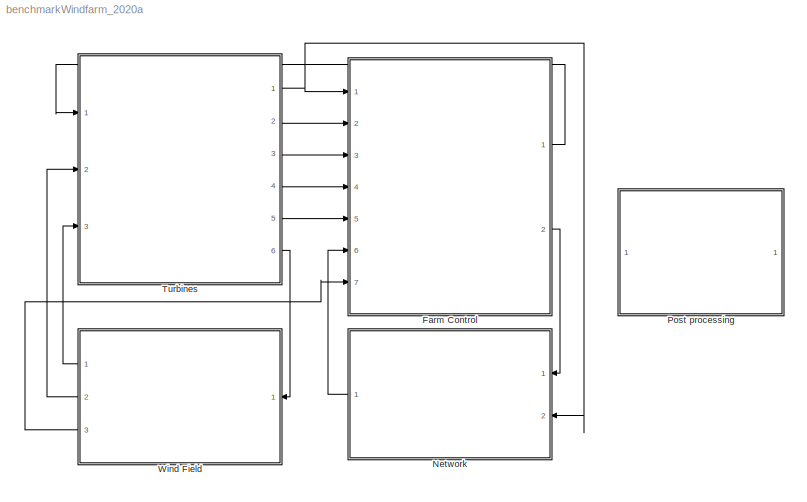
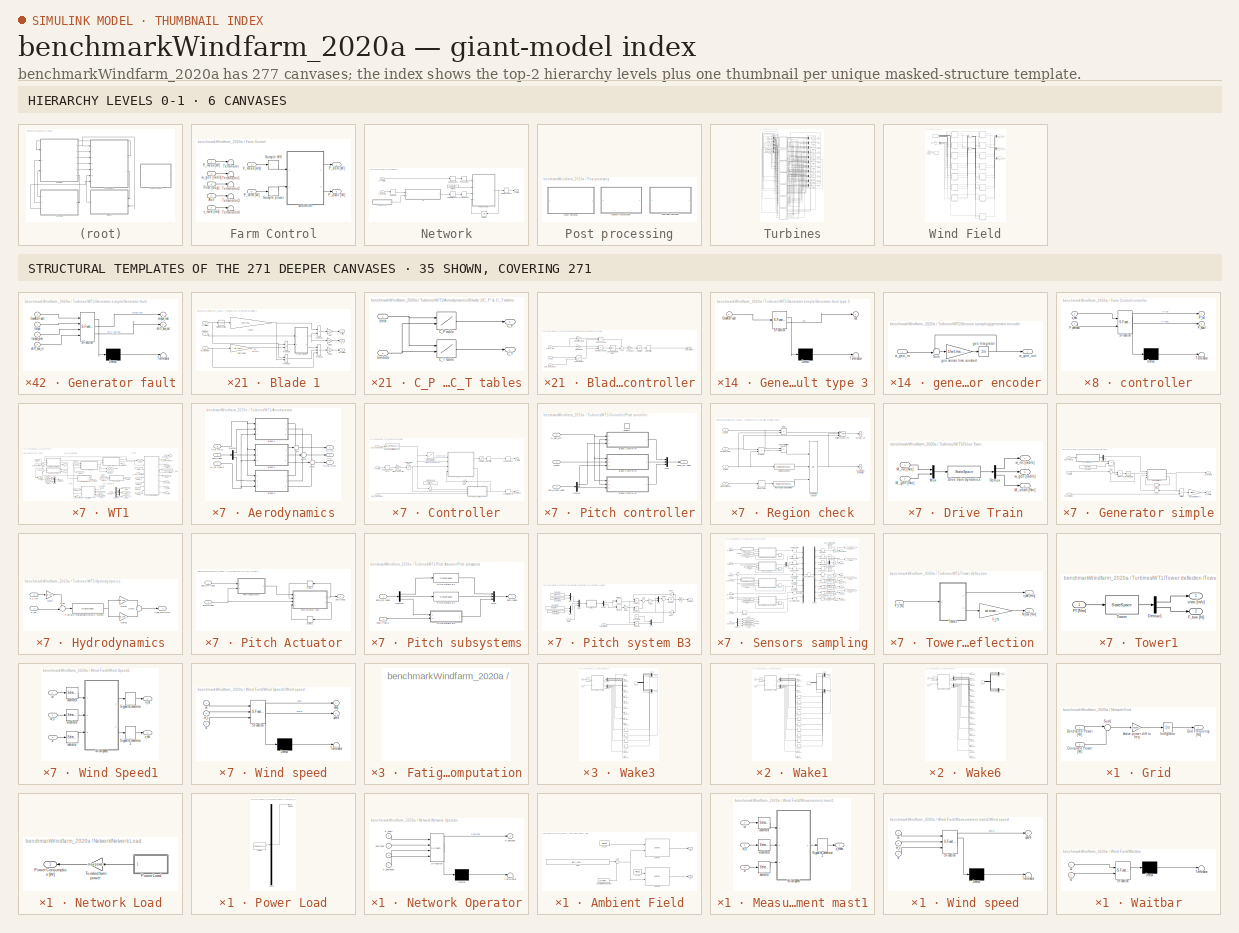
[diagram: thumbnail index - top-2 hierarchy levels (6 canvases) + 35 structural-template representatives of the remaining 271 canvases]
MODEL benchmarkWindfarm_2020a
KIND model
BLOCK [SubSystem] Farm Control
  Ports = [7, 2]
  SID = 1
  UserData = DataTag0
  UserDataPersistent = on
BLOCK [Inport] Farm Control/ Aux
  Port = 5
  SID = 10
BLOCK [Inport] Farm Control/ v_mast [m//s]
  Port = 7
  SID = 12
BLOCK [Outport] Farm Control/P_avail [W]
  Port = 2
  SID = 22
BLOCK [Outport] Farm Control/P_dem [W]
  SID = 21
BLOCK [Inport] Farm Control/P_farm [W]
  Port = 6
  SID = 11
BLOCK [Inport] Farm Control/P_meas [W]
  SID = 6
BLOCK [Inport] Farm Control/Pitch [deg]
  Port = 4
  SID = 9
BLOCK [ZeroOrderHold] Farm Control/Sample WS
  SID = 13
  SampleTime = wind.Ts
BLOCK [ZeroOrderHold] Farm Control/Sample power
  SID = 14
  SampleTime = wind.Ts
BLOCK [Terminator] Farm Control/Terminator
  SID = 15
BLOCK [Terminator] Farm Control/Terminator1
  SID = 16
BLOCK [Terminator] Farm Control/Terminator2
  SID = 17
BLOCK [Terminator] Farm Control/Terminator3
  SID = 18
BLOCK [Terminator] Farm Control/Terminator4
  SID = 19
BLOCK [Inport] Farm Control/V_meas [m//s]
  Port = 2
  SID = 7
BLOCK [SubSystem] Farm Control/controller
  ErrorFcn = Stateflow.Translate.translate
  PermitHierarchicalResolution = ExplicitOnly
  Ports = [2, 2]
  SFBlockType = MATLAB Function
  SID = 20
  TreatAsAtomicUnit = on
BLOCK [Demux] Farm Control/controller/ Demux 
  Outputs = 1
  Ports = [1, 1]
  SID = 20::276
BLOCK [S-Function] Farm Control/controller/ SFunction 
  EnableBusSupport = on
  FunctionName = sf_sfun
  Parameters = parm
  PortCounts = [2 3]
  Ports = [2, 3]
  SFcnIsStateOwnerBlock = off
  SFunctionDeploymentMode = off
  SID = 20::275
  Tag = Stateflow S-Function 21
BLOCK [Terminator] Farm Control/controller/ Terminator 
  SID = 20::277
BLOCK [Outport] Farm Control/controller/P_avail
  Port = 2
  SID = 20::7
BLOCK [Inport] Farm Control/controller/P_demand
  Port = 2
  SID = 20::2
BLOCK [Outport] Farm Control/controller/P_ref
  SID = 20::6
BLOCK [Inport] Farm Control/controller/v_nac
  SID = 20::1
BLOCK [Inport] Farm Control/w_gen [rad//s]
  Port = 3
  SID = 8
BLOCK [SubSystem] Network
  Ports = [2, 1]
  SID = 2
BLOCK [TransportDelay] Network/F_meas delay
  DelayTime = parm.delay
  Ports = [1, 1]
  SID = 25
BLOCK [SubSystem] Network/Grid
  Ports = [2, 1]
  SID = 26
BLOCK [Gain] Network/Grid/Active power diff to freq
  Gain = frequencygain
  SID = 29
BLOCK [Inport] Network/Grid/Consumed Power [W]
  Port = 2
  SID = 28
BLOCK [Inport] Network/Grid/Generated Power [W]
  SID = 27
BLOCK [Outport] Network/Grid/Grid Frequency [Hz]
  SID = 32
BLOCK [Integrator] Network/Grid/Integrator
  InitialCondition = 50
  LimitOutput = on
  LowerSaturationLimit = 0
  Ports = [1, 1]
  SID = 30
  UpperSaturationLimit = 100
BLOCK [Sum] Network/Grid/Sum1
  Inputs = |+-
  Ports = [2, 1]
  SID = 31
BLOCK [SubSystem] Network/Network Load
  Ports = [0, 1]
  SID = 33
BLOCK [Outport] Network/Network Load/Power Consumption [W]
  SID = 36
BLOCK [SubSystem] Network/Network Load/Power Load
  ClipboardFcn = sigbuilder_block('clipboard');
  CloseFcn = sigbuilder_block('close');
  ContinueFcn = sigbuilder_block('continue')
  CopyFcn = sigbuilder_block('copy');
  DeleteFcn = sigbuilder_block('delete');
  LoadFcn = sigbuilder_block('load');
  MaskHideContents = on
  ModelCloseFcn = sigbuilder_block('modelClose');
  NameChangeFcn = sigbuilder_block('namechange');
  NameLocation = top
  OpenFcn = sigbuilder_block('open',[437.6 199.2 550.4 400 ]);
  PauseFcn = sigbuilder_block('pause')
  Ports = [0, 1]
  PreSaveFcn = sigbuilder_block('preSave');
  SID = 34
  StartFcn = sigbuilder_block('start');
  StopFcn = sigbuilder_block('stop');
  Tag = STV Subsys
BLOCK [Demux] Network/Network Load/Power Load/Demux
  DisplayOption = none
  Outputs = 1
  Ports = [1, 1]
  SID = 34:1
  Tag = STV Demux
BLOCK [FromWorkspace] Network/Network Load/Power Load/FromWs
  SID = 34:2
  SigBuilderData = DataTag1
  Tag = STV FromWs
  VariableName = tuvar
  VnvData = DataTag2
BLOCK [Outport] Network/Network Load/Power Load/Signal 1
  SID = 34:3
  Tag = STV Outport
BLOCK [Gain] Network/Network Load/To rated farm power
  Gain = maxpower
  NameLocation = top
  SID = 35
BLOCK [SubSystem] Network/Network Operator
  ErrorFcn = Stateflow.Translate.translate
  PermitHierarchicalResolution = ExplicitOnly
  Ports = [4, 1]
  SFBlockType = MATLAB Function
  SID = 37
  TreatAsAtomicUnit = on
BLOCK [Demux] Network/Network Operator/ Demux 
  Outputs = 1
  Ports = [1, 1]
  SID = 37::276
BLOCK [S-Function] Network/Network Operator/ SFunction 
  EnableBusSupport = on
  FunctionName = sf_sfun
  Parameters = parm
  PortCounts = [4 2]
  Ports = [4, 2]
  SFcnIsStateOwnerBlock = off
  SFunctionDeploymentMode = off
  SID = 37::275
  Tag = Stateflow S-Function 22
BLOCK [Terminator] Network/Network Operator/ Terminator 
  SID = 37::277
BLOCK [Inport] Network/Network Operator/P_avail
  SID = 37::1
BLOCK [Outport] Network/Network Operator/P_demand
  SID = 37::8
BLOCK [Inport] Network/Network Operator/P_demand0
  Port = 4
  SID = 37::4
BLOCK [Inport] Network/Network Operator/f
  Port = 3
  SID = 37::3
BLOCK [Inport] Network/Network Operator/settings
  Port = 2
  SID = 37::2
BLOCK [TransportDelay] Network/P meas delay
  DelayTime = parm.delay
  Ports = [1, 1]
  SID = 38
BLOCK [Inport] Network/P_avail [W]
  SID = 23
BLOCK [Outport] Network/P_farm [W]
  SID = 45
BLOCK [Inport] Network/P_meas [W]
  Port = 2
  SID = 24
BLOCK [TransportDelay] Network/Reference delay
  DelayTime = .01
  Ports = [1, 1]
  SID = 39
BLOCK [ZeroOrderHold] Network/Sample frequency
  SID = 40
  SampleTime = parm.Ts
BLOCK [ZeroOrderHold] Network/Sample power
  SID = 41
  SampleTime = wind.Ts
BLOCK [Sum] Network/Total power
  IconShape = rectangular
  Inputs = +
  Ports = [1, 1]
  SID = 42
BLOCK [UnitDelay] Network/Unit Delay
  HasFrameUpgradeWarning = on
  NameLocation = top
  SID = 43
  SampleTime = wind.Ts
BLOCK [Constant] Network/settings
  OutDataTypeStr = double
  SID = 44
  SampleTime = wind.Ts
  Value = parm.settings
BLOCK [SubSystem] Post processing
  Ports = []
  SID = 3
BLOCK [SubSystem] Post processing/Fatigue Computation
  OpenFcn = fatigue=fatiguegui(logsout);
  Ports = []
  SID = 46
BLOCK [SubSystem] Post processing/Wake Animation
  OpenFcn = sys=bdroot(gcb);             \ncreate_wakeanim(sys,logsout);
  Ports = []
  SID = 47
BLOCK [SubSystem] Post processing/Wind Field Animation
  OpenFcn = sys=bdroot(gcb);\nwindanim(sys,logsout);
  Ports = []
  SID = 48
BLOCK [SubSystem] Turbines
  LoadFcn = p=get_param(gcb,'UserData');                                                                                                                                            \n%If not compatible                                                                                                                                                      \n                                                            ...<+1133ch>
  Ports = [3, 6]
  SID = 4
  UserData = DataTag3
  UserDataPersistent = on
BLOCK [Outport] Turbines/CT
  Port = 6
  SID = 88
BLOCK [Mux] Turbines/CTmux
  DisplayOption = bar
  Inputs = 7
  Ports = [7, 1]
  SID = 52
BLOCK [RateTransition] Turbines/CTrate
  Deterministic = off
  OutPortSampleTime = wind.Ts
  SID = 53
BLOCK [RateTransition] Turbines/CTrate1
  Deterministic = off
  OutPortSampleTime = wind.Ts
  SID = 54
BLOCK [RateTransition] Turbines/CTrate10
  Deterministic = off
  OutPortSampleTime = wind.Ts
  SID = 429
BLOCK [RateTransition] Turbines/CTrate2
  Deterministic = off
  OutPortSampleTime = wind.Ts
  SID = 55
BLOCK [RateTransition] Turbines/CTrate3
  Deterministic = off
  OutPortSampleTime = wind.Ts
  SID = 56
BLOCK [RateTransition] Turbines/CTrate4
  Deterministic = off
  OutPortSampleTime = wind.Ts
  SID = 57
BLOCK [RateTransition] Turbines/CTrate5
  Deterministic = off
  OutPortSampleTime = wind.Ts
  SID = 58
BLOCK [RateTransition] Turbines/CTrate6
  Deterministic = off
  OutPortSampleTime = wind.Ts
  SID = 59
BLOCK [RateTransition] Turbines/CTrate7
  Deterministic = off
  OutPortSampleTime = wind.Ts
  SID = 60
BLOCK [RateTransition] Turbines/CTrate8
  Deterministic = off
  OutPortSampleTime = wind.Ts
  SID = 61
BLOCK [RateTransition] Turbines/CTrate9
  Deterministic = off
  OutPortSampleTime = wind.Ts
  SID = 430
BLOCK [Demux] Turbines/Faultdemux
  Outputs = 7
  Ports = [1, 7]
  SID = 63
BLOCK [Demux] Turbines/Fexdemux
  Outputs = 7
  Ports = [1, 7]
  SID = 64
BLOCK [FromWorkspace] Turbines/From\nWorkspace
  SID = 65
  VariableName = faultSignal
BLOCK [Outport] Turbines/P [W]
  SID = 83
BLOCK [Inport] Turbines/P_dem [W]
  SID = 49
BLOCK [Demux] Turbines/Pdemanddemux
  Outputs = 7
  Ports = [1, 7]
  SID = 66
BLOCK [Mux] Turbines/Pmux
  DisplayOption = bar
  Inputs = 7
  Ports = [7, 1]
  SID = 67
BLOCK [Outport] Turbines/V_meas [m//s]
  Port = 2
  SID = 84
BLOCK [Inport] Turbines/V_wnd_nac [m//s]
  Port = 3
  SID = 51
BLOCK [Inport] Turbines/V_wnd_rot [m//s]
  Port = 2
  SID = 50
BLOCK [Demux] Turbines/Vnacdemux
  Outputs = 7
  Ports = [1, 7]
  SID = 68
BLOCK [Demux] Turbines/Vrotdemux
  Outputs = 7
  Ports = [1, 7]
  SID = 69
BLOCK [SubSystem] Turbines/WT1
  AncestorBlock = libturbines/Floating NREL5MW faulty
  NameLocation = top
  Ports = [5, 11]
  SID = 117
  UserData = DataTag4
  UserDataPersistent = on
BLOCK [SubSystem] Turbines/WT1/Aerodynamics
  Ports = [3, 3]
  SID = 117:5
BLOCK [SubSystem] Turbines/WT1/Aerodynamics/Blade 1
  Ports = [3, 3]
  SID = 117:182
BLOCK [SubSystem] Turbines/WT1/Aerodynamics/Blade 1/C_P & C_T tables
  Ports = [2, 2]
  SID = 117:9
BLOCK [Outport] Turbines/WT1/Aerodynamics/Blade 1/C_P & C_T tables/C_P
  Port = 2
  SID = 117:15
BLOCK [Lookup2D] Turbines/WT1/Aerodynamics/Blade 1/C_P & C_T tables/C_P table 
  ColumnIndex = wt.cp.tsr
  LookUpMeth = Interpolation-Use End Values
  RowIndex = wt.cp.beta
  SID = 117:12
  Table = wt.cp.table
BLOCK [Outport] Turbines/WT1/Aerodynamics/Blade 1/C_P & C_T tables/C_T
  SID = 117:14
BLOCK [Lookup2D] Turbines/WT1/Aerodynamics/Blade 1/C_P & C_T tables/C_T table
  ColumnIndex = wt.ct.tsr
  LookUpMeth = Interpolation-Use End Values
  RowIndex = wt.ct.beta
  SID = 117:13
  Table = wt.ct.table
BLOCK [Inport] Turbines/WT1/Aerodynamics/Blade 1/C_P & C_T tables/beta
  SID = 117:10
BLOCK [Inport] Turbines/WT1/Aerodynamics/Blade 1/C_P & C_T tables/lambda
  Port = 2
  SID = 117:11
BLOCK [Outport] Turbines/WT1/Aerodynamics/Blade 1/C_T
  Port = 2
  SID = 117:187
BLOCK [Outport] Turbines/WT1/Aerodynamics/Blade 1/F_t [N]
  SID = 117:186
BLOCK [Gain] Turbines/WT1/Aerodynamics/Blade 1/Gain
  Gain = 1/3
  SID = 117:274
BLOCK [Gain] Turbines/WT1/Aerodynamics/Blade 1/Gain1
  Gain = 1/3
  SID = 117:275
BLOCK [Gain] Turbines/WT1/Aerodynamics/Blade 1/Gain2
  Gain = 1/3
  SID = 117:276
BLOCK [Outport] Turbines/WT1/Aerodynamics/Blade 1/M_rot [Nm]
  Port = 3
  SID = 117:188
BLOCK [Math] Turbines/WT1/Aerodynamics/Blade 1/Math\nFunction
  Operator = square
  Ports = [1, 1]
  SID = 117:16
  SignedPower = on
BLOCK [Product] Turbines/WT1/Aerodynamics/Blade 1/Product
  InputSameDT = on
  OutDataTypeStr = Inherit: Same as first input
  Ports = [2, 1]
  SID = 117:17
  SaturateOnIntegerOverflow = on
BLOCK [Product] Turbines/WT1/Aerodynamics/Blade 1/Product1
  InputSameDT = on
  Inputs = **/
  OutDataTypeStr = Inherit: Same as first input
  Ports = [3, 1]
  SID = 117:18
  SaturateOnIntegerOverflow = on
BLOCK [Product] Turbines/WT1/Aerodynamics/Blade 1/Product2
  InputSameDT = on
  OutDataTypeStr = Inherit: Same as first input
  Ports = [2, 1]
  SID = 117:19
  SaturateOnIntegerOverflow = on
BLOCK [Product] Turbines/WT1/Aerodynamics/Blade 1/Product3
  InputSameDT = on
  Inputs = /*
  OutDataTypeStr = Inherit: Same as first input
  Ports = [2, 1]
  SID = 117:20
  SaturateOnIntegerOverflow = on
BLOCK [Inport] Turbines/WT1/Aerodynamics/Blade 1/beta [deg]
  Port = 2
  SID = 117:184
BLOCK [Gain] Turbines/WT1/Aerodynamics/Blade 1/rho//2*A
  Gain = env.rho*.5* pi * wt.rotor.radius^2
  OutDataTypeStr = Inherit: Same as input
  ParamDataTypeStr = Inherit: Same as input
  SID = 117:21
  SaturateOnIntegerOverflow = on
BLOCK [Gain] Turbines/WT1/Aerodynamics/Blade 1/rotor radius
  Gain = wt.rotor.radius
  OutDataTypeStr = Inherit: Same as input
  ParamDataTypeStr = Inherit: Same as input
  SID = 117:22
  SaturateOnIntegerOverflow = on
BLOCK [Inport] Turbines/WT1/Aerodynamics/Blade 1/v_rot [m//s]
  SID = 117:183
BLOCK [Inport] Turbines/WT1/Aerodynamics/Blade 1/w_rot [rad//s]
  Port = 3
  SID = 117:185
BLOCK [SubSystem] Turbines/WT1/Aerodynamics/Blade 2
  AncestorBlock = libturbines/Floating faulty NREL5MW1/Aerodynamics/Blade 1
  Ports = [3, 3]
  SID = 117:480
BLOCK [SubSystem] Turbines/WT1/Aerodynamics/Blade 2/C_P & C_T tables
  Ports = [2, 2]
  SID = 117:480:9
BLOCK [Outport] Turbines/WT1/Aerodynamics/Blade 2/C_P & C_T tables/C_P
  Port = 2
  SID = 117:480:15
BLOCK [Lookup2D] Turbines/WT1/Aerodynamics/Blade 2/C_P & C_T tables/C_P table 
  ColumnIndex = wt.cp.tsr
  LookUpMeth = Interpolation-Use End Values
  RowIndex = wt.cp.beta
  SID = 117:480:12
  Table = wt.cp.table
BLOCK [Outport] Turbines/WT1/Aerodynamics/Blade 2/C_P & C_T tables/C_T
  SID = 117:480:14
BLOCK [Lookup2D] Turbines/WT1/Aerodynamics/Blade 2/C_P & C_T tables/C_T table
  ColumnIndex = wt.ct.tsr
  LookUpMeth = Interpolation-Use End Values
  RowIndex = wt.ct.beta
  SID = 117:480:13
  Table = wt.ct.table
BLOCK [Inport] Turbines/WT1/Aerodynamics/Blade 2/C_P & C_T tables/beta
  SID = 117:480:10
BLOCK [Inport] Turbines/WT1/Aerodynamics/Blade 2/C_P & C_T tables/lambda
  Port = 2
  SID = 117:480:11
BLOCK [Outport] Turbines/WT1/Aerodynamics/Blade 2/C_T
  Port = 2
  SID = 117:480:187
BLOCK [Outport] Turbines/WT1/Aerodynamics/Blade 2/F_t [N]
  SID = 117:480:186
BLOCK [Gain] Turbines/WT1/Aerodynamics/Blade 2/Gain
  Gain = 1/3
  SID = 117:480:274
BLOCK [Gain] Turbines/WT1/Aerodynamics/Blade 2/Gain1
  Gain = 1/3
  SID = 117:480:275
BLOCK [Gain] Turbines/WT1/Aerodynamics/Blade 2/Gain2
  Gain = 1/3
  SID = 117:480:276
BLOCK [Outport] Turbines/WT1/Aerodynamics/Blade 2/M_rot [Nm]
  Port = 3
  SID = 117:480:188
BLOCK [Math] Turbines/WT1/Aerodynamics/Blade 2/Math\nFunction
  Operator = square
  Ports = [1, 1]
  SID = 117:480:16
  SignedPower = on
BLOCK [Product] Turbines/WT1/Aerodynamics/Blade 2/Product
  InputSameDT = on
  OutDataTypeStr = Inherit: Same as first input
  Ports = [2, 1]
  SID = 117:480:17
  SaturateOnIntegerOverflow = on
BLOCK [Product] Turbines/WT1/Aerodynamics/Blade 2/Product1
  InputSameDT = on
  Inputs = **/
  OutDataTypeStr = Inherit: Same as first input
  Ports = [3, 1]
  SID = 117:480:18
  SaturateOnIntegerOverflow = on
BLOCK [Product] Turbines/WT1/Aerodynamics/Blade 2/Product2
  InputSameDT = on
  OutDataTypeStr = Inherit: Same as first input
  Ports = [2, 1]
  SID = 117:480:19
  SaturateOnIntegerOverflow = on
BLOCK [Product] Turbines/WT1/Aerodynamics/Blade 2/Product3
  InputSameDT = on
  Inputs = /*
  OutDataTypeStr = Inherit: Same as first input
  Ports = [2, 1]
  SID = 117:480:20
  SaturateOnIntegerOverflow = on
BLOCK [Inport] Turbines/WT1/Aerodynamics/Blade 2/beta [deg]
  Port = 2
  SID = 117:480:184
BLOCK [Gain] Turbines/WT1/Aerodynamics/Blade 2/rho//2*A
  Gain = env.rho*.5* pi * wt.rotor.radius^2
  OutDataTypeStr = Inherit: Same as input
  ParamDataTypeStr = Inherit: Same as input
  SID = 117:480:21
  SaturateOnIntegerOverflow = on
BLOCK [Gain] Turbines/WT1/Aerodynamics/Blade 2/rotor radius
  Gain = wt.rotor.radius
  OutDataTypeStr = Inherit: Same as input
  ParamDataTypeStr = Inherit: Same as input
  SID = 117:480:22
  SaturateOnIntegerOverflow = on
BLOCK [Inport] Turbines/WT1/Aerodynamics/Blade 2/v_rot [m//s]
  SID = 117:480:183
BLOCK [Inport] Turbines/WT1/Aerodynamics/Blade 2/w_rot [rad//s]
  Port = 3
  SID = 117:480:185
BLOCK [SubSystem] Turbines/WT1/Aerodynamics/Blade 3
  AncestorBlock = libturbines/Floating faulty NREL5MW1/Aerodynamics/Blade 1
  Ports = [3, 3]
  SID = 117:481
BLOCK [SubSystem] Turbines/WT1/Aerodynamics/Blade 3/C_P & C_T tables
  Ports = [2, 2]
  SID = 117:481:9
BLOCK [Outport] Turbines/WT1/Aerodynamics/Blade 3/C_P & C_T tables/C_P
  Port = 2
  SID = 117:481:15
BLOCK [Lookup2D] Turbines/WT1/Aerodynamics/Blade 3/C_P & C_T tables/C_P table 
  ColumnIndex = wt.cp.tsr
  LookUpMeth = Interpolation-Use End Values
  RowIndex = wt.cp.beta
  SID = 117:481:12
  Table = wt.cp.table
BLOCK [Outport] Turbines/WT1/Aerodynamics/Blade 3/C_P & C_T tables/C_T
  SID = 117:481:14
BLOCK [Lookup2D] Turbines/WT1/Aerodynamics/Blade 3/C_P & C_T tables/C_T table
  ColumnIndex = wt.ct.tsr
  LookUpMeth = Interpolation-Use End Values
  RowIndex = wt.ct.beta
  SID = 117:481:13
  Table = wt.ct.table
BLOCK [Inport] Turbines/WT1/Aerodynamics/Blade 3/C_P & C_T tables/beta
  SID = 117:481:10
BLOCK [Inport] Turbines/WT1/Aerodynamics/Blade 3/C_P & C_T tables/lambda
  Port = 2
  SID = 117:481:11
BLOCK [Outport] Turbines/WT1/Aerodynamics/Blade 3/C_T
  Port = 2
  SID = 117:481:187
BLOCK [Outport] Turbines/WT1/Aerodynamics/Blade 3/F_t [N]
  SID = 117:481:186
BLOCK [Gain] Turbines/WT1/Aerodynamics/Blade 3/Gain
  Gain = 1/3
  SID = 117:481:274
BLOCK [Gain] Turbines/WT1/Aerodynamics/Blade 3/Gain1
  Gain = 1/3
  SID = 117:481:275
BLOCK [Gain] Turbines/WT1/Aerodynamics/Blade 3/Gain2
  Gain = 1/3
  SID = 117:481:276
BLOCK [Outport] Turbines/WT1/Aerodynamics/Blade 3/M_rot [Nm]
  Port = 3
  SID = 117:481:188
BLOCK [Math] Turbines/WT1/Aerodynamics/Blade 3/Math\nFunction
  Operator = square
  Ports = [1, 1]
  SID = 117:481:16
  SignedPower = on
BLOCK [Product] Turbines/WT1/Aerodynamics/Blade 3/Product
  InputSameDT = on
  OutDataTypeStr = Inherit: Same as first input
  Ports = [2, 1]
  SID = 117:481:17
  SaturateOnIntegerOverflow = on
BLOCK [Product] Turbines/WT1/Aerodynamics/Blade 3/Product1
  InputSameDT = on
  Inputs = **/
  OutDataTypeStr = Inherit: Same as first input
  Ports = [3, 1]
  SID = 117:481:18
  SaturateOnIntegerOverflow = on
BLOCK [Product] Turbines/WT1/Aerodynamics/Blade 3/Product2
  InputSameDT = on
  OutDataTypeStr = Inherit: Same as first input
  Ports = [2, 1]
  SID = 117:481:19
  SaturateOnIntegerOverflow = on
BLOCK [Product] Turbines/WT1/Aerodynamics/Blade 3/Product3
  InputSameDT = on
  Inputs = /*
  OutDataTypeStr = Inherit: Same as first input
  Ports = [2, 1]
  SID = 117:481:20
  SaturateOnIntegerOverflow = on
BLOCK [Inport] Turbines/WT1/Aerodynamics/Blade 3/beta [deg]
  Port = 2
  SID = 117:481:184
BLOCK [Gain] Turbines/WT1/Aerodynamics/Blade 3/rho//2*A
  Gain = env.rho*.5* pi * wt.rotor.radius^2
  OutDataTypeStr = Inherit: Same as input
  ParamDataTypeStr = Inherit: Same as input
  SID = 117:481:21
  SaturateOnIntegerOverflow = on
BLOCK [Gain] Turbines/WT1/Aerodynamics/Blade 3/rotor radius
  Gain = wt.rotor.radius
  OutDataTypeStr = Inherit: Same as input
  ParamDataTypeStr = Inherit: Same as input
  SID = 117:481:22
  SaturateOnIntegerOverflow = on
BLOCK [Inport] Turbines/WT1/Aerodynamics/Blade 3/v_rot [m//s]
  SID = 117:481:183
BLOCK [Inport] Turbines/WT1/Aerodynamics/Blade 3/w_rot [rad//s]
  Port = 3
  SID = 117:481:185
BLOCK [Outport] Turbines/WT1/Aerodynamics/C_T
  Port = 3
  SID = 117:25
BLOCK [Demux] Turbines/WT1/Aerodynamics/Demux
  Outputs = 3
  Ports = [1, 3]
  SID = 117:203
BLOCK [Outport] Turbines/WT1/Aerodynamics/F_t [N]
  Port = 2
  SID = 117:24
BLOCK [Outport] Turbines/WT1/Aerodynamics/M_rot [Nm]
  SID = 117:23
BLOCK [Sum] Turbines/WT1/Aerodynamics/Sum
  Inputs = +++
  Ports = [3, 1]
  SID = 117:195
BLOCK [Sum] Turbines/WT1/Aerodynamics/Sum1
  Inputs = +++
  Ports = [3, 1]
  SID = 117:196
BLOCK [Sum] Turbines/WT1/Aerodynamics/Sum2
  Inputs = +++
  Ports = [3, 1]
  SID = 117:197
BLOCK [Inport] Turbines/WT1/Aerodynamics/beta [deg]
  Port = 2
  SID = 117:7
BLOCK [Inport] Turbines/WT1/Aerodynamics/v_rot [m//s]
  Port = 3
  SID = 117:8
BLOCK [Inport] Turbines/WT1/Aerodynamics/w_rot [rad//s]
  SID = 117:6
BLOCK [Outport] Turbines/WT1/C_T
  Port = 2
  SID = 117:169
BLOCK [Constant] Turbines/WT1/Constant
  SID = 117:483
  Value = 0
BLOCK [SubSystem] Turbines/WT1/Controller
  Ports = [3, 2]
  SID = 117:32
BLOCK [Gain] Turbines/WT1/Controller/Gain
  Gain = [1 0 0]
  Multiplication = Matrix(K*u) (u vector)
  NameLocation = top
  SID = 117:325
BLOCK [Gain] Turbines/WT1/Controller/Generator efficiency \ncompensation
  Gain = 1/wt.ctrl.gen.effeciency
  SID = 117:35
BLOCK [Saturate] Turbines/WT1/Controller/Limit power \nto rated
  LowerLimit = 0
  SID = 117:36
  UpperLimit = wt.ctrl.p_rated
BLOCK [DiscreteStateSpace] Turbines/WT1/Controller/Measurement filter (low pass)
  A = wt.ctrl.alpha
  B = 1-wt.ctrl.alpha
  C = wt.ctrl.alpha
  D = 1-wt.ctrl.alpha
  InitialCondition = wt.ctrl.gen.ini
  SID = 117:37
  SampleTime = wt.ctrl.Ts
BLOCK [Inport] Turbines/WT1/Controller/P_dem [W]
  SID = 117:33
BLOCK [SubSystem] Turbines/WT1/Controller/Pitch controller
  Ports = [3, 1, 1]
  SID = 117:38
  TreatAsAtomicUnit = on
BLOCK [SubSystem] Turbines/WT1/Controller/Pitch controller/Blade 1 controller
  Ports = [3, 1]
  SID = 117:277
BLOCK [DiscreteIntegrator] Turbines/WT1/Controller/Pitch controller/Blade 1 controller/Discrete-Time\nIntegrator
  ICPrevOutput = DiscIntNeverNeededParam
  ICPrevScaledInput = DiscIntNeverNeededParam
  LimitOutput = on
  LowerSaturationLimit = wt.ctrl.pitch.llim
  Ports = [1, 1]
  SID = 117:281
  SampleTime = wt.ctrl.Ts
  UpperSaturationLimit = wt.ctrl.pitch.ulim*pi/180
BLOCK [Lookup2D] Turbines/WT1/Controller/Pitch controller/Blade 1 controller/Gain correction
  ColumnIndex = wt.ctrl.pitch.beta
  InputSameDT = off
  LookUpMeth = Interpolation-Use End Values
  RowIndex = wt.ctrl.pitch.pwr
  SID = 117:282
  SaturateOnIntegerOverflow = off
  Table = wt.ctrl.pitch.gs
BLOCK [Gain] Turbines/WT1/Controller/Pitch controller/Blade 1 controller/Integral gain
  Gain = (1-0.999*noiseFlag)*wt.ctrl.pitch.Igain
  SID = 117:283
BLOCK [Product] Turbines/WT1/Controller/Pitch controller/Blade 1 controller/Integral schedule
  Inputs = */
  Ports = [2, 1]
  RndMeth = Zero
  SID = 117:284
BLOCK [Inport] Turbines/WT1/Controller/Pitch controller/Blade 1 controller/P_dem
  Port = 2
  SID = 117:279
BLOCK [Product] Turbines/WT1/Controller/Pitch controller/Blade 1 controller/Prop schedule
  Inputs = */
  Ports = [2, 1]
  RndMeth = Zero
  SID = 117:285
BLOCK [Gain] Turbines/WT1/Controller/Pitch controller/Blade 1 controller/Proportional gain
  Gain = (1-0.3*noiseFlag)*wt.ctrl.pitch.Pgain
  SID = 117:286
BLOCK [RateLimiter] Turbines/WT1/Controller/Pitch controller/Blade 1 controller/Rate Limiter
  FallingSlewLimit = -wt.ctrl.pitch.ratelim
  InitialCondition = wt.ctrl.pitch.ini
  RisingSlewLimit = wt.ctrl.pitch.ratelim
  SID = 117:287
  SampleTimeMode = inherited
BLOCK [Saturate] Turbines/WT1/Controller/Pitch controller/Blade 1 controller/Saturation
  LowerLimit = 0
  SID = 117:288
  UpperLimit = wt.ctrl.pitch.ulim
BLOCK [Sum] Turbines/WT1/Controller/Pitch controller/Blade 1 controller/Sum
  Inputs = ++|
  Ports = [2, 1]
  SID = 117:289
BLOCK [Gain] Turbines/WT1/Controller/Pitch controller/Blade 1 controller/To degrees
  Gain = 180/pi
  SID = 117:290
BLOCK [Inport] Turbines/WT1/Controller/Pitch controller/Blade 1 controller/beta_meas [deg]
  Port = 3
  SID = 117:280
BLOCK [Outport] Turbines/WT1/Controller/Pitch controller/Blade 1 controller/beta_ref [deg]
  SID = 117:291
BLOCK [Inport] Turbines/WT1/Controller/Pitch controller/Blade 1 controller/w_gen_diff
  SID = 117:278
BLOCK [SubSystem] Turbines/WT1/Controller/Pitch controller/Blade 2 controller
  Ports = [3, 1]
  SID = 117:292
BLOCK [DiscreteIntegrator] Turbines/WT1/Controller/Pitch controller/Blade 2 controller/Discrete-Time\nIntegrator
  ICPrevOutput = DiscIntNeverNeededParam
  ICPrevScaledInput = DiscIntNeverNeededParam
  LimitOutput = on
  LowerSaturationLimit = wt.ctrl.pitch.llim
  Ports = [1, 1]
  SID = 117:296
  SampleTime = wt.ctrl.Ts
  UpperSaturationLimit = wt.ctrl.pitch.ulim*pi/180
BLOCK [Lookup2D] Turbines/WT1/Controller/Pitch controller/Blade 2 controller/Gain correction
  ColumnIndex = wt.ctrl.pitch.beta
  InputSameDT = off
  LookUpMeth = Interpolation-Use End Values
  RowIndex = wt.ctrl.pitch.pwr
  SID = 117:297
  SaturateOnIntegerOverflow = off
  Table = wt.ctrl.pitch.gs
BLOCK [Gain] Turbines/WT1/Controller/Pitch controller/Blade 2 controller/Integral gain
  Gain = (1-0.999*noiseFlag)*wt.ctrl.pitch.Igain
  SID = 117:609
BLOCK [Product] Turbines/WT1/Controller/Pitch controller/Blade 2 controller/Integral schedule
  Inputs = */
  Ports = [2, 1]
  RndMeth = Zero
  SID = 117:299
BLOCK [Inport] Turbines/WT1/Controller/Pitch controller/Blade 2 controller/P_dem
  Port = 2
  SID = 117:294
BLOCK [Product] Turbines/WT1/Controller/Pitch controller/Blade 2 controller/Prop schedule
  Inputs = */
  Ports = [2, 1]
  RndMeth = Zero
  SID = 117:300
BLOCK [Gain] Turbines/WT1/Controller/Pitch controller/Blade 2 controller/Proportional gain
  Gain = (1-0.3*noiseFlag)*wt.ctrl.pitch.Pgain
  SID = 117:610
BLOCK [RateLimiter] Turbines/WT1/Controller/Pitch controller/Blade 2 controller/Rate Limiter
  FallingSlewLimit = -wt.ctrl.pitch.ratelim
  InitialCondition = wt.ctrl.pitch.ini
  RisingSlewLimit = wt.ctrl.pitch.ratelim
  SID = 117:302
  SampleTimeMode = inherited
BLOCK [Saturate] Turbines/WT1/Controller/Pitch controller/Blade 2 controller/Saturation
  LowerLimit = 0
  SID = 117:303
  UpperLimit = wt.ctrl.pitch.ulim
BLOCK [Sum] Turbines/WT1/Controller/Pitch controller/Blade 2 controller/Sum
  Inputs = ++|
  Ports = [2, 1]
  SID = 117:304
BLOCK [Gain] Turbines/WT1/Controller/Pitch controller/Blade 2 controller/To degrees
  Gain = 180/pi
  SID = 117:305
BLOCK [Inport] Turbines/WT1/Controller/Pitch controller/Blade 2 controller/beta_meas [deg]
  Port = 3
  SID = 117:295
BLOCK [Outport] Turbines/WT1/Controller/Pitch controller/Blade 2 controller/beta_ref [deg]
  SID = 117:306
BLOCK [Inport] Turbines/WT1/Controller/Pitch controller/Blade 2 controller/w_gen_diff
  SID = 117:293
BLOCK [SubSystem] Turbines/WT1/Controller/Pitch controller/Blade 3 controller
  Ports = [3, 1]
  SID = 117:307
BLOCK [DiscreteIntegrator] Turbines/WT1/Controller/Pitch controller/Blade 3 controller/Discrete-Time\nIntegrator
  ICPrevOutput = DiscIntNeverNeededParam
  ICPrevScaledInput = DiscIntNeverNeededParam
  LimitOutput = on
  LowerSaturationLimit = wt.ctrl.pitch.llim
  Ports = [1, 1]
  SID = 117:311
  SampleTime = wt.ctrl.Ts
  UpperSaturationLimit = wt.ctrl.pitch.ulim*pi/180
BLOCK [Lookup2D] Turbines/WT1/Controller/Pitch controller/Blade 3 controller/Gain correction
  ColumnIndex = wt.ctrl.pitch.beta
  InputSameDT = off
  LookUpMeth = Interpolation-Use End Values
  RowIndex = wt.ctrl.pitch.pwr
  SID = 117:312
  SaturateOnIntegerOverflow = off
  Table = wt.ctrl.pitch.gs
BLOCK [Gain] Turbines/WT1/Controller/Pitch controller/Blade 3 controller/Integral gain
  Gain = (1-0.999*noiseFlag)*wt.ctrl.pitch.Igain
  SID = 117:611
BLOCK [Product] Turbines/WT1/Controller/Pitch controller/Blade 3 controller/Integral schedule
  Inputs = */
  Ports = [2, 1]
  RndMeth = Zero
  SID = 117:314
BLOCK [Inport] Turbines/WT1/Controller/Pitch controller/Blade 3 controller/P_dem
  Port = 2
  SID = 117:309
BLOCK [Product] Turbines/WT1/Controller/Pitch controller/Blade 3 controller/Prop schedule
  Inputs = */
  Ports = [2, 1]
  RndMeth = Zero
  SID = 117:315
BLOCK [Gain] Turbines/WT1/Controller/Pitch controller/Blade 3 controller/Proportional gain
  Gain = (1-0.3*noiseFlag)*wt.ctrl.pitch.Pgain
  SID = 117:612
BLOCK [RateLimiter] Turbines/WT1/Controller/Pitch controller/Blade 3 controller/Rate Limiter
  FallingSlewLimit = -wt.ctrl.pitch.ratelim
  InitialCondition = wt.ctrl.pitch.ini
  RisingSlewLimit = wt.ctrl.pitch.ratelim
  SID = 117:317
  SampleTimeMode = inherited
BLOCK [Saturate] Turbines/WT1/Controller/Pitch controller/Blade 3 controller/Saturation
  LowerLimit = 0
  SID = 117:318
  UpperLimit = wt.ctrl.pitch.ulim
BLOCK [Sum] Turbines/WT1/Controller/Pitch controller/Blade 3 controller/Sum
  Inputs = ++|
  Ports = [2, 1]
  SID = 117:319
BLOCK [Gain] Turbines/WT1/Controller/Pitch controller/Blade 3 controller/To degrees
  Gain = 180/pi
  SID = 117:320
BLOCK [Inport] Turbines/WT1/Controller/Pitch controller/Blade 3 controller/beta_meas [deg]
  Port = 3
  SID = 117:310
BLOCK [Outport] Turbines/WT1/Controller/Pitch controller/Blade 3 controller/beta_ref [deg]
  SID = 117:321
BLOCK [Inport] Turbines/WT1/Controller/Pitch controller/Blade 3 controller/w_gen_diff
  SID = 117:308
BLOCK [Demux] Turbines/WT1/Controller/Pitch controller/Demux
  Outputs = 3
  Ports = [1, 3]
  SID = 117:322
BLOCK [EnablePort] Turbines/WT1/Controller/Pitch controller/Enable
  Ports = []
  PropagateVarSize = During execution
  SID = 117:41
  StatesWhenEnabling = reset
BLOCK [Mux] Turbines/WT1/Controller/Pitch controller/Mux
  DisplayOption = bar
  Inputs = 3
  Ports = [3, 1]
  SID = 117:323
BLOCK [Inport] Turbines/WT1/Controller/Pitch controller/P_dem
  Port = 2
  SID = 117:40
BLOCK [Inport] Turbines/WT1/Controller/Pitch controller/beta_meas [deg]
  Port = 3
  SID = 117:324
BLOCK [Outport] Turbines/WT1/Controller/Pitch controller/beta_ref [deg]
  InitialOutput = wt.ctrl.torq.beta
  OutputWhenDisabled = reset
  SID = 117:53
BLOCK [Inport] Turbines/WT1/Controller/Pitch controller/w_gen_diff
  SID = 117:39
BLOCK [RateLimiter] Turbines/WT1/Controller/Rate Limiter
  FallingSlewLimit = -wt.ctrl.torq.ratelim
  InitialCondition = wt.ctrl.torq.ini
  RisingSlewLimit = wt.ctrl.torq.ratelim
  SID = 117:55
  SampleTimeMode = inherited
BLOCK [Constant] Turbines/WT1/Controller/Rated speed
  NameLocation = top
  SID = 117:56
  Value = wt.ctrl.gen.rated
BLOCK [SubSystem] Turbines/WT1/Controller/Region check
  NameLocation = top
  Ports = [4, 2]
  SID = 117:57
BLOCK [RelationalOperator] Turbines/WT1/Controller/Region check/Demand limitation
  InputSameDT = off
  Operator = <=
  OutDataTypeStr = boolean
  Ports = [2, 1]
  SID = 117:62
BLOCK [Product] Turbines/WT1/Controller/Region check/Divide
  Inputs = */
  Ports = [2, 1]
  SID = 117:63
BLOCK [Logic] Turbines/WT1/Controller/Region check/Enable Pitch control?
  AllPortsSameDT = off
  Inputs = 3
  Operator = OR
  OutDataTypeStr = boolean
  Ports = [3, 1]
  SID = 117:64
BLOCK [Outport] Turbines/WT1/Controller/Region check/Enable pitch controller
  Port = 2
  SID = 117:71
BLOCK [Delay] Turbines/WT1/Controller/Region check/Integer Delay
  DelayLength = 1
  InputPortMap = u0
  Ports = [1, 1]
  SID = 117:65
BLOCK [Reference] Turbines/WT1/Controller/Region check/Pitch actuator active last time?  REF=simulink/Logic and Bit\nOperations/Compare\nTo Constant
  OutDataTypeStr = uint8
  Ports = [1, 1]
  RTWMemSecDataConstants = Inherit from model
  RTWMemSecDataInternal = Inherit from model
  RTWMemSecDataParameters = Inherit from model
  RTWMemSecFuncExecute = Inherit from model
  RTWMemSecFuncInitTerm = Inherit from model
  SID = 117:66
  SourceBlock = simulink/Logic and Bit\nOperations/Compare\nTo Constant
  SourceType = Compare To Constant
  ZeroCross = off
  const = wt.ctrl.torq.beta
  relop = >
BLOCK [Product] Turbines/WT1/Controller/Region check/Product
  Ports = [2, 1]
  RndMeth = Zero
  SID = 117:67
BLOCK [Reference] Turbines/WT1/Controller/Region check/Region 3 speed?  REF=simulink/Logic and Bit\nOperations/Compare\nTo Constant
  OutDataTypeStr = uint8
  Ports = [1, 1]
  RTWMemSecDataConstants = Inherit from model
  RTWMemSecDataInternal = Inherit from model
  RTWMemSecDataParameters = Inherit from model
  RTWMemSecFuncExecute = Inherit from model
  RTWMemSecFuncInitTerm = Inherit from model
  SID = 117:68
  SourceBlock = simulink/Logic and Bit\nOperations/Compare\nTo Constant
  SourceType = Compare To Constant
  ZeroCross = off
  const = wt.ctrl.torq.r3
  relop = >=
BLOCK [Switch] Turbines/WT1/Controller/Region check/Switch Torque_ref
  InputSameDT = off
  SID = 117:69
  SaturateOnIntegerOverflow = off
  Threshold = 1
BLOCK [Inport] Turbines/WT1/Controller/Region check/Torque_dem
  SID = 117:58
BLOCK [Outport] Turbines/WT1/Controller/Region check/Torque_ref
  SID = 117:70
BLOCK [Inport] Turbines/WT1/Controller/Region check/p_dem
  Port = 3
  SID = 117:60
BLOCK [Inport] Turbines/WT1/Controller/Region check/pitch command
  Port = 4
  SID = 117:61
BLOCK [Inport] Turbines/WT1/Controller/Region check/w_gen
  Port = 2
  SID = 117:59
BLOCK [ZeroOrderHold] Turbines/WT1/Controller/Sample output
  SID = 117:72
  SampleTime = wt.ctrl.Ts
BLOCK [ZeroOrderHold] Turbines/WT1/Controller/Sample power\ndemand
  SID = 117:73
  SampleTime = wt.ctrl.Ts
BLOCK [Saturate] Turbines/WT1/Controller/Saturation
  LowerLimit = 0
  SID = 117:74
  UpperLimit = wt.ctrl.torq.lim
BLOCK [Sum] Turbines/WT1/Controller/Sum
  Inputs = +-|
  Ports = [2, 1]
  SID = 117:75
BLOCK [Outport] Turbines/WT1/Controller/T_g_ref [W]
  Port = 2
  SID = 117:79
BLOCK [Lookup] Turbines/WT1/Controller/Torque - speed lookup table
  InputValues = wt.ctrl.torq.wg
  LookUpMeth = Interpolation-Use End Values
  SID = 117:76
  SaturateOnIntegerOverflow = off
  Table = wt.ctrl.torq.M
BLOCK [ZeroOrderHold] Turbines/WT1/Controller/Zero-Order\nHold
  SID = 117:77
  SampleTime = wt.ctrl.Ts
BLOCK [Inport] Turbines/WT1/Controller/beta_meas [deg]
  Port = 3
  SID = 117:326
BLOCK [Outport] Turbines/WT1/Controller/beta_ref [deg]
  SID = 117:78
BLOCK [Inport] Turbines/WT1/Controller/w_gen_meas [m//s]
  Port = 2
  SID = 117:34
BLOCK [Demux] Turbines/WT1/Demux
  Outputs = 6
  Ports = [1, 6]
  SID = 117:248
BLOCK [SubSystem] Turbines/WT1/Drive Train
  Ports = [2, 3]
  SID = 117:80
BLOCK [Demux] Turbines/WT1/Drive Train/Demux
  Outputs = 3
  Ports = [1, 3]
  SID = 117:485
BLOCK [StateSpace] Turbines/WT1/Drive Train/Drive train dynamics
  A = wt.dt.ssA
  B = wt.dt.ssB
  C = wt.dt.ssC
  D = wt.dt.ssD
  InitialCondition = [wt.rotor.ini;wt.gen.ini;0]
  Ports = [1, 1]
  SID = 117:484
BLOCK [Inport] Turbines/WT1/Drive Train/M_gen [Nm]
  Port = 2
  SID = 117:82
BLOCK [Inport] Turbines/WT1/Drive Train/M_rot [Nm]
  SID = 117:81
BLOCK [Outport] Turbines/WT1/Drive Train/M_shaft [Nm]
  Port = 3
  SID = 117:98
BLOCK [Mux] Turbines/WT1/Drive Train/Mux
  DisplayOption = bar
  Inputs = 2
  Ports = [2, 1]
  SID = 117:486
BLOCK [Outport] Turbines/WT1/Drive Train/w_gen [rad//s]
  Port = 2
  SID = 117:97
BLOCK [Outport] Turbines/WT1/Drive Train/w_rot [rad//s]
  SID = 117:96
BLOCK [Inport] Turbines/WT1/F_ex
  Port = 4
  SID = 117:479
BLOCK [From] Turbines/WT1/From
  GotoTag = f_PitchAct
  SID = 117:341
BLOCK [From] Turbines/WT1/From1
  GotoTag = beta
  SID = 117:561
BLOCK [From] Turbines/WT1/From11
  GotoTag = beta_meas
  SID = 117:477
BLOCK [From] Turbines/WT1/From12
  GotoTag = w_gen
  SID = 117:565
BLOCK [From] Turbines/WT1/From13
  GotoTag = P_gen
  SID = 117:600
BLOCK [From] Turbines/WT1/From14
  GotoTag = M_gen
  SID = 117:602
BLOCK [From] Turbines/WT1/From15
  GotoTag = v_nac
  SID = 117:606
BLOCK [From] Turbines/WT1/From2
  GotoTag = f_Sens
  SID = 117:342
BLOCK [From] Turbines/WT1/From3
  GotoTag = beta
  NameLocation = top
  SID = 117:368
BLOCK [From] Turbines/WT1/From4
  GotoTag = beta_ref
  SID = 117:370
BLOCK [From] Turbines/WT1/From5
  GotoTag = beta
  NameLocation = top
  SID = 117:371
BLOCK [From] Turbines/WT1/From6
  GotoTag = f_GenAct
  SID = 117:459
BLOCK [From] Turbines/WT1/From7
  GotoTag = w_gen_meas
  NameLocation = top
  SID = 117:473
BLOCK [From] Turbines/WT1/From8
  GotoTag = beta_meas
  NameLocation = top
  SID = 117:474
BLOCK [From] Turbines/WT1/From9
  GotoTag = beta_ref
  NameLocation = top
  SID = 117:475
BLOCK [SubSystem] Turbines/WT1/Generator simple
  Ports = [3, 2]
  SID = 117:102
BLOCK [Constant] Turbines/WT1/Generator simple/Constant
  SID = 117:456
  Value = wt.gen.timeconstant
BLOCK [Delay] Turbines/WT1/Generator simple/Delay
  DelayLength = 1
  InitialCondition = 0
  InputPortMap = u0
  NameLocation = top
  Ports = [1, 1]
  SID = 117:487
BLOCK [Delay] Turbines/WT1/Generator simple/Delay1
  DelayLength = 1
  InitialCondition = 0
  InputPortMap = u0
  NameLocation = top
  Ports = [1, 1]
  SID = 117:560
BLOCK [Demux] Turbines/WT1/Generator simple/Demux
  Outputs = 2
  Ports = [1, 2]
  SID = 117:455
BLOCK [Product] Turbines/WT1/Generator simple/Divide1
  Inputs = */
  Ports = [2, 1]
  SID = 117:458
BLOCK [Inport] Turbines/WT1/Generator simple/GenActFault
  Port = 3
  SID = 117:454
BLOCK [Gain] Turbines/WT1/Generator simple/Generator efficiency
  Gain = wt.gen.effeciency
  SID = 117:107
BLOCK [SubSystem] Turbines/WT1/Generator simple/Generator fault
  ErrorFcn = Stateflow.Translate.translate
  PermitHierarchicalResolution = ExplicitOnly
  Ports = [4, 2]
  SFBlockType = MATLAB Function
  SID = 117:453
  TreatAsAtomicUnit = on
BLOCK [SubSystem] Turbines/WT1/Generator simple/Generator fault type 3
  ErrorFcn = Stateflow.Translate.translate
  PermitHierarchicalResolution = ExplicitOnly
  Ports = [1, 1]
  SFBlockType = MATLAB Function
  SID = 117:452
  TreatAsAtomicUnit = on
BLOCK [Demux] Turbines/WT1/Generator simple/Generator fault type 3/ Demux 
  Outputs = 1
  Ports = [1, 1]
  SID = 117:452::41
BLOCK [S-Function] Turbines/WT1/Generator simple/Generator fault type 3/ SFunction 
  EnableBusSupport = on
  FunctionName = sf_sfun
  Parameters = faultOptions
  PortCounts = [1 2]
  Ports = [1, 2]
  SFcnIsStateOwnerBlock = off
  SFunctionDeploymentMode = off
  SID = 117:452::40
  Tag = Stateflow S-Function 18
BLOCK [Terminator] Turbines/WT1/Generator simple/Generator fault type 3/ Terminator 
  SID = 117:452::42
BLOCK [Inport] Turbines/WT1/Generator simple/Generator fault type 3/GenActFault
  SID = 117:452::24
BLOCK [Outport] Turbines/WT1/Generator simple/Generator fault type 3/out
  SID = 117:452::5
BLOCK [Demux] Turbines/WT1/Generator simple/Generator fault/ Demux 
  Outputs = 1
  Ports = [1, 1]
  SID = 117:453::44
BLOCK [S-Function] Turbines/WT1/Generator simple/Generator fault/ SFunction 
  EnableBusSupport = on
  FunctionName = sf_sfun
  Parameters = faultOptions
  PortCounts = [4 3]
  Ports = [4, 3]
  SFcnIsStateOwnerBlock = off
  SFunctionDeploymentMode = off
  SID = 117:453::43
  Tag = Stateflow S-Function 17
BLOCK [Terminator] Turbines/WT1/Generator simple/Generator fault/ Terminator 
  SID = 117:453::45
BLOCK [Inport] Turbines/WT1/Generator simple/Generator fault/GenActFault
  SID = 117:453::23
BLOCK [Inport] Turbines/WT1/Generator simple/Generator fault/drift_aux_in
  Port = 4
  SID = 117:453::38
BLOCK [Outport] Turbines/WT1/Generator simple/Generator fault/drift_aux_out
  Port = 2
  SID = 117:453::39
BLOCK [Inport] Turbines/WT1/Generator simple/Generator fault/torque
  Port = 2
  SID = 117:453::1
BLOCK [Inport] Turbines/WT1/Generator simple/Generator fault/torque_prev
  Port = 3
  SID = 117:453::37
BLOCK [Outport] Turbines/WT1/Generator simple/Generator fault/torque_real
  SID = 117:453::5
BLOCK [Outport] Turbines/WT1/Generator simple/M_gen [Nm]
  SID = 117:111
BLOCK [Product] Turbines/WT1/Generator simple/Multiply
  Inputs = **
  Ports = [2, 1]
  SID = 117:108
BLOCK [Outport] Turbines/WT1/Generator simple/P_out [W]
  Port = 2
  SID = 117:112
BLOCK [Product] Turbines/WT1/Generator simple/Product
  Ports = [2, 1]
  SID = 117:457
BLOCK [Sum] Turbines/WT1/Generator simple/Sum
  Inputs = |+-
  Ports = [2, 1]
  SID = 117:109
BLOCK [Inport] Turbines/WT1/Generator simple/T_g_ref [W]
  Port = 2
  SID = 117:104
BLOCK [Integrator] Turbines/WT1/Generator simple/Torque Integrator
  InitialCondition = wt.gen.torq.ini
  Ports = [1, 1]
  SID = 117:110
BLOCK [Inport] Turbines/WT1/Generator simple/w_gen [rad//s]
  SID = 117:103
BLOCK [Goto] Turbines/WT1/Goto
  GotoTag = f_PitchAct
  SID = 117:336
BLOCK [Goto] Turbines/WT1/Goto1
  GotoTag = w_gen
  SID = 117:564
BLOCK [Goto] Turbines/WT1/Goto10
  GotoTag = P_gen
  SID = 117:599
BLOCK [Goto] Turbines/WT1/Goto2
  GotoTag = f_Sens
  SID = 117:338
BLOCK [Goto] Turbines/WT1/Goto3
  GotoTag = beta
  SID = 117:367
BLOCK [Goto] Turbines/WT1/Goto4
  GotoTag = beta_ref
  NameLocation = top
  SID = 117:369
BLOCK [Goto] Turbines/WT1/Goto5
  GotoTag = M_gen
  SID = 117:601
BLOCK [Goto] Turbines/WT1/Goto6
  GotoTag = w_gen_meas
  SID = 117:471
BLOCK [Goto] Turbines/WT1/Goto7
  GotoTag = beta_meas
  SID = 117:472
BLOCK [Goto] Turbines/WT1/Goto8
  GotoTag = f_GenAct
  SID = 117:508
BLOCK [Goto] Turbines/WT1/Goto9
  GotoTag = v_nac
  SID = 117:605
BLOCK [SubSystem] Turbines/WT1/Hydrodynamics
  Ports = [2, 1]
  SID = 117:460
BLOCK [Inport] Turbines/WT1/Hydrodynamics/F_ex
  Port = 2
  SID = 117:478
BLOCK [Inport] Turbines/WT1/Hydrodynamics/F_t [N]
  SID = 117:461
BLOCK [Gain] Turbines/WT1/Hydrodynamics/Gain
  Gain = plat.nF2pT
  Multiplication = Matrix(K*u)
  SID = 117:463
BLOCK [Gain] Turbines/WT1/Hydrodynamics/Gain2
  Gain = plat.pM2nM_surge
  Multiplication = Matrix(K*u)
  SID = 117:464
BLOCK [Gain] Turbines/WT1/Hydrodynamics/Gain3
  Gain = plat.pM2nM_pitch
  Multiplication = Matrix(K*u)
  SID = 117:465
BLOCK [StateSpace] Turbines/WT1/Hydrodynamics/Platform hydrodynamics\nSS system
  A = plat.HydSys.a
  B = plat.HydSys.b
  C = plat.HydSys.c
  D = plat.HydSys.d
  InitialCondition = 0
  Ports = [1, 1]
  SID = 117:466
BLOCK [Sum] Turbines/WT1/Hydrodynamics/Sum
  Inputs = ++|
  Ports = [2, 1]
  SID = 117:467
BLOCK [Sum] Turbines/WT1/Hydrodynamics/Sum2
  Inputs = +|+
  Ports = [2, 1]
  SID = 117:468
BLOCK [Outport] Turbines/WT1/Hydrodynamics/v_nac_hyd [m//s]
  SID = 117:469
BLOCK [Outport] Turbines/WT1/M_gen [Nm]
  Port = 8
  SID = 117:555
BLOCK [Outport] Turbines/WT1/M_tow [Nm]
  Port = 7
  SID = 117:174
BLOCK [Mux] Turbines/WT1/Mux
  DisplayOption = bar
  Inputs = 3
  Ports = [3, 1]
  SID = 117:328
BLOCK [Mux] Turbines/WT1/Mux1
  DisplayOption = bar
  Ports = [4, 1]
  SID = 117:509
BLOCK [Inport] Turbines/WT1/P_dem [W]
  SID = 117:2
BLOCK [Outport] Turbines/WT1/P_out [W]
  SID = 117:168
BLOCK [SubSystem] Turbines/WT1/Pitch Actuator
  Ports = [2, 1]
  SID = 117:113
BLOCK [Delay] Turbines/WT1/Pitch Actuator/Delay1
  DelayLength = 1
  InitialCondition = 0
  InputPortMap = u0
  NameLocation = top
  Ports = [1, 1]
  SID = 117:608
BLOCK [Delay] Turbines/WT1/Pitch Actuator/Delay2
  DelayLength = 1
  InitialCondition = 0
  InputPortMap = u0
  NameLocation = top
  Ports = [1, 1]
  SID = 117:556
BLOCK [SubSystem] Turbines/WT1/Pitch Actuator/Pitch actuator fault
  ErrorFcn = Stateflow.Translate.translate
  PermitHierarchicalResolution = ExplicitOnly
  Ports = [4, 2]
  SFBlockType = MATLAB Function
  SID = 117:417
  TreatAsAtomicUnit = on
BLOCK [Demux] Turbines/WT1/Pitch Actuator/Pitch actuator fault/ Demux 
  Outputs = 1
  Ports = [1, 1]
  SID = 117:417::40
BLOCK [S-Function] Turbines/WT1/Pitch Actuator/Pitch actuator fault/ SFunction 
  EnableBusSupport = on
  FunctionName = sf_sfun
  Parameters = faultOptions
  PortCounts = [4 3]
  Ports = [4, 3]
  SFcnIsStateOwnerBlock = off
  SFunctionDeploymentMode = off
  SID = 117:417::39
  Tag = Stateflow S-Function 19
BLOCK [Terminator] Turbines/WT1/Pitch Actuator/Pitch actuator fault/ Terminator 
  SID = 117:417::41
BLOCK [Inport] Turbines/WT1/Pitch Actuator/Pitch actuator fault/PitchActFault
  Port = 3
  SID = 117:417::24
BLOCK [Inport] Turbines/WT1/Pitch Actuator/Pitch actuator fault/beta
  SID = 117:417::1
BLOCK [Inport] Turbines/WT1/Pitch Actuator/Pitch actuator fault/beta_prev
  Port = 2
  SID = 117:417::23
BLOCK [Outport] Turbines/WT1/Pitch Actuator/Pitch actuator fault/beta_real
  SID = 117:417::5
BLOCK [Inport] Turbines/WT1/Pitch Actuator/Pitch actuator fault/drift_aux_in
  Port = 4
  SID = 117:417::34
BLOCK [Outport] Turbines/WT1/Pitch Actuator/Pitch actuator fault/drift_aux_out
  Port = 2
  SID = 117:417::35
BLOCK [SubSystem] Turbines/WT1/Pitch Actuator/Pitch subsystems
  Ports = [2, 1]
  SID = 117:518
BLOCK [Demux] Turbines/WT1/Pitch Actuator/Pitch subsystems/Demux2
  Outputs = 3
  Ports = [1, 3]
  SID = 117:521
BLOCK [Inport] Turbines/WT1/Pitch Actuator/Pitch subsystems/Fault type 5
  Port = 2
  SID = 117:520
BLOCK [Mux] Turbines/WT1/Pitch Actuator/Pitch subsystems/Mux1
  DisplayOption = bar
  Inputs = 3
  Ports = [3, 1]
  SID = 117:522
BLOCK [StateSpace] Turbines/WT1/Pitch Actuator/Pitch subsystems/Pitch system B1
  A = wt.pitch.ssA
  B = wt.pitch.ssB
  C = wt.pitch.ssC
  D = wt.pitch.ssD
  InitialCondition = 0
  Ports = [1, 1]
  SID = 117:523
BLOCK [StateSpace] Turbines/WT1/Pitch Actuator/Pitch subsystems/Pitch system B2
  A = wt.pitch.ssA
  B = wt.pitch.ssB
  C = wt.pitch.ssC
  D = wt.pitch.ssD
  InitialCondition = 0
  Ports = [1, 1]
  SID = 117:524
BLOCK [SubSystem] Turbines/WT1/Pitch Actuator/Pitch subsystems/Pitch system B3
  Ports = [2, 1]
  SID = 117:525
BLOCK [Mux] Turbines/WT1/Pitch Actuator/Pitch subsystems/Pitch system B3/A*x
  DisplayOption = bar
  Inputs = 2
  Ports = [2, 1]
  SID = 117:528
BLOCK [Mux] Turbines/WT1/Pitch Actuator/Pitch subsystems/Pitch system B3/B*u
  DisplayOption = bar
  Inputs = 2
  Ports = [2, 1]
  SID = 117:529
BLOCK [Gain] Turbines/WT1/Pitch Actuator/Pitch subsystems/Pitch system B3/C
  Gain = wt.pitch.sysPitch.c
  Multiplication = Matrix(K*u) (u vector)
  SID = 117:530
BLOCK [Constant] Turbines/WT1/Pitch Actuator/Pitch subsystems/Pitch system B3/Constant
  SID = 117:531
  Value = wt.pitch.omega
BLOCK [Constant] Turbines/WT1/Pitch Actuator/Pitch subsystems/Pitch system B3/Constant1
  SID = 117:532
  Value = wt.pitch.damp
BLOCK [Constant] Turbines/WT1/Pitch Actuator/Pitch subsystems/Pitch system B3/Constant2
  SID = 117:533
  Value = 0
BLOCK [Constant] Turbines/WT1/Pitch Actuator/Pitch subsystems/Pitch system B3/Constant3
  SID = 117:534
  Value = faultOptions.pitchNatFreq
BLOCK [Constant] Turbines/WT1/Pitch Actuator/Pitch subsystems/Pitch system B3/Constant4
  SID = 117:535
  Value = faultOptions.pitchDamp
BLOCK [Demux] Turbines/WT1/Pitch Actuator/Pitch subsystems/Pitch system B3/Demux
  Outputs = 2
  Ports = [1, 2]
  SID = 117:536
BLOCK [Gain] Turbines/WT1/Pitch Actuator/Pitch subsystems/Pitch system B3/Gain1
  Gain = [0 1]
  Multiplication = Matrix(K*u) (u vector)
  SID = 117:537
BLOCK [Gain] Turbines/WT1/Pitch Actuator/Pitch subsystems/Pitch system B3/Gain3
  Gain = 2
  SID = 117:538
BLOCK [Gain] Turbines/WT1/Pitch Actuator/Pitch subsystems/Pitch system B3/Gain4
  Gain = [1 0]
  Multiplication = Matrix(K*u) (u vector)
  SID = 117:539
BLOCK [Gain] Turbines/WT1/Pitch Actuator/Pitch subsystems/Pitch system B3/Gain5
  Gain = -1
  SID = 117:540
BLOCK [Integrator] Turbines/WT1/Pitch Actuator/Pitch subsystems/Pitch system B3/Integrator
  Ports = [1, 1]
  SID = 117:541
BLOCK [Product] Turbines/WT1/Pitch Actuator/Pitch subsystems/Pitch system B3/Product
  Ports = [2, 1]
  SID = 117:542
BLOCK [Product] Turbines/WT1/Pitch Actuator/Pitch subsystems/Pitch system B3/Product1
  Ports = [2, 1]
  SID = 117:543
BLOCK [Product] Turbines/WT1/Pitch Actuator/Pitch subsystems/Pitch system B3/Product2
  Ports = [2, 1]
  SID = 117:544
BLOCK [Product] Turbines/WT1/Pitch Actuator/Pitch subsystems/Pitch system B3/Product3
  Ports = [2, 1]
  SID = 117:545
BLOCK [Product] Turbines/WT1/Pitch Actuator/Pitch subsystems/Pitch system B3/Product4
  Ports = [2, 1]
  SID = 117:546
BLOCK [Sum] Turbines/WT1/Pitch Actuator/Pitch subsystems/Pitch system B3/Sum
  Inputs = |++
  Ports = [2, 1]
  SID = 117:547
BLOCK [Sum] Turbines/WT1/Pitch Actuator/Pitch subsystems/Pitch system B3/Sum3
  Inputs = |++
  Ports = [2, 1]
  SID = 117:548
BLOCK [SubSystem] Turbines/WT1/Pitch Actuator/Pitch subsystems/Pitch system B3/Switch
  ErrorFcn = Stateflow.Translate.translate
  PermitHierarchicalResolution = ExplicitOnly
  Ports = [1, 1]
  SFBlockType = MATLAB Function
  SID = 117:549
  TreatAsAtomicUnit = on
BLOCK [Demux] Turbines/WT1/Pitch Actuator/Pitch subsystems/Pitch system B3/Switch/ Demux 
  Outputs = 1
  Ports = [1, 1]
  SID = 117:549::29
BLOCK [S-Function] Turbines/WT1/Pitch Actuator/Pitch subsystems/Pitch system B3/Switch/ SFunction 
  EnableBusSupport = on
  FunctionName = sf_sfun
  PortCounts = [1 2]
  Ports = [1, 2]
  SFcnIsStateOwnerBlock = off
  SFunctionDeploymentMode = off
  SID = 117:549::28
  Tag = Stateflow S-Function 28
BLOCK [Terminator] Turbines/WT1/Pitch Actuator/Pitch subsystems/Pitch system B3/Switch/ Terminator 
  SID = 117:549::30
BLOCK [Inport] Turbines/WT1/Pitch Actuator/Pitch subsystems/Pitch system B3/Switch/u
  SID = 117:549::1
BLOCK [Outport] Turbines/WT1/Pitch Actuator/Pitch subsystems/Pitch system B3/Switch/y
  SID = 117:549::5
BLOCK [Outport] Turbines/WT1/Pitch Actuator/Pitch subsystems/Pitch system B3/beta [deg]
  SID = 117:553
BLOCK [Inport] Turbines/WT1/Pitch Actuator/Pitch subsystems/Pitch system B3/beta_ref [deg]
  SID = 117:526
BLOCK [Inport] Turbines/WT1/Pitch Actuator/Pitch subsystems/Pitch system B3/fault 5
  Port = 2
  SID = 117:527
BLOCK [Mux] Turbines/WT1/Pitch Actuator/Pitch subsystems/Pitch system B3/mux1
  DisplayOption = bar
  Inputs = 2
  Ports = [2, 1]
  SID = 117:550
BLOCK [Mux] Turbines/WT1/Pitch Actuator/Pitch subsystems/Pitch system B3/mux2
  DisplayOption = bar
  Inputs = 2
  Ports = [2, 1]
  SID = 117:551
BLOCK [Mux] Turbines/WT1/Pitch Actuator/Pitch subsystems/Pitch system B3/mux3
  DisplayOption = bar
  Inputs = 3
  Ports = [3, 1]
  SID = 117:552
BLOCK [Outport] Turbines/WT1/Pitch Actuator/Pitch subsystems/beta [deg]
  SID = 117:554
BLOCK [Inport] Turbines/WT1/Pitch Actuator/Pitch subsystems/beta_ref [deg]
  SID = 117:519
BLOCK [Inport] Turbines/WT1/Pitch Actuator/PitchActFault
  Port = 2
  SID = 117:414
BLOCK [Outport] Turbines/WT1/Pitch Actuator/beta [deg]
  SID = 117:450
BLOCK [Inport] Turbines/WT1/Pitch Actuator/beta_ref [deg]
  SID = 117:412
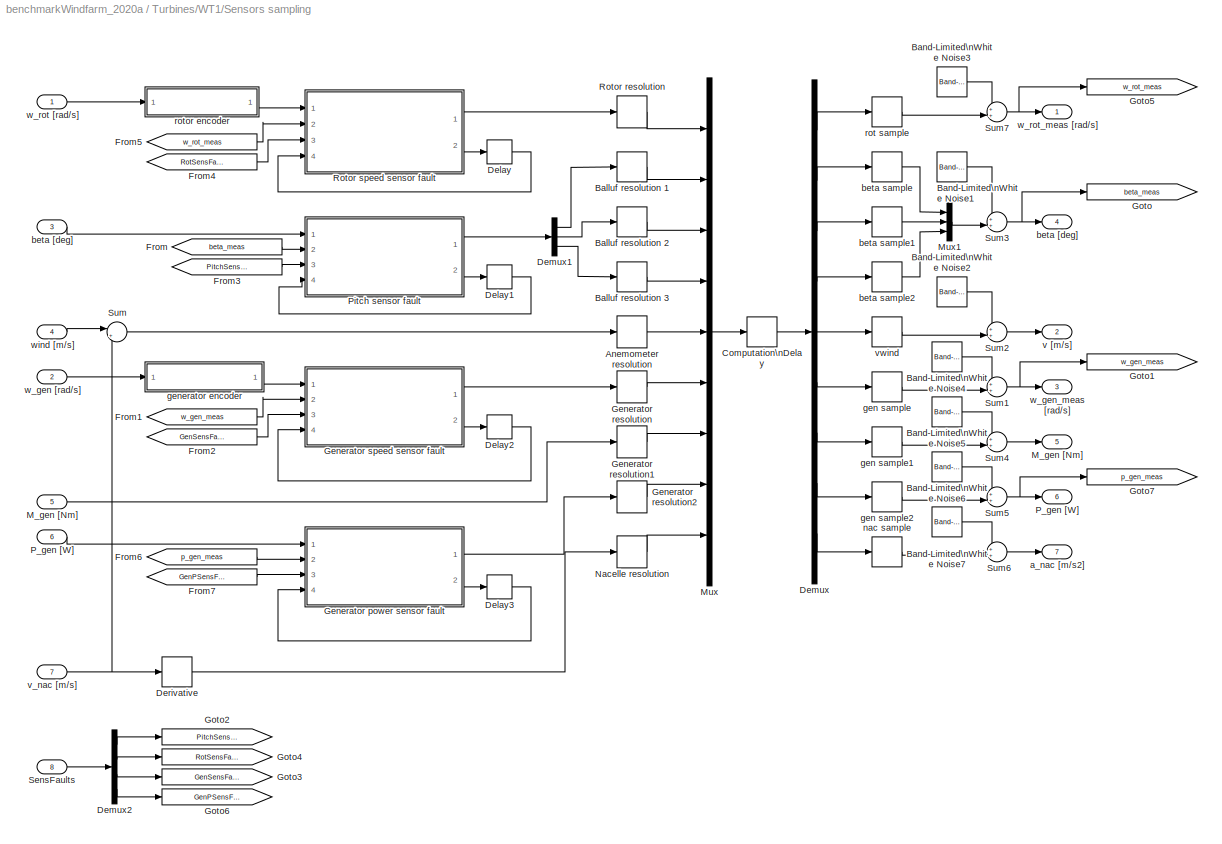
BLOCK [SubSystem] Turbines/WT1/Sensors sampling
  Ports = [8, 7]
  SID = 117:128
BLOCK [Quantizer] Turbines/WT1/Sensors sampling/Anemometer resolution
  QuantizationInterval = wt.meas.aneres
  SID = 117:249
BLOCK [Quantizer] Turbines/WT1/Sensors sampling/Balluf resolution 1
  QuantizationInterval = wt.meas.pitchres
  SID = 117:250
BLOCK [Quantizer] Turbines/WT1/Sensors sampling/Balluf resolution 2
  QuantizationInterval = wt.meas.pitchres
  SID = 117:251
BLOCK [Quantizer] Turbines/WT1/Sensors sampling/Balluf resolution 3
  QuantizationInterval = wt.meas.pitchres
  SID = 117:252
BLOCK [Reference] Turbines/WT1/Sensors sampling/Band-Limited\nWhite Noise1  REF=simulink/Sources/Band-Limited\nWhite Noise
  Cov = noiseFlag*wt.meas.pitchnoise
  Ports = [0, 1]
  RTWMemSecDataConstants = Inherit from model
  RTWMemSecDataInternal = Inherit from model
  RTWMemSecDataParameters = Inherit from model
  RTWMemSecFuncExecute = Inherit from model
  RTWMemSecFuncInitTerm = Inherit from model
  SID = 117:593
  SourceBlock = simulink/Sources/Band-Limited\nWhite Noise
  SourceType = Band-Limited White Noise.
  Ts = dt
  VectorParams1D = on
  seed = floor(10000*rand(1,3))
BLOCK [Reference] Turbines/WT1/Sensors sampling/Band-Limited\nWhite Noise2  REF=simulink/Sources/Band-Limited\nWhite Noise
  Cov = noiseFlag*wt.meas.anenoise
  Ports = [0, 1]
  RTWMemSecDataConstants = Inherit from model
  RTWMemSecDataInternal = Inherit from model
  RTWMemSecDataParameters = Inherit from model
  RTWMemSecFuncExecute = Inherit from model
  RTWMemSecFuncInitTerm = Inherit from model
  SID = 117:594
  SourceBlock = simulink/Sources/Band-Limited\nWhite Noise
  SourceType = Band-Limited White Noise.
  Ts = dt
  VectorParams1D = on
  seed = floor(10000*rand(1))
BLOCK [Reference] Turbines/WT1/Sensors sampling/Band-Limited\nWhite Noise3  REF=simulink/Sources/Band-Limited\nWhite Noise
  Cov = noiseFlag*wt.meas.rotSpdnoise
  Ports = [0, 1]
  RTWMemSecDataConstants = Inherit from model
  RTWMemSecDataInternal = Inherit from model
  RTWMemSecDataParameters = Inherit from model
  RTWMemSecFuncExecute = Inherit from model
  RTWMemSecFuncInitTerm = Inherit from model
  SID = 117:592
  SourceBlock = simulink/Sources/Band-Limited\nWhite Noise
  SourceType = Band-Limited White Noise.
  Ts = dt
  VectorParams1D = on
  seed = floor(10000*rand(1))
BLOCK [Reference] Turbines/WT1/Sensors sampling/Band-Limited\nWhite Noise4  REF=simulink/Sources/Band-Limited\nWhite Noise
  Cov = noiseFlag*wt.meas.genSpdnoise
  Ports = [0, 1]
  RTWMemSecDataConstants = Inherit from model
  RTWMemSecDataInternal = Inherit from model
  RTWMemSecDataParameters = Inherit from model
  RTWMemSecFuncExecute = Inherit from model
  RTWMemSecFuncInitTerm = Inherit from model
  SID = 117:595
  SourceBlock = simulink/Sources/Band-Limited\nWhite Noise
  SourceType = Band-Limited White Noise.
  Ts = dt
  VectorParams1D = on
  seed = floor(10000*rand(1))
BLOCK [Reference] Turbines/WT1/Sensors sampling/Band-Limited\nWhite Noise5  REF=simulink/Sources/Band-Limited\nWhite Noise
  Cov = noiseFlag*wt.meas.genTrqnoise
  Ports = [0, 1]
  RTWMemSecDataConstants = Inherit from model
  RTWMemSecDataInternal = Inherit from model
  RTWMemSecDataParameters = Inherit from model
  RTWMemSecFuncExecute = Inherit from model
  RTWMemSecFuncInitTerm = Inherit from model
  SID = 117:596
  SourceBlock = simulink/Sources/Band-Limited\nWhite Noise
  SourceType = Band-Limited White Noise.
  Ts = dt
  VectorParams1D = on
  seed = floor(10000*rand(1))
BLOCK [Reference] Turbines/WT1/Sensors sampling/Band-Limited\nWhite Noise6  REF=simulink/Sources/Band-Limited\nWhite Noise
  Cov = noiseFlag*wt.meas.genPwrnoise
  Ports = [0, 1]
  RTWMemSecDataConstants = Inherit from model
  RTWMemSecDataInternal = Inherit from model
  RTWMemSecDataParameters = Inherit from model
  RTWMemSecFuncExecute = Inherit from model
  RTWMemSecFuncInitTerm = Inherit from model
  SID = 117:597
  SourceBlock = simulink/Sources/Band-Limited\nWhite Noise
  SourceType = Band-Limited White Noise.
  Ts = dt
  VectorParams1D = on
  seed = floor(10000*rand(1))
BLOCK [Reference] Turbines/WT1/Sensors sampling/Band-Limited\nWhite Noise7  REF=simulink/Sources/Band-Limited\nWhite Noise
  Cov = noiseFlag*wt.meas.nacAccnoise
  Ports = [0, 1]
  RTWMemSecDataConstants = Inherit from model
  RTWMemSecDataInternal = Inherit from model
  RTWMemSecDataParameters = Inherit from model
  RTWMemSecFuncExecute = Inherit from model
  RTWMemSecFuncInitTerm = Inherit from model
  SID = 117:598
  SourceBlock = simulink/Sources/Band-Limited\nWhite Noise
  SourceType = Band-Limited White Noise.
  Ts = dt
  VectorParams1D = on
  seed = floor(10000*rand(1))
BLOCK [TransportDelay] Turbines/WT1/Sensors sampling/Computation\nDelay
  DelayTime = wt.meas.delay
  InitialOutput = [wt.rotor.ini wt.pitch.ini wt.pitch.ini wt.pitch.ini 0 wt.gen.ini 0 0 0]
  Ports = [1, 1]
  SID = 117:253
BLOCK [Delay] Turbines/WT1/Sensors sampling/Delay
  DelayLength = 1
  InitialCondition = 0
  InputPortMap = u0
  Ports = [1, 1]
  SID = 117:557
BLOCK [Delay] Turbines/WT1/Sensors sampling/Delay1
  DelayLength = 1
  InitialCondition = 0
  InputPortMap = u0
  Ports = [1, 1]
  SID = 117:558
BLOCK [Delay] Turbines/WT1/Sensors sampling/Delay2
  DelayLength = 1
  InitialCondition = 0
  InputPortMap = u0
  Ports = [1, 1]
  SID = 117:559
BLOCK [Delay] Turbines/WT1/Sensors sampling/Delay3
  DelayLength = 1
  InitialCondition = 0
  InputPortMap = u0
  Ports = [1, 1]
  SID = 117:616
BLOCK [Demux] Turbines/WT1/Sensors sampling/Demux
  Outputs = 9
  Ports = [1, 9]
  SID = 117:254
BLOCK [Demux] Turbines/WT1/Sensors sampling/Demux1
  Outputs = 3
  Ports = [1, 3]
  SID = 117:255
BLOCK [Demux] Turbines/WT1/Sensors sampling/Demux2
  Ports = [1, 4]
  SID = 117:502
BLOCK [Derivative] Turbines/WT1/Sensors sampling/Derivative
  SID = 117:569
BLOCK [From] Turbines/WT1/Sensors sampling/From
  GotoTag = beta_meas
  SID = 117:489
BLOCK [From] Turbines/WT1/Sensors sampling/From1
  GotoTag = w_gen_meas
  SID = 117:491
BLOCK [From] Turbines/WT1/Sensors sampling/From2
  GotoTag = GenSensFault
  SID = 117:503
BLOCK [From] Turbines/WT1/Sensors sampling/From3
  GotoTag = PitchSensFault
  SID = 117:504
BLOCK [From] Turbines/WT1/Sensors sampling/From4
  GotoTag = RotSensFault
  SID = 117:505
BLOCK [From] Turbines/WT1/Sensors sampling/From5
  GotoTag = w_rot_meas
  SID = 117:507
BLOCK [From] Turbines/WT1/Sensors sampling/From6
  GotoTag = p_gen_meas
  SID = 117:621
BLOCK [From] Turbines/WT1/Sensors sampling/From7
  GotoTag = GenPSensFault
  SID = 117:618
BLOCK [SubSystem] Turbines/WT1/Sensors sampling/Generator power sensor fault
  ErrorFcn = Stateflow.Translate.translate
  PermitHierarchicalResolution = ExplicitOnly
  Ports = [4, 2]
  SFBlockType = MATLAB Function
  SID = 117:619
  TreatAsAtomicUnit = on
BLOCK [Demux] Turbines/WT1/Sensors sampling/Generator power sensor fault/ Demux 
  Outputs = 1
  Ports = [1, 1]
  SID = 117:619::43
BLOCK [S-Function] Turbines/WT1/Sensors sampling/Generator power sensor fault/ SFunction 
  EnableBusSupport = on
  FunctionName = sf_sfun
  Parameters = faultOptions
  PortCounts = [4 3]
  Ports = [4, 3]
  SFcnIsStateOwnerBlock = off
  SFunctionDeploymentMode = off
  SID = 117:619::42
  Tag = Stateflow S-Function 20
BLOCK [Terminator] Turbines/WT1/Sensors sampling/Generator power sensor fault/ Terminator 
  SID = 117:619::44
BLOCK [Inport] Turbines/WT1/Sensors sampling/Generator power sensor fault/GenPSenFault
  Port = 3
  SID = 117:619::24
BLOCK [Inport] Turbines/WT1/Sensors sampling/Generator power sensor fault/drift_aux_in
  Port = 4
  SID = 117:619::34
BLOCK [Outport] Turbines/WT1/Sensors sampling/Generator power sensor fault/drift_aux_out
  Port = 2
  SID = 117:619::35
BLOCK [Outport] Turbines/WT1/Sensors sampling/Generator power sensor fault/p_gen_meas
  SID = 117:619::5
BLOCK [Inport] Turbines/WT1/Sensors sampling/Generator power sensor fault/p_gen_prev
  Port = 2
  SID = 117:619::23
BLOCK [Inport] Turbines/WT1/Sensors sampling/Generator power sensor fault/p_gen_real
  SID = 117:619::1
BLOCK [Quantizer] Turbines/WT1/Sensors sampling/Generator resolution
  QuantizationInterval = wt.meas.genres
  SID = 117:257
BLOCK [Quantizer] Turbines/WT1/Sensors sampling/Generator resolution1
  QuantizationInterval = wt.meas.genres
  SID = 117:570
BLOCK [Quantizer] Turbines/WT1/Sensors sampling/Generator resolution2
  QuantizationInterval = wt.meas.genres
  SID = 117:571
BLOCK [SubSystem] Turbines/WT1/Sensors sampling/Generator speed sensor fault
  ErrorFcn = Stateflow.Translate.translate
  PermitHierarchicalResolution = ExplicitOnly
  Ports = [4, 2]
  SFBlockType = MATLAB Function
  SID = 117:334
  TreatAsAtomicUnit = on
BLOCK [Demux] Turbines/WT1/Sensors sampling/Generator speed sensor fault/ Demux 
  Outputs = 1
  Ports = [1, 1]
  SID = 117:334::40
BLOCK [S-Function] Turbines/WT1/Sensors sampling/Generator speed sensor fault/ SFunction 
  EnableBusSupport = on
  FunctionName = sf_sfun
  Parameters = faultOptions
  PortCounts = [4 3]
  Ports = [4, 3]
  SFcnIsStateOwnerBlock = off
  SFunctionDeploymentMode = off
  SID = 117:334::39
  Tag = Stateflow S-Function 23
BLOCK [Terminator] Turbines/WT1/Sensors sampling/Generator speed sensor fault/ Terminator 
  SID = 117:334::41
BLOCK [Inport] Turbines/WT1/Sensors sampling/Generator speed sensor fault/GenSenFault
  Port = 3
  SID = 117:334::24
BLOCK [Inport] Turbines/WT1/Sensors sampling/Generator speed sensor fault/drift_aux_in
  Port = 4
  SID = 117:334::34
BLOCK [Outport] Turbines/WT1/Sensors sampling/Generator speed sensor fault/drift_aux_out
  Port = 2
  SID = 117:334::35
BLOCK [Outport] Turbines/WT1/Sensors sampling/Generator speed sensor fault/w_gen_meas
  SID = 117:334::5
BLOCK [Inport] Turbines/WT1/Sensors sampling/Generator speed sensor fault/w_gen_prev
  Port = 2
  SID = 117:334::23
BLOCK [Inport] Turbines/WT1/Sensors sampling/Generator speed sensor fault/w_gen_real
  SID = 117:334::1
BLOCK [Goto] Turbines/WT1/Sensors sampling/Goto
  GotoTag = beta_meas
  SID = 117:488
BLOCK [Goto] Turbines/WT1/Sensors sampling/Goto1
  GotoTag = w_gen_meas
  SID = 117:490
BLOCK [Goto] Turbines/WT1/Sensors sampling/Goto2
  GotoTag = PitchSensFault
  SID = 117:499
BLOCK [Goto] Turbines/WT1/Sensors sampling/Goto3
  GotoTag = GenSensFault
  SID = 117:500
BLOCK [Goto] Turbines/WT1/Sensors sampling/Goto4
  GotoTag = RotSensFault
  SID = 117:501
BLOCK [Goto] Turbines/WT1/Sensors sampling/Goto5
  GotoTag = w_rot_meas
  SID = 117:506
BLOCK [Goto] Turbines/WT1/Sensors sampling/Goto6
  GotoTag = GenPSensFault
  SID = 117:615
BLOCK [Goto] Turbines/WT1/Sensors sampling/Goto7
  GotoTag = p_gen_meas
  SID = 117:620
BLOCK [Outport] Turbines/WT1/Sensors sampling/M_gen [Nm]
  InitialOutput = 0
  Port = 5
  SID = 117:582
BLOCK [Inport] Turbines/WT1/Sensors sampling/M_gen [Nm] 
  Port = 5
  SID = 117:566
BLOCK [Mux] Turbines/WT1/Sensors sampling/Mux
  DisplayOption = bar
  Inputs = 9
  Ports = [9, 1]
  SID = 117:258
BLOCK [Mux] Turbines/WT1/Sensors sampling/Mux1
  DisplayOption = bar
  Inputs = 3
  Ports = [3, 1]
  SID = 117:273
BLOCK [Quantizer] Turbines/WT1/Sensors sampling/Nacelle resolution
  QuantizationInterval = wt.meas.nacres
  SID = 117:572
BLOCK [Outport] Turbines/WT1/Sensors sampling/P_gen [W]
  InitialOutput = 0
  Port = 6
  SID = 117:583
BLOCK [Inport] Turbines/WT1/Sensors sampling/P_gen [W] 
  Port = 6
  SID = 117:567
BLOCK [SubSystem] Turbines/WT1/Sensors sampling/Pitch sensor fault
  ErrorFcn = Stateflow.Translate.translate
  PermitHierarchicalResolution = ExplicitOnly
  Ports = [4, 2]
  SFBlockType = MATLAB Function
  SID = 117:259
  TreatAsAtomicUnit = on
BLOCK [Demux] Turbines/WT1/Sensors sampling/Pitch sensor fault/ Demux 
  Outputs = 1
  Ports = [1, 1]
  SID = 117:259::37
BLOCK [S-Function] Turbines/WT1/Sensors sampling/Pitch sensor fault/ SFunction 
  EnableBusSupport = on
  FunctionName = sf_sfun
  Parameters = faultOptions
  PortCounts = [4 3]
  Ports = [4, 3]
  SFcnIsStateOwnerBlock = off
  SFunctionDeploymentMode = off
  SID = 117:259::36
  Tag = Stateflow S-Function 24
BLOCK [Terminator] Turbines/WT1/Sensors sampling/Pitch sensor fault/ Terminator 
  SID = 117:259::38
BLOCK [Inport] Turbines/WT1/Sensors sampling/Pitch sensor fault/PitchSenFault
  Port = 3
  SID = 117:259::24
BLOCK [Outport] Turbines/WT1/Sensors sampling/Pitch sensor fault/beta_meas
  SID = 117:259::5
BLOCK [Inport] Turbines/WT1/Sensors sampling/Pitch sensor fault/beta_prev
  Port = 2
  SID = 117:259::23
BLOCK [Inport] Turbines/WT1/Sensors sampling/Pitch sensor fault/beta_real
  SID = 117:259::1
BLOCK [Inport] Turbines/WT1/Sensors sampling/Pitch sensor fault/drift_aux_in
  Port = 4
  SID = 117:259::31
BLOCK [Outport] Turbines/WT1/Sensors sampling/Pitch sensor fault/drift_aux_out
  Port = 2
  SID = 117:259::32
BLOCK [Quantizer] Turbines/WT1/Sensors sampling/Rotor resolution
  QuantizationInterval = wt.meas.rotres
  SID = 117:260
BLOCK [SubSystem] Turbines/WT1/Sensors sampling/Rotor speed sensor fault
  ErrorFcn = Stateflow.Translate.translate
  PermitHierarchicalResolution = ExplicitOnly
  Ports = [4, 2]
  SFBlockType = MATLAB Function
  SID = 117:498
  TreatAsAtomicUnit = on
BLOCK [Demux] Turbines/WT1/Sensors sampling/Rotor speed sensor fault/ Demux 
  Outputs = 1
  Ports = [1, 1]
  SID = 117:498::43
BLOCK [S-Function] Turbines/WT1/Sensors sampling/Rotor speed sensor fault/ SFunction 
  EnableBusSupport = on
  FunctionName = sf_sfun
  Parameters = faultOptions
  PortCounts = [4 3]
  Ports = [4, 3]
  SFcnIsStateOwnerBlock = off
  SFunctionDeploymentMode = off
  SID = 117:498::42
  Tag = Stateflow S-Function 25
BLOCK [Terminator] Turbines/WT1/Sensors sampling/Rotor speed sensor fault/ Terminator 
  SID = 117:498::44
BLOCK [Inport] Turbines/WT1/Sensors sampling/Rotor speed sensor fault/RotSenFault
  Port = 3
  SID = 117:498::24
BLOCK [Inport] Turbines/WT1/Sensors sampling/Rotor speed sensor fault/drift_aux_in
  Port = 4
  SID = 117:498::37
BLOCK [Outport] Turbines/WT1/Sensors sampling/Rotor speed sensor fault/drift_aux_out
  Port = 2
  SID = 117:498::38
BLOCK [Outport] Turbines/WT1/Sensors sampling/Rotor speed sensor fault/w_rot_meas
  SID = 117:498::5
BLOCK [Inport] Turbines/WT1/Sensors sampling/Rotor speed sensor fault/w_rot_prev
  Port = 2
  SID = 117:498::23
BLOCK [Inport] Turbines/WT1/Sensors sampling/Rotor speed sensor fault/w_rot_real
  SID = 117:498::1
BLOCK [Inport] Turbines/WT1/Sensors sampling/SensFaults
  Port = 8
  SID = 117:181
BLOCK [Sum] Turbines/WT1/Sensors sampling/Sum
  Inputs = |+-
  Ports = [2, 1]
  SID = 117:614
BLOCK [Sum] Turbines/WT1/Sensors sampling/Sum1
  Inputs = ++|
  Ports = [2, 1]
  SID = 117:585
BLOCK [Sum] Turbines/WT1/Sensors sampling/Sum2
  Inputs = ++|
  Ports = [2, 1]
  SID = 117:586
BLOCK [Sum] Turbines/WT1/Sensors sampling/Sum3
  Inputs = ++|
  Ports = [2, 1]
  SID = 117:587
BLOCK [Sum] Turbines/WT1/Sensors sampling/Sum4
  Inputs = ++|
  Ports = [2, 1]
  SID = 117:576
BLOCK [Sum] Turbines/WT1/Sensors sampling/Sum5
  Inputs = ++|
  Ports = [2, 1]
  SID = 117:577
BLOCK [Sum] Turbines/WT1/Sensors sampling/Sum6
  Inputs = ++|
  Ports = [2, 1]
  SID = 117:578
BLOCK [Sum] Turbines/WT1/Sensors sampling/Sum7
  Inputs = ++|
  Ports = [2, 1]
  SID = 117:588
BLOCK [Outport] Turbines/WT1/Sensors sampling/a_nac [m//s2]
  InitialOutput = 0
  Port = 7
  SID = 117:584
BLOCK [Outport] Turbines/WT1/Sensors sampling/beta [deg]
  InitialOutput = 0
  Port = 4
  SID = 117:153
BLOCK [Inport] Turbines/WT1/Sensors sampling/beta [deg] 
  Port = 3
  SID = 117:131
BLOCK [ZeroOrderHold] Turbines/WT1/Sensors sampling/beta sample
  SID = 117:263
  SampleTime = wt.meas.Ts
BLOCK [ZeroOrderHold] Turbines/WT1/Sensors sampling/beta sample1
  SID = 117:264
  SampleTime = wt.meas.Ts
BLOCK [ZeroOrderHold] Turbines/WT1/Sensors sampling/beta sample2
  SID = 117:265
  SampleTime = wt.meas.Ts
BLOCK [ZeroOrderHold] Turbines/WT1/Sensors sampling/gen sample
  SID = 117:268
  SampleTime = wt.meas.Ts
BLOCK [ZeroOrderHold] Turbines/WT1/Sensors sampling/gen sample1
  SID = 117:579
  SampleTime = wt.meas.Ts
BLOCK [ZeroOrderHold] Turbines/WT1/Sensors sampling/gen sample2
  SID = 117:580
  SampleTime = wt.meas.Ts
BLOCK [SubSystem] Turbines/WT1/Sensors sampling/generator encoder
  Ports = [1, 1]
  SID = 117:492
BLOCK [Sum] Turbines/WT1/Sensors sampling/generator encoder/Sum
  Inputs = -+|
  Ports = [2, 1]
  SID = 117:261
BLOCK [Integrator] Turbines/WT1/Sensors sampling/generator encoder/gen Integrator
  InitialCondition = wt.gen.ini
  NameLocation = top
  Ports = [1, 1]
  SID = 117:266
BLOCK [Gain] Turbines/WT1/Sensors sampling/generator encoder/gen sensor time constant
  Gain = 1/wt.meas.gentau
  SID = 117:269
BLOCK [Inport] Turbines/WT1/Sensors sampling/generator encoder/w_gen_in
  SID = 117:493
BLOCK [Outport] Turbines/WT1/Sensors sampling/generator encoder/w_gen_out
  SID = 117:494
BLOCK [ZeroOrderHold] Turbines/WT1/Sensors sampling/nac sample
  SID = 117:581
  SampleTime = wt.meas.Ts
BLOCK [ZeroOrderHold] Turbines/WT1/Sensors sampling/rot sample
  SID = 117:271
  SampleTime = wt.meas.Ts
BLOCK [SubSystem] Turbines/WT1/Sensors sampling/rotor encoder
  Ports = [1, 1]
  SID = 117:495
BLOCK [Sum] Turbines/WT1/Sensors sampling/rotor encoder/Sum1
  Inputs = |+-
  Ports = [2, 1]
  SID = 117:262
BLOCK [Integrator] Turbines/WT1/Sensors sampling/rotor encoder/gen Integrator1
  InitialCondition = wt.rotor.ini
  Ports = [1, 1]
  SID = 117:267
BLOCK [Gain] Turbines/WT1/Sensors sampling/rotor encoder/gen sensor time constant1
  Gain = 1/wt.meas.rottau
  SID = 117:270
BLOCK [Inport] Turbines/WT1/Sensors sampling/rotor encoder/w_rot_in
  SID = 117:496
BLOCK [Outport] Turbines/WT1/Sensors sampling/rotor encoder/w_rot_out
  SID = 117:497
BLOCK [Outport] Turbines/WT1/Sensors sampling/v [m//s]
  InitialOutput = 0
  Port = 2
  SID = 117:151
BLOCK [Inport] Turbines/WT1/Sensors sampling/v_nac [m//s] 
  Port = 7
  SID = 117:568
BLOCK [ZeroOrderHold] Turbines/WT1/Sensors sampling/vwind
  SID = 117:272
  SampleTime = wt.meas.Ts
BLOCK [Inport] Turbines/WT1/Sensors sampling/w_gen [rad//s]
  Port = 2
  SID = 117:130
BLOCK [Outport] Turbines/WT1/Sensors sampling/w_gen_meas [rad//s]
  InitialOutput = 0
  Port = 3
  SID = 117:152
BLOCK [Inport] Turbines/WT1/Sensors sampling/w_rot [rad//s] 
  SID = 117:129
BLOCK [Outport] Turbines/WT1/Sensors sampling/w_rot_meas [rad//s]
  InitialOutput = 0
  SID = 117:150
BLOCK [Inport] Turbines/WT1/Sensors sampling/wind [m//s]
  Port = 4
  SID = 117:132
BLOCK [Sum] Turbines/WT1/Sum2
  InputSameDT = on
  Inputs = |++
  NameLocation = right
  OutDataTypeStr = Inherit: Same as first input
  Ports = [2, 1]
  SID = 117:604
  SaturateOnIntegerOverflow = on
BLOCK [Sum] Turbines/WT1/Sum3
  InputSameDT = on
  Inputs = |+-
  OutDataTypeStr = Inherit: Same as first input
  Ports = [2, 1]
  SID = 117:603
  SaturateOnIntegerOverflow = on
BLOCK [Terminator] Turbines/WT1/Terminator
  SID = 117:622
BLOCK [SubSystem] Turbines/WT1/Tower deflection 
  Ports = [1, 2]
  SID = 117:157
BLOCK [Inport] Turbines/WT1/Tower deflection /F_t [N]
  SID = 117:158
BLOCK [Gain] Turbines/WT1/Tower deflection /F_t*h
  Gain = wt.tower.height
  OutDataTypeStr = Inherit: Same as input
  ParamDataTypeStr = Inherit: Same as input
  SID = 117:159
  SaturateOnIntegerOverflow = on
BLOCK [Outport] Turbines/WT1/Tower deflection /M_tow [Nm]
  Port = 2
  SID = 117:167
BLOCK [SubSystem] Turbines/WT1/Tower deflection /Tower1
  Ports = [1, 2]
  SID = 117:160
BLOCK [Demux] Turbines/WT1/Tower deflection /Tower1/Demux1
  Outputs = 2
  Ports = [1, 2]
  SID = 117:359
BLOCK [Inport] Turbines/WT1/Tower deflection /Tower1/FT [Nm]
  SID = 117:161
BLOCK [Outport] Turbines/WT1/Tower deflection /Tower1/F_tow [N]
  InitialOutput = 0
  Port = 2
  SID = 117:165
BLOCK [StateSpace] Turbines/WT1/Tower deflection /Tower1/Tower
  A = A
  B = B
  C = C
  D = D
  InitialCondition = zeros(2,1)
  Ports = [1, 1]
  SID = 117:163
BLOCK [Outport] Turbines/WT1/Tower deflection /Tower1/vnac [m//s]
  InitialOutput = 0
  SID = 117:164
BLOCK [Outport] Turbines/WT1/Tower deflection /v_nac [m//s]
  SID = 117:166
BLOCK [Outport] Turbines/WT1/V_meas [m//s]
  Port = 4
  SID = 117:171
BLOCK [Outport] Turbines/WT1/a_nac [m//s]
  Port = 9
  SID = 117:607
BLOCK [Outport] Turbines/WT1/aux
  Port = 11
  SID = 117:175
BLOCK [Outport] Turbines/WT1/beta [deg]
  Port = 5
  SID = 117:172
BLOCK [Inport] Turbines/WT1/fault_signal
  Port = 5
  SID = 117:179
BLOCK [Outport] Turbines/WT1/t_gen_ref [Nm]
  Port = 10
  SID = 117:624
BLOCK [Inport] Turbines/WT1/v_wnd_nac [m//s]
  Port = 3
  SID = 117:4
BLOCK [Inport] Turbines/WT1/v_wnd_rot [m//s]
  Port = 2
  SID = 117:3
BLOCK [Outport] Turbines/WT1/w_gen_meas [rad//s]
  Port = 3
  SID = 117:170
BLOCK [Outport] Turbines/WT1/w_rot_meas [rad//s]
  Port = 6
  SID = 117:173
BLOCK [SubSystem] Turbines/WT2
  AncestorBlock = libturbines/Floating NREL5MW faulty
  NameLocation = top
  Ports = [5, 11]
  SID = 422
  UserData = DataTag6
  UserDataPersistent = on
BLOCK [SubSystem] Turbines/WT2/Aerodynamics
  Ports = [3, 3]
  SID = 422:5
BLOCK [SubSystem] Turbines/WT2/Aerodynamics/Blade 1
  Ports = [3, 3]
  SID = 422:182
BLOCK [SubSystem] Turbines/WT2/Aerodynamics/Blade 1/C_P & C_T tables
  Ports = [2, 2]
  SID = 422:9
BLOCK [Outport] Turbines/WT2/Aerodynamics/Blade 1/C_P & C_T tables/C_P
  Port = 2
  SID = 422:15
BLOCK [Lookup2D] Turbines/WT2/Aerodynamics/Blade 1/C_P & C_T tables/C_P table 
  ColumnIndex = wt.cp.tsr
  LookUpMeth = Interpolation-Use End Values
  RowIndex = wt.cp.beta
  SID = 422:12
  Table = wt.cp.table
BLOCK [Outport] Turbines/WT2/Aerodynamics/Blade 1/C_P & C_T tables/C_T
  SID = 422:14
BLOCK [Lookup2D] Turbines/WT2/Aerodynamics/Blade 1/C_P & C_T tables/C_T table
  ColumnIndex = wt.ct.tsr
  LookUpMeth = Interpolation-Use End Values
  RowIndex = wt.ct.beta
  SID = 422:13
  Table = wt.ct.table
BLOCK [Inport] Turbines/WT2/Aerodynamics/Blade 1/C_P & C_T tables/beta
  SID = 422:10
BLOCK [Inport] Turbines/WT2/Aerodynamics/Blade 1/C_P & C_T tables/lambda
  Port = 2
  SID = 422:11
BLOCK [Outport] Turbines/WT2/Aerodynamics/Blade 1/C_T
  Port = 2
  SID = 422:187
BLOCK [Outport] Turbines/WT2/Aerodynamics/Blade 1/F_t [N]
  SID = 422:186
BLOCK [Gain] Turbines/WT2/Aerodynamics/Blade 1/Gain
  Gain = 1/3
  SID = 422:274
BLOCK [Gain] Turbines/WT2/Aerodynamics/Blade 1/Gain1
  Gain = 1/3
  SID = 422:275
BLOCK [Gain] Turbines/WT2/Aerodynamics/Blade 1/Gain2
  Gain = 1/3
  SID = 422:276
BLOCK [Outport] Turbines/WT2/Aerodynamics/Blade 1/M_rot [Nm]
  Port = 3
  SID = 422:188
BLOCK [Math] Turbines/WT2/Aerodynamics/Blade 1/Math\nFunction
  Operator = square
  Ports = [1, 1]
  SID = 422:16
  SignedPower = on
BLOCK [Product] Turbines/WT2/Aerodynamics/Blade 1/Product
  InputSameDT = on
  OutDataTypeStr = Inherit: Same as first input
  Ports = [2, 1]
  SID = 422:17
  SaturateOnIntegerOverflow = on
BLOCK [Product] Turbines/WT2/Aerodynamics/Blade 1/Product1
  InputSameDT = on
  Inputs = **/
  OutDataTypeStr = Inherit: Same as first input
  Ports = [3, 1]
  SID = 422:18
  SaturateOnIntegerOverflow = on
BLOCK [Product] Turbines/WT2/Aerodynamics/Blade 1/Product2
  InputSameDT = on
  OutDataTypeStr = Inherit: Same as first input
  Ports = [2, 1]
  SID = 422:19
  SaturateOnIntegerOverflow = on
BLOCK [Product] Turbines/WT2/Aerodynamics/Blade 1/Product3
  InputSameDT = on
  Inputs = /*
  OutDataTypeStr = Inherit: Same as first input
  Ports = [2, 1]
  SID = 422:20
  SaturateOnIntegerOverflow = on
BLOCK [Inport] Turbines/WT2/Aerodynamics/Blade 1/beta [deg]
  Port = 2
  SID = 422:184
BLOCK [Gain] Turbines/WT2/Aerodynamics/Blade 1/rho//2*A
  Gain = env.rho*.5* pi * wt.rotor.radius^2
  OutDataTypeStr = Inherit: Same as input
  ParamDataTypeStr = Inherit: Same as input
  SID = 422:21
  SaturateOnIntegerOverflow = on
BLOCK [Gain] Turbines/WT2/Aerodynamics/Blade 1/rotor radius
  Gain = wt.rotor.radius
  OutDataTypeStr = Inherit: Same as input
  ParamDataTypeStr = Inherit: Same as input
  SID = 422:22
  SaturateOnIntegerOverflow = on
BLOCK [Inport] Turbines/WT2/Aerodynamics/Blade 1/v_rot [m//s]
  SID = 422:183
BLOCK [Inport] Turbines/WT2/Aerodynamics/Blade 1/w_rot [rad//s]
  Port = 3
  SID = 422:185
BLOCK [SubSystem] Turbines/WT2/Aerodynamics/Blade 2
  AncestorBlock = libturbines/Floating faulty NREL5MW1/Aerodynamics/Blade 1
  Ports = [3, 3]
  SID = 422:480
BLOCK [SubSystem] Turbines/WT2/Aerodynamics/Blade 2/C_P & C_T tables
  Ports = [2, 2]
  SID = 422:480:9
BLOCK [Outport] Turbines/WT2/Aerodynamics/Blade 2/C_P & C_T tables/C_P
  Port = 2
  SID = 422:480:15
BLOCK [Lookup2D] Turbines/WT2/Aerodynamics/Blade 2/C_P & C_T tables/C_P table 
  ColumnIndex = wt.cp.tsr
  LookUpMeth = Interpolation-Use End Values
  RowIndex = wt.cp.beta
  SID = 422:480:12
  Table = wt.cp.table
BLOCK [Outport] Turbines/WT2/Aerodynamics/Blade 2/C_P & C_T tables/C_T
  SID = 422:480:14
BLOCK [Lookup2D] Turbines/WT2/Aerodynamics/Blade 2/C_P & C_T tables/C_T table
  ColumnIndex = wt.ct.tsr
  LookUpMeth = Interpolation-Use End Values
  RowIndex = wt.ct.beta
  SID = 422:480:13
  Table = wt.ct.table
BLOCK [Inport] Turbines/WT2/Aerodynamics/Blade 2/C_P & C_T tables/beta
  SID = 422:480:10
BLOCK [Inport] Turbines/WT2/Aerodynamics/Blade 2/C_P & C_T tables/lambda
  Port = 2
  SID = 422:480:11
BLOCK [Outport] Turbines/WT2/Aerodynamics/Blade 2/C_T
  Port = 2
  SID = 422:480:187
BLOCK [Outport] Turbines/WT2/Aerodynamics/Blade 2/F_t [N]
  SID = 422:480:186
BLOCK [Gain] Turbines/WT2/Aerodynamics/Blade 2/Gain
  Gain = 1/3
  SID = 422:480:274
BLOCK [Gain] Turbines/WT2/Aerodynamics/Blade 2/Gain1
  Gain = 1/3
  SID = 422:480:275
BLOCK [Gain] Turbines/WT2/Aerodynamics/Blade 2/Gain2
  Gain = 1/3
  SID = 422:480:276
BLOCK [Outport] Turbines/WT2/Aerodynamics/Blade 2/M_rot [Nm]
  Port = 3
  SID = 422:480:188
BLOCK [Math] Turbines/WT2/Aerodynamics/Blade 2/Math\nFunction
  Operator = square
  Ports = [1, 1]
  SID = 422:480:16
  SignedPower = on
BLOCK [Product] Turbines/WT2/Aerodynamics/Blade 2/Product
  InputSameDT = on
  OutDataTypeStr = Inherit: Same as first input
  Ports = [2, 1]
  SID = 422:480:17
  SaturateOnIntegerOverflow = on
BLOCK [Product] Turbines/WT2/Aerodynamics/Blade 2/Product1
  InputSameDT = on
  Inputs = **/
  OutDataTypeStr = Inherit: Same as first input
  Ports = [3, 1]
  SID = 422:480:18
  SaturateOnIntegerOverflow = on
BLOCK [Product] Turbines/WT2/Aerodynamics/Blade 2/Product2
  InputSameDT = on
  OutDataTypeStr = Inherit: Same as first input
  Ports = [2, 1]
  SID = 422:480:19
  SaturateOnIntegerOverflow = on
BLOCK [Product] Turbines/WT2/Aerodynamics/Blade 2/Product3
  InputSameDT = on
  Inputs = /*
  OutDataTypeStr = Inherit: Same as first input
  Ports = [2, 1]
  SID = 422:480:20
  SaturateOnIntegerOverflow = on
BLOCK [Inport] Turbines/WT2/Aerodynamics/Blade 2/beta [deg]
  Port = 2
  SID = 422:480:184
BLOCK [Gain] Turbines/WT2/Aerodynamics/Blade 2/rho//2*A
  Gain = env.rho*.5* pi * wt.rotor.radius^2
  OutDataTypeStr = Inherit: Same as input
  ParamDataTypeStr = Inherit: Same as input
  SID = 422:480:21
  SaturateOnIntegerOverflow = on
BLOCK [Gain] Turbines/WT2/Aerodynamics/Blade 2/rotor radius
  Gain = wt.rotor.radius
  OutDataTypeStr = Inherit: Same as input
  ParamDataTypeStr = Inherit: Same as input
  SID = 422:480:22
  SaturateOnIntegerOverflow = on
BLOCK [Inport] Turbines/WT2/Aerodynamics/Blade 2/v_rot [m//s]
  SID = 422:480:183
BLOCK [Inport] Turbines/WT2/Aerodynamics/Blade 2/w_rot [rad//s]
  Port = 3
  SID = 422:480:185
BLOCK [SubSystem] Turbines/WT2/Aerodynamics/Blade 3
  AncestorBlock = libturbines/Floating faulty NREL5MW1/Aerodynamics/Blade 1
  Ports = [3, 3]
  SID = 422:481
BLOCK [SubSystem] Turbines/WT2/Aerodynamics/Blade 3/C_P & C_T tables
  Ports = [2, 2]
  SID = 422:481:9
BLOCK [Outport] Turbines/WT2/Aerodynamics/Blade 3/C_P & C_T tables/C_P
  Port = 2
  SID = 422:481:15
BLOCK [Lookup2D] Turbines/WT2/Aerodynamics/Blade 3/C_P & C_T tables/C_P table 
  ColumnIndex = wt.cp.tsr
  LookUpMeth = Interpolation-Use End Values
  RowIndex = wt.cp.beta
  SID = 422:481:12
  Table = wt.cp.table
BLOCK [Outport] Turbines/WT2/Aerodynamics/Blade 3/C_P & C_T tables/C_T
  SID = 422:481:14
BLOCK [Lookup2D] Turbines/WT2/Aerodynamics/Blade 3/C_P & C_T tables/C_T table
  ColumnIndex = wt.ct.tsr
  LookUpMeth = Interpolation-Use End Values
  RowIndex = wt.ct.beta
  SID = 422:481:13
  Table = wt.ct.table
BLOCK [Inport] Turbines/WT2/Aerodynamics/Blade 3/C_P & C_T tables/beta
  SID = 422:481:10
BLOCK [Inport] Turbines/WT2/Aerodynamics/Blade 3/C_P & C_T tables/lambda
  Port = 2
  SID = 422:481:11
BLOCK [Outport] Turbines/WT2/Aerodynamics/Blade 3/C_T
  Port = 2
  SID = 422:481:187
BLOCK [Outport] Turbines/WT2/Aerodynamics/Blade 3/F_t [N]
  SID = 422:481:186
BLOCK [Gain] Turbines/WT2/Aerodynamics/Blade 3/Gain
  Gain = 1/3
  SID = 422:481:274
BLOCK [Gain] Turbines/WT2/Aerodynamics/Blade 3/Gain1
  Gain = 1/3
  SID = 422:481:275
BLOCK [Gain] Turbines/WT2/Aerodynamics/Blade 3/Gain2
  Gain = 1/3
  SID = 422:481:276
BLOCK [Outport] Turbines/WT2/Aerodynamics/Blade 3/M_rot [Nm]
  Port = 3
  SID = 422:481:188
BLOCK [Math] Turbines/WT2/Aerodynamics/Blade 3/Math\nFunction
  Operator = square
  Ports = [1, 1]
  SID = 422:481:16
  SignedPower = on
BLOCK [Product] Turbines/WT2/Aerodynamics/Blade 3/Product
  InputSameDT = on
  OutDataTypeStr = Inherit: Same as first input
  Ports = [2, 1]
  SID = 422:481:17
  SaturateOnIntegerOverflow = on
BLOCK [Product] Turbines/WT2/Aerodynamics/Blade 3/Product1
  InputSameDT = on
  Inputs = **/
  OutDataTypeStr = Inherit: Same as first input
  Ports = [3, 1]
  SID = 422:481:18
  SaturateOnIntegerOverflow = on
BLOCK [Product] Turbines/WT2/Aerodynamics/Blade 3/Product2
  InputSameDT = on
  OutDataTypeStr = Inherit: Same as first input
  Ports = [2, 1]
  SID = 422:481:19
  SaturateOnIntegerOverflow = on
BLOCK [Product] Turbines/WT2/Aerodynamics/Blade 3/Product3
  InputSameDT = on
  Inputs = /*
  OutDataTypeStr = Inherit: Same as first input
  Ports = [2, 1]
  SID = 422:481:20
  SaturateOnIntegerOverflow = on
BLOCK [Inport] Turbines/WT2/Aerodynamics/Blade 3/beta [deg]
  Port = 2
  SID = 422:481:184
BLOCK [Gain] Turbines/WT2/Aerodynamics/Blade 3/rho//2*A
  Gain = env.rho*.5* pi * wt.rotor.radius^2
  OutDataTypeStr = Inherit: Same as input
  ParamDataTypeStr = Inherit: Same as input
  SID = 422:481:21
  SaturateOnIntegerOverflow = on
BLOCK [Gain] Turbines/WT2/Aerodynamics/Blade 3/rotor radius
  Gain = wt.rotor.radius
  OutDataTypeStr = Inherit: Same as input
  ParamDataTypeStr = Inherit: Same as input
  SID = 422:481:22
  SaturateOnIntegerOverflow = on
BLOCK [Inport] Turbines/WT2/Aerodynamics/Blade 3/v_rot [m//s]
  SID = 422:481:183
BLOCK [Inport] Turbines/WT2/Aerodynamics/Blade 3/w_rot [rad//s]
  Port = 3
  SID = 422:481:185
BLOCK [Outport] Turbines/WT2/Aerodynamics/C_T
  Port = 3
  SID = 422:25
BLOCK [Demux] Turbines/WT2/Aerodynamics/Demux
  Outputs = 3
  Ports = [1, 3]
  SID = 422:203
BLOCK [Outport] Turbines/WT2/Aerodynamics/F_t [N]
  Port = 2
  SID = 422:24
BLOCK [Outport] Turbines/WT2/Aerodynamics/M_rot [Nm]
  SID = 422:23
BLOCK [Sum] Turbines/WT2/Aerodynamics/Sum
  Inputs = +++
  Ports = [3, 1]
  SID = 422:195
BLOCK [Sum] Turbines/WT2/Aerodynamics/Sum1
  Inputs = +++
  Ports = [3, 1]
  SID = 422:196
BLOCK [Sum] Turbines/WT2/Aerodynamics/Sum2
  Inputs = +++
  Ports = [3, 1]
  SID = 422:197
BLOCK [Inport] Turbines/WT2/Aerodynamics/beta [deg]
  Port = 2
  SID = 422:7
BLOCK [Inport] Turbines/WT2/Aerodynamics/v_rot [m//s]
  Port = 3
  SID = 422:8
BLOCK [Inport] Turbines/WT2/Aerodynamics/w_rot [rad//s]
  SID = 422:6
BLOCK [Outport] Turbines/WT2/C_T
  Port = 2
  SID = 422:169
BLOCK [Constant] Turbines/WT2/Constant
  SID = 422:483
  Value = 0
BLOCK [SubSystem] Turbines/WT2/Controller
  Ports = [3, 2]
  SID = 422:32
BLOCK [Gain] Turbines/WT2/Controller/Gain
  Gain = [1 0 0]
  Multiplication = Matrix(K*u) (u vector)
  NameLocation = top
  SID = 422:325
BLOCK [Gain] Turbines/WT2/Controller/Generator efficiency \ncompensation
  Gain = 1/wt.ctrl.gen.effeciency
  SID = 422:35
BLOCK [Saturate] Turbines/WT2/Controller/Limit power \nto rated
  LowerLimit = 0
  SID = 422:36
  UpperLimit = wt.ctrl.p_rated
BLOCK [DiscreteStateSpace] Turbines/WT2/Controller/Measurement filter (low pass)
  A = wt.ctrl.alpha
  B = 1-wt.ctrl.alpha
  C = wt.ctrl.alpha
  D = 1-wt.ctrl.alpha
  InitialCondition = wt.ctrl.gen.ini
  SID = 422:37
  SampleTime = wt.ctrl.Ts
BLOCK [Inport] Turbines/WT2/Controller/P_dem [W]
  SID = 422:33
BLOCK [SubSystem] Turbines/WT2/Controller/Pitch controller
  Ports = [3, 1, 1]
  SID = 422:38
  TreatAsAtomicUnit = on
BLOCK [SubSystem] Turbines/WT2/Controller/Pitch controller/Blade 1 controller
  Ports = [3, 1]
  SID = 422:277
BLOCK [DiscreteIntegrator] Turbines/WT2/Controller/Pitch controller/Blade 1 controller/Discrete-Time\nIntegrator
  ICPrevOutput = DiscIntNeverNeededParam
  ICPrevScaledInput = DiscIntNeverNeededParam
  LimitOutput = on
  LowerSaturationLimit = wt.ctrl.pitch.llim
  Ports = [1, 1]
  SID = 422:281
  SampleTime = wt.ctrl.Ts
  UpperSaturationLimit = wt.ctrl.pitch.ulim*pi/180
BLOCK [Lookup2D] Turbines/WT2/Controller/Pitch controller/Blade 1 controller/Gain correction
  ColumnIndex = wt.ctrl.pitch.beta
  InputSameDT = off
  LookUpMeth = Interpolation-Use End Values
  RowIndex = wt.ctrl.pitch.pwr
  SID = 422:282
  SaturateOnIntegerOverflow = off
  Table = wt.ctrl.pitch.gs
BLOCK [Gain] Turbines/WT2/Controller/Pitch controller/Blade 1 controller/Integral gain
  Gain = (1-0.999*noiseFlag)*wt.ctrl.pitch.Igain
  SID = 422:283
BLOCK [Product] Turbines/WT2/Controller/Pitch controller/Blade 1 controller/Integral schedule
  Inputs = */
  Ports = [2, 1]
  RndMeth = Zero
  SID = 422:284
BLOCK [Inport] Turbines/WT2/Controller/Pitch controller/Blade 1 controller/P_dem
  Port = 2
  SID = 422:279
BLOCK [Product] Turbines/WT2/Controller/Pitch controller/Blade 1 controller/Prop schedule
  Inputs = */
  Ports = [2, 1]
  RndMeth = Zero
  SID = 422:285
BLOCK [Gain] Turbines/WT2/Controller/Pitch controller/Blade 1 controller/Proportional gain
  Gain = (1-0.3*noiseFlag)*wt.ctrl.pitch.Pgain
  SID = 422:286
BLOCK [RateLimiter] Turbines/WT2/Controller/Pitch controller/Blade 1 controller/Rate Limiter
  FallingSlewLimit = -wt.ctrl.pitch.ratelim
  InitialCondition = wt.ctrl.pitch.ini
  RisingSlewLimit = wt.ctrl.pitch.ratelim
  SID = 422:287
  SampleTimeMode = inherited
BLOCK [Saturate] Turbines/WT2/Controller/Pitch controller/Blade 1 controller/Saturation
  LowerLimit = 0
  SID = 422:288
  UpperLimit = wt.ctrl.pitch.ulim
BLOCK [Sum] Turbines/WT2/Controller/Pitch controller/Blade 1 controller/Sum
  Inputs = ++|
  Ports = [2, 1]
  SID = 422:289
BLOCK [Gain] Turbines/WT2/Controller/Pitch controller/Blade 1 controller/To degrees
  Gain = 180/pi
  SID = 422:290
BLOCK [Inport] Turbines/WT2/Controller/Pitch controller/Blade 1 controller/beta_meas [deg]
  Port = 3
  SID = 422:280
BLOCK [Outport] Turbines/WT2/Controller/Pitch controller/Blade 1 controller/beta_ref [deg]
  SID = 422:291
BLOCK [Inport] Turbines/WT2/Controller/Pitch controller/Blade 1 controller/w_gen_diff
  SID = 422:278
BLOCK [SubSystem] Turbines/WT2/Controller/Pitch controller/Blade 2 controller
  Ports = [3, 1]
  SID = 422:292
BLOCK [DiscreteIntegrator] Turbines/WT2/Controller/Pitch controller/Blade 2 controller/Discrete-Time\nIntegrator
  ICPrevOutput = DiscIntNeverNeededParam
  ICPrevScaledInput = DiscIntNeverNeededParam
  LimitOutput = on
  LowerSaturationLimit = wt.ctrl.pitch.llim
  Ports = [1, 1]
  SID = 422:296
  SampleTime = wt.ctrl.Ts
  UpperSaturationLimit = wt.ctrl.pitch.ulim*pi/180
BLOCK [Lookup2D] Turbines/WT2/Controller/Pitch controller/Blade 2 controller/Gain correction
  ColumnIndex = wt.ctrl.pitch.beta
  InputSameDT = off
  LookUpMeth = Interpolation-Use End Values
  RowIndex = wt.ctrl.pitch.pwr
  SID = 422:297
  SaturateOnIntegerOverflow = off
  Table = wt.ctrl.pitch.gs
BLOCK [Gain] Turbines/WT2/Controller/Pitch controller/Blade 2 controller/Integral gain
  Gain = (1-0.999*noiseFlag)*wt.ctrl.pitch.Igain
  SID = 422:609
BLOCK [Product] Turbines/WT2/Controller/Pitch controller/Blade 2 controller/Integral schedule
  Inputs = */
  Ports = [2, 1]
  RndMeth = Zero
  SID = 422:299
BLOCK [Inport] Turbines/WT2/Controller/Pitch controller/Blade 2 controller/P_dem
  Port = 2
  SID = 422:294
BLOCK [Product] Turbines/WT2/Controller/Pitch controller/Blade 2 controller/Prop schedule
  Inputs = */
  Ports = [2, 1]
  RndMeth = Zero
  SID = 422:300
BLOCK [Gain] Turbines/WT2/Controller/Pitch controller/Blade 2 controller/Proportional gain
  Gain = (1-0.3*noiseFlag)*wt.ctrl.pitch.Pgain
  SID = 422:610
BLOCK [RateLimiter] Turbines/WT2/Controller/Pitch controller/Blade 2 controller/Rate Limiter
  FallingSlewLimit = -wt.ctrl.pitch.ratelim
  InitialCondition = wt.ctrl.pitch.ini
  RisingSlewLimit = wt.ctrl.pitch.ratelim
  SID = 422:302
  SampleTimeMode = inherited
BLOCK [Saturate] Turbines/WT2/Controller/Pitch controller/Blade 2 controller/Saturation
  LowerLimit = 0
  SID = 422:303
  UpperLimit = wt.ctrl.pitch.ulim
BLOCK [Sum] Turbines/WT2/Controller/Pitch controller/Blade 2 controller/Sum
  Inputs = ++|
  Ports = [2, 1]
  SID = 422:304
BLOCK [Gain] Turbines/WT2/Controller/Pitch controller/Blade 2 controller/To degrees
  Gain = 180/pi
  SID = 422:305
BLOCK [Inport] Turbines/WT2/Controller/Pitch controller/Blade 2 controller/beta_meas [deg]
  Port = 3
  SID = 422:295
BLOCK [Outport] Turbines/WT2/Controller/Pitch controller/Blade 2 controller/beta_ref [deg]
  SID = 422:306
BLOCK [Inport] Turbines/WT2/Controller/Pitch controller/Blade 2 controller/w_gen_diff
  SID = 422:293
BLOCK [SubSystem] Turbines/WT2/Controller/Pitch controller/Blade 3 controller
  Ports = [3, 1]
  SID = 422:307
BLOCK [DiscreteIntegrator] Turbines/WT2/Controller/Pitch controller/Blade 3 controller/Discrete-Time\nIntegrator
  ICPrevOutput = DiscIntNeverNeededParam
  ICPrevScaledInput = DiscIntNeverNeededParam
  LimitOutput = on
  LowerSaturationLimit = wt.ctrl.pitch.llim
  Ports = [1, 1]
  SID = 422:311
  SampleTime = wt.ctrl.Ts
  UpperSaturationLimit = wt.ctrl.pitch.ulim*pi/180
BLOCK [Lookup2D] Turbines/WT2/Controller/Pitch controller/Blade 3 controller/Gain correction
  ColumnIndex = wt.ctrl.pitch.beta
  InputSameDT = off
  LookUpMeth = Interpolation-Use End Values
  RowIndex = wt.ctrl.pitch.pwr
  SID = 422:312
  SaturateOnIntegerOverflow = off
  Table = wt.ctrl.pitch.gs
BLOCK [Gain] Turbines/WT2/Controller/Pitch controller/Blade 3 controller/Integral gain
  Gain = (1-0.999*noiseFlag)*wt.ctrl.pitch.Igain
  SID = 422:611
BLOCK [Product] Turbines/WT2/Controller/Pitch controller/Blade 3 controller/Integral schedule
  Inputs = */
  Ports = [2, 1]
  RndMeth = Zero
  SID = 422:314
BLOCK [Inport] Turbines/WT2/Controller/Pitch controller/Blade 3 controller/P_dem
  Port = 2
  SID = 422:309
BLOCK [Product] Turbines/WT2/Controller/Pitch controller/Blade 3 controller/Prop schedule
  Inputs = */
  Ports = [2, 1]
  RndMeth = Zero
  SID = 422:315
BLOCK [Gain] Turbines/WT2/Controller/Pitch controller/Blade 3 controller/Proportional gain
  Gain = (1-0.3*noiseFlag)*wt.ctrl.pitch.Pgain
  SID = 422:612
BLOCK [RateLimiter] Turbines/WT2/Controller/Pitch controller/Blade 3 controller/Rate Limiter
  FallingSlewLimit = -wt.ctrl.pitch.ratelim
  InitialCondition = wt.ctrl.pitch.ini
  RisingSlewLimit = wt.ctrl.pitch.ratelim
  SID = 422:317
  SampleTimeMode = inherited
BLOCK [Saturate] Turbines/WT2/Controller/Pitch controller/Blade 3 controller/Saturation
  LowerLimit = 0
  SID = 422:318
  UpperLimit = wt.ctrl.pitch.ulim
BLOCK [Sum] Turbines/WT2/Controller/Pitch controller/Blade 3 controller/Sum
  Inputs = ++|
  Ports = [2, 1]
  SID = 422:319
BLOCK [Gain] Turbines/WT2/Controller/Pitch controller/Blade 3 controller/To degrees
  Gain = 180/pi
  SID = 422:320
BLOCK [Inport] Turbines/WT2/Controller/Pitch controller/Blade 3 controller/beta_meas [deg]
  Port = 3
  SID = 422:310
BLOCK [Outport] Turbines/WT2/Controller/Pitch controller/Blade 3 controller/beta_ref [deg]
  SID = 422:321
BLOCK [Inport] Turbines/WT2/Controller/Pitch controller/Blade 3 controller/w_gen_diff
  SID = 422:308
BLOCK [Demux] Turbines/WT2/Controller/Pitch controller/Demux
  Outputs = 3
  Ports = [1, 3]
  SID = 422:322
BLOCK [EnablePort] Turbines/WT2/Controller/Pitch controller/Enable
  Ports = []
  PropagateVarSize = During execution
  SID = 422:41
  StatesWhenEnabling = reset
BLOCK [Mux] Turbines/WT2/Controller/Pitch controller/Mux
  DisplayOption = bar
  Inputs = 3
  Ports = [3, 1]
  SID = 422:323
BLOCK [Inport] Turbines/WT2/Controller/Pitch controller/P_dem
  Port = 2
  SID = 422:40
BLOCK [Inport] Turbines/WT2/Controller/Pitch controller/beta_meas [deg]
  Port = 3
  SID = 422:324
BLOCK [Outport] Turbines/WT2/Controller/Pitch controller/beta_ref [deg]
  InitialOutput = wt.ctrl.torq.beta
  OutputWhenDisabled = reset
  SID = 422:53
BLOCK [Inport] Turbines/WT2/Controller/Pitch controller/w_gen_diff
  SID = 422:39
BLOCK [RateLimiter] Turbines/WT2/Controller/Rate Limiter
  FallingSlewLimit = -wt.ctrl.torq.ratelim
  InitialCondition = wt.ctrl.torq.ini
  RisingSlewLimit = wt.ctrl.torq.ratelim
  SID = 422:55
  SampleTimeMode = inherited
BLOCK [Constant] Turbines/WT2/Controller/Rated speed
  NameLocation = top
  SID = 422:56
  Value = wt.ctrl.gen.rated
BLOCK [SubSystem] Turbines/WT2/Controller/Region check
  NameLocation = top
  Ports = [4, 2]
  SID = 422:57
BLOCK [RelationalOperator] Turbines/WT2/Controller/Region check/Demand limitation
  InputSameDT = off
  Operator = <=
  OutDataTypeStr = boolean
  Ports = [2, 1]
  SID = 422:62
BLOCK [Product] Turbines/WT2/Controller/Region check/Divide
  Inputs = */
  Ports = [2, 1]
  SID = 422:63
BLOCK [Logic] Turbines/WT2/Controller/Region check/Enable Pitch control?
  AllPortsSameDT = off
  Inputs = 3
  Operator = OR
  OutDataTypeStr = boolean
  Ports = [3, 1]
  SID = 422:64
BLOCK [Outport] Turbines/WT2/Controller/Region check/Enable pitch controller
  Port = 2
  SID = 422:71
BLOCK [Delay] Turbines/WT2/Controller/Region check/Integer Delay
  DelayLength = 1
  InputPortMap = u0
  Ports = [1, 1]
  SID = 422:65
BLOCK [Reference] Turbines/WT2/Controller/Region check/Pitch actuator active last time?  REF=simulink/Logic and Bit\nOperations/Compare\nTo Constant
  OutDataTypeStr = uint8
  Ports = [1, 1]
  RTWMemSecDataConstants = Inherit from model
  RTWMemSecDataInternal = Inherit from model
  RTWMemSecDataParameters = Inherit from model
  RTWMemSecFuncExecute = Inherit from model
  RTWMemSecFuncInitTerm = Inherit from model
  SID = 422:66
  SourceBlock = simulink/Logic and Bit\nOperations/Compare\nTo Constant
  SourceType = Compare To Constant
  ZeroCross = off
  const = wt.ctrl.torq.beta
  relop = >
BLOCK [Product] Turbines/WT2/Controller/Region check/Product
  Ports = [2, 1]
  RndMeth = Zero
  SID = 422:67
BLOCK [Reference] Turbines/WT2/Controller/Region check/Region 3 speed?  REF=simulink/Logic and Bit\nOperations/Compare\nTo Constant
  OutDataTypeStr = uint8
  Ports = [1, 1]
  RTWMemSecDataConstants = Inherit from model
  RTWMemSecDataInternal = Inherit from model
  RTWMemSecDataParameters = Inherit from model
  RTWMemSecFuncExecute = Inherit from model
  RTWMemSecFuncInitTerm = Inherit from model
  SID = 422:68
  SourceBlock = simulink/Logic and Bit\nOperations/Compare\nTo Constant
  SourceType = Compare To Constant
  ZeroCross = off
  const = wt.ctrl.torq.r3
  relop = >=
BLOCK [Switch] Turbines/WT2/Controller/Region check/Switch Torque_ref
  InputSameDT = off
  SID = 422:69
  SaturateOnIntegerOverflow = off
  Threshold = 1
BLOCK [Inport] Turbines/WT2/Controller/Region check/Torque_dem
  SID = 422:58
BLOCK [Outport] Turbines/WT2/Controller/Region check/Torque_ref
  SID = 422:70
BLOCK [Inport] Turbines/WT2/Controller/Region check/p_dem
  Port = 3
  SID = 422:60
BLOCK [Inport] Turbines/WT2/Controller/Region check/pitch command
  Port = 4
  SID = 422:61
BLOCK [Inport] Turbines/WT2/Controller/Region check/w_gen
  Port = 2
  SID = 422:59
BLOCK [ZeroOrderHold] Turbines/WT2/Controller/Sample output
  SID = 422:72
  SampleTime = wt.ctrl.Ts
BLOCK [ZeroOrderHold] Turbines/WT2/Controller/Sample power\ndemand
  SID = 422:73
  SampleTime = wt.ctrl.Ts
BLOCK [Saturate] Turbines/WT2/Controller/Saturation
  LowerLimit = 0
  SID = 422:74
  UpperLimit = wt.ctrl.torq.lim
BLOCK [Sum] Turbines/WT2/Controller/Sum
  Inputs = +-|
  Ports = [2, 1]
  SID = 422:75
BLOCK [Outport] Turbines/WT2/Controller/T_g_ref [W]
  Port = 2
  SID = 422:79
BLOCK [Lookup] Turbines/WT2/Controller/Torque - speed lookup table
  InputValues = wt.ctrl.torq.wg
  LookUpMeth = Interpolation-Use End Values
  SID = 422:76
  SaturateOnIntegerOverflow = off
  Table = wt.ctrl.torq.M
BLOCK [ZeroOrderHold] Turbines/WT2/Controller/Zero-Order\nHold
  SID = 422:77
  SampleTime = wt.ctrl.Ts
BLOCK [Inport] Turbines/WT2/Controller/beta_meas [deg]
  Port = 3
  SID = 422:326
BLOCK [Outport] Turbines/WT2/Controller/beta_ref [deg]
  SID = 422:78
BLOCK [Inport] Turbines/WT2/Controller/w_gen_meas [m//s]
  Port = 2
  SID = 422:34
BLOCK [Demux] Turbines/WT2/Demux
  Outputs = 6
  Ports = [1, 6]
  SID = 422:248
BLOCK [SubSystem] Turbines/WT2/Drive Train
  Ports = [2, 3]
  SID = 422:80
BLOCK [Demux] Turbines/WT2/Drive Train/Demux
  Outputs = 3
  Ports = [1, 3]
  SID = 422:485
BLOCK [StateSpace] Turbines/WT2/Drive Train/Drive train dynamics
  A = wt.dt.ssA
  B = wt.dt.ssB
  C = wt.dt.ssC
  D = wt.dt.ssD
  InitialCondition = [wt.rotor.ini;wt.gen.ini;0]
  Ports = [1, 1]
  SID = 422:484
BLOCK [Inport] Turbines/WT2/Drive Train/M_gen [Nm]
  Port = 2
  SID = 422:82
BLOCK [Inport] Turbines/WT2/Drive Train/M_rot [Nm]
  SID = 422:81
BLOCK [Outport] Turbines/WT2/Drive Train/M_shaft [Nm]
  Port = 3
  SID = 422:98
BLOCK [Mux] Turbines/WT2/Drive Train/Mux
  DisplayOption = bar
  Inputs = 2
  Ports = [2, 1]
  SID = 422:486
BLOCK [Outport] Turbines/WT2/Drive Train/w_gen [rad//s]
  Port = 2
  SID = 422:97
BLOCK [Outport] Turbines/WT2/Drive Train/w_rot [rad//s]
  SID = 422:96
BLOCK [Inport] Turbines/WT2/F_ex
  Port = 4
  SID = 422:479
BLOCK [From] Turbines/WT2/From
  GotoTag = f_PitchAct
  SID = 422:341
BLOCK [From] Turbines/WT2/From1
  GotoTag = beta
  SID = 422:561
BLOCK [From] Turbines/WT2/From11
  GotoTag = beta_meas
  SID = 422:477
BLOCK [From] Turbines/WT2/From12
  GotoTag = w_gen
  SID = 422:565
BLOCK [From] Turbines/WT2/From13
  GotoTag = P_gen
  SID = 422:600
BLOCK [From] Turbines/WT2/From14
  GotoTag = M_gen
  SID = 422:602
BLOCK [From] Turbines/WT2/From15
  GotoTag = v_nac
  SID = 422:606
BLOCK [From] Turbines/WT2/From2
  GotoTag = f_Sens
  SID = 422:342
BLOCK [From] Turbines/WT2/From3
  GotoTag = beta
  NameLocation = top
  SID = 422:368
BLOCK [From] Turbines/WT2/From4
  GotoTag = beta_ref
  SID = 422:370
BLOCK [From] Turbines/WT2/From5
  GotoTag = beta
  NameLocation = top
  SID = 422:371
BLOCK [From] Turbines/WT2/From6
  GotoTag = f_GenAct
  SID = 422:459
BLOCK [From] Turbines/WT2/From7
  GotoTag = w_gen_meas
  NameLocation = top
  SID = 422:473
BLOCK [From] Turbines/WT2/From8
  GotoTag = beta_meas
  NameLocation = top
  SID = 422:474
BLOCK [From] Turbines/WT2/From9
  GotoTag = beta_ref
  NameLocation = top
  SID = 422:475
BLOCK [SubSystem] Turbines/WT2/Generator simple
  Ports = [3, 2]
  SID = 422:102
BLOCK [Constant] Turbines/WT2/Generator simple/Constant
  SID = 422:456
  Value = wt.gen.timeconstant
BLOCK [Delay] Turbines/WT2/Generator simple/Delay
  DelayLength = 1
  InitialCondition = 0
  InputPortMap = u0
  NameLocation = top
  Ports = [1, 1]
  SID = 422:487
BLOCK [Delay] Turbines/WT2/Generator simple/Delay1
  DelayLength = 1
  InitialCondition = 0
  InputPortMap = u0
  NameLocation = top
  Ports = [1, 1]
  SID = 422:560
BLOCK [Demux] Turbines/WT2/Generator simple/Demux
  Outputs = 2
  Ports = [1, 2]
  SID = 422:455
BLOCK [Product] Turbines/WT2/Generator simple/Divide1
  Inputs = */
  Ports = [2, 1]
  SID = 422:458
BLOCK [Inport] Turbines/WT2/Generator simple/GenActFault
  Port = 3
  SID = 422:454
BLOCK [Gain] Turbines/WT2/Generator simple/Generator efficiency
  Gain = wt.gen.effeciency
  SID = 422:107
BLOCK [SubSystem] Turbines/WT2/Generator simple/Generator fault
  ErrorFcn = Stateflow.Translate.translate
  PermitHierarchicalResolution = ExplicitOnly
  Ports = [4, 2]
  SFBlockType = MATLAB Function
  SID = 422:453
  TreatAsAtomicUnit = on
BLOCK [SubSystem] Turbines/WT2/Generator simple/Generator fault type 3
  ErrorFcn = Stateflow.Translate.translate
  PermitHierarchicalResolution = ExplicitOnly
  Ports = [1, 1]
  SFBlockType = MATLAB Function
  SID = 422:452
  TreatAsAtomicUnit = on
BLOCK [Demux] Turbines/WT2/Generator simple/Generator fault type 3/ Demux 
  Outputs = 1
  Ports = [1, 1]
  SID = 422:452::41
BLOCK [S-Function] Turbines/WT2/Generator simple/Generator fault type 3/ SFunction 
  EnableBusSupport = on
  FunctionName = sf_sfun
  Parameters = faultOptions
  PortCounts = [1 2]
  Ports = [1, 2]
  SFcnIsStateOwnerBlock = off
  SFunctionDeploymentMode = off
  SID = 422:452::40
  Tag = Stateflow S-Function 27
BLOCK [Terminator] Turbines/WT2/Generator simple/Generator fault type 3/ Terminator 
  SID = 422:452::42
BLOCK [Inport] Turbines/WT2/Generator simple/Generator fault type 3/GenActFault
  SID = 422:452::24
BLOCK [Outport] Turbines/WT2/Generator simple/Generator fault type 3/out
  SID = 422:452::5
BLOCK [Demux] Turbines/WT2/Generator simple/Generator fault/ Demux 
  Outputs = 1
  Ports = [1, 1]
  SID = 422:453::44
BLOCK [S-Function] Turbines/WT2/Generator simple/Generator fault/ SFunction 
  EnableBusSupport = on
  FunctionName = sf_sfun
  Parameters = faultOptions
  PortCounts = [4 3]
  Ports = [4, 3]
  SFcnIsStateOwnerBlock = off
  SFunctionDeploymentMode = off
  SID = 422:453::43
  Tag = Stateflow S-Function 26
BLOCK [Terminator] Turbines/WT2/Generator simple/Generator fault/ Terminator 
  SID = 422:453::45
BLOCK [Inport] Turbines/WT2/Generator simple/Generator fault/GenActFault
  SID = 422:453::23
BLOCK [Inport] Turbines/WT2/Generator simple/Generator fault/drift_aux_in
  Port = 4
  SID = 422:453::38
BLOCK [Outport] Turbines/WT2/Generator simple/Generator fault/drift_aux_out
  Port = 2
  SID = 422:453::39
BLOCK [Inport] Turbines/WT2/Generator simple/Generator fault/torque
  Port = 2
  SID = 422:453::1
BLOCK [Inport] Turbines/WT2/Generator simple/Generator fault/torque_prev
  Port = 3
  SID = 422:453::37
BLOCK [Outport] Turbines/WT2/Generator simple/Generator fault/torque_real
  SID = 422:453::5
BLOCK [Outport] Turbines/WT2/Generator simple/M_gen [Nm]
  SID = 422:111
BLOCK [Product] Turbines/WT2/Generator simple/Multiply
  Inputs = **
  Ports = [2, 1]
  SID = 422:108
BLOCK [Outport] Turbines/WT2/Generator simple/P_out [W]
  Port = 2
  SID = 422:112
BLOCK [Product] Turbines/WT2/Generator simple/Product
  Ports = [2, 1]
  SID = 422:457
BLOCK [Sum] Turbines/WT2/Generator simple/Sum
  Inputs = |+-
  Ports = [2, 1]
  SID = 422:109
BLOCK [Inport] Turbines/WT2/Generator simple/T_g_ref [W]
  Port = 2
  SID = 422:104
BLOCK [Integrator] Turbines/WT2/Generator simple/Torque Integrator
  InitialCondition = wt.gen.torq.ini
  Ports = [1, 1]
  SID = 422:110
BLOCK [Inport] Turbines/WT2/Generator simple/w_gen [rad//s]
  SID = 422:103
BLOCK [Goto] Turbines/WT2/Goto
  GotoTag = f_PitchAct
  SID = 422:336
BLOCK [Goto] Turbines/WT2/Goto1
  GotoTag = w_gen
  SID = 422:564
BLOCK [Goto] Turbines/WT2/Goto10
  GotoTag = P_gen
  SID = 422:599
BLOCK [Goto] Turbines/WT2/Goto2
  GotoTag = f_Sens
  SID = 422:338
BLOCK [Goto] Turbines/WT2/Goto3
  GotoTag = beta
  SID = 422:367
BLOCK [Goto] Turbines/WT2/Goto4
  GotoTag = beta_ref
  NameLocation = top
  SID = 422:369
BLOCK [Goto] Turbines/WT2/Goto5
  GotoTag = M_gen
  SID = 422:601
BLOCK [Goto] Turbines/WT2/Goto6
  GotoTag = w_gen_meas
  SID = 422:471
BLOCK [Goto] Turbines/WT2/Goto7
  GotoTag = beta_meas
  SID = 422:472
BLOCK [Goto] Turbines/WT2/Goto8
  GotoTag = f_GenAct
  SID = 422:508
BLOCK [Goto] Turbines/WT2/Goto9
  GotoTag = v_nac
  SID = 422:605
BLOCK [SubSystem] Turbines/WT2/Hydrodynamics
  Ports = [2, 1]
  SID = 422:460
BLOCK [Inport] Turbines/WT2/Hydrodynamics/F_ex
  Port = 2
  SID = 422:478
BLOCK [Inport] Turbines/WT2/Hydrodynamics/F_t [N]
  SID = 422:461
BLOCK [Gain] Turbines/WT2/Hydrodynamics/Gain
  Gain = plat.nF2pT
  Multiplication = Matrix(K*u)
  SID = 422:463
BLOCK [Gain] Turbines/WT2/Hydrodynamics/Gain2
  Gain = plat.pM2nM_surge
  Multiplication = Matrix(K*u)
  SID = 422:464
BLOCK [Gain] Turbines/WT2/Hydrodynamics/Gain3
  Gain = plat.pM2nM_pitch
  Multiplication = Matrix(K*u)
  SID = 422:465
BLOCK [StateSpace] Turbines/WT2/Hydrodynamics/Platform hydrodynamics\nSS system
  A = plat.HydSys.a
  B = plat.HydSys.b
  C = plat.HydSys.c
  D = plat.HydSys.d
  InitialCondition = 0
  Ports = [1, 1]
  SID = 422:466
BLOCK [Sum] Turbines/WT2/Hydrodynamics/Sum
  Inputs = ++|
  Ports = [2, 1]
  SID = 422:467
BLOCK [Sum] Turbines/WT2/Hydrodynamics/Sum2
  Inputs = +|+
  Ports = [2, 1]
  SID = 422:468
BLOCK [Outport] Turbines/WT2/Hydrodynamics/v_nac_hyd [m//s]
  SID = 422:469
BLOCK [Outport] Turbines/WT2/M_gen [Nm]
  Port = 8
  SID = 422:555
BLOCK [Outport] Turbines/WT2/M_tow [Nm]
  Port = 7
  SID = 422:174
BLOCK [Mux] Turbines/WT2/Mux
  DisplayOption = bar
  Inputs = 3
  Ports = [3, 1]
  SID = 422:328
BLOCK [Mux] Turbines/WT2/Mux1
  DisplayOption = bar
  Ports = [4, 1]
  SID = 422:509
BLOCK [Inport] Turbines/WT2/P_dem [W]
  SID = 422:2
BLOCK [Outport] Turbines/WT2/P_out [W]
  SID = 422:168
BLOCK [SubSystem] Turbines/WT2/Pitch Actuator
  Ports = [2, 1]
  SID = 422:113
BLOCK [Delay] Turbines/WT2/Pitch Actuator/Delay1
  DelayLength = 1
  InitialCondition = 0
  InputPortMap = u0
  NameLocation = top
  Ports = [1, 1]
  SID = 422:608
BLOCK [Delay] Turbines/WT2/Pitch Actuator/Delay2
  DelayLength = 1
  InitialCondition = 0
  InputPortMap = u0
  NameLocation = top
  Ports = [1, 1]
  SID = 422:556
BLOCK [SubSystem] Turbines/WT2/Pitch Actuator/Pitch actuator fault
  ErrorFcn = Stateflow.Translate.translate
  PermitHierarchicalResolution = ExplicitOnly
  Ports = [4, 2]
  SFBlockType = MATLAB Function
  SID = 422:417
  TreatAsAtomicUnit = on
BLOCK [Demux] Turbines/WT2/Pitch Actuator/Pitch actuator fault/ Demux 
  Outputs = 1
  Ports = [1, 1]
  SID = 422:417::40
BLOCK [S-Function] Turbines/WT2/Pitch Actuator/Pitch actuator fault/ SFunction 
  EnableBusSupport = on
  FunctionName = sf_sfun
  Parameters = faultOptions
  PortCounts = [4 3]
  Ports = [4, 3]
  SFcnIsStateOwnerBlock = off
  SFunctionDeploymentMode = off
  SID = 422:417::39
  Tag = Stateflow S-Function 29
BLOCK [Terminator] Turbines/WT2/Pitch Actuator/Pitch actuator fault/ Terminator 
  SID = 422:417::41
BLOCK [Inport] Turbines/WT2/Pitch Actuator/Pitch actuator fault/PitchActFault
  Port = 3
  SID = 422:417::24
BLOCK [Inport] Turbines/WT2/Pitch Actuator/Pitch actuator fault/beta
  SID = 422:417::1
BLOCK [Inport] Turbines/WT2/Pitch Actuator/Pitch actuator fault/beta_prev
  Port = 2
  SID = 422:417::23
BLOCK [Outport] Turbines/WT2/Pitch Actuator/Pitch actuator fault/beta_real
  SID = 422:417::5
BLOCK [Inport] Turbines/WT2/Pitch Actuator/Pitch actuator fault/drift_aux_in
  Port = 4
  SID = 422:417::34
BLOCK [Outport] Turbines/WT2/Pitch Actuator/Pitch actuator fault/drift_aux_out
  Port = 2
  SID = 422:417::35
BLOCK [SubSystem] Turbines/WT2/Pitch Actuator/Pitch subsystems
  Ports = [2, 1]
  SID = 422:518
BLOCK [Demux] Turbines/WT2/Pitch Actuator/Pitch subsystems/Demux2
  Outputs = 3
  Ports = [1, 3]
  SID = 422:521
BLOCK [Inport] Turbines/WT2/Pitch Actuator/Pitch subsystems/Fault type 5
  Port = 2
  SID = 422:520
BLOCK [Mux] Turbines/WT2/Pitch Actuator/Pitch subsystems/Mux1
  DisplayOption = bar
  Inputs = 3
  Ports = [3, 1]
  SID = 422:522
BLOCK [StateSpace] Turbines/WT2/Pitch Actuator/Pitch subsystems/Pitch system B1
  A = wt.pitch.ssA
  B = wt.pitch.ssB
  C = wt.pitch.ssC
  D = wt.pitch.ssD
  InitialCondition = 0
  Ports = [1, 1]
  SID = 422:523
BLOCK [StateSpace] Turbines/WT2/Pitch Actuator/Pitch subsystems/Pitch system B2
  A = wt.pitch.ssA
  B = wt.pitch.ssB
  C = wt.pitch.ssC
  D = wt.pitch.ssD
  InitialCondition = 0
  Ports = [1, 1]
  SID = 422:524
BLOCK [SubSystem] Turbines/WT2/Pitch Actuator/Pitch subsystems/Pitch system B3
  Ports = [2, 1]
  SID = 422:525
BLOCK [Mux] Turbines/WT2/Pitch Actuator/Pitch subsystems/Pitch system B3/A*x
  DisplayOption = bar
  Inputs = 2
  Ports = [2, 1]
  SID = 422:528
BLOCK [Mux] Turbines/WT2/Pitch Actuator/Pitch subsystems/Pitch system B3/B*u
  DisplayOption = bar
  Inputs = 2
  Ports = [2, 1]
  SID = 422:529
BLOCK [Gain] Turbines/WT2/Pitch Actuator/Pitch subsystems/Pitch system B3/C
  Gain = wt.pitch.sysPitch.c
  Multiplication = Matrix(K*u) (u vector)
  SID = 422:530
BLOCK [Constant] Turbines/WT2/Pitch Actuator/Pitch subsystems/Pitch system B3/Constant
  SID = 422:531
  Value = wt.pitch.omega
BLOCK [Constant] Turbines/WT2/Pitch Actuator/Pitch subsystems/Pitch system B3/Constant1
  SID = 422:532
  Value = wt.pitch.damp
BLOCK [Constant] Turbines/WT2/Pitch Actuator/Pitch subsystems/Pitch system B3/Constant2
  SID = 422:533
  Value = 0
BLOCK [Constant] Turbines/WT2/Pitch Actuator/Pitch subsystems/Pitch system B3/Constant3
  SID = 422:534
  Value = faultOptions.pitchNatFreq
BLOCK [Constant] Turbines/WT2/Pitch Actuator/Pitch subsystems/Pitch system B3/Constant4
  SID = 422:535
  Value = faultOptions.pitchDamp
BLOCK [Demux] Turbines/WT2/Pitch Actuator/Pitch subsystems/Pitch system B3/Demux
  Outputs = 2
  Ports = [1, 2]
  SID = 422:536
BLOCK [Gain] Turbines/WT2/Pitch Actuator/Pitch subsystems/Pitch system B3/Gain1
  Gain = [0 1]
  Multiplication = Matrix(K*u) (u vector)
  SID = 422:537
BLOCK [Gain] Turbines/WT2/Pitch Actuator/Pitch subsystems/Pitch system B3/Gain3
  Gain = 2
  SID = 422:538
BLOCK [Gain] Turbines/WT2/Pitch Actuator/Pitch subsystems/Pitch system B3/Gain4
  Gain = [1 0]
  Multiplication = Matrix(K*u) (u vector)
  SID = 422:539
BLOCK [Gain] Turbines/WT2/Pitch Actuator/Pitch subsystems/Pitch system B3/Gain5
  Gain = -1
  SID = 422:540
BLOCK [Integrator] Turbines/WT2/Pitch Actuator/Pitch subsystems/Pitch system B3/Integrator
  Ports = [1, 1]
  SID = 422:541
BLOCK [Product] Turbines/WT2/Pitch Actuator/Pitch subsystems/Pitch system B3/Product
  Ports = [2, 1]
  SID = 422:542
BLOCK [Product] Turbines/WT2/Pitch Actuator/Pitch subsystems/Pitch system B3/Product1
  Ports = [2, 1]
  SID = 422:543
BLOCK [Product] Turbines/WT2/Pitch Actuator/Pitch subsystems/Pitch system B3/Product2
  Ports = [2, 1]
  SID = 422:544
BLOCK [Product] Turbines/WT2/Pitch Actuator/Pitch subsystems/Pitch system B3/Product3
  Ports = [2, 1]
  SID = 422:545
BLOCK [Product] Turbines/WT2/Pitch Actuator/Pitch subsystems/Pitch system B3/Product4
  Ports = [2, 1]
  SID = 422:546
BLOCK [Sum] Turbines/WT2/Pitch Actuator/Pitch subsystems/Pitch system B3/Sum
  Inputs = |++
  Ports = [2, 1]
  SID = 422:547
BLOCK [Sum] Turbines/WT2/Pitch Actuator/Pitch subsystems/Pitch system B3/Sum3
  Inputs = |++
  Ports = [2, 1]
  SID = 422:548
BLOCK [SubSystem] Turbines/WT2/Pitch Actuator/Pitch subsystems/Pitch system B3/Switch
  ErrorFcn = Stateflow.Translate.translate
  PermitHierarchicalResolution = ExplicitOnly
  Ports = [1, 1]
  SFBlockType = MATLAB Function
  SID = 422:549
  TreatAsAtomicUnit = on
BLOCK [Demux] Turbines/WT2/Pitch Actuator/Pitch subsystems/Pitch system B3/Switch/ Demux 
  Outputs = 1
  Ports = [1, 1]
  SID = 422:549::29
BLOCK [S-Function] Turbines/WT2/Pitch Actuator/Pitch subsystems/Pitch system B3/Switch/ SFunction 
  EnableBusSupport = on
  FunctionName = sf_sfun
  PortCounts = [1 2]
  Ports = [1, 2]
  SFcnIsStateOwnerBlock = off
  SFunctionDeploymentMode = off
  SID = 422:549::28
  Tag = Stateflow S-Function 30
BLOCK [Terminator] Turbines/WT2/Pitch Actuator/Pitch subsystems/Pitch system B3/Switch/ Terminator 
  SID = 422:549::30
BLOCK [Inport] Turbines/WT2/Pitch Actuator/Pitch subsystems/Pitch system B3/Switch/u
  SID = 422:549::1
BLOCK [Outport] Turbines/WT2/Pitch Actuator/Pitch subsystems/Pitch system B3/Switch/y
  SID = 422:549::5
BLOCK [Outport] Turbines/WT2/Pitch Actuator/Pitch subsystems/Pitch system B3/beta [deg]
  SID = 422:553
BLOCK [Inport] Turbines/WT2/Pitch Actuator/Pitch subsystems/Pitch system B3/beta_ref [deg]
  SID = 422:526
BLOCK [Inport] Turbines/WT2/Pitch Actuator/Pitch subsystems/Pitch system B3/fault 5
  Port = 2
  SID = 422:527
BLOCK [Mux] Turbines/WT2/Pitch Actuator/Pitch subsystems/Pitch system B3/mux1
  DisplayOption = bar
  Inputs = 2
  Ports = [2, 1]
  SID = 422:550
BLOCK [Mux] Turbines/WT2/Pitch Actuator/Pitch subsystems/Pitch system B3/mux2
  DisplayOption = bar
  Inputs = 2
  Ports = [2, 1]
  SID = 422:551
BLOCK [Mux] Turbines/WT2/Pitch Actuator/Pitch subsystems/Pitch system B3/mux3
  DisplayOption = bar
  Inputs = 3
  Ports = [3, 1]
  SID = 422:552
BLOCK [Outport] Turbines/WT2/Pitch Actuator/Pitch subsystems/beta [deg]
  SID = 422:554
BLOCK [Inport] Turbines/WT2/Pitch Actuator/Pitch subsystems/beta_ref [deg]
  SID = 422:519
BLOCK [Inport] Turbines/WT2/Pitch Actuator/PitchActFault
  Port = 2
  SID = 422:414
BLOCK [Outport] Turbines/WT2/Pitch Actuator/beta [deg]
  SID = 422:450
BLOCK [Inport] Turbines/WT2/Pitch Actuator/beta_ref [deg]
  SID = 422:412
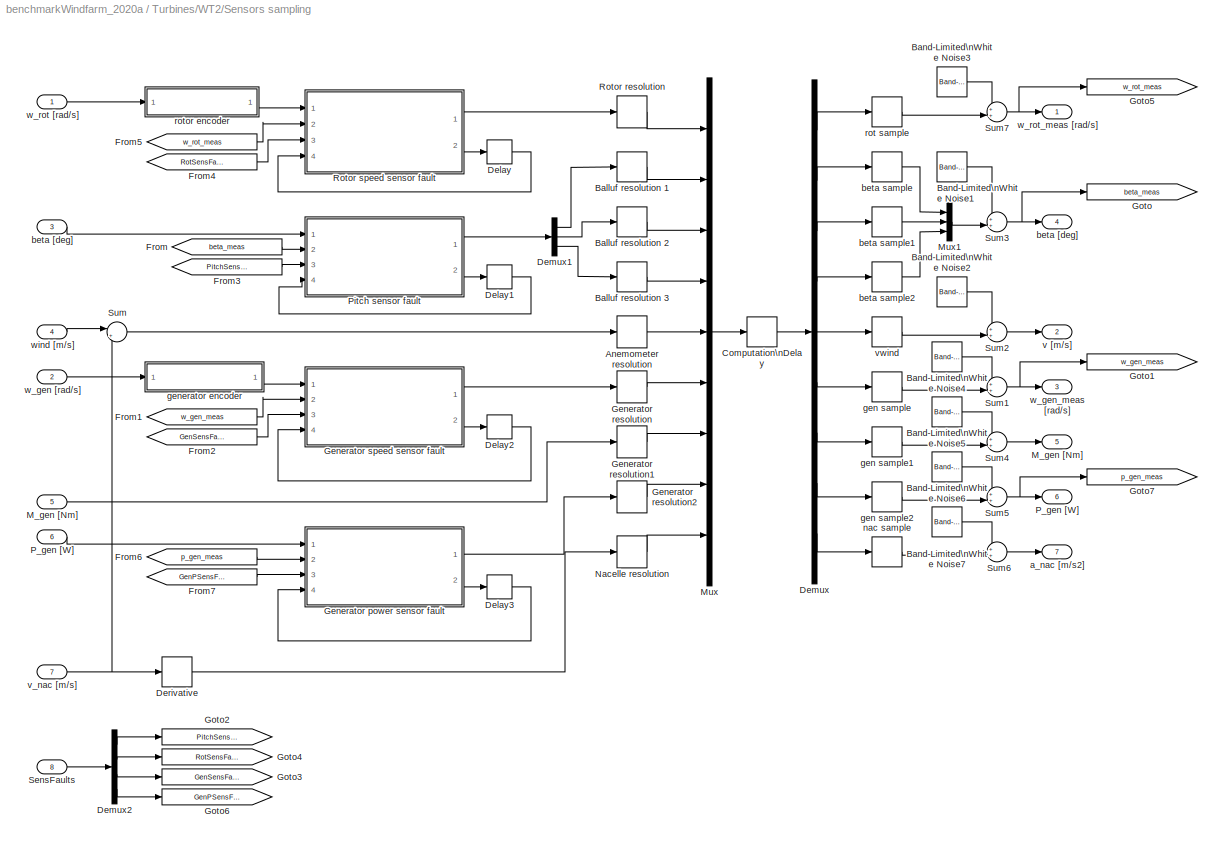
BLOCK [SubSystem] Turbines/WT2/Sensors sampling
  Ports = [8, 7]
  SID = 422:128
BLOCK [Quantizer] Turbines/WT2/Sensors sampling/Anemometer resolution
  QuantizationInterval = wt.meas.aneres
  SID = 422:249
BLOCK [Quantizer] Turbines/WT2/Sensors sampling/Balluf resolution 1
  QuantizationInterval = wt.meas.pitchres
  SID = 422:250
BLOCK [Quantizer] Turbines/WT2/Sensors sampling/Balluf resolution 2
  QuantizationInterval = wt.meas.pitchres
  SID = 422:251
BLOCK [Quantizer] Turbines/WT2/Sensors sampling/Balluf resolution 3
  QuantizationInterval = wt.meas.pitchres
  SID = 422:252
BLOCK [Reference] Turbines/WT2/Sensors sampling/Band-Limited\nWhite Noise1  REF=simulink/Sources/Band-Limited\nWhite Noise
  Cov = noiseFlag*wt.meas.pitchnoise
  Ports = [0, 1]
  RTWMemSecDataConstants = Inherit from model
  RTWMemSecDataInternal = Inherit from model
  RTWMemSecDataParameters = Inherit from model
  RTWMemSecFuncExecute = Inherit from model
  RTWMemSecFuncInitTerm = Inherit from model
  SID = 422:593
  SourceBlock = simulink/Sources/Band-Limited\nWhite Noise
  SourceType = Band-Limited White Noise.
  Ts = dt
  VectorParams1D = on
  seed = floor(10000*rand(1,3))
BLOCK [Reference] Turbines/WT2/Sensors sampling/Band-Limited\nWhite Noise2  REF=simulink/Sources/Band-Limited\nWhite Noise
  Cov = noiseFlag*wt.meas.anenoise
  Ports = [0, 1]
  RTWMemSecDataConstants = Inherit from model
  RTWMemSecDataInternal = Inherit from model
  RTWMemSecDataParameters = Inherit from model
  RTWMemSecFuncExecute = Inherit from model
  RTWMemSecFuncInitTerm = Inherit from model
  SID = 422:594
  SourceBlock = simulink/Sources/Band-Limited\nWhite Noise
  SourceType = Band-Limited White Noise.
  Ts = dt
  VectorParams1D = on
  seed = floor(10000*rand(1))
BLOCK [Reference] Turbines/WT2/Sensors sampling/Band-Limited\nWhite Noise3  REF=simulink/Sources/Band-Limited\nWhite Noise
  Cov = noiseFlag*wt.meas.rotSpdnoise
  Ports = [0, 1]
  RTWMemSecDataConstants = Inherit from model
  RTWMemSecDataInternal = Inherit from model
  RTWMemSecDataParameters = Inherit from model
  RTWMemSecFuncExecute = Inherit from model
  RTWMemSecFuncInitTerm = Inherit from model
  SID = 422:592
  SourceBlock = simulink/Sources/Band-Limited\nWhite Noise
  SourceType = Band-Limited White Noise.
  Ts = dt
  VectorParams1D = on
  seed = floor(10000*rand(1))
BLOCK [Reference] Turbines/WT2/Sensors sampling/Band-Limited\nWhite Noise4  REF=simulink/Sources/Band-Limited\nWhite Noise
  Cov = noiseFlag*wt.meas.genSpdnoise
  Ports = [0, 1]
  RTWMemSecDataConstants = Inherit from model
  RTWMemSecDataInternal = Inherit from model
  RTWMemSecDataParameters = Inherit from model
  RTWMemSecFuncExecute = Inherit from model
  RTWMemSecFuncInitTerm = Inherit from model
  SID = 422:595
  SourceBlock = simulink/Sources/Band-Limited\nWhite Noise
  SourceType = Band-Limited White Noise.
  Ts = dt
  VectorParams1D = on
  seed = floor(10000*rand(1))
BLOCK [Reference] Turbines/WT2/Sensors sampling/Band-Limited\nWhite Noise5  REF=simulink/Sources/Band-Limited\nWhite Noise
  Cov = noiseFlag*wt.meas.genTrqnoise
  Ports = [0, 1]
  RTWMemSecDataConstants = Inherit from model
  RTWMemSecDataInternal = Inherit from model
  RTWMemSecDataParameters = Inherit from model
  RTWMemSecFuncExecute = Inherit from model
  RTWMemSecFuncInitTerm = Inherit from model
  SID = 422:596
  SourceBlock = simulink/Sources/Band-Limited\nWhite Noise
  SourceType = Band-Limited White Noise.
  Ts = dt
  VectorParams1D = on
  seed = floor(10000*rand(1))
BLOCK [Reference] Turbines/WT2/Sensors sampling/Band-Limited\nWhite Noise6  REF=simulink/Sources/Band-Limited\nWhite Noise
  Cov = noiseFlag*wt.meas.genPwrnoise
  Ports = [0, 1]
  RTWMemSecDataConstants = Inherit from model
  RTWMemSecDataInternal = Inherit from model
  RTWMemSecDataParameters = Inherit from model
  RTWMemSecFuncExecute = Inherit from model
  RTWMemSecFuncInitTerm = Inherit from model
  SID = 422:597
  SourceBlock = simulink/Sources/Band-Limited\nWhite Noise
  SourceType = Band-Limited White Noise.
  Ts = dt
  VectorParams1D = on
  seed = floor(10000*rand(1))
BLOCK [Reference] Turbines/WT2/Sensors sampling/Band-Limited\nWhite Noise7  REF=simulink/Sources/Band-Limited\nWhite Noise
  Cov = noiseFlag*wt.meas.nacAccnoise
  Ports = [0, 1]
  RTWMemSecDataConstants = Inherit from model
  RTWMemSecDataInternal = Inherit from model
  RTWMemSecDataParameters = Inherit from model
  RTWMemSecFuncExecute = Inherit from model
  RTWMemSecFuncInitTerm = Inherit from model
  SID = 422:598
  SourceBlock = simulink/Sources/Band-Limited\nWhite Noise
  SourceType = Band-Limited White Noise.
  Ts = dt
  VectorParams1D = on
  seed = floor(10000*rand(1))
BLOCK [TransportDelay] Turbines/WT2/Sensors sampling/Computation\nDelay
  DelayTime = wt.meas.delay
  InitialOutput = [wt.rotor.ini wt.pitch.ini wt.pitch.ini wt.pitch.ini 0 wt.gen.ini 0 0 0]
  Ports = [1, 1]
  SID = 422:253
BLOCK [Delay] Turbines/WT2/Sensors sampling/Delay
  DelayLength = 1
  InitialCondition = 0
  InputPortMap = u0
  Ports = [1, 1]
  SID = 422:557
BLOCK [Delay] Turbines/WT2/Sensors sampling/Delay1
  DelayLength = 1
  InitialCondition = 0
  InputPortMap = u0
  Ports = [1, 1]
  SID = 422:558
BLOCK [Delay] Turbines/WT2/Sensors sampling/Delay2
  DelayLength = 1
  InitialCondition = 0
  InputPortMap = u0
  Ports = [1, 1]
  SID = 422:559
BLOCK [Delay] Turbines/WT2/Sensors sampling/Delay3
  DelayLength = 1
  InitialCondition = 0
  InputPortMap = u0
  Ports = [1, 1]
  SID = 422:616
BLOCK [Demux] Turbines/WT2/Sensors sampling/Demux
  Outputs = 9
  Ports = [1, 9]
  SID = 422:254
BLOCK [Demux] Turbines/WT2/Sensors sampling/Demux1
  Outputs = 3
  Ports = [1, 3]
  SID = 422:255
BLOCK [Demux] Turbines/WT2/Sensors sampling/Demux2
  Ports = [1, 4]
  SID = 422:502
BLOCK [Derivative] Turbines/WT2/Sensors sampling/Derivative
  SID = 422:569
BLOCK [From] Turbines/WT2/Sensors sampling/From
  GotoTag = beta_meas
  SID = 422:489
BLOCK [From] Turbines/WT2/Sensors sampling/From1
  GotoTag = w_gen_meas
  SID = 422:491
BLOCK [From] Turbines/WT2/Sensors sampling/From2
  GotoTag = GenSensFault
  SID = 422:503
BLOCK [From] Turbines/WT2/Sensors sampling/From3
  GotoTag = PitchSensFault
  SID = 422:504
BLOCK [From] Turbines/WT2/Sensors sampling/From4
  GotoTag = RotSensFault
  SID = 422:505
BLOCK [From] Turbines/WT2/Sensors sampling/From5
  GotoTag = w_rot_meas
  SID = 422:507
BLOCK [From] Turbines/WT2/Sensors sampling/From6
  GotoTag = p_gen_meas
  SID = 422:621
BLOCK [From] Turbines/WT2/Sensors sampling/From7
  GotoTag = GenPSensFault
  SID = 422:618
BLOCK [SubSystem] Turbines/WT2/Sensors sampling/Generator power sensor fault
  ErrorFcn = Stateflow.Translate.translate
  PermitHierarchicalResolution = ExplicitOnly
  Ports = [4, 2]
  SFBlockType = MATLAB Function
  SID = 422:619
  TreatAsAtomicUnit = on
BLOCK [Demux] Turbines/WT2/Sensors sampling/Generator power sensor fault/ Demux 
  Outputs = 1
  Ports = [1, 1]
  SID = 422:619::43
BLOCK [S-Function] Turbines/WT2/Sensors sampling/Generator power sensor fault/ SFunction 
  EnableBusSupport = on
  FunctionName = sf_sfun
  Parameters = faultOptions
  PortCounts = [4 3]
  Ports = [4, 3]
  SFcnIsStateOwnerBlock = off
  SFunctionDeploymentMode = off
  SID = 422:619::42
  Tag = Stateflow S-Function 31
BLOCK [Terminator] Turbines/WT2/Sensors sampling/Generator power sensor fault/ Terminator 
  SID = 422:619::44
BLOCK [Inport] Turbines/WT2/Sensors sampling/Generator power sensor fault/GenPSenFault
  Port = 3
  SID = 422:619::24
BLOCK [Inport] Turbines/WT2/Sensors sampling/Generator power sensor fault/drift_aux_in
  Port = 4
  SID = 422:619::34
BLOCK [Outport] Turbines/WT2/Sensors sampling/Generator power sensor fault/drift_aux_out
  Port = 2
  SID = 422:619::35
BLOCK [Outport] Turbines/WT2/Sensors sampling/Generator power sensor fault/p_gen_meas
  SID = 422:619::5
BLOCK [Inport] Turbines/WT2/Sensors sampling/Generator power sensor fault/p_gen_prev
  Port = 2
  SID = 422:619::23
BLOCK [Inport] Turbines/WT2/Sensors sampling/Generator power sensor fault/p_gen_real
  SID = 422:619::1
BLOCK [Quantizer] Turbines/WT2/Sensors sampling/Generator resolution
  QuantizationInterval = wt.meas.genres
  SID = 422:257
BLOCK [Quantizer] Turbines/WT2/Sensors sampling/Generator resolution1
  QuantizationInterval = wt.meas.genres
  SID = 422:570
BLOCK [Quantizer] Turbines/WT2/Sensors sampling/Generator resolution2
  QuantizationInterval = wt.meas.genres
  SID = 422:571
BLOCK [SubSystem] Turbines/WT2/Sensors sampling/Generator speed sensor fault
  ErrorFcn = Stateflow.Translate.translate
  PermitHierarchicalResolution = ExplicitOnly
  Ports = [4, 2]
  SFBlockType = MATLAB Function
  SID = 422:334
  TreatAsAtomicUnit = on
BLOCK [Demux] Turbines/WT2/Sensors sampling/Generator speed sensor fault/ Demux 
  Outputs = 1
  Ports = [1, 1]
  SID = 422:334::40
BLOCK [S-Function] Turbines/WT2/Sensors sampling/Generator speed sensor fault/ SFunction 
  EnableBusSupport = on
  FunctionName = sf_sfun
  Parameters = faultOptions
  PortCounts = [4 3]
  Ports = [4, 3]
  SFcnIsStateOwnerBlock = off
  SFunctionDeploymentMode = off
  SID = 422:334::39
  Tag = Stateflow S-Function 32
BLOCK [Terminator] Turbines/WT2/Sensors sampling/Generator speed sensor fault/ Terminator 
  SID = 422:334::41
BLOCK [Inport] Turbines/WT2/Sensors sampling/Generator speed sensor fault/GenSenFault
  Port = 3
  SID = 422:334::24
BLOCK [Inport] Turbines/WT2/Sensors sampling/Generator speed sensor fault/drift_aux_in
  Port = 4
  SID = 422:334::34
BLOCK [Outport] Turbines/WT2/Sensors sampling/Generator speed sensor fault/drift_aux_out
  Port = 2
  SID = 422:334::35
BLOCK [Outport] Turbines/WT2/Sensors sampling/Generator speed sensor fault/w_gen_meas
  SID = 422:334::5
BLOCK [Inport] Turbines/WT2/Sensors sampling/Generator speed sensor fault/w_gen_prev
  Port = 2
  SID = 422:334::23
BLOCK [Inport] Turbines/WT2/Sensors sampling/Generator speed sensor fault/w_gen_real
  SID = 422:334::1
BLOCK [Goto] Turbines/WT2/Sensors sampling/Goto
  GotoTag = beta_meas
  SID = 422:488
BLOCK [Goto] Turbines/WT2/Sensors sampling/Goto1
  GotoTag = w_gen_meas
  SID = 422:490
BLOCK [Goto] Turbines/WT2/Sensors sampling/Goto2
  GotoTag = PitchSensFault
  SID = 422:499
BLOCK [Goto] Turbines/WT2/Sensors sampling/Goto3
  GotoTag = GenSensFault
  SID = 422:500
BLOCK [Goto] Turbines/WT2/Sensors sampling/Goto4
  GotoTag = RotSensFault
  SID = 422:501
BLOCK [Goto] Turbines/WT2/Sensors sampling/Goto5
  GotoTag = w_rot_meas
  SID = 422:506
BLOCK [Goto] Turbines/WT2/Sensors sampling/Goto6
  GotoTag = GenPSensFault
  SID = 422:615
BLOCK [Goto] Turbines/WT2/Sensors sampling/Goto7
  GotoTag = p_gen_meas
  SID = 422:620
BLOCK [Outport] Turbines/WT2/Sensors sampling/M_gen [Nm]
  InitialOutput = 0
  Port = 5
  SID = 422:582
BLOCK [Inport] Turbines/WT2/Sensors sampling/M_gen [Nm] 
  Port = 5
  SID = 422:566
BLOCK [Mux] Turbines/WT2/Sensors sampling/Mux
  DisplayOption = bar
  Inputs = 9
  Ports = [9, 1]
  SID = 422:258
BLOCK [Mux] Turbines/WT2/Sensors sampling/Mux1
  DisplayOption = bar
  Inputs = 3
  Ports = [3, 1]
  SID = 422:273
BLOCK [Quantizer] Turbines/WT2/Sensors sampling/Nacelle resolution
  QuantizationInterval = wt.meas.nacres
  SID = 422:572
BLOCK [Outport] Turbines/WT2/Sensors sampling/P_gen [W]
  InitialOutput = 0
  Port = 6
  SID = 422:583
BLOCK [Inport] Turbines/WT2/Sensors sampling/P_gen [W] 
  Port = 6
  SID = 422:567
BLOCK [SubSystem] Turbines/WT2/Sensors sampling/Pitch sensor fault
  ErrorFcn = Stateflow.Translate.translate
  PermitHierarchicalResolution = ExplicitOnly
  Ports = [4, 2]
  SFBlockType = MATLAB Function
  SID = 422:259
  TreatAsAtomicUnit = on
BLOCK [Demux] Turbines/WT2/Sensors sampling/Pitch sensor fault/ Demux 
  Outputs = 1
  Ports = [1, 1]
  SID = 422:259::37
BLOCK [S-Function] Turbines/WT2/Sensors sampling/Pitch sensor fault/ SFunction 
  EnableBusSupport = on
  FunctionName = sf_sfun
  Parameters = faultOptions
  PortCounts = [4 3]
  Ports = [4, 3]
  SFcnIsStateOwnerBlock = off
  SFunctionDeploymentMode = off
  SID = 422:259::36
  Tag = Stateflow S-Function 33
BLOCK [Terminator] Turbines/WT2/Sensors sampling/Pitch sensor fault/ Terminator 
  SID = 422:259::38
BLOCK [Inport] Turbines/WT2/Sensors sampling/Pitch sensor fault/PitchSenFault
  Port = 3
  SID = 422:259::24
BLOCK [Outport] Turbines/WT2/Sensors sampling/Pitch sensor fault/beta_meas
  SID = 422:259::5
BLOCK [Inport] Turbines/WT2/Sensors sampling/Pitch sensor fault/beta_prev
  Port = 2
  SID = 422:259::23
BLOCK [Inport] Turbines/WT2/Sensors sampling/Pitch sensor fault/beta_real
  SID = 422:259::1
BLOCK [Inport] Turbines/WT2/Sensors sampling/Pitch sensor fault/drift_aux_in
  Port = 4
  SID = 422:259::31
BLOCK [Outport] Turbines/WT2/Sensors sampling/Pitch sensor fault/drift_aux_out
  Port = 2
  SID = 422:259::32
BLOCK [Quantizer] Turbines/WT2/Sensors sampling/Rotor resolution
  QuantizationInterval = wt.meas.rotres
  SID = 422:260
BLOCK [SubSystem] Turbines/WT2/Sensors sampling/Rotor speed sensor fault
  ErrorFcn = Stateflow.Translate.translate
  PermitHierarchicalResolution = ExplicitOnly
  Ports = [4, 2]
  SFBlockType = MATLAB Function
  SID = 422:498
  TreatAsAtomicUnit = on
BLOCK [Demux] Turbines/WT2/Sensors sampling/Rotor speed sensor fault/ Demux 
  Outputs = 1
  Ports = [1, 1]
  SID = 422:498::43
BLOCK [S-Function] Turbines/WT2/Sensors sampling/Rotor speed sensor fault/ SFunction 
  EnableBusSupport = on
  FunctionName = sf_sfun
  Parameters = faultOptions
  PortCounts = [4 3]
  Ports = [4, 3]
  SFcnIsStateOwnerBlock = off
  SFunctionDeploymentMode = off
  SID = 422:498::42
  Tag = Stateflow S-Function 34
BLOCK [Terminator] Turbines/WT2/Sensors sampling/Rotor speed sensor fault/ Terminator 
  SID = 422:498::44
BLOCK [Inport] Turbines/WT2/Sensors sampling/Rotor speed sensor fault/RotSenFault
  Port = 3
  SID = 422:498::24
BLOCK [Inport] Turbines/WT2/Sensors sampling/Rotor speed sensor fault/drift_aux_in
  Port = 4
  SID = 422:498::37
BLOCK [Outport] Turbines/WT2/Sensors sampling/Rotor speed sensor fault/drift_aux_out
  Port = 2
  SID = 422:498::38
BLOCK [Outport] Turbines/WT2/Sensors sampling/Rotor speed sensor fault/w_rot_meas
  SID = 422:498::5
BLOCK [Inport] Turbines/WT2/Sensors sampling/Rotor speed sensor fault/w_rot_prev
  Port = 2
  SID = 422:498::23
BLOCK [Inport] Turbines/WT2/Sensors sampling/Rotor speed sensor fault/w_rot_real
  SID = 422:498::1
BLOCK [Inport] Turbines/WT2/Sensors sampling/SensFaults
  Port = 8
  SID = 422:181
BLOCK [Sum] Turbines/WT2/Sensors sampling/Sum
  Inputs = |+-
  Ports = [2, 1]
  SID = 422:614
BLOCK [Sum] Turbines/WT2/Sensors sampling/Sum1
  Inputs = ++|
  Ports = [2, 1]
  SID = 422:585
BLOCK [Sum] Turbines/WT2/Sensors sampling/Sum2
  Inputs = ++|
  Ports = [2, 1]
  SID = 422:586
BLOCK [Sum] Turbines/WT2/Sensors sampling/Sum3
  Inputs = ++|
  Ports = [2, 1]
  SID = 422:587
BLOCK [Sum] Turbines/WT2/Sensors sampling/Sum4
  Inputs = ++|
  Ports = [2, 1]
  SID = 422:576
BLOCK [Sum] Turbines/WT2/Sensors sampling/Sum5
  Inputs = ++|
  Ports = [2, 1]
  SID = 422:577
BLOCK [Sum] Turbines/WT2/Sensors sampling/Sum6
  Inputs = ++|
  Ports = [2, 1]
  SID = 422:578
BLOCK [Sum] Turbines/WT2/Sensors sampling/Sum7
  Inputs = ++|
  Ports = [2, 1]
  SID = 422:588
BLOCK [Outport] Turbines/WT2/Sensors sampling/a_nac [m//s2]
  InitialOutput = 0
  Port = 7
  SID = 422:584
BLOCK [Outport] Turbines/WT2/Sensors sampling/beta [deg]
  InitialOutput = 0
  Port = 4
  SID = 422:153
BLOCK [Inport] Turbines/WT2/Sensors sampling/beta [deg] 
  Port = 3
  SID = 422:131
BLOCK [ZeroOrderHold] Turbines/WT2/Sensors sampling/beta sample
  SID = 422:263
  SampleTime = wt.meas.Ts
BLOCK [ZeroOrderHold] Turbines/WT2/Sensors sampling/beta sample1
  SID = 422:264
  SampleTime = wt.meas.Ts
BLOCK [ZeroOrderHold] Turbines/WT2/Sensors sampling/beta sample2
  SID = 422:265
  SampleTime = wt.meas.Ts
BLOCK [ZeroOrderHold] Turbines/WT2/Sensors sampling/gen sample
  SID = 422:268
  SampleTime = wt.meas.Ts
BLOCK [ZeroOrderHold] Turbines/WT2/Sensors sampling/gen sample1
  SID = 422:579
  SampleTime = wt.meas.Ts
BLOCK [ZeroOrderHold] Turbines/WT2/Sensors sampling/gen sample2
  SID = 422:580
  SampleTime = wt.meas.Ts
BLOCK [SubSystem] Turbines/WT2/Sensors sampling/generator encoder
  Ports = [1, 1]
  SID = 422:492
BLOCK [Sum] Turbines/WT2/Sensors sampling/generator encoder/Sum
  Inputs = -+|
  Ports = [2, 1]
  SID = 422:261
BLOCK [Integrator] Turbines/WT2/Sensors sampling/generator encoder/gen Integrator
  InitialCondition = wt.gen.ini
  NameLocation = top
  Ports = [1, 1]
  SID = 422:266
BLOCK [Gain] Turbines/WT2/Sensors sampling/generator encoder/gen sensor time constant
  Gain = 1/wt.meas.gentau
  SID = 422:269
BLOCK [Inport] Turbines/WT2/Sensors sampling/generator encoder/w_gen_in
  SID = 422:493
BLOCK [Outport] Turbines/WT2/Sensors sampling/generator encoder/w_gen_out
  SID = 422:494
BLOCK [ZeroOrderHold] Turbines/WT2/Sensors sampling/nac sample
  SID = 422:581
  SampleTime = wt.meas.Ts
BLOCK [ZeroOrderHold] Turbines/WT2/Sensors sampling/rot sample
  SID = 422:271
  SampleTime = wt.meas.Ts
BLOCK [SubSystem] Turbines/WT2/Sensors sampling/rotor encoder
  Ports = [1, 1]
  SID = 422:495
BLOCK [Sum] Turbines/WT2/Sensors sampling/rotor encoder/Sum1
  Inputs = |+-
  Ports = [2, 1]
  SID = 422:262
BLOCK [Integrator] Turbines/WT2/Sensors sampling/rotor encoder/gen Integrator1
  InitialCondition = wt.rotor.ini
  Ports = [1, 1]
  SID = 422:267
BLOCK [Gain] Turbines/WT2/Sensors sampling/rotor encoder/gen sensor time constant1
  Gain = 1/wt.meas.rottau
  SID = 422:270
BLOCK [Inport] Turbines/WT2/Sensors sampling/rotor encoder/w_rot_in
  SID = 422:496
BLOCK [Outport] Turbines/WT2/Sensors sampling/rotor encoder/w_rot_out
  SID = 422:497
BLOCK [Outport] Turbines/WT2/Sensors sampling/v [m//s]
  InitialOutput = 0
  Port = 2
  SID = 422:151
BLOCK [Inport] Turbines/WT2/Sensors sampling/v_nac [m//s] 
  Port = 7
  SID = 422:568
BLOCK [ZeroOrderHold] Turbines/WT2/Sensors sampling/vwind
  SID = 422:272
  SampleTime = wt.meas.Ts
BLOCK [Inport] Turbines/WT2/Sensors sampling/w_gen [rad//s]
  Port = 2
  SID = 422:130
BLOCK [Outport] Turbines/WT2/Sensors sampling/w_gen_meas [rad//s]
  InitialOutput = 0
  Port = 3
  SID = 422:152
BLOCK [Inport] Turbines/WT2/Sensors sampling/w_rot [rad//s] 
  SID = 422:129
BLOCK [Outport] Turbines/WT2/Sensors sampling/w_rot_meas [rad//s]
  InitialOutput = 0
  SID = 422:150
BLOCK [Inport] Turbines/WT2/Sensors sampling/wind [m//s]
  Port = 4
  SID = 422:132
BLOCK [Sum] Turbines/WT2/Sum2
  InputSameDT = on
  Inputs = |++
  NameLocation = right
  OutDataTypeStr = Inherit: Same as first input
  Ports = [2, 1]
  SID = 422:604
  SaturateOnIntegerOverflow = on
BLOCK [Sum] Turbines/WT2/Sum3
  InputSameDT = on
  Inputs = |+-
  OutDataTypeStr = Inherit: Same as first input
  Ports = [2, 1]
  SID = 422:603
  SaturateOnIntegerOverflow = on
BLOCK [Terminator] Turbines/WT2/Terminator
  SID = 422:622
BLOCK [SubSystem] Turbines/WT2/Tower deflection 
  Ports = [1, 2]
  SID = 422:157
BLOCK [Inport] Turbines/WT2/Tower deflection /F_t [N]
  SID = 422:158
BLOCK [Gain] Turbines/WT2/Tower deflection /F_t*h
  Gain = wt.tower.height
  OutDataTypeStr = Inherit: Same as input
  ParamDataTypeStr = Inherit: Same as input
  SID = 422:159
  SaturateOnIntegerOverflow = on
BLOCK [Outport] Turbines/WT2/Tower deflection /M_tow [Nm]
  Port = 2
  SID = 422:167
BLOCK [SubSystem] Turbines/WT2/Tower deflection /Tower1
  Ports = [1, 2]
  SID = 422:160
BLOCK [Demux] Turbines/WT2/Tower deflection /Tower1/Demux1
  Outputs = 2
  Ports = [1, 2]
  SID = 422:359
BLOCK [Inport] Turbines/WT2/Tower deflection /Tower1/FT [Nm]
  SID = 422:161
BLOCK [Outport] Turbines/WT2/Tower deflection /Tower1/F_tow [N]
  InitialOutput = 0
  Port = 2
  SID = 422:165
BLOCK [StateSpace] Turbines/WT2/Tower deflection /Tower1/Tower
  A = A
  B = B
  C = C
  D = D
  InitialCondition = zeros(2,1)
  Ports = [1, 1]
  SID = 422:163
BLOCK [Outport] Turbines/WT2/Tower deflection /Tower1/vnac [m//s]
  InitialOutput = 0
  SID = 422:164
BLOCK [Outport] Turbines/WT2/Tower deflection /v_nac [m//s]
  SID = 422:166
BLOCK [Outport] Turbines/WT2/V_meas [m//s]
  Port = 4
  SID = 422:171
BLOCK [Outport] Turbines/WT2/a_nac [m//s]
  Port = 9
  SID = 422:607
BLOCK [Outport] Turbines/WT2/aux
  Port = 11
  SID = 422:175
BLOCK [Outport] Turbines/WT2/beta [deg]
  Port = 5
  SID = 422:172
BLOCK [Inport] Turbines/WT2/fault_signal
  Port = 5
  SID = 422:179
BLOCK [Outport] Turbines/WT2/t_gen_ref [Nm]
  Port = 10
  SID = 422:624
BLOCK [Inport] Turbines/WT2/v_wnd_nac [m//s]
  Port = 3
  SID = 422:4
BLOCK [Inport] Turbines/WT2/v_wnd_rot [m//s]
  Port = 2
  SID = 422:3
BLOCK [Outport] Turbines/WT2/w_gen_meas [rad//s]
  Port = 3
  SID = 422:170
BLOCK [Outport] Turbines/WT2/w_rot_meas [rad//s]
  Port = 6
  SID = 422:173
BLOCK [SubSystem] Turbines/WT3
  AncestorBlock = libturbines/Floating NREL5MW faulty
  NameLocation = top
  Ports = [5, 11]
  SID = 423
  UserData = DataTag8
  UserDataPersistent = on
BLOCK [SubSystem] Turbines/WT3/Aerodynamics
  Ports = [3, 3]
  SID = 423:5
BLOCK [SubSystem] Turbines/WT3/Aerodynamics/Blade 1
  Ports = [3, 3]
  SID = 423:182
BLOCK [SubSystem] Turbines/WT3/Aerodynamics/Blade 1/C_P & C_T tables
  Ports = [2, 2]
  SID = 423:9
BLOCK [Outport] Turbines/WT3/Aerodynamics/Blade 1/C_P & C_T tables/C_P
  Port = 2
  SID = 423:15
BLOCK [Lookup2D] Turbines/WT3/Aerodynamics/Blade 1/C_P & C_T tables/C_P table 
  ColumnIndex = wt.cp.tsr
  LookUpMeth = Interpolation-Use End Values
  RowIndex = wt.cp.beta
  SID = 423:12
  Table = wt.cp.table
BLOCK [Outport] Turbines/WT3/Aerodynamics/Blade 1/C_P & C_T tables/C_T
  SID = 423:14
BLOCK [Lookup2D] Turbines/WT3/Aerodynamics/Blade 1/C_P & C_T tables/C_T table
  ColumnIndex = wt.ct.tsr
  LookUpMeth = Interpolation-Use End Values
  RowIndex = wt.ct.beta
  SID = 423:13
  Table = wt.ct.table
BLOCK [Inport] Turbines/WT3/Aerodynamics/Blade 1/C_P & C_T tables/beta
  SID = 423:10
BLOCK [Inport] Turbines/WT3/Aerodynamics/Blade 1/C_P & C_T tables/lambda
  Port = 2
  SID = 423:11
BLOCK [Outport] Turbines/WT3/Aerodynamics/Blade 1/C_T
  Port = 2
  SID = 423:187
BLOCK [Outport] Turbines/WT3/Aerodynamics/Blade 1/F_t [N]
  SID = 423:186
BLOCK [Gain] Turbines/WT3/Aerodynamics/Blade 1/Gain
  Gain = 1/3
  SID = 423:274
BLOCK [Gain] Turbines/WT3/Aerodynamics/Blade 1/Gain1
  Gain = 1/3
  SID = 423:275
BLOCK [Gain] Turbines/WT3/Aerodynamics/Blade 1/Gain2
  Gain = 1/3
  SID = 423:276
BLOCK [Outport] Turbines/WT3/Aerodynamics/Blade 1/M_rot [Nm]
  Port = 3
  SID = 423:188
BLOCK [Math] Turbines/WT3/Aerodynamics/Blade 1/Math\nFunction
  Operator = square
  Ports = [1, 1]
  SID = 423:16
  SignedPower = on
BLOCK [Product] Turbines/WT3/Aerodynamics/Blade 1/Product
  InputSameDT = on
  OutDataTypeStr = Inherit: Same as first input
  Ports = [2, 1]
  SID = 423:17
  SaturateOnIntegerOverflow = on
BLOCK [Product] Turbines/WT3/Aerodynamics/Blade 1/Product1
  InputSameDT = on
  Inputs = **/
  OutDataTypeStr = Inherit: Same as first input
  Ports = [3, 1]
  SID = 423:18
  SaturateOnIntegerOverflow = on
BLOCK [Product] Turbines/WT3/Aerodynamics/Blade 1/Product2
  InputSameDT = on
  OutDataTypeStr = Inherit: Same as first input
  Ports = [2, 1]
  SID = 423:19
  SaturateOnIntegerOverflow = on
BLOCK [Product] Turbines/WT3/Aerodynamics/Blade 1/Product3
  InputSameDT = on
  Inputs = /*
  OutDataTypeStr = Inherit: Same as first input
  Ports = [2, 1]
  SID = 423:20
  SaturateOnIntegerOverflow = on
BLOCK [Inport] Turbines/WT3/Aerodynamics/Blade 1/beta [deg]
  Port = 2
  SID = 423:184
BLOCK [Gain] Turbines/WT3/Aerodynamics/Blade 1/rho//2*A
  Gain = env.rho*.5* pi * wt.rotor.radius^2
  OutDataTypeStr = Inherit: Same as input
  ParamDataTypeStr = Inherit: Same as input
  SID = 423:21
  SaturateOnIntegerOverflow = on
BLOCK [Gain] Turbines/WT3/Aerodynamics/Blade 1/rotor radius
  Gain = wt.rotor.radius
  OutDataTypeStr = Inherit: Same as input
  ParamDataTypeStr = Inherit: Same as input
  SID = 423:22
  SaturateOnIntegerOverflow = on
BLOCK [Inport] Turbines/WT3/Aerodynamics/Blade 1/v_rot [m//s]
  SID = 423:183
BLOCK [Inport] Turbines/WT3/Aerodynamics/Blade 1/w_rot [rad//s]
  Port = 3
  SID = 423:185
BLOCK [SubSystem] Turbines/WT3/Aerodynamics/Blade 2
  AncestorBlock = libturbines/Floating faulty NREL5MW1/Aerodynamics/Blade 1
  Ports = [3, 3]
  SID = 423:480
BLOCK [SubSystem] Turbines/WT3/Aerodynamics/Blade 2/C_P & C_T tables
  Ports = [2, 2]
  SID = 423:480:9
BLOCK [Outport] Turbines/WT3/Aerodynamics/Blade 2/C_P & C_T tables/C_P
  Port = 2
  SID = 423:480:15
BLOCK [Lookup2D] Turbines/WT3/Aerodynamics/Blade 2/C_P & C_T tables/C_P table 
  ColumnIndex = wt.cp.tsr
  LookUpMeth = Interpolation-Use End Values
  RowIndex = wt.cp.beta
  SID = 423:480:12
  Table = wt.cp.table
BLOCK [Outport] Turbines/WT3/Aerodynamics/Blade 2/C_P & C_T tables/C_T
  SID = 423:480:14
BLOCK [Lookup2D] Turbines/WT3/Aerodynamics/Blade 2/C_P & C_T tables/C_T table
  ColumnIndex = wt.ct.tsr
  LookUpMeth = Interpolation-Use End Values
  RowIndex = wt.ct.beta
  SID = 423:480:13
  Table = wt.ct.table
BLOCK [Inport] Turbines/WT3/Aerodynamics/Blade 2/C_P & C_T tables/beta
  SID = 423:480:10
BLOCK [Inport] Turbines/WT3/Aerodynamics/Blade 2/C_P & C_T tables/lambda
  Port = 2
  SID = 423:480:11
BLOCK [Outport] Turbines/WT3/Aerodynamics/Blade 2/C_T
  Port = 2
  SID = 423:480:187
BLOCK [Outport] Turbines/WT3/Aerodynamics/Blade 2/F_t [N]
  SID = 423:480:186
BLOCK [Gain] Turbines/WT3/Aerodynamics/Blade 2/Gain
  Gain = 1/3
  SID = 423:480:274
BLOCK [Gain] Turbines/WT3/Aerodynamics/Blade 2/Gain1
  Gain = 1/3
  SID = 423:480:275
BLOCK [Gain] Turbines/WT3/Aerodynamics/Blade 2/Gain2
  Gain = 1/3
  SID = 423:480:276
BLOCK [Outport] Turbines/WT3/Aerodynamics/Blade 2/M_rot [Nm]
  Port = 3
  SID = 423:480:188
BLOCK [Math] Turbines/WT3/Aerodynamics/Blade 2/Math\nFunction
  Operator = square
  Ports = [1, 1]
  SID = 423:480:16
  SignedPower = on
BLOCK [Product] Turbines/WT3/Aerodynamics/Blade 2/Product
  InputSameDT = on
  OutDataTypeStr = Inherit: Same as first input
  Ports = [2, 1]
  SID = 423:480:17
  SaturateOnIntegerOverflow = on
BLOCK [Product] Turbines/WT3/Aerodynamics/Blade 2/Product1
  InputSameDT = on
  Inputs = **/
  OutDataTypeStr = Inherit: Same as first input
  Ports = [3, 1]
  SID = 423:480:18
  SaturateOnIntegerOverflow = on
BLOCK [Product] Turbines/WT3/Aerodynamics/Blade 2/Product2
  InputSameDT = on
  OutDataTypeStr = Inherit: Same as first input
  Ports = [2, 1]
  SID = 423:480:19
  SaturateOnIntegerOverflow = on
BLOCK [Product] Turbines/WT3/Aerodynamics/Blade 2/Product3
  InputSameDT = on
  Inputs = /*
  OutDataTypeStr = Inherit: Same as first input
  Ports = [2, 1]
  SID = 423:480:20
  SaturateOnIntegerOverflow = on
BLOCK [Inport] Turbines/WT3/Aerodynamics/Blade 2/beta [deg]
  Port = 2
  SID = 423:480:184
BLOCK [Gain] Turbines/WT3/Aerodynamics/Blade 2/rho//2*A
  Gain = env.rho*.5* pi * wt.rotor.radius^2
  OutDataTypeStr = Inherit: Same as input
  ParamDataTypeStr = Inherit: Same as input
  SID = 423:480:21
  SaturateOnIntegerOverflow = on
BLOCK [Gain] Turbines/WT3/Aerodynamics/Blade 2/rotor radius
  Gain = wt.rotor.radius
  OutDataTypeStr = Inherit: Same as input
  ParamDataTypeStr = Inherit: Same as input
  SID = 423:480:22
  SaturateOnIntegerOverflow = on
BLOCK [Inport] Turbines/WT3/Aerodynamics/Blade 2/v_rot [m//s]
  SID = 423:480:183
BLOCK [Inport] Turbines/WT3/Aerodynamics/Blade 2/w_rot [rad//s]
  Port = 3
  SID = 423:480:185
BLOCK [SubSystem] Turbines/WT3/Aerodynamics/Blade 3
  AncestorBlock = libturbines/Floating faulty NREL5MW1/Aerodynamics/Blade 1
  Ports = [3, 3]
  SID = 423:481
BLOCK [SubSystem] Turbines/WT3/Aerodynamics/Blade 3/C_P & C_T tables
  Ports = [2, 2]
  SID = 423:481:9
BLOCK [Outport] Turbines/WT3/Aerodynamics/Blade 3/C_P & C_T tables/C_P
  Port = 2
  SID = 423:481:15
BLOCK [Lookup2D] Turbines/WT3/Aerodynamics/Blade 3/C_P & C_T tables/C_P table 
  ColumnIndex = wt.cp.tsr
  LookUpMeth = Interpolation-Use End Values
  RowIndex = wt.cp.beta
  SID = 423:481:12
  Table = wt.cp.table
BLOCK [Outport] Turbines/WT3/Aerodynamics/Blade 3/C_P & C_T tables/C_T
  SID = 423:481:14
BLOCK [Lookup2D] Turbines/WT3/Aerodynamics/Blade 3/C_P & C_T tables/C_T table
  ColumnIndex = wt.ct.tsr
  LookUpMeth = Interpolation-Use End Values
  RowIndex = wt.ct.beta
  SID = 423:481:13
  Table = wt.ct.table
BLOCK [Inport] Turbines/WT3/Aerodynamics/Blade 3/C_P & C_T tables/beta
  SID = 423:481:10
BLOCK [Inport] Turbines/WT3/Aerodynamics/Blade 3/C_P & C_T tables/lambda
  Port = 2
  SID = 423:481:11
BLOCK [Outport] Turbines/WT3/Aerodynamics/Blade 3/C_T
  Port = 2
  SID = 423:481:187
BLOCK [Outport] Turbines/WT3/Aerodynamics/Blade 3/F_t [N]
  SID = 423:481:186
BLOCK [Gain] Turbines/WT3/Aerodynamics/Blade 3/Gain
  Gain = 1/3
  SID = 423:481:274
BLOCK [Gain] Turbines/WT3/Aerodynamics/Blade 3/Gain1
  Gain = 1/3
  SID = 423:481:275
BLOCK [Gain] Turbines/WT3/Aerodynamics/Blade 3/Gain2
  Gain = 1/3
  SID = 423:481:276
BLOCK [Outport] Turbines/WT3/Aerodynamics/Blade 3/M_rot [Nm]
  Port = 3
  SID = 423:481:188
BLOCK [Math] Turbines/WT3/Aerodynamics/Blade 3/Math\nFunction
  Operator = square
  Ports = [1, 1]
  SID = 423:481:16
  SignedPower = on
BLOCK [Product] Turbines/WT3/Aerodynamics/Blade 3/Product
  InputSameDT = on
  OutDataTypeStr = Inherit: Same as first input
  Ports = [2, 1]
  SID = 423:481:17
  SaturateOnIntegerOverflow = on
BLOCK [Product] Turbines/WT3/Aerodynamics/Blade 3/Product1
  InputSameDT = on
  Inputs = **/
  OutDataTypeStr = Inherit: Same as first input
  Ports = [3, 1]
  SID = 423:481:18
  SaturateOnIntegerOverflow = on
BLOCK [Product] Turbines/WT3/Aerodynamics/Blade 3/Product2
  InputSameDT = on
  OutDataTypeStr = Inherit: Same as first input
  Ports = [2, 1]
  SID = 423:481:19
  SaturateOnIntegerOverflow = on
BLOCK [Product] Turbines/WT3/Aerodynamics/Blade 3/Product3
  InputSameDT = on
  Inputs = /*
  OutDataTypeStr = Inherit: Same as first input
  Ports = [2, 1]
  SID = 423:481:20
  SaturateOnIntegerOverflow = on
BLOCK [Inport] Turbines/WT3/Aerodynamics/Blade 3/beta [deg]
  Port = 2
  SID = 423:481:184
BLOCK [Gain] Turbines/WT3/Aerodynamics/Blade 3/rho//2*A
  Gain = env.rho*.5* pi * wt.rotor.radius^2
  OutDataTypeStr = Inherit: Same as input
  ParamDataTypeStr = Inherit: Same as input
  SID = 423:481:21
  SaturateOnIntegerOverflow = on
BLOCK [Gain] Turbines/WT3/Aerodynamics/Blade 3/rotor radius
  Gain = wt.rotor.radius
  OutDataTypeStr = Inherit: Same as input
  ParamDataTypeStr = Inherit: Same as input
  SID = 423:481:22
  SaturateOnIntegerOverflow = on
BLOCK [Inport] Turbines/WT3/Aerodynamics/Blade 3/v_rot [m//s]
  SID = 423:481:183
BLOCK [Inport] Turbines/WT3/Aerodynamics/Blade 3/w_rot [rad//s]
  Port = 3
  SID = 423:481:185
BLOCK [Outport] Turbines/WT3/Aerodynamics/C_T
  Port = 3
  SID = 423:25
BLOCK [Demux] Turbines/WT3/Aerodynamics/Demux
  Outputs = 3
  Ports = [1, 3]
  SID = 423:203
BLOCK [Outport] Turbines/WT3/Aerodynamics/F_t [N]
  Port = 2
  SID = 423:24
BLOCK [Outport] Turbines/WT3/Aerodynamics/M_rot [Nm]
  SID = 423:23
BLOCK [Sum] Turbines/WT3/Aerodynamics/Sum
  Inputs = +++
  Ports = [3, 1]
  SID = 423:195
BLOCK [Sum] Turbines/WT3/Aerodynamics/Sum1
  Inputs = +++
  Ports = [3, 1]
  SID = 423:196
BLOCK [Sum] Turbines/WT3/Aerodynamics/Sum2
  Inputs = +++
  Ports = [3, 1]
  SID = 423:197
BLOCK [Inport] Turbines/WT3/Aerodynamics/beta [deg]
  Port = 2
  SID = 423:7
BLOCK [Inport] Turbines/WT3/Aerodynamics/v_rot [m//s]
  Port = 3
  SID = 423:8
BLOCK [Inport] Turbines/WT3/Aerodynamics/w_rot [rad//s]
  SID = 423:6
BLOCK [Outport] Turbines/WT3/C_T
  Port = 2
  SID = 423:169
BLOCK [Constant] Turbines/WT3/Constant
  SID = 423:483
  Value = 0
BLOCK [SubSystem] Turbines/WT3/Controller
  Ports = [3, 2]
  SID = 423:32
BLOCK [Gain] Turbines/WT3/Controller/Gain
  Gain = [1 0 0]
  Multiplication = Matrix(K*u) (u vector)
  NameLocation = top
  SID = 423:325
BLOCK [Gain] Turbines/WT3/Controller/Generator efficiency \ncompensation
  Gain = 1/wt.ctrl.gen.effeciency
  SID = 423:35
BLOCK [Saturate] Turbines/WT3/Controller/Limit power \nto rated
  LowerLimit = 0
  SID = 423:36
  UpperLimit = wt.ctrl.p_rated
BLOCK [DiscreteStateSpace] Turbines/WT3/Controller/Measurement filter (low pass)
  A = wt.ctrl.alpha
  B = 1-wt.ctrl.alpha
  C = wt.ctrl.alpha
  D = 1-wt.ctrl.alpha
  InitialCondition = wt.ctrl.gen.ini
  SID = 423:37
  SampleTime = wt.ctrl.Ts
BLOCK [Inport] Turbines/WT3/Controller/P_dem [W]
  SID = 423:33
BLOCK [SubSystem] Turbines/WT3/Controller/Pitch controller
  Ports = [3, 1, 1]
  SID = 423:38
  TreatAsAtomicUnit = on
BLOCK [SubSystem] Turbines/WT3/Controller/Pitch controller/Blade 1 controller
  Ports = [3, 1]
  SID = 423:277
BLOCK [DiscreteIntegrator] Turbines/WT3/Controller/Pitch controller/Blade 1 controller/Discrete-Time\nIntegrator
  ICPrevOutput = DiscIntNeverNeededParam
  ICPrevScaledInput = DiscIntNeverNeededParam
  LimitOutput = on
  LowerSaturationLimit = wt.ctrl.pitch.llim
  Ports = [1, 1]
  SID = 423:281
  SampleTime = wt.ctrl.Ts
  UpperSaturationLimit = wt.ctrl.pitch.ulim*pi/180
BLOCK [Lookup2D] Turbines/WT3/Controller/Pitch controller/Blade 1 controller/Gain correction
  ColumnIndex = wt.ctrl.pitch.beta
  InputSameDT = off
  LookUpMeth = Interpolation-Use End Values
  RowIndex = wt.ctrl.pitch.pwr
  SID = 423:282
  SaturateOnIntegerOverflow = off
  Table = wt.ctrl.pitch.gs
BLOCK [Gain] Turbines/WT3/Controller/Pitch controller/Blade 1 controller/Integral gain
  Gain = (1-0.999*noiseFlag)*wt.ctrl.pitch.Igain
  SID = 423:283
BLOCK [Product] Turbines/WT3/Controller/Pitch controller/Blade 1 controller/Integral schedule
  Inputs = */
  Ports = [2, 1]
  RndMeth = Zero
  SID = 423:284
BLOCK [Inport] Turbines/WT3/Controller/Pitch controller/Blade 1 controller/P_dem
  Port = 2
  SID = 423:279
BLOCK [Product] Turbines/WT3/Controller/Pitch controller/Blade 1 controller/Prop schedule
  Inputs = */
  Ports = [2, 1]
  RndMeth = Zero
  SID = 423:285
BLOCK [Gain] Turbines/WT3/Controller/Pitch controller/Blade 1 controller/Proportional gain
  Gain = (1-0.3*noiseFlag)*wt.ctrl.pitch.Pgain
  SID = 423:286
BLOCK [RateLimiter] Turbines/WT3/Controller/Pitch controller/Blade 1 controller/Rate Limiter
  FallingSlewLimit = -wt.ctrl.pitch.ratelim
  InitialCondition = wt.ctrl.pitch.ini
  RisingSlewLimit = wt.ctrl.pitch.ratelim
  SID = 423:287
  SampleTimeMode = inherited
BLOCK [Saturate] Turbines/WT3/Controller/Pitch controller/Blade 1 controller/Saturation
  LowerLimit = 0
  SID = 423:288
  UpperLimit = wt.ctrl.pitch.ulim
BLOCK [Sum] Turbines/WT3/Controller/Pitch controller/Blade 1 controller/Sum
  Inputs = ++|
  Ports = [2, 1]
  SID = 423:289
BLOCK [Gain] Turbines/WT3/Controller/Pitch controller/Blade 1 controller/To degrees
  Gain = 180/pi
  SID = 423:290
BLOCK [Inport] Turbines/WT3/Controller/Pitch controller/Blade 1 controller/beta_meas [deg]
  Port = 3
  SID = 423:280
BLOCK [Outport] Turbines/WT3/Controller/Pitch controller/Blade 1 controller/beta_ref [deg]
  SID = 423:291
BLOCK [Inport] Turbines/WT3/Controller/Pitch controller/Blade 1 controller/w_gen_diff
  SID = 423:278
BLOCK [SubSystem] Turbines/WT3/Controller/Pitch controller/Blade 2 controller
  Ports = [3, 1]
  SID = 423:292
BLOCK [DiscreteIntegrator] Turbines/WT3/Controller/Pitch controller/Blade 2 controller/Discrete-Time\nIntegrator
  ICPrevOutput = DiscIntNeverNeededParam
  ICPrevScaledInput = DiscIntNeverNeededParam
  LimitOutput = on
  LowerSaturationLimit = wt.ctrl.pitch.llim
  Ports = [1, 1]
  SID = 423:296
  SampleTime = wt.ctrl.Ts
  UpperSaturationLimit = wt.ctrl.pitch.ulim*pi/180
BLOCK [Lookup2D] Turbines/WT3/Controller/Pitch controller/Blade 2 controller/Gain correction
  ColumnIndex = wt.ctrl.pitch.beta
  InputSameDT = off
  LookUpMeth = Interpolation-Use End Values
  RowIndex = wt.ctrl.pitch.pwr
  SID = 423:297
  SaturateOnIntegerOverflow = off
  Table = wt.ctrl.pitch.gs
BLOCK [Gain] Turbines/WT3/Controller/Pitch controller/Blade 2 controller/Integral gain
  Gain = (1-0.999*noiseFlag)*wt.ctrl.pitch.Igain
  SID = 423:609
BLOCK [Product] Turbines/WT3/Controller/Pitch controller/Blade 2 controller/Integral schedule
  Inputs = */
  Ports = [2, 1]
  RndMeth = Zero
  SID = 423:299
BLOCK [Inport] Turbines/WT3/Controller/Pitch controller/Blade 2 controller/P_dem
  Port = 2
  SID = 423:294
BLOCK [Product] Turbines/WT3/Controller/Pitch controller/Blade 2 controller/Prop schedule
  Inputs = */
  Ports = [2, 1]
  RndMeth = Zero
  SID = 423:300
BLOCK [Gain] Turbines/WT3/Controller/Pitch controller/Blade 2 controller/Proportional gain
  Gain = (1-0.3*noiseFlag)*wt.ctrl.pitch.Pgain
  SID = 423:610
BLOCK [RateLimiter] Turbines/WT3/Controller/Pitch controller/Blade 2 controller/Rate Limiter
  FallingSlewLimit = -wt.ctrl.pitch.ratelim
  InitialCondition = wt.ctrl.pitch.ini
  RisingSlewLimit = wt.ctrl.pitch.ratelim
  SID = 423:302
  SampleTimeMode = inherited
BLOCK [Saturate] Turbines/WT3/Controller/Pitch controller/Blade 2 controller/Saturation
  LowerLimit = 0
  SID = 423:303
  UpperLimit = wt.ctrl.pitch.ulim
BLOCK [Sum] Turbines/WT3/Controller/Pitch controller/Blade 2 controller/Sum
  Inputs = ++|
  Ports = [2, 1]
  SID = 423:304
BLOCK [Gain] Turbines/WT3/Controller/Pitch controller/Blade 2 controller/To degrees
  Gain = 180/pi
  SID = 423:305
BLOCK [Inport] Turbines/WT3/Controller/Pitch controller/Blade 2 controller/beta_meas [deg]
  Port = 3
  SID = 423:295
BLOCK [Outport] Turbines/WT3/Controller/Pitch controller/Blade 2 controller/beta_ref [deg]
  SID = 423:306
BLOCK [Inport] Turbines/WT3/Controller/Pitch controller/Blade 2 controller/w_gen_diff
  SID = 423:293
BLOCK [SubSystem] Turbines/WT3/Controller/Pitch controller/Blade 3 controller
  Ports = [3, 1]
  SID = 423:307
BLOCK [DiscreteIntegrator] Turbines/WT3/Controller/Pitch controller/Blade 3 controller/Discrete-Time\nIntegrator
  ICPrevOutput = DiscIntNeverNeededParam
  ICPrevScaledInput = DiscIntNeverNeededParam
  LimitOutput = on
  LowerSaturationLimit = wt.ctrl.pitch.llim
  Ports = [1, 1]
  SID = 423:311
  SampleTime = wt.ctrl.Ts
  UpperSaturationLimit = wt.ctrl.pitch.ulim*pi/180
BLOCK [Lookup2D] Turbines/WT3/Controller/Pitch controller/Blade 3 controller/Gain correction
  ColumnIndex = wt.ctrl.pitch.beta
  InputSameDT = off
  LookUpMeth = Interpolation-Use End Values
  RowIndex = wt.ctrl.pitch.pwr
  SID = 423:312
  SaturateOnIntegerOverflow = off
  Table = wt.ctrl.pitch.gs
BLOCK [Gain] Turbines/WT3/Controller/Pitch controller/Blade 3 controller/Integral gain
  Gain = (1-0.999*noiseFlag)*wt.ctrl.pitch.Igain
  SID = 423:611
BLOCK [Product] Turbines/WT3/Controller/Pitch controller/Blade 3 controller/Integral schedule
  Inputs = */
  Ports = [2, 1]
  RndMeth = Zero
  SID = 423:314
BLOCK [Inport] Turbines/WT3/Controller/Pitch controller/Blade 3 controller/P_dem
  Port = 2
  SID = 423:309
BLOCK [Product] Turbines/WT3/Controller/Pitch controller/Blade 3 controller/Prop schedule
  Inputs = */
  Ports = [2, 1]
  RndMeth = Zero
  SID = 423:315
BLOCK [Gain] Turbines/WT3/Controller/Pitch controller/Blade 3 controller/Proportional gain
  Gain = (1-0.3*noiseFlag)*wt.ctrl.pitch.Pgain
  SID = 423:612
BLOCK [RateLimiter] Turbines/WT3/Controller/Pitch controller/Blade 3 controller/Rate Limiter
  FallingSlewLimit = -wt.ctrl.pitch.ratelim
  InitialCondition = wt.ctrl.pitch.ini
  RisingSlewLimit = wt.ctrl.pitch.ratelim
  SID = 423:317
  SampleTimeMode = inherited
BLOCK [Saturate] Turbines/WT3/Controller/Pitch controller/Blade 3 controller/Saturation
  LowerLimit = 0
  SID = 423:318
  UpperLimit = wt.ctrl.pitch.ulim
BLOCK [Sum] Turbines/WT3/Controller/Pitch controller/Blade 3 controller/Sum
  Inputs = ++|
  Ports = [2, 1]
  SID = 423:319
BLOCK [Gain] Turbines/WT3/Controller/Pitch controller/Blade 3 controller/To degrees
  Gain = 180/pi
  SID = 423:320
BLOCK [Inport] Turbines/WT3/Controller/Pitch controller/Blade 3 controller/beta_meas [deg]
  Port = 3
  SID = 423:310
BLOCK [Outport] Turbines/WT3/Controller/Pitch controller/Blade 3 controller/beta_ref [deg]
  SID = 423:321
BLOCK [Inport] Turbines/WT3/Controller/Pitch controller/Blade 3 controller/w_gen_diff
  SID = 423:308
BLOCK [Demux] Turbines/WT3/Controller/Pitch controller/Demux
  Outputs = 3
  Ports = [1, 3]
  SID = 423:322
BLOCK [EnablePort] Turbines/WT3/Controller/Pitch controller/Enable
  Ports = []
  PropagateVarSize = During execution
  SID = 423:41
  StatesWhenEnabling = reset
BLOCK [Mux] Turbines/WT3/Controller/Pitch controller/Mux
  DisplayOption = bar
  Inputs = 3
  Ports = [3, 1]
  SID = 423:323
BLOCK [Inport] Turbines/WT3/Controller/Pitch controller/P_dem
  Port = 2
  SID = 423:40
BLOCK [Inport] Turbines/WT3/Controller/Pitch controller/beta_meas [deg]
  Port = 3
  SID = 423:324
BLOCK [Outport] Turbines/WT3/Controller/Pitch controller/beta_ref [deg]
  InitialOutput = wt.ctrl.torq.beta
  OutputWhenDisabled = reset
  SID = 423:53
BLOCK [Inport] Turbines/WT3/Controller/Pitch controller/w_gen_diff
  SID = 423:39
BLOCK [RateLimiter] Turbines/WT3/Controller/Rate Limiter
  FallingSlewLimit = -wt.ctrl.torq.ratelim
  InitialCondition = wt.ctrl.torq.ini
  RisingSlewLimit = wt.ctrl.torq.ratelim
  SID = 423:55
  SampleTimeMode = inherited
BLOCK [Constant] Turbines/WT3/Controller/Rated speed
  NameLocation = top
  SID = 423:56
  Value = wt.ctrl.gen.rated
BLOCK [SubSystem] Turbines/WT3/Controller/Region check
  NameLocation = top
  Ports = [4, 2]
  SID = 423:57
BLOCK [RelationalOperator] Turbines/WT3/Controller/Region check/Demand limitation
  InputSameDT = off
  Operator = <=
  OutDataTypeStr = boolean
  Ports = [2, 1]
  SID = 423:62
BLOCK [Product] Turbines/WT3/Controller/Region check/Divide
  Inputs = */
  Ports = [2, 1]
  SID = 423:63
BLOCK [Logic] Turbines/WT3/Controller/Region check/Enable Pitch control?
  AllPortsSameDT = off
  Inputs = 3
  Operator = OR
  OutDataTypeStr = boolean
  Ports = [3, 1]
  SID = 423:64
BLOCK [Outport] Turbines/WT3/Controller/Region check/Enable pitch controller
  Port = 2
  SID = 423:71
BLOCK [Delay] Turbines/WT3/Controller/Region check/Integer Delay
  DelayLength = 1
  InputPortMap = u0
  Ports = [1, 1]
  SID = 423:65
BLOCK [Reference] Turbines/WT3/Controller/Region check/Pitch actuator active last time?  REF=simulink/Logic and Bit\nOperations/Compare\nTo Constant
  OutDataTypeStr = uint8
  Ports = [1, 1]
  RTWMemSecDataConstants = Inherit from model
  RTWMemSecDataInternal = Inherit from model
  RTWMemSecDataParameters = Inherit from model
  RTWMemSecFuncExecute = Inherit from model
  RTWMemSecFuncInitTerm = Inherit from model
  SID = 423:66
  SourceBlock = simulink/Logic and Bit\nOperations/Compare\nTo Constant
  SourceType = Compare To Constant
  ZeroCross = off
  const = wt.ctrl.torq.beta
  relop = >
BLOCK [Product] Turbines/WT3/Controller/Region check/Product
  Ports = [2, 1]
  RndMeth = Zero
  SID = 423:67
BLOCK [Reference] Turbines/WT3/Controller/Region check/Region 3 speed?  REF=simulink/Logic and Bit\nOperations/Compare\nTo Constant
  OutDataTypeStr = uint8
  Ports = [1, 1]
  RTWMemSecDataConstants = Inherit from model
  RTWMemSecDataInternal = Inherit from model
  RTWMemSecDataParameters = Inherit from model
  RTWMemSecFuncExecute = Inherit from model
  RTWMemSecFuncInitTerm = Inherit from model
  SID = 423:68
  SourceBlock = simulink/Logic and Bit\nOperations/Compare\nTo Constant
  SourceType = Compare To Constant
  ZeroCross = off
  const = wt.ctrl.torq.r3
  relop = >=
BLOCK [Switch] Turbines/WT3/Controller/Region check/Switch Torque_ref
  InputSameDT = off
  SID = 423:69
  SaturateOnIntegerOverflow = off
  Threshold = 1
BLOCK [Inport] Turbines/WT3/Controller/Region check/Torque_dem
  SID = 423:58
BLOCK [Outport] Turbines/WT3/Controller/Region check/Torque_ref
  SID = 423:70
BLOCK [Inport] Turbines/WT3/Controller/Region check/p_dem
  Port = 3
  SID = 423:60
BLOCK [Inport] Turbines/WT3/Controller/Region check/pitch command
  Port = 4
  SID = 423:61
BLOCK [Inport] Turbines/WT3/Controller/Region check/w_gen
  Port = 2
  SID = 423:59
BLOCK [ZeroOrderHold] Turbines/WT3/Controller/Sample output
  SID = 423:72
  SampleTime = wt.ctrl.Ts
BLOCK [ZeroOrderHold] Turbines/WT3/Controller/Sample power\ndemand
  SID = 423:73
  SampleTime = wt.ctrl.Ts
BLOCK [Saturate] Turbines/WT3/Controller/Saturation
  LowerLimit = 0
  SID = 423:74
  UpperLimit = wt.ctrl.torq.lim
BLOCK [Sum] Turbines/WT3/Controller/Sum
  Inputs = +-|
  Ports = [2, 1]
  SID = 423:75
BLOCK [Outport] Turbines/WT3/Controller/T_g_ref [W]
  Port = 2
  SID = 423:79
BLOCK [Lookup] Turbines/WT3/Controller/Torque - speed lookup table
  InputValues = wt.ctrl.torq.wg
  LookUpMeth = Interpolation-Use End Values
  SID = 423:76
  SaturateOnIntegerOverflow = off
  Table = wt.ctrl.torq.M
BLOCK [ZeroOrderHold] Turbines/WT3/Controller/Zero-Order\nHold
  SID = 423:77
  SampleTime = wt.ctrl.Ts
BLOCK [Inport] Turbines/WT3/Controller/beta_meas [deg]
  Port = 3
  SID = 423:326
BLOCK [Outport] Turbines/WT3/Controller/beta_ref [deg]
  SID = 423:78
BLOCK [Inport] Turbines/WT3/Controller/w_gen_meas [m//s]
  Port = 2
  SID = 423:34
BLOCK [Demux] Turbines/WT3/Demux
  Outputs = 6
  Ports = [1, 6]
  SID = 423:248
BLOCK [SubSystem] Turbines/WT3/Drive Train
  Ports = [2, 3]
  SID = 423:80
BLOCK [Demux] Turbines/WT3/Drive Train/Demux
  Outputs = 3
  Ports = [1, 3]
  SID = 423:485
BLOCK [StateSpace] Turbines/WT3/Drive Train/Drive train dynamics
  A = wt.dt.ssA
  B = wt.dt.ssB
  C = wt.dt.ssC
  D = wt.dt.ssD
  InitialCondition = [wt.rotor.ini;wt.gen.ini;0]
  Ports = [1, 1]
  SID = 423:484
BLOCK [Inport] Turbines/WT3/Drive Train/M_gen [Nm]
  Port = 2
  SID = 423:82
BLOCK [Inport] Turbines/WT3/Drive Train/M_rot [Nm]
  SID = 423:81
BLOCK [Outport] Turbines/WT3/Drive Train/M_shaft [Nm]
  Port = 3
  SID = 423:98
BLOCK [Mux] Turbines/WT3/Drive Train/Mux
  DisplayOption = bar
  Inputs = 2
  Ports = [2, 1]
  SID = 423:486
BLOCK [Outport] Turbines/WT3/Drive Train/w_gen [rad//s]
  Port = 2
  SID = 423:97
BLOCK [Outport] Turbines/WT3/Drive Train/w_rot [rad//s]
  SID = 423:96
BLOCK [Inport] Turbines/WT3/F_ex
  Port = 4
  SID = 423:479
BLOCK [From] Turbines/WT3/From
  GotoTag = f_PitchAct
  SID = 423:341
BLOCK [From] Turbines/WT3/From1
  GotoTag = beta
  SID = 423:561
BLOCK [From] Turbines/WT3/From11
  GotoTag = beta_meas
  SID = 423:477
BLOCK [From] Turbines/WT3/From12
  GotoTag = w_gen
  SID = 423:565
BLOCK [From] Turbines/WT3/From13
  GotoTag = P_gen
  SID = 423:600
BLOCK [From] Turbines/WT3/From14
  GotoTag = M_gen
  SID = 423:602
BLOCK [From] Turbines/WT3/From15
  GotoTag = v_nac
  SID = 423:606
BLOCK [From] Turbines/WT3/From2
  GotoTag = f_Sens
  SID = 423:342
BLOCK [From] Turbines/WT3/From3
  GotoTag = beta
  NameLocation = top
  SID = 423:368
BLOCK [From] Turbines/WT3/From4
  GotoTag = beta_ref
  SID = 423:370
BLOCK [From] Turbines/WT3/From5
  GotoTag = beta
  NameLocation = top
  SID = 423:371
BLOCK [From] Turbines/WT3/From6
  GotoTag = f_GenAct
  SID = 423:459
BLOCK [From] Turbines/WT3/From7
  GotoTag = w_gen_meas
  NameLocation = top
  SID = 423:473
BLOCK [From] Turbines/WT3/From8
  GotoTag = beta_meas
  NameLocation = top
  SID = 423:474
BLOCK [From] Turbines/WT3/From9
  GotoTag = beta_ref
  NameLocation = top
  SID = 423:475
BLOCK [SubSystem] Turbines/WT3/Generator simple
  Ports = [3, 2]
  SID = 423:102
BLOCK [Constant] Turbines/WT3/Generator simple/Constant
  SID = 423:456
  Value = wt.gen.timeconstant
BLOCK [Delay] Turbines/WT3/Generator simple/Delay
  DelayLength = 1
  InitialCondition = 0
  InputPortMap = u0
  NameLocation = top
  Ports = [1, 1]
  SID = 423:487
BLOCK [Delay] Turbines/WT3/Generator simple/Delay1
  DelayLength = 1
  InitialCondition = 0
  InputPortMap = u0
  NameLocation = top
  Ports = [1, 1]
  SID = 423:560
BLOCK [Demux] Turbines/WT3/Generator simple/Demux
  Outputs = 2
  Ports = [1, 2]
  SID = 423:455
BLOCK [Product] Turbines/WT3/Generator simple/Divide1
  Inputs = */
  Ports = [2, 1]
  SID = 423:458
BLOCK [Inport] Turbines/WT3/Generator simple/GenActFault
  Port = 3
  SID = 423:454
BLOCK [Gain] Turbines/WT3/Generator simple/Generator efficiency
  Gain = wt.gen.effeciency
  SID = 423:107
BLOCK [SubSystem] Turbines/WT3/Generator simple/Generator fault
  ErrorFcn = Stateflow.Translate.translate
  PermitHierarchicalResolution = ExplicitOnly
  Ports = [4, 2]
  SFBlockType = MATLAB Function
  SID = 423:453
  TreatAsAtomicUnit = on
BLOCK [SubSystem] Turbines/WT3/Generator simple/Generator fault type 3
  ErrorFcn = Stateflow.Translate.translate
  PermitHierarchicalResolution = ExplicitOnly
  Ports = [1, 1]
  SFBlockType = MATLAB Function
  SID = 423:452
  TreatAsAtomicUnit = on
BLOCK [Demux] Turbines/WT3/Generator simple/Generator fault type 3/ Demux 
  Outputs = 1
  Ports = [1, 1]
  SID = 423:452::41
BLOCK [S-Function] Turbines/WT3/Generator simple/Generator fault type 3/ SFunction 
  EnableBusSupport = on
  FunctionName = sf_sfun
  Parameters = faultOptions
  PortCounts = [1 2]
  Ports = [1, 2]
  SFcnIsStateOwnerBlock = off
  SFunctionDeploymentMode = off
  SID = 423:452::40
  Tag = Stateflow S-Function 36
BLOCK [Terminator] Turbines/WT3/Generator simple/Generator fault type 3/ Terminator 
  SID = 423:452::42
BLOCK [Inport] Turbines/WT3/Generator simple/Generator fault type 3/GenActFault
  SID = 423:452::24
BLOCK [Outport] Turbines/WT3/Generator simple/Generator fault type 3/out
  SID = 423:452::5
BLOCK [Demux] Turbines/WT3/Generator simple/Generator fault/ Demux 
  Outputs = 1
  Ports = [1, 1]
  SID = 423:453::44
BLOCK [S-Function] Turbines/WT3/Generator simple/Generator fault/ SFunction 
  EnableBusSupport = on
  FunctionName = sf_sfun
  Parameters = faultOptions
  PortCounts = [4 3]
  Ports = [4, 3]
  SFcnIsStateOwnerBlock = off
  SFunctionDeploymentMode = off
  SID = 423:453::43
  Tag = Stateflow S-Function 35
BLOCK [Terminator] Turbines/WT3/Generator simple/Generator fault/ Terminator 
  SID = 423:453::45
BLOCK [Inport] Turbines/WT3/Generator simple/Generator fault/GenActFault
  SID = 423:453::23
BLOCK [Inport] Turbines/WT3/Generator simple/Generator fault/drift_aux_in
  Port = 4
  SID = 423:453::38
BLOCK [Outport] Turbines/WT3/Generator simple/Generator fault/drift_aux_out
  Port = 2
  SID = 423:453::39
BLOCK [Inport] Turbines/WT3/Generator simple/Generator fault/torque
  Port = 2
  SID = 423:453::1
BLOCK [Inport] Turbines/WT3/Generator simple/Generator fault/torque_prev
  Port = 3
  SID = 423:453::37
BLOCK [Outport] Turbines/WT3/Generator simple/Generator fault/torque_real
  SID = 423:453::5
BLOCK [Outport] Turbines/WT3/Generator simple/M_gen [Nm]
  SID = 423:111
BLOCK [Product] Turbines/WT3/Generator simple/Multiply
  Inputs = **
  Ports = [2, 1]
  SID = 423:108
BLOCK [Outport] Turbines/WT3/Generator simple/P_out [W]
  Port = 2
  SID = 423:112
BLOCK [Product] Turbines/WT3/Generator simple/Product
  Ports = [2, 1]
  SID = 423:457
BLOCK [Sum] Turbines/WT3/Generator simple/Sum
  Inputs = |+-
  Ports = [2, 1]
  SID = 423:109
BLOCK [Inport] Turbines/WT3/Generator simple/T_g_ref [W]
  Port = 2
  SID = 423:104
BLOCK [Integrator] Turbines/WT3/Generator simple/Torque Integrator
  InitialCondition = wt.gen.torq.ini
  Ports = [1, 1]
  SID = 423:110
BLOCK [Inport] Turbines/WT3/Generator simple/w_gen [rad//s]
  SID = 423:103
BLOCK [Goto] Turbines/WT3/Goto
  GotoTag = f_PitchAct
  SID = 423:336
BLOCK [Goto] Turbines/WT3/Goto1
  GotoTag = w_gen
  SID = 423:564
BLOCK [Goto] Turbines/WT3/Goto10
  GotoTag = P_gen
  SID = 423:599
BLOCK [Goto] Turbines/WT3/Goto2
  GotoTag = f_Sens
  SID = 423:338
BLOCK [Goto] Turbines/WT3/Goto3
  GotoTag = beta
  SID = 423:367
BLOCK [Goto] Turbines/WT3/Goto4
  GotoTag = beta_ref
  NameLocation = top
  SID = 423:369
BLOCK [Goto] Turbines/WT3/Goto5
  GotoTag = M_gen
  SID = 423:601
BLOCK [Goto] Turbines/WT3/Goto6
  GotoTag = w_gen_meas
  SID = 423:471
BLOCK [Goto] Turbines/WT3/Goto7
  GotoTag = beta_meas
  SID = 423:472
BLOCK [Goto] Turbines/WT3/Goto8
  GotoTag = f_GenAct
  SID = 423:508
BLOCK [Goto] Turbines/WT3/Goto9
  GotoTag = v_nac
  SID = 423:605
BLOCK [SubSystem] Turbines/WT3/Hydrodynamics
  Ports = [2, 1]
  SID = 423:460
BLOCK [Inport] Turbines/WT3/Hydrodynamics/F_ex
  Port = 2
  SID = 423:478
BLOCK [Inport] Turbines/WT3/Hydrodynamics/F_t [N]
  SID = 423:461
BLOCK [Gain] Turbines/WT3/Hydrodynamics/Gain
  Gain = plat.nF2pT
  Multiplication = Matrix(K*u)
  SID = 423:463
BLOCK [Gain] Turbines/WT3/Hydrodynamics/Gain2
  Gain = plat.pM2nM_surge
  Multiplication = Matrix(K*u)
  SID = 423:464
BLOCK [Gain] Turbines/WT3/Hydrodynamics/Gain3
  Gain = plat.pM2nM_pitch
  Multiplication = Matrix(K*u)
  SID = 423:465
BLOCK [StateSpace] Turbines/WT3/Hydrodynamics/Platform hydrodynamics\nSS system
  A = plat.HydSys.a
  B = plat.HydSys.b
  C = plat.HydSys.c
  D = plat.HydSys.d
  InitialCondition = 0
  Ports = [1, 1]
  SID = 423:466
BLOCK [Sum] Turbines/WT3/Hydrodynamics/Sum
  Inputs = ++|
  Ports = [2, 1]
  SID = 423:467
BLOCK [Sum] Turbines/WT3/Hydrodynamics/Sum2
  Inputs = +|+
  Ports = [2, 1]
  SID = 423:468
BLOCK [Outport] Turbines/WT3/Hydrodynamics/v_nac_hyd [m//s]
  SID = 423:469
BLOCK [Outport] Turbines/WT3/M_gen [Nm]
  Port = 8
  SID = 423:555
BLOCK [Outport] Turbines/WT3/M_tow [Nm]
  Port = 7
  SID = 423:174
BLOCK [Mux] Turbines/WT3/Mux
  DisplayOption = bar
  Inputs = 3
  Ports = [3, 1]
  SID = 423:328
BLOCK [Mux] Turbines/WT3/Mux1
  DisplayOption = bar
  Ports = [4, 1]
  SID = 423:509
BLOCK [Inport] Turbines/WT3/P_dem [W]
  SID = 423:2
BLOCK [Outport] Turbines/WT3/P_out [W]
  SID = 423:168
BLOCK [SubSystem] Turbines/WT3/Pitch Actuator
  Ports = [2, 1]
  SID = 423:113
BLOCK [Delay] Turbines/WT3/Pitch Actuator/Delay1
  DelayLength = 1
  InitialCondition = 0
  InputPortMap = u0
  NameLocation = top
  Ports = [1, 1]
  SID = 423:608
BLOCK [Delay] Turbines/WT3/Pitch Actuator/Delay2
  DelayLength = 1
  InitialCondition = 0
  InputPortMap = u0
  NameLocation = top
  Ports = [1, 1]
  SID = 423:556
BLOCK [SubSystem] Turbines/WT3/Pitch Actuator/Pitch actuator fault
  ErrorFcn = Stateflow.Translate.translate
  PermitHierarchicalResolution = ExplicitOnly
  Ports = [4, 2]
  SFBlockType = MATLAB Function
  SID = 423:417
  TreatAsAtomicUnit = on
BLOCK [Demux] Turbines/WT3/Pitch Actuator/Pitch actuator fault/ Demux 
  Outputs = 1
  Ports = [1, 1]
  SID = 423:417::40
BLOCK [S-Function] Turbines/WT3/Pitch Actuator/Pitch actuator fault/ SFunction 
  EnableBusSupport = on
  FunctionName = sf_sfun
  Parameters = faultOptions
  PortCounts = [4 3]
  Ports = [4, 3]
  SFcnIsStateOwnerBlock = off
  SFunctionDeploymentMode = off
  SID = 423:417::39
  Tag = Stateflow S-Function 37
BLOCK [Terminator] Turbines/WT3/Pitch Actuator/Pitch actuator fault/ Terminator 
  SID = 423:417::41
BLOCK [Inport] Turbines/WT3/Pitch Actuator/Pitch actuator fault/PitchActFault
  Port = 3
  SID = 423:417::24
BLOCK [Inport] Turbines/WT3/Pitch Actuator/Pitch actuator fault/beta
  SID = 423:417::1
BLOCK [Inport] Turbines/WT3/Pitch Actuator/Pitch actuator fault/beta_prev
  Port = 2
  SID = 423:417::23
BLOCK [Outport] Turbines/WT3/Pitch Actuator/Pitch actuator fault/beta_real
  SID = 423:417::5
BLOCK [Inport] Turbines/WT3/Pitch Actuator/Pitch actuator fault/drift_aux_in
  Port = 4
  SID = 423:417::34
BLOCK [Outport] Turbines/WT3/Pitch Actuator/Pitch actuator fault/drift_aux_out
  Port = 2
  SID = 423:417::35
BLOCK [SubSystem] Turbines/WT3/Pitch Actuator/Pitch subsystems
  Ports = [2, 1]
  SID = 423:518
BLOCK [Demux] Turbines/WT3/Pitch Actuator/Pitch subsystems/Demux2
  Outputs = 3
  Ports = [1, 3]
  SID = 423:521
BLOCK [Inport] Turbines/WT3/Pitch Actuator/Pitch subsystems/Fault type 5
  Port = 2
  SID = 423:520
BLOCK [Mux] Turbines/WT3/Pitch Actuator/Pitch subsystems/Mux1
  DisplayOption = bar
  Inputs = 3
  Ports = [3, 1]
  SID = 423:522
BLOCK [StateSpace] Turbines/WT3/Pitch Actuator/Pitch subsystems/Pitch system B1
  A = wt.pitch.ssA
  B = wt.pitch.ssB
  C = wt.pitch.ssC
  D = wt.pitch.ssD
  InitialCondition = 0
  Ports = [1, 1]
  SID = 423:523
BLOCK [StateSpace] Turbines/WT3/Pitch Actuator/Pitch subsystems/Pitch system B2
  A = wt.pitch.ssA
  B = wt.pitch.ssB
  C = wt.pitch.ssC
  D = wt.pitch.ssD
  InitialCondition = 0
  Ports = [1, 1]
  SID = 423:524
BLOCK [SubSystem] Turbines/WT3/Pitch Actuator/Pitch subsystems/Pitch system B3
  Ports = [2, 1]
  SID = 423:525
BLOCK [Mux] Turbines/WT3/Pitch Actuator/Pitch subsystems/Pitch system B3/A*x
  DisplayOption = bar
  Inputs = 2
  Ports = [2, 1]
  SID = 423:528
BLOCK [Mux] Turbines/WT3/Pitch Actuator/Pitch subsystems/Pitch system B3/B*u
  DisplayOption = bar
  Inputs = 2
  Ports = [2, 1]
  SID = 423:529
BLOCK [Gain] Turbines/WT3/Pitch Actuator/Pitch subsystems/Pitch system B3/C
  Gain = wt.pitch.sysPitch.c
  Multiplication = Matrix(K*u) (u vector)
  SID = 423:530
BLOCK [Constant] Turbines/WT3/Pitch Actuator/Pitch subsystems/Pitch system B3/Constant
  SID = 423:531
  Value = wt.pitch.omega
BLOCK [Constant] Turbines/WT3/Pitch Actuator/Pitch subsystems/Pitch system B3/Constant1
  SID = 423:532
  Value = wt.pitch.damp
BLOCK [Constant] Turbines/WT3/Pitch Actuator/Pitch subsystems/Pitch system B3/Constant2
  SID = 423:533
  Value = 0
BLOCK [Constant] Turbines/WT3/Pitch Actuator/Pitch subsystems/Pitch system B3/Constant3
  SID = 423:534
  Value = faultOptions.pitchNatFreq
BLOCK [Constant] Turbines/WT3/Pitch Actuator/Pitch subsystems/Pitch system B3/Constant4
  SID = 423:535
  Value = faultOptions.pitchDamp
BLOCK [Demux] Turbines/WT3/Pitch Actuator/Pitch subsystems/Pitch system B3/Demux
  Outputs = 2
  Ports = [1, 2]
  SID = 423:536
BLOCK [Gain] Turbines/WT3/Pitch Actuator/Pitch subsystems/Pitch system B3/Gain1
  Gain = [0 1]
  Multiplication = Matrix(K*u) (u vector)
  SID = 423:537
BLOCK [Gain] Turbines/WT3/Pitch Actuator/Pitch subsystems/Pitch system B3/Gain3
  Gain = 2
  SID = 423:538
BLOCK [Gain] Turbines/WT3/Pitch Actuator/Pitch subsystems/Pitch system B3/Gain4
  Gain = [1 0]
  Multiplication = Matrix(K*u) (u vector)
  SID = 423:539
BLOCK [Gain] Turbines/WT3/Pitch Actuator/Pitch subsystems/Pitch system B3/Gain5
  Gain = -1
  SID = 423:540
BLOCK [Integrator] Turbines/WT3/Pitch Actuator/Pitch subsystems/Pitch system B3/Integrator
  Ports = [1, 1]
  SID = 423:541
BLOCK [Product] Turbines/WT3/Pitch Actuator/Pitch subsystems/Pitch system B3/Product
  Ports = [2, 1]
  SID = 423:542
BLOCK [Product] Turbines/WT3/Pitch Actuator/Pitch subsystems/Pitch system B3/Product1
  Ports = [2, 1]
  SID = 423:543
BLOCK [Product] Turbines/WT3/Pitch Actuator/Pitch subsystems/Pitch system B3/Product2
  Ports = [2, 1]
  SID = 423:544
BLOCK [Product] Turbines/WT3/Pitch Actuator/Pitch subsystems/Pitch system B3/Product3
  Ports = [2, 1]
  SID = 423:545
BLOCK [Product] Turbines/WT3/Pitch Actuator/Pitch subsystems/Pitch system B3/Product4
  Ports = [2, 1]
  SID = 423:546
BLOCK [Sum] Turbines/WT3/Pitch Actuator/Pitch subsystems/Pitch system B3/Sum
  Inputs = |++
  Ports = [2, 1]
  SID = 423:547
BLOCK [Sum] Turbines/WT3/Pitch Actuator/Pitch subsystems/Pitch system B3/Sum3
  Inputs = |++
  Ports = [2, 1]
  SID = 423:548
BLOCK [SubSystem] Turbines/WT3/Pitch Actuator/Pitch subsystems/Pitch system B3/Switch
  ErrorFcn = Stateflow.Translate.translate
  PermitHierarchicalResolution = ExplicitOnly
  Ports = [1, 1]
  SFBlockType = MATLAB Function
  SID = 423:549
  TreatAsAtomicUnit = on
BLOCK [Demux] Turbines/WT3/Pitch Actuator/Pitch subsystems/Pitch system B3/Switch/ Demux 
  Outputs = 1
  Ports = [1, 1]
  SID = 423:549::29
BLOCK [S-Function] Turbines/WT3/Pitch Actuator/Pitch subsystems/Pitch system B3/Switch/ SFunction 
  EnableBusSupport = on
  FunctionName = sf_sfun
  PortCounts = [1 2]
  Ports = [1, 2]
  SFcnIsStateOwnerBlock = off
  SFunctionDeploymentMode = off
  SID = 423:549::28
  Tag = Stateflow S-Function 38
BLOCK [Terminator] Turbines/WT3/Pitch Actuator/Pitch subsystems/Pitch system B3/Switch/ Terminator 
  SID = 423:549::30
BLOCK [Inport] Turbines/WT3/Pitch Actuator/Pitch subsystems/Pitch system B3/Switch/u
  SID = 423:549::1
BLOCK [Outport] Turbines/WT3/Pitch Actuator/Pitch subsystems/Pitch system B3/Switch/y
  SID = 423:549::5
BLOCK [Outport] Turbines/WT3/Pitch Actuator/Pitch subsystems/Pitch system B3/beta [deg]
  SID = 423:553
BLOCK [Inport] Turbines/WT3/Pitch Actuator/Pitch subsystems/Pitch system B3/beta_ref [deg]
  SID = 423:526
BLOCK [Inport] Turbines/WT3/Pitch Actuator/Pitch subsystems/Pitch system B3/fault 5
  Port = 2
  SID = 423:527
BLOCK [Mux] Turbines/WT3/Pitch Actuator/Pitch subsystems/Pitch system B3/mux1
  DisplayOption = bar
  Inputs = 2
  Ports = [2, 1]
  SID = 423:550
BLOCK [Mux] Turbines/WT3/Pitch Actuator/Pitch subsystems/Pitch system B3/mux2
  DisplayOption = bar
  Inputs = 2
  Ports = [2, 1]
  SID = 423:551
BLOCK [Mux] Turbines/WT3/Pitch Actuator/Pitch subsystems/Pitch system B3/mux3
  DisplayOption = bar
  Inputs = 3
  Ports = [3, 1]
  SID = 423:552
BLOCK [Outport] Turbines/WT3/Pitch Actuator/Pitch subsystems/beta [deg]
  SID = 423:554
BLOCK [Inport] Turbines/WT3/Pitch Actuator/Pitch subsystems/beta_ref [deg]
  SID = 423:519
BLOCK [Inport] Turbines/WT3/Pitch Actuator/PitchActFault
  Port = 2
  SID = 423:414
BLOCK [Outport] Turbines/WT3/Pitch Actuator/beta [deg]
  SID = 423:450
BLOCK [Inport] Turbines/WT3/Pitch Actuator/beta_ref [deg]
  SID = 423:412
BLOCK [SubSystem] Turbines/WT3/Sensors sampling
  Ports = [8, 7]
  SID = 423:128
BLOCK [Quantizer] Turbines/WT3/Sensors sampling/Anemometer resolution
  QuantizationInterval = wt.meas.aneres
  SID = 423:249
BLOCK [Quantizer] Turbines/WT3/Sensors sampling/Balluf resolution 1
  QuantizationInterval = wt.meas.pitchres
  SID = 423:250
BLOCK [Quantizer] Turbines/WT3/Sensors sampling/Balluf resolution 2
  QuantizationInterval = wt.meas.pitchres
  SID = 423:251
BLOCK [Quantizer] Turbines/WT3/Sensors sampling/Balluf resolution 3
  QuantizationInterval = wt.meas.pitchres
  SID = 423:252
BLOCK [Reference] Turbines/WT3/Sensors sampling/Band-Limited\nWhite Noise1  REF=simulink/Sources/Band-Limited\nWhite Noise
  Cov = noiseFlag*wt.meas.pitchnoise
  Ports = [0, 1]
  RTWMemSecDataConstants = Inherit from model
  RTWMemSecDataInternal = Inherit from model
  RTWMemSecDataParameters = Inherit from model
  RTWMemSecFuncExecute = Inherit from model
  RTWMemSecFuncInitTerm = Inherit from model
  SID = 423:593
  SourceBlock = simulink/Sources/Band-Limited\nWhite Noise
  SourceType = Band-Limited White Noise.
  Ts = dt
  VectorParams1D = on
  seed = floor(10000*rand(1,3))
BLOCK [Reference] Turbines/WT3/Sensors sampling/Band-Limited\nWhite Noise2  REF=simulink/Sources/Band-Limited\nWhite Noise
  Cov = noiseFlag*wt.meas.anenoise
  Ports = [0, 1]
  RTWMemSecDataConstants = Inherit from model
  RTWMemSecDataInternal = Inherit from model
  RTWMemSecDataParameters = Inherit from model
  RTWMemSecFuncExecute = Inherit from model
  RTWMemSecFuncInitTerm = Inherit from model
  SID = 423:594
  SourceBlock = simulink/Sources/Band-Limited\nWhite Noise
  SourceType = Band-Limited White Noise.
  Ts = dt
  VectorParams1D = on
  seed = floor(10000*rand(1))
BLOCK [Reference] Turbines/WT3/Sensors sampling/Band-Limited\nWhite Noise3  REF=simulink/Sources/Band-Limited\nWhite Noise
  Cov = noiseFlag*wt.meas.rotSpdnoise
  Ports = [0, 1]
  RTWMemSecDataConstants = Inherit from model
  RTWMemSecDataInternal = Inherit from model
  RTWMemSecDataParameters = Inherit from model
  RTWMemSecFuncExecute = Inherit from model
  RTWMemSecFuncInitTerm = Inherit from model
  SID = 423:592
  SourceBlock = simulink/Sources/Band-Limited\nWhite Noise
  SourceType = Band-Limited White Noise.
  Ts = dt
  VectorParams1D = on
  seed = floor(10000*rand(1))
BLOCK [Reference] Turbines/WT3/Sensors sampling/Band-Limited\nWhite Noise4  REF=simulink/Sources/Band-Limited\nWhite Noise
  Cov = noiseFlag*wt.meas.genSpdnoise
  Ports = [0, 1]
  RTWMemSecDataConstants = Inherit from model
  RTWMemSecDataInternal = Inherit from model
  RTWMemSecDataParameters = Inherit from model
  RTWMemSecFuncExecute = Inherit from model
  RTWMemSecFuncInitTerm = Inherit from model
  SID = 423:595
  SourceBlock = simulink/Sources/Band-Limited\nWhite Noise
  SourceType = Band-Limited White Noise.
  Ts = dt
  VectorParams1D = on
  seed = floor(10000*rand(1))
BLOCK [Reference] Turbines/WT3/Sensors sampling/Band-Limited\nWhite Noise5  REF=simulink/Sources/Band-Limited\nWhite Noise
  Cov = noiseFlag*wt.meas.genTrqnoise
  Ports = [0, 1]
  RTWMemSecDataConstants = Inherit from model
  RTWMemSecDataInternal = Inherit from model
  RTWMemSecDataParameters = Inherit from model
  RTWMemSecFuncExecute = Inherit from model
  RTWMemSecFuncInitTerm = Inherit from model
  SID = 423:596
  SourceBlock = simulink/Sources/Band-Limited\nWhite Noise
  SourceType = Band-Limited White Noise.
  Ts = dt
  VectorParams1D = on
  seed = floor(10000*rand(1))
BLOCK [Reference] Turbines/WT3/Sensors sampling/Band-Limited\nWhite Noise6  REF=simulink/Sources/Band-Limited\nWhite Noise
  Cov = noiseFlag*wt.meas.genPwrnoise
  Ports = [0, 1]
  RTWMemSecDataConstants = Inherit from model
  RTWMemSecDataInternal = Inherit from model
  RTWMemSecDataParameters = Inherit from model
  RTWMemSecFuncExecute = Inherit from model
  RTWMemSecFuncInitTerm = Inherit from model
  SID = 423:597
  SourceBlock = simulink/Sources/Band-Limited\nWhite Noise
  SourceType = Band-Limited White Noise.
  Ts = dt
  VectorParams1D = on
  seed = floor(10000*rand(1))
BLOCK [Reference] Turbines/WT3/Sensors sampling/Band-Limited\nWhite Noise7  REF=simulink/Sources/Band-Limited\nWhite Noise
  Cov = noiseFlag*wt.meas.nacAccnoise
  Ports = [0, 1]
  RTWMemSecDataConstants = Inherit from model
  RTWMemSecDataInternal = Inherit from model
  RTWMemSecDataParameters = Inherit from model
  RTWMemSecFuncExecute = Inherit from model
  RTWMemSecFuncInitTerm = Inherit from model
  SID = 423:598
  SourceBlock = simulink/Sources/Band-Limited\nWhite Noise
  SourceType = Band-Limited White Noise.
  Ts = dt
  VectorParams1D = on
  seed = floor(10000*rand(1))
BLOCK [TransportDelay] Turbines/WT3/Sensors sampling/Computation\nDelay
  DelayTime = wt.meas.delay
  InitialOutput = [wt.rotor.ini wt.pitch.ini wt.pitch.ini wt.pitch.ini 0 wt.gen.ini 0 0 0]
  Ports = [1, 1]
  SID = 423:253
BLOCK [Delay] Turbines/WT3/Sensors sampling/Delay
  DelayLength = 1
  InitialCondition = 0
  InputPortMap = u0
  Ports = [1, 1]
  SID = 423:557
BLOCK [Delay] Turbines/WT3/Sensors sampling/Delay1
  DelayLength = 1
  InitialCondition = 0
  InputPortMap = u0
  Ports = [1, 1]
  SID = 423:558
BLOCK [Delay] Turbines/WT3/Sensors sampling/Delay2
  DelayLength = 1
  InitialCondition = 0
  InputPortMap = u0
  Ports = [1, 1]
  SID = 423:559
BLOCK [Delay] Turbines/WT3/Sensors sampling/Delay3
  DelayLength = 1
  InitialCondition = 0
  InputPortMap = u0
  Ports = [1, 1]
  SID = 423:616
BLOCK [Demux] Turbines/WT3/Sensors sampling/Demux
  Outputs = 9
  Ports = [1, 9]
  SID = 423:254
BLOCK [Demux] Turbines/WT3/Sensors sampling/Demux1
  Outputs = 3
  Ports = [1, 3]
  SID = 423:255
BLOCK [Demux] Turbines/WT3/Sensors sampling/Demux2
  Ports = [1, 4]
  SID = 423:502
BLOCK [Derivative] Turbines/WT3/Sensors sampling/Derivative
  SID = 423:569
BLOCK [From] Turbines/WT3/Sensors sampling/From
  GotoTag = beta_meas
  SID = 423:489
BLOCK [From] Turbines/WT3/Sensors sampling/From1
  GotoTag = w_gen_meas
  SID = 423:491
BLOCK [From] Turbines/WT3/Sensors sampling/From2
  GotoTag = GenSensFault
  SID = 423:503
BLOCK [From] Turbines/WT3/Sensors sampling/From3
  GotoTag = PitchSensFault
  SID = 423:504
BLOCK [From] Turbines/WT3/Sensors sampling/From4
  GotoTag = RotSensFault
  SID = 423:505
BLOCK [From] Turbines/WT3/Sensors sampling/From5
  GotoTag = w_rot_meas
  SID = 423:507
BLOCK [From] Turbines/WT3/Sensors sampling/From6
  GotoTag = p_gen_meas
  SID = 423:621
BLOCK [From] Turbines/WT3/Sensors sampling/From7
  GotoTag = GenPSensFault
  SID = 423:618
BLOCK [SubSystem] Turbines/WT3/Sensors sampling/Generator power sensor fault
  ErrorFcn = Stateflow.Translate.translate
  PermitHierarchicalResolution = ExplicitOnly
  Ports = [4, 2]
  SFBlockType = MATLAB Function
  SID = 423:619
  TreatAsAtomicUnit = on
BLOCK [Demux] Turbines/WT3/Sensors sampling/Generator power sensor fault/ Demux 
  Outputs = 1
  Ports = [1, 1]
  SID = 423:619::43
BLOCK [S-Function] Turbines/WT3/Sensors sampling/Generator power sensor fault/ SFunction 
  EnableBusSupport = on
  FunctionName = sf_sfun
  Parameters = faultOptions
  PortCounts = [4 3]
  Ports = [4, 3]
  SFcnIsStateOwnerBlock = off
  SFunctionDeploymentMode = off
  SID = 423:619::42
  Tag = Stateflow S-Function 39
BLOCK [Terminator] Turbines/WT3/Sensors sampling/Generator power sensor fault/ Terminator 
  SID = 423:619::44
BLOCK [Inport] Turbines/WT3/Sensors sampling/Generator power sensor fault/GenPSenFault
  Port = 3
  SID = 423:619::24
BLOCK [Inport] Turbines/WT3/Sensors sampling/Generator power sensor fault/drift_aux_in
  Port = 4
  SID = 423:619::34
BLOCK [Outport] Turbines/WT3/Sensors sampling/Generator power sensor fault/drift_aux_out
  Port = 2
  SID = 423:619::35
BLOCK [Outport] Turbines/WT3/Sensors sampling/Generator power sensor fault/p_gen_meas
  SID = 423:619::5
BLOCK [Inport] Turbines/WT3/Sensors sampling/Generator power sensor fault/p_gen_prev
  Port = 2
  SID = 423:619::23
BLOCK [Inport] Turbines/WT3/Sensors sampling/Generator power sensor fault/p_gen_real
  SID = 423:619::1
BLOCK [Quantizer] Turbines/WT3/Sensors sampling/Generator resolution
  QuantizationInterval = wt.meas.genres
  SID = 423:257
BLOCK [Quantizer] Turbines/WT3/Sensors sampling/Generator resolution1
  QuantizationInterval = wt.meas.genres
  SID = 423:570
BLOCK [Quantizer] Turbines/WT3/Sensors sampling/Generator resolution2
  QuantizationInterval = wt.meas.genres
  SID = 423:571
BLOCK [SubSystem] Turbines/WT3/Sensors sampling/Generator speed sensor fault
  ErrorFcn = Stateflow.Translate.translate
  PermitHierarchicalResolution = ExplicitOnly
  Ports = [4, 2]
  SFBlockType = MATLAB Function
  SID = 423:334
  TreatAsAtomicUnit = on
BLOCK [Demux] Turbines/WT3/Sensors sampling/Generator speed sensor fault/ Demux 
  Outputs = 1
  Ports = [1, 1]
  SID = 423:334::40
BLOCK [S-Function] Turbines/WT3/Sensors sampling/Generator speed sensor fault/ SFunction 
  EnableBusSupport = on
  FunctionName = sf_sfun
  Parameters = faultOptions
  PortCounts = [4 3]
  Ports = [4, 3]
  SFcnIsStateOwnerBlock = off
  SFunctionDeploymentMode = off
  SID = 423:334::39
  Tag = Stateflow S-Function 40
BLOCK [Terminator] Turbines/WT3/Sensors sampling/Generator speed sensor fault/ Terminator 
  SID = 423:334::41
BLOCK [Inport] Turbines/WT3/Sensors sampling/Generator speed sensor fault/GenSenFault
  Port = 3
  SID = 423:334::24
BLOCK [Inport] Turbines/WT3/Sensors sampling/Generator speed sensor fault/drift_aux_in
  Port = 4
  SID = 423:334::34
BLOCK [Outport] Turbines/WT3/Sensors sampling/Generator speed sensor fault/drift_aux_out
  Port = 2
  SID = 423:334::35
BLOCK [Outport] Turbines/WT3/Sensors sampling/Generator speed sensor fault/w_gen_meas
  SID = 423:334::5
BLOCK [Inport] Turbines/WT3/Sensors sampling/Generator speed sensor fault/w_gen_prev
  Port = 2
  SID = 423:334::23
BLOCK [Inport] Turbines/WT3/Sensors sampling/Generator speed sensor fault/w_gen_real
  SID = 423:334::1
BLOCK [Goto] Turbines/WT3/Sensors sampling/Goto
  GotoTag = beta_meas
  SID = 423:488
BLOCK [Goto] Turbines/WT3/Sensors sampling/Goto1
  GotoTag = w_gen_meas
  SID = 423:490
BLOCK [Goto] Turbines/WT3/Sensors sampling/Goto2
  GotoTag = PitchSensFault
  SID = 423:499
BLOCK [Goto] Turbines/WT3/Sensors sampling/Goto3
  GotoTag = GenSensFault
  SID = 423:500
BLOCK [Goto] Turbines/WT3/Sensors sampling/Goto4
  GotoTag = RotSensFault
  SID = 423:501
BLOCK [Goto] Turbines/WT3/Sensors sampling/Goto5
  GotoTag = w_rot_meas
  SID = 423:506
BLOCK [Goto] Turbines/WT3/Sensors sampling/Goto6
  GotoTag = GenPSensFault
  SID = 423:615
BLOCK [Goto] Turbines/WT3/Sensors sampling/Goto7
  GotoTag = p_gen_meas
  SID = 423:620
BLOCK [Outport] Turbines/WT3/Sensors sampling/M_gen [Nm]
  InitialOutput = 0
  Port = 5
  SID = 423:582
BLOCK [Inport] Turbines/WT3/Sensors sampling/M_gen [Nm] 
  Port = 5
  SID = 423:566
BLOCK [Mux] Turbines/WT3/Sensors sampling/Mux
  DisplayOption = bar
  Inputs = 9
  Ports = [9, 1]
  SID = 423:258
BLOCK [Mux] Turbines/WT3/Sensors sampling/Mux1
  DisplayOption = bar
  Inputs = 3
  Ports = [3, 1]
  SID = 423:273
BLOCK [Quantizer] Turbines/WT3/Sensors sampling/Nacelle resolution
  QuantizationInterval = wt.meas.nacres
  SID = 423:572
BLOCK [Outport] Turbines/WT3/Sensors sampling/P_gen [W]
  InitialOutput = 0
  Port = 6
  SID = 423:583
BLOCK [Inport] Turbines/WT3/Sensors sampling/P_gen [W] 
  Port = 6
  SID = 423:567
BLOCK [SubSystem] Turbines/WT3/Sensors sampling/Pitch sensor fault
  ErrorFcn = Stateflow.Translate.translate
  PermitHierarchicalResolution = ExplicitOnly
  Ports = [4, 2]
  SFBlockType = MATLAB Function
  SID = 423:259
  TreatAsAtomicUnit = on
BLOCK [Demux] Turbines/WT3/Sensors sampling/Pitch sensor fault/ Demux 
  Outputs = 1
  Ports = [1, 1]
  SID = 423:259::37
BLOCK [S-Function] Turbines/WT3/Sensors sampling/Pitch sensor fault/ SFunction 
  EnableBusSupport = on
  FunctionName = sf_sfun
  Parameters = faultOptions
  PortCounts = [4 3]
  Ports = [4, 3]
  SFcnIsStateOwnerBlock = off
  SFunctionDeploymentMode = off
  SID = 423:259::36
  Tag = Stateflow S-Function 41
BLOCK [Terminator] Turbines/WT3/Sensors sampling/Pitch sensor fault/ Terminator 
  SID = 423:259::38
BLOCK [Inport] Turbines/WT3/Sensors sampling/Pitch sensor fault/PitchSenFault
  Port = 3
  SID = 423:259::24
BLOCK [Outport] Turbines/WT3/Sensors sampling/Pitch sensor fault/beta_meas
  SID = 423:259::5
BLOCK [Inport] Turbines/WT3/Sensors sampling/Pitch sensor fault/beta_prev
  Port = 2
  SID = 423:259::23
BLOCK [Inport] Turbines/WT3/Sensors sampling/Pitch sensor fault/beta_real
  SID = 423:259::1
BLOCK [Inport] Turbines/WT3/Sensors sampling/Pitch sensor fault/drift_aux_in
  Port = 4
  SID = 423:259::31
BLOCK [Outport] Turbines/WT3/Sensors sampling/Pitch sensor fault/drift_aux_out
  Port = 2
  SID = 423:259::32
BLOCK [Quantizer] Turbines/WT3/Sensors sampling/Rotor resolution
  QuantizationInterval = wt.meas.rotres
  SID = 423:260
BLOCK [SubSystem] Turbines/WT3/Sensors sampling/Rotor speed sensor fault
  ErrorFcn = Stateflow.Translate.translate
  PermitHierarchicalResolution = ExplicitOnly
  Ports = [4, 2]
  SFBlockType = MATLAB Function
  SID = 423:498
  TreatAsAtomicUnit = on
BLOCK [Demux] Turbines/WT3/Sensors sampling/Rotor speed sensor fault/ Demux 
  Outputs = 1
  Ports = [1, 1]
  SID = 423:498::43
BLOCK [S-Function] Turbines/WT3/Sensors sampling/Rotor speed sensor fault/ SFunction 
  EnableBusSupport = on
  FunctionName = sf_sfun
  Parameters = faultOptions
  PortCounts = [4 3]
  Ports = [4, 3]
  SFcnIsStateOwnerBlock = off
  SFunctionDeploymentMode = off
  SID = 423:498::42
  Tag = Stateflow S-Function 42
BLOCK [Terminator] Turbines/WT3/Sensors sampling/Rotor speed sensor fault/ Terminator 
  SID = 423:498::44
BLOCK [Inport] Turbines/WT3/Sensors sampling/Rotor speed sensor fault/RotSenFault
  Port = 3
  SID = 423:498::24
BLOCK [Inport] Turbines/WT3/Sensors sampling/Rotor speed sensor fault/drift_aux_in
  Port = 4
  SID = 423:498::37
BLOCK [Outport] Turbines/WT3/Sensors sampling/Rotor speed sensor fault/drift_aux_out
  Port = 2
  SID = 423:498::38
BLOCK [Outport] Turbines/WT3/Sensors sampling/Rotor speed sensor fault/w_rot_meas
  SID = 423:498::5
BLOCK [Inport] Turbines/WT3/Sensors sampling/Rotor speed sensor fault/w_rot_prev
  Port = 2
  SID = 423:498::23
BLOCK [Inport] Turbines/WT3/Sensors sampling/Rotor speed sensor fault/w_rot_real
  SID = 423:498::1
BLOCK [Inport] Turbines/WT3/Sensors sampling/SensFaults
  Port = 8
  SID = 423:181
BLOCK [Sum] Turbines/WT3/Sensors sampling/Sum
  Inputs = |+-
  Ports = [2, 1]
  SID = 423:614
BLOCK [Sum] Turbines/WT3/Sensors sampling/Sum1
  Inputs = ++|
  Ports = [2, 1]
  SID = 423:585
BLOCK [Sum] Turbines/WT3/Sensors sampling/Sum2
  Inputs = ++|
  Ports = [2, 1]
  SID = 423:586
BLOCK [Sum] Turbines/WT3/Sensors sampling/Sum3
  Inputs = ++|
  Ports = [2, 1]
  SID = 423:587
BLOCK [Sum] Turbines/WT3/Sensors sampling/Sum4
  Inputs = ++|
  Ports = [2, 1]
  SID = 423:576
BLOCK [Sum] Turbines/WT3/Sensors sampling/Sum5
  Inputs = ++|
  Ports = [2, 1]
  SID = 423:577
BLOCK [Sum] Turbines/WT3/Sensors sampling/Sum6
  Inputs = ++|
  Ports = [2, 1]
  SID = 423:578
BLOCK [Sum] Turbines/WT3/Sensors sampling/Sum7
  Inputs = ++|
  Ports = [2, 1]
  SID = 423:588
BLOCK [Outport] Turbines/WT3/Sensors sampling/a_nac [m//s2]
  InitialOutput = 0
  Port = 7
  SID = 423:584
BLOCK [Outport] Turbines/WT3/Sensors sampling/beta [deg]
  InitialOutput = 0
  Port = 4
  SID = 423:153
BLOCK [Inport] Turbines/WT3/Sensors sampling/beta [deg] 
  Port = 3
  SID = 423:131
BLOCK [ZeroOrderHold] Turbines/WT3/Sensors sampling/beta sample
  SID = 423:263
  SampleTime = wt.meas.Ts
BLOCK [ZeroOrderHold] Turbines/WT3/Sensors sampling/beta sample1
  SID = 423:264
  SampleTime = wt.meas.Ts
BLOCK [ZeroOrderHold] Turbines/WT3/Sensors sampling/beta sample2
  SID = 423:265
  SampleTime = wt.meas.Ts
BLOCK [ZeroOrderHold] Turbines/WT3/Sensors sampling/gen sample
  SID = 423:268
  SampleTime = wt.meas.Ts
BLOCK [ZeroOrderHold] Turbines/WT3/Sensors sampling/gen sample1
  SID = 423:579
  SampleTime = wt.meas.Ts
BLOCK [ZeroOrderHold] Turbines/WT3/Sensors sampling/gen sample2
  SID = 423:580
  SampleTime = wt.meas.Ts
BLOCK [SubSystem] Turbines/WT3/Sensors sampling/generator encoder
  Ports = [1, 1]
  SID = 423:492
BLOCK [Sum] Turbines/WT3/Sensors sampling/generator encoder/Sum
  Inputs = -+|
  Ports = [2, 1]
  SID = 423:261
BLOCK [Integrator] Turbines/WT3/Sensors sampling/generator encoder/gen Integrator
  InitialCondition = wt.gen.ini
  NameLocation = top
  Ports = [1, 1]
  SID = 423:266
BLOCK [Gain] Turbines/WT3/Sensors sampling/generator encoder/gen sensor time constant
  Gain = 1/wt.meas.gentau
  SID = 423:269
BLOCK [Inport] Turbines/WT3/Sensors sampling/generator encoder/w_gen_in
  SID = 423:493
BLOCK [Outport] Turbines/WT3/Sensors sampling/generator encoder/w_gen_out
  SID = 423:494
BLOCK [ZeroOrderHold] Turbines/WT3/Sensors sampling/nac sample
  SID = 423:581
  SampleTime = wt.meas.Ts
BLOCK [ZeroOrderHold] Turbines/WT3/Sensors sampling/rot sample
  SID = 423:271
  SampleTime = wt.meas.Ts
BLOCK [SubSystem] Turbines/WT3/Sensors sampling/rotor encoder
  Ports = [1, 1]
  SID = 423:495
BLOCK [Sum] Turbines/WT3/Sensors sampling/rotor encoder/Sum1
  Inputs = |+-
  Ports = [2, 1]
  SID = 423:262
BLOCK [Integrator] Turbines/WT3/Sensors sampling/rotor encoder/gen Integrator1
  InitialCondition = wt.rotor.ini
  Ports = [1, 1]
  SID = 423:267
BLOCK [Gain] Turbines/WT3/Sensors sampling/rotor encoder/gen sensor time constant1
  Gain = 1/wt.meas.rottau
  SID = 423:270
BLOCK [Inport] Turbines/WT3/Sensors sampling/rotor encoder/w_rot_in
  SID = 423:496
BLOCK [Outport] Turbines/WT3/Sensors sampling/rotor encoder/w_rot_out
  SID = 423:497
BLOCK [Outport] Turbines/WT3/Sensors sampling/v [m//s]
  InitialOutput = 0
  Port = 2
  SID = 423:151
BLOCK [Inport] Turbines/WT3/Sensors sampling/v_nac [m//s] 
  Port = 7
  SID = 423:568
BLOCK [ZeroOrderHold] Turbines/WT3/Sensors sampling/vwind
  SID = 423:272
  SampleTime = wt.meas.Ts
BLOCK [Inport] Turbines/WT3/Sensors sampling/w_gen [rad//s]
  Port = 2
  SID = 423:130
BLOCK [Outport] Turbines/WT3/Sensors sampling/w_gen_meas [rad//s]
  InitialOutput = 0
  Port = 3
  SID = 423:152
BLOCK [Inport] Turbines/WT3/Sensors sampling/w_rot [rad//s] 
  SID = 423:129
BLOCK [Outport] Turbines/WT3/Sensors sampling/w_rot_meas [rad//s]
  InitialOutput = 0
  SID = 423:150
BLOCK [Inport] Turbines/WT3/Sensors sampling/wind [m//s]
  Port = 4
  SID = 423:132
BLOCK [Sum] Turbines/WT3/Sum2
  InputSameDT = on
  Inputs = |++
  NameLocation = right
  OutDataTypeStr = Inherit: Same as first input
  Ports = [2, 1]
  SID = 423:604
  SaturateOnIntegerOverflow = on
BLOCK [Sum] Turbines/WT3/Sum3
  InputSameDT = on
  Inputs = |+-
  OutDataTypeStr = Inherit: Same as first input
  Ports = [2, 1]
  SID = 423:603
  SaturateOnIntegerOverflow = on
BLOCK [Terminator] Turbines/WT3/Terminator
  SID = 423:622
BLOCK [SubSystem] Turbines/WT3/Tower deflection 
  Ports = [1, 2]
  SID = 423:157
BLOCK [Inport] Turbines/WT3/Tower deflection /F_t [N]
  SID = 423:158
BLOCK [Gain] Turbines/WT3/Tower deflection /F_t*h
  Gain = wt.tower.height
  OutDataTypeStr = Inherit: Same as input
  ParamDataTypeStr = Inherit: Same as input
  SID = 423:159
  SaturateOnIntegerOverflow = on
BLOCK [Outport] Turbines/WT3/Tower deflection /M_tow [Nm]
  Port = 2
  SID = 423:167
BLOCK [SubSystem] Turbines/WT3/Tower deflection /Tower1
  Ports = [1, 2]
  SID = 423:160
BLOCK [Demux] Turbines/WT3/Tower deflection /Tower1/Demux1
  Outputs = 2
  Ports = [1, 2]
  SID = 423:359
BLOCK [Inport] Turbines/WT3/Tower deflection /Tower1/FT [Nm]
  SID = 423:161
BLOCK [Outport] Turbines/WT3/Tower deflection /Tower1/F_tow [N]
  InitialOutput = 0
  Port = 2
  SID = 423:165
BLOCK [StateSpace] Turbines/WT3/Tower deflection /Tower1/Tower
  A = A
  B = B
  C = C
  D = D
  InitialCondition = zeros(2,1)
  Ports = [1, 1]
  SID = 423:163
BLOCK [Outport] Turbines/WT3/Tower deflection /Tower1/vnac [m//s]
  InitialOutput = 0
  SID = 423:164
BLOCK [Outport] Turbines/WT3/Tower deflection /v_nac [m//s]
  SID = 423:166
BLOCK [Outport] Turbines/WT3/V_meas [m//s]
  Port = 4
  SID = 423:171
BLOCK [Outport] Turbines/WT3/a_nac [m//s]
  Port = 9
  SID = 423:607
BLOCK [Outport] Turbines/WT3/aux
  Port = 11
  SID = 423:175
BLOCK [Outport] Turbines/WT3/beta [deg]
  Port = 5
  SID = 423:172
BLOCK [Inport] Turbines/WT3/fault_signal
  Port = 5
  SID = 423:179
BLOCK [Outport] Turbines/WT3/t_gen_ref [Nm]
  Port = 10
  SID = 423:624
BLOCK [Inport] Turbines/WT3/v_wnd_nac [m//s]
  Port = 3
  SID = 423:4
BLOCK [Inport] Turbines/WT3/v_wnd_rot [m//s]
  Port = 2
  SID = 423:3
BLOCK [Outport] Turbines/WT3/w_gen_meas [rad//s]
  Port = 3
  SID = 423:170
BLOCK [Outport] Turbines/WT3/w_rot_meas [rad//s]
  Port = 6
  SID = 423:173
BLOCK [SubSystem] Turbines/WT4
  AncestorBlock = libturbines/Floating NREL5MW faulty
  NameLocation = top
  Ports = [5, 11]
  SID = 424
  UserData = DataTag10
  UserDataPersistent = on
BLOCK [SubSystem] Turbines/WT4/Aerodynamics
  Ports = [3, 3]
  SID = 424:5
BLOCK [SubSystem] Turbines/WT4/Aerodynamics/Blade 1
  Ports = [3, 3]
  SID = 424:182
BLOCK [SubSystem] Turbines/WT4/Aerodynamics/Blade 1/C_P & C_T tables
  Ports = [2, 2]
  SID = 424:9
BLOCK [Outport] Turbines/WT4/Aerodynamics/Blade 1/C_P & C_T tables/C_P
  Port = 2
  SID = 424:15
BLOCK [Lookup2D] Turbines/WT4/Aerodynamics/Blade 1/C_P & C_T tables/C_P table 
  ColumnIndex = wt.cp.tsr
  LookUpMeth = Interpolation-Use End Values
  RowIndex = wt.cp.beta
  SID = 424:12
  Table = wt.cp.table
BLOCK [Outport] Turbines/WT4/Aerodynamics/Blade 1/C_P & C_T tables/C_T
  SID = 424:14
BLOCK [Lookup2D] Turbines/WT4/Aerodynamics/Blade 1/C_P & C_T tables/C_T table
  ColumnIndex = wt.ct.tsr
  LookUpMeth = Interpolation-Use End Values
  RowIndex = wt.ct.beta
  SID = 424:13
  Table = wt.ct.table
BLOCK [Inport] Turbines/WT4/Aerodynamics/Blade 1/C_P & C_T tables/beta
  SID = 424:10
BLOCK [Inport] Turbines/WT4/Aerodynamics/Blade 1/C_P & C_T tables/lambda
  Port = 2
  SID = 424:11
BLOCK [Outport] Turbines/WT4/Aerodynamics/Blade 1/C_T
  Port = 2
  SID = 424:187
BLOCK [Outport] Turbines/WT4/Aerodynamics/Blade 1/F_t [N]
  SID = 424:186
BLOCK [Gain] Turbines/WT4/Aerodynamics/Blade 1/Gain
  Gain = 1/3
  SID = 424:274
BLOCK [Gain] Turbines/WT4/Aerodynamics/Blade 1/Gain1
  Gain = 1/3
  SID = 424:275
BLOCK [Gain] Turbines/WT4/Aerodynamics/Blade 1/Gain2
  Gain = 1/3
  SID = 424:276
BLOCK [Outport] Turbines/WT4/Aerodynamics/Blade 1/M_rot [Nm]
  Port = 3
  SID = 424:188
BLOCK [Math] Turbines/WT4/Aerodynamics/Blade 1/Math\nFunction
  Operator = square
  Ports = [1, 1]
  SID = 424:16
  SignedPower = on
BLOCK [Product] Turbines/WT4/Aerodynamics/Blade 1/Product
  InputSameDT = on
  OutDataTypeStr = Inherit: Same as first input
  Ports = [2, 1]
  SID = 424:17
  SaturateOnIntegerOverflow = on
BLOCK [Product] Turbines/WT4/Aerodynamics/Blade 1/Product1
  InputSameDT = on
  Inputs = **/
  OutDataTypeStr = Inherit: Same as first input
  Ports = [3, 1]
  SID = 424:18
  SaturateOnIntegerOverflow = on
BLOCK [Product] Turbines/WT4/Aerodynamics/Blade 1/Product2
  InputSameDT = on
  OutDataTypeStr = Inherit: Same as first input
  Ports = [2, 1]
  SID = 424:19
  SaturateOnIntegerOverflow = on
BLOCK [Product] Turbines/WT4/Aerodynamics/Blade 1/Product3
  InputSameDT = on
  Inputs = /*
  OutDataTypeStr = Inherit: Same as first input
  Ports = [2, 1]
  SID = 424:20
  SaturateOnIntegerOverflow = on
BLOCK [Inport] Turbines/WT4/Aerodynamics/Blade 1/beta [deg]
  Port = 2
  SID = 424:184
BLOCK [Gain] Turbines/WT4/Aerodynamics/Blade 1/rho//2*A
  Gain = env.rho*.5* pi * wt.rotor.radius^2
  OutDataTypeStr = Inherit: Same as input
  ParamDataTypeStr = Inherit: Same as input
  SID = 424:21
  SaturateOnIntegerOverflow = on
BLOCK [Gain] Turbines/WT4/Aerodynamics/Blade 1/rotor radius
  Gain = wt.rotor.radius
  OutDataTypeStr = Inherit: Same as input
  ParamDataTypeStr = Inherit: Same as input
  SID = 424:22
  SaturateOnIntegerOverflow = on
BLOCK [Inport] Turbines/WT4/Aerodynamics/Blade 1/v_rot [m//s]
  SID = 424:183
BLOCK [Inport] Turbines/WT4/Aerodynamics/Blade 1/w_rot [rad//s]
  Port = 3
  SID = 424:185
BLOCK [SubSystem] Turbines/WT4/Aerodynamics/Blade 2
  AncestorBlock = libturbines/Floating faulty NREL5MW1/Aerodynamics/Blade 1
  Ports = [3, 3]
  SID = 424:480
BLOCK [SubSystem] Turbines/WT4/Aerodynamics/Blade 2/C_P & C_T tables
  Ports = [2, 2]
  SID = 424:480:9
BLOCK [Outport] Turbines/WT4/Aerodynamics/Blade 2/C_P & C_T tables/C_P
  Port = 2
  SID = 424:480:15
BLOCK [Lookup2D] Turbines/WT4/Aerodynamics/Blade 2/C_P & C_T tables/C_P table 
  ColumnIndex = wt.cp.tsr
  LookUpMeth = Interpolation-Use End Values
  RowIndex = wt.cp.beta
  SID = 424:480:12
  Table = wt.cp.table
BLOCK [Outport] Turbines/WT4/Aerodynamics/Blade 2/C_P & C_T tables/C_T
  SID = 424:480:14
BLOCK [Lookup2D] Turbines/WT4/Aerodynamics/Blade 2/C_P & C_T tables/C_T table
  ColumnIndex = wt.ct.tsr
  LookUpMeth = Interpolation-Use End Values
  RowIndex = wt.ct.beta
  SID = 424:480:13
  Table = wt.ct.table
BLOCK [Inport] Turbines/WT4/Aerodynamics/Blade 2/C_P & C_T tables/beta
  SID = 424:480:10
BLOCK [Inport] Turbines/WT4/Aerodynamics/Blade 2/C_P & C_T tables/lambda
  Port = 2
  SID = 424:480:11
BLOCK [Outport] Turbines/WT4/Aerodynamics/Blade 2/C_T
  Port = 2
  SID = 424:480:187
BLOCK [Outport] Turbines/WT4/Aerodynamics/Blade 2/F_t [N]
  SID = 424:480:186
BLOCK [Gain] Turbines/WT4/Aerodynamics/Blade 2/Gain
  Gain = 1/3
  SID = 424:480:274
BLOCK [Gain] Turbines/WT4/Aerodynamics/Blade 2/Gain1
  Gain = 1/3
  SID = 424:480:275
BLOCK [Gain] Turbines/WT4/Aerodynamics/Blade 2/Gain2
  Gain = 1/3
  SID = 424:480:276
BLOCK [Outport] Turbines/WT4/Aerodynamics/Blade 2/M_rot [Nm]
  Port = 3
  SID = 424:480:188
BLOCK [Math] Turbines/WT4/Aerodynamics/Blade 2/Math\nFunction
  Operator = square
  Ports = [1, 1]
  SID = 424:480:16
  SignedPower = on
BLOCK [Product] Turbines/WT4/Aerodynamics/Blade 2/Product
  InputSameDT = on
  OutDataTypeStr = Inherit: Same as first input
  Ports = [2, 1]
  SID = 424:480:17
  SaturateOnIntegerOverflow = on
BLOCK [Product] Turbines/WT4/Aerodynamics/Blade 2/Product1
  InputSameDT = on
  Inputs = **/
  OutDataTypeStr = Inherit: Same as first input
  Ports = [3, 1]
  SID = 424:480:18
  SaturateOnIntegerOverflow = on
BLOCK [Product] Turbines/WT4/Aerodynamics/Blade 2/Product2
  InputSameDT = on
  OutDataTypeStr = Inherit: Same as first input
  Ports = [2, 1]
  SID = 424:480:19
  SaturateOnIntegerOverflow = on
BLOCK [Product] Turbines/WT4/Aerodynamics/Blade 2/Product3
  InputSameDT = on
  Inputs = /*
  OutDataTypeStr = Inherit: Same as first input
  Ports = [2, 1]
  SID = 424:480:20
  SaturateOnIntegerOverflow = on
BLOCK [Inport] Turbines/WT4/Aerodynamics/Blade 2/beta [deg]
  Port = 2
  SID = 424:480:184
BLOCK [Gain] Turbines/WT4/Aerodynamics/Blade 2/rho//2*A
  Gain = env.rho*.5* pi * wt.rotor.radius^2
  OutDataTypeStr = Inherit: Same as input
  ParamDataTypeStr = Inherit: Same as input
  SID = 424:480:21
  SaturateOnIntegerOverflow = on
BLOCK [Gain] Turbines/WT4/Aerodynamics/Blade 2/rotor radius
  Gain = wt.rotor.radius
  OutDataTypeStr = Inherit: Same as input
  ParamDataTypeStr = Inherit: Same as input
  SID = 424:480:22
  SaturateOnIntegerOverflow = on
BLOCK [Inport] Turbines/WT4/Aerodynamics/Blade 2/v_rot [m//s]
  SID = 424:480:183
BLOCK [Inport] Turbines/WT4/Aerodynamics/Blade 2/w_rot [rad//s]
  Port = 3
  SID = 424:480:185
BLOCK [SubSystem] Turbines/WT4/Aerodynamics/Blade 3
  AncestorBlock = libturbines/Floating faulty NREL5MW1/Aerodynamics/Blade 1
  Ports = [3, 3]
  SID = 424:481
BLOCK [SubSystem] Turbines/WT4/Aerodynamics/Blade 3/C_P & C_T tables
  Ports = [2, 2]
  SID = 424:481:9
BLOCK [Outport] Turbines/WT4/Aerodynamics/Blade 3/C_P & C_T tables/C_P
  Port = 2
  SID = 424:481:15
BLOCK [Lookup2D] Turbines/WT4/Aerodynamics/Blade 3/C_P & C_T tables/C_P table 
  ColumnIndex = wt.cp.tsr
  LookUpMeth = Interpolation-Use End Values
  RowIndex = wt.cp.beta
  SID = 424:481:12
  Table = wt.cp.table
BLOCK [Outport] Turbines/WT4/Aerodynamics/Blade 3/C_P & C_T tables/C_T
  SID = 424:481:14
BLOCK [Lookup2D] Turbines/WT4/Aerodynamics/Blade 3/C_P & C_T tables/C_T table
  ColumnIndex = wt.ct.tsr
  LookUpMeth = Interpolation-Use End Values
  RowIndex = wt.ct.beta
  SID = 424:481:13
  Table = wt.ct.table
BLOCK [Inport] Turbines/WT4/Aerodynamics/Blade 3/C_P & C_T tables/beta
  SID = 424:481:10
BLOCK [Inport] Turbines/WT4/Aerodynamics/Blade 3/C_P & C_T tables/lambda
  Port = 2
  SID = 424:481:11
BLOCK [Outport] Turbines/WT4/Aerodynamics/Blade 3/C_T
  Port = 2
  SID = 424:481:187
BLOCK [Outport] Turbines/WT4/Aerodynamics/Blade 3/F_t [N]
  SID = 424:481:186
BLOCK [Gain] Turbines/WT4/Aerodynamics/Blade 3/Gain
  Gain = 1/3
  SID = 424:481:274
BLOCK [Gain] Turbines/WT4/Aerodynamics/Blade 3/Gain1
  Gain = 1/3
  SID = 424:481:275
BLOCK [Gain] Turbines/WT4/Aerodynamics/Blade 3/Gain2
  Gain = 1/3
  SID = 424:481:276
BLOCK [Outport] Turbines/WT4/Aerodynamics/Blade 3/M_rot [Nm]
  Port = 3
  SID = 424:481:188
BLOCK [Math] Turbines/WT4/Aerodynamics/Blade 3/Math\nFunction
  Operator = square
  Ports = [1, 1]
  SID = 424:481:16
  SignedPower = on
BLOCK [Product] Turbines/WT4/Aerodynamics/Blade 3/Product
  InputSameDT = on
  OutDataTypeStr = Inherit: Same as first input
  Ports = [2, 1]
  SID = 424:481:17
  SaturateOnIntegerOverflow = on
BLOCK [Product] Turbines/WT4/Aerodynamics/Blade 3/Product1
  InputSameDT = on
  Inputs = **/
  OutDataTypeStr = Inherit: Same as first input
  Ports = [3, 1]
  SID = 424:481:18
  SaturateOnIntegerOverflow = on
BLOCK [Product] Turbines/WT4/Aerodynamics/Blade 3/Product2
  InputSameDT = on
  OutDataTypeStr = Inherit: Same as first input
  Ports = [2, 1]
  SID = 424:481:19
  SaturateOnIntegerOverflow = on
BLOCK [Product] Turbines/WT4/Aerodynamics/Blade 3/Product3
  InputSameDT = on
  Inputs = /*
  OutDataTypeStr = Inherit: Same as first input
  Ports = [2, 1]
  SID = 424:481:20
  SaturateOnIntegerOverflow = on
BLOCK [Inport] Turbines/WT4/Aerodynamics/Blade 3/beta [deg]
  Port = 2
  SID = 424:481:184
BLOCK [Gain] Turbines/WT4/Aerodynamics/Blade 3/rho//2*A
  Gain = env.rho*.5* pi * wt.rotor.radius^2
  OutDataTypeStr = Inherit: Same as input
  ParamDataTypeStr = Inherit: Same as input
  SID = 424:481:21
  SaturateOnIntegerOverflow = on
BLOCK [Gain] Turbines/WT4/Aerodynamics/Blade 3/rotor radius
  Gain = wt.rotor.radius
  OutDataTypeStr = Inherit: Same as input
  ParamDataTypeStr = Inherit: Same as input
  SID = 424:481:22
  SaturateOnIntegerOverflow = on
BLOCK [Inport] Turbines/WT4/Aerodynamics/Blade 3/v_rot [m//s]
  SID = 424:481:183
BLOCK [Inport] Turbines/WT4/Aerodynamics/Blade 3/w_rot [rad//s]
  Port = 3
  SID = 424:481:185
BLOCK [Outport] Turbines/WT4/Aerodynamics/C_T
  Port = 3
  SID = 424:25
BLOCK [Demux] Turbines/WT4/Aerodynamics/Demux
  Outputs = 3
  Ports = [1, 3]
  SID = 424:203
BLOCK [Outport] Turbines/WT4/Aerodynamics/F_t [N]
  Port = 2
  SID = 424:24
BLOCK [Outport] Turbines/WT4/Aerodynamics/M_rot [Nm]
  SID = 424:23
BLOCK [Sum] Turbines/WT4/Aerodynamics/Sum
  Inputs = +++
  Ports = [3, 1]
  SID = 424:195
BLOCK [Sum] Turbines/WT4/Aerodynamics/Sum1
  Inputs = +++
  Ports = [3, 1]
  SID = 424:196
BLOCK [Sum] Turbines/WT4/Aerodynamics/Sum2
  Inputs = +++
  Ports = [3, 1]
  SID = 424:197
BLOCK [Inport] Turbines/WT4/Aerodynamics/beta [deg]
  Port = 2
  SID = 424:7
BLOCK [Inport] Turbines/WT4/Aerodynamics/v_rot [m//s]
  Port = 3
  SID = 424:8
BLOCK [Inport] Turbines/WT4/Aerodynamics/w_rot [rad//s]
  SID = 424:6
BLOCK [Outport] Turbines/WT4/C_T
  Port = 2
  SID = 424:169
BLOCK [Constant] Turbines/WT4/Constant
  SID = 424:483
  Value = 0
BLOCK [SubSystem] Turbines/WT4/Controller
  Ports = [3, 2]
  SID = 424:32
BLOCK [Gain] Turbines/WT4/Controller/Gain
  Gain = [1 0 0]
  Multiplication = Matrix(K*u) (u vector)
  NameLocation = top
  SID = 424:325
BLOCK [Gain] Turbines/WT4/Controller/Generator efficiency \ncompensation
  Gain = 1/wt.ctrl.gen.effeciency
  SID = 424:35
BLOCK [Saturate] Turbines/WT4/Controller/Limit power \nto rated
  LowerLimit = 0
  SID = 424:36
  UpperLimit = wt.ctrl.p_rated
BLOCK [DiscreteStateSpace] Turbines/WT4/Controller/Measurement filter (low pass)
  A = wt.ctrl.alpha
  B = 1-wt.ctrl.alpha
  C = wt.ctrl.alpha
  D = 1-wt.ctrl.alpha
  InitialCondition = wt.ctrl.gen.ini
  SID = 424:37
  SampleTime = wt.ctrl.Ts
BLOCK [Inport] Turbines/WT4/Controller/P_dem [W]
  SID = 424:33
BLOCK [SubSystem] Turbines/WT4/Controller/Pitch controller
  Ports = [3, 1, 1]
  SID = 424:38
  TreatAsAtomicUnit = on
BLOCK [SubSystem] Turbines/WT4/Controller/Pitch controller/Blade 1 controller
  Ports = [3, 1]
  SID = 424:277
BLOCK [DiscreteIntegrator] Turbines/WT4/Controller/Pitch controller/Blade 1 controller/Discrete-Time\nIntegrator
  ICPrevOutput = DiscIntNeverNeededParam
  ICPrevScaledInput = DiscIntNeverNeededParam
  LimitOutput = on
  LowerSaturationLimit = wt.ctrl.pitch.llim
  Ports = [1, 1]
  SID = 424:281
  SampleTime = wt.ctrl.Ts
  UpperSaturationLimit = wt.ctrl.pitch.ulim*pi/180
BLOCK [Lookup2D] Turbines/WT4/Controller/Pitch controller/Blade 1 controller/Gain correction
  ColumnIndex = wt.ctrl.pitch.beta
  InputSameDT = off
  LookUpMeth = Interpolation-Use End Values
  RowIndex = wt.ctrl.pitch.pwr
  SID = 424:282
  SaturateOnIntegerOverflow = off
  Table = wt.ctrl.pitch.gs
BLOCK [Gain] Turbines/WT4/Controller/Pitch controller/Blade 1 controller/Integral gain
  Gain = (1-0.999*noiseFlag)*wt.ctrl.pitch.Igain
  SID = 424:283
BLOCK [Product] Turbines/WT4/Controller/Pitch controller/Blade 1 controller/Integral schedule
  Inputs = */
  Ports = [2, 1]
  RndMeth = Zero
  SID = 424:284
BLOCK [Inport] Turbines/WT4/Controller/Pitch controller/Blade 1 controller/P_dem
  Port = 2
  SID = 424:279
BLOCK [Product] Turbines/WT4/Controller/Pitch controller/Blade 1 controller/Prop schedule
  Inputs = */
  Ports = [2, 1]
  RndMeth = Zero
  SID = 424:285
BLOCK [Gain] Turbines/WT4/Controller/Pitch controller/Blade 1 controller/Proportional gain
  Gain = (1-0.3*noiseFlag)*wt.ctrl.pitch.Pgain
  SID = 424:286
BLOCK [RateLimiter] Turbines/WT4/Controller/Pitch controller/Blade 1 controller/Rate Limiter
  FallingSlewLimit = -wt.ctrl.pitch.ratelim
  InitialCondition = wt.ctrl.pitch.ini
  RisingSlewLimit = wt.ctrl.pitch.ratelim
  SID = 424:287
  SampleTimeMode = inherited
BLOCK [Saturate] Turbines/WT4/Controller/Pitch controller/Blade 1 controller/Saturation
  LowerLimit = 0
  SID = 424:288
  UpperLimit = wt.ctrl.pitch.ulim
BLOCK [Sum] Turbines/WT4/Controller/Pitch controller/Blade 1 controller/Sum
  Inputs = ++|
  Ports = [2, 1]
  SID = 424:289
BLOCK [Gain] Turbines/WT4/Controller/Pitch controller/Blade 1 controller/To degrees
  Gain = 180/pi
  SID = 424:290
BLOCK [Inport] Turbines/WT4/Controller/Pitch controller/Blade 1 controller/beta_meas [deg]
  Port = 3
  SID = 424:280
BLOCK [Outport] Turbines/WT4/Controller/Pitch controller/Blade 1 controller/beta_ref [deg]
  SID = 424:291
BLOCK [Inport] Turbines/WT4/Controller/Pitch controller/Blade 1 controller/w_gen_diff
  SID = 424:278
BLOCK [SubSystem] Turbines/WT4/Controller/Pitch controller/Blade 2 controller
  Ports = [3, 1]
  SID = 424:292
BLOCK [DiscreteIntegrator] Turbines/WT4/Controller/Pitch controller/Blade 2 controller/Discrete-Time\nIntegrator
  ICPrevOutput = DiscIntNeverNeededParam
  ICPrevScaledInput = DiscIntNeverNeededParam
  LimitOutput = on
  LowerSaturationLimit = wt.ctrl.pitch.llim
  Ports = [1, 1]
  SID = 424:296
  SampleTime = wt.ctrl.Ts
  UpperSaturationLimit = wt.ctrl.pitch.ulim*pi/180
BLOCK [Lookup2D] Turbines/WT4/Controller/Pitch controller/Blade 2 controller/Gain correction
  ColumnIndex = wt.ctrl.pitch.beta
  InputSameDT = off
  LookUpMeth = Interpolation-Use End Values
  RowIndex = wt.ctrl.pitch.pwr
  SID = 424:297
  SaturateOnIntegerOverflow = off
  Table = wt.ctrl.pitch.gs
BLOCK [Gain] Turbines/WT4/Controller/Pitch controller/Blade 2 controller/Integral gain
  Gain = (1-0.999*noiseFlag)*wt.ctrl.pitch.Igain
  SID = 424:609
BLOCK [Product] Turbines/WT4/Controller/Pitch controller/Blade 2 controller/Integral schedule
  Inputs = */
  Ports = [2, 1]
  RndMeth = Zero
  SID = 424:299
BLOCK [Inport] Turbines/WT4/Controller/Pitch controller/Blade 2 controller/P_dem
  Port = 2
  SID = 424:294
BLOCK [Product] Turbines/WT4/Controller/Pitch controller/Blade 2 controller/Prop schedule
  Inputs = */
  Ports = [2, 1]
  RndMeth = Zero
  SID = 424:300
BLOCK [Gain] Turbines/WT4/Controller/Pitch controller/Blade 2 controller/Proportional gain
  Gain = (1-0.3*noiseFlag)*wt.ctrl.pitch.Pgain
  SID = 424:610
BLOCK [RateLimiter] Turbines/WT4/Controller/Pitch controller/Blade 2 controller/Rate Limiter
  FallingSlewLimit = -wt.ctrl.pitch.ratelim
  InitialCondition = wt.ctrl.pitch.ini
  RisingSlewLimit = wt.ctrl.pitch.ratelim
  SID = 424:302
  SampleTimeMode = inherited
BLOCK [Saturate] Turbines/WT4/Controller/Pitch controller/Blade 2 controller/Saturation
  LowerLimit = 0
  SID = 424:303
  UpperLimit = wt.ctrl.pitch.ulim
BLOCK [Sum] Turbines/WT4/Controller/Pitch controller/Blade 2 controller/Sum
  Inputs = ++|
  Ports = [2, 1]
  SID = 424:304
BLOCK [Gain] Turbines/WT4/Controller/Pitch controller/Blade 2 controller/To degrees
  Gain = 180/pi
  SID = 424:305
BLOCK [Inport] Turbines/WT4/Controller/Pitch controller/Blade 2 controller/beta_meas [deg]
  Port = 3
  SID = 424:295
BLOCK [Outport] Turbines/WT4/Controller/Pitch controller/Blade 2 controller/beta_ref [deg]
  SID = 424:306
BLOCK [Inport] Turbines/WT4/Controller/Pitch controller/Blade 2 controller/w_gen_diff
  SID = 424:293
BLOCK [SubSystem] Turbines/WT4/Controller/Pitch controller/Blade 3 controller
  Ports = [3, 1]
  SID = 424:307
BLOCK [DiscreteIntegrator] Turbines/WT4/Controller/Pitch controller/Blade 3 controller/Discrete-Time\nIntegrator
  ICPrevOutput = DiscIntNeverNeededParam
  ICPrevScaledInput = DiscIntNeverNeededParam
  LimitOutput = on
  LowerSaturationLimit = wt.ctrl.pitch.llim
  Ports = [1, 1]
  SID = 424:311
  SampleTime = wt.ctrl.Ts
  UpperSaturationLimit = wt.ctrl.pitch.ulim*pi/180
BLOCK [Lookup2D] Turbines/WT4/Controller/Pitch controller/Blade 3 controller/Gain correction
  ColumnIndex = wt.ctrl.pitch.beta
  InputSameDT = off
  LookUpMeth = Interpolation-Use End Values
  RowIndex = wt.ctrl.pitch.pwr
  SID = 424:312
  SaturateOnIntegerOverflow = off
  Table = wt.ctrl.pitch.gs
BLOCK [Gain] Turbines/WT4/Controller/Pitch controller/Blade 3 controller/Integral gain
  Gain = (1-0.999*noiseFlag)*wt.ctrl.pitch.Igain
  SID = 424:611
BLOCK [Product] Turbines/WT4/Controller/Pitch controller/Blade 3 controller/Integral schedule
  Inputs = */
  Ports = [2, 1]
  RndMeth = Zero
  SID = 424:314
BLOCK [Inport] Turbines/WT4/Controller/Pitch controller/Blade 3 controller/P_dem
  Port = 2
  SID = 424:309
BLOCK [Product] Turbines/WT4/Controller/Pitch controller/Blade 3 controller/Prop schedule
  Inputs = */
  Ports = [2, 1]
  RndMeth = Zero
  SID = 424:315
BLOCK [Gain] Turbines/WT4/Controller/Pitch controller/Blade 3 controller/Proportional gain
  Gain = (1-0.3*noiseFlag)*wt.ctrl.pitch.Pgain
  SID = 424:612
BLOCK [RateLimiter] Turbines/WT4/Controller/Pitch controller/Blade 3 controller/Rate Limiter
  FallingSlewLimit = -wt.ctrl.pitch.ratelim
  InitialCondition = wt.ctrl.pitch.ini
  RisingSlewLimit = wt.ctrl.pitch.ratelim
  SID = 424:317
  SampleTimeMode = inherited
BLOCK [Saturate] Turbines/WT4/Controller/Pitch controller/Blade 3 controller/Saturation
  LowerLimit = 0
  SID = 424:318
  UpperLimit = wt.ctrl.pitch.ulim
BLOCK [Sum] Turbines/WT4/Controller/Pitch controller/Blade 3 controller/Sum
  Inputs = ++|
  Ports = [2, 1]
  SID = 424:319
BLOCK [Gain] Turbines/WT4/Controller/Pitch controller/Blade 3 controller/To degrees
  Gain = 180/pi
  SID = 424:320
BLOCK [Inport] Turbines/WT4/Controller/Pitch controller/Blade 3 controller/beta_meas [deg]
  Port = 3
  SID = 424:310
BLOCK [Outport] Turbines/WT4/Controller/Pitch controller/Blade 3 controller/beta_ref [deg]
  SID = 424:321
BLOCK [Inport] Turbines/WT4/Controller/Pitch controller/Blade 3 controller/w_gen_diff
  SID = 424:308
BLOCK [Demux] Turbines/WT4/Controller/Pitch controller/Demux
  Outputs = 3
  Ports = [1, 3]
  SID = 424:322
BLOCK [EnablePort] Turbines/WT4/Controller/Pitch controller/Enable
  Ports = []
  PropagateVarSize = During execution
  SID = 424:41
  StatesWhenEnabling = reset
BLOCK [Mux] Turbines/WT4/Controller/Pitch controller/Mux
  DisplayOption = bar
  Inputs = 3
  Ports = [3, 1]
  SID = 424:323
BLOCK [Inport] Turbines/WT4/Controller/Pitch controller/P_dem
  Port = 2
  SID = 424:40
BLOCK [Inport] Turbines/WT4/Controller/Pitch controller/beta_meas [deg]
  Port = 3
  SID = 424:324
BLOCK [Outport] Turbines/WT4/Controller/Pitch controller/beta_ref [deg]
  InitialOutput = wt.ctrl.torq.beta
  OutputWhenDisabled = reset
  SID = 424:53
BLOCK [Inport] Turbines/WT4/Controller/Pitch controller/w_gen_diff
  SID = 424:39
BLOCK [RateLimiter] Turbines/WT4/Controller/Rate Limiter
  FallingSlewLimit = -wt.ctrl.torq.ratelim
  InitialCondition = wt.ctrl.torq.ini
  RisingSlewLimit = wt.ctrl.torq.ratelim
  SID = 424:55
  SampleTimeMode = inherited
BLOCK [Constant] Turbines/WT4/Controller/Rated speed
  NameLocation = top
  SID = 424:56
  Value = wt.ctrl.gen.rated
BLOCK [SubSystem] Turbines/WT4/Controller/Region check
  NameLocation = top
  Ports = [4, 2]
  SID = 424:57
BLOCK [RelationalOperator] Turbines/WT4/Controller/Region check/Demand limitation
  InputSameDT = off
  Operator = <=
  OutDataTypeStr = boolean
  Ports = [2, 1]
  SID = 424:62
BLOCK [Product] Turbines/WT4/Controller/Region check/Divide
  Inputs = */
  Ports = [2, 1]
  SID = 424:63
BLOCK [Logic] Turbines/WT4/Controller/Region check/Enable Pitch control?
  AllPortsSameDT = off
  Inputs = 3
  Operator = OR
  OutDataTypeStr = boolean
  Ports = [3, 1]
  SID = 424:64
BLOCK [Outport] Turbines/WT4/Controller/Region check/Enable pitch controller
  Port = 2
  SID = 424:71
BLOCK [Delay] Turbines/WT4/Controller/Region check/Integer Delay
  DelayLength = 1
  InputPortMap = u0
  Ports = [1, 1]
  SID = 424:65
BLOCK [Reference] Turbines/WT4/Controller/Region check/Pitch actuator active last time?  REF=simulink/Logic and Bit\nOperations/Compare\nTo Constant
  OutDataTypeStr = uint8
  Ports = [1, 1]
  RTWMemSecDataConstants = Inherit from model
  RTWMemSecDataInternal = Inherit from model
  RTWMemSecDataParameters = Inherit from model
  RTWMemSecFuncExecute = Inherit from model
  RTWMemSecFuncInitTerm = Inherit from model
  SID = 424:66
  SourceBlock = simulink/Logic and Bit\nOperations/Compare\nTo Constant
  SourceType = Compare To Constant
  ZeroCross = off
  const = wt.ctrl.torq.beta
  relop = >
BLOCK [Product] Turbines/WT4/Controller/Region check/Product
  Ports = [2, 1]
  RndMeth = Zero
  SID = 424:67
BLOCK [Reference] Turbines/WT4/Controller/Region check/Region 3 speed?  REF=simulink/Logic and Bit\nOperations/Compare\nTo Constant
  OutDataTypeStr = uint8
  Ports = [1, 1]
  RTWMemSecDataConstants = Inherit from model
  RTWMemSecDataInternal = Inherit from model
  RTWMemSecDataParameters = Inherit from model
  RTWMemSecFuncExecute = Inherit from model
  RTWMemSecFuncInitTerm = Inherit from model
  SID = 424:68
  SourceBlock = simulink/Logic and Bit\nOperations/Compare\nTo Constant
  SourceType = Compare To Constant
  ZeroCross = off
  const = wt.ctrl.torq.r3
  relop = >=
BLOCK [Switch] Turbines/WT4/Controller/Region check/Switch Torque_ref
  InputSameDT = off
  SID = 424:69
  SaturateOnIntegerOverflow = off
  Threshold = 1
BLOCK [Inport] Turbines/WT4/Controller/Region check/Torque_dem
  SID = 424:58
BLOCK [Outport] Turbines/WT4/Controller/Region check/Torque_ref
  SID = 424:70
BLOCK [Inport] Turbines/WT4/Controller/Region check/p_dem
  Port = 3
  SID = 424:60
BLOCK [Inport] Turbines/WT4/Controller/Region check/pitch command
  Port = 4
  SID = 424:61
BLOCK [Inport] Turbines/WT4/Controller/Region check/w_gen
  Port = 2
  SID = 424:59
BLOCK [ZeroOrderHold] Turbines/WT4/Controller/Sample output
  SID = 424:72
  SampleTime = wt.ctrl.Ts
BLOCK [ZeroOrderHold] Turbines/WT4/Controller/Sample power\ndemand
  SID = 424:73
  SampleTime = wt.ctrl.Ts
BLOCK [Saturate] Turbines/WT4/Controller/Saturation
  LowerLimit = 0
  SID = 424:74
  UpperLimit = wt.ctrl.torq.lim
BLOCK [Sum] Turbines/WT4/Controller/Sum
  Inputs = +-|
  Ports = [2, 1]
  SID = 424:75
BLOCK [Outport] Turbines/WT4/Controller/T_g_ref [W]
  Port = 2
  SID = 424:79
BLOCK [Lookup] Turbines/WT4/Controller/Torque - speed lookup table
  InputValues = wt.ctrl.torq.wg
  LookUpMeth = Interpolation-Use End Values
  SID = 424:76
  SaturateOnIntegerOverflow = off
  Table = wt.ctrl.torq.M
BLOCK [ZeroOrderHold] Turbines/WT4/Controller/Zero-Order\nHold
  SID = 424:77
  SampleTime = wt.ctrl.Ts
BLOCK [Inport] Turbines/WT4/Controller/beta_meas [deg]
  Port = 3
  SID = 424:326
BLOCK [Outport] Turbines/WT4/Controller/beta_ref [deg]
  SID = 424:78
BLOCK [Inport] Turbines/WT4/Controller/w_gen_meas [m//s]
  Port = 2
  SID = 424:34
BLOCK [Demux] Turbines/WT4/Demux
  Outputs = 6
  Ports = [1, 6]
  SID = 424:248
BLOCK [SubSystem] Turbines/WT4/Drive Train
  Ports = [2, 3]
  SID = 424:80
BLOCK [Demux] Turbines/WT4/Drive Train/Demux
  Outputs = 3
  Ports = [1, 3]
  SID = 424:485
BLOCK [StateSpace] Turbines/WT4/Drive Train/Drive train dynamics
  A = wt.dt.ssA
  B = wt.dt.ssB
  C = wt.dt.ssC
  D = wt.dt.ssD
  InitialCondition = [wt.rotor.ini;wt.gen.ini;0]
  Ports = [1, 1]
  SID = 424:484
BLOCK [Inport] Turbines/WT4/Drive Train/M_gen [Nm]
  Port = 2
  SID = 424:82
BLOCK [Inport] Turbines/WT4/Drive Train/M_rot [Nm]
  SID = 424:81
BLOCK [Outport] Turbines/WT4/Drive Train/M_shaft [Nm]
  Port = 3
  SID = 424:98
BLOCK [Mux] Turbines/WT4/Drive Train/Mux
  DisplayOption = bar
  Inputs = 2
  Ports = [2, 1]
  SID = 424:486
BLOCK [Outport] Turbines/WT4/Drive Train/w_gen [rad//s]
  Port = 2
  SID = 424:97
BLOCK [Outport] Turbines/WT4/Drive Train/w_rot [rad//s]
  SID = 424:96
BLOCK [Inport] Turbines/WT4/F_ex
  Port = 4
  SID = 424:479
BLOCK [From] Turbines/WT4/From
  GotoTag = f_PitchAct
  SID = 424:341
BLOCK [From] Turbines/WT4/From1
  GotoTag = beta
  SID = 424:561
BLOCK [From] Turbines/WT4/From11
  GotoTag = beta_meas
  SID = 424:477
BLOCK [From] Turbines/WT4/From12
  GotoTag = w_gen
  SID = 424:565
BLOCK [From] Turbines/WT4/From13
  GotoTag = P_gen
  SID = 424:600
BLOCK [From] Turbines/WT4/From14
  GotoTag = M_gen
  SID = 424:602
BLOCK [From] Turbines/WT4/From15
  GotoTag = v_nac
  SID = 424:606
BLOCK [From] Turbines/WT4/From2
  GotoTag = f_Sens
  SID = 424:342
BLOCK [From] Turbines/WT4/From3
  GotoTag = beta
  NameLocation = top
  SID = 424:368
BLOCK [From] Turbines/WT4/From4
  GotoTag = beta_ref
  SID = 424:370
BLOCK [From] Turbines/WT4/From5
  GotoTag = beta
  NameLocation = top
  SID = 424:371
BLOCK [From] Turbines/WT4/From6
  GotoTag = f_GenAct
  SID = 424:459
BLOCK [From] Turbines/WT4/From7
  GotoTag = w_gen_meas
  NameLocation = top
  SID = 424:473
BLOCK [From] Turbines/WT4/From8
  GotoTag = beta_meas
  NameLocation = top
  SID = 424:474
BLOCK [From] Turbines/WT4/From9
  GotoTag = beta_ref
  NameLocation = top
  SID = 424:475
BLOCK [SubSystem] Turbines/WT4/Generator simple
  Ports = [3, 2]
  SID = 424:102
BLOCK [Constant] Turbines/WT4/Generator simple/Constant
  SID = 424:456
  Value = wt.gen.timeconstant
BLOCK [Delay] Turbines/WT4/Generator simple/Delay
  DelayLength = 1
  InitialCondition = 0
  InputPortMap = u0
  NameLocation = top
  Ports = [1, 1]
  SID = 424:487
BLOCK [Delay] Turbines/WT4/Generator simple/Delay1
  DelayLength = 1
  InitialCondition = 0
  InputPortMap = u0
  NameLocation = top
  Ports = [1, 1]
  SID = 424:560
BLOCK [Demux] Turbines/WT4/Generator simple/Demux
  Outputs = 2
  Ports = [1, 2]
  SID = 424:455
BLOCK [Product] Turbines/WT4/Generator simple/Divide1
  Inputs = */
  Ports = [2, 1]
  SID = 424:458
BLOCK [Inport] Turbines/WT4/Generator simple/GenActFault
  Port = 3
  SID = 424:454
BLOCK [Gain] Turbines/WT4/Generator simple/Generator efficiency
  Gain = wt.gen.effeciency
  SID = 424:107
BLOCK [SubSystem] Turbines/WT4/Generator simple/Generator fault
  ErrorFcn = Stateflow.Translate.translate
  PermitHierarchicalResolution = ExplicitOnly
  Ports = [4, 2]
  SFBlockType = MATLAB Function
  SID = 424:453
  TreatAsAtomicUnit = on
BLOCK [SubSystem] Turbines/WT4/Generator simple/Generator fault type 3
  ErrorFcn = Stateflow.Translate.translate
  PermitHierarchicalResolution = ExplicitOnly
  Ports = [1, 1]
  SFBlockType = MATLAB Function
  SID = 424:452
  TreatAsAtomicUnit = on
BLOCK [Demux] Turbines/WT4/Generator simple/Generator fault type 3/ Demux 
  Outputs = 1
  Ports = [1, 1]
  SID = 424:452::41
BLOCK [S-Function] Turbines/WT4/Generator simple/Generator fault type 3/ SFunction 
  EnableBusSupport = on
  FunctionName = sf_sfun
  Parameters = faultOptions
  PortCounts = [1 2]
  Ports = [1, 2]
  SFcnIsStateOwnerBlock = off
  SFunctionDeploymentMode = off
  SID = 424:452::40
  Tag = Stateflow S-Function 44
BLOCK [Terminator] Turbines/WT4/Generator simple/Generator fault type 3/ Terminator 
  SID = 424:452::42
BLOCK [Inport] Turbines/WT4/Generator simple/Generator fault type 3/GenActFault
  SID = 424:452::24
BLOCK [Outport] Turbines/WT4/Generator simple/Generator fault type 3/out
  SID = 424:452::5
BLOCK [Demux] Turbines/WT4/Generator simple/Generator fault/ Demux 
  Outputs = 1
  Ports = [1, 1]
  SID = 424:453::44
BLOCK [S-Function] Turbines/WT4/Generator simple/Generator fault/ SFunction 
  EnableBusSupport = on
  FunctionName = sf_sfun
  Parameters = faultOptions
  PortCounts = [4 3]
  Ports = [4, 3]
  SFcnIsStateOwnerBlock = off
  SFunctionDeploymentMode = off
  SID = 424:453::43
  Tag = Stateflow S-Function 43
BLOCK [Terminator] Turbines/WT4/Generator simple/Generator fault/ Terminator 
  SID = 424:453::45
BLOCK [Inport] Turbines/WT4/Generator simple/Generator fault/GenActFault
  SID = 424:453::23
BLOCK [Inport] Turbines/WT4/Generator simple/Generator fault/drift_aux_in
  Port = 4
  SID = 424:453::38
BLOCK [Outport] Turbines/WT4/Generator simple/Generator fault/drift_aux_out
  Port = 2
  SID = 424:453::39
BLOCK [Inport] Turbines/WT4/Generator simple/Generator fault/torque
  Port = 2
  SID = 424:453::1
BLOCK [Inport] Turbines/WT4/Generator simple/Generator fault/torque_prev
  Port = 3
  SID = 424:453::37
BLOCK [Outport] Turbines/WT4/Generator simple/Generator fault/torque_real
  SID = 424:453::5
BLOCK [Outport] Turbines/WT4/Generator simple/M_gen [Nm]
  SID = 424:111
BLOCK [Product] Turbines/WT4/Generator simple/Multiply
  Inputs = **
  Ports = [2, 1]
  SID = 424:108
BLOCK [Outport] Turbines/WT4/Generator simple/P_out [W]
  Port = 2
  SID = 424:112
BLOCK [Product] Turbines/WT4/Generator simple/Product
  Ports = [2, 1]
  SID = 424:457
BLOCK [Sum] Turbines/WT4/Generator simple/Sum
  Inputs = |+-
  Ports = [2, 1]
  SID = 424:109
BLOCK [Inport] Turbines/WT4/Generator simple/T_g_ref [W]
  Port = 2
  SID = 424:104
BLOCK [Integrator] Turbines/WT4/Generator simple/Torque Integrator
  InitialCondition = wt.gen.torq.ini
  Ports = [1, 1]
  SID = 424:110
BLOCK [Inport] Turbines/WT4/Generator simple/w_gen [rad//s]
  SID = 424:103
BLOCK [Goto] Turbines/WT4/Goto
  GotoTag = f_PitchAct
  SID = 424:336
BLOCK [Goto] Turbines/WT4/Goto1
  GotoTag = w_gen
  SID = 424:564
BLOCK [Goto] Turbines/WT4/Goto10
  GotoTag = P_gen
  SID = 424:599
BLOCK [Goto] Turbines/WT4/Goto2
  GotoTag = f_Sens
  SID = 424:338
BLOCK [Goto] Turbines/WT4/Goto3
  GotoTag = beta
  SID = 424:367
BLOCK [Goto] Turbines/WT4/Goto4
  GotoTag = beta_ref
  NameLocation = top
  SID = 424:369
BLOCK [Goto] Turbines/WT4/Goto5
  GotoTag = M_gen
  SID = 424:601
BLOCK [Goto] Turbines/WT4/Goto6
  GotoTag = w_gen_meas
  SID = 424:471
BLOCK [Goto] Turbines/WT4/Goto7
  GotoTag = beta_meas
  SID = 424:472
BLOCK [Goto] Turbines/WT4/Goto8
  GotoTag = f_GenAct
  SID = 424:508
BLOCK [Goto] Turbines/WT4/Goto9
  GotoTag = v_nac
  SID = 424:605
BLOCK [SubSystem] Turbines/WT4/Hydrodynamics
  Ports = [2, 1]
  SID = 424:460
BLOCK [Inport] Turbines/WT4/Hydrodynamics/F_ex
  Port = 2
  SID = 424:478
BLOCK [Inport] Turbines/WT4/Hydrodynamics/F_t [N]
  SID = 424:461
BLOCK [Gain] Turbines/WT4/Hydrodynamics/Gain
  Gain = plat.nF2pT
  Multiplication = Matrix(K*u)
  SID = 424:463
BLOCK [Gain] Turbines/WT4/Hydrodynamics/Gain2
  Gain = plat.pM2nM_surge
  Multiplication = Matrix(K*u)
  SID = 424:464
BLOCK [Gain] Turbines/WT4/Hydrodynamics/Gain3
  Gain = plat.pM2nM_pitch
  Multiplication = Matrix(K*u)
  SID = 424:465
BLOCK [StateSpace] Turbines/WT4/Hydrodynamics/Platform hydrodynamics\nSS system
  A = plat.HydSys.a
  B = plat.HydSys.b
  C = plat.HydSys.c
  D = plat.HydSys.d
  InitialCondition = 0
  Ports = [1, 1]
  SID = 424:466
BLOCK [Sum] Turbines/WT4/Hydrodynamics/Sum
  Inputs = ++|
  Ports = [2, 1]
  SID = 424:467
BLOCK [Sum] Turbines/WT4/Hydrodynamics/Sum2
  Inputs = +|+
  Ports = [2, 1]
  SID = 424:468
BLOCK [Outport] Turbines/WT4/Hydrodynamics/v_nac_hyd [m//s]
  SID = 424:469
BLOCK [Outport] Turbines/WT4/M_gen [Nm]
  Port = 8
  SID = 424:555
BLOCK [Outport] Turbines/WT4/M_tow [Nm]
  Port = 7
  SID = 424:174
BLOCK [Mux] Turbines/WT4/Mux
  DisplayOption = bar
  Inputs = 3
  Ports = [3, 1]
  SID = 424:328
BLOCK [Mux] Turbines/WT4/Mux1
  DisplayOption = bar
  Ports = [4, 1]
  SID = 424:509
BLOCK [Inport] Turbines/WT4/P_dem [W]
  SID = 424:2
BLOCK [Outport] Turbines/WT4/P_out [W]
  SID = 424:168
BLOCK [SubSystem] Turbines/WT4/Pitch Actuator
  Ports = [2, 1]
  SID = 424:113
BLOCK [Delay] Turbines/WT4/Pitch Actuator/Delay1
  DelayLength = 1
  InitialCondition = 0
  InputPortMap = u0
  NameLocation = top
  Ports = [1, 1]
  SID = 424:608
BLOCK [Delay] Turbines/WT4/Pitch Actuator/Delay2
  DelayLength = 1
  InitialCondition = 0
  InputPortMap = u0
  NameLocation = top
  Ports = [1, 1]
  SID = 424:556
BLOCK [SubSystem] Turbines/WT4/Pitch Actuator/Pitch actuator fault
  ErrorFcn = Stateflow.Translate.translate
  PermitHierarchicalResolution = ExplicitOnly
  Ports = [4, 2]
  SFBlockType = MATLAB Function
  SID = 424:417
  TreatAsAtomicUnit = on
BLOCK [Demux] Turbines/WT4/Pitch Actuator/Pitch actuator fault/ Demux 
  Outputs = 1
  Ports = [1, 1]
  SID = 424:417::40
BLOCK [S-Function] Turbines/WT4/Pitch Actuator/Pitch actuator fault/ SFunction 
  EnableBusSupport = on
  FunctionName = sf_sfun
  Parameters = faultOptions
  PortCounts = [4 3]
  Ports = [4, 3]
  SFcnIsStateOwnerBlock = off
  SFunctionDeploymentMode = off
  SID = 424:417::39
  Tag = Stateflow S-Function 45
BLOCK [Terminator] Turbines/WT4/Pitch Actuator/Pitch actuator fault/ Terminator 
  SID = 424:417::41
BLOCK [Inport] Turbines/WT4/Pitch Actuator/Pitch actuator fault/PitchActFault
  Port = 3
  SID = 424:417::24
BLOCK [Inport] Turbines/WT4/Pitch Actuator/Pitch actuator fault/beta
  SID = 424:417::1
BLOCK [Inport] Turbines/WT4/Pitch Actuator/Pitch actuator fault/beta_prev
  Port = 2
  SID = 424:417::23
BLOCK [Outport] Turbines/WT4/Pitch Actuator/Pitch actuator fault/beta_real
  SID = 424:417::5
BLOCK [Inport] Turbines/WT4/Pitch Actuator/Pitch actuator fault/drift_aux_in
  Port = 4
  SID = 424:417::34
BLOCK [Outport] Turbines/WT4/Pitch Actuator/Pitch actuator fault/drift_aux_out
  Port = 2
  SID = 424:417::35
BLOCK [SubSystem] Turbines/WT4/Pitch Actuator/Pitch subsystems
  Ports = [2, 1]
  SID = 424:518
BLOCK [Demux] Turbines/WT4/Pitch Actuator/Pitch subsystems/Demux2
  Outputs = 3
  Ports = [1, 3]
  SID = 424:521
BLOCK [Inport] Turbines/WT4/Pitch Actuator/Pitch subsystems/Fault type 5
  Port = 2
  SID = 424:520
BLOCK [Mux] Turbines/WT4/Pitch Actuator/Pitch subsystems/Mux1
  DisplayOption = bar
  Inputs = 3
  Ports = [3, 1]
  SID = 424:522
BLOCK [StateSpace] Turbines/WT4/Pitch Actuator/Pitch subsystems/Pitch system B1
  A = wt.pitch.ssA
  B = wt.pitch.ssB
  C = wt.pitch.ssC
  D = wt.pitch.ssD
  InitialCondition = 0
  Ports = [1, 1]
  SID = 424:523
BLOCK [StateSpace] Turbines/WT4/Pitch Actuator/Pitch subsystems/Pitch system B2
  A = wt.pitch.ssA
  B = wt.pitch.ssB
  C = wt.pitch.ssC
  D = wt.pitch.ssD
  InitialCondition = 0
  Ports = [1, 1]
  SID = 424:524
BLOCK [SubSystem] Turbines/WT4/Pitch Actuator/Pitch subsystems/Pitch system B3
  Ports = [2, 1]
  SID = 424:525
BLOCK [Mux] Turbines/WT4/Pitch Actuator/Pitch subsystems/Pitch system B3/A*x
  DisplayOption = bar
  Inputs = 2
  Ports = [2, 1]
  SID = 424:528
BLOCK [Mux] Turbines/WT4/Pitch Actuator/Pitch subsystems/Pitch system B3/B*u
  DisplayOption = bar
  Inputs = 2
  Ports = [2, 1]
  SID = 424:529
BLOCK [Gain] Turbines/WT4/Pitch Actuator/Pitch subsystems/Pitch system B3/C
  Gain = wt.pitch.sysPitch.c
  Multiplication = Matrix(K*u) (u vector)
  SID = 424:530
BLOCK [Constant] Turbines/WT4/Pitch Actuator/Pitch subsystems/Pitch system B3/Constant
  SID = 424:531
  Value = wt.pitch.omega
BLOCK [Constant] Turbines/WT4/Pitch Actuator/Pitch subsystems/Pitch system B3/Constant1
  SID = 424:532
  Value = wt.pitch.damp
BLOCK [Constant] Turbines/WT4/Pitch Actuator/Pitch subsystems/Pitch system B3/Constant2
  SID = 424:533
  Value = 0
BLOCK [Constant] Turbines/WT4/Pitch Actuator/Pitch subsystems/Pitch system B3/Constant3
  SID = 424:534
  Value = faultOptions.pitchNatFreq
BLOCK [Constant] Turbines/WT4/Pitch Actuator/Pitch subsystems/Pitch system B3/Constant4
  SID = 424:535
  Value = faultOptions.pitchDamp
BLOCK [Demux] Turbines/WT4/Pitch Actuator/Pitch subsystems/Pitch system B3/Demux
  Outputs = 2
  Ports = [1, 2]
  SID = 424:536
BLOCK [Gain] Turbines/WT4/Pitch Actuator/Pitch subsystems/Pitch system B3/Gain1
  Gain = [0 1]
  Multiplication = Matrix(K*u) (u vector)
  SID = 424:537
BLOCK [Gain] Turbines/WT4/Pitch Actuator/Pitch subsystems/Pitch system B3/Gain3
  Gain = 2
  SID = 424:538
BLOCK [Gain] Turbines/WT4/Pitch Actuator/Pitch subsystems/Pitch system B3/Gain4
  Gain = [1 0]
  Multiplication = Matrix(K*u) (u vector)
  SID = 424:539
BLOCK [Gain] Turbines/WT4/Pitch Actuator/Pitch subsystems/Pitch system B3/Gain5
  Gain = -1
  SID = 424:540
BLOCK [Integrator] Turbines/WT4/Pitch Actuator/Pitch subsystems/Pitch system B3/Integrator
  Ports = [1, 1]
  SID = 424:541
BLOCK [Product] Turbines/WT4/Pitch Actuator/Pitch subsystems/Pitch system B3/Product
  Ports = [2, 1]
  SID = 424:542
BLOCK [Product] Turbines/WT4/Pitch Actuator/Pitch subsystems/Pitch system B3/Product1
  Ports = [2, 1]
  SID = 424:543
BLOCK [Product] Turbines/WT4/Pitch Actuator/Pitch subsystems/Pitch system B3/Product2
  Ports = [2, 1]
  SID = 424:544
BLOCK [Product] Turbines/WT4/Pitch Actuator/Pitch subsystems/Pitch system B3/Product3
  Ports = [2, 1]
  SID = 424:545
BLOCK [Product] Turbines/WT4/Pitch Actuator/Pitch subsystems/Pitch system B3/Product4
  Ports = [2, 1]
  SID = 424:546
BLOCK [Sum] Turbines/WT4/Pitch Actuator/Pitch subsystems/Pitch system B3/Sum
  Inputs = |++
  Ports = [2, 1]
  SID = 424:547
BLOCK [Sum] Turbines/WT4/Pitch Actuator/Pitch subsystems/Pitch system B3/Sum3
  Inputs = |++
  Ports = [2, 1]
  SID = 424:548
BLOCK [SubSystem] Turbines/WT4/Pitch Actuator/Pitch subsystems/Pitch system B3/Switch
  ErrorFcn = Stateflow.Translate.translate
  PermitHierarchicalResolution = ExplicitOnly
  Ports = [1, 1]
  SFBlockType = MATLAB Function
  SID = 424:549
  TreatAsAtomicUnit = on
BLOCK [Demux] Turbines/WT4/Pitch Actuator/Pitch subsystems/Pitch system B3/Switch/ Demux 
  Outputs = 1
  Ports = [1, 1]
  SID = 424:549::29
BLOCK [S-Function] Turbines/WT4/Pitch Actuator/Pitch subsystems/Pitch system B3/Switch/ SFunction 
  EnableBusSupport = on
  FunctionName = sf_sfun
  PortCounts = [1 2]
  Ports = [1, 2]
  SFcnIsStateOwnerBlock = off
  SFunctionDeploymentMode = off
  SID = 424:549::28
  Tag = Stateflow S-Function 46
BLOCK [Terminator] Turbines/WT4/Pitch Actuator/Pitch subsystems/Pitch system B3/Switch/ Terminator 
  SID = 424:549::30
BLOCK [Inport] Turbines/WT4/Pitch Actuator/Pitch subsystems/Pitch system B3/Switch/u
  SID = 424:549::1
BLOCK [Outport] Turbines/WT4/Pitch Actuator/Pitch subsystems/Pitch system B3/Switch/y
  SID = 424:549::5
BLOCK [Outport] Turbines/WT4/Pitch Actuator/Pitch subsystems/Pitch system B3/beta [deg]
  SID = 424:553
BLOCK [Inport] Turbines/WT4/Pitch Actuator/Pitch subsystems/Pitch system B3/beta_ref [deg]
  SID = 424:526
BLOCK [Inport] Turbines/WT4/Pitch Actuator/Pitch subsystems/Pitch system B3/fault 5
  Port = 2
  SID = 424:527
BLOCK [Mux] Turbines/WT4/Pitch Actuator/Pitch subsystems/Pitch system B3/mux1
  DisplayOption = bar
  Inputs = 2
  Ports = [2, 1]
  SID = 424:550
BLOCK [Mux] Turbines/WT4/Pitch Actuator/Pitch subsystems/Pitch system B3/mux2
  DisplayOption = bar
  Inputs = 2
  Ports = [2, 1]
  SID = 424:551
BLOCK [Mux] Turbines/WT4/Pitch Actuator/Pitch subsystems/Pitch system B3/mux3
  DisplayOption = bar
  Inputs = 3
  Ports = [3, 1]
  SID = 424:552
BLOCK [Outport] Turbines/WT4/Pitch Actuator/Pitch subsystems/beta [deg]
  SID = 424:554
BLOCK [Inport] Turbines/WT4/Pitch Actuator/Pitch subsystems/beta_ref [deg]
  SID = 424:519
BLOCK [Inport] Turbines/WT4/Pitch Actuator/PitchActFault
  Port = 2
  SID = 424:414
BLOCK [Outport] Turbines/WT4/Pitch Actuator/beta [deg]
  SID = 424:450
BLOCK [Inport] Turbines/WT4/Pitch Actuator/beta_ref [deg]
  SID = 424:412
BLOCK [SubSystem] Turbines/WT4/Sensors sampling
  Ports = [8, 7]
  SID = 424:128
BLOCK [Quantizer] Turbines/WT4/Sensors sampling/Anemometer resolution
  QuantizationInterval = wt.meas.aneres
  SID = 424:249
BLOCK [Quantizer] Turbines/WT4/Sensors sampling/Balluf resolution 1
  QuantizationInterval = wt.meas.pitchres
  SID = 424:250
BLOCK [Quantizer] Turbines/WT4/Sensors sampling/Balluf resolution 2
  QuantizationInterval = wt.meas.pitchres
  SID = 424:251
BLOCK [Quantizer] Turbines/WT4/Sensors sampling/Balluf resolution 3
  QuantizationInterval = wt.meas.pitchres
  SID = 424:252
BLOCK [Reference] Turbines/WT4/Sensors sampling/Band-Limited\nWhite Noise1  REF=simulink/Sources/Band-Limited\nWhite Noise
  Cov = noiseFlag*wt.meas.pitchnoise
  Ports = [0, 1]
  RTWMemSecDataConstants = Inherit from model
  RTWMemSecDataInternal = Inherit from model
  RTWMemSecDataParameters = Inherit from model
  RTWMemSecFuncExecute = Inherit from model
  RTWMemSecFuncInitTerm = Inherit from model
  SID = 424:593
  SourceBlock = simulink/Sources/Band-Limited\nWhite Noise
  SourceType = Band-Limited White Noise.
  Ts = dt
  VectorParams1D = on
  seed = floor(10000*rand(1,3))
BLOCK [Reference] Turbines/WT4/Sensors sampling/Band-Limited\nWhite Noise2  REF=simulink/Sources/Band-Limited\nWhite Noise
  Cov = noiseFlag*wt.meas.anenoise
  Ports = [0, 1]
  RTWMemSecDataConstants = Inherit from model
  RTWMemSecDataInternal = Inherit from model
  RTWMemSecDataParameters = Inherit from model
  RTWMemSecFuncExecute = Inherit from model
  RTWMemSecFuncInitTerm = Inherit from model
  SID = 424:594
  SourceBlock = simulink/Sources/Band-Limited\nWhite Noise
  SourceType = Band-Limited White Noise.
  Ts = dt
  VectorParams1D = on
  seed = floor(10000*rand(1))
BLOCK [Reference] Turbines/WT4/Sensors sampling/Band-Limited\nWhite Noise3  REF=simulink/Sources/Band-Limited\nWhite Noise
  Cov = noiseFlag*wt.meas.rotSpdnoise
  Ports = [0, 1]
  RTWMemSecDataConstants = Inherit from model
  RTWMemSecDataInternal = Inherit from model
  RTWMemSecDataParameters = Inherit from model
  RTWMemSecFuncExecute = Inherit from model
  RTWMemSecFuncInitTerm = Inherit from model
  SID = 424:592
  SourceBlock = simulink/Sources/Band-Limited\nWhite Noise
  SourceType = Band-Limited White Noise.
  Ts = dt
  VectorParams1D = on
  seed = floor(10000*rand(1))
BLOCK [Reference] Turbines/WT4/Sensors sampling/Band-Limited\nWhite Noise4  REF=simulink/Sources/Band-Limited\nWhite Noise
  Cov = noiseFlag*wt.meas.genSpdnoise
  Ports = [0, 1]
  RTWMemSecDataConstants = Inherit from model
  RTWMemSecDataInternal = Inherit from model
  RTWMemSecDataParameters = Inherit from model
  RTWMemSecFuncExecute = Inherit from model
  RTWMemSecFuncInitTerm = Inherit from model
  SID = 424:595
  SourceBlock = simulink/Sources/Band-Limited\nWhite Noise
  SourceType = Band-Limited White Noise.
  Ts = dt
  VectorParams1D = on
  seed = floor(10000*rand(1))
BLOCK [Reference] Turbines/WT4/Sensors sampling/Band-Limited\nWhite Noise5  REF=simulink/Sources/Band-Limited\nWhite Noise
  Cov = noiseFlag*wt.meas.genTrqnoise
  Ports = [0, 1]
  RTWMemSecDataConstants = Inherit from model
  RTWMemSecDataInternal = Inherit from model
  RTWMemSecDataParameters = Inherit from model
  RTWMemSecFuncExecute = Inherit from model
  RTWMemSecFuncInitTerm = Inherit from model
  SID = 424:596
  SourceBlock = simulink/Sources/Band-Limited\nWhite Noise
  SourceType = Band-Limited White Noise.
  Ts = dt
  VectorParams1D = on
  seed = floor(10000*rand(1))
BLOCK [Reference] Turbines/WT4/Sensors sampling/Band-Limited\nWhite Noise6  REF=simulink/Sources/Band-Limited\nWhite Noise
  Cov = noiseFlag*wt.meas.genPwrnoise
  Ports = [0, 1]
  RTWMemSecDataConstants = Inherit from model
  RTWMemSecDataInternal = Inherit from model
  RTWMemSecDataParameters = Inherit from model
  RTWMemSecFuncExecute = Inherit from model
  RTWMemSecFuncInitTerm = Inherit from model
  SID = 424:597
  SourceBlock = simulink/Sources/Band-Limited\nWhite Noise
  SourceType = Band-Limited White Noise.
  Ts = dt
  VectorParams1D = on
  seed = floor(10000*rand(1))
BLOCK [Reference] Turbines/WT4/Sensors sampling/Band-Limited\nWhite Noise7  REF=simulink/Sources/Band-Limited\nWhite Noise
  Cov = noiseFlag*wt.meas.nacAccnoise
  Ports = [0, 1]
  RTWMemSecDataConstants = Inherit from model
  RTWMemSecDataInternal = Inherit from model
  RTWMemSecDataParameters = Inherit from model
  RTWMemSecFuncExecute = Inherit from model
  RTWMemSecFuncInitTerm = Inherit from model
  SID = 424:598
  SourceBlock = simulink/Sources/Band-Limited\nWhite Noise
  SourceType = Band-Limited White Noise.
  Ts = dt
  VectorParams1D = on
  seed = floor(10000*rand(1))
BLOCK [TransportDelay] Turbines/WT4/Sensors sampling/Computation\nDelay
  DelayTime = wt.meas.delay
  InitialOutput = [wt.rotor.ini wt.pitch.ini wt.pitch.ini wt.pitch.ini 0 wt.gen.ini 0 0 0]
  Ports = [1, 1]
  SID = 424:253
BLOCK [Delay] Turbines/WT4/Sensors sampling/Delay
  DelayLength = 1
  InitialCondition = 0
  InputPortMap = u0
  Ports = [1, 1]
  SID = 424:557
BLOCK [Delay] Turbines/WT4/Sensors sampling/Delay1
  DelayLength = 1
  InitialCondition = 0
  InputPortMap = u0
  Ports = [1, 1]
  SID = 424:558
BLOCK [Delay] Turbines/WT4/Sensors sampling/Delay2
  DelayLength = 1
  InitialCondition = 0
  InputPortMap = u0
  Ports = [1, 1]
  SID = 424:559
BLOCK [Delay] Turbines/WT4/Sensors sampling/Delay3
  DelayLength = 1
  InitialCondition = 0
  InputPortMap = u0
  Ports = [1, 1]
  SID = 424:616
BLOCK [Demux] Turbines/WT4/Sensors sampling/Demux
  Outputs = 9
  Ports = [1, 9]
  SID = 424:254
BLOCK [Demux] Turbines/WT4/Sensors sampling/Demux1
  Outputs = 3
  Ports = [1, 3]
  SID = 424:255
BLOCK [Demux] Turbines/WT4/Sensors sampling/Demux2
  Ports = [1, 4]
  SID = 424:502
BLOCK [Derivative] Turbines/WT4/Sensors sampling/Derivative
  SID = 424:569
BLOCK [From] Turbines/WT4/Sensors sampling/From
  GotoTag = beta_meas
  SID = 424:489
BLOCK [From] Turbines/WT4/Sensors sampling/From1
  GotoTag = w_gen_meas
  SID = 424:491
BLOCK [From] Turbines/WT4/Sensors sampling/From2
  GotoTag = GenSensFault
  SID = 424:503
BLOCK [From] Turbines/WT4/Sensors sampling/From3
  GotoTag = PitchSensFault
  SID = 424:504
BLOCK [From] Turbines/WT4/Sensors sampling/From4
  GotoTag = RotSensFault
  SID = 424:505
BLOCK [From] Turbines/WT4/Sensors sampling/From5
  GotoTag = w_rot_meas
  SID = 424:507
BLOCK [From] Turbines/WT4/Sensors sampling/From6
  GotoTag = p_gen_meas
  SID = 424:621
BLOCK [From] Turbines/WT4/Sensors sampling/From7
  GotoTag = GenPSensFault
  SID = 424:618
BLOCK [SubSystem] Turbines/WT4/Sensors sampling/Generator power sensor fault
  ErrorFcn = Stateflow.Translate.translate
  PermitHierarchicalResolution = ExplicitOnly
  Ports = [4, 2]
  SFBlockType = MATLAB Function
  SID = 424:619
  TreatAsAtomicUnit = on
BLOCK [Demux] Turbines/WT4/Sensors sampling/Generator power sensor fault/ Demux 
  Outputs = 1
  Ports = [1, 1]
  SID = 424:619::43
BLOCK [S-Function] Turbines/WT4/Sensors sampling/Generator power sensor fault/ SFunction 
  EnableBusSupport = on
  FunctionName = sf_sfun
  Parameters = faultOptions
  PortCounts = [4 3]
  Ports = [4, 3]
  SFcnIsStateOwnerBlock = off
  SFunctionDeploymentMode = off
  SID = 424:619::42
  Tag = Stateflow S-Function 47
BLOCK [Terminator] Turbines/WT4/Sensors sampling/Generator power sensor fault/ Terminator 
  SID = 424:619::44
BLOCK [Inport] Turbines/WT4/Sensors sampling/Generator power sensor fault/GenPSenFault
  Port = 3
  SID = 424:619::24
BLOCK [Inport] Turbines/WT4/Sensors sampling/Generator power sensor fault/drift_aux_in
  Port = 4
  SID = 424:619::34
BLOCK [Outport] Turbines/WT4/Sensors sampling/Generator power sensor fault/drift_aux_out
  Port = 2
  SID = 424:619::35
BLOCK [Outport] Turbines/WT4/Sensors sampling/Generator power sensor fault/p_gen_meas
  SID = 424:619::5
BLOCK [Inport] Turbines/WT4/Sensors sampling/Generator power sensor fault/p_gen_prev
  Port = 2
  SID = 424:619::23
BLOCK [Inport] Turbines/WT4/Sensors sampling/Generator power sensor fault/p_gen_real
  SID = 424:619::1
BLOCK [Quantizer] Turbines/WT4/Sensors sampling/Generator resolution
  QuantizationInterval = wt.meas.genres
  SID = 424:257
BLOCK [Quantizer] Turbines/WT4/Sensors sampling/Generator resolution1
  QuantizationInterval = wt.meas.genres
  SID = 424:570
BLOCK [Quantizer] Turbines/WT4/Sensors sampling/Generator resolution2
  QuantizationInterval = wt.meas.genres
  SID = 424:571
BLOCK [SubSystem] Turbines/WT4/Sensors sampling/Generator speed sensor fault
  ErrorFcn = Stateflow.Translate.translate
  PermitHierarchicalResolution = ExplicitOnly
  Ports = [4, 2]
  SFBlockType = MATLAB Function
  SID = 424:334
  TreatAsAtomicUnit = on
BLOCK [Demux] Turbines/WT4/Sensors sampling/Generator speed sensor fault/ Demux 
  Outputs = 1
  Ports = [1, 1]
  SID = 424:334::40
BLOCK [S-Function] Turbines/WT4/Sensors sampling/Generator speed sensor fault/ SFunction 
  EnableBusSupport = on
  FunctionName = sf_sfun
  Parameters = faultOptions
  PortCounts = [4 3]
  Ports = [4, 3]
  SFcnIsStateOwnerBlock = off
  SFunctionDeploymentMode = off
  SID = 424:334::39
  Tag = Stateflow S-Function 48
BLOCK [Terminator] Turbines/WT4/Sensors sampling/Generator speed sensor fault/ Terminator 
  SID = 424:334::41
BLOCK [Inport] Turbines/WT4/Sensors sampling/Generator speed sensor fault/GenSenFault
  Port = 3
  SID = 424:334::24
BLOCK [Inport] Turbines/WT4/Sensors sampling/Generator speed sensor fault/drift_aux_in
  Port = 4
  SID = 424:334::34
BLOCK [Outport] Turbines/WT4/Sensors sampling/Generator speed sensor fault/drift_aux_out
  Port = 2
  SID = 424:334::35
BLOCK [Outport] Turbines/WT4/Sensors sampling/Generator speed sensor fault/w_gen_meas
  SID = 424:334::5
BLOCK [Inport] Turbines/WT4/Sensors sampling/Generator speed sensor fault/w_gen_prev
  Port = 2
  SID = 424:334::23
BLOCK [Inport] Turbines/WT4/Sensors sampling/Generator speed sensor fault/w_gen_real
  SID = 424:334::1
BLOCK [Goto] Turbines/WT4/Sensors sampling/Goto
  GotoTag = beta_meas
  SID = 424:488
BLOCK [Goto] Turbines/WT4/Sensors sampling/Goto1
  GotoTag = w_gen_meas
  SID = 424:490
BLOCK [Goto] Turbines/WT4/Sensors sampling/Goto2
  GotoTag = PitchSensFault
  SID = 424:499
BLOCK [Goto] Turbines/WT4/Sensors sampling/Goto3
  GotoTag = GenSensFault
  SID = 424:500
BLOCK [Goto] Turbines/WT4/Sensors sampling/Goto4
  GotoTag = RotSensFault
  SID = 424:501
BLOCK [Goto] Turbines/WT4/Sensors sampling/Goto5
  GotoTag = w_rot_meas
  SID = 424:506
BLOCK [Goto] Turbines/WT4/Sensors sampling/Goto6
  GotoTag = GenPSensFault
  SID = 424:615
BLOCK [Goto] Turbines/WT4/Sensors sampling/Goto7
  GotoTag = p_gen_meas
  SID = 424:620
BLOCK [Outport] Turbines/WT4/Sensors sampling/M_gen [Nm]
  InitialOutput = 0
  Port = 5
  SID = 424:582
BLOCK [Inport] Turbines/WT4/Sensors sampling/M_gen [Nm] 
  Port = 5
  SID = 424:566
BLOCK [Mux] Turbines/WT4/Sensors sampling/Mux
  DisplayOption = bar
  Inputs = 9
  Ports = [9, 1]
  SID = 424:258
BLOCK [Mux] Turbines/WT4/Sensors sampling/Mux1
  DisplayOption = bar
  Inputs = 3
  Ports = [3, 1]
  SID = 424:273
BLOCK [Quantizer] Turbines/WT4/Sensors sampling/Nacelle resolution
  QuantizationInterval = wt.meas.nacres
  SID = 424:572
BLOCK [Outport] Turbines/WT4/Sensors sampling/P_gen [W]
  InitialOutput = 0
  Port = 6
  SID = 424:583
BLOCK [Inport] Turbines/WT4/Sensors sampling/P_gen [W] 
  Port = 6
  SID = 424:567
BLOCK [SubSystem] Turbines/WT4/Sensors sampling/Pitch sensor fault
  ErrorFcn = Stateflow.Translate.translate
  PermitHierarchicalResolution = ExplicitOnly
  Ports = [4, 2]
  SFBlockType = MATLAB Function
  SID = 424:259
  TreatAsAtomicUnit = on
BLOCK [Demux] Turbines/WT4/Sensors sampling/Pitch sensor fault/ Demux 
  Outputs = 1
  Ports = [1, 1]
  SID = 424:259::37
BLOCK [S-Function] Turbines/WT4/Sensors sampling/Pitch sensor fault/ SFunction 
  EnableBusSupport = on
  FunctionName = sf_sfun
  Parameters = faultOptions
  PortCounts = [4 3]
  Ports = [4, 3]
  SFcnIsStateOwnerBlock = off
  SFunctionDeploymentMode = off
  SID = 424:259::36
  Tag = Stateflow S-Function 49
BLOCK [Terminator] Turbines/WT4/Sensors sampling/Pitch sensor fault/ Terminator 
  SID = 424:259::38
BLOCK [Inport] Turbines/WT4/Sensors sampling/Pitch sensor fault/PitchSenFault
  Port = 3
  SID = 424:259::24
BLOCK [Outport] Turbines/WT4/Sensors sampling/Pitch sensor fault/beta_meas
  SID = 424:259::5
BLOCK [Inport] Turbines/WT4/Sensors sampling/Pitch sensor fault/beta_prev
  Port = 2
  SID = 424:259::23
BLOCK [Inport] Turbines/WT4/Sensors sampling/Pitch sensor fault/beta_real
  SID = 424:259::1
BLOCK [Inport] Turbines/WT4/Sensors sampling/Pitch sensor fault/drift_aux_in
  Port = 4
  SID = 424:259::31
BLOCK [Outport] Turbines/WT4/Sensors sampling/Pitch sensor fault/drift_aux_out
  Port = 2
  SID = 424:259::32
BLOCK [Quantizer] Turbines/WT4/Sensors sampling/Rotor resolution
  QuantizationInterval = wt.meas.rotres
  SID = 424:260
BLOCK [SubSystem] Turbines/WT4/Sensors sampling/Rotor speed sensor fault
  ErrorFcn = Stateflow.Translate.translate
  PermitHierarchicalResolution = ExplicitOnly
  Ports = [4, 2]
  SFBlockType = MATLAB Function
  SID = 424:498
  TreatAsAtomicUnit = on
BLOCK [Demux] Turbines/WT4/Sensors sampling/Rotor speed sensor fault/ Demux 
  Outputs = 1
  Ports = [1, 1]
  SID = 424:498::43
BLOCK [S-Function] Turbines/WT4/Sensors sampling/Rotor speed sensor fault/ SFunction 
  EnableBusSupport = on
  FunctionName = sf_sfun
  Parameters = faultOptions
  PortCounts = [4 3]
  Ports = [4, 3]
  SFcnIsStateOwnerBlock = off
  SFunctionDeploymentMode = off
  SID = 424:498::42
  Tag = Stateflow S-Function 50
BLOCK [Terminator] Turbines/WT4/Sensors sampling/Rotor speed sensor fault/ Terminator 
  SID = 424:498::44
BLOCK [Inport] Turbines/WT4/Sensors sampling/Rotor speed sensor fault/RotSenFault
  Port = 3
  SID = 424:498::24
BLOCK [Inport] Turbines/WT4/Sensors sampling/Rotor speed sensor fault/drift_aux_in
  Port = 4
  SID = 424:498::37
BLOCK [Outport] Turbines/WT4/Sensors sampling/Rotor speed sensor fault/drift_aux_out
  Port = 2
  SID = 424:498::38
BLOCK [Outport] Turbines/WT4/Sensors sampling/Rotor speed sensor fault/w_rot_meas
  SID = 424:498::5
BLOCK [Inport] Turbines/WT4/Sensors sampling/Rotor speed sensor fault/w_rot_prev
  Port = 2
  SID = 424:498::23
BLOCK [Inport] Turbines/WT4/Sensors sampling/Rotor speed sensor fault/w_rot_real
  SID = 424:498::1
BLOCK [Inport] Turbines/WT4/Sensors sampling/SensFaults
  Port = 8
  SID = 424:181
BLOCK [Sum] Turbines/WT4/Sensors sampling/Sum
  Inputs = |+-
  Ports = [2, 1]
  SID = 424:614
BLOCK [Sum] Turbines/WT4/Sensors sampling/Sum1
  Inputs = ++|
  Ports = [2, 1]
  SID = 424:585
BLOCK [Sum] Turbines/WT4/Sensors sampling/Sum2
  Inputs = ++|
  Ports = [2, 1]
  SID = 424:586
BLOCK [Sum] Turbines/WT4/Sensors sampling/Sum3
  Inputs = ++|
  Ports = [2, 1]
  SID = 424:587
BLOCK [Sum] Turbines/WT4/Sensors sampling/Sum4
  Inputs = ++|
  Ports = [2, 1]
  SID = 424:576
BLOCK [Sum] Turbines/WT4/Sensors sampling/Sum5
  Inputs = ++|
  Ports = [2, 1]
  SID = 424:577
BLOCK [Sum] Turbines/WT4/Sensors sampling/Sum6
  Inputs = ++|
  Ports = [2, 1]
  SID = 424:578
BLOCK [Sum] Turbines/WT4/Sensors sampling/Sum7
  Inputs = ++|
  Ports = [2, 1]
  SID = 424:588
BLOCK [Outport] Turbines/WT4/Sensors sampling/a_nac [m//s2]
  InitialOutput = 0
  Port = 7
  SID = 424:584
BLOCK [Outport] Turbines/WT4/Sensors sampling/beta [deg]
  InitialOutput = 0
  Port = 4
  SID = 424:153
BLOCK [Inport] Turbines/WT4/Sensors sampling/beta [deg] 
  Port = 3
  SID = 424:131
BLOCK [ZeroOrderHold] Turbines/WT4/Sensors sampling/beta sample
  SID = 424:263
  SampleTime = wt.meas.Ts
BLOCK [ZeroOrderHold] Turbines/WT4/Sensors sampling/beta sample1
  SID = 424:264
  SampleTime = wt.meas.Ts
BLOCK [ZeroOrderHold] Turbines/WT4/Sensors sampling/beta sample2
  SID = 424:265
  SampleTime = wt.meas.Ts
BLOCK [ZeroOrderHold] Turbines/WT4/Sensors sampling/gen sample
  SID = 424:268
  SampleTime = wt.meas.Ts
BLOCK [ZeroOrderHold] Turbines/WT4/Sensors sampling/gen sample1
  SID = 424:579
  SampleTime = wt.meas.Ts
BLOCK [ZeroOrderHold] Turbines/WT4/Sensors sampling/gen sample2
  SID = 424:580
  SampleTime = wt.meas.Ts
BLOCK [SubSystem] Turbines/WT4/Sensors sampling/generator encoder
  Ports = [1, 1]
  SID = 424:492
BLOCK [Sum] Turbines/WT4/Sensors sampling/generator encoder/Sum
  Inputs = -+|
  Ports = [2, 1]
  SID = 424:261
BLOCK [Integrator] Turbines/WT4/Sensors sampling/generator encoder/gen Integrator
  InitialCondition = wt.gen.ini
  NameLocation = top
  Ports = [1, 1]
  SID = 424:266
BLOCK [Gain] Turbines/WT4/Sensors sampling/generator encoder/gen sensor time constant
  Gain = 1/wt.meas.gentau
  SID = 424:269
BLOCK [Inport] Turbines/WT4/Sensors sampling/generator encoder/w_gen_in
  SID = 424:493
BLOCK [Outport] Turbines/WT4/Sensors sampling/generator encoder/w_gen_out
  SID = 424:494
BLOCK [ZeroOrderHold] Turbines/WT4/Sensors sampling/nac sample
  SID = 424:581
  SampleTime = wt.meas.Ts
BLOCK [ZeroOrderHold] Turbines/WT4/Sensors sampling/rot sample
  SID = 424:271
  SampleTime = wt.meas.Ts
BLOCK [SubSystem] Turbines/WT4/Sensors sampling/rotor encoder
  Ports = [1, 1]
  SID = 424:495
BLOCK [Sum] Turbines/WT4/Sensors sampling/rotor encoder/Sum1
  Inputs = |+-
  Ports = [2, 1]
  SID = 424:262
BLOCK [Integrator] Turbines/WT4/Sensors sampling/rotor encoder/gen Integrator1
  InitialCondition = wt.rotor.ini
  Ports = [1, 1]
  SID = 424:267
BLOCK [Gain] Turbines/WT4/Sensors sampling/rotor encoder/gen sensor time constant1
  Gain = 1/wt.meas.rottau
  SID = 424:270
BLOCK [Inport] Turbines/WT4/Sensors sampling/rotor encoder/w_rot_in
  SID = 424:496
BLOCK [Outport] Turbines/WT4/Sensors sampling/rotor encoder/w_rot_out
  SID = 424:497
BLOCK [Outport] Turbines/WT4/Sensors sampling/v [m//s]
  InitialOutput = 0
  Port = 2
  SID = 424:151
BLOCK [Inport] Turbines/WT4/Sensors sampling/v_nac [m//s] 
  Port = 7
  SID = 424:568
BLOCK [ZeroOrderHold] Turbines/WT4/Sensors sampling/vwind
  SID = 424:272
  SampleTime = wt.meas.Ts
BLOCK [Inport] Turbines/WT4/Sensors sampling/w_gen [rad//s]
  Port = 2
  SID = 424:130
BLOCK [Outport] Turbines/WT4/Sensors sampling/w_gen_meas [rad//s]
  InitialOutput = 0
  Port = 3
  SID = 424:152
BLOCK [Inport] Turbines/WT4/Sensors sampling/w_rot [rad//s] 
  SID = 424:129
BLOCK [Outport] Turbines/WT4/Sensors sampling/w_rot_meas [rad//s]
  InitialOutput = 0
  SID = 424:150
BLOCK [Inport] Turbines/WT4/Sensors sampling/wind [m//s]
  Port = 4
  SID = 424:132
BLOCK [Sum] Turbines/WT4/Sum2
  InputSameDT = on
  Inputs = |++
  NameLocation = right
  OutDataTypeStr = Inherit: Same as first input
  Ports = [2, 1]
  SID = 424:604
  SaturateOnIntegerOverflow = on
BLOCK [Sum] Turbines/WT4/Sum3
  InputSameDT = on
  Inputs = |+-
  OutDataTypeStr = Inherit: Same as first input
  Ports = [2, 1]
  SID = 424:603
  SaturateOnIntegerOverflow = on
BLOCK [Terminator] Turbines/WT4/Terminator
  SID = 424:622
BLOCK [SubSystem] Turbines/WT4/Tower deflection 
  Ports = [1, 2]
  SID = 424:157
BLOCK [Inport] Turbines/WT4/Tower deflection /F_t [N]
  SID = 424:158
BLOCK [Gain] Turbines/WT4/Tower deflection /F_t*h
  Gain = wt.tower.height
  OutDataTypeStr = Inherit: Same as input
  ParamDataTypeStr = Inherit: Same as input
  SID = 424:159
  SaturateOnIntegerOverflow = on
BLOCK [Outport] Turbines/WT4/Tower deflection /M_tow [Nm]
  Port = 2
  SID = 424:167
BLOCK [SubSystem] Turbines/WT4/Tower deflection /Tower1
  Ports = [1, 2]
  SID = 424:160
BLOCK [Demux] Turbines/WT4/Tower deflection /Tower1/Demux1
  Outputs = 2
  Ports = [1, 2]
  SID = 424:359
BLOCK [Inport] Turbines/WT4/Tower deflection /Tower1/FT [Nm]
  SID = 424:161
BLOCK [Outport] Turbines/WT4/Tower deflection /Tower1/F_tow [N]
  InitialOutput = 0
  Port = 2
  SID = 424:165
BLOCK [StateSpace] Turbines/WT4/Tower deflection /Tower1/Tower
  A = A
  B = B
  C = C
  D = D
  InitialCondition = zeros(2,1)
  Ports = [1, 1]
  SID = 424:163
BLOCK [Outport] Turbines/WT4/Tower deflection /Tower1/vnac [m//s]
  InitialOutput = 0
  SID = 424:164
BLOCK [Outport] Turbines/WT4/Tower deflection /v_nac [m//s]
  SID = 424:166
BLOCK [Outport] Turbines/WT4/V_meas [m//s]
  Port = 4
  SID = 424:171
BLOCK [Outport] Turbines/WT4/a_nac [m//s]
  Port = 9
  SID = 424:607
BLOCK [Outport] Turbines/WT4/aux
  Port = 11
  SID = 424:175
BLOCK [Outport] Turbines/WT4/beta [deg]
  Port = 5
  SID = 424:172
BLOCK [Inport] Turbines/WT4/fault_signal
  Port = 5
  SID = 424:179
BLOCK [Outport] Turbines/WT4/t_gen_ref [Nm]
  Port = 10
  SID = 424:624
BLOCK [Inport] Turbines/WT4/v_wnd_nac [m//s]
  Port = 3
  SID = 424:4
BLOCK [Inport] Turbines/WT4/v_wnd_rot [m//s]
  Port = 2
  SID = 424:3
BLOCK [Outport] Turbines/WT4/w_gen_meas [rad//s]
  Port = 3
  SID = 424:170
BLOCK [Outport] Turbines/WT4/w_rot_meas [rad//s]
  Port = 6
  SID = 424:173
BLOCK [SubSystem] Turbines/WT5
  AncestorBlock = libturbines/Floating NREL5MW faulty
  NameLocation = top
  Ports = [5, 11]
  SID = 425
  UserData = DataTag12
  UserDataPersistent = on
BLOCK [SubSystem] Turbines/WT5/Aerodynamics
  Ports = [3, 3]
  SID = 425:5
BLOCK [SubSystem] Turbines/WT5/Aerodynamics/Blade 1
  Ports = [3, 3]
  SID = 425:182
BLOCK [SubSystem] Turbines/WT5/Aerodynamics/Blade 1/C_P & C_T tables
  Ports = [2, 2]
  SID = 425:9
BLOCK [Outport] Turbines/WT5/Aerodynamics/Blade 1/C_P & C_T tables/C_P
  Port = 2
  SID = 425:15
BLOCK [Lookup2D] Turbines/WT5/Aerodynamics/Blade 1/C_P & C_T tables/C_P table 
  ColumnIndex = wt.cp.tsr
  LookUpMeth = Interpolation-Use End Values
  RowIndex = wt.cp.beta
  SID = 425:12
  Table = wt.cp.table
BLOCK [Outport] Turbines/WT5/Aerodynamics/Blade 1/C_P & C_T tables/C_T
  SID = 425:14
BLOCK [Lookup2D] Turbines/WT5/Aerodynamics/Blade 1/C_P & C_T tables/C_T table
  ColumnIndex = wt.ct.tsr
  LookUpMeth = Interpolation-Use End Values
  RowIndex = wt.ct.beta
  SID = 425:13
  Table = wt.ct.table
BLOCK [Inport] Turbines/WT5/Aerodynamics/Blade 1/C_P & C_T tables/beta
  SID = 425:10
BLOCK [Inport] Turbines/WT5/Aerodynamics/Blade 1/C_P & C_T tables/lambda
  Port = 2
  SID = 425:11
BLOCK [Outport] Turbines/WT5/Aerodynamics/Blade 1/C_T
  Port = 2
  SID = 425:187
BLOCK [Outport] Turbines/WT5/Aerodynamics/Blade 1/F_t [N]
  SID = 425:186
BLOCK [Gain] Turbines/WT5/Aerodynamics/Blade 1/Gain
  Gain = 1/3
  SID = 425:274
BLOCK [Gain] Turbines/WT5/Aerodynamics/Blade 1/Gain1
  Gain = 1/3
  SID = 425:275
BLOCK [Gain] Turbines/WT5/Aerodynamics/Blade 1/Gain2
  Gain = 1/3
  SID = 425:276
BLOCK [Outport] Turbines/WT5/Aerodynamics/Blade 1/M_rot [Nm]
  Port = 3
  SID = 425:188
BLOCK [Math] Turbines/WT5/Aerodynamics/Blade 1/Math\nFunction
  Operator = square
  Ports = [1, 1]
  SID = 425:16
  SignedPower = on
BLOCK [Product] Turbines/WT5/Aerodynamics/Blade 1/Product
  InputSameDT = on
  OutDataTypeStr = Inherit: Same as first input
  Ports = [2, 1]
  SID = 425:17
  SaturateOnIntegerOverflow = on
BLOCK [Product] Turbines/WT5/Aerodynamics/Blade 1/Product1
  InputSameDT = on
  Inputs = **/
  OutDataTypeStr = Inherit: Same as first input
  Ports = [3, 1]
  SID = 425:18
  SaturateOnIntegerOverflow = on
BLOCK [Product] Turbines/WT5/Aerodynamics/Blade 1/Product2
  InputSameDT = on
  OutDataTypeStr = Inherit: Same as first input
  Ports = [2, 1]
  SID = 425:19
  SaturateOnIntegerOverflow = on
BLOCK [Product] Turbines/WT5/Aerodynamics/Blade 1/Product3
  InputSameDT = on
  Inputs = /*
  OutDataTypeStr = Inherit: Same as first input
  Ports = [2, 1]
  SID = 425:20
  SaturateOnIntegerOverflow = on
BLOCK [Inport] Turbines/WT5/Aerodynamics/Blade 1/beta [deg]
  Port = 2
  SID = 425:184
BLOCK [Gain] Turbines/WT5/Aerodynamics/Blade 1/rho//2*A
  Gain = env.rho*.5* pi * wt.rotor.radius^2
  OutDataTypeStr = Inherit: Same as input
  ParamDataTypeStr = Inherit: Same as input
  SID = 425:21
  SaturateOnIntegerOverflow = on
BLOCK [Gain] Turbines/WT5/Aerodynamics/Blade 1/rotor radius
  Gain = wt.rotor.radius
  OutDataTypeStr = Inherit: Same as input
  ParamDataTypeStr = Inherit: Same as input
  SID = 425:22
  SaturateOnIntegerOverflow = on
BLOCK [Inport] Turbines/WT5/Aerodynamics/Blade 1/v_rot [m//s]
  SID = 425:183
BLOCK [Inport] Turbines/WT5/Aerodynamics/Blade 1/w_rot [rad//s]
  Port = 3
  SID = 425:185
BLOCK [SubSystem] Turbines/WT5/Aerodynamics/Blade 2
  AncestorBlock = libturbines/Floating faulty NREL5MW1/Aerodynamics/Blade 1
  Ports = [3, 3]
  SID = 425:480
BLOCK [SubSystem] Turbines/WT5/Aerodynamics/Blade 2/C_P & C_T tables
  Ports = [2, 2]
  SID = 425:480:9
BLOCK [Outport] Turbines/WT5/Aerodynamics/Blade 2/C_P & C_T tables/C_P
  Port = 2
  SID = 425:480:15
BLOCK [Lookup2D] Turbines/WT5/Aerodynamics/Blade 2/C_P & C_T tables/C_P table 
  ColumnIndex = wt.cp.tsr
  LookUpMeth = Interpolation-Use End Values
  RowIndex = wt.cp.beta
  SID = 425:480:12
  Table = wt.cp.table
BLOCK [Outport] Turbines/WT5/Aerodynamics/Blade 2/C_P & C_T tables/C_T
  SID = 425:480:14
BLOCK [Lookup2D] Turbines/WT5/Aerodynamics/Blade 2/C_P & C_T tables/C_T table
  ColumnIndex = wt.ct.tsr
  LookUpMeth = Interpolation-Use End Values
  RowIndex = wt.ct.beta
  SID = 425:480:13
  Table = wt.ct.table
BLOCK [Inport] Turbines/WT5/Aerodynamics/Blade 2/C_P & C_T tables/beta
  SID = 425:480:10
BLOCK [Inport] Turbines/WT5/Aerodynamics/Blade 2/C_P & C_T tables/lambda
  Port = 2
  SID = 425:480:11
BLOCK [Outport] Turbines/WT5/Aerodynamics/Blade 2/C_T
  Port = 2
  SID = 425:480:187
BLOCK [Outport] Turbines/WT5/Aerodynamics/Blade 2/F_t [N]
  SID = 425:480:186
BLOCK [Gain] Turbines/WT5/Aerodynamics/Blade 2/Gain
  Gain = 1/3
  SID = 425:480:274
BLOCK [Gain] Turbines/WT5/Aerodynamics/Blade 2/Gain1
  Gain = 1/3
  SID = 425:480:275
BLOCK [Gain] Turbines/WT5/Aerodynamics/Blade 2/Gain2
  Gain = 1/3
  SID = 425:480:276
BLOCK [Outport] Turbines/WT5/Aerodynamics/Blade 2/M_rot [Nm]
  Port = 3
  SID = 425:480:188
BLOCK [Math] Turbines/WT5/Aerodynamics/Blade 2/Math\nFunction
  Operator = square
  Ports = [1, 1]
  SID = 425:480:16
  SignedPower = on
BLOCK [Product] Turbines/WT5/Aerodynamics/Blade 2/Product
  InputSameDT = on
  OutDataTypeStr = Inherit: Same as first input
  Ports = [2, 1]
  SID = 425:480:17
  SaturateOnIntegerOverflow = on
BLOCK [Product] Turbines/WT5/Aerodynamics/Blade 2/Product1
  InputSameDT = on
  Inputs = **/
  OutDataTypeStr = Inherit: Same as first input
  Ports = [3, 1]
  SID = 425:480:18
  SaturateOnIntegerOverflow = on
BLOCK [Product] Turbines/WT5/Aerodynamics/Blade 2/Product2
  InputSameDT = on
  OutDataTypeStr = Inherit: Same as first input
  Ports = [2, 1]
  SID = 425:480:19
  SaturateOnIntegerOverflow = on
BLOCK [Product] Turbines/WT5/Aerodynamics/Blade 2/Product3
  InputSameDT = on
  Inputs = /*
  OutDataTypeStr = Inherit: Same as first input
  Ports = [2, 1]
  SID = 425:480:20
  SaturateOnIntegerOverflow = on
BLOCK [Inport] Turbines/WT5/Aerodynamics/Blade 2/beta [deg]
  Port = 2
  SID = 425:480:184
BLOCK [Gain] Turbines/WT5/Aerodynamics/Blade 2/rho//2*A
  Gain = env.rho*.5* pi * wt.rotor.radius^2
  OutDataTypeStr = Inherit: Same as input
  ParamDataTypeStr = Inherit: Same as input
  SID = 425:480:21
  SaturateOnIntegerOverflow = on
BLOCK [Gain] Turbines/WT5/Aerodynamics/Blade 2/rotor radius
  Gain = wt.rotor.radius
  OutDataTypeStr = Inherit: Same as input
  ParamDataTypeStr = Inherit: Same as input
  SID = 425:480:22
  SaturateOnIntegerOverflow = on
BLOCK [Inport] Turbines/WT5/Aerodynamics/Blade 2/v_rot [m//s]
  SID = 425:480:183
BLOCK [Inport] Turbines/WT5/Aerodynamics/Blade 2/w_rot [rad//s]
  Port = 3
  SID = 425:480:185
BLOCK [SubSystem] Turbines/WT5/Aerodynamics/Blade 3
  AncestorBlock = libturbines/Floating faulty NREL5MW1/Aerodynamics/Blade 1
  Ports = [3, 3]
  SID = 425:481
BLOCK [SubSystem] Turbines/WT5/Aerodynamics/Blade 3/C_P & C_T tables
  Ports = [2, 2]
  SID = 425:481:9
BLOCK [Outport] Turbines/WT5/Aerodynamics/Blade 3/C_P & C_T tables/C_P
  Port = 2
  SID = 425:481:15
BLOCK [Lookup2D] Turbines/WT5/Aerodynamics/Blade 3/C_P & C_T tables/C_P table 
  ColumnIndex = wt.cp.tsr
  LookUpMeth = Interpolation-Use End Values
  RowIndex = wt.cp.beta
  SID = 425:481:12
  Table = wt.cp.table
BLOCK [Outport] Turbines/WT5/Aerodynamics/Blade 3/C_P & C_T tables/C_T
  SID = 425:481:14
BLOCK [Lookup2D] Turbines/WT5/Aerodynamics/Blade 3/C_P & C_T tables/C_T table
  ColumnIndex = wt.ct.tsr
  LookUpMeth = Interpolation-Use End Values
  RowIndex = wt.ct.beta
  SID = 425:481:13
  Table = wt.ct.table
BLOCK [Inport] Turbines/WT5/Aerodynamics/Blade 3/C_P & C_T tables/beta
  SID = 425:481:10
BLOCK [Inport] Turbines/WT5/Aerodynamics/Blade 3/C_P & C_T tables/lambda
  Port = 2
  SID = 425:481:11
BLOCK [Outport] Turbines/WT5/Aerodynamics/Blade 3/C_T
  Port = 2
  SID = 425:481:187
BLOCK [Outport] Turbines/WT5/Aerodynamics/Blade 3/F_t [N]
  SID = 425:481:186
BLOCK [Gain] Turbines/WT5/Aerodynamics/Blade 3/Gain
  Gain = 1/3
  SID = 425:481:274
BLOCK [Gain] Turbines/WT5/Aerodynamics/Blade 3/Gain1
  Gain = 1/3
  SID = 425:481:275
BLOCK [Gain] Turbines/WT5/Aerodynamics/Blade 3/Gain2
  Gain = 1/3
  SID = 425:481:276
BLOCK [Outport] Turbines/WT5/Aerodynamics/Blade 3/M_rot [Nm]
  Port = 3
  SID = 425:481:188
BLOCK [Math] Turbines/WT5/Aerodynamics/Blade 3/Math\nFunction
  Operator = square
  Ports = [1, 1]
  SID = 425:481:16
  SignedPower = on
BLOCK [Product] Turbines/WT5/Aerodynamics/Blade 3/Product
  InputSameDT = on
  OutDataTypeStr = Inherit: Same as first input
  Ports = [2, 1]
  SID = 425:481:17
  SaturateOnIntegerOverflow = on
BLOCK [Product] Turbines/WT5/Aerodynamics/Blade 3/Product1
  InputSameDT = on
  Inputs = **/
  OutDataTypeStr = Inherit: Same as first input
  Ports = [3, 1]
  SID = 425:481:18
  SaturateOnIntegerOverflow = on
BLOCK [Product] Turbines/WT5/Aerodynamics/Blade 3/Product2
  InputSameDT = on
  OutDataTypeStr = Inherit: Same as first input
  Ports = [2, 1]
  SID = 425:481:19
  SaturateOnIntegerOverflow = on
BLOCK [Product] Turbines/WT5/Aerodynamics/Blade 3/Product3
  InputSameDT = on
  Inputs = /*
  OutDataTypeStr = Inherit: Same as first input
  Ports = [2, 1]
  SID = 425:481:20
  SaturateOnIntegerOverflow = on
BLOCK [Inport] Turbines/WT5/Aerodynamics/Blade 3/beta [deg]
  Port = 2
  SID = 425:481:184
BLOCK [Gain] Turbines/WT5/Aerodynamics/Blade 3/rho//2*A
  Gain = env.rho*.5* pi * wt.rotor.radius^2
  OutDataTypeStr = Inherit: Same as input
  ParamDataTypeStr = Inherit: Same as input
  SID = 425:481:21
  SaturateOnIntegerOverflow = on
BLOCK [Gain] Turbines/WT5/Aerodynamics/Blade 3/rotor radius
  Gain = wt.rotor.radius
  OutDataTypeStr = Inherit: Same as input
  ParamDataTypeStr = Inherit: Same as input
  SID = 425:481:22
  SaturateOnIntegerOverflow = on
BLOCK [Inport] Turbines/WT5/Aerodynamics/Blade 3/v_rot [m//s]
  SID = 425:481:183
BLOCK [Inport] Turbines/WT5/Aerodynamics/Blade 3/w_rot [rad//s]
  Port = 3
  SID = 425:481:185
BLOCK [Outport] Turbines/WT5/Aerodynamics/C_T
  Port = 3
  SID = 425:25
BLOCK [Demux] Turbines/WT5/Aerodynamics/Demux
  Outputs = 3
  Ports = [1, 3]
  SID = 425:203
BLOCK [Outport] Turbines/WT5/Aerodynamics/F_t [N]
  Port = 2
  SID = 425:24
BLOCK [Outport] Turbines/WT5/Aerodynamics/M_rot [Nm]
  SID = 425:23
BLOCK [Sum] Turbines/WT5/Aerodynamics/Sum
  Inputs = +++
  Ports = [3, 1]
  SID = 425:195
BLOCK [Sum] Turbines/WT5/Aerodynamics/Sum1
  Inputs = +++
  Ports = [3, 1]
  SID = 425:196
BLOCK [Sum] Turbines/WT5/Aerodynamics/Sum2
  Inputs = +++
  Ports = [3, 1]
  SID = 425:197
BLOCK [Inport] Turbines/WT5/Aerodynamics/beta [deg]
  Port = 2
  SID = 425:7
BLOCK [Inport] Turbines/WT5/Aerodynamics/v_rot [m//s]
  Port = 3
  SID = 425:8
BLOCK [Inport] Turbines/WT5/Aerodynamics/w_rot [rad//s]
  SID = 425:6
BLOCK [Outport] Turbines/WT5/C_T
  Port = 2
  SID = 425:169
BLOCK [Constant] Turbines/WT5/Constant
  SID = 425:483
  Value = 0
BLOCK [SubSystem] Turbines/WT5/Controller
  Ports = [3, 2]
  SID = 425:32
BLOCK [Gain] Turbines/WT5/Controller/Gain
  Gain = [1 0 0]
  Multiplication = Matrix(K*u) (u vector)
  NameLocation = top
  SID = 425:325
BLOCK [Gain] Turbines/WT5/Controller/Generator efficiency \ncompensation
  Gain = 1/wt.ctrl.gen.effeciency
  SID = 425:35
BLOCK [Saturate] Turbines/WT5/Controller/Limit power \nto rated
  LowerLimit = 0
  SID = 425:36
  UpperLimit = wt.ctrl.p_rated
BLOCK [DiscreteStateSpace] Turbines/WT5/Controller/Measurement filter (low pass)
  A = wt.ctrl.alpha
  B = 1-wt.ctrl.alpha
  C = wt.ctrl.alpha
  D = 1-wt.ctrl.alpha
  InitialCondition = wt.ctrl.gen.ini
  SID = 425:37
  SampleTime = wt.ctrl.Ts
BLOCK [Inport] Turbines/WT5/Controller/P_dem [W]
  SID = 425:33
BLOCK [SubSystem] Turbines/WT5/Controller/Pitch controller
  Ports = [3, 1, 1]
  SID = 425:38
  TreatAsAtomicUnit = on
BLOCK [SubSystem] Turbines/WT5/Controller/Pitch controller/Blade 1 controller
  Ports = [3, 1]
  SID = 425:277
BLOCK [DiscreteIntegrator] Turbines/WT5/Controller/Pitch controller/Blade 1 controller/Discrete-Time\nIntegrator
  ICPrevOutput = DiscIntNeverNeededParam
  ICPrevScaledInput = DiscIntNeverNeededParam
  LimitOutput = on
  LowerSaturationLimit = wt.ctrl.pitch.llim
  Ports = [1, 1]
  SID = 425:281
  SampleTime = wt.ctrl.Ts
  UpperSaturationLimit = wt.ctrl.pitch.ulim*pi/180
BLOCK [Lookup2D] Turbines/WT5/Controller/Pitch controller/Blade 1 controller/Gain correction
  ColumnIndex = wt.ctrl.pitch.beta
  InputSameDT = off
  LookUpMeth = Interpolation-Use End Values
  RowIndex = wt.ctrl.pitch.pwr
  SID = 425:282
  SaturateOnIntegerOverflow = off
  Table = wt.ctrl.pitch.gs
BLOCK [Gain] Turbines/WT5/Controller/Pitch controller/Blade 1 controller/Integral gain
  Gain = (1-0.999*noiseFlag)*wt.ctrl.pitch.Igain
  SID = 425:283
BLOCK [Product] Turbines/WT5/Controller/Pitch controller/Blade 1 controller/Integral schedule
  Inputs = */
  Ports = [2, 1]
  RndMeth = Zero
  SID = 425:284
BLOCK [Inport] Turbines/WT5/Controller/Pitch controller/Blade 1 controller/P_dem
  Port = 2
  SID = 425:279
BLOCK [Product] Turbines/WT5/Controller/Pitch controller/Blade 1 controller/Prop schedule
  Inputs = */
  Ports = [2, 1]
  RndMeth = Zero
  SID = 425:285
BLOCK [Gain] Turbines/WT5/Controller/Pitch controller/Blade 1 controller/Proportional gain
  Gain = (1-0.3*noiseFlag)*wt.ctrl.pitch.Pgain
  SID = 425:286
BLOCK [RateLimiter] Turbines/WT5/Controller/Pitch controller/Blade 1 controller/Rate Limiter
  FallingSlewLimit = -wt.ctrl.pitch.ratelim
  InitialCondition = wt.ctrl.pitch.ini
  RisingSlewLimit = wt.ctrl.pitch.ratelim
  SID = 425:287
  SampleTimeMode = inherited
BLOCK [Saturate] Turbines/WT5/Controller/Pitch controller/Blade 1 controller/Saturation
  LowerLimit = 0
  SID = 425:288
  UpperLimit = wt.ctrl.pitch.ulim
BLOCK [Sum] Turbines/WT5/Controller/Pitch controller/Blade 1 controller/Sum
  Inputs = ++|
  Ports = [2, 1]
  SID = 425:289
BLOCK [Gain] Turbines/WT5/Controller/Pitch controller/Blade 1 controller/To degrees
  Gain = 180/pi
  SID = 425:290
BLOCK [Inport] Turbines/WT5/Controller/Pitch controller/Blade 1 controller/beta_meas [deg]
  Port = 3
  SID = 425:280
BLOCK [Outport] Turbines/WT5/Controller/Pitch controller/Blade 1 controller/beta_ref [deg]
  SID = 425:291
BLOCK [Inport] Turbines/WT5/Controller/Pitch controller/Blade 1 controller/w_gen_diff
  SID = 425:278
BLOCK [SubSystem] Turbines/WT5/Controller/Pitch controller/Blade 2 controller
  Ports = [3, 1]
  SID = 425:292
BLOCK [DiscreteIntegrator] Turbines/WT5/Controller/Pitch controller/Blade 2 controller/Discrete-Time\nIntegrator
  ICPrevOutput = DiscIntNeverNeededParam
  ICPrevScaledInput = DiscIntNeverNeededParam
  LimitOutput = on
  LowerSaturationLimit = wt.ctrl.pitch.llim
  Ports = [1, 1]
  SID = 425:296
  SampleTime = wt.ctrl.Ts
  UpperSaturationLimit = wt.ctrl.pitch.ulim*pi/180
BLOCK [Lookup2D] Turbines/WT5/Controller/Pitch controller/Blade 2 controller/Gain correction
  ColumnIndex = wt.ctrl.pitch.beta
  InputSameDT = off
  LookUpMeth = Interpolation-Use End Values
  RowIndex = wt.ctrl.pitch.pwr
  SID = 425:297
  SaturateOnIntegerOverflow = off
  Table = wt.ctrl.pitch.gs
BLOCK [Gain] Turbines/WT5/Controller/Pitch controller/Blade 2 controller/Integral gain
  Gain = (1-0.999*noiseFlag)*wt.ctrl.pitch.Igain
  SID = 425:609
BLOCK [Product] Turbines/WT5/Controller/Pitch controller/Blade 2 controller/Integral schedule
  Inputs = */
  Ports = [2, 1]
  RndMeth = Zero
  SID = 425:299
BLOCK [Inport] Turbines/WT5/Controller/Pitch controller/Blade 2 controller/P_dem
  Port = 2
  SID = 425:294
BLOCK [Product] Turbines/WT5/Controller/Pitch controller/Blade 2 controller/Prop schedule
  Inputs = */
  Ports = [2, 1]
  RndMeth = Zero
  SID = 425:300
BLOCK [Gain] Turbines/WT5/Controller/Pitch controller/Blade 2 controller/Proportional gain
  Gain = (1-0.3*noiseFlag)*wt.ctrl.pitch.Pgain
  SID = 425:610
BLOCK [RateLimiter] Turbines/WT5/Controller/Pitch controller/Blade 2 controller/Rate Limiter
  FallingSlewLimit = -wt.ctrl.pitch.ratelim
  InitialCondition = wt.ctrl.pitch.ini
  RisingSlewLimit = wt.ctrl.pitch.ratelim
  SID = 425:302
  SampleTimeMode = inherited
BLOCK [Saturate] Turbines/WT5/Controller/Pitch controller/Blade 2 controller/Saturation
  LowerLimit = 0
  SID = 425:303
  UpperLimit = wt.ctrl.pitch.ulim
BLOCK [Sum] Turbines/WT5/Controller/Pitch controller/Blade 2 controller/Sum
  Inputs = ++|
  Ports = [2, 1]
  SID = 425:304
BLOCK [Gain] Turbines/WT5/Controller/Pitch controller/Blade 2 controller/To degrees
  Gain = 180/pi
  SID = 425:305
BLOCK [Inport] Turbines/WT5/Controller/Pitch controller/Blade 2 controller/beta_meas [deg]
  Port = 3
  SID = 425:295
BLOCK [Outport] Turbines/WT5/Controller/Pitch controller/Blade 2 controller/beta_ref [deg]
  SID = 425:306
BLOCK [Inport] Turbines/WT5/Controller/Pitch controller/Blade 2 controller/w_gen_diff
  SID = 425:293
BLOCK [SubSystem] Turbines/WT5/Controller/Pitch controller/Blade 3 controller
  Ports = [3, 1]
  SID = 425:307
BLOCK [DiscreteIntegrator] Turbines/WT5/Controller/Pitch controller/Blade 3 controller/Discrete-Time\nIntegrator
  ICPrevOutput = DiscIntNeverNeededParam
  ICPrevScaledInput = DiscIntNeverNeededParam
  LimitOutput = on
  LowerSaturationLimit = wt.ctrl.pitch.llim
  Ports = [1, 1]
  SID = 425:311
  SampleTime = wt.ctrl.Ts
  UpperSaturationLimit = wt.ctrl.pitch.ulim*pi/180
BLOCK [Lookup2D] Turbines/WT5/Controller/Pitch controller/Blade 3 controller/Gain correction
  ColumnIndex = wt.ctrl.pitch.beta
  InputSameDT = off
  LookUpMeth = Interpolation-Use End Values
  RowIndex = wt.ctrl.pitch.pwr
  SID = 425:312
  SaturateOnIntegerOverflow = off
  Table = wt.ctrl.pitch.gs
BLOCK [Gain] Turbines/WT5/Controller/Pitch controller/Blade 3 controller/Integral gain
  Gain = (1-0.999*noiseFlag)*wt.ctrl.pitch.Igain
  SID = 425:611
BLOCK [Product] Turbines/WT5/Controller/Pitch controller/Blade 3 controller/Integral schedule
  Inputs = */
  Ports = [2, 1]
  RndMeth = Zero
  SID = 425:314
BLOCK [Inport] Turbines/WT5/Controller/Pitch controller/Blade 3 controller/P_dem
  Port = 2
  SID = 425:309
BLOCK [Product] Turbines/WT5/Controller/Pitch controller/Blade 3 controller/Prop schedule
  Inputs = */
  Ports = [2, 1]
  RndMeth = Zero
  SID = 425:315
BLOCK [Gain] Turbines/WT5/Controller/Pitch controller/Blade 3 controller/Proportional gain
  Gain = (1-0.3*noiseFlag)*wt.ctrl.pitch.Pgain
  SID = 425:612
BLOCK [RateLimiter] Turbines/WT5/Controller/Pitch controller/Blade 3 controller/Rate Limiter
  FallingSlewLimit = -wt.ctrl.pitch.ratelim
  InitialCondition = wt.ctrl.pitch.ini
  RisingSlewLimit = wt.ctrl.pitch.ratelim
  SID = 425:317
  SampleTimeMode = inherited
BLOCK [Saturate] Turbines/WT5/Controller/Pitch controller/Blade 3 controller/Saturation
  LowerLimit = 0
  SID = 425:318
  UpperLimit = wt.ctrl.pitch.ulim
BLOCK [Sum] Turbines/WT5/Controller/Pitch controller/Blade 3 controller/Sum
  Inputs = ++|
  Ports = [2, 1]
  SID = 425:319
BLOCK [Gain] Turbines/WT5/Controller/Pitch controller/Blade 3 controller/To degrees
  Gain = 180/pi
  SID = 425:320
BLOCK [Inport] Turbines/WT5/Controller/Pitch controller/Blade 3 controller/beta_meas [deg]
  Port = 3
  SID = 425:310
BLOCK [Outport] Turbines/WT5/Controller/Pitch controller/Blade 3 controller/beta_ref [deg]
  SID = 425:321
BLOCK [Inport] Turbines/WT5/Controller/Pitch controller/Blade 3 controller/w_gen_diff
  SID = 425:308
BLOCK [Demux] Turbines/WT5/Controller/Pitch controller/Demux
  Outputs = 3
  Ports = [1, 3]
  SID = 425:322
BLOCK [EnablePort] Turbines/WT5/Controller/Pitch controller/Enable
  Ports = []
  PropagateVarSize = During execution
  SID = 425:41
  StatesWhenEnabling = reset
BLOCK [Mux] Turbines/WT5/Controller/Pitch controller/Mux
  DisplayOption = bar
  Inputs = 3
  Ports = [3, 1]
  SID = 425:323
BLOCK [Inport] Turbines/WT5/Controller/Pitch controller/P_dem
  Port = 2
  SID = 425:40
BLOCK [Inport] Turbines/WT5/Controller/Pitch controller/beta_meas [deg]
  Port = 3
  SID = 425:324
BLOCK [Outport] Turbines/WT5/Controller/Pitch controller/beta_ref [deg]
  InitialOutput = wt.ctrl.torq.beta
  OutputWhenDisabled = reset
  SID = 425:53
BLOCK [Inport] Turbines/WT5/Controller/Pitch controller/w_gen_diff
  SID = 425:39
BLOCK [RateLimiter] Turbines/WT5/Controller/Rate Limiter
  FallingSlewLimit = -wt.ctrl.torq.ratelim
  InitialCondition = wt.ctrl.torq.ini
  RisingSlewLimit = wt.ctrl.torq.ratelim
  SID = 425:55
  SampleTimeMode = inherited
BLOCK [Constant] Turbines/WT5/Controller/Rated speed
  NameLocation = top
  SID = 425:56
  Value = wt.ctrl.gen.rated
BLOCK [SubSystem] Turbines/WT5/Controller/Region check
  NameLocation = top
  Ports = [4, 2]
  SID = 425:57
BLOCK [RelationalOperator] Turbines/WT5/Controller/Region check/Demand limitation
  InputSameDT = off
  Operator = <=
  OutDataTypeStr = boolean
  Ports = [2, 1]
  SID = 425:62
BLOCK [Product] Turbines/WT5/Controller/Region check/Divide
  Inputs = */
  Ports = [2, 1]
  SID = 425:63
BLOCK [Logic] Turbines/WT5/Controller/Region check/Enable Pitch control?
  AllPortsSameDT = off
  Inputs = 3
  Operator = OR
  OutDataTypeStr = boolean
  Ports = [3, 1]
  SID = 425:64
BLOCK [Outport] Turbines/WT5/Controller/Region check/Enable pitch controller
  Port = 2
  SID = 425:71
BLOCK [Delay] Turbines/WT5/Controller/Region check/Integer Delay
  DelayLength = 1
  InputPortMap = u0
  Ports = [1, 1]
  SID = 425:65
BLOCK [Reference] Turbines/WT5/Controller/Region check/Pitch actuator active last time?  REF=simulink/Logic and Bit\nOperations/Compare\nTo Constant
  OutDataTypeStr = uint8
  Ports = [1, 1]
  RTWMemSecDataConstants = Inherit from model
  RTWMemSecDataInternal = Inherit from model
  RTWMemSecDataParameters = Inherit from model
  RTWMemSecFuncExecute = Inherit from model
  RTWMemSecFuncInitTerm = Inherit from model
  SID = 425:66
  SourceBlock = simulink/Logic and Bit\nOperations/Compare\nTo Constant
  SourceType = Compare To Constant
  ZeroCross = off
  const = wt.ctrl.torq.beta
  relop = >
BLOCK [Product] Turbines/WT5/Controller/Region check/Product
  Ports = [2, 1]
  RndMeth = Zero
  SID = 425:67
BLOCK [Reference] Turbines/WT5/Controller/Region check/Region 3 speed?  REF=simulink/Logic and Bit\nOperations/Compare\nTo Constant
  OutDataTypeStr = uint8
  Ports = [1, 1]
  RTWMemSecDataConstants = Inherit from model
  RTWMemSecDataInternal = Inherit from model
  RTWMemSecDataParameters = Inherit from model
  RTWMemSecFuncExecute = Inherit from model
  RTWMemSecFuncInitTerm = Inherit from model
  SID = 425:68
  SourceBlock = simulink/Logic and Bit\nOperations/Compare\nTo Constant
  SourceType = Compare To Constant
  ZeroCross = off
  const = wt.ctrl.torq.r3
  relop = >=
BLOCK [Switch] Turbines/WT5/Controller/Region check/Switch Torque_ref
  InputSameDT = off
  SID = 425:69
  SaturateOnIntegerOverflow = off
  Threshold = 1
BLOCK [Inport] Turbines/WT5/Controller/Region check/Torque_dem
  SID = 425:58
BLOCK [Outport] Turbines/WT5/Controller/Region check/Torque_ref
  SID = 425:70
BLOCK [Inport] Turbines/WT5/Controller/Region check/p_dem
  Port = 3
  SID = 425:60
BLOCK [Inport] Turbines/WT5/Controller/Region check/pitch command
  Port = 4
  SID = 425:61
BLOCK [Inport] Turbines/WT5/Controller/Region check/w_gen
  Port = 2
  SID = 425:59
BLOCK [ZeroOrderHold] Turbines/WT5/Controller/Sample output
  SID = 425:72
  SampleTime = wt.ctrl.Ts
BLOCK [ZeroOrderHold] Turbines/WT5/Controller/Sample power\ndemand
  SID = 425:73
  SampleTime = wt.ctrl.Ts
BLOCK [Saturate] Turbines/WT5/Controller/Saturation
  LowerLimit = 0
  SID = 425:74
  UpperLimit = wt.ctrl.torq.lim
BLOCK [Sum] Turbines/WT5/Controller/Sum
  Inputs = +-|
  Ports = [2, 1]
  SID = 425:75
BLOCK [Outport] Turbines/WT5/Controller/T_g_ref [W]
  Port = 2
  SID = 425:79
BLOCK [Lookup] Turbines/WT5/Controller/Torque - speed lookup table
  InputValues = wt.ctrl.torq.wg
  LookUpMeth = Interpolation-Use End Values
  SID = 425:76
  SaturateOnIntegerOverflow = off
  Table = wt.ctrl.torq.M
BLOCK [ZeroOrderHold] Turbines/WT5/Controller/Zero-Order\nHold
  SID = 425:77
  SampleTime = wt.ctrl.Ts
BLOCK [Inport] Turbines/WT5/Controller/beta_meas [deg]
  Port = 3
  SID = 425:326
BLOCK [Outport] Turbines/WT5/Controller/beta_ref [deg]
  SID = 425:78
BLOCK [Inport] Turbines/WT5/Controller/w_gen_meas [m//s]
  Port = 2
  SID = 425:34
BLOCK [Demux] Turbines/WT5/Demux
  Outputs = 6
  Ports = [1, 6]
  SID = 425:248
BLOCK [SubSystem] Turbines/WT5/Drive Train
  Ports = [2, 3]
  SID = 425:80
BLOCK [Demux] Turbines/WT5/Drive Train/Demux
  Outputs = 3
  Ports = [1, 3]
  SID = 425:485
BLOCK [StateSpace] Turbines/WT5/Drive Train/Drive train dynamics
  A = wt.dt.ssA
  B = wt.dt.ssB
  C = wt.dt.ssC
  D = wt.dt.ssD
  InitialCondition = [wt.rotor.ini;wt.gen.ini;0]
  Ports = [1, 1]
  SID = 425:484
BLOCK [Inport] Turbines/WT5/Drive Train/M_gen [Nm]
  Port = 2
  SID = 425:82
BLOCK [Inport] Turbines/WT5/Drive Train/M_rot [Nm]
  SID = 425:81
BLOCK [Outport] Turbines/WT5/Drive Train/M_shaft [Nm]
  Port = 3
  SID = 425:98
BLOCK [Mux] Turbines/WT5/Drive Train/Mux
  DisplayOption = bar
  Inputs = 2
  Ports = [2, 1]
  SID = 425:486
BLOCK [Outport] Turbines/WT5/Drive Train/w_gen [rad//s]
  Port = 2
  SID = 425:97
BLOCK [Outport] Turbines/WT5/Drive Train/w_rot [rad//s]
  SID = 425:96
BLOCK [Inport] Turbines/WT5/F_ex
  Port = 4
  SID = 425:479
BLOCK [From] Turbines/WT5/From
  GotoTag = f_PitchAct
  SID = 425:341
BLOCK [From] Turbines/WT5/From1
  GotoTag = beta
  SID = 425:561
BLOCK [From] Turbines/WT5/From11
  GotoTag = beta_meas
  SID = 425:477
BLOCK [From] Turbines/WT5/From12
  GotoTag = w_gen
  SID = 425:565
BLOCK [From] Turbines/WT5/From13
  GotoTag = P_gen
  SID = 425:600
BLOCK [From] Turbines/WT5/From14
  GotoTag = M_gen
  SID = 425:602
BLOCK [From] Turbines/WT5/From15
  GotoTag = v_nac
  SID = 425:606
BLOCK [From] Turbines/WT5/From2
  GotoTag = f_Sens
  SID = 425:342
BLOCK [From] Turbines/WT5/From3
  GotoTag = beta
  NameLocation = top
  SID = 425:368
BLOCK [From] Turbines/WT5/From4
  GotoTag = beta_ref
  SID = 425:370
BLOCK [From] Turbines/WT5/From5
  GotoTag = beta
  NameLocation = top
  SID = 425:371
BLOCK [From] Turbines/WT5/From6
  GotoTag = f_GenAct
  SID = 425:459
BLOCK [From] Turbines/WT5/From7
  GotoTag = w_gen_meas
  NameLocation = top
  SID = 425:473
BLOCK [From] Turbines/WT5/From8
  GotoTag = beta_meas
  NameLocation = top
  SID = 425:474
BLOCK [From] Turbines/WT5/From9
  GotoTag = beta_ref
  NameLocation = top
  SID = 425:475
BLOCK [SubSystem] Turbines/WT5/Generator simple
  Ports = [3, 2]
  SID = 425:102
BLOCK [Constant] Turbines/WT5/Generator simple/Constant
  SID = 425:456
  Value = wt.gen.timeconstant
BLOCK [Delay] Turbines/WT5/Generator simple/Delay
  DelayLength = 1
  InitialCondition = 0
  InputPortMap = u0
  NameLocation = top
  Ports = [1, 1]
  SID = 425:487
BLOCK [Delay] Turbines/WT5/Generator simple/Delay1
  DelayLength = 1
  InitialCondition = 0
  InputPortMap = u0
  NameLocation = top
  Ports = [1, 1]
  SID = 425:560
BLOCK [Demux] Turbines/WT5/Generator simple/Demux
  Outputs = 2
  Ports = [1, 2]
  SID = 425:455
BLOCK [Product] Turbines/WT5/Generator simple/Divide1
  Inputs = */
  Ports = [2, 1]
  SID = 425:458
BLOCK [Inport] Turbines/WT5/Generator simple/GenActFault
  Port = 3
  SID = 425:454
BLOCK [Gain] Turbines/WT5/Generator simple/Generator efficiency
  Gain = wt.gen.effeciency
  SID = 425:107
BLOCK [SubSystem] Turbines/WT5/Generator simple/Generator fault
  ErrorFcn = Stateflow.Translate.translate
  PermitHierarchicalResolution = ExplicitOnly
  Ports = [4, 2]
  SFBlockType = MATLAB Function
  SID = 425:453
  TreatAsAtomicUnit = on
BLOCK [SubSystem] Turbines/WT5/Generator simple/Generator fault type 3
  ErrorFcn = Stateflow.Translate.translate
  PermitHierarchicalResolution = ExplicitOnly
  Ports = [1, 1]
  SFBlockType = MATLAB Function
  SID = 425:452
  TreatAsAtomicUnit = on
BLOCK [Demux] Turbines/WT5/Generator simple/Generator fault type 3/ Demux 
  Outputs = 1
  Ports = [1, 1]
  SID = 425:452::41
BLOCK [S-Function] Turbines/WT5/Generator simple/Generator fault type 3/ SFunction 
  EnableBusSupport = on
  FunctionName = sf_sfun
  Parameters = faultOptions
  PortCounts = [1 2]
  Ports = [1, 2]
  SFcnIsStateOwnerBlock = off
  SFunctionDeploymentMode = off
  SID = 425:452::40
  Tag = Stateflow S-Function 52
BLOCK [Terminator] Turbines/WT5/Generator simple/Generator fault type 3/ Terminator 
  SID = 425:452::42
BLOCK [Inport] Turbines/WT5/Generator simple/Generator fault type 3/GenActFault
  SID = 425:452::24
BLOCK [Outport] Turbines/WT5/Generator simple/Generator fault type 3/out
  SID = 425:452::5
BLOCK [Demux] Turbines/WT5/Generator simple/Generator fault/ Demux 
  Outputs = 1
  Ports = [1, 1]
  SID = 425:453::44
BLOCK [S-Function] Turbines/WT5/Generator simple/Generator fault/ SFunction 
  EnableBusSupport = on
  FunctionName = sf_sfun
  Parameters = faultOptions
  PortCounts = [4 3]
  Ports = [4, 3]
  SFcnIsStateOwnerBlock = off
  SFunctionDeploymentMode = off
  SID = 425:453::43
  Tag = Stateflow S-Function 51
BLOCK [Terminator] Turbines/WT5/Generator simple/Generator fault/ Terminator 
  SID = 425:453::45
BLOCK [Inport] Turbines/WT5/Generator simple/Generator fault/GenActFault
  SID = 425:453::23
BLOCK [Inport] Turbines/WT5/Generator simple/Generator fault/drift_aux_in
  Port = 4
  SID = 425:453::38
BLOCK [Outport] Turbines/WT5/Generator simple/Generator fault/drift_aux_out
  Port = 2
  SID = 425:453::39
BLOCK [Inport] Turbines/WT5/Generator simple/Generator fault/torque
  Port = 2
  SID = 425:453::1
BLOCK [Inport] Turbines/WT5/Generator simple/Generator fault/torque_prev
  Port = 3
  SID = 425:453::37
BLOCK [Outport] Turbines/WT5/Generator simple/Generator fault/torque_real
  SID = 425:453::5
BLOCK [Outport] Turbines/WT5/Generator simple/M_gen [Nm]
  SID = 425:111
BLOCK [Product] Turbines/WT5/Generator simple/Multiply
  Inputs = **
  Ports = [2, 1]
  SID = 425:108
BLOCK [Outport] Turbines/WT5/Generator simple/P_out [W]
  Port = 2
  SID = 425:112
BLOCK [Product] Turbines/WT5/Generator simple/Product
  Ports = [2, 1]
  SID = 425:457
BLOCK [Sum] Turbines/WT5/Generator simple/Sum
  Inputs = |+-
  Ports = [2, 1]
  SID = 425:109
BLOCK [Inport] Turbines/WT5/Generator simple/T_g_ref [W]
  Port = 2
  SID = 425:104
BLOCK [Integrator] Turbines/WT5/Generator simple/Torque Integrator
  InitialCondition = wt.gen.torq.ini
  Ports = [1, 1]
  SID = 425:110
BLOCK [Inport] Turbines/WT5/Generator simple/w_gen [rad//s]
  SID = 425:103
BLOCK [Goto] Turbines/WT5/Goto
  GotoTag = f_PitchAct
  SID = 425:336
BLOCK [Goto] Turbines/WT5/Goto1
  GotoTag = w_gen
  SID = 425:564
BLOCK [Goto] Turbines/WT5/Goto10
  GotoTag = P_gen
  SID = 425:599
BLOCK [Goto] Turbines/WT5/Goto2
  GotoTag = f_Sens
  SID = 425:338
BLOCK [Goto] Turbines/WT5/Goto3
  GotoTag = beta
  SID = 425:367
BLOCK [Goto] Turbines/WT5/Goto4
  GotoTag = beta_ref
  NameLocation = top
  SID = 425:369
BLOCK [Goto] Turbines/WT5/Goto5
  GotoTag = M_gen
  SID = 425:601
BLOCK [Goto] Turbines/WT5/Goto6
  GotoTag = w_gen_meas
  SID = 425:471
BLOCK [Goto] Turbines/WT5/Goto7
  GotoTag = beta_meas
  SID = 425:472
BLOCK [Goto] Turbines/WT5/Goto8
  GotoTag = f_GenAct
  SID = 425:508
BLOCK [Goto] Turbines/WT5/Goto9
  GotoTag = v_nac
  SID = 425:605
BLOCK [SubSystem] Turbines/WT5/Hydrodynamics
  Ports = [2, 1]
  SID = 425:460
BLOCK [Inport] Turbines/WT5/Hydrodynamics/F_ex
  Port = 2
  SID = 425:478
BLOCK [Inport] Turbines/WT5/Hydrodynamics/F_t [N]
  SID = 425:461
BLOCK [Gain] Turbines/WT5/Hydrodynamics/Gain
  Gain = plat.nF2pT
  Multiplication = Matrix(K*u)
  SID = 425:463
BLOCK [Gain] Turbines/WT5/Hydrodynamics/Gain2
  Gain = plat.pM2nM_surge
  Multiplication = Matrix(K*u)
  SID = 425:464
BLOCK [Gain] Turbines/WT5/Hydrodynamics/Gain3
  Gain = plat.pM2nM_pitch
  Multiplication = Matrix(K*u)
  SID = 425:465
BLOCK [StateSpace] Turbines/WT5/Hydrodynamics/Platform hydrodynamics\nSS system
  A = plat.HydSys.a
  B = plat.HydSys.b
  C = plat.HydSys.c
  D = plat.HydSys.d
  InitialCondition = 0
  Ports = [1, 1]
  SID = 425:466
BLOCK [Sum] Turbines/WT5/Hydrodynamics/Sum
  Inputs = ++|
  Ports = [2, 1]
  SID = 425:467
BLOCK [Sum] Turbines/WT5/Hydrodynamics/Sum2
  Inputs = +|+
  Ports = [2, 1]
  SID = 425:468
BLOCK [Outport] Turbines/WT5/Hydrodynamics/v_nac_hyd [m//s]
  SID = 425:469
BLOCK [Outport] Turbines/WT5/M_gen [Nm]
  Port = 8
  SID = 425:555
BLOCK [Outport] Turbines/WT5/M_tow [Nm]
  Port = 7
  SID = 425:174
BLOCK [Mux] Turbines/WT5/Mux
  DisplayOption = bar
  Inputs = 3
  Ports = [3, 1]
  SID = 425:328
BLOCK [Mux] Turbines/WT5/Mux1
  DisplayOption = bar
  Ports = [4, 1]
  SID = 425:509
BLOCK [Inport] Turbines/WT5/P_dem [W]
  SID = 425:2
BLOCK [Outport] Turbines/WT5/P_out [W]
  SID = 425:168
BLOCK [SubSystem] Turbines/WT5/Pitch Actuator
  Ports = [2, 1]
  SID = 425:113
BLOCK [Delay] Turbines/WT5/Pitch Actuator/Delay1
  DelayLength = 1
  InitialCondition = 0
  InputPortMap = u0
  NameLocation = top
  Ports = [1, 1]
  SID = 425:608
BLOCK [Delay] Turbines/WT5/Pitch Actuator/Delay2
  DelayLength = 1
  InitialCondition = 0
  InputPortMap = u0
  NameLocation = top
  Ports = [1, 1]
  SID = 425:556
BLOCK [SubSystem] Turbines/WT5/Pitch Actuator/Pitch actuator fault
  ErrorFcn = Stateflow.Translate.translate
  PermitHierarchicalResolution = ExplicitOnly
  Ports = [4, 2]
  SFBlockType = MATLAB Function
  SID = 425:417
  TreatAsAtomicUnit = on
BLOCK [Demux] Turbines/WT5/Pitch Actuator/Pitch actuator fault/ Demux 
  Outputs = 1
  Ports = [1, 1]
  SID = 425:417::40
BLOCK [S-Function] Turbines/WT5/Pitch Actuator/Pitch actuator fault/ SFunction 
  EnableBusSupport = on
  FunctionName = sf_sfun
  Parameters = faultOptions
  PortCounts = [4 3]
  Ports = [4, 3]
  SFcnIsStateOwnerBlock = off
  SFunctionDeploymentMode = off
  SID = 425:417::39
  Tag = Stateflow S-Function 53
BLOCK [Terminator] Turbines/WT5/Pitch Actuator/Pitch actuator fault/ Terminator 
  SID = 425:417::41
BLOCK [Inport] Turbines/WT5/Pitch Actuator/Pitch actuator fault/PitchActFault
  Port = 3
  SID = 425:417::24
BLOCK [Inport] Turbines/WT5/Pitch Actuator/Pitch actuator fault/beta
  SID = 425:417::1
BLOCK [Inport] Turbines/WT5/Pitch Actuator/Pitch actuator fault/beta_prev
  Port = 2
  SID = 425:417::23
BLOCK [Outport] Turbines/WT5/Pitch Actuator/Pitch actuator fault/beta_real
  SID = 425:417::5
BLOCK [Inport] Turbines/WT5/Pitch Actuator/Pitch actuator fault/drift_aux_in
  Port = 4
  SID = 425:417::34
BLOCK [Outport] Turbines/WT5/Pitch Actuator/Pitch actuator fault/drift_aux_out
  Port = 2
  SID = 425:417::35
BLOCK [SubSystem] Turbines/WT5/Pitch Actuator/Pitch subsystems
  Ports = [2, 1]
  SID = 425:518
BLOCK [Demux] Turbines/WT5/Pitch Actuator/Pitch subsystems/Demux2
  Outputs = 3
  Ports = [1, 3]
  SID = 425:521
BLOCK [Inport] Turbines/WT5/Pitch Actuator/Pitch subsystems/Fault type 5
  Port = 2
  SID = 425:520
BLOCK [Mux] Turbines/WT5/Pitch Actuator/Pitch subsystems/Mux1
  DisplayOption = bar
  Inputs = 3
  Ports = [3, 1]
  SID = 425:522
BLOCK [StateSpace] Turbines/WT5/Pitch Actuator/Pitch subsystems/Pitch system B1
  A = wt.pitch.ssA
  B = wt.pitch.ssB
  C = wt.pitch.ssC
  D = wt.pitch.ssD
  InitialCondition = 0
  Ports = [1, 1]
  SID = 425:523
BLOCK [StateSpace] Turbines/WT5/Pitch Actuator/Pitch subsystems/Pitch system B2
  A = wt.pitch.ssA
  B = wt.pitch.ssB
  C = wt.pitch.ssC
  D = wt.pitch.ssD
  InitialCondition = 0
  Ports = [1, 1]
  SID = 425:524
BLOCK [SubSystem] Turbines/WT5/Pitch Actuator/Pitch subsystems/Pitch system B3
  Ports = [2, 1]
  SID = 425:525
BLOCK [Mux] Turbines/WT5/Pitch Actuator/Pitch subsystems/Pitch system B3/A*x
  DisplayOption = bar
  Inputs = 2
  Ports = [2, 1]
  SID = 425:528
BLOCK [Mux] Turbines/WT5/Pitch Actuator/Pitch subsystems/Pitch system B3/B*u
  DisplayOption = bar
  Inputs = 2
  Ports = [2, 1]
  SID = 425:529
BLOCK [Gain] Turbines/WT5/Pitch Actuator/Pitch subsystems/Pitch system B3/C
  Gain = wt.pitch.sysPitch.c
  Multiplication = Matrix(K*u) (u vector)
  SID = 425:530
BLOCK [Constant] Turbines/WT5/Pitch Actuator/Pitch subsystems/Pitch system B3/Constant
  SID = 425:531
  Value = wt.pitch.omega
BLOCK [Constant] Turbines/WT5/Pitch Actuator/Pitch subsystems/Pitch system B3/Constant1
  SID = 425:532
  Value = wt.pitch.damp
BLOCK [Constant] Turbines/WT5/Pitch Actuator/Pitch subsystems/Pitch system B3/Constant2
  SID = 425:533
  Value = 0
BLOCK [Constant] Turbines/WT5/Pitch Actuator/Pitch subsystems/Pitch system B3/Constant3
  SID = 425:534
  Value = faultOptions.pitchNatFreq
BLOCK [Constant] Turbines/WT5/Pitch Actuator/Pitch subsystems/Pitch system B3/Constant4
  SID = 425:535
  Value = faultOptions.pitchDamp
BLOCK [Demux] Turbines/WT5/Pitch Actuator/Pitch subsystems/Pitch system B3/Demux
  Outputs = 2
  Ports = [1, 2]
  SID = 425:536
BLOCK [Gain] Turbines/WT5/Pitch Actuator/Pitch subsystems/Pitch system B3/Gain1
  Gain = [0 1]
  Multiplication = Matrix(K*u) (u vector)
  SID = 425:537
BLOCK [Gain] Turbines/WT5/Pitch Actuator/Pitch subsystems/Pitch system B3/Gain3
  Gain = 2
  SID = 425:538
BLOCK [Gain] Turbines/WT5/Pitch Actuator/Pitch subsystems/Pitch system B3/Gain4
  Gain = [1 0]
  Multiplication = Matrix(K*u) (u vector)
  SID = 425:539
BLOCK [Gain] Turbines/WT5/Pitch Actuator/Pitch subsystems/Pitch system B3/Gain5
  Gain = -1
  SID = 425:540
BLOCK [Integrator] Turbines/WT5/Pitch Actuator/Pitch subsystems/Pitch system B3/Integrator
  Ports = [1, 1]
  SID = 425:541
BLOCK [Product] Turbines/WT5/Pitch Actuator/Pitch subsystems/Pitch system B3/Product
  Ports = [2, 1]
  SID = 425:542
BLOCK [Product] Turbines/WT5/Pitch Actuator/Pitch subsystems/Pitch system B3/Product1
  Ports = [2, 1]
  SID = 425:543
BLOCK [Product] Turbines/WT5/Pitch Actuator/Pitch subsystems/Pitch system B3/Product2
  Ports = [2, 1]
  SID = 425:544
BLOCK [Product] Turbines/WT5/Pitch Actuator/Pitch subsystems/Pitch system B3/Product3
  Ports = [2, 1]
  SID = 425:545
BLOCK [Product] Turbines/WT5/Pitch Actuator/Pitch subsystems/Pitch system B3/Product4
  Ports = [2, 1]
  SID = 425:546
BLOCK [Sum] Turbines/WT5/Pitch Actuator/Pitch subsystems/Pitch system B3/Sum
  Inputs = |++
  Ports = [2, 1]
  SID = 425:547
BLOCK [Sum] Turbines/WT5/Pitch Actuator/Pitch subsystems/Pitch system B3/Sum3
  Inputs = |++
  Ports = [2, 1]
  SID = 425:548
BLOCK [SubSystem] Turbines/WT5/Pitch Actuator/Pitch subsystems/Pitch system B3/Switch
  ErrorFcn = Stateflow.Translate.translate
  PermitHierarchicalResolution = ExplicitOnly
  Ports = [1, 1]
  SFBlockType = MATLAB Function
  SID = 425:549
  TreatAsAtomicUnit = on
BLOCK [Demux] Turbines/WT5/Pitch Actuator/Pitch subsystems/Pitch system B3/Switch/ Demux 
  Outputs = 1
  Ports = [1, 1]
  SID = 425:549::29
BLOCK [S-Function] Turbines/WT5/Pitch Actuator/Pitch subsystems/Pitch system B3/Switch/ SFunction 
  EnableBusSupport = on
  FunctionName = sf_sfun
  PortCounts = [1 2]
  Ports = [1, 2]
  SFcnIsStateOwnerBlock = off
  SFunctionDeploymentMode = off
  SID = 425:549::28
  Tag = Stateflow S-Function 54
BLOCK [Terminator] Turbines/WT5/Pitch Actuator/Pitch subsystems/Pitch system B3/Switch/ Terminator 
  SID = 425:549::30
BLOCK [Inport] Turbines/WT5/Pitch Actuator/Pitch subsystems/Pitch system B3/Switch/u
  SID = 425:549::1
BLOCK [Outport] Turbines/WT5/Pitch Actuator/Pitch subsystems/Pitch system B3/Switch/y
  SID = 425:549::5
BLOCK [Outport] Turbines/WT5/Pitch Actuator/Pitch subsystems/Pitch system B3/beta [deg]
  SID = 425:553
BLOCK [Inport] Turbines/WT5/Pitch Actuator/Pitch subsystems/Pitch system B3/beta_ref [deg]
  SID = 425:526
BLOCK [Inport] Turbines/WT5/Pitch Actuator/Pitch subsystems/Pitch system B3/fault 5
  Port = 2
  SID = 425:527
BLOCK [Mux] Turbines/WT5/Pitch Actuator/Pitch subsystems/Pitch system B3/mux1
  DisplayOption = bar
  Inputs = 2
  Ports = [2, 1]
  SID = 425:550
BLOCK [Mux] Turbines/WT5/Pitch Actuator/Pitch subsystems/Pitch system B3/mux2
  DisplayOption = bar
  Inputs = 2
  Ports = [2, 1]
  SID = 425:551
BLOCK [Mux] Turbines/WT5/Pitch Actuator/Pitch subsystems/Pitch system B3/mux3
  DisplayOption = bar
  Inputs = 3
  Ports = [3, 1]
  SID = 425:552
BLOCK [Outport] Turbines/WT5/Pitch Actuator/Pitch subsystems/beta [deg]
  SID = 425:554
BLOCK [Inport] Turbines/WT5/Pitch Actuator/Pitch subsystems/beta_ref [deg]
  SID = 425:519
BLOCK [Inport] Turbines/WT5/Pitch Actuator/PitchActFault
  Port = 2
  SID = 425:414
BLOCK [Outport] Turbines/WT5/Pitch Actuator/beta [deg]
  SID = 425:450
BLOCK [Inport] Turbines/WT5/Pitch Actuator/beta_ref [deg]
  SID = 425:412
BLOCK [SubSystem] Turbines/WT5/Sensors sampling
  Ports = [8, 7]
  SID = 425:128
BLOCK [Quantizer] Turbines/WT5/Sensors sampling/Anemometer resolution
  QuantizationInterval = wt.meas.aneres
  SID = 425:249
BLOCK [Quantizer] Turbines/WT5/Sensors sampling/Balluf resolution 1
  QuantizationInterval = wt.meas.pitchres
  SID = 425:250
BLOCK [Quantizer] Turbines/WT5/Sensors sampling/Balluf resolution 2
  QuantizationInterval = wt.meas.pitchres
  SID = 425:251
BLOCK [Quantizer] Turbines/WT5/Sensors sampling/Balluf resolution 3
  QuantizationInterval = wt.meas.pitchres
  SID = 425:252
BLOCK [Reference] Turbines/WT5/Sensors sampling/Band-Limited\nWhite Noise1  REF=simulink/Sources/Band-Limited\nWhite Noise
  Cov = noiseFlag*wt.meas.pitchnoise
  Ports = [0, 1]
  RTWMemSecDataConstants = Inherit from model
  RTWMemSecDataInternal = Inherit from model
  RTWMemSecDataParameters = Inherit from model
  RTWMemSecFuncExecute = Inherit from model
  RTWMemSecFuncInitTerm = Inherit from model
  SID = 425:593
  SourceBlock = simulink/Sources/Band-Limited\nWhite Noise
  SourceType = Band-Limited White Noise.
  Ts = dt
  VectorParams1D = on
  seed = floor(10000*rand(1,3))
BLOCK [Reference] Turbines/WT5/Sensors sampling/Band-Limited\nWhite Noise2  REF=simulink/Sources/Band-Limited\nWhite Noise
  Cov = noiseFlag*wt.meas.anenoise
  Ports = [0, 1]
  RTWMemSecDataConstants = Inherit from model
  RTWMemSecDataInternal = Inherit from model
  RTWMemSecDataParameters = Inherit from model
  RTWMemSecFuncExecute = Inherit from model
  RTWMemSecFuncInitTerm = Inherit from model
  SID = 425:594
  SourceBlock = simulink/Sources/Band-Limited\nWhite Noise
  SourceType = Band-Limited White Noise.
  Ts = dt
  VectorParams1D = on
  seed = floor(10000*rand(1))
BLOCK [Reference] Turbines/WT5/Sensors sampling/Band-Limited\nWhite Noise3  REF=simulink/Sources/Band-Limited\nWhite Noise
  Cov = noiseFlag*wt.meas.rotSpdnoise
  Ports = [0, 1]
  RTWMemSecDataConstants = Inherit from model
  RTWMemSecDataInternal = Inherit from model
  RTWMemSecDataParameters = Inherit from model
  RTWMemSecFuncExecute = Inherit from model
  RTWMemSecFuncInitTerm = Inherit from model
  SID = 425:592
  SourceBlock = simulink/Sources/Band-Limited\nWhite Noise
  SourceType = Band-Limited White Noise.
  Ts = dt
  VectorParams1D = on
  seed = floor(10000*rand(1))
BLOCK [Reference] Turbines/WT5/Sensors sampling/Band-Limited\nWhite Noise4  REF=simulink/Sources/Band-Limited\nWhite Noise
  Cov = noiseFlag*wt.meas.genSpdnoise
  Ports = [0, 1]
  RTWMemSecDataConstants = Inherit from model
  RTWMemSecDataInternal = Inherit from model
  RTWMemSecDataParameters = Inherit from model
  RTWMemSecFuncExecute = Inherit from model
  RTWMemSecFuncInitTerm = Inherit from model
  SID = 425:595
  SourceBlock = simulink/Sources/Band-Limited\nWhite Noise
  SourceType = Band-Limited White Noise.
  Ts = dt
  VectorParams1D = on
  seed = floor(10000*rand(1))
BLOCK [Reference] Turbines/WT5/Sensors sampling/Band-Limited\nWhite Noise5  REF=simulink/Sources/Band-Limited\nWhite Noise
  Cov = noiseFlag*wt.meas.genTrqnoise
  Ports = [0, 1]
  RTWMemSecDataConstants = Inherit from model
  RTWMemSecDataInternal = Inherit from model
  RTWMemSecDataParameters = Inherit from model
  RTWMemSecFuncExecute = Inherit from model
  RTWMemSecFuncInitTerm = Inherit from model
  SID = 425:596
  SourceBlock = simulink/Sources/Band-Limited\nWhite Noise
  SourceType = Band-Limited White Noise.
  Ts = dt
  VectorParams1D = on
  seed = floor(10000*rand(1))
BLOCK [Reference] Turbines/WT5/Sensors sampling/Band-Limited\nWhite Noise6  REF=simulink/Sources/Band-Limited\nWhite Noise
  Cov = noiseFlag*wt.meas.genPwrnoise
  Ports = [0, 1]
  RTWMemSecDataConstants = Inherit from model
  RTWMemSecDataInternal = Inherit from model
  RTWMemSecDataParameters = Inherit from model
  RTWMemSecFuncExecute = Inherit from model
  RTWMemSecFuncInitTerm = Inherit from model
  SID = 425:597
  SourceBlock = simulink/Sources/Band-Limited\nWhite Noise
  SourceType = Band-Limited White Noise.
  Ts = dt
  VectorParams1D = on
  seed = floor(10000*rand(1))
BLOCK [Reference] Turbines/WT5/Sensors sampling/Band-Limited\nWhite Noise7  REF=simulink/Sources/Band-Limited\nWhite Noise
  Cov = noiseFlag*wt.meas.nacAccnoise
  Ports = [0, 1]
  RTWMemSecDataConstants = Inherit from model
  RTWMemSecDataInternal = Inherit from model
  RTWMemSecDataParameters = Inherit from model
  RTWMemSecFuncExecute = Inherit from model
  RTWMemSecFuncInitTerm = Inherit from model
  SID = 425:598
  SourceBlock = simulink/Sources/Band-Limited\nWhite Noise
  SourceType = Band-Limited White Noise.
  Ts = dt
  VectorParams1D = on
  seed = floor(10000*rand(1))
BLOCK [TransportDelay] Turbines/WT5/Sensors sampling/Computation\nDelay
  DelayTime = wt.meas.delay
  InitialOutput = [wt.rotor.ini wt.pitch.ini wt.pitch.ini wt.pitch.ini 0 wt.gen.ini 0 0 0]
  Ports = [1, 1]
  SID = 425:253
BLOCK [Delay] Turbines/WT5/Sensors sampling/Delay
  DelayLength = 1
  InitialCondition = 0
  InputPortMap = u0
  Ports = [1, 1]
  SID = 425:557
BLOCK [Delay] Turbines/WT5/Sensors sampling/Delay1
  DelayLength = 1
  InitialCondition = 0
  InputPortMap = u0
  Ports = [1, 1]
  SID = 425:558
BLOCK [Delay] Turbines/WT5/Sensors sampling/Delay2
  DelayLength = 1
  InitialCondition = 0
  InputPortMap = u0
  Ports = [1, 1]
  SID = 425:559
BLOCK [Delay] Turbines/WT5/Sensors sampling/Delay3
  DelayLength = 1
  InitialCondition = 0
  InputPortMap = u0
  Ports = [1, 1]
  SID = 425:616
BLOCK [Demux] Turbines/WT5/Sensors sampling/Demux
  Outputs = 9
  Ports = [1, 9]
  SID = 425:254
BLOCK [Demux] Turbines/WT5/Sensors sampling/Demux1
  Outputs = 3
  Ports = [1, 3]
  SID = 425:255
BLOCK [Demux] Turbines/WT5/Sensors sampling/Demux2
  Ports = [1, 4]
  SID = 425:502
BLOCK [Derivative] Turbines/WT5/Sensors sampling/Derivative
  SID = 425:569
BLOCK [From] Turbines/WT5/Sensors sampling/From
  GotoTag = beta_meas
  SID = 425:489
BLOCK [From] Turbines/WT5/Sensors sampling/From1
  GotoTag = w_gen_meas
  SID = 425:491
BLOCK [From] Turbines/WT5/Sensors sampling/From2
  GotoTag = GenSensFault
  SID = 425:503
BLOCK [From] Turbines/WT5/Sensors sampling/From3
  GotoTag = PitchSensFault
  SID = 425:504
BLOCK [From] Turbines/WT5/Sensors sampling/From4
  GotoTag = RotSensFault
  SID = 425:505
BLOCK [From] Turbines/WT5/Sensors sampling/From5
  GotoTag = w_rot_meas
  SID = 425:507
BLOCK [From] Turbines/WT5/Sensors sampling/From6
  GotoTag = p_gen_meas
  SID = 425:621
BLOCK [From] Turbines/WT5/Sensors sampling/From7
  GotoTag = GenPSensFault
  SID = 425:618
BLOCK [SubSystem] Turbines/WT5/Sensors sampling/Generator power sensor fault
  ErrorFcn = Stateflow.Translate.translate
  PermitHierarchicalResolution = ExplicitOnly
  Ports = [4, 2]
  SFBlockType = MATLAB Function
  SID = 425:619
  TreatAsAtomicUnit = on
BLOCK [Demux] Turbines/WT5/Sensors sampling/Generator power sensor fault/ Demux 
  Outputs = 1
  Ports = [1, 1]
  SID = 425:619::43
BLOCK [S-Function] Turbines/WT5/Sensors sampling/Generator power sensor fault/ SFunction 
  EnableBusSupport = on
  FunctionName = sf_sfun
  Parameters = faultOptions
  PortCounts = [4 3]
  Ports = [4, 3]
  SFcnIsStateOwnerBlock = off
  SFunctionDeploymentMode = off
  SID = 425:619::42
  Tag = Stateflow S-Function 55
BLOCK [Terminator] Turbines/WT5/Sensors sampling/Generator power sensor fault/ Terminator 
  SID = 425:619::44
BLOCK [Inport] Turbines/WT5/Sensors sampling/Generator power sensor fault/GenPSenFault
  Port = 3
  SID = 425:619::24
BLOCK [Inport] Turbines/WT5/Sensors sampling/Generator power sensor fault/drift_aux_in
  Port = 4
  SID = 425:619::34
BLOCK [Outport] Turbines/WT5/Sensors sampling/Generator power sensor fault/drift_aux_out
  Port = 2
  SID = 425:619::35
BLOCK [Outport] Turbines/WT5/Sensors sampling/Generator power sensor fault/p_gen_meas
  SID = 425:619::5
BLOCK [Inport] Turbines/WT5/Sensors sampling/Generator power sensor fault/p_gen_prev
  Port = 2
  SID = 425:619::23
BLOCK [Inport] Turbines/WT5/Sensors sampling/Generator power sensor fault/p_gen_real
  SID = 425:619::1
BLOCK [Quantizer] Turbines/WT5/Sensors sampling/Generator resolution
  QuantizationInterval = wt.meas.genres
  SID = 425:257
BLOCK [Quantizer] Turbines/WT5/Sensors sampling/Generator resolution1
  QuantizationInterval = wt.meas.genres
  SID = 425:570
BLOCK [Quantizer] Turbines/WT5/Sensors sampling/Generator resolution2
  QuantizationInterval = wt.meas.genres
  SID = 425:571
BLOCK [SubSystem] Turbines/WT5/Sensors sampling/Generator speed sensor fault
  ErrorFcn = Stateflow.Translate.translate
  PermitHierarchicalResolution = ExplicitOnly
  Ports = [4, 2]
  SFBlockType = MATLAB Function
  SID = 425:334
  TreatAsAtomicUnit = on
BLOCK [Demux] Turbines/WT5/Sensors sampling/Generator speed sensor fault/ Demux 
  Outputs = 1
  Ports = [1, 1]
  SID = 425:334::40
BLOCK [S-Function] Turbines/WT5/Sensors sampling/Generator speed sensor fault/ SFunction 
  EnableBusSupport = on
  FunctionName = sf_sfun
  Parameters = faultOptions
  PortCounts = [4 3]
  Ports = [4, 3]
  SFcnIsStateOwnerBlock = off
  SFunctionDeploymentMode = off
  SID = 425:334::39
  Tag = Stateflow S-Function 56
BLOCK [Terminator] Turbines/WT5/Sensors sampling/Generator speed sensor fault/ Terminator 
  SID = 425:334::41
BLOCK [Inport] Turbines/WT5/Sensors sampling/Generator speed sensor fault/GenSenFault
  Port = 3
  SID = 425:334::24
BLOCK [Inport] Turbines/WT5/Sensors sampling/Generator speed sensor fault/drift_aux_in
  Port = 4
  SID = 425:334::34
BLOCK [Outport] Turbines/WT5/Sensors sampling/Generator speed sensor fault/drift_aux_out
  Port = 2
  SID = 425:334::35
BLOCK [Outport] Turbines/WT5/Sensors sampling/Generator speed sensor fault/w_gen_meas
  SID = 425:334::5
BLOCK [Inport] Turbines/WT5/Sensors sampling/Generator speed sensor fault/w_gen_prev
  Port = 2
  SID = 425:334::23
BLOCK [Inport] Turbines/WT5/Sensors sampling/Generator speed sensor fault/w_gen_real
  SID = 425:334::1
BLOCK [Goto] Turbines/WT5/Sensors sampling/Goto
  GotoTag = beta_meas
  SID = 425:488
BLOCK [Goto] Turbines/WT5/Sensors sampling/Goto1
  GotoTag = w_gen_meas
  SID = 425:490
BLOCK [Goto] Turbines/WT5/Sensors sampling/Goto2
  GotoTag = PitchSensFault
  SID = 425:499
BLOCK [Goto] Turbines/WT5/Sensors sampling/Goto3
  GotoTag = GenSensFault
  SID = 425:500
BLOCK [Goto] Turbines/WT5/Sensors sampling/Goto4
  GotoTag = RotSensFault
  SID = 425:501
BLOCK [Goto] Turbines/WT5/Sensors sampling/Goto5
  GotoTag = w_rot_meas
  SID = 425:506
BLOCK [Goto] Turbines/WT5/Sensors sampling/Goto6
  GotoTag = GenPSensFault
  SID = 425:615
BLOCK [Goto] Turbines/WT5/Sensors sampling/Goto7
  GotoTag = p_gen_meas
  SID = 425:620
BLOCK [Outport] Turbines/WT5/Sensors sampling/M_gen [Nm]
  InitialOutput = 0
  Port = 5
  SID = 425:582
BLOCK [Inport] Turbines/WT5/Sensors sampling/M_gen [Nm] 
  Port = 5
  SID = 425:566
BLOCK [Mux] Turbines/WT5/Sensors sampling/Mux
  DisplayOption = bar
  Inputs = 9
  Ports = [9, 1]
  SID = 425:258
BLOCK [Mux] Turbines/WT5/Sensors sampling/Mux1
  DisplayOption = bar
  Inputs = 3
  Ports = [3, 1]
  SID = 425:273
BLOCK [Quantizer] Turbines/WT5/Sensors sampling/Nacelle resolution
  QuantizationInterval = wt.meas.nacres
  SID = 425:572
BLOCK [Outport] Turbines/WT5/Sensors sampling/P_gen [W]
  InitialOutput = 0
  Port = 6
  SID = 425:583
BLOCK [Inport] Turbines/WT5/Sensors sampling/P_gen [W] 
  Port = 6
  SID = 425:567
BLOCK [SubSystem] Turbines/WT5/Sensors sampling/Pitch sensor fault
  ErrorFcn = Stateflow.Translate.translate
  PermitHierarchicalResolution = ExplicitOnly
  Ports = [4, 2]
  SFBlockType = MATLAB Function
  SID = 425:259
  TreatAsAtomicUnit = on
BLOCK [Demux] Turbines/WT5/Sensors sampling/Pitch sensor fault/ Demux 
  Outputs = 1
  Ports = [1, 1]
  SID = 425:259::37
BLOCK [S-Function] Turbines/WT5/Sensors sampling/Pitch sensor fault/ SFunction 
  EnableBusSupport = on
  FunctionName = sf_sfun
  Parameters = faultOptions
  PortCounts = [4 3]
  Ports = [4, 3]
  SFcnIsStateOwnerBlock = off
  SFunctionDeploymentMode = off
  SID = 425:259::36
  Tag = Stateflow S-Function 57
BLOCK [Terminator] Turbines/WT5/Sensors sampling/Pitch sensor fault/ Terminator 
  SID = 425:259::38
BLOCK [Inport] Turbines/WT5/Sensors sampling/Pitch sensor fault/PitchSenFault
  Port = 3
  SID = 425:259::24
BLOCK [Outport] Turbines/WT5/Sensors sampling/Pitch sensor fault/beta_meas
  SID = 425:259::5
BLOCK [Inport] Turbines/WT5/Sensors sampling/Pitch sensor fault/beta_prev
  Port = 2
  SID = 425:259::23
BLOCK [Inport] Turbines/WT5/Sensors sampling/Pitch sensor fault/beta_real
  SID = 425:259::1
BLOCK [Inport] Turbines/WT5/Sensors sampling/Pitch sensor fault/drift_aux_in
  Port = 4
  SID = 425:259::31
BLOCK [Outport] Turbines/WT5/Sensors sampling/Pitch sensor fault/drift_aux_out
  Port = 2
  SID = 425:259::32
BLOCK [Quantizer] Turbines/WT5/Sensors sampling/Rotor resolution
  QuantizationInterval = wt.meas.rotres
  SID = 425:260
BLOCK [SubSystem] Turbines/WT5/Sensors sampling/Rotor speed sensor fault
  ErrorFcn = Stateflow.Translate.translate
  PermitHierarchicalResolution = ExplicitOnly
  Ports = [4, 2]
  SFBlockType = MATLAB Function
  SID = 425:498
  TreatAsAtomicUnit = on
BLOCK [Demux] Turbines/WT5/Sensors sampling/Rotor speed sensor fault/ Demux 
  Outputs = 1
  Ports = [1, 1]
  SID = 425:498::43
BLOCK [S-Function] Turbines/WT5/Sensors sampling/Rotor speed sensor fault/ SFunction 
  EnableBusSupport = on
  FunctionName = sf_sfun
  Parameters = faultOptions
  PortCounts = [4 3]
  Ports = [4, 3]
  SFcnIsStateOwnerBlock = off
  SFunctionDeploymentMode = off
  SID = 425:498::42
  Tag = Stateflow S-Function 58
BLOCK [Terminator] Turbines/WT5/Sensors sampling/Rotor speed sensor fault/ Terminator 
  SID = 425:498::44
BLOCK [Inport] Turbines/WT5/Sensors sampling/Rotor speed sensor fault/RotSenFault
  Port = 3
  SID = 425:498::24
BLOCK [Inport] Turbines/WT5/Sensors sampling/Rotor speed sensor fault/drift_aux_in
  Port = 4
  SID = 425:498::37
BLOCK [Outport] Turbines/WT5/Sensors sampling/Rotor speed sensor fault/drift_aux_out
  Port = 2
  SID = 425:498::38
BLOCK [Outport] Turbines/WT5/Sensors sampling/Rotor speed sensor fault/w_rot_meas
  SID = 425:498::5
BLOCK [Inport] Turbines/WT5/Sensors sampling/Rotor speed sensor fault/w_rot_prev
  Port = 2
  SID = 425:498::23
BLOCK [Inport] Turbines/WT5/Sensors sampling/Rotor speed sensor fault/w_rot_real
  SID = 425:498::1
BLOCK [Inport] Turbines/WT5/Sensors sampling/SensFaults
  Port = 8
  SID = 425:181
BLOCK [Sum] Turbines/WT5/Sensors sampling/Sum
  Inputs = |+-
  Ports = [2, 1]
  SID = 425:614
BLOCK [Sum] Turbines/WT5/Sensors sampling/Sum1
  Inputs = ++|
  Ports = [2, 1]
  SID = 425:585
BLOCK [Sum] Turbines/WT5/Sensors sampling/Sum2
  Inputs = ++|
  Ports = [2, 1]
  SID = 425:586
BLOCK [Sum] Turbines/WT5/Sensors sampling/Sum3
  Inputs = ++|
  Ports = [2, 1]
  SID = 425:587
BLOCK [Sum] Turbines/WT5/Sensors sampling/Sum4
  Inputs = ++|
  Ports = [2, 1]
  SID = 425:576
BLOCK [Sum] Turbines/WT5/Sensors sampling/Sum5
  Inputs = ++|
  Ports = [2, 1]
  SID = 425:577
BLOCK [Sum] Turbines/WT5/Sensors sampling/Sum6
  Inputs = ++|
  Ports = [2, 1]
  SID = 425:578
BLOCK [Sum] Turbines/WT5/Sensors sampling/Sum7
  Inputs = ++|
  Ports = [2, 1]
  SID = 425:588
BLOCK [Outport] Turbines/WT5/Sensors sampling/a_nac [m//s2]
  InitialOutput = 0
  Port = 7
  SID = 425:584
BLOCK [Outport] Turbines/WT5/Sensors sampling/beta [deg]
  InitialOutput = 0
  Port = 4
  SID = 425:153
BLOCK [Inport] Turbines/WT5/Sensors sampling/beta [deg] 
  Port = 3
  SID = 425:131
BLOCK [ZeroOrderHold] Turbines/WT5/Sensors sampling/beta sample
  SID = 425:263
  SampleTime = wt.meas.Ts
BLOCK [ZeroOrderHold] Turbines/WT5/Sensors sampling/beta sample1
  SID = 425:264
  SampleTime = wt.meas.Ts
BLOCK [ZeroOrderHold] Turbines/WT5/Sensors sampling/beta sample2
  SID = 425:265
  SampleTime = wt.meas.Ts
BLOCK [ZeroOrderHold] Turbines/WT5/Sensors sampling/gen sample
  SID = 425:268
  SampleTime = wt.meas.Ts
BLOCK [ZeroOrderHold] Turbines/WT5/Sensors sampling/gen sample1
  SID = 425:579
  SampleTime = wt.meas.Ts
BLOCK [ZeroOrderHold] Turbines/WT5/Sensors sampling/gen sample2
  SID = 425:580
  SampleTime = wt.meas.Ts
BLOCK [SubSystem] Turbines/WT5/Sensors sampling/generator encoder
  Ports = [1, 1]
  SID = 425:492
BLOCK [Sum] Turbines/WT5/Sensors sampling/generator encoder/Sum
  Inputs = -+|
  Ports = [2, 1]
  SID = 425:261
BLOCK [Integrator] Turbines/WT5/Sensors sampling/generator encoder/gen Integrator
  InitialCondition = wt.gen.ini
  NameLocation = top
  Ports = [1, 1]
  SID = 425:266
BLOCK [Gain] Turbines/WT5/Sensors sampling/generator encoder/gen sensor time constant
  Gain = 1/wt.meas.gentau
  SID = 425:269
BLOCK [Inport] Turbines/WT5/Sensors sampling/generator encoder/w_gen_in
  SID = 425:493
BLOCK [Outport] Turbines/WT5/Sensors sampling/generator encoder/w_gen_out
  SID = 425:494
BLOCK [ZeroOrderHold] Turbines/WT5/Sensors sampling/nac sample
  SID = 425:581
  SampleTime = wt.meas.Ts
BLOCK [ZeroOrderHold] Turbines/WT5/Sensors sampling/rot sample
  SID = 425:271
  SampleTime = wt.meas.Ts
BLOCK [SubSystem] Turbines/WT5/Sensors sampling/rotor encoder
  Ports = [1, 1]
  SID = 425:495
BLOCK [Sum] Turbines/WT5/Sensors sampling/rotor encoder/Sum1
  Inputs = |+-
  Ports = [2, 1]
  SID = 425:262
BLOCK [Integrator] Turbines/WT5/Sensors sampling/rotor encoder/gen Integrator1
  InitialCondition = wt.rotor.ini
  Ports = [1, 1]
  SID = 425:267
BLOCK [Gain] Turbines/WT5/Sensors sampling/rotor encoder/gen sensor time constant1
  Gain = 1/wt.meas.rottau
  SID = 425:270
BLOCK [Inport] Turbines/WT5/Sensors sampling/rotor encoder/w_rot_in
  SID = 425:496
BLOCK [Outport] Turbines/WT5/Sensors sampling/rotor encoder/w_rot_out
  SID = 425:497
BLOCK [Outport] Turbines/WT5/Sensors sampling/v [m//s]
  InitialOutput = 0
  Port = 2
  SID = 425:151
BLOCK [Inport] Turbines/WT5/Sensors sampling/v_nac [m//s] 
  Port = 7
  SID = 425:568
BLOCK [ZeroOrderHold] Turbines/WT5/Sensors sampling/vwind
  SID = 425:272
  SampleTime = wt.meas.Ts
BLOCK [Inport] Turbines/WT5/Sensors sampling/w_gen [rad//s]
  Port = 2
  SID = 425:130
BLOCK [Outport] Turbines/WT5/Sensors sampling/w_gen_meas [rad//s]
  InitialOutput = 0
  Port = 3
  SID = 425:152
BLOCK [Inport] Turbines/WT5/Sensors sampling/w_rot [rad//s] 
  SID = 425:129
BLOCK [Outport] Turbines/WT5/Sensors sampling/w_rot_meas [rad//s]
  InitialOutput = 0
  SID = 425:150
BLOCK [Inport] Turbines/WT5/Sensors sampling/wind [m//s]
  Port = 4
  SID = 425:132
BLOCK [Sum] Turbines/WT5/Sum2
  InputSameDT = on
  Inputs = |++
  NameLocation = right
  OutDataTypeStr = Inherit: Same as first input
  Ports = [2, 1]
  SID = 425:604
  SaturateOnIntegerOverflow = on
BLOCK [Sum] Turbines/WT5/Sum3
  InputSameDT = on
  Inputs = |+-
  OutDataTypeStr = Inherit: Same as first input
  Ports = [2, 1]
  SID = 425:603
  SaturateOnIntegerOverflow = on
BLOCK [Terminator] Turbines/WT5/Terminator
  SID = 425:622
BLOCK [SubSystem] Turbines/WT5/Tower deflection 
  Ports = [1, 2]
  SID = 425:157
BLOCK [Inport] Turbines/WT5/Tower deflection /F_t [N]
  SID = 425:158
BLOCK [Gain] Turbines/WT5/Tower deflection /F_t*h
  Gain = wt.tower.height
  OutDataTypeStr = Inherit: Same as input
  ParamDataTypeStr = Inherit: Same as input
  SID = 425:159
  SaturateOnIntegerOverflow = on
BLOCK [Outport] Turbines/WT5/Tower deflection /M_tow [Nm]
  Port = 2
  SID = 425:167
BLOCK [SubSystem] Turbines/WT5/Tower deflection /Tower1
  Ports = [1, 2]
  SID = 425:160
BLOCK [Demux] Turbines/WT5/Tower deflection /Tower1/Demux1
  Outputs = 2
  Ports = [1, 2]
  SID = 425:359
BLOCK [Inport] Turbines/WT5/Tower deflection /Tower1/FT [Nm]
  SID = 425:161
BLOCK [Outport] Turbines/WT5/Tower deflection /Tower1/F_tow [N]
  InitialOutput = 0
  Port = 2
  SID = 425:165
BLOCK [StateSpace] Turbines/WT5/Tower deflection /Tower1/Tower
  A = A
  B = B
  C = C
  D = D
  InitialCondition = zeros(2,1)
  Ports = [1, 1]
  SID = 425:163
BLOCK [Outport] Turbines/WT5/Tower deflection /Tower1/vnac [m//s]
  InitialOutput = 0
  SID = 425:164
BLOCK [Outport] Turbines/WT5/Tower deflection /v_nac [m//s]
  SID = 425:166
BLOCK [Outport] Turbines/WT5/V_meas [m//s]
  Port = 4
  SID = 425:171
BLOCK [Outport] Turbines/WT5/a_nac [m//s]
  Port = 9
  SID = 425:607
BLOCK [Outport] Turbines/WT5/aux
  Port = 11
  SID = 425:175
BLOCK [Outport] Turbines/WT5/beta [deg]
  Port = 5
  SID = 425:172
BLOCK [Inport] Turbines/WT5/fault_signal
  Port = 5
  SID = 425:179
BLOCK [Outport] Turbines/WT5/t_gen_ref [Nm]
  Port = 10
  SID = 425:624
BLOCK [Inport] Turbines/WT5/v_wnd_nac [m//s]
  Port = 3
  SID = 425:4
BLOCK [Inport] Turbines/WT5/v_wnd_rot [m//s]
  Port = 2
  SID = 425:3
BLOCK [Outport] Turbines/WT5/w_gen_meas [rad//s]
  Port = 3
  SID = 425:170
BLOCK [Outport] Turbines/WT5/w_rot_meas [rad//s]
  Port = 6
  SID = 425:173
BLOCK [SubSystem] Turbines/WT6
  AncestorBlock = libturbines/Floating NREL5MW faulty
  NameLocation = top
  Ports = [5, 11]
  SID = 426
  UserData = DataTag14
  UserDataPersistent = on
BLOCK [SubSystem] Turbines/WT6/Aerodynamics
  Ports = [3, 3]
  SID = 426:5
BLOCK [SubSystem] Turbines/WT6/Aerodynamics/Blade 1
  Ports = [3, 3]
  SID = 426:182
BLOCK [SubSystem] Turbines/WT6/Aerodynamics/Blade 1/C_P & C_T tables
  Ports = [2, 2]
  SID = 426:9
BLOCK [Outport] Turbines/WT6/Aerodynamics/Blade 1/C_P & C_T tables/C_P
  Port = 2
  SID = 426:15
BLOCK [Lookup2D] Turbines/WT6/Aerodynamics/Blade 1/C_P & C_T tables/C_P table 
  ColumnIndex = wt.cp.tsr
  LookUpMeth = Interpolation-Use End Values
  RowIndex = wt.cp.beta
  SID = 426:12
  Table = wt.cp.table
BLOCK [Outport] Turbines/WT6/Aerodynamics/Blade 1/C_P & C_T tables/C_T
  SID = 426:14
BLOCK [Lookup2D] Turbines/WT6/Aerodynamics/Blade 1/C_P & C_T tables/C_T table
  ColumnIndex = wt.ct.tsr
  LookUpMeth = Interpolation-Use End Values
  RowIndex = wt.ct.beta
  SID = 426:13
  Table = wt.ct.table
BLOCK [Inport] Turbines/WT6/Aerodynamics/Blade 1/C_P & C_T tables/beta
  SID = 426:10
BLOCK [Inport] Turbines/WT6/Aerodynamics/Blade 1/C_P & C_T tables/lambda
  Port = 2
  SID = 426:11
BLOCK [Outport] Turbines/WT6/Aerodynamics/Blade 1/C_T
  Port = 2
  SID = 426:187
BLOCK [Outport] Turbines/WT6/Aerodynamics/Blade 1/F_t [N]
  SID = 426:186
BLOCK [Gain] Turbines/WT6/Aerodynamics/Blade 1/Gain
  Gain = 1/3
  SID = 426:274
BLOCK [Gain] Turbines/WT6/Aerodynamics/Blade 1/Gain1
  Gain = 1/3
  SID = 426:275
BLOCK [Gain] Turbines/WT6/Aerodynamics/Blade 1/Gain2
  Gain = 1/3
  SID = 426:276
BLOCK [Outport] Turbines/WT6/Aerodynamics/Blade 1/M_rot [Nm]
  Port = 3
  SID = 426:188
BLOCK [Math] Turbines/WT6/Aerodynamics/Blade 1/Math\nFunction
  Operator = square
  Ports = [1, 1]
  SID = 426:16
  SignedPower = on
BLOCK [Product] Turbines/WT6/Aerodynamics/Blade 1/Product
  InputSameDT = on
  OutDataTypeStr = Inherit: Same as first input
  Ports = [2, 1]
  SID = 426:17
  SaturateOnIntegerOverflow = on
BLOCK [Product] Turbines/WT6/Aerodynamics/Blade 1/Product1
  InputSameDT = on
  Inputs = **/
  OutDataTypeStr = Inherit: Same as first input
  Ports = [3, 1]
  SID = 426:18
  SaturateOnIntegerOverflow = on
BLOCK [Product] Turbines/WT6/Aerodynamics/Blade 1/Product2
  InputSameDT = on
  OutDataTypeStr = Inherit: Same as first input
  Ports = [2, 1]
  SID = 426:19
  SaturateOnIntegerOverflow = on
BLOCK [Product] Turbines/WT6/Aerodynamics/Blade 1/Product3
  InputSameDT = on
  Inputs = /*
  OutDataTypeStr = Inherit: Same as first input
  Ports = [2, 1]
  SID = 426:20
  SaturateOnIntegerOverflow = on
BLOCK [Inport] Turbines/WT6/Aerodynamics/Blade 1/beta [deg]
  Port = 2
  SID = 426:184
BLOCK [Gain] Turbines/WT6/Aerodynamics/Blade 1/rho//2*A
  Gain = env.rho*.5* pi * wt.rotor.radius^2
  OutDataTypeStr = Inherit: Same as input
  ParamDataTypeStr = Inherit: Same as input
  SID = 426:21
  SaturateOnIntegerOverflow = on
BLOCK [Gain] Turbines/WT6/Aerodynamics/Blade 1/rotor radius
  Gain = wt.rotor.radius
  OutDataTypeStr = Inherit: Same as input
  ParamDataTypeStr = Inherit: Same as input
  SID = 426:22
  SaturateOnIntegerOverflow = on
BLOCK [Inport] Turbines/WT6/Aerodynamics/Blade 1/v_rot [m//s]
  SID = 426:183
BLOCK [Inport] Turbines/WT6/Aerodynamics/Blade 1/w_rot [rad//s]
  Port = 3
  SID = 426:185
BLOCK [SubSystem] Turbines/WT6/Aerodynamics/Blade 2
  AncestorBlock = libturbines/Floating faulty NREL5MW1/Aerodynamics/Blade 1
  Ports = [3, 3]
  SID = 426:480
BLOCK [SubSystem] Turbines/WT6/Aerodynamics/Blade 2/C_P & C_T tables
  Ports = [2, 2]
  SID = 426:480:9
BLOCK [Outport] Turbines/WT6/Aerodynamics/Blade 2/C_P & C_T tables/C_P
  Port = 2
  SID = 426:480:15
BLOCK [Lookup2D] Turbines/WT6/Aerodynamics/Blade 2/C_P & C_T tables/C_P table 
  ColumnIndex = wt.cp.tsr
  LookUpMeth = Interpolation-Use End Values
  RowIndex = wt.cp.beta
  SID = 426:480:12
  Table = wt.cp.table
BLOCK [Outport] Turbines/WT6/Aerodynamics/Blade 2/C_P & C_T tables/C_T
  SID = 426:480:14
BLOCK [Lookup2D] Turbines/WT6/Aerodynamics/Blade 2/C_P & C_T tables/C_T table
  ColumnIndex = wt.ct.tsr
  LookUpMeth = Interpolation-Use End Values
  RowIndex = wt.ct.beta
  SID = 426:480:13
  Table = wt.ct.table
BLOCK [Inport] Turbines/WT6/Aerodynamics/Blade 2/C_P & C_T tables/beta
  SID = 426:480:10
BLOCK [Inport] Turbines/WT6/Aerodynamics/Blade 2/C_P & C_T tables/lambda
  Port = 2
  SID = 426:480:11
BLOCK [Outport] Turbines/WT6/Aerodynamics/Blade 2/C_T
  Port = 2
  SID = 426:480:187
BLOCK [Outport] Turbines/WT6/Aerodynamics/Blade 2/F_t [N]
  SID = 426:480:186
BLOCK [Gain] Turbines/WT6/Aerodynamics/Blade 2/Gain
  Gain = 1/3
  SID = 426:480:274
BLOCK [Gain] Turbines/WT6/Aerodynamics/Blade 2/Gain1
  Gain = 1/3
  SID = 426:480:275
BLOCK [Gain] Turbines/WT6/Aerodynamics/Blade 2/Gain2
  Gain = 1/3
  SID = 426:480:276
BLOCK [Outport] Turbines/WT6/Aerodynamics/Blade 2/M_rot [Nm]
  Port = 3
  SID = 426:480:188
BLOCK [Math] Turbines/WT6/Aerodynamics/Blade 2/Math\nFunction
  Operator = square
  Ports = [1, 1]
  SID = 426:480:16
  SignedPower = on
BLOCK [Product] Turbines/WT6/Aerodynamics/Blade 2/Product
  InputSameDT = on
  OutDataTypeStr = Inherit: Same as first input
  Ports = [2, 1]
  SID = 426:480:17
  SaturateOnIntegerOverflow = on
BLOCK [Product] Turbines/WT6/Aerodynamics/Blade 2/Product1
  InputSameDT = on
  Inputs = **/
  OutDataTypeStr = Inherit: Same as first input
  Ports = [3, 1]
  SID = 426:480:18
  SaturateOnIntegerOverflow = on
BLOCK [Product] Turbines/WT6/Aerodynamics/Blade 2/Product2
  InputSameDT = on
  OutDataTypeStr = Inherit: Same as first input
  Ports = [2, 1]
  SID = 426:480:19
  SaturateOnIntegerOverflow = on
BLOCK [Product] Turbines/WT6/Aerodynamics/Blade 2/Product3
  InputSameDT = on
  Inputs = /*
  OutDataTypeStr = Inherit: Same as first input
  Ports = [2, 1]
  SID = 426:480:20
  SaturateOnIntegerOverflow = on
BLOCK [Inport] Turbines/WT6/Aerodynamics/Blade 2/beta [deg]
  Port = 2
  SID = 426:480:184
BLOCK [Gain] Turbines/WT6/Aerodynamics/Blade 2/rho//2*A
  Gain = env.rho*.5* pi * wt.rotor.radius^2
  OutDataTypeStr = Inherit: Same as input
  ParamDataTypeStr = Inherit: Same as input
  SID = 426:480:21
  SaturateOnIntegerOverflow = on
BLOCK [Gain] Turbines/WT6/Aerodynamics/Blade 2/rotor radius
  Gain = wt.rotor.radius
  OutDataTypeStr = Inherit: Same as input
  ParamDataTypeStr = Inherit: Same as input
  SID = 426:480:22
  SaturateOnIntegerOverflow = on
BLOCK [Inport] Turbines/WT6/Aerodynamics/Blade 2/v_rot [m//s]
  SID = 426:480:183
BLOCK [Inport] Turbines/WT6/Aerodynamics/Blade 2/w_rot [rad//s]
  Port = 3
  SID = 426:480:185
BLOCK [SubSystem] Turbines/WT6/Aerodynamics/Blade 3
  AncestorBlock = libturbines/Floating faulty NREL5MW1/Aerodynamics/Blade 1
  Ports = [3, 3]
  SID = 426:481
BLOCK [SubSystem] Turbines/WT6/Aerodynamics/Blade 3/C_P & C_T tables
  Ports = [2, 2]
  SID = 426:481:9
BLOCK [Outport] Turbines/WT6/Aerodynamics/Blade 3/C_P & C_T tables/C_P
  Port = 2
  SID = 426:481:15
BLOCK [Lookup2D] Turbines/WT6/Aerodynamics/Blade 3/C_P & C_T tables/C_P table 
  ColumnIndex = wt.cp.tsr
  LookUpMeth = Interpolation-Use End Values
  RowIndex = wt.cp.beta
  SID = 426:481:12
  Table = wt.cp.table
BLOCK [Outport] Turbines/WT6/Aerodynamics/Blade 3/C_P & C_T tables/C_T
  SID = 426:481:14
BLOCK [Lookup2D] Turbines/WT6/Aerodynamics/Blade 3/C_P & C_T tables/C_T table
  ColumnIndex = wt.ct.tsr
  LookUpMeth = Interpolation-Use End Values
  RowIndex = wt.ct.beta
  SID = 426:481:13
  Table = wt.ct.table
BLOCK [Inport] Turbines/WT6/Aerodynamics/Blade 3/C_P & C_T tables/beta
  SID = 426:481:10
BLOCK [Inport] Turbines/WT6/Aerodynamics/Blade 3/C_P & C_T tables/lambda
  Port = 2
  SID = 426:481:11
BLOCK [Outport] Turbines/WT6/Aerodynamics/Blade 3/C_T
  Port = 2
  SID = 426:481:187
BLOCK [Outport] Turbines/WT6/Aerodynamics/Blade 3/F_t [N]
  SID = 426:481:186
BLOCK [Gain] Turbines/WT6/Aerodynamics/Blade 3/Gain
  Gain = 1/3
  SID = 426:481:274
BLOCK [Gain] Turbines/WT6/Aerodynamics/Blade 3/Gain1
  Gain = 1/3
  SID = 426:481:275
BLOCK [Gain] Turbines/WT6/Aerodynamics/Blade 3/Gain2
  Gain = 1/3
  SID = 426:481:276
BLOCK [Outport] Turbines/WT6/Aerodynamics/Blade 3/M_rot [Nm]
  Port = 3
  SID = 426:481:188
BLOCK [Math] Turbines/WT6/Aerodynamics/Blade 3/Math\nFunction
  Operator = square
  Ports = [1, 1]
  SID = 426:481:16
  SignedPower = on
BLOCK [Product] Turbines/WT6/Aerodynamics/Blade 3/Product
  InputSameDT = on
  OutDataTypeStr = Inherit: Same as first input
  Ports = [2, 1]
  SID = 426:481:17
  SaturateOnIntegerOverflow = on
BLOCK [Product] Turbines/WT6/Aerodynamics/Blade 3/Product1
  InputSameDT = on
  Inputs = **/
  OutDataTypeStr = Inherit: Same as first input
  Ports = [3, 1]
  SID = 426:481:18
  SaturateOnIntegerOverflow = on
BLOCK [Product] Turbines/WT6/Aerodynamics/Blade 3/Product2
  InputSameDT = on
  OutDataTypeStr = Inherit: Same as first input
  Ports = [2, 1]
  SID = 426:481:19
  SaturateOnIntegerOverflow = on
BLOCK [Product] Turbines/WT6/Aerodynamics/Blade 3/Product3
  InputSameDT = on
  Inputs = /*
  OutDataTypeStr = Inherit: Same as first input
  Ports = [2, 1]
  SID = 426:481:20
  SaturateOnIntegerOverflow = on
BLOCK [Inport] Turbines/WT6/Aerodynamics/Blade 3/beta [deg]
  Port = 2
  SID = 426:481:184
BLOCK [Gain] Turbines/WT6/Aerodynamics/Blade 3/rho//2*A
  Gain = env.rho*.5* pi * wt.rotor.radius^2
  OutDataTypeStr = Inherit: Same as input
  ParamDataTypeStr = Inherit: Same as input
  SID = 426:481:21
  SaturateOnIntegerOverflow = on
BLOCK [Gain] Turbines/WT6/Aerodynamics/Blade 3/rotor radius
  Gain = wt.rotor.radius
  OutDataTypeStr = Inherit: Same as input
  ParamDataTypeStr = Inherit: Same as input
  SID = 426:481:22
  SaturateOnIntegerOverflow = on
BLOCK [Inport] Turbines/WT6/Aerodynamics/Blade 3/v_rot [m//s]
  SID = 426:481:183
BLOCK [Inport] Turbines/WT6/Aerodynamics/Blade 3/w_rot [rad//s]
  Port = 3
  SID = 426:481:185
BLOCK [Outport] Turbines/WT6/Aerodynamics/C_T
  Port = 3
  SID = 426:25
BLOCK [Demux] Turbines/WT6/Aerodynamics/Demux
  Outputs = 3
  Ports = [1, 3]
  SID = 426:203
BLOCK [Outport] Turbines/WT6/Aerodynamics/F_t [N]
  Port = 2
  SID = 426:24
BLOCK [Outport] Turbines/WT6/Aerodynamics/M_rot [Nm]
  SID = 426:23
BLOCK [Sum] Turbines/WT6/Aerodynamics/Sum
  Inputs = +++
  Ports = [3, 1]
  SID = 426:195
BLOCK [Sum] Turbines/WT6/Aerodynamics/Sum1
  Inputs = +++
  Ports = [3, 1]
  SID = 426:196
BLOCK [Sum] Turbines/WT6/Aerodynamics/Sum2
  Inputs = +++
  Ports = [3, 1]
  SID = 426:197
BLOCK [Inport] Turbines/WT6/Aerodynamics/beta [deg]
  Port = 2
  SID = 426:7
BLOCK [Inport] Turbines/WT6/Aerodynamics/v_rot [m//s]
  Port = 3
  SID = 426:8
BLOCK [Inport] Turbines/WT6/Aerodynamics/w_rot [rad//s]
  SID = 426:6
BLOCK [Outport] Turbines/WT6/C_T
  Port = 2
  SID = 426:169
BLOCK [Constant] Turbines/WT6/Constant
  SID = 426:483
  Value = 0
BLOCK [SubSystem] Turbines/WT6/Controller
  Ports = [3, 2]
  SID = 426:32
BLOCK [Gain] Turbines/WT6/Controller/Gain
  Gain = [1 0 0]
  Multiplication = Matrix(K*u) (u vector)
  NameLocation = top
  SID = 426:325
BLOCK [Gain] Turbines/WT6/Controller/Generator efficiency \ncompensation
  Gain = 1/wt.ctrl.gen.effeciency
  SID = 426:35
BLOCK [Saturate] Turbines/WT6/Controller/Limit power \nto rated
  LowerLimit = 0
  SID = 426:36
  UpperLimit = wt.ctrl.p_rated
BLOCK [DiscreteStateSpace] Turbines/WT6/Controller/Measurement filter (low pass)
  A = wt.ctrl.alpha
  B = 1-wt.ctrl.alpha
  C = wt.ctrl.alpha
  D = 1-wt.ctrl.alpha
  InitialCondition = wt.ctrl.gen.ini
  SID = 426:37
  SampleTime = wt.ctrl.Ts
BLOCK [Inport] Turbines/WT6/Controller/P_dem [W]
  SID = 426:33
BLOCK [SubSystem] Turbines/WT6/Controller/Pitch controller
  Ports = [3, 1, 1]
  SID = 426:38
  TreatAsAtomicUnit = on
BLOCK [SubSystem] Turbines/WT6/Controller/Pitch controller/Blade 1 controller
  Ports = [3, 1]
  SID = 426:277
BLOCK [DiscreteIntegrator] Turbines/WT6/Controller/Pitch controller/Blade 1 controller/Discrete-Time\nIntegrator
  ICPrevOutput = DiscIntNeverNeededParam
  ICPrevScaledInput = DiscIntNeverNeededParam
  LimitOutput = on
  LowerSaturationLimit = wt.ctrl.pitch.llim
  Ports = [1, 1]
  SID = 426:281
  SampleTime = wt.ctrl.Ts
  UpperSaturationLimit = wt.ctrl.pitch.ulim*pi/180
BLOCK [Lookup2D] Turbines/WT6/Controller/Pitch controller/Blade 1 controller/Gain correction
  ColumnIndex = wt.ctrl.pitch.beta
  InputSameDT = off
  LookUpMeth = Interpolation-Use End Values
  RowIndex = wt.ctrl.pitch.pwr
  SID = 426:282
  SaturateOnIntegerOverflow = off
  Table = wt.ctrl.pitch.gs
BLOCK [Gain] Turbines/WT6/Controller/Pitch controller/Blade 1 controller/Integral gain
  Gain = (1-0.999*noiseFlag)*wt.ctrl.pitch.Igain
  SID = 426:283
BLOCK [Product] Turbines/WT6/Controller/Pitch controller/Blade 1 controller/Integral schedule
  Inputs = */
  Ports = [2, 1]
  RndMeth = Zero
  SID = 426:284
BLOCK [Inport] Turbines/WT6/Controller/Pitch controller/Blade 1 controller/P_dem
  Port = 2
  SID = 426:279
BLOCK [Product] Turbines/WT6/Controller/Pitch controller/Blade 1 controller/Prop schedule
  Inputs = */
  Ports = [2, 1]
  RndMeth = Zero
  SID = 426:285
BLOCK [Gain] Turbines/WT6/Controller/Pitch controller/Blade 1 controller/Proportional gain
  Gain = (1-0.3*noiseFlag)*wt.ctrl.pitch.Pgain
  SID = 426:286
BLOCK [RateLimiter] Turbines/WT6/Controller/Pitch controller/Blade 1 controller/Rate Limiter
  FallingSlewLimit = -wt.ctrl.pitch.ratelim
  InitialCondition = wt.ctrl.pitch.ini
  RisingSlewLimit = wt.ctrl.pitch.ratelim
  SID = 426:287
  SampleTimeMode = inherited
BLOCK [Saturate] Turbines/WT6/Controller/Pitch controller/Blade 1 controller/Saturation
  LowerLimit = 0
  SID = 426:288
  UpperLimit = wt.ctrl.pitch.ulim
BLOCK [Sum] Turbines/WT6/Controller/Pitch controller/Blade 1 controller/Sum
  Inputs = ++|
  Ports = [2, 1]
  SID = 426:289
BLOCK [Gain] Turbines/WT6/Controller/Pitch controller/Blade 1 controller/To degrees
  Gain = 180/pi
  SID = 426:290
BLOCK [Inport] Turbines/WT6/Controller/Pitch controller/Blade 1 controller/beta_meas [deg]
  Port = 3
  SID = 426:280
BLOCK [Outport] Turbines/WT6/Controller/Pitch controller/Blade 1 controller/beta_ref [deg]
  SID = 426:291
BLOCK [Inport] Turbines/WT6/Controller/Pitch controller/Blade 1 controller/w_gen_diff
  SID = 426:278
BLOCK [SubSystem] Turbines/WT6/Controller/Pitch controller/Blade 2 controller
  Ports = [3, 1]
  SID = 426:292
BLOCK [DiscreteIntegrator] Turbines/WT6/Controller/Pitch controller/Blade 2 controller/Discrete-Time\nIntegrator
  ICPrevOutput = DiscIntNeverNeededParam
  ICPrevScaledInput = DiscIntNeverNeededParam
  LimitOutput = on
  LowerSaturationLimit = wt.ctrl.pitch.llim
  Ports = [1, 1]
  SID = 426:296
  SampleTime = wt.ctrl.Ts
  UpperSaturationLimit = wt.ctrl.pitch.ulim*pi/180
BLOCK [Lookup2D] Turbines/WT6/Controller/Pitch controller/Blade 2 controller/Gain correction
  ColumnIndex = wt.ctrl.pitch.beta
  InputSameDT = off
  LookUpMeth = Interpolation-Use End Values
  RowIndex = wt.ctrl.pitch.pwr
  SID = 426:297
  SaturateOnIntegerOverflow = off
  Table = wt.ctrl.pitch.gs
BLOCK [Gain] Turbines/WT6/Controller/Pitch controller/Blade 2 controller/Integral gain
  Gain = (1-0.999*noiseFlag)*wt.ctrl.pitch.Igain
  SID = 426:609
BLOCK [Product] Turbines/WT6/Controller/Pitch controller/Blade 2 controller/Integral schedule
  Inputs = */
  Ports = [2, 1]
  RndMeth = Zero
  SID = 426:299
BLOCK [Inport] Turbines/WT6/Controller/Pitch controller/Blade 2 controller/P_dem
  Port = 2
  SID = 426:294
BLOCK [Product] Turbines/WT6/Controller/Pitch controller/Blade 2 controller/Prop schedule
  Inputs = */
  Ports = [2, 1]
  RndMeth = Zero
  SID = 426:300
BLOCK [Gain] Turbines/WT6/Controller/Pitch controller/Blade 2 controller/Proportional gain
  Gain = (1-0.3*noiseFlag)*wt.ctrl.pitch.Pgain
  SID = 426:610
BLOCK [RateLimiter] Turbines/WT6/Controller/Pitch controller/Blade 2 controller/Rate Limiter
  FallingSlewLimit = -wt.ctrl.pitch.ratelim
  InitialCondition = wt.ctrl.pitch.ini
  RisingSlewLimit = wt.ctrl.pitch.ratelim
  SID = 426:302
  SampleTimeMode = inherited
BLOCK [Saturate] Turbines/WT6/Controller/Pitch controller/Blade 2 controller/Saturation
  LowerLimit = 0
  SID = 426:303
  UpperLimit = wt.ctrl.pitch.ulim
BLOCK [Sum] Turbines/WT6/Controller/Pitch controller/Blade 2 controller/Sum
  Inputs = ++|
  Ports = [2, 1]
  SID = 426:304
BLOCK [Gain] Turbines/WT6/Controller/Pitch controller/Blade 2 controller/To degrees
  Gain = 180/pi
  SID = 426:305
BLOCK [Inport] Turbines/WT6/Controller/Pitch controller/Blade 2 controller/beta_meas [deg]
  Port = 3
  SID = 426:295
BLOCK [Outport] Turbines/WT6/Controller/Pitch controller/Blade 2 controller/beta_ref [deg]
  SID = 426:306
BLOCK [Inport] Turbines/WT6/Controller/Pitch controller/Blade 2 controller/w_gen_diff
  SID = 426:293
BLOCK [SubSystem] Turbines/WT6/Controller/Pitch controller/Blade 3 controller
  Ports = [3, 1]
  SID = 426:307
BLOCK [DiscreteIntegrator] Turbines/WT6/Controller/Pitch controller/Blade 3 controller/Discrete-Time\nIntegrator
  ICPrevOutput = DiscIntNeverNeededParam
  ICPrevScaledInput = DiscIntNeverNeededParam
  LimitOutput = on
  LowerSaturationLimit = wt.ctrl.pitch.llim
  Ports = [1, 1]
  SID = 426:311
  SampleTime = wt.ctrl.Ts
  UpperSaturationLimit = wt.ctrl.pitch.ulim*pi/180
BLOCK [Lookup2D] Turbines/WT6/Controller/Pitch controller/Blade 3 controller/Gain correction
  ColumnIndex = wt.ctrl.pitch.beta
  InputSameDT = off
  LookUpMeth = Interpolation-Use End Values
  RowIndex = wt.ctrl.pitch.pwr
  SID = 426:312
  SaturateOnIntegerOverflow = off
  Table = wt.ctrl.pitch.gs
BLOCK [Gain] Turbines/WT6/Controller/Pitch controller/Blade 3 controller/Integral gain
  Gain = (1-0.999*noiseFlag)*wt.ctrl.pitch.Igain
  SID = 426:611
BLOCK [Product] Turbines/WT6/Controller/Pitch controller/Blade 3 controller/Integral schedule
  Inputs = */
  Ports = [2, 1]
  RndMeth = Zero
  SID = 426:314
BLOCK [Inport] Turbines/WT6/Controller/Pitch controller/Blade 3 controller/P_dem
  Port = 2
  SID = 426:309
BLOCK [Product] Turbines/WT6/Controller/Pitch controller/Blade 3 controller/Prop schedule
  Inputs = */
  Ports = [2, 1]
  RndMeth = Zero
  SID = 426:315
BLOCK [Gain] Turbines/WT6/Controller/Pitch controller/Blade 3 controller/Proportional gain
  Gain = (1-0.3*noiseFlag)*wt.ctrl.pitch.Pgain
  SID = 426:612
BLOCK [RateLimiter] Turbines/WT6/Controller/Pitch controller/Blade 3 controller/Rate Limiter
  FallingSlewLimit = -wt.ctrl.pitch.ratelim
  InitialCondition = wt.ctrl.pitch.ini
  RisingSlewLimit = wt.ctrl.pitch.ratelim
  SID = 426:317
  SampleTimeMode = inherited
BLOCK [Saturate] Turbines/WT6/Controller/Pitch controller/Blade 3 controller/Saturation
  LowerLimit = 0
  SID = 426:318
  UpperLimit = wt.ctrl.pitch.ulim
BLOCK [Sum] Turbines/WT6/Controller/Pitch controller/Blade 3 controller/Sum
  Inputs = ++|
  Ports = [2, 1]
  SID = 426:319
BLOCK [Gain] Turbines/WT6/Controller/Pitch controller/Blade 3 controller/To degrees
  Gain = 180/pi
  SID = 426:320
BLOCK [Inport] Turbines/WT6/Controller/Pitch controller/Blade 3 controller/beta_meas [deg]
  Port = 3
  SID = 426:310
BLOCK [Outport] Turbines/WT6/Controller/Pitch controller/Blade 3 controller/beta_ref [deg]
  SID = 426:321
BLOCK [Inport] Turbines/WT6/Controller/Pitch controller/Blade 3 controller/w_gen_diff
  SID = 426:308
BLOCK [Demux] Turbines/WT6/Controller/Pitch controller/Demux
  Outputs = 3
  Ports = [1, 3]
  SID = 426:322
BLOCK [EnablePort] Turbines/WT6/Controller/Pitch controller/Enable
  Ports = []
  PropagateVarSize = During execution
  SID = 426:41
  StatesWhenEnabling = reset
BLOCK [Mux] Turbines/WT6/Controller/Pitch controller/Mux
  DisplayOption = bar
  Inputs = 3
  Ports = [3, 1]
  SID = 426:323
BLOCK [Inport] Turbines/WT6/Controller/Pitch controller/P_dem
  Port = 2
  SID = 426:40
BLOCK [Inport] Turbines/WT6/Controller/Pitch controller/beta_meas [deg]
  Port = 3
  SID = 426:324
BLOCK [Outport] Turbines/WT6/Controller/Pitch controller/beta_ref [deg]
  InitialOutput = wt.ctrl.torq.beta
  OutputWhenDisabled = reset
  SID = 426:53
BLOCK [Inport] Turbines/WT6/Controller/Pitch controller/w_gen_diff
  SID = 426:39
BLOCK [RateLimiter] Turbines/WT6/Controller/Rate Limiter
  FallingSlewLimit = -wt.ctrl.torq.ratelim
  InitialCondition = wt.ctrl.torq.ini
  RisingSlewLimit = wt.ctrl.torq.ratelim
  SID = 426:55
  SampleTimeMode = inherited
BLOCK [Constant] Turbines/WT6/Controller/Rated speed
  NameLocation = top
  SID = 426:56
  Value = wt.ctrl.gen.rated
BLOCK [SubSystem] Turbines/WT6/Controller/Region check
  NameLocation = top
  Ports = [4, 2]
  SID = 426:57
BLOCK [RelationalOperator] Turbines/WT6/Controller/Region check/Demand limitation
  InputSameDT = off
  Operator = <=
  OutDataTypeStr = boolean
  Ports = [2, 1]
  SID = 426:62
BLOCK [Product] Turbines/WT6/Controller/Region check/Divide
  Inputs = */
  Ports = [2, 1]
  SID = 426:63
BLOCK [Logic] Turbines/WT6/Controller/Region check/Enable Pitch control?
  AllPortsSameDT = off
  Inputs = 3
  Operator = OR
  OutDataTypeStr = boolean
  Ports = [3, 1]
  SID = 426:64
BLOCK [Outport] Turbines/WT6/Controller/Region check/Enable pitch controller
  Port = 2
  SID = 426:71
BLOCK [Delay] Turbines/WT6/Controller/Region check/Integer Delay
  DelayLength = 1
  InputPortMap = u0
  Ports = [1, 1]
  SID = 426:65
BLOCK [Reference] Turbines/WT6/Controller/Region check/Pitch actuator active last time?  REF=simulink/Logic and Bit\nOperations/Compare\nTo Constant
  OutDataTypeStr = uint8
  Ports = [1, 1]
  RTWMemSecDataConstants = Inherit from model
  RTWMemSecDataInternal = Inherit from model
  RTWMemSecDataParameters = Inherit from model
  RTWMemSecFuncExecute = Inherit from model
  RTWMemSecFuncInitTerm = Inherit from model
  SID = 426:66
  SourceBlock = simulink/Logic and Bit\nOperations/Compare\nTo Constant
  SourceType = Compare To Constant
  ZeroCross = off
  const = wt.ctrl.torq.beta
  relop = >
BLOCK [Product] Turbines/WT6/Controller/Region check/Product
  Ports = [2, 1]
  RndMeth = Zero
  SID = 426:67
BLOCK [Reference] Turbines/WT6/Controller/Region check/Region 3 speed?  REF=simulink/Logic and Bit\nOperations/Compare\nTo Constant
  OutDataTypeStr = uint8
  Ports = [1, 1]
  RTWMemSecDataConstants = Inherit from model
  RTWMemSecDataInternal = Inherit from model
  RTWMemSecDataParameters = Inherit from model
  RTWMemSecFuncExecute = Inherit from model
  RTWMemSecFuncInitTerm = Inherit from model
  SID = 426:68
  SourceBlock = simulink/Logic and Bit\nOperations/Compare\nTo Constant
  SourceType = Compare To Constant
  ZeroCross = off
  const = wt.ctrl.torq.r3
  relop = >=
BLOCK [Switch] Turbines/WT6/Controller/Region check/Switch Torque_ref
  InputSameDT = off
  SID = 426:69
  SaturateOnIntegerOverflow = off
  Threshold = 1
BLOCK [Inport] Turbines/WT6/Controller/Region check/Torque_dem
  SID = 426:58
BLOCK [Outport] Turbines/WT6/Controller/Region check/Torque_ref
  SID = 426:70
BLOCK [Inport] Turbines/WT6/Controller/Region check/p_dem
  Port = 3
  SID = 426:60
BLOCK [Inport] Turbines/WT6/Controller/Region check/pitch command
  Port = 4
  SID = 426:61
BLOCK [Inport] Turbines/WT6/Controller/Region check/w_gen
  Port = 2
  SID = 426:59
BLOCK [ZeroOrderHold] Turbines/WT6/Controller/Sample output
  SID = 426:72
  SampleTime = wt.ctrl.Ts
BLOCK [ZeroOrderHold] Turbines/WT6/Controller/Sample power\ndemand
  SID = 426:73
  SampleTime = wt.ctrl.Ts
BLOCK [Saturate] Turbines/WT6/Controller/Saturation
  LowerLimit = 0
  SID = 426:74
  UpperLimit = wt.ctrl.torq.lim
BLOCK [Sum] Turbines/WT6/Controller/Sum
  Inputs = +-|
  Ports = [2, 1]
  SID = 426:75
BLOCK [Outport] Turbines/WT6/Controller/T_g_ref [W]
  Port = 2
  SID = 426:79
BLOCK [Lookup] Turbines/WT6/Controller/Torque - speed lookup table
  InputValues = wt.ctrl.torq.wg
  LookUpMeth = Interpolation-Use End Values
  SID = 426:76
  SaturateOnIntegerOverflow = off
  Table = wt.ctrl.torq.M
BLOCK [ZeroOrderHold] Turbines/WT6/Controller/Zero-Order\nHold
  SID = 426:77
  SampleTime = wt.ctrl.Ts
BLOCK [Inport] Turbines/WT6/Controller/beta_meas [deg]
  Port = 3
  SID = 426:326
BLOCK [Outport] Turbines/WT6/Controller/beta_ref [deg]
  SID = 426:78
BLOCK [Inport] Turbines/WT6/Controller/w_gen_meas [m//s]
  Port = 2
  SID = 426:34
BLOCK [Demux] Turbines/WT6/Demux
  Outputs = 6
  Ports = [1, 6]
  SID = 426:248
BLOCK [SubSystem] Turbines/WT6/Drive Train
  Ports = [2, 3]
  SID = 426:80
BLOCK [Demux] Turbines/WT6/Drive Train/Demux
  Outputs = 3
  Ports = [1, 3]
  SID = 426:485
BLOCK [StateSpace] Turbines/WT6/Drive Train/Drive train dynamics
  A = wt.dt.ssA
  B = wt.dt.ssB
  C = wt.dt.ssC
  D = wt.dt.ssD
  InitialCondition = [wt.rotor.ini;wt.gen.ini;0]
  Ports = [1, 1]
  SID = 426:484
BLOCK [Inport] Turbines/WT6/Drive Train/M_gen [Nm]
  Port = 2
  SID = 426:82
BLOCK [Inport] Turbines/WT6/Drive Train/M_rot [Nm]
  SID = 426:81
BLOCK [Outport] Turbines/WT6/Drive Train/M_shaft [Nm]
  Port = 3
  SID = 426:98
BLOCK [Mux] Turbines/WT6/Drive Train/Mux
  DisplayOption = bar
  Inputs = 2
  Ports = [2, 1]
  SID = 426:486
BLOCK [Outport] Turbines/WT6/Drive Train/w_gen [rad//s]
  Port = 2
  SID = 426:97
BLOCK [Outport] Turbines/WT6/Drive Train/w_rot [rad//s]
  SID = 426:96
BLOCK [Inport] Turbines/WT6/F_ex
  Port = 4
  SID = 426:479
BLOCK [From] Turbines/WT6/From
  GotoTag = f_PitchAct
  SID = 426:341
BLOCK [From] Turbines/WT6/From1
  GotoTag = beta
  SID = 426:561
BLOCK [From] Turbines/WT6/From11
  GotoTag = beta_meas
  SID = 426:477
BLOCK [From] Turbines/WT6/From12
  GotoTag = w_gen
  SID = 426:565
BLOCK [From] Turbines/WT6/From13
  GotoTag = P_gen
  SID = 426:600
BLOCK [From] Turbines/WT6/From14
  GotoTag = M_gen
  SID = 426:602
BLOCK [From] Turbines/WT6/From15
  GotoTag = v_nac
  SID = 426:606
BLOCK [From] Turbines/WT6/From2
  GotoTag = f_Sens
  SID = 426:342
BLOCK [From] Turbines/WT6/From3
  GotoTag = beta
  NameLocation = top
  SID = 426:368
BLOCK [From] Turbines/WT6/From4
  GotoTag = beta_ref
  SID = 426:370
BLOCK [From] Turbines/WT6/From5
  GotoTag = beta
  NameLocation = top
  SID = 426:371
BLOCK [From] Turbines/WT6/From6
  GotoTag = f_GenAct
  SID = 426:459
BLOCK [From] Turbines/WT6/From7
  GotoTag = w_gen_meas
  NameLocation = top
  SID = 426:473
BLOCK [From] Turbines/WT6/From8
  GotoTag = beta_meas
  NameLocation = top
  SID = 426:474
BLOCK [From] Turbines/WT6/From9
  GotoTag = beta_ref
  NameLocation = top
  SID = 426:475
BLOCK [SubSystem] Turbines/WT6/Generator simple
  Ports = [3, 2]
  SID = 426:102
BLOCK [Constant] Turbines/WT6/Generator simple/Constant
  SID = 426:456
  Value = wt.gen.timeconstant
BLOCK [Delay] Turbines/WT6/Generator simple/Delay
  DelayLength = 1
  InitialCondition = 0
  InputPortMap = u0
  NameLocation = top
  Ports = [1, 1]
  SID = 426:487
BLOCK [Delay] Turbines/WT6/Generator simple/Delay1
  DelayLength = 1
  InitialCondition = 0
  InputPortMap = u0
  NameLocation = top
  Ports = [1, 1]
  SID = 426:560
BLOCK [Demux] Turbines/WT6/Generator simple/Demux
  Outputs = 2
  Ports = [1, 2]
  SID = 426:455
BLOCK [Product] Turbines/WT6/Generator simple/Divide1
  Inputs = */
  Ports = [2, 1]
  SID = 426:458
BLOCK [Inport] Turbines/WT6/Generator simple/GenActFault
  Port = 3
  SID = 426:454
BLOCK [Gain] Turbines/WT6/Generator simple/Generator efficiency
  Gain = wt.gen.effeciency
  SID = 426:107
BLOCK [SubSystem] Turbines/WT6/Generator simple/Generator fault
  ErrorFcn = Stateflow.Translate.translate
  PermitHierarchicalResolution = ExplicitOnly
  Ports = [4, 2]
  SFBlockType = MATLAB Function
  SID = 426:453
  TreatAsAtomicUnit = on
BLOCK [SubSystem] Turbines/WT6/Generator simple/Generator fault type 3
  ErrorFcn = Stateflow.Translate.translate
  PermitHierarchicalResolution = ExplicitOnly
  Ports = [1, 1]
  SFBlockType = MATLAB Function
  SID = 426:452
  TreatAsAtomicUnit = on
BLOCK [Demux] Turbines/WT6/Generator simple/Generator fault type 3/ Demux 
  Outputs = 1
  Ports = [1, 1]
  SID = 426:452::41
BLOCK [S-Function] Turbines/WT6/Generator simple/Generator fault type 3/ SFunction 
  EnableBusSupport = on
  FunctionName = sf_sfun
  Parameters = faultOptions
  PortCounts = [1 2]
  Ports = [1, 2]
  SFcnIsStateOwnerBlock = off
  SFunctionDeploymentMode = off
  SID = 426:452::40
  Tag = Stateflow S-Function 60
BLOCK [Terminator] Turbines/WT6/Generator simple/Generator fault type 3/ Terminator 
  SID = 426:452::42
BLOCK [Inport] Turbines/WT6/Generator simple/Generator fault type 3/GenActFault
  SID = 426:452::24
BLOCK [Outport] Turbines/WT6/Generator simple/Generator fault type 3/out
  SID = 426:452::5
BLOCK [Demux] Turbines/WT6/Generator simple/Generator fault/ Demux 
  Outputs = 1
  Ports = [1, 1]
  SID = 426:453::44
BLOCK [S-Function] Turbines/WT6/Generator simple/Generator fault/ SFunction 
  EnableBusSupport = on
  FunctionName = sf_sfun
  Parameters = faultOptions
  PortCounts = [4 3]
  Ports = [4, 3]
  SFcnIsStateOwnerBlock = off
  SFunctionDeploymentMode = off
  SID = 426:453::43
  Tag = Stateflow S-Function 59
BLOCK [Terminator] Turbines/WT6/Generator simple/Generator fault/ Terminator 
  SID = 426:453::45
BLOCK [Inport] Turbines/WT6/Generator simple/Generator fault/GenActFault
  SID = 426:453::23
BLOCK [Inport] Turbines/WT6/Generator simple/Generator fault/drift_aux_in
  Port = 4
  SID = 426:453::38
BLOCK [Outport] Turbines/WT6/Generator simple/Generator fault/drift_aux_out
  Port = 2
  SID = 426:453::39
BLOCK [Inport] Turbines/WT6/Generator simple/Generator fault/torque
  Port = 2
  SID = 426:453::1
BLOCK [Inport] Turbines/WT6/Generator simple/Generator fault/torque_prev
  Port = 3
  SID = 426:453::37
BLOCK [Outport] Turbines/WT6/Generator simple/Generator fault/torque_real
  SID = 426:453::5
BLOCK [Outport] Turbines/WT6/Generator simple/M_gen [Nm]
  SID = 426:111
BLOCK [Product] Turbines/WT6/Generator simple/Multiply
  Inputs = **
  Ports = [2, 1]
  SID = 426:108
BLOCK [Outport] Turbines/WT6/Generator simple/P_out [W]
  Port = 2
  SID = 426:112
BLOCK [Product] Turbines/WT6/Generator simple/Product
  Ports = [2, 1]
  SID = 426:457
BLOCK [Sum] Turbines/WT6/Generator simple/Sum
  Inputs = |+-
  Ports = [2, 1]
  SID = 426:109
BLOCK [Inport] Turbines/WT6/Generator simple/T_g_ref [W]
  Port = 2
  SID = 426:104
BLOCK [Integrator] Turbines/WT6/Generator simple/Torque Integrator
  InitialCondition = wt.gen.torq.ini
  Ports = [1, 1]
  SID = 426:110
BLOCK [Inport] Turbines/WT6/Generator simple/w_gen [rad//s]
  SID = 426:103
BLOCK [Goto] Turbines/WT6/Goto
  GotoTag = f_PitchAct
  SID = 426:336
BLOCK [Goto] Turbines/WT6/Goto1
  GotoTag = w_gen
  SID = 426:564
BLOCK [Goto] Turbines/WT6/Goto10
  GotoTag = P_gen
  SID = 426:599
BLOCK [Goto] Turbines/WT6/Goto2
  GotoTag = f_Sens
  SID = 426:338
BLOCK [Goto] Turbines/WT6/Goto3
  GotoTag = beta
  SID = 426:367
BLOCK [Goto] Turbines/WT6/Goto4
  GotoTag = beta_ref
  NameLocation = top
  SID = 426:369
BLOCK [Goto] Turbines/WT6/Goto5
  GotoTag = M_gen
  SID = 426:601
BLOCK [Goto] Turbines/WT6/Goto6
  GotoTag = w_gen_meas
  SID = 426:471
BLOCK [Goto] Turbines/WT6/Goto7
  GotoTag = beta_meas
  SID = 426:472
BLOCK [Goto] Turbines/WT6/Goto8
  GotoTag = f_GenAct
  SID = 426:508
BLOCK [Goto] Turbines/WT6/Goto9
  GotoTag = v_nac
  SID = 426:605
BLOCK [SubSystem] Turbines/WT6/Hydrodynamics
  Ports = [2, 1]
  SID = 426:460
BLOCK [Inport] Turbines/WT6/Hydrodynamics/F_ex
  Port = 2
  SID = 426:478
BLOCK [Inport] Turbines/WT6/Hydrodynamics/F_t [N]
  SID = 426:461
BLOCK [Gain] Turbines/WT6/Hydrodynamics/Gain
  Gain = plat.nF2pT
  Multiplication = Matrix(K*u)
  SID = 426:463
BLOCK [Gain] Turbines/WT6/Hydrodynamics/Gain2
  Gain = plat.pM2nM_surge
  Multiplication = Matrix(K*u)
  SID = 426:464
BLOCK [Gain] Turbines/WT6/Hydrodynamics/Gain3
  Gain = plat.pM2nM_pitch
  Multiplication = Matrix(K*u)
  SID = 426:465
BLOCK [StateSpace] Turbines/WT6/Hydrodynamics/Platform hydrodynamics\nSS system
  A = plat.HydSys.a
  B = plat.HydSys.b
  C = plat.HydSys.c
  D = plat.HydSys.d
  InitialCondition = 0
  Ports = [1, 1]
  SID = 426:466
BLOCK [Sum] Turbines/WT6/Hydrodynamics/Sum
  Inputs = ++|
  Ports = [2, 1]
  SID = 426:467
BLOCK [Sum] Turbines/WT6/Hydrodynamics/Sum2
  Inputs = +|+
  Ports = [2, 1]
  SID = 426:468
BLOCK [Outport] Turbines/WT6/Hydrodynamics/v_nac_hyd [m//s]
  SID = 426:469
BLOCK [Outport] Turbines/WT6/M_gen [Nm]
  Port = 8
  SID = 426:555
BLOCK [Outport] Turbines/WT6/M_tow [Nm]
  Port = 7
  SID = 426:174
BLOCK [Mux] Turbines/WT6/Mux
  DisplayOption = bar
  Inputs = 3
  Ports = [3, 1]
  SID = 426:328
BLOCK [Mux] Turbines/WT6/Mux1
  DisplayOption = bar
  Ports = [4, 1]
  SID = 426:509
BLOCK [Inport] Turbines/WT6/P_dem [W]
  SID = 426:2
BLOCK [Outport] Turbines/WT6/P_out [W]
  SID = 426:168
BLOCK [SubSystem] Turbines/WT6/Pitch Actuator
  Ports = [2, 1]
  SID = 426:113
BLOCK [Delay] Turbines/WT6/Pitch Actuator/Delay1
  DelayLength = 1
  InitialCondition = 0
  InputPortMap = u0
  NameLocation = top
  Ports = [1, 1]
  SID = 426:608
BLOCK [Delay] Turbines/WT6/Pitch Actuator/Delay2
  DelayLength = 1
  InitialCondition = 0
  InputPortMap = u0
  NameLocation = top
  Ports = [1, 1]
  SID = 426:556
BLOCK [SubSystem] Turbines/WT6/Pitch Actuator/Pitch actuator fault
  ErrorFcn = Stateflow.Translate.translate
  PermitHierarchicalResolution = ExplicitOnly
  Ports = [4, 2]
  SFBlockType = MATLAB Function
  SID = 426:417
  TreatAsAtomicUnit = on
BLOCK [Demux] Turbines/WT6/Pitch Actuator/Pitch actuator fault/ Demux 
  Outputs = 1
  Ports = [1, 1]
  SID = 426:417::40
BLOCK [S-Function] Turbines/WT6/Pitch Actuator/Pitch actuator fault/ SFunction 
  EnableBusSupport = on
  FunctionName = sf_sfun
  Parameters = faultOptions
  PortCounts = [4 3]
  Ports = [4, 3]
  SFcnIsStateOwnerBlock = off
  SFunctionDeploymentMode = off
  SID = 426:417::39
  Tag = Stateflow S-Function 61
BLOCK [Terminator] Turbines/WT6/Pitch Actuator/Pitch actuator fault/ Terminator 
  SID = 426:417::41
BLOCK [Inport] Turbines/WT6/Pitch Actuator/Pitch actuator fault/PitchActFault
  Port = 3
  SID = 426:417::24
BLOCK [Inport] Turbines/WT6/Pitch Actuator/Pitch actuator fault/beta
  SID = 426:417::1
BLOCK [Inport] Turbines/WT6/Pitch Actuator/Pitch actuator fault/beta_prev
  Port = 2
  SID = 426:417::23
BLOCK [Outport] Turbines/WT6/Pitch Actuator/Pitch actuator fault/beta_real
  SID = 426:417::5
BLOCK [Inport] Turbines/WT6/Pitch Actuator/Pitch actuator fault/drift_aux_in
  Port = 4
  SID = 426:417::34
BLOCK [Outport] Turbines/WT6/Pitch Actuator/Pitch actuator fault/drift_aux_out
  Port = 2
  SID = 426:417::35
BLOCK [SubSystem] Turbines/WT6/Pitch Actuator/Pitch subsystems
  Ports = [2, 1]
  SID = 426:518
BLOCK [Demux] Turbines/WT6/Pitch Actuator/Pitch subsystems/Demux2
  Outputs = 3
  Ports = [1, 3]
  SID = 426:521
BLOCK [Inport] Turbines/WT6/Pitch Actuator/Pitch subsystems/Fault type 5
  Port = 2
  SID = 426:520
BLOCK [Mux] Turbines/WT6/Pitch Actuator/Pitch subsystems/Mux1
  DisplayOption = bar
  Inputs = 3
  Ports = [3, 1]
  SID = 426:522
BLOCK [StateSpace] Turbines/WT6/Pitch Actuator/Pitch subsystems/Pitch system B1
  A = wt.pitch.ssA
  B = wt.pitch.ssB
  C = wt.pitch.ssC
  D = wt.pitch.ssD
  InitialCondition = 0
  Ports = [1, 1]
  SID = 426:523
BLOCK [StateSpace] Turbines/WT6/Pitch Actuator/Pitch subsystems/Pitch system B2
  A = wt.pitch.ssA
  B = wt.pitch.ssB
  C = wt.pitch.ssC
  D = wt.pitch.ssD
  InitialCondition = 0
  Ports = [1, 1]
  SID = 426:524
BLOCK [SubSystem] Turbines/WT6/Pitch Actuator/Pitch subsystems/Pitch system B3
  Ports = [2, 1]
  SID = 426:525
BLOCK [Mux] Turbines/WT6/Pitch Actuator/Pitch subsystems/Pitch system B3/A*x
  DisplayOption = bar
  Inputs = 2
  Ports = [2, 1]
  SID = 426:528
BLOCK [Mux] Turbines/WT6/Pitch Actuator/Pitch subsystems/Pitch system B3/B*u
  DisplayOption = bar
  Inputs = 2
  Ports = [2, 1]
  SID = 426:529
BLOCK [Gain] Turbines/WT6/Pitch Actuator/Pitch subsystems/Pitch system B3/C
  Gain = wt.pitch.sysPitch.c
  Multiplication = Matrix(K*u) (u vector)
  SID = 426:530
BLOCK [Constant] Turbines/WT6/Pitch Actuator/Pitch subsystems/Pitch system B3/Constant
  SID = 426:531
  Value = wt.pitch.omega
BLOCK [Constant] Turbines/WT6/Pitch Actuator/Pitch subsystems/Pitch system B3/Constant1
  SID = 426:532
  Value = wt.pitch.damp
BLOCK [Constant] Turbines/WT6/Pitch Actuator/Pitch subsystems/Pitch system B3/Constant2
  SID = 426:533
  Value = 0
BLOCK [Constant] Turbines/WT6/Pitch Actuator/Pitch subsystems/Pitch system B3/Constant3
  SID = 426:534
  Value = faultOptions.pitchNatFreq
BLOCK [Constant] Turbines/WT6/Pitch Actuator/Pitch subsystems/Pitch system B3/Constant4
  SID = 426:535
  Value = faultOptions.pitchDamp
BLOCK [Demux] Turbines/WT6/Pitch Actuator/Pitch subsystems/Pitch system B3/Demux
  Outputs = 2
  Ports = [1, 2]
  SID = 426:536
BLOCK [Gain] Turbines/WT6/Pitch Actuator/Pitch subsystems/Pitch system B3/Gain1
  Gain = [0 1]
  Multiplication = Matrix(K*u) (u vector)
  SID = 426:537
BLOCK [Gain] Turbines/WT6/Pitch Actuator/Pitch subsystems/Pitch system B3/Gain3
  Gain = 2
  SID = 426:538
BLOCK [Gain] Turbines/WT6/Pitch Actuator/Pitch subsystems/Pitch system B3/Gain4
  Gain = [1 0]
  Multiplication = Matrix(K*u) (u vector)
  SID = 426:539
BLOCK [Gain] Turbines/WT6/Pitch Actuator/Pitch subsystems/Pitch system B3/Gain5
  Gain = -1
  SID = 426:540
BLOCK [Integrator] Turbines/WT6/Pitch Actuator/Pitch subsystems/Pitch system B3/Integrator
  Ports = [1, 1]
  SID = 426:541
BLOCK [Product] Turbines/WT6/Pitch Actuator/Pitch subsystems/Pitch system B3/Product
  Ports = [2, 1]
  SID = 426:542
BLOCK [Product] Turbines/WT6/Pitch Actuator/Pitch subsystems/Pitch system B3/Product1
  Ports = [2, 1]
  SID = 426:543
BLOCK [Product] Turbines/WT6/Pitch Actuator/Pitch subsystems/Pitch system B3/Product2
  Ports = [2, 1]
  SID = 426:544
BLOCK [Product] Turbines/WT6/Pitch Actuator/Pitch subsystems/Pitch system B3/Product3
  Ports = [2, 1]
  SID = 426:545
BLOCK [Product] Turbines/WT6/Pitch Actuator/Pitch subsystems/Pitch system B3/Product4
  Ports = [2, 1]
  SID = 426:546
BLOCK [Sum] Turbines/WT6/Pitch Actuator/Pitch subsystems/Pitch system B3/Sum
  Inputs = |++
  Ports = [2, 1]
  SID = 426:547
BLOCK [Sum] Turbines/WT6/Pitch Actuator/Pitch subsystems/Pitch system B3/Sum3
  Inputs = |++
  Ports = [2, 1]
  SID = 426:548
BLOCK [SubSystem] Turbines/WT6/Pitch Actuator/Pitch subsystems/Pitch system B3/Switch
  ErrorFcn = Stateflow.Translate.translate
  PermitHierarchicalResolution = ExplicitOnly
  Ports = [1, 1]
  SFBlockType = MATLAB Function
  SID = 426:549
  TreatAsAtomicUnit = on
BLOCK [Demux] Turbines/WT6/Pitch Actuator/Pitch subsystems/Pitch system B3/Switch/ Demux 
  Outputs = 1
  Ports = [1, 1]
  SID = 426:549::29
BLOCK [S-Function] Turbines/WT6/Pitch Actuator/Pitch subsystems/Pitch system B3/Switch/ SFunction 
  EnableBusSupport = on
  FunctionName = sf_sfun
  PortCounts = [1 2]
  Ports = [1, 2]
  SFcnIsStateOwnerBlock = off
  SFunctionDeploymentMode = off
  SID = 426:549::28
  Tag = Stateflow S-Function 62
BLOCK [Terminator] Turbines/WT6/Pitch Actuator/Pitch subsystems/Pitch system B3/Switch/ Terminator 
  SID = 426:549::30
BLOCK [Inport] Turbines/WT6/Pitch Actuator/Pitch subsystems/Pitch system B3/Switch/u
  SID = 426:549::1
BLOCK [Outport] Turbines/WT6/Pitch Actuator/Pitch subsystems/Pitch system B3/Switch/y
  SID = 426:549::5
BLOCK [Outport] Turbines/WT6/Pitch Actuator/Pitch subsystems/Pitch system B3/beta [deg]
  SID = 426:553
BLOCK [Inport] Turbines/WT6/Pitch Actuator/Pitch subsystems/Pitch system B3/beta_ref [deg]
  SID = 426:526
BLOCK [Inport] Turbines/WT6/Pitch Actuator/Pitch subsystems/Pitch system B3/fault 5
  Port = 2
  SID = 426:527
BLOCK [Mux] Turbines/WT6/Pitch Actuator/Pitch subsystems/Pitch system B3/mux1
  DisplayOption = bar
  Inputs = 2
  Ports = [2, 1]
  SID = 426:550
BLOCK [Mux] Turbines/WT6/Pitch Actuator/Pitch subsystems/Pitch system B3/mux2
  DisplayOption = bar
  Inputs = 2
  Ports = [2, 1]
  SID = 426:551
BLOCK [Mux] Turbines/WT6/Pitch Actuator/Pitch subsystems/Pitch system B3/mux3
  DisplayOption = bar
  Inputs = 3
  Ports = [3, 1]
  SID = 426:552
BLOCK [Outport] Turbines/WT6/Pitch Actuator/Pitch subsystems/beta [deg]
  SID = 426:554
BLOCK [Inport] Turbines/WT6/Pitch Actuator/Pitch subsystems/beta_ref [deg]
  SID = 426:519
BLOCK [Inport] Turbines/WT6/Pitch Actuator/PitchActFault
  Port = 2
  SID = 426:414
BLOCK [Outport] Turbines/WT6/Pitch Actuator/beta [deg]
  SID = 426:450
BLOCK [Inport] Turbines/WT6/Pitch Actuator/beta_ref [deg]
  SID = 426:412
BLOCK [SubSystem] Turbines/WT6/Sensors sampling
  Ports = [8, 7]
  SID = 426:128
BLOCK [Quantizer] Turbines/WT6/Sensors sampling/Anemometer resolution
  QuantizationInterval = wt.meas.aneres
  SID = 426:249
BLOCK [Quantizer] Turbines/WT6/Sensors sampling/Balluf resolution 1
  QuantizationInterval = wt.meas.pitchres
  SID = 426:250
BLOCK [Quantizer] Turbines/WT6/Sensors sampling/Balluf resolution 2
  QuantizationInterval = wt.meas.pitchres
  SID = 426:251
BLOCK [Quantizer] Turbines/WT6/Sensors sampling/Balluf resolution 3
  QuantizationInterval = wt.meas.pitchres
  SID = 426:252
BLOCK [Reference] Turbines/WT6/Sensors sampling/Band-Limited\nWhite Noise1  REF=simulink/Sources/Band-Limited\nWhite Noise
  Cov = noiseFlag*wt.meas.pitchnoise
  Ports = [0, 1]
  RTWMemSecDataConstants = Inherit from model
  RTWMemSecDataInternal = Inherit from model
  RTWMemSecDataParameters = Inherit from model
  RTWMemSecFuncExecute = Inherit from model
  RTWMemSecFuncInitTerm = Inherit from model
  SID = 426:593
  SourceBlock = simulink/Sources/Band-Limited\nWhite Noise
  SourceType = Band-Limited White Noise.
  Ts = dt
  VectorParams1D = on
  seed = floor(10000*rand(1,3))
BLOCK [Reference] Turbines/WT6/Sensors sampling/Band-Limited\nWhite Noise2  REF=simulink/Sources/Band-Limited\nWhite Noise
  Cov = noiseFlag*wt.meas.anenoise
  Ports = [0, 1]
  RTWMemSecDataConstants = Inherit from model
  RTWMemSecDataInternal = Inherit from model
  RTWMemSecDataParameters = Inherit from model
  RTWMemSecFuncExecute = Inherit from model
  RTWMemSecFuncInitTerm = Inherit from model
  SID = 426:594
  SourceBlock = simulink/Sources/Band-Limited\nWhite Noise
  SourceType = Band-Limited White Noise.
  Ts = dt
  VectorParams1D = on
  seed = floor(10000*rand(1))
BLOCK [Reference] Turbines/WT6/Sensors sampling/Band-Limited\nWhite Noise3  REF=simulink/Sources/Band-Limited\nWhite Noise
  Cov = noiseFlag*wt.meas.rotSpdnoise
  Ports = [0, 1]
  RTWMemSecDataConstants = Inherit from model
  RTWMemSecDataInternal = Inherit from model
  RTWMemSecDataParameters = Inherit from model
  RTWMemSecFuncExecute = Inherit from model
  RTWMemSecFuncInitTerm = Inherit from model
  SID = 426:592
  SourceBlock = simulink/Sources/Band-Limited\nWhite Noise
  SourceType = Band-Limited White Noise.
  Ts = dt
  VectorParams1D = on
  seed = floor(10000*rand(1))
BLOCK [Reference] Turbines/WT6/Sensors sampling/Band-Limited\nWhite Noise4  REF=simulink/Sources/Band-Limited\nWhite Noise
  Cov = noiseFlag*wt.meas.genSpdnoise
  Ports = [0, 1]
  RTWMemSecDataConstants = Inherit from model
  RTWMemSecDataInternal = Inherit from model
  RTWMemSecDataParameters = Inherit from model
  RTWMemSecFuncExecute = Inherit from model
  RTWMemSecFuncInitTerm = Inherit from model
  SID = 426:595
  SourceBlock = simulink/Sources/Band-Limited\nWhite Noise
  SourceType = Band-Limited White Noise.
  Ts = dt
  VectorParams1D = on
  seed = floor(10000*rand(1))
BLOCK [Reference] Turbines/WT6/Sensors sampling/Band-Limited\nWhite Noise5  REF=simulink/Sources/Band-Limited\nWhite Noise
  Cov = noiseFlag*wt.meas.genTrqnoise
  Ports = [0, 1]
  RTWMemSecDataConstants = Inherit from model
  RTWMemSecDataInternal = Inherit from model
  RTWMemSecDataParameters = Inherit from model
  RTWMemSecFuncExecute = Inherit from model
  RTWMemSecFuncInitTerm = Inherit from model
  SID = 426:596
  SourceBlock = simulink/Sources/Band-Limited\nWhite Noise
  SourceType = Band-Limited White Noise.
  Ts = dt
  VectorParams1D = on
  seed = floor(10000*rand(1))
BLOCK [Reference] Turbines/WT6/Sensors sampling/Band-Limited\nWhite Noise6  REF=simulink/Sources/Band-Limited\nWhite Noise
  Cov = noiseFlag*wt.meas.genPwrnoise
  Ports = [0, 1]
  RTWMemSecDataConstants = Inherit from model
  RTWMemSecDataInternal = Inherit from model
  RTWMemSecDataParameters = Inherit from model
  RTWMemSecFuncExecute = Inherit from model
  RTWMemSecFuncInitTerm = Inherit from model
  SID = 426:597
  SourceBlock = simulink/Sources/Band-Limited\nWhite Noise
  SourceType = Band-Limited White Noise.
  Ts = dt
  VectorParams1D = on
  seed = floor(10000*rand(1))
BLOCK [Reference] Turbines/WT6/Sensors sampling/Band-Limited\nWhite Noise7  REF=simulink/Sources/Band-Limited\nWhite Noise
  Cov = noiseFlag*wt.meas.nacAccnoise
  Ports = [0, 1]
  RTWMemSecDataConstants = Inherit from model
  RTWMemSecDataInternal = Inherit from model
  RTWMemSecDataParameters = Inherit from model
  RTWMemSecFuncExecute = Inherit from model
  RTWMemSecFuncInitTerm = Inherit from model
  SID = 426:598
  SourceBlock = simulink/Sources/Band-Limited\nWhite Noise
  SourceType = Band-Limited White Noise.
  Ts = dt
  VectorParams1D = on
  seed = floor(10000*rand(1))
BLOCK [TransportDelay] Turbines/WT6/Sensors sampling/Computation\nDelay
  DelayTime = wt.meas.delay
  InitialOutput = [wt.rotor.ini wt.pitch.ini wt.pitch.ini wt.pitch.ini 0 wt.gen.ini 0 0 0]
  Ports = [1, 1]
  SID = 426:253
BLOCK [Delay] Turbines/WT6/Sensors sampling/Delay
  DelayLength = 1
  InitialCondition = 0
  InputPortMap = u0
  Ports = [1, 1]
  SID = 426:557
BLOCK [Delay] Turbines/WT6/Sensors sampling/Delay1
  DelayLength = 1
  InitialCondition = 0
  InputPortMap = u0
  Ports = [1, 1]
  SID = 426:558
BLOCK [Delay] Turbines/WT6/Sensors sampling/Delay2
  DelayLength = 1
  InitialCondition = 0
  InputPortMap = u0
  Ports = [1, 1]
  SID = 426:559
BLOCK [Delay] Turbines/WT6/Sensors sampling/Delay3
  DelayLength = 1
  InitialCondition = 0
  InputPortMap = u0
  Ports = [1, 1]
  SID = 426:616
BLOCK [Demux] Turbines/WT6/Sensors sampling/Demux
  Outputs = 9
  Ports = [1, 9]
  SID = 426:254
BLOCK [Demux] Turbines/WT6/Sensors sampling/Demux1
  Outputs = 3
  Ports = [1, 3]
  SID = 426:255
BLOCK [Demux] Turbines/WT6/Sensors sampling/Demux2
  Ports = [1, 4]
  SID = 426:502
BLOCK [Derivative] Turbines/WT6/Sensors sampling/Derivative
  SID = 426:569
BLOCK [From] Turbines/WT6/Sensors sampling/From
  GotoTag = beta_meas
  SID = 426:489
BLOCK [From] Turbines/WT6/Sensors sampling/From1
  GotoTag = w_gen_meas
  SID = 426:491
BLOCK [From] Turbines/WT6/Sensors sampling/From2
  GotoTag = GenSensFault
  SID = 426:503
BLOCK [From] Turbines/WT6/Sensors sampling/From3
  GotoTag = PitchSensFault
  SID = 426:504
BLOCK [From] Turbines/WT6/Sensors sampling/From4
  GotoTag = RotSensFault
  SID = 426:505
BLOCK [From] Turbines/WT6/Sensors sampling/From5
  GotoTag = w_rot_meas
  SID = 426:507
BLOCK [From] Turbines/WT6/Sensors sampling/From6
  GotoTag = p_gen_meas
  SID = 426:621
BLOCK [From] Turbines/WT6/Sensors sampling/From7
  GotoTag = GenPSensFault
  SID = 426:618
BLOCK [SubSystem] Turbines/WT6/Sensors sampling/Generator power sensor fault
  ErrorFcn = Stateflow.Translate.translate
  PermitHierarchicalResolution = ExplicitOnly
  Ports = [4, 2]
  SFBlockType = MATLAB Function
  SID = 426:619
  TreatAsAtomicUnit = on
BLOCK [Demux] Turbines/WT6/Sensors sampling/Generator power sensor fault/ Demux 
  Outputs = 1
  Ports = [1, 1]
  SID = 426:619::43
BLOCK [S-Function] Turbines/WT6/Sensors sampling/Generator power sensor fault/ SFunction 
  EnableBusSupport = on
  FunctionName = sf_sfun
  Parameters = faultOptions
  PortCounts = [4 3]
  Ports = [4, 3]
  SFcnIsStateOwnerBlock = off
  SFunctionDeploymentMode = off
  SID = 426:619::42
  Tag = Stateflow S-Function 63
BLOCK [Terminator] Turbines/WT6/Sensors sampling/Generator power sensor fault/ Terminator 
  SID = 426:619::44
BLOCK [Inport] Turbines/WT6/Sensors sampling/Generator power sensor fault/GenPSenFault
  Port = 3
  SID = 426:619::24
BLOCK [Inport] Turbines/WT6/Sensors sampling/Generator power sensor fault/drift_aux_in
  Port = 4
  SID = 426:619::34
BLOCK [Outport] Turbines/WT6/Sensors sampling/Generator power sensor fault/drift_aux_out
  Port = 2
  SID = 426:619::35
BLOCK [Outport] Turbines/WT6/Sensors sampling/Generator power sensor fault/p_gen_meas
  SID = 426:619::5
BLOCK [Inport] Turbines/WT6/Sensors sampling/Generator power sensor fault/p_gen_prev
  Port = 2
  SID = 426:619::23
BLOCK [Inport] Turbines/WT6/Sensors sampling/Generator power sensor fault/p_gen_real
  SID = 426:619::1
BLOCK [Quantizer] Turbines/WT6/Sensors sampling/Generator resolution
  QuantizationInterval = wt.meas.genres
  SID = 426:257
BLOCK [Quantizer] Turbines/WT6/Sensors sampling/Generator resolution1
  QuantizationInterval = wt.meas.genres
  SID = 426:570
BLOCK [Quantizer] Turbines/WT6/Sensors sampling/Generator resolution2
  QuantizationInterval = wt.meas.genres
  SID = 426:571
BLOCK [SubSystem] Turbines/WT6/Sensors sampling/Generator speed sensor fault
  ErrorFcn = Stateflow.Translate.translate
  PermitHierarchicalResolution = ExplicitOnly
  Ports = [4, 2]
  SFBlockType = MATLAB Function
  SID = 426:334
  TreatAsAtomicUnit = on
BLOCK [Demux] Turbines/WT6/Sensors sampling/Generator speed sensor fault/ Demux 
  Outputs = 1
  Ports = [1, 1]
  SID = 426:334::40
BLOCK [S-Function] Turbines/WT6/Sensors sampling/Generator speed sensor fault/ SFunction 
  EnableBusSupport = on
  FunctionName = sf_sfun
  Parameters = faultOptions
  PortCounts = [4 3]
  Ports = [4, 3]
  SFcnIsStateOwnerBlock = off
  SFunctionDeploymentMode = off
  SID = 426:334::39
  Tag = Stateflow S-Function 64
BLOCK [Terminator] Turbines/WT6/Sensors sampling/Generator speed sensor fault/ Terminator 
  SID = 426:334::41
BLOCK [Inport] Turbines/WT6/Sensors sampling/Generator speed sensor fault/GenSenFault
  Port = 3
  SID = 426:334::24
BLOCK [Inport] Turbines/WT6/Sensors sampling/Generator speed sensor fault/drift_aux_in
  Port = 4
  SID = 426:334::34
BLOCK [Outport] Turbines/WT6/Sensors sampling/Generator speed sensor fault/drift_aux_out
  Port = 2
  SID = 426:334::35
BLOCK [Outport] Turbines/WT6/Sensors sampling/Generator speed sensor fault/w_gen_meas
  SID = 426:334::5
BLOCK [Inport] Turbines/WT6/Sensors sampling/Generator speed sensor fault/w_gen_prev
  Port = 2
  SID = 426:334::23
BLOCK [Inport] Turbines/WT6/Sensors sampling/Generator speed sensor fault/w_gen_real
  SID = 426:334::1
BLOCK [Goto] Turbines/WT6/Sensors sampling/Goto
  GotoTag = beta_meas
  SID = 426:488
BLOCK [Goto] Turbines/WT6/Sensors sampling/Goto1
  GotoTag = w_gen_meas
  SID = 426:490
BLOCK [Goto] Turbines/WT6/Sensors sampling/Goto2
  GotoTag = PitchSensFault
  SID = 426:499
BLOCK [Goto] Turbines/WT6/Sensors sampling/Goto3
  GotoTag = GenSensFault
  SID = 426:500
BLOCK [Goto] Turbines/WT6/Sensors sampling/Goto4
  GotoTag = RotSensFault
  SID = 426:501
BLOCK [Goto] Turbines/WT6/Sensors sampling/Goto5
  GotoTag = w_rot_meas
  SID = 426:506
BLOCK [Goto] Turbines/WT6/Sensors sampling/Goto6
  GotoTag = GenPSensFault
  SID = 426:615
BLOCK [Goto] Turbines/WT6/Sensors sampling/Goto7
  GotoTag = p_gen_meas
  SID = 426:620
BLOCK [Outport] Turbines/WT6/Sensors sampling/M_gen [Nm]
  InitialOutput = 0
  Port = 5
  SID = 426:582
BLOCK [Inport] Turbines/WT6/Sensors sampling/M_gen [Nm] 
  Port = 5
  SID = 426:566
BLOCK [Mux] Turbines/WT6/Sensors sampling/Mux
  DisplayOption = bar
  Inputs = 9
  Ports = [9, 1]
  SID = 426:258
BLOCK [Mux] Turbines/WT6/Sensors sampling/Mux1
  DisplayOption = bar
  Inputs = 3
  Ports = [3, 1]
  SID = 426:273
BLOCK [Quantizer] Turbines/WT6/Sensors sampling/Nacelle resolution
  QuantizationInterval = wt.meas.nacres
  SID = 426:572
BLOCK [Outport] Turbines/WT6/Sensors sampling/P_gen [W]
  InitialOutput = 0
  Port = 6
  SID = 426:583
BLOCK [Inport] Turbines/WT6/Sensors sampling/P_gen [W] 
  Port = 6
  SID = 426:567
BLOCK [SubSystem] Turbines/WT6/Sensors sampling/Pitch sensor fault
  ErrorFcn = Stateflow.Translate.translate
  PermitHierarchicalResolution = ExplicitOnly
  Ports = [4, 2]
  SFBlockType = MATLAB Function
  SID = 426:259
  TreatAsAtomicUnit = on
BLOCK [Demux] Turbines/WT6/Sensors sampling/Pitch sensor fault/ Demux 
  Outputs = 1
  Ports = [1, 1]
  SID = 426:259::37
BLOCK [S-Function] Turbines/WT6/Sensors sampling/Pitch sensor fault/ SFunction 
  EnableBusSupport = on
  FunctionName = sf_sfun
  Parameters = faultOptions
  PortCounts = [4 3]
  Ports = [4, 3]
  SFcnIsStateOwnerBlock = off
  SFunctionDeploymentMode = off
  SID = 426:259::36
  Tag = Stateflow S-Function 65
BLOCK [Terminator] Turbines/WT6/Sensors sampling/Pitch sensor fault/ Terminator 
  SID = 426:259::38
BLOCK [Inport] Turbines/WT6/Sensors sampling/Pitch sensor fault/PitchSenFault
  Port = 3
  SID = 426:259::24
BLOCK [Outport] Turbines/WT6/Sensors sampling/Pitch sensor fault/beta_meas
  SID = 426:259::5
BLOCK [Inport] Turbines/WT6/Sensors sampling/Pitch sensor fault/beta_prev
  Port = 2
  SID = 426:259::23
BLOCK [Inport] Turbines/WT6/Sensors sampling/Pitch sensor fault/beta_real
  SID = 426:259::1
BLOCK [Inport] Turbines/WT6/Sensors sampling/Pitch sensor fault/drift_aux_in
  Port = 4
  SID = 426:259::31
BLOCK [Outport] Turbines/WT6/Sensors sampling/Pitch sensor fault/drift_aux_out
  Port = 2
  SID = 426:259::32
BLOCK [Quantizer] Turbines/WT6/Sensors sampling/Rotor resolution
  QuantizationInterval = wt.meas.rotres
  SID = 426:260
BLOCK [SubSystem] Turbines/WT6/Sensors sampling/Rotor speed sensor fault
  ErrorFcn = Stateflow.Translate.translate
  PermitHierarchicalResolution = ExplicitOnly
  Ports = [4, 2]
  SFBlockType = MATLAB Function
  SID = 426:498
  TreatAsAtomicUnit = on
BLOCK [Demux] Turbines/WT6/Sensors sampling/Rotor speed sensor fault/ Demux 
  Outputs = 1
  Ports = [1, 1]
  SID = 426:498::43
BLOCK [S-Function] Turbines/WT6/Sensors sampling/Rotor speed sensor fault/ SFunction 
  EnableBusSupport = on
  FunctionName = sf_sfun
  Parameters = faultOptions
  PortCounts = [4 3]
  Ports = [4, 3]
  SFcnIsStateOwnerBlock = off
  SFunctionDeploymentMode = off
  SID = 426:498::42
  Tag = Stateflow S-Function 66
BLOCK [Terminator] Turbines/WT6/Sensors sampling/Rotor speed sensor fault/ Terminator 
  SID = 426:498::44
BLOCK [Inport] Turbines/WT6/Sensors sampling/Rotor speed sensor fault/RotSenFault
  Port = 3
  SID = 426:498::24
BLOCK [Inport] Turbines/WT6/Sensors sampling/Rotor speed sensor fault/drift_aux_in
  Port = 4
  SID = 426:498::37
BLOCK [Outport] Turbines/WT6/Sensors sampling/Rotor speed sensor fault/drift_aux_out
  Port = 2
  SID = 426:498::38
BLOCK [Outport] Turbines/WT6/Sensors sampling/Rotor speed sensor fault/w_rot_meas
  SID = 426:498::5
BLOCK [Inport] Turbines/WT6/Sensors sampling/Rotor speed sensor fault/w_rot_prev
  Port = 2
  SID = 426:498::23
BLOCK [Inport] Turbines/WT6/Sensors sampling/Rotor speed sensor fault/w_rot_real
  SID = 426:498::1
BLOCK [Inport] Turbines/WT6/Sensors sampling/SensFaults
  Port = 8
  SID = 426:181
BLOCK [Sum] Turbines/WT6/Sensors sampling/Sum
  Inputs = |+-
  Ports = [2, 1]
  SID = 426:614
BLOCK [Sum] Turbines/WT6/Sensors sampling/Sum1
  Inputs = ++|
  Ports = [2, 1]
  SID = 426:585
BLOCK [Sum] Turbines/WT6/Sensors sampling/Sum2
  Inputs = ++|
  Ports = [2, 1]
  SID = 426:586
BLOCK [Sum] Turbines/WT6/Sensors sampling/Sum3
  Inputs = ++|
  Ports = [2, 1]
  SID = 426:587
BLOCK [Sum] Turbines/WT6/Sensors sampling/Sum4
  Inputs = ++|
  Ports = [2, 1]
  SID = 426:576
BLOCK [Sum] Turbines/WT6/Sensors sampling/Sum5
  Inputs = ++|
  Ports = [2, 1]
  SID = 426:577
BLOCK [Sum] Turbines/WT6/Sensors sampling/Sum6
  Inputs = ++|
  Ports = [2, 1]
  SID = 426:578
BLOCK [Sum] Turbines/WT6/Sensors sampling/Sum7
  Inputs = ++|
  Ports = [2, 1]
  SID = 426:588
BLOCK [Outport] Turbines/WT6/Sensors sampling/a_nac [m//s2]
  InitialOutput = 0
  Port = 7
  SID = 426:584
BLOCK [Outport] Turbines/WT6/Sensors sampling/beta [deg]
  InitialOutput = 0
  Port = 4
  SID = 426:153
BLOCK [Inport] Turbines/WT6/Sensors sampling/beta [deg] 
  Port = 3
  SID = 426:131
BLOCK [ZeroOrderHold] Turbines/WT6/Sensors sampling/beta sample
  SID = 426:263
  SampleTime = wt.meas.Ts
BLOCK [ZeroOrderHold] Turbines/WT6/Sensors sampling/beta sample1
  SID = 426:264
  SampleTime = wt.meas.Ts
BLOCK [ZeroOrderHold] Turbines/WT6/Sensors sampling/beta sample2
  SID = 426:265
  SampleTime = wt.meas.Ts
BLOCK [ZeroOrderHold] Turbines/WT6/Sensors sampling/gen sample
  SID = 426:268
  SampleTime = wt.meas.Ts
BLOCK [ZeroOrderHold] Turbines/WT6/Sensors sampling/gen sample1
  SID = 426:579
  SampleTime = wt.meas.Ts
BLOCK [ZeroOrderHold] Turbines/WT6/Sensors sampling/gen sample2
  SID = 426:580
  SampleTime = wt.meas.Ts
BLOCK [SubSystem] Turbines/WT6/Sensors sampling/generator encoder
  Ports = [1, 1]
  SID = 426:492
BLOCK [Sum] Turbines/WT6/Sensors sampling/generator encoder/Sum
  Inputs = -+|
  Ports = [2, 1]
  SID = 426:261
BLOCK [Integrator] Turbines/WT6/Sensors sampling/generator encoder/gen Integrator
  InitialCondition = wt.gen.ini
  NameLocation = top
  Ports = [1, 1]
  SID = 426:266
BLOCK [Gain] Turbines/WT6/Sensors sampling/generator encoder/gen sensor time constant
  Gain = 1/wt.meas.gentau
  SID = 426:269
BLOCK [Inport] Turbines/WT6/Sensors sampling/generator encoder/w_gen_in
  SID = 426:493
BLOCK [Outport] Turbines/WT6/Sensors sampling/generator encoder/w_gen_out
  SID = 426:494
BLOCK [ZeroOrderHold] Turbines/WT6/Sensors sampling/nac sample
  SID = 426:581
  SampleTime = wt.meas.Ts
BLOCK [ZeroOrderHold] Turbines/WT6/Sensors sampling/rot sample
  SID = 426:271
  SampleTime = wt.meas.Ts
BLOCK [SubSystem] Turbines/WT6/Sensors sampling/rotor encoder
  Ports = [1, 1]
  SID = 426:495
BLOCK [Sum] Turbines/WT6/Sensors sampling/rotor encoder/Sum1
  Inputs = |+-
  Ports = [2, 1]
  SID = 426:262
BLOCK [Integrator] Turbines/WT6/Sensors sampling/rotor encoder/gen Integrator1
  InitialCondition = wt.rotor.ini
  Ports = [1, 1]
  SID = 426:267
BLOCK [Gain] Turbines/WT6/Sensors sampling/rotor encoder/gen sensor time constant1
  Gain = 1/wt.meas.rottau
  SID = 426:270
BLOCK [Inport] Turbines/WT6/Sensors sampling/rotor encoder/w_rot_in
  SID = 426:496
BLOCK [Outport] Turbines/WT6/Sensors sampling/rotor encoder/w_rot_out
  SID = 426:497
BLOCK [Outport] Turbines/WT6/Sensors sampling/v [m//s]
  InitialOutput = 0
  Port = 2
  SID = 426:151
BLOCK [Inport] Turbines/WT6/Sensors sampling/v_nac [m//s] 
  Port = 7
  SID = 426:568
BLOCK [ZeroOrderHold] Turbines/WT6/Sensors sampling/vwind
  SID = 426:272
  SampleTime = wt.meas.Ts
BLOCK [Inport] Turbines/WT6/Sensors sampling/w_gen [rad//s]
  Port = 2
  SID = 426:130
BLOCK [Outport] Turbines/WT6/Sensors sampling/w_gen_meas [rad//s]
  InitialOutput = 0
  Port = 3
  SID = 426:152
BLOCK [Inport] Turbines/WT6/Sensors sampling/w_rot [rad//s] 
  SID = 426:129
BLOCK [Outport] Turbines/WT6/Sensors sampling/w_rot_meas [rad//s]
  InitialOutput = 0
  SID = 426:150
BLOCK [Inport] Turbines/WT6/Sensors sampling/wind [m//s]
  Port = 4
  SID = 426:132
BLOCK [Sum] Turbines/WT6/Sum2
  InputSameDT = on
  Inputs = |++
  NameLocation = right
  OutDataTypeStr = Inherit: Same as first input
  Ports = [2, 1]
  SID = 426:604
  SaturateOnIntegerOverflow = on
BLOCK [Sum] Turbines/WT6/Sum3
  InputSameDT = on
  Inputs = |+-
  OutDataTypeStr = Inherit: Same as first input
  Ports = [2, 1]
  SID = 426:603
  SaturateOnIntegerOverflow = on
BLOCK [Terminator] Turbines/WT6/Terminator
  SID = 426:622
BLOCK [SubSystem] Turbines/WT6/Tower deflection 
  Ports = [1, 2]
  SID = 426:157
BLOCK [Inport] Turbines/WT6/Tower deflection /F_t [N]
  SID = 426:158
BLOCK [Gain] Turbines/WT6/Tower deflection /F_t*h
  Gain = wt.tower.height
  OutDataTypeStr = Inherit: Same as input
  ParamDataTypeStr = Inherit: Same as input
  SID = 426:159
  SaturateOnIntegerOverflow = on
BLOCK [Outport] Turbines/WT6/Tower deflection /M_tow [Nm]
  Port = 2
  SID = 426:167
BLOCK [SubSystem] Turbines/WT6/Tower deflection /Tower1
  Ports = [1, 2]
  SID = 426:160
BLOCK [Demux] Turbines/WT6/Tower deflection /Tower1/Demux1
  Outputs = 2
  Ports = [1, 2]
  SID = 426:359
BLOCK [Inport] Turbines/WT6/Tower deflection /Tower1/FT [Nm]
  SID = 426:161
BLOCK [Outport] Turbines/WT6/Tower deflection /Tower1/F_tow [N]
  InitialOutput = 0
  Port = 2
  SID = 426:165
BLOCK [StateSpace] Turbines/WT6/Tower deflection /Tower1/Tower
  A = A
  B = B
  C = C
  D = D
  InitialCondition = zeros(2,1)
  Ports = [1, 1]
  SID = 426:163
BLOCK [Outport] Turbines/WT6/Tower deflection /Tower1/vnac [m//s]
  InitialOutput = 0
  SID = 426:164
BLOCK [Outport] Turbines/WT6/Tower deflection /v_nac [m//s]
  SID = 426:166
BLOCK [Outport] Turbines/WT6/V_meas [m//s]
  Port = 4
  SID = 426:171
BLOCK [Outport] Turbines/WT6/a_nac [m//s]
  Port = 9
  SID = 426:607
BLOCK [Outport] Turbines/WT6/aux
  Port = 11
  SID = 426:175
BLOCK [Outport] Turbines/WT6/beta [deg]
  Port = 5
  SID = 426:172
BLOCK [Inport] Turbines/WT6/fault_signal
  Port = 5
  SID = 426:179
BLOCK [Outport] Turbines/WT6/t_gen_ref [Nm]
  Port = 10
  SID = 426:624
BLOCK [Inport] Turbines/WT6/v_wnd_nac [m//s]
  Port = 3
  SID = 426:4
BLOCK [Inport] Turbines/WT6/v_wnd_rot [m//s]
  Port = 2
  SID = 426:3
BLOCK [Outport] Turbines/WT6/w_gen_meas [rad//s]
  Port = 3
  SID = 426:170
BLOCK [Outport] Turbines/WT6/w_rot_meas [rad//s]
  Port = 6
  SID = 426:173
BLOCK [SubSystem] Turbines/WT7
  AncestorBlock = libturbines/Floating NREL5MW faulty
  NameLocation = top
  Ports = [5, 11]
  SID = 427
  UserData = DataTag16
  UserDataPersistent = on
BLOCK [SubSystem] Turbines/WT7/Aerodynamics
  Ports = [3, 3]
  SID = 427:5
BLOCK [SubSystem] Turbines/WT7/Aerodynamics/Blade 1
  Ports = [3, 3]
  SID = 427:182
BLOCK [SubSystem] Turbines/WT7/Aerodynamics/Blade 1/C_P & C_T tables
  Ports = [2, 2]
  SID = 427:9
BLOCK [Outport] Turbines/WT7/Aerodynamics/Blade 1/C_P & C_T tables/C_P
  Port = 2
  SID = 427:15
BLOCK [Lookup2D] Turbines/WT7/Aerodynamics/Blade 1/C_P & C_T tables/C_P table 
  ColumnIndex = wt.cp.tsr
  LookUpMeth = Interpolation-Use End Values
  RowIndex = wt.cp.beta
  SID = 427:12
  Table = wt.cp.table
BLOCK [Outport] Turbines/WT7/Aerodynamics/Blade 1/C_P & C_T tables/C_T
  SID = 427:14
BLOCK [Lookup2D] Turbines/WT7/Aerodynamics/Blade 1/C_P & C_T tables/C_T table
  ColumnIndex = wt.ct.tsr
  LookUpMeth = Interpolation-Use End Values
  RowIndex = wt.ct.beta
  SID = 427:13
  Table = wt.ct.table
BLOCK [Inport] Turbines/WT7/Aerodynamics/Blade 1/C_P & C_T tables/beta
  SID = 427:10
BLOCK [Inport] Turbines/WT7/Aerodynamics/Blade 1/C_P & C_T tables/lambda
  Port = 2
  SID = 427:11
BLOCK [Outport] Turbines/WT7/Aerodynamics/Blade 1/C_T
  Port = 2
  SID = 427:187
BLOCK [Outport] Turbines/WT7/Aerodynamics/Blade 1/F_t [N]
  SID = 427:186
BLOCK [Gain] Turbines/WT7/Aerodynamics/Blade 1/Gain
  Gain = 1/3
  SID = 427:274
BLOCK [Gain] Turbines/WT7/Aerodynamics/Blade 1/Gain1
  Gain = 1/3
  SID = 427:275
BLOCK [Gain] Turbines/WT7/Aerodynamics/Blade 1/Gain2
  Gain = 1/3
  SID = 427:276
BLOCK [Outport] Turbines/WT7/Aerodynamics/Blade 1/M_rot [Nm]
  Port = 3
  SID = 427:188
BLOCK [Math] Turbines/WT7/Aerodynamics/Blade 1/Math\nFunction
  Operator = square
  Ports = [1, 1]
  SID = 427:16
  SignedPower = on
BLOCK [Product] Turbines/WT7/Aerodynamics/Blade 1/Product
  InputSameDT = on
  OutDataTypeStr = Inherit: Same as first input
  Ports = [2, 1]
  SID = 427:17
  SaturateOnIntegerOverflow = on
BLOCK [Product] Turbines/WT7/Aerodynamics/Blade 1/Product1
  InputSameDT = on
  Inputs = **/
  OutDataTypeStr = Inherit: Same as first input
  Ports = [3, 1]
  SID = 427:18
  SaturateOnIntegerOverflow = on
BLOCK [Product] Turbines/WT7/Aerodynamics/Blade 1/Product2
  InputSameDT = on
  OutDataTypeStr = Inherit: Same as first input
  Ports = [2, 1]
  SID = 427:19
  SaturateOnIntegerOverflow = on
BLOCK [Product] Turbines/WT7/Aerodynamics/Blade 1/Product3
  InputSameDT = on
  Inputs = /*
  OutDataTypeStr = Inherit: Same as first input
  Ports = [2, 1]
  SID = 427:20
  SaturateOnIntegerOverflow = on
BLOCK [Inport] Turbines/WT7/Aerodynamics/Blade 1/beta [deg]
  Port = 2
  SID = 427:184
BLOCK [Gain] Turbines/WT7/Aerodynamics/Blade 1/rho//2*A
  Gain = env.rho*.5* pi * wt.rotor.radius^2
  OutDataTypeStr = Inherit: Same as input
  ParamDataTypeStr = Inherit: Same as input
  SID = 427:21
  SaturateOnIntegerOverflow = on
BLOCK [Gain] Turbines/WT7/Aerodynamics/Blade 1/rotor radius
  Gain = wt.rotor.radius
  OutDataTypeStr = Inherit: Same as input
  ParamDataTypeStr = Inherit: Same as input
  SID = 427:22
  SaturateOnIntegerOverflow = on
BLOCK [Inport] Turbines/WT7/Aerodynamics/Blade 1/v_rot [m//s]
  SID = 427:183
BLOCK [Inport] Turbines/WT7/Aerodynamics/Blade 1/w_rot [rad//s]
  Port = 3
  SID = 427:185
BLOCK [SubSystem] Turbines/WT7/Aerodynamics/Blade 2
  AncestorBlock = libturbines/Floating faulty NREL5MW1/Aerodynamics/Blade 1
  Ports = [3, 3]
  SID = 427:480
BLOCK [SubSystem] Turbines/WT7/Aerodynamics/Blade 2/C_P & C_T tables
  Ports = [2, 2]
  SID = 427:480:9
BLOCK [Outport] Turbines/WT7/Aerodynamics/Blade 2/C_P & C_T tables/C_P
  Port = 2
  SID = 427:480:15
BLOCK [Lookup2D] Turbines/WT7/Aerodynamics/Blade 2/C_P & C_T tables/C_P table 
  ColumnIndex = wt.cp.tsr
  LookUpMeth = Interpolation-Use End Values
  RowIndex = wt.cp.beta
  SID = 427:480:12
  Table = wt.cp.table
BLOCK [Outport] Turbines/WT7/Aerodynamics/Blade 2/C_P & C_T tables/C_T
  SID = 427:480:14
BLOCK [Lookup2D] Turbines/WT7/Aerodynamics/Blade 2/C_P & C_T tables/C_T table
  ColumnIndex = wt.ct.tsr
  LookUpMeth = Interpolation-Use End Values
  RowIndex = wt.ct.beta
  SID = 427:480:13
  Table = wt.ct.table
BLOCK [Inport] Turbines/WT7/Aerodynamics/Blade 2/C_P & C_T tables/beta
  SID = 427:480:10
BLOCK [Inport] Turbines/WT7/Aerodynamics/Blade 2/C_P & C_T tables/lambda
  Port = 2
  SID = 427:480:11
BLOCK [Outport] Turbines/WT7/Aerodynamics/Blade 2/C_T
  Port = 2
  SID = 427:480:187
BLOCK [Outport] Turbines/WT7/Aerodynamics/Blade 2/F_t [N]
  SID = 427:480:186
BLOCK [Gain] Turbines/WT7/Aerodynamics/Blade 2/Gain
  Gain = 1/3
  SID = 427:480:274
BLOCK [Gain] Turbines/WT7/Aerodynamics/Blade 2/Gain1
  Gain = 1/3
  SID = 427:480:275
BLOCK [Gain] Turbines/WT7/Aerodynamics/Blade 2/Gain2
  Gain = 1/3
  SID = 427:480:276
BLOCK [Outport] Turbines/WT7/Aerodynamics/Blade 2/M_rot [Nm]
  Port = 3
  SID = 427:480:188
BLOCK [Math] Turbines/WT7/Aerodynamics/Blade 2/Math\nFunction
  Operator = square
  Ports = [1, 1]
  SID = 427:480:16
  SignedPower = on
BLOCK [Product] Turbines/WT7/Aerodynamics/Blade 2/Product
  InputSameDT = on
  OutDataTypeStr = Inherit: Same as first input
  Ports = [2, 1]
  SID = 427:480:17
  SaturateOnIntegerOverflow = on
BLOCK [Product] Turbines/WT7/Aerodynamics/Blade 2/Product1
  InputSameDT = on
  Inputs = **/
  OutDataTypeStr = Inherit: Same as first input
  Ports = [3, 1]
  SID = 427:480:18
  SaturateOnIntegerOverflow = on
BLOCK [Product] Turbines/WT7/Aerodynamics/Blade 2/Product2
  InputSameDT = on
  OutDataTypeStr = Inherit: Same as first input
  Ports = [2, 1]
  SID = 427:480:19
  SaturateOnIntegerOverflow = on
BLOCK [Product] Turbines/WT7/Aerodynamics/Blade 2/Product3
  InputSameDT = on
  Inputs = /*
  OutDataTypeStr = Inherit: Same as first input
  Ports = [2, 1]
  SID = 427:480:20
  SaturateOnIntegerOverflow = on
BLOCK [Inport] Turbines/WT7/Aerodynamics/Blade 2/beta [deg]
  Port = 2
  SID = 427:480:184
BLOCK [Gain] Turbines/WT7/Aerodynamics/Blade 2/rho//2*A
  Gain = env.rho*.5* pi * wt.rotor.radius^2
  OutDataTypeStr = Inherit: Same as input
  ParamDataTypeStr = Inherit: Same as input
  SID = 427:480:21
  SaturateOnIntegerOverflow = on
BLOCK [Gain] Turbines/WT7/Aerodynamics/Blade 2/rotor radius
  Gain = wt.rotor.radius
  OutDataTypeStr = Inherit: Same as input
  ParamDataTypeStr = Inherit: Same as input
  SID = 427:480:22
  SaturateOnIntegerOverflow = on
BLOCK [Inport] Turbines/WT7/Aerodynamics/Blade 2/v_rot [m//s]
  SID = 427:480:183
BLOCK [Inport] Turbines/WT7/Aerodynamics/Blade 2/w_rot [rad//s]
  Port = 3
  SID = 427:480:185
BLOCK [SubSystem] Turbines/WT7/Aerodynamics/Blade 3
  AncestorBlock = libturbines/Floating faulty NREL5MW1/Aerodynamics/Blade 1
  Ports = [3, 3]
  SID = 427:481
BLOCK [SubSystem] Turbines/WT7/Aerodynamics/Blade 3/C_P & C_T tables
  Ports = [2, 2]
  SID = 427:481:9
BLOCK [Outport] Turbines/WT7/Aerodynamics/Blade 3/C_P & C_T tables/C_P
  Port = 2
  SID = 427:481:15
BLOCK [Lookup2D] Turbines/WT7/Aerodynamics/Blade 3/C_P & C_T tables/C_P table 
  ColumnIndex = wt.cp.tsr
  LookUpMeth = Interpolation-Use End Values
  RowIndex = wt.cp.beta
  SID = 427:481:12
  Table = wt.cp.table
BLOCK [Outport] Turbines/WT7/Aerodynamics/Blade 3/C_P & C_T tables/C_T
  SID = 427:481:14
BLOCK [Lookup2D] Turbines/WT7/Aerodynamics/Blade 3/C_P & C_T tables/C_T table
  ColumnIndex = wt.ct.tsr
  LookUpMeth = Interpolation-Use End Values
  RowIndex = wt.ct.beta
  SID = 427:481:13
  Table = wt.ct.table
BLOCK [Inport] Turbines/WT7/Aerodynamics/Blade 3/C_P & C_T tables/beta
  SID = 427:481:10
BLOCK [Inport] Turbines/WT7/Aerodynamics/Blade 3/C_P & C_T tables/lambda
  Port = 2
  SID = 427:481:11
BLOCK [Outport] Turbines/WT7/Aerodynamics/Blade 3/C_T
  Port = 2
  SID = 427:481:187
BLOCK [Outport] Turbines/WT7/Aerodynamics/Blade 3/F_t [N]
  SID = 427:481:186
BLOCK [Gain] Turbines/WT7/Aerodynamics/Blade 3/Gain
  Gain = 1/3
  SID = 427:481:274
BLOCK [Gain] Turbines/WT7/Aerodynamics/Blade 3/Gain1
  Gain = 1/3
  SID = 427:481:275
BLOCK [Gain] Turbines/WT7/Aerodynamics/Blade 3/Gain2
  Gain = 1/3
  SID = 427:481:276
BLOCK [Outport] Turbines/WT7/Aerodynamics/Blade 3/M_rot [Nm]
  Port = 3
  SID = 427:481:188
BLOCK [Math] Turbines/WT7/Aerodynamics/Blade 3/Math\nFunction
  Operator = square
  Ports = [1, 1]
  SID = 427:481:16
  SignedPower = on
BLOCK [Product] Turbines/WT7/Aerodynamics/Blade 3/Product
  InputSameDT = on
  OutDataTypeStr = Inherit: Same as first input
  Ports = [2, 1]
  SID = 427:481:17
  SaturateOnIntegerOverflow = on
BLOCK [Product] Turbines/WT7/Aerodynamics/Blade 3/Product1
  InputSameDT = on
  Inputs = **/
  OutDataTypeStr = Inherit: Same as first input
  Ports = [3, 1]
  SID = 427:481:18
  SaturateOnIntegerOverflow = on
BLOCK [Product] Turbines/WT7/Aerodynamics/Blade 3/Product2
  InputSameDT = on
  OutDataTypeStr = Inherit: Same as first input
  Ports = [2, 1]
  SID = 427:481:19
  SaturateOnIntegerOverflow = on
BLOCK [Product] Turbines/WT7/Aerodynamics/Blade 3/Product3
  InputSameDT = on
  Inputs = /*
  OutDataTypeStr = Inherit: Same as first input
  Ports = [2, 1]
  SID = 427:481:20
  SaturateOnIntegerOverflow = on
BLOCK [Inport] Turbines/WT7/Aerodynamics/Blade 3/beta [deg]
  Port = 2
  SID = 427:481:184
BLOCK [Gain] Turbines/WT7/Aerodynamics/Blade 3/rho//2*A
  Gain = env.rho*.5* pi * wt.rotor.radius^2
  OutDataTypeStr = Inherit: Same as input
  ParamDataTypeStr = Inherit: Same as input
  SID = 427:481:21
  SaturateOnIntegerOverflow = on
BLOCK [Gain] Turbines/WT7/Aerodynamics/Blade 3/rotor radius
  Gain = wt.rotor.radius
  OutDataTypeStr = Inherit: Same as input
  ParamDataTypeStr = Inherit: Same as input
  SID = 427:481:22
  SaturateOnIntegerOverflow = on
BLOCK [Inport] Turbines/WT7/Aerodynamics/Blade 3/v_rot [m//s]
  SID = 427:481:183
BLOCK [Inport] Turbines/WT7/Aerodynamics/Blade 3/w_rot [rad//s]
  Port = 3
  SID = 427:481:185
BLOCK [Outport] Turbines/WT7/Aerodynamics/C_T
  Port = 3
  SID = 427:25
BLOCK [Demux] Turbines/WT7/Aerodynamics/Demux
  Outputs = 3
  Ports = [1, 3]
  SID = 427:203
BLOCK [Outport] Turbines/WT7/Aerodynamics/F_t [N]
  Port = 2
  SID = 427:24
BLOCK [Outport] Turbines/WT7/Aerodynamics/M_rot [Nm]
  SID = 427:23
BLOCK [Sum] Turbines/WT7/Aerodynamics/Sum
  Inputs = +++
  Ports = [3, 1]
  SID = 427:195
BLOCK [Sum] Turbines/WT7/Aerodynamics/Sum1
  Inputs = +++
  Ports = [3, 1]
  SID = 427:196
BLOCK [Sum] Turbines/WT7/Aerodynamics/Sum2
  Inputs = +++
  Ports = [3, 1]
  SID = 427:197
BLOCK [Inport] Turbines/WT7/Aerodynamics/beta [deg]
  Port = 2
  SID = 427:7
BLOCK [Inport] Turbines/WT7/Aerodynamics/v_rot [m//s]
  Port = 3
  SID = 427:8
BLOCK [Inport] Turbines/WT7/Aerodynamics/w_rot [rad//s]
  SID = 427:6
BLOCK [Outport] Turbines/WT7/C_T
  Port = 2
  SID = 427:169
BLOCK [Constant] Turbines/WT7/Constant
  SID = 427:483
  Value = 0
BLOCK [SubSystem] Turbines/WT7/Controller
  Ports = [3, 2]
  SID = 427:32
BLOCK [Gain] Turbines/WT7/Controller/Gain
  Gain = [1 0 0]
  Multiplication = Matrix(K*u) (u vector)
  NameLocation = top
  SID = 427:325
BLOCK [Gain] Turbines/WT7/Controller/Generator efficiency \ncompensation
  Gain = 1/wt.ctrl.gen.effeciency
  SID = 427:35
BLOCK [Saturate] Turbines/WT7/Controller/Limit power \nto rated
  LowerLimit = 0
  SID = 427:36
  UpperLimit = wt.ctrl.p_rated
BLOCK [DiscreteStateSpace] Turbines/WT7/Controller/Measurement filter (low pass)
  A = wt.ctrl.alpha
  B = 1-wt.ctrl.alpha
  C = wt.ctrl.alpha
  D = 1-wt.ctrl.alpha
  InitialCondition = wt.ctrl.gen.ini
  SID = 427:37
  SampleTime = wt.ctrl.Ts
BLOCK [Inport] Turbines/WT7/Controller/P_dem [W]
  SID = 427:33
BLOCK [SubSystem] Turbines/WT7/Controller/Pitch controller
  Ports = [3, 1, 1]
  SID = 427:38
  TreatAsAtomicUnit = on
BLOCK [SubSystem] Turbines/WT7/Controller/Pitch controller/Blade 1 controller
  Ports = [3, 1]
  SID = 427:277
BLOCK [DiscreteIntegrator] Turbines/WT7/Controller/Pitch controller/Blade 1 controller/Discrete-Time\nIntegrator
  ICPrevOutput = DiscIntNeverNeededParam
  ICPrevScaledInput = DiscIntNeverNeededParam
  LimitOutput = on
  LowerSaturationLimit = wt.ctrl.pitch.llim
  Ports = [1, 1]
  SID = 427:281
  SampleTime = wt.ctrl.Ts
  UpperSaturationLimit = wt.ctrl.pitch.ulim*pi/180
BLOCK [Lookup2D] Turbines/WT7/Controller/Pitch controller/Blade 1 controller/Gain correction
  ColumnIndex = wt.ctrl.pitch.beta
  InputSameDT = off
  LookUpMeth = Interpolation-Use End Values
  RowIndex = wt.ctrl.pitch.pwr
  SID = 427:282
  SaturateOnIntegerOverflow = off
  Table = wt.ctrl.pitch.gs
BLOCK [Gain] Turbines/WT7/Controller/Pitch controller/Blade 1 controller/Integral gain
  Gain = (1-0.999*noiseFlag)*wt.ctrl.pitch.Igain
  SID = 427:283
BLOCK [Product] Turbines/WT7/Controller/Pitch controller/Blade 1 controller/Integral schedule
  Inputs = */
  Ports = [2, 1]
  RndMeth = Zero
  SID = 427:284
BLOCK [Inport] Turbines/WT7/Controller/Pitch controller/Blade 1 controller/P_dem
  Port = 2
  SID = 427:279
BLOCK [Product] Turbines/WT7/Controller/Pitch controller/Blade 1 controller/Prop schedule
  Inputs = */
  Ports = [2, 1]
  RndMeth = Zero
  SID = 427:285
BLOCK [Gain] Turbines/WT7/Controller/Pitch controller/Blade 1 controller/Proportional gain
  Gain = (1-0.3*noiseFlag)*wt.ctrl.pitch.Pgain
  SID = 427:286
BLOCK [RateLimiter] Turbines/WT7/Controller/Pitch controller/Blade 1 controller/Rate Limiter
  FallingSlewLimit = -wt.ctrl.pitch.ratelim
  InitialCondition = wt.ctrl.pitch.ini
  RisingSlewLimit = wt.ctrl.pitch.ratelim
  SID = 427:287
  SampleTimeMode = inherited
BLOCK [Saturate] Turbines/WT7/Controller/Pitch controller/Blade 1 controller/Saturation
  LowerLimit = 0
  SID = 427:288
  UpperLimit = wt.ctrl.pitch.ulim
BLOCK [Sum] Turbines/WT7/Controller/Pitch controller/Blade 1 controller/Sum
  Inputs = ++|
  Ports = [2, 1]
  SID = 427:289
BLOCK [Gain] Turbines/WT7/Controller/Pitch controller/Blade 1 controller/To degrees
  Gain = 180/pi
  SID = 427:290
BLOCK [Inport] Turbines/WT7/Controller/Pitch controller/Blade 1 controller/beta_meas [deg]
  Port = 3
  SID = 427:280
BLOCK [Outport] Turbines/WT7/Controller/Pitch controller/Blade 1 controller/beta_ref [deg]
  SID = 427:291
BLOCK [Inport] Turbines/WT7/Controller/Pitch controller/Blade 1 controller/w_gen_diff
  SID = 427:278
BLOCK [SubSystem] Turbines/WT7/Controller/Pitch controller/Blade 2 controller
  Ports = [3, 1]
  SID = 427:292
BLOCK [DiscreteIntegrator] Turbines/WT7/Controller/Pitch controller/Blade 2 controller/Discrete-Time\nIntegrator
  ICPrevOutput = DiscIntNeverNeededParam
  ICPrevScaledInput = DiscIntNeverNeededParam
  LimitOutput = on
  LowerSaturationLimit = wt.ctrl.pitch.llim
  Ports = [1, 1]
  SID = 427:296
  SampleTime = wt.ctrl.Ts
  UpperSaturationLimit = wt.ctrl.pitch.ulim*pi/180
BLOCK [Lookup2D] Turbines/WT7/Controller/Pitch controller/Blade 2 controller/Gain correction
  ColumnIndex = wt.ctrl.pitch.beta
  InputSameDT = off
  LookUpMeth = Interpolation-Use End Values
  RowIndex = wt.ctrl.pitch.pwr
  SID = 427:297
  SaturateOnIntegerOverflow = off
  Table = wt.ctrl.pitch.gs
BLOCK [Gain] Turbines/WT7/Controller/Pitch controller/Blade 2 controller/Integral gain
  Gain = (1-0.999*noiseFlag)*wt.ctrl.pitch.Igain
  SID = 427:609
BLOCK [Product] Turbines/WT7/Controller/Pitch controller/Blade 2 controller/Integral schedule
  Inputs = */
  Ports = [2, 1]
  RndMeth = Zero
  SID = 427:299
BLOCK [Inport] Turbines/WT7/Controller/Pitch controller/Blade 2 controller/P_dem
  Port = 2
  SID = 427:294
BLOCK [Product] Turbines/WT7/Controller/Pitch controller/Blade 2 controller/Prop schedule
  Inputs = */
  Ports = [2, 1]
  RndMeth = Zero
  SID = 427:300
BLOCK [Gain] Turbines/WT7/Controller/Pitch controller/Blade 2 controller/Proportional gain
  Gain = (1-0.3*noiseFlag)*wt.ctrl.pitch.Pgain
  SID = 427:610
BLOCK [RateLimiter] Turbines/WT7/Controller/Pitch controller/Blade 2 controller/Rate Limiter
  FallingSlewLimit = -wt.ctrl.pitch.ratelim
  InitialCondition = wt.ctrl.pitch.ini
  RisingSlewLimit = wt.ctrl.pitch.ratelim
  SID = 427:302
  SampleTimeMode = inherited
BLOCK [Saturate] Turbines/WT7/Controller/Pitch controller/Blade 2 controller/Saturation
  LowerLimit = 0
  SID = 427:303
  UpperLimit = wt.ctrl.pitch.ulim
BLOCK [Sum] Turbines/WT7/Controller/Pitch controller/Blade 2 controller/Sum
  Inputs = ++|
  Ports = [2, 1]
  SID = 427:304
BLOCK [Gain] Turbines/WT7/Controller/Pitch controller/Blade 2 controller/To degrees
  Gain = 180/pi
  SID = 427:305
BLOCK [Inport] Turbines/WT7/Controller/Pitch controller/Blade 2 controller/beta_meas [deg]
  Port = 3
  SID = 427:295
BLOCK [Outport] Turbines/WT7/Controller/Pitch controller/Blade 2 controller/beta_ref [deg]
  SID = 427:306
BLOCK [Inport] Turbines/WT7/Controller/Pitch controller/Blade 2 controller/w_gen_diff
  SID = 427:293
BLOCK [SubSystem] Turbines/WT7/Controller/Pitch controller/Blade 3 controller
  Ports = [3, 1]
  SID = 427:307
BLOCK [DiscreteIntegrator] Turbines/WT7/Controller/Pitch controller/Blade 3 controller/Discrete-Time\nIntegrator
  ICPrevOutput = DiscIntNeverNeededParam
  ICPrevScaledInput = DiscIntNeverNeededParam
  LimitOutput = on
  LowerSaturationLimit = wt.ctrl.pitch.llim
  Ports = [1, 1]
  SID = 427:311
  SampleTime = wt.ctrl.Ts
  UpperSaturationLimit = wt.ctrl.pitch.ulim*pi/180
BLOCK [Lookup2D] Turbines/WT7/Controller/Pitch controller/Blade 3 controller/Gain correction
  ColumnIndex = wt.ctrl.pitch.beta
  InputSameDT = off
  LookUpMeth = Interpolation-Use End Values
  RowIndex = wt.ctrl.pitch.pwr
  SID = 427:312
  SaturateOnIntegerOverflow = off
  Table = wt.ctrl.pitch.gs
BLOCK [Gain] Turbines/WT7/Controller/Pitch controller/Blade 3 controller/Integral gain
  Gain = (1-0.999*noiseFlag)*wt.ctrl.pitch.Igain
  SID = 427:611
BLOCK [Product] Turbines/WT7/Controller/Pitch controller/Blade 3 controller/Integral schedule
  Inputs = */
  Ports = [2, 1]
  RndMeth = Zero
  SID = 427:314
BLOCK [Inport] Turbines/WT7/Controller/Pitch controller/Blade 3 controller/P_dem
  Port = 2
  SID = 427:309
BLOCK [Product] Turbines/WT7/Controller/Pitch controller/Blade 3 controller/Prop schedule
  Inputs = */
  Ports = [2, 1]
  RndMeth = Zero
  SID = 427:315
BLOCK [Gain] Turbines/WT7/Controller/Pitch controller/Blade 3 controller/Proportional gain
  Gain = (1-0.3*noiseFlag)*wt.ctrl.pitch.Pgain
  SID = 427:612
BLOCK [RateLimiter] Turbines/WT7/Controller/Pitch controller/Blade 3 controller/Rate Limiter
  FallingSlewLimit = -wt.ctrl.pitch.ratelim
  InitialCondition = wt.ctrl.pitch.ini
  RisingSlewLimit = wt.ctrl.pitch.ratelim
  SID = 427:317
  SampleTimeMode = inherited
BLOCK [Saturate] Turbines/WT7/Controller/Pitch controller/Blade 3 controller/Saturation
  LowerLimit = 0
  SID = 427:318
  UpperLimit = wt.ctrl.pitch.ulim
BLOCK [Sum] Turbines/WT7/Controller/Pitch controller/Blade 3 controller/Sum
  Inputs = ++|
  Ports = [2, 1]
  SID = 427:319
BLOCK [Gain] Turbines/WT7/Controller/Pitch controller/Blade 3 controller/To degrees
  Gain = 180/pi
  SID = 427:320
BLOCK [Inport] Turbines/WT7/Controller/Pitch controller/Blade 3 controller/beta_meas [deg]
  Port = 3
  SID = 427:310
BLOCK [Outport] Turbines/WT7/Controller/Pitch controller/Blade 3 controller/beta_ref [deg]
  SID = 427:321
BLOCK [Inport] Turbines/WT7/Controller/Pitch controller/Blade 3 controller/w_gen_diff
  SID = 427:308
BLOCK [Demux] Turbines/WT7/Controller/Pitch controller/Demux
  Outputs = 3
  Ports = [1, 3]
  SID = 427:322
BLOCK [EnablePort] Turbines/WT7/Controller/Pitch controller/Enable
  Ports = []
  PropagateVarSize = During execution
  SID = 427:41
  StatesWhenEnabling = reset
BLOCK [Mux] Turbines/WT7/Controller/Pitch controller/Mux
  DisplayOption = bar
  Inputs = 3
  Ports = [3, 1]
  SID = 427:323
BLOCK [Inport] Turbines/WT7/Controller/Pitch controller/P_dem
  Port = 2
  SID = 427:40
BLOCK [Inport] Turbines/WT7/Controller/Pitch controller/beta_meas [deg]
  Port = 3
  SID = 427:324
BLOCK [Outport] Turbines/WT7/Controller/Pitch controller/beta_ref [deg]
  InitialOutput = wt.ctrl.torq.beta
  OutputWhenDisabled = reset
  SID = 427:53
BLOCK [Inport] Turbines/WT7/Controller/Pitch controller/w_gen_diff
  SID = 427:39
BLOCK [RateLimiter] Turbines/WT7/Controller/Rate Limiter
  FallingSlewLimit = -wt.ctrl.torq.ratelim
  InitialCondition = wt.ctrl.torq.ini
  RisingSlewLimit = wt.ctrl.torq.ratelim
  SID = 427:55
  SampleTimeMode = inherited
BLOCK [Constant] Turbines/WT7/Controller/Rated speed
  NameLocation = top
  SID = 427:56
  Value = wt.ctrl.gen.rated
BLOCK [SubSystem] Turbines/WT7/Controller/Region check
  NameLocation = top
  Ports = [4, 2]
  SID = 427:57
BLOCK [RelationalOperator] Turbines/WT7/Controller/Region check/Demand limitation
  InputSameDT = off
  Operator = <=
  OutDataTypeStr = boolean
  Ports = [2, 1]
  SID = 427:62
BLOCK [Product] Turbines/WT7/Controller/Region check/Divide
  Inputs = */
  Ports = [2, 1]
  SID = 427:63
BLOCK [Logic] Turbines/WT7/Controller/Region check/Enable Pitch control?
  AllPortsSameDT = off
  Inputs = 3
  Operator = OR
  OutDataTypeStr = boolean
  Ports = [3, 1]
  SID = 427:64
BLOCK [Outport] Turbines/WT7/Controller/Region check/Enable pitch controller
  Port = 2
  SID = 427:71
BLOCK [Delay] Turbines/WT7/Controller/Region check/Integer Delay
  DelayLength = 1
  InputPortMap = u0
  Ports = [1, 1]
  SID = 427:65
BLOCK [Reference] Turbines/WT7/Controller/Region check/Pitch actuator active last time?  REF=simulink/Logic and Bit\nOperations/Compare\nTo Constant
  OutDataTypeStr = uint8
  Ports = [1, 1]
  RTWMemSecDataConstants = Inherit from model
  RTWMemSecDataInternal = Inherit from model
  RTWMemSecDataParameters = Inherit from model
  RTWMemSecFuncExecute = Inherit from model
  RTWMemSecFuncInitTerm = Inherit from model
  SID = 427:66
  SourceBlock = simulink/Logic and Bit\nOperations/Compare\nTo Constant
  SourceType = Compare To Constant
  ZeroCross = off
  const = wt.ctrl.torq.beta
  relop = >
BLOCK [Product] Turbines/WT7/Controller/Region check/Product
  Ports = [2, 1]
  RndMeth = Zero
  SID = 427:67
BLOCK [Reference] Turbines/WT7/Controller/Region check/Region 3 speed?  REF=simulink/Logic and Bit\nOperations/Compare\nTo Constant
  OutDataTypeStr = uint8
  Ports = [1, 1]
  RTWMemSecDataConstants = Inherit from model
  RTWMemSecDataInternal = Inherit from model
  RTWMemSecDataParameters = Inherit from model
  RTWMemSecFuncExecute = Inherit from model
  RTWMemSecFuncInitTerm = Inherit from model
  SID = 427:68
  SourceBlock = simulink/Logic and Bit\nOperations/Compare\nTo Constant
  SourceType = Compare To Constant
  ZeroCross = off
  const = wt.ctrl.torq.r3
  relop = >=
BLOCK [Switch] Turbines/WT7/Controller/Region check/Switch Torque_ref
  InputSameDT = off
  SID = 427:69
  SaturateOnIntegerOverflow = off
  Threshold = 1
BLOCK [Inport] Turbines/WT7/Controller/Region check/Torque_dem
  SID = 427:58
BLOCK [Outport] Turbines/WT7/Controller/Region check/Torque_ref
  SID = 427:70
BLOCK [Inport] Turbines/WT7/Controller/Region check/p_dem
  Port = 3
  SID = 427:60
BLOCK [Inport] Turbines/WT7/Controller/Region check/pitch command
  Port = 4
  SID = 427:61
BLOCK [Inport] Turbines/WT7/Controller/Region check/w_gen
  Port = 2
  SID = 427:59
BLOCK [ZeroOrderHold] Turbines/WT7/Controller/Sample output
  SID = 427:72
  SampleTime = wt.ctrl.Ts
BLOCK [ZeroOrderHold] Turbines/WT7/Controller/Sample power\ndemand
  SID = 427:73
  SampleTime = wt.ctrl.Ts
BLOCK [Saturate] Turbines/WT7/Controller/Saturation
  LowerLimit = 0
  SID = 427:74
  UpperLimit = wt.ctrl.torq.lim
BLOCK [Sum] Turbines/WT7/Controller/Sum
  Inputs = +-|
  Ports = [2, 1]
  SID = 427:75
BLOCK [Outport] Turbines/WT7/Controller/T_g_ref [W]
  Port = 2
  SID = 427:79
BLOCK [Lookup] Turbines/WT7/Controller/Torque - speed lookup table
  InputValues = wt.ctrl.torq.wg
  LookUpMeth = Interpolation-Use End Values
  SID = 427:76
  SaturateOnIntegerOverflow = off
  Table = wt.ctrl.torq.M
BLOCK [ZeroOrderHold] Turbines/WT7/Controller/Zero-Order\nHold
  SID = 427:77
  SampleTime = wt.ctrl.Ts
BLOCK [Inport] Turbines/WT7/Controller/beta_meas [deg]
  Port = 3
  SID = 427:326
BLOCK [Outport] Turbines/WT7/Controller/beta_ref [deg]
  SID = 427:78
BLOCK [Inport] Turbines/WT7/Controller/w_gen_meas [m//s]
  Port = 2
  SID = 427:34
BLOCK [Demux] Turbines/WT7/Demux
  Outputs = 6
  Ports = [1, 6]
  SID = 427:248
BLOCK [SubSystem] Turbines/WT7/Drive Train
  Ports = [2, 3]
  SID = 427:80
BLOCK [Demux] Turbines/WT7/Drive Train/Demux
  Outputs = 3
  Ports = [1, 3]
  SID = 427:485
BLOCK [StateSpace] Turbines/WT7/Drive Train/Drive train dynamics
  A = wt.dt.ssA
  B = wt.dt.ssB
  C = wt.dt.ssC
  D = wt.dt.ssD
  InitialCondition = [wt.rotor.ini;wt.gen.ini;0]
  Ports = [1, 1]
  SID = 427:484
BLOCK [Inport] Turbines/WT7/Drive Train/M_gen [Nm]
  Port = 2
  SID = 427:82
BLOCK [Inport] Turbines/WT7/Drive Train/M_rot [Nm]
  SID = 427:81
BLOCK [Outport] Turbines/WT7/Drive Train/M_shaft [Nm]
  Port = 3
  SID = 427:98
BLOCK [Mux] Turbines/WT7/Drive Train/Mux
  DisplayOption = bar
  Inputs = 2
  Ports = [2, 1]
  SID = 427:486
BLOCK [Outport] Turbines/WT7/Drive Train/w_gen [rad//s]
  Port = 2
  SID = 427:97
BLOCK [Outport] Turbines/WT7/Drive Train/w_rot [rad//s]
  SID = 427:96
BLOCK [Inport] Turbines/WT7/F_ex
  Port = 4
  SID = 427:479
BLOCK [From] Turbines/WT7/From
  GotoTag = f_PitchAct
  SID = 427:341
BLOCK [From] Turbines/WT7/From1
  GotoTag = beta
  SID = 427:561
BLOCK [From] Turbines/WT7/From11
  GotoTag = beta_meas
  SID = 427:477
BLOCK [From] Turbines/WT7/From12
  GotoTag = w_gen
  SID = 427:565
BLOCK [From] Turbines/WT7/From13
  GotoTag = P_gen
  SID = 427:600
BLOCK [From] Turbines/WT7/From14
  GotoTag = M_gen
  SID = 427:602
BLOCK [From] Turbines/WT7/From15
  GotoTag = v_nac
  SID = 427:606
BLOCK [From] Turbines/WT7/From2
  GotoTag = f_Sens
  SID = 427:342
BLOCK [From] Turbines/WT7/From3
  GotoTag = beta
  NameLocation = top
  SID = 427:368
BLOCK [From] Turbines/WT7/From4
  GotoTag = beta_ref
  SID = 427:370
BLOCK [From] Turbines/WT7/From5
  GotoTag = beta
  NameLocation = top
  SID = 427:371
BLOCK [From] Turbines/WT7/From6
  GotoTag = f_GenAct
  SID = 427:459
BLOCK [From] Turbines/WT7/From7
  GotoTag = w_gen_meas
  NameLocation = top
  SID = 427:473
BLOCK [From] Turbines/WT7/From8
  GotoTag = beta_meas
  NameLocation = top
  SID = 427:474
BLOCK [From] Turbines/WT7/From9
  GotoTag = beta_ref
  NameLocation = top
  SID = 427:475
BLOCK [SubSystem] Turbines/WT7/Generator simple
  Ports = [3, 2]
  SID = 427:102
BLOCK [Constant] Turbines/WT7/Generator simple/Constant
  SID = 427:456
  Value = wt.gen.timeconstant
BLOCK [Delay] Turbines/WT7/Generator simple/Delay
  DelayLength = 1
  InitialCondition = 0
  InputPortMap = u0
  NameLocation = top
  Ports = [1, 1]
  SID = 427:487
BLOCK [Delay] Turbines/WT7/Generator simple/Delay1
  DelayLength = 1
  InitialCondition = 0
  InputPortMap = u0
  NameLocation = top
  Ports = [1, 1]
  SID = 427:560
BLOCK [Demux] Turbines/WT7/Generator simple/Demux
  Outputs = 2
  Ports = [1, 2]
  SID = 427:455
BLOCK [Product] Turbines/WT7/Generator simple/Divide1
  Inputs = */
  Ports = [2, 1]
  SID = 427:458
BLOCK [Inport] Turbines/WT7/Generator simple/GenActFault
  Port = 3
  SID = 427:454
BLOCK [Gain] Turbines/WT7/Generator simple/Generator efficiency
  Gain = wt.gen.effeciency
  SID = 427:107
BLOCK [SubSystem] Turbines/WT7/Generator simple/Generator fault
  ErrorFcn = Stateflow.Translate.translate
  PermitHierarchicalResolution = ExplicitOnly
  Ports = [4, 2]
  SFBlockType = MATLAB Function
  SID = 427:453
  TreatAsAtomicUnit = on
BLOCK [SubSystem] Turbines/WT7/Generator simple/Generator fault type 3
  ErrorFcn = Stateflow.Translate.translate
  PermitHierarchicalResolution = ExplicitOnly
  Ports = [1, 1]
  SFBlockType = MATLAB Function
  SID = 427:452
  TreatAsAtomicUnit = on
BLOCK [Demux] Turbines/WT7/Generator simple/Generator fault type 3/ Demux 
  Outputs = 1
  Ports = [1, 1]
  SID = 427:452::41
BLOCK [S-Function] Turbines/WT7/Generator simple/Generator fault type 3/ SFunction 
  EnableBusSupport = on
  FunctionName = sf_sfun
  Parameters = faultOptions
  PortCounts = [1 2]
  Ports = [1, 2]
  SFcnIsStateOwnerBlock = off
  SFunctionDeploymentMode = off
  SID = 427:452::40
  Tag = Stateflow S-Function 68
BLOCK [Terminator] Turbines/WT7/Generator simple/Generator fault type 3/ Terminator 
  SID = 427:452::42
BLOCK [Inport] Turbines/WT7/Generator simple/Generator fault type 3/GenActFault
  SID = 427:452::24
BLOCK [Outport] Turbines/WT7/Generator simple/Generator fault type 3/out
  SID = 427:452::5
BLOCK [Demux] Turbines/WT7/Generator simple/Generator fault/ Demux 
  Outputs = 1
  Ports = [1, 1]
  SID = 427:453::44
BLOCK [S-Function] Turbines/WT7/Generator simple/Generator fault/ SFunction 
  EnableBusSupport = on
  FunctionName = sf_sfun
  Parameters = faultOptions
  PortCounts = [4 3]
  Ports = [4, 3]
  SFcnIsStateOwnerBlock = off
  SFunctionDeploymentMode = off
  SID = 427:453::43
  Tag = Stateflow S-Function 67
BLOCK [Terminator] Turbines/WT7/Generator simple/Generator fault/ Terminator 
  SID = 427:453::45
BLOCK [Inport] Turbines/WT7/Generator simple/Generator fault/GenActFault
  SID = 427:453::23
BLOCK [Inport] Turbines/WT7/Generator simple/Generator fault/drift_aux_in
  Port = 4
  SID = 427:453::38
BLOCK [Outport] Turbines/WT7/Generator simple/Generator fault/drift_aux_out
  Port = 2
  SID = 427:453::39
BLOCK [Inport] Turbines/WT7/Generator simple/Generator fault/torque
  Port = 2
  SID = 427:453::1
BLOCK [Inport] Turbines/WT7/Generator simple/Generator fault/torque_prev
  Port = 3
  SID = 427:453::37
BLOCK [Outport] Turbines/WT7/Generator simple/Generator fault/torque_real
  SID = 427:453::5
BLOCK [Outport] Turbines/WT7/Generator simple/M_gen [Nm]
  SID = 427:111
BLOCK [Product] Turbines/WT7/Generator simple/Multiply
  Inputs = **
  Ports = [2, 1]
  SID = 427:108
BLOCK [Outport] Turbines/WT7/Generator simple/P_out [W]
  Port = 2
  SID = 427:112
BLOCK [Product] Turbines/WT7/Generator simple/Product
  Ports = [2, 1]
  SID = 427:457
BLOCK [Sum] Turbines/WT7/Generator simple/Sum
  Inputs = |+-
  Ports = [2, 1]
  SID = 427:109
BLOCK [Inport] Turbines/WT7/Generator simple/T_g_ref [W]
  Port = 2
  SID = 427:104
BLOCK [Integrator] Turbines/WT7/Generator simple/Torque Integrator
  InitialCondition = wt.gen.torq.ini
  Ports = [1, 1]
  SID = 427:110
BLOCK [Inport] Turbines/WT7/Generator simple/w_gen [rad//s]
  SID = 427:103
BLOCK [Goto] Turbines/WT7/Goto
  GotoTag = f_PitchAct
  SID = 427:336
BLOCK [Goto] Turbines/WT7/Goto1
  GotoTag = w_gen
  SID = 427:564
BLOCK [Goto] Turbines/WT7/Goto10
  GotoTag = P_gen
  SID = 427:599
BLOCK [Goto] Turbines/WT7/Goto2
  GotoTag = f_Sens
  SID = 427:338
BLOCK [Goto] Turbines/WT7/Goto3
  GotoTag = beta
  SID = 427:367
BLOCK [Goto] Turbines/WT7/Goto4
  GotoTag = beta_ref
  NameLocation = top
  SID = 427:369
BLOCK [Goto] Turbines/WT7/Goto5
  GotoTag = M_gen
  SID = 427:601
BLOCK [Goto] Turbines/WT7/Goto6
  GotoTag = w_gen_meas
  SID = 427:471
BLOCK [Goto] Turbines/WT7/Goto7
  GotoTag = beta_meas
  SID = 427:472
BLOCK [Goto] Turbines/WT7/Goto8
  GotoTag = f_GenAct
  SID = 427:508
BLOCK [Goto] Turbines/WT7/Goto9
  GotoTag = v_nac
  SID = 427:605
BLOCK [SubSystem] Turbines/WT7/Hydrodynamics
  Ports = [2, 1]
  SID = 427:460
BLOCK [Inport] Turbines/WT7/Hydrodynamics/F_ex
  Port = 2
  SID = 427:478
BLOCK [Inport] Turbines/WT7/Hydrodynamics/F_t [N]
  SID = 427:461
BLOCK [Gain] Turbines/WT7/Hydrodynamics/Gain
  Gain = plat.nF2pT
  Multiplication = Matrix(K*u)
  SID = 427:463
BLOCK [Gain] Turbines/WT7/Hydrodynamics/Gain2
  Gain = plat.pM2nM_surge
  Multiplication = Matrix(K*u)
  SID = 427:464
BLOCK [Gain] Turbines/WT7/Hydrodynamics/Gain3
  Gain = plat.pM2nM_pitch
  Multiplication = Matrix(K*u)
  SID = 427:465
BLOCK [StateSpace] Turbines/WT7/Hydrodynamics/Platform hydrodynamics\nSS system
  A = plat.HydSys.a
  B = plat.HydSys.b
  C = plat.HydSys.c
  D = plat.HydSys.d
  InitialCondition = 0
  Ports = [1, 1]
  SID = 427:466
BLOCK [Sum] Turbines/WT7/Hydrodynamics/Sum
  Inputs = ++|
  Ports = [2, 1]
  SID = 427:467
BLOCK [Sum] Turbines/WT7/Hydrodynamics/Sum2
  Inputs = +|+
  Ports = [2, 1]
  SID = 427:468
BLOCK [Outport] Turbines/WT7/Hydrodynamics/v_nac_hyd [m//s]
  SID = 427:469
BLOCK [Outport] Turbines/WT7/M_gen [Nm]
  Port = 8
  SID = 427:555
BLOCK [Outport] Turbines/WT7/M_tow [Nm]
  Port = 7
  SID = 427:174
BLOCK [Mux] Turbines/WT7/Mux
  DisplayOption = bar
  Inputs = 3
  Ports = [3, 1]
  SID = 427:328
BLOCK [Mux] Turbines/WT7/Mux1
  DisplayOption = bar
  Ports = [4, 1]
  SID = 427:509
BLOCK [Inport] Turbines/WT7/P_dem [W]
  SID = 427:2
BLOCK [Outport] Turbines/WT7/P_out [W]
  SID = 427:168
BLOCK [SubSystem] Turbines/WT7/Pitch Actuator
  Ports = [2, 1]
  SID = 427:113
BLOCK [Delay] Turbines/WT7/Pitch Actuator/Delay1
  DelayLength = 1
  InitialCondition = 0
  InputPortMap = u0
  NameLocation = top
  Ports = [1, 1]
  SID = 427:608
BLOCK [Delay] Turbines/WT7/Pitch Actuator/Delay2
  DelayLength = 1
  InitialCondition = 0
  InputPortMap = u0
  NameLocation = top
  Ports = [1, 1]
  SID = 427:556
BLOCK [SubSystem] Turbines/WT7/Pitch Actuator/Pitch actuator fault
  ErrorFcn = Stateflow.Translate.translate
  PermitHierarchicalResolution = ExplicitOnly
  Ports = [4, 2]
  SFBlockType = MATLAB Function
  SID = 427:417
  TreatAsAtomicUnit = on
BLOCK [Demux] Turbines/WT7/Pitch Actuator/Pitch actuator fault/ Demux 
  Outputs = 1
  Ports = [1, 1]
  SID = 427:417::40
BLOCK [S-Function] Turbines/WT7/Pitch Actuator/Pitch actuator fault/ SFunction 
  EnableBusSupport = on
  FunctionName = sf_sfun
  Parameters = faultOptions
  PortCounts = [4 3]
  Ports = [4, 3]
  SFcnIsStateOwnerBlock = off
  SFunctionDeploymentMode = off
  SID = 427:417::39
  Tag = Stateflow S-Function 69
BLOCK [Terminator] Turbines/WT7/Pitch Actuator/Pitch actuator fault/ Terminator 
  SID = 427:417::41
BLOCK [Inport] Turbines/WT7/Pitch Actuator/Pitch actuator fault/PitchActFault
  Port = 3
  SID = 427:417::24
BLOCK [Inport] Turbines/WT7/Pitch Actuator/Pitch actuator fault/beta
  SID = 427:417::1
BLOCK [Inport] Turbines/WT7/Pitch Actuator/Pitch actuator fault/beta_prev
  Port = 2
  SID = 427:417::23
BLOCK [Outport] Turbines/WT7/Pitch Actuator/Pitch actuator fault/beta_real
  SID = 427:417::5
BLOCK [Inport] Turbines/WT7/Pitch Actuator/Pitch actuator fault/drift_aux_in
  Port = 4
  SID = 427:417::34
BLOCK [Outport] Turbines/WT7/Pitch Actuator/Pitch actuator fault/drift_aux_out
  Port = 2
  SID = 427:417::35
BLOCK [SubSystem] Turbines/WT7/Pitch Actuator/Pitch subsystems
  Ports = [2, 1]
  SID = 427:518
BLOCK [Demux] Turbines/WT7/Pitch Actuator/Pitch subsystems/Demux2
  Outputs = 3
  Ports = [1, 3]
  SID = 427:521
BLOCK [Inport] Turbines/WT7/Pitch Actuator/Pitch subsystems/Fault type 5
  Port = 2
  SID = 427:520
BLOCK [Mux] Turbines/WT7/Pitch Actuator/Pitch subsystems/Mux1
  DisplayOption = bar
  Inputs = 3
  Ports = [3, 1]
  SID = 427:522
BLOCK [StateSpace] Turbines/WT7/Pitch Actuator/Pitch subsystems/Pitch system B1
  A = wt.pitch.ssA
  B = wt.pitch.ssB
  C = wt.pitch.ssC
  D = wt.pitch.ssD
  InitialCondition = 0
  Ports = [1, 1]
  SID = 427:523
BLOCK [StateSpace] Turbines/WT7/Pitch Actuator/Pitch subsystems/Pitch system B2
  A = wt.pitch.ssA
  B = wt.pitch.ssB
  C = wt.pitch.ssC
  D = wt.pitch.ssD
  InitialCondition = 0
  Ports = [1, 1]
  SID = 427:524
BLOCK [SubSystem] Turbines/WT7/Pitch Actuator/Pitch subsystems/Pitch system B3
  Ports = [2, 1]
  SID = 427:525
BLOCK [Mux] Turbines/WT7/Pitch Actuator/Pitch subsystems/Pitch system B3/A*x
  DisplayOption = bar
  Inputs = 2
  Ports = [2, 1]
  SID = 427:528
BLOCK [Mux] Turbines/WT7/Pitch Actuator/Pitch subsystems/Pitch system B3/B*u
  DisplayOption = bar
  Inputs = 2
  Ports = [2, 1]
  SID = 427:529
BLOCK [Gain] Turbines/WT7/Pitch Actuator/Pitch subsystems/Pitch system B3/C
  Gain = wt.pitch.sysPitch.c
  Multiplication = Matrix(K*u) (u vector)
  SID = 427:530
BLOCK [Constant] Turbines/WT7/Pitch Actuator/Pitch subsystems/Pitch system B3/Constant
  SID = 427:531
  Value = wt.pitch.omega
BLOCK [Constant] Turbines/WT7/Pitch Actuator/Pitch subsystems/Pitch system B3/Constant1
  SID = 427:532
  Value = wt.pitch.damp
BLOCK [Constant] Turbines/WT7/Pitch Actuator/Pitch subsystems/Pitch system B3/Constant2
  SID = 427:533
  Value = 0
BLOCK [Constant] Turbines/WT7/Pitch Actuator/Pitch subsystems/Pitch system B3/Constant3
  SID = 427:534
  Value = faultOptions.pitchNatFreq
BLOCK [Constant] Turbines/WT7/Pitch Actuator/Pitch subsystems/Pitch system B3/Constant4
  SID = 427:535
  Value = faultOptions.pitchDamp
BLOCK [Demux] Turbines/WT7/Pitch Actuator/Pitch subsystems/Pitch system B3/Demux
  Outputs = 2
  Ports = [1, 2]
  SID = 427:536
BLOCK [Gain] Turbines/WT7/Pitch Actuator/Pitch subsystems/Pitch system B3/Gain1
  Gain = [0 1]
  Multiplication = Matrix(K*u) (u vector)
  SID = 427:537
BLOCK [Gain] Turbines/WT7/Pitch Actuator/Pitch subsystems/Pitch system B3/Gain3
  Gain = 2
  SID = 427:538
BLOCK [Gain] Turbines/WT7/Pitch Actuator/Pitch subsystems/Pitch system B3/Gain4
  Gain = [1 0]
  Multiplication = Matrix(K*u) (u vector)
  SID = 427:539
BLOCK [Gain] Turbines/WT7/Pitch Actuator/Pitch subsystems/Pitch system B3/Gain5
  Gain = -1
  SID = 427:540
BLOCK [Integrator] Turbines/WT7/Pitch Actuator/Pitch subsystems/Pitch system B3/Integrator
  Ports = [1, 1]
  SID = 427:541
BLOCK [Product] Turbines/WT7/Pitch Actuator/Pitch subsystems/Pitch system B3/Product
  Ports = [2, 1]
  SID = 427:542
BLOCK [Product] Turbines/WT7/Pitch Actuator/Pitch subsystems/Pitch system B3/Product1
  Ports = [2, 1]
  SID = 427:543
BLOCK [Product] Turbines/WT7/Pitch Actuator/Pitch subsystems/Pitch system B3/Product2
  Ports = [2, 1]
  SID = 427:544
BLOCK [Product] Turbines/WT7/Pitch Actuator/Pitch subsystems/Pitch system B3/Product3
  Ports = [2, 1]
  SID = 427:545
BLOCK [Product] Turbines/WT7/Pitch Actuator/Pitch subsystems/Pitch system B3/Product4
  Ports = [2, 1]
  SID = 427:546
BLOCK [Sum] Turbines/WT7/Pitch Actuator/Pitch subsystems/Pitch system B3/Sum
  Inputs = |++
  Ports = [2, 1]
  SID = 427:547
BLOCK [Sum] Turbines/WT7/Pitch Actuator/Pitch subsystems/Pitch system B3/Sum3
  Inputs = |++
  Ports = [2, 1]
  SID = 427:548
BLOCK [SubSystem] Turbines/WT7/Pitch Actuator/Pitch subsystems/Pitch system B3/Switch
  ErrorFcn = Stateflow.Translate.translate
  PermitHierarchicalResolution = ExplicitOnly
  Ports = [1, 1]
  SFBlockType = MATLAB Function
  SID = 427:549
  TreatAsAtomicUnit = on
BLOCK [Demux] Turbines/WT7/Pitch Actuator/Pitch subsystems/Pitch system B3/Switch/ Demux 
  Outputs = 1
  Ports = [1, 1]
  SID = 427:549::29
BLOCK [S-Function] Turbines/WT7/Pitch Actuator/Pitch subsystems/Pitch system B3/Switch/ SFunction 
  EnableBusSupport = on
  FunctionName = sf_sfun
  PortCounts = [1 2]
  Ports = [1, 2]
  SFcnIsStateOwnerBlock = off
  SFunctionDeploymentMode = off
  SID = 427:549::28
  Tag = Stateflow S-Function 70
BLOCK [Terminator] Turbines/WT7/Pitch Actuator/Pitch subsystems/Pitch system B3/Switch/ Terminator 
  SID = 427:549::30
BLOCK [Inport] Turbines/WT7/Pitch Actuator/Pitch subsystems/Pitch system B3/Switch/u
  SID = 427:549::1
BLOCK [Outport] Turbines/WT7/Pitch Actuator/Pitch subsystems/Pitch system B3/Switch/y
  SID = 427:549::5
BLOCK [Outport] Turbines/WT7/Pitch Actuator/Pitch subsystems/Pitch system B3/beta [deg]
  SID = 427:553
BLOCK [Inport] Turbines/WT7/Pitch Actuator/Pitch subsystems/Pitch system B3/beta_ref [deg]
  SID = 427:526
BLOCK [Inport] Turbines/WT7/Pitch Actuator/Pitch subsystems/Pitch system B3/fault 5
  Port = 2
  SID = 427:527
BLOCK [Mux] Turbines/WT7/Pitch Actuator/Pitch subsystems/Pitch system B3/mux1
  DisplayOption = bar
  Inputs = 2
  Ports = [2, 1]
  SID = 427:550
BLOCK [Mux] Turbines/WT7/Pitch Actuator/Pitch subsystems/Pitch system B3/mux2
  DisplayOption = bar
  Inputs = 2
  Ports = [2, 1]
  SID = 427:551
BLOCK [Mux] Turbines/WT7/Pitch Actuator/Pitch subsystems/Pitch system B3/mux3
  DisplayOption = bar
  Inputs = 3
  Ports = [3, 1]
  SID = 427:552
BLOCK [Outport] Turbines/WT7/Pitch Actuator/Pitch subsystems/beta [deg]
  SID = 427:554
BLOCK [Inport] Turbines/WT7/Pitch Actuator/Pitch subsystems/beta_ref [deg]
  SID = 427:519
BLOCK [Inport] Turbines/WT7/Pitch Actuator/PitchActFault
  Port = 2
  SID = 427:414
BLOCK [Outport] Turbines/WT7/Pitch Actuator/beta [deg]
  SID = 427:450
BLOCK [Inport] Turbines/WT7/Pitch Actuator/beta_ref [deg]
  SID = 427:412
BLOCK [SubSystem] Turbines/WT7/Sensors sampling
  Ports = [8, 7]
  SID = 427:128
BLOCK [Quantizer] Turbines/WT7/Sensors sampling/Anemometer resolution
  QuantizationInterval = wt.meas.aneres
  SID = 427:249
BLOCK [Quantizer] Turbines/WT7/Sensors sampling/Balluf resolution 1
  QuantizationInterval = wt.meas.pitchres
  SID = 427:250
BLOCK [Quantizer] Turbines/WT7/Sensors sampling/Balluf resolution 2
  QuantizationInterval = wt.meas.pitchres
  SID = 427:251
BLOCK [Quantizer] Turbines/WT7/Sensors sampling/Balluf resolution 3
  QuantizationInterval = wt.meas.pitchres
  SID = 427:252
BLOCK [Reference] Turbines/WT7/Sensors sampling/Band-Limited\nWhite Noise1  REF=simulink/Sources/Band-Limited\nWhite Noise
  Cov = noiseFlag*wt.meas.pitchnoise
  Ports = [0, 1]
  RTWMemSecDataConstants = Inherit from model
  RTWMemSecDataInternal = Inherit from model
  RTWMemSecDataParameters = Inherit from model
  RTWMemSecFuncExecute = Inherit from model
  RTWMemSecFuncInitTerm = Inherit from model
  SID = 427:593
  SourceBlock = simulink/Sources/Band-Limited\nWhite Noise
  SourceType = Band-Limited White Noise.
  Ts = dt
  VectorParams1D = on
  seed = floor(10000*rand(1,3))
BLOCK [Reference] Turbines/WT7/Sensors sampling/Band-Limited\nWhite Noise2  REF=simulink/Sources/Band-Limited\nWhite Noise
  Cov = noiseFlag*wt.meas.anenoise
  Ports = [0, 1]
  RTWMemSecDataConstants = Inherit from model
  RTWMemSecDataInternal = Inherit from model
  RTWMemSecDataParameters = Inherit from model
  RTWMemSecFuncExecute = Inherit from model
  RTWMemSecFuncInitTerm = Inherit from model
  SID = 427:594
  SourceBlock = simulink/Sources/Band-Limited\nWhite Noise
  SourceType = Band-Limited White Noise.
  Ts = dt
  VectorParams1D = on
  seed = floor(10000*rand(1))
BLOCK [Reference] Turbines/WT7/Sensors sampling/Band-Limited\nWhite Noise3  REF=simulink/Sources/Band-Limited\nWhite Noise
  Cov = noiseFlag*wt.meas.rotSpdnoise
  Ports = [0, 1]
  RTWMemSecDataConstants = Inherit from model
  RTWMemSecDataInternal = Inherit from model
  RTWMemSecDataParameters = Inherit from model
  RTWMemSecFuncExecute = Inherit from model
  RTWMemSecFuncInitTerm = Inherit from model
  SID = 427:592
  SourceBlock = simulink/Sources/Band-Limited\nWhite Noise
  SourceType = Band-Limited White Noise.
  Ts = dt
  VectorParams1D = on
  seed = floor(10000*rand(1))
BLOCK [Reference] Turbines/WT7/Sensors sampling/Band-Limited\nWhite Noise4  REF=simulink/Sources/Band-Limited\nWhite Noise
  Cov = noiseFlag*wt.meas.genSpdnoise
  Ports = [0, 1]
  RTWMemSecDataConstants = Inherit from model
  RTWMemSecDataInternal = Inherit from model
  RTWMemSecDataParameters = Inherit from model
  RTWMemSecFuncExecute = Inherit from model
  RTWMemSecFuncInitTerm = Inherit from model
  SID = 427:595
  SourceBlock = simulink/Sources/Band-Limited\nWhite Noise
  SourceType = Band-Limited White Noise.
  Ts = dt
  VectorParams1D = on
  seed = floor(10000*rand(1))
BLOCK [Reference] Turbines/WT7/Sensors sampling/Band-Limited\nWhite Noise5  REF=simulink/Sources/Band-Limited\nWhite Noise
  Cov = noiseFlag*wt.meas.genTrqnoise
  Ports = [0, 1]
  RTWMemSecDataConstants = Inherit from model
  RTWMemSecDataInternal = Inherit from model
  RTWMemSecDataParameters = Inherit from model
  RTWMemSecFuncExecute = Inherit from model
  RTWMemSecFuncInitTerm = Inherit from model
  SID = 427:596
  SourceBlock = simulink/Sources/Band-Limited\nWhite Noise
  SourceType = Band-Limited White Noise.
  Ts = dt
  VectorParams1D = on
  seed = floor(10000*rand(1))
BLOCK [Reference] Turbines/WT7/Sensors sampling/Band-Limited\nWhite Noise6  REF=simulink/Sources/Band-Limited\nWhite Noise
  Cov = noiseFlag*wt.meas.genPwrnoise
  Ports = [0, 1]
  RTWMemSecDataConstants = Inherit from model
  RTWMemSecDataInternal = Inherit from model
  RTWMemSecDataParameters = Inherit from model
  RTWMemSecFuncExecute = Inherit from model
  RTWMemSecFuncInitTerm = Inherit from model
  SID = 427:597
  SourceBlock = simulink/Sources/Band-Limited\nWhite Noise
  SourceType = Band-Limited White Noise.
  Ts = dt
  VectorParams1D = on
  seed = floor(10000*rand(1))
BLOCK [Reference] Turbines/WT7/Sensors sampling/Band-Limited\nWhite Noise7  REF=simulink/Sources/Band-Limited\nWhite Noise
  Cov = noiseFlag*wt.meas.nacAccnoise
  Ports = [0, 1]
  RTWMemSecDataConstants = Inherit from model
  RTWMemSecDataInternal = Inherit from model
  RTWMemSecDataParameters = Inherit from model
  RTWMemSecFuncExecute = Inherit from model
  RTWMemSecFuncInitTerm = Inherit from model
  SID = 427:598
  SourceBlock = simulink/Sources/Band-Limited\nWhite Noise
  SourceType = Band-Limited White Noise.
  Ts = dt
  VectorParams1D = on
  seed = floor(10000*rand(1))
BLOCK [TransportDelay] Turbines/WT7/Sensors sampling/Computation\nDelay
  DelayTime = wt.meas.delay
  InitialOutput = [wt.rotor.ini wt.pitch.ini wt.pitch.ini wt.pitch.ini 0 wt.gen.ini 0 0 0]
  Ports = [1, 1]
  SID = 427:253
BLOCK [Delay] Turbines/WT7/Sensors sampling/Delay
  DelayLength = 1
  InitialCondition = 0
  InputPortMap = u0
  Ports = [1, 1]
  SID = 427:557
BLOCK [Delay] Turbines/WT7/Sensors sampling/Delay1
  DelayLength = 1
  InitialCondition = 0
  InputPortMap = u0
  Ports = [1, 1]
  SID = 427:558
BLOCK [Delay] Turbines/WT7/Sensors sampling/Delay2
  DelayLength = 1
  InitialCondition = 0
  InputPortMap = u0
  Ports = [1, 1]
  SID = 427:559
BLOCK [Delay] Turbines/WT7/Sensors sampling/Delay3
  DelayLength = 1
  InitialCondition = 0
  InputPortMap = u0
  Ports = [1, 1]
  SID = 427:616
BLOCK [Demux] Turbines/WT7/Sensors sampling/Demux
  Outputs = 9
  Ports = [1, 9]
  SID = 427:254
BLOCK [Demux] Turbines/WT7/Sensors sampling/Demux1
  Outputs = 3
  Ports = [1, 3]
  SID = 427:255
BLOCK [Demux] Turbines/WT7/Sensors sampling/Demux2
  Ports = [1, 4]
  SID = 427:502
BLOCK [Derivative] Turbines/WT7/Sensors sampling/Derivative
  SID = 427:569
BLOCK [From] Turbines/WT7/Sensors sampling/From
  GotoTag = beta_meas
  SID = 427:489
BLOCK [From] Turbines/WT7/Sensors sampling/From1
  GotoTag = w_gen_meas
  SID = 427:491
BLOCK [From] Turbines/WT7/Sensors sampling/From2
  GotoTag = GenSensFault
  SID = 427:503
BLOCK [From] Turbines/WT7/Sensors sampling/From3
  GotoTag = PitchSensFault
  SID = 427:504
BLOCK [From] Turbines/WT7/Sensors sampling/From4
  GotoTag = RotSensFault
  SID = 427:505
BLOCK [From] Turbines/WT7/Sensors sampling/From5
  GotoTag = w_rot_meas
  SID = 427:507
BLOCK [From] Turbines/WT7/Sensors sampling/From6
  GotoTag = p_gen_meas
  SID = 427:621
BLOCK [From] Turbines/WT7/Sensors sampling/From7
  GotoTag = GenPSensFault
  SID = 427:618
BLOCK [SubSystem] Turbines/WT7/Sensors sampling/Generator power sensor fault
  ErrorFcn = Stateflow.Translate.translate
  PermitHierarchicalResolution = ExplicitOnly
  Ports = [4, 2]
  SFBlockType = MATLAB Function
  SID = 427:619
  TreatAsAtomicUnit = on
BLOCK [Demux] Turbines/WT7/Sensors sampling/Generator power sensor fault/ Demux 
  Outputs = 1
  Ports = [1, 1]
  SID = 427:619::43
BLOCK [S-Function] Turbines/WT7/Sensors sampling/Generator power sensor fault/ SFunction 
  EnableBusSupport = on
  FunctionName = sf_sfun
  Parameters = faultOptions
  PortCounts = [4 3]
  Ports = [4, 3]
  SFcnIsStateOwnerBlock = off
  SFunctionDeploymentMode = off
  SID = 427:619::42
  Tag = Stateflow S-Function 71
BLOCK [Terminator] Turbines/WT7/Sensors sampling/Generator power sensor fault/ Terminator 
  SID = 427:619::44
BLOCK [Inport] Turbines/WT7/Sensors sampling/Generator power sensor fault/GenPSenFault
  Port = 3
  SID = 427:619::24
BLOCK [Inport] Turbines/WT7/Sensors sampling/Generator power sensor fault/drift_aux_in
  Port = 4
  SID = 427:619::34
BLOCK [Outport] Turbines/WT7/Sensors sampling/Generator power sensor fault/drift_aux_out
  Port = 2
  SID = 427:619::35
BLOCK [Outport] Turbines/WT7/Sensors sampling/Generator power sensor fault/p_gen_meas
  SID = 427:619::5
BLOCK [Inport] Turbines/WT7/Sensors sampling/Generator power sensor fault/p_gen_prev
  Port = 2
  SID = 427:619::23
BLOCK [Inport] Turbines/WT7/Sensors sampling/Generator power sensor fault/p_gen_real
  SID = 427:619::1
BLOCK [Quantizer] Turbines/WT7/Sensors sampling/Generator resolution
  QuantizationInterval = wt.meas.genres
  SID = 427:257
BLOCK [Quantizer] Turbines/WT7/Sensors sampling/Generator resolution1
  QuantizationInterval = wt.meas.genres
  SID = 427:570
BLOCK [Quantizer] Turbines/WT7/Sensors sampling/Generator resolution2
  QuantizationInterval = wt.meas.genres
  SID = 427:571
BLOCK [SubSystem] Turbines/WT7/Sensors sampling/Generator speed sensor fault
  ErrorFcn = Stateflow.Translate.translate
  PermitHierarchicalResolution = ExplicitOnly
  Ports = [4, 2]
  SFBlockType = MATLAB Function
  SID = 427:334
  TreatAsAtomicUnit = on
BLOCK [Demux] Turbines/WT7/Sensors sampling/Generator speed sensor fault/ Demux 
  Outputs = 1
  Ports = [1, 1]
  SID = 427:334::40
BLOCK [S-Function] Turbines/WT7/Sensors sampling/Generator speed sensor fault/ SFunction 
  EnableBusSupport = on
  FunctionName = sf_sfun
  Parameters = faultOptions
  PortCounts = [4 3]
  Ports = [4, 3]
  SFcnIsStateOwnerBlock = off
  SFunctionDeploymentMode = off
  SID = 427:334::39
  Tag = Stateflow S-Function 72
BLOCK [Terminator] Turbines/WT7/Sensors sampling/Generator speed sensor fault/ Terminator 
  SID = 427:334::41
BLOCK [Inport] Turbines/WT7/Sensors sampling/Generator speed sensor fault/GenSenFault
  Port = 3
  SID = 427:334::24
BLOCK [Inport] Turbines/WT7/Sensors sampling/Generator speed sensor fault/drift_aux_in
  Port = 4
  SID = 427:334::34
BLOCK [Outport] Turbines/WT7/Sensors sampling/Generator speed sensor fault/drift_aux_out
  Port = 2
  SID = 427:334::35
BLOCK [Outport] Turbines/WT7/Sensors sampling/Generator speed sensor fault/w_gen_meas
  SID = 427:334::5
BLOCK [Inport] Turbines/WT7/Sensors sampling/Generator speed sensor fault/w_gen_prev
  Port = 2
  SID = 427:334::23
BLOCK [Inport] Turbines/WT7/Sensors sampling/Generator speed sensor fault/w_gen_real
  SID = 427:334::1
BLOCK [Goto] Turbines/WT7/Sensors sampling/Goto
  GotoTag = beta_meas
  SID = 427:488
BLOCK [Goto] Turbines/WT7/Sensors sampling/Goto1
  GotoTag = w_gen_meas
  SID = 427:490
BLOCK [Goto] Turbines/WT7/Sensors sampling/Goto2
  GotoTag = PitchSensFault
  SID = 427:499
BLOCK [Goto] Turbines/WT7/Sensors sampling/Goto3
  GotoTag = GenSensFault
  SID = 427:500
BLOCK [Goto] Turbines/WT7/Sensors sampling/Goto4
  GotoTag = RotSensFault
  SID = 427:501
BLOCK [Goto] Turbines/WT7/Sensors sampling/Goto5
  GotoTag = w_rot_meas
  SID = 427:506
BLOCK [Goto] Turbines/WT7/Sensors sampling/Goto6
  GotoTag = GenPSensFault
  SID = 427:615
BLOCK [Goto] Turbines/WT7/Sensors sampling/Goto7
  GotoTag = p_gen_meas
  SID = 427:620
BLOCK [Outport] Turbines/WT7/Sensors sampling/M_gen [Nm]
  InitialOutput = 0
  Port = 5
  SID = 427:582
BLOCK [Inport] Turbines/WT7/Sensors sampling/M_gen [Nm] 
  Port = 5
  SID = 427:566
BLOCK [Mux] Turbines/WT7/Sensors sampling/Mux
  DisplayOption = bar
  Inputs = 9
  Ports = [9, 1]
  SID = 427:258
BLOCK [Mux] Turbines/WT7/Sensors sampling/Mux1
  DisplayOption = bar
  Inputs = 3
  Ports = [3, 1]
  SID = 427:273
BLOCK [Quantizer] Turbines/WT7/Sensors sampling/Nacelle resolution
  QuantizationInterval = wt.meas.nacres
  SID = 427:572
BLOCK [Outport] Turbines/WT7/Sensors sampling/P_gen [W]
  InitialOutput = 0
  Port = 6
  SID = 427:583
BLOCK [Inport] Turbines/WT7/Sensors sampling/P_gen [W] 
  Port = 6
  SID = 427:567
BLOCK [SubSystem] Turbines/WT7/Sensors sampling/Pitch sensor fault
  ErrorFcn = Stateflow.Translate.translate
  PermitHierarchicalResolution = ExplicitOnly
  Ports = [4, 2]
  SFBlockType = MATLAB Function
  SID = 427:259
  TreatAsAtomicUnit = on
BLOCK [Demux] Turbines/WT7/Sensors sampling/Pitch sensor fault/ Demux 
  Outputs = 1
  Ports = [1, 1]
  SID = 427:259::37
BLOCK [S-Function] Turbines/WT7/Sensors sampling/Pitch sensor fault/ SFunction 
  EnableBusSupport = on
  FunctionName = sf_sfun
  Parameters = faultOptions
  PortCounts = [4 3]
  Ports = [4, 3]
  SFcnIsStateOwnerBlock = off
  SFunctionDeploymentMode = off
  SID = 427:259::36
  Tag = Stateflow S-Function 73
BLOCK [Terminator] Turbines/WT7/Sensors sampling/Pitch sensor fault/ Terminator 
  SID = 427:259::38
BLOCK [Inport] Turbines/WT7/Sensors sampling/Pitch sensor fault/PitchSenFault
  Port = 3
  SID = 427:259::24
BLOCK [Outport] Turbines/WT7/Sensors sampling/Pitch sensor fault/beta_meas
  SID = 427:259::5
BLOCK [Inport] Turbines/WT7/Sensors sampling/Pitch sensor fault/beta_prev
  Port = 2
  SID = 427:259::23
BLOCK [Inport] Turbines/WT7/Sensors sampling/Pitch sensor fault/beta_real
  SID = 427:259::1
BLOCK [Inport] Turbines/WT7/Sensors sampling/Pitch sensor fault/drift_aux_in
  Port = 4
  SID = 427:259::31
BLOCK [Outport] Turbines/WT7/Sensors sampling/Pitch sensor fault/drift_aux_out
  Port = 2
  SID = 427:259::32
BLOCK [Quantizer] Turbines/WT7/Sensors sampling/Rotor resolution
  QuantizationInterval = wt.meas.rotres
  SID = 427:260
BLOCK [SubSystem] Turbines/WT7/Sensors sampling/Rotor speed sensor fault
  ErrorFcn = Stateflow.Translate.translate
  PermitHierarchicalResolution = ExplicitOnly
  Ports = [4, 2]
  SFBlockType = MATLAB Function
  SID = 427:498
  TreatAsAtomicUnit = on
BLOCK [Demux] Turbines/WT7/Sensors sampling/Rotor speed sensor fault/ Demux 
  Outputs = 1
  Ports = [1, 1]
  SID = 427:498::43
BLOCK [S-Function] Turbines/WT7/Sensors sampling/Rotor speed sensor fault/ SFunction 
  EnableBusSupport = on
  FunctionName = sf_sfun
  Parameters = faultOptions
  PortCounts = [4 3]
  Ports = [4, 3]
  SFcnIsStateOwnerBlock = off
  SFunctionDeploymentMode = off
  SID = 427:498::42
  Tag = Stateflow S-Function 74
BLOCK [Terminator] Turbines/WT7/Sensors sampling/Rotor speed sensor fault/ Terminator 
  SID = 427:498::44
BLOCK [Inport] Turbines/WT7/Sensors sampling/Rotor speed sensor fault/RotSenFault
  Port = 3
  SID = 427:498::24
BLOCK [Inport] Turbines/WT7/Sensors sampling/Rotor speed sensor fault/drift_aux_in
  Port = 4
  SID = 427:498::37
BLOCK [Outport] Turbines/WT7/Sensors sampling/Rotor speed sensor fault/drift_aux_out
  Port = 2
  SID = 427:498::38
BLOCK [Outport] Turbines/WT7/Sensors sampling/Rotor speed sensor fault/w_rot_meas
  SID = 427:498::5
BLOCK [Inport] Turbines/WT7/Sensors sampling/Rotor speed sensor fault/w_rot_prev
  Port = 2
  SID = 427:498::23
BLOCK [Inport] Turbines/WT7/Sensors sampling/Rotor speed sensor fault/w_rot_real
  SID = 427:498::1
BLOCK [Inport] Turbines/WT7/Sensors sampling/SensFaults
  Port = 8
  SID = 427:181
BLOCK [Sum] Turbines/WT7/Sensors sampling/Sum
  Inputs = |+-
  Ports = [2, 1]
  SID = 427:614
BLOCK [Sum] Turbines/WT7/Sensors sampling/Sum1
  Inputs = ++|
  Ports = [2, 1]
  SID = 427:585
BLOCK [Sum] Turbines/WT7/Sensors sampling/Sum2
  Inputs = ++|
  Ports = [2, 1]
  SID = 427:586
BLOCK [Sum] Turbines/WT7/Sensors sampling/Sum3
  Inputs = ++|
  Ports = [2, 1]
  SID = 427:587
BLOCK [Sum] Turbines/WT7/Sensors sampling/Sum4
  Inputs = ++|
  Ports = [2, 1]
  SID = 427:576
BLOCK [Sum] Turbines/WT7/Sensors sampling/Sum5
  Inputs = ++|
  Ports = [2, 1]
  SID = 427:577
BLOCK [Sum] Turbines/WT7/Sensors sampling/Sum6
  Inputs = ++|
  Ports = [2, 1]
  SID = 427:578
BLOCK [Sum] Turbines/WT7/Sensors sampling/Sum7
  Inputs = ++|
  Ports = [2, 1]
  SID = 427:588
BLOCK [Outport] Turbines/WT7/Sensors sampling/a_nac [m//s2]
  InitialOutput = 0
  Port = 7
  SID = 427:584
BLOCK [Outport] Turbines/WT7/Sensors sampling/beta [deg]
  InitialOutput = 0
  Port = 4
  SID = 427:153
BLOCK [Inport] Turbines/WT7/Sensors sampling/beta [deg] 
  Port = 3
  SID = 427:131
BLOCK [ZeroOrderHold] Turbines/WT7/Sensors sampling/beta sample
  SID = 427:263
  SampleTime = wt.meas.Ts
BLOCK [ZeroOrderHold] Turbines/WT7/Sensors sampling/beta sample1
  SID = 427:264
  SampleTime = wt.meas.Ts
BLOCK [ZeroOrderHold] Turbines/WT7/Sensors sampling/beta sample2
  SID = 427:265
  SampleTime = wt.meas.Ts
BLOCK [ZeroOrderHold] Turbines/WT7/Sensors sampling/gen sample
  SID = 427:268
  SampleTime = wt.meas.Ts
BLOCK [ZeroOrderHold] Turbines/WT7/Sensors sampling/gen sample1
  SID = 427:579
  SampleTime = wt.meas.Ts
BLOCK [ZeroOrderHold] Turbines/WT7/Sensors sampling/gen sample2
  SID = 427:580
  SampleTime = wt.meas.Ts
BLOCK [SubSystem] Turbines/WT7/Sensors sampling/generator encoder
  Ports = [1, 1]
  SID = 427:492
BLOCK [Sum] Turbines/WT7/Sensors sampling/generator encoder/Sum
  Inputs = -+|
  Ports = [2, 1]
  SID = 427:261
BLOCK [Integrator] Turbines/WT7/Sensors sampling/generator encoder/gen Integrator
  InitialCondition = wt.gen.ini
  NameLocation = top
  Ports = [1, 1]
  SID = 427:266
BLOCK [Gain] Turbines/WT7/Sensors sampling/generator encoder/gen sensor time constant
  Gain = 1/wt.meas.gentau
  SID = 427:269
BLOCK [Inport] Turbines/WT7/Sensors sampling/generator encoder/w_gen_in
  SID = 427:493
BLOCK [Outport] Turbines/WT7/Sensors sampling/generator encoder/w_gen_out
  SID = 427:494
BLOCK [ZeroOrderHold] Turbines/WT7/Sensors sampling/nac sample
  SID = 427:581
  SampleTime = wt.meas.Ts
BLOCK [ZeroOrderHold] Turbines/WT7/Sensors sampling/rot sample
  SID = 427:271
  SampleTime = wt.meas.Ts
BLOCK [SubSystem] Turbines/WT7/Sensors sampling/rotor encoder
  Ports = [1, 1]
  SID = 427:495
BLOCK [Sum] Turbines/WT7/Sensors sampling/rotor encoder/Sum1
  Inputs = |+-
  Ports = [2, 1]
  SID = 427:262
BLOCK [Integrator] Turbines/WT7/Sensors sampling/rotor encoder/gen Integrator1
  InitialCondition = wt.rotor.ini
  Ports = [1, 1]
  SID = 427:267
BLOCK [Gain] Turbines/WT7/Sensors sampling/rotor encoder/gen sensor time constant1
  Gain = 1/wt.meas.rottau
  SID = 427:270
BLOCK [Inport] Turbines/WT7/Sensors sampling/rotor encoder/w_rot_in
  SID = 427:496
BLOCK [Outport] Turbines/WT7/Sensors sampling/rotor encoder/w_rot_out
  SID = 427:497
BLOCK [Outport] Turbines/WT7/Sensors sampling/v [m//s]
  InitialOutput = 0
  Port = 2
  SID = 427:151
BLOCK [Inport] Turbines/WT7/Sensors sampling/v_nac [m//s] 
  Port = 7
  SID = 427:568
BLOCK [ZeroOrderHold] Turbines/WT7/Sensors sampling/vwind
  SID = 427:272
  SampleTime = wt.meas.Ts
BLOCK [Inport] Turbines/WT7/Sensors sampling/w_gen [rad//s]
  Port = 2
  SID = 427:130
BLOCK [Outport] Turbines/WT7/Sensors sampling/w_gen_meas [rad//s]
  InitialOutput = 0
  Port = 3
  SID = 427:152
BLOCK [Inport] Turbines/WT7/Sensors sampling/w_rot [rad//s] 
  SID = 427:129
BLOCK [Outport] Turbines/WT7/Sensors sampling/w_rot_meas [rad//s]
  InitialOutput = 0
  SID = 427:150
BLOCK [Inport] Turbines/WT7/Sensors sampling/wind [m//s]
  Port = 4
  SID = 427:132
BLOCK [Sum] Turbines/WT7/Sum2
  InputSameDT = on
  Inputs = |++
  NameLocation = right
  OutDataTypeStr = Inherit: Same as first input
  Ports = [2, 1]
  SID = 427:604
  SaturateOnIntegerOverflow = on
BLOCK [Sum] Turbines/WT7/Sum3
  InputSameDT = on
  Inputs = |+-
  OutDataTypeStr = Inherit: Same as first input
  Ports = [2, 1]
  SID = 427:603
  SaturateOnIntegerOverflow = on
BLOCK [Terminator] Turbines/WT7/Terminator
  SID = 427:622
BLOCK [SubSystem] Turbines/WT7/Tower deflection 
  Ports = [1, 2]
  SID = 427:157
BLOCK [Inport] Turbines/WT7/Tower deflection /F_t [N]
  SID = 427:158
BLOCK [Gain] Turbines/WT7/Tower deflection /F_t*h
  Gain = wt.tower.height
  OutDataTypeStr = Inherit: Same as input
  ParamDataTypeStr = Inherit: Same as input
  SID = 427:159
  SaturateOnIntegerOverflow = on
BLOCK [Outport] Turbines/WT7/Tower deflection /M_tow [Nm]
  Port = 2
  SID = 427:167
BLOCK [SubSystem] Turbines/WT7/Tower deflection /Tower1
  Ports = [1, 2]
  SID = 427:160
BLOCK [Demux] Turbines/WT7/Tower deflection /Tower1/Demux1
  Outputs = 2
  Ports = [1, 2]
  SID = 427:359
BLOCK [Inport] Turbines/WT7/Tower deflection /Tower1/FT [Nm]
  SID = 427:161
BLOCK [Outport] Turbines/WT7/Tower deflection /Tower1/F_tow [N]
  InitialOutput = 0
  Port = 2
  SID = 427:165
BLOCK [StateSpace] Turbines/WT7/Tower deflection /Tower1/Tower
  A = A
  B = B
  C = C
  D = D
  InitialCondition = zeros(2,1)
  Ports = [1, 1]
  SID = 427:163
BLOCK [Outport] Turbines/WT7/Tower deflection /Tower1/vnac [m//s]
  InitialOutput = 0
  SID = 427:164
BLOCK [Outport] Turbines/WT7/Tower deflection /v_nac [m//s]
  SID = 427:166
BLOCK [Outport] Turbines/WT7/V_meas [m//s]
  Port = 4
  SID = 427:171
BLOCK [Outport] Turbines/WT7/a_nac [m//s]
  Port = 9
  SID = 427:607
BLOCK [Outport] Turbines/WT7/aux
  Port = 11
  SID = 427:175
BLOCK [Outport] Turbines/WT7/beta [deg]
  Port = 5
  SID = 427:172
BLOCK [Inport] Turbines/WT7/fault_signal
  Port = 5
  SID = 427:179
BLOCK [Outport] Turbines/WT7/t_gen_ref [Nm]
  Port = 10
  SID = 427:624
BLOCK [Inport] Turbines/WT7/v_wnd_nac [m//s]
  Port = 3
  SID = 427:4
BLOCK [Inport] Turbines/WT7/v_wnd_rot [m//s]
  Port = 2
  SID = 427:3
BLOCK [Outport] Turbines/WT7/w_gen_meas [rad//s]
  Port = 3
  SID = 427:170
BLOCK [Outport] Turbines/WT7/w_rot_meas [rad//s]
  Port = 6
  SID = 427:173
BLOCK [Mux] Turbines/anacmux
  DisplayOption = bar
  Inputs = 7
  Ports = [7, 1]
  SID = 70
BLOCK [Terminator] Turbines/anacterm
  SID = 71
BLOCK [Outport] Turbines/aux
  Port = 5
  SID = 87
BLOCK [Mux] Turbines/auxmux1
  DisplayOption = bar
  Inputs = 7
  Ports = [7, 1]
  SID = 428
BLOCK [Mux] Turbines/mgenRefmux
  DisplayOption = bar
  Inputs = 7
  Ports = [7, 1]
  SID = 72
BLOCK [Mux] Turbines/mgenmux
  DisplayOption = bar
  Inputs = 7
  Ports = [7, 1]
  SID = 73
BLOCK [Terminator] Turbines/mgenrefterm
  SID = 431
BLOCK [Terminator] Turbines/mgenterm
  SID = 74
BLOCK [Mux] Turbines/mtowmux
  DisplayOption = bar
  Inputs = 7
  Ports = [7, 1]
  SID = 77
BLOCK [Terminator] Turbines/mtowterm
  SID = 78
BLOCK [Outport] Turbines/pitch [deg]
  Port = 4
  SID = 86
BLOCK [Mux] Turbines/pitchmux
  DisplayOption = bar
  Inputs = 7
  Ports = [7, 1]
  SID = 79
BLOCK [Mux] Turbines/vwindmux
  DisplayOption = bar
  Inputs = 7
  Ports = [7, 1]
  SID = 80
BLOCK [Outport] Turbines/w_gen [rad//s]
  Port = 3
  SID = 85
BLOCK [FromWorkspace] Turbines/wave excitation force
  SID = 81
  VariableName = Fex
BLOCK [Mux] Turbines/wgenmux
  DisplayOption = bar
  Inputs = 7
  Ports = [7, 1]
  SID = 82
BLOCK [Mux] Turbines/wrotmux
  DisplayOption = bar
  Inputs = 7
  Ports = [7, 1]
  SID = 75
BLOCK [Terminator] Turbines/wrotterm
  SID = 76
BLOCK [SubSystem] Wind Field
  OpenFcn = [wfile,wpath,wfidx]=uigetfile('*.mat','Select a Wind Data File');                                                                                                                                                                                                                                                                                              \nif isequal(wfile,0) || isequal(wpath,0)        ...<+15547ch>
  Ports = [1, 3]
  SID = 5
BLOCK [RateTransition] Wind Field/ 
  Deterministic = off
  OutPortSampleTime = wind.Ts
  SID = 90
BLOCK [SubSystem] Wind Field/Ambient Field
  Ports = [0, 2]
  SID = 91
  UserData = DataTag18
  UserDataPersistent = on
BLOCK [Reference] Wind Field/Ambient Field/Counter\nFree-Running  REF=simulink/Sources/Counter\nFree-Running
  NumBits = 32
  Ports = [0, 1]
  RTWMemSecDataConstants = Inherit from model
  RTWMemSecDataInternal = Inherit from model
  RTWMemSecDataParameters = Inherit from model
  RTWMemSecFuncExecute = Inherit from model
  RTWMemSecFuncInitTerm = Inherit from model
  SID = 92
  SourceBlock = simulink/Sources/Counter\nFree-Running
  SourceType = Counter Free-Running
  tsamp = wind.Ts
BLOCK [Selector] Wind Field/Ambient Field/Selector
  IndexOptions = Select all,Index vector (port)
  Indices = [1 3],1
  InputPortWidth = 3
  NumberOfDimensions = 2
  OutputSizes = 1,1
  Ports = [2, 1]
  SID = 93
BLOCK [Selector] Wind Field/Ambient Field/Selector1
  IndexOptions = Select all,Index vector (port)
  Indices = [1 3],1
  InputPortWidth = 3
  NumberOfDimensions = 2
  OutputSizes = 1,1
  Ports = [2, 1]
  SID = 94
BLOCK [Sum] Wind Field/Ambient Field/Sum
  Inputs = |++
  Ports = [2, 1]
  SID = 95
BLOCK [Constant] Wind Field/Ambient Field/Turb x
  SID = 96
  Value = floor((abs(wind.xgrids-max(wind.xgrids))*wind.grid.size)/(wind.Ts*wind.Umean))+1
BLOCK [Outport] Wind Field/Ambient Field/Ux
  SID = 99
BLOCK [Constant] Wind Field/Ambient Field/Ux_full
  SID = 97
  Value = wind.Ux
BLOCK [Outport] Wind Field/Ambient Field/Uy
  Port = 2
  SID = 100
BLOCK [Constant] Wind Field/Ambient Field/Uy_full
  SID = 98
  Value = wind.Uy
BLOCK [Inport] Wind Field/CT
  SID = 89
BLOCK [Demux] Wind Field/CTdemux
  Outputs = 7
  Ports = [1, 7]
  SID = 101
BLOCK [RateTransition] Wind Field/CTrate
  Deterministic = off
  OutPortSampleTime = 0.1
  SID = 102
BLOCK [Clock] Wind Field/Clock
  SID = 103
BLOCK [Constant] Wind Field/Constant
  SID = 104
  SampleTime = 100*wind.Ts
  Value = tMax
BLOCK [SubSystem] Wind Field/Measurement mast1
  Ports = [3, 1]
  SID = 404
  UserData = DataTag19
  UserDataPersistent = on
BLOCK [SignalConversion] Wind Field/Measurement mast1/Signal\nConversion1
  ConversionOutput = Contiguous copy
  OverrideOpt = off
  SID = 408
BLOCK [SubSystem] Wind Field/Measurement mast1/Wind speed
  ErrorFcn = Stateflow.Translate.translate
  PermitHierarchicalResolution = ExplicitOnly
  Ports = [3, 1]
  SFBlockType = MATLAB Function
  SID = 409
  TreatAsAtomicUnit = on
BLOCK [Demux] Wind Field/Measurement mast1/Wind speed/ Demux 
  Outputs = 1
  Ports = [1, 1]
  SID = 409::93
BLOCK [S-Function] Wind Field/Measurement mast1/Wind speed/ SFunction 
  EnableBusSupport = on
  FunctionName = sf_sfun
  Parameters = p
  PortCounts = [3 2]
  Ports = [3, 2]
  SFcnIsStateOwnerBlock = off
  SFunctionDeploymentMode = off
  SID = 409::92
  Tag = Stateflow S-Function 16
BLOCK [Terminator] Wind Field/Measurement mast1/Wind speed/ Terminator 
  SID = 409::94
BLOCK [Inport] Wind Field/Measurement mast1/Wind speed/a
  Port = 3
  SID = 409::3
BLOCK [Outport] Wind Field/Measurement mast1/Wind speed/upoint
  SID = 409::8
BLOCK [Inport] Wind Field/Measurement mast1/Wind speed/ux
  SID = 409::1
BLOCK [Inport] Wind Field/Measurement mast1/Wind speed/w_c
  Port = 2
  SID = 409::2
BLOCK [Inport] Wind Field/Measurement mast1/a
  Port = 3
  SID = 407
BLOCK [Selector] Wind Field/Measurement mast1/aselector
  IndexOptions = Index vector (dialog),Select all
  Indices = p.mast.num,p.wt.num
  InputPortWidth = 3
  NumberOfDimensions = 2
  OutputSizes = 1,1
  Ports = [1, 1]
  SID = 410
BLOCK [Inport] Wind Field/Measurement mast1/ux
  SID = 405
BLOCK [Selector] Wind Field/Measurement mast1/uxselector
  IndexOptions = Select all,Index vector (dialog)
  Indices = [1 3],p.mast.num
  InputPortWidth = 3
  NumberOfDimensions = 2
  OutputSizes = 1,1
  Ports = [1, 1]
  SID = 411
BLOCK [Outport] Wind Field/Measurement mast1/v_meas
  SID = 413
BLOCK [Inport] Wind Field/Measurement mast1/w_c
  Port = 2
  SID = 406
BLOCK [Selector] Wind Field/Measurement mast1/wcselector
  IndexOptions = Index vector (dialog),Select all
  Indices = p.mast.num,p.wt.num
  InputPortWidth = 3
  NumberOfDimensions = 2
  OutputSizes = 1,1
  Ports = [1, 1]
  SID = 412
BLOCK [Outport] Wind Field/V_mast [m//s]
  Port = 3
  SID = 116
BLOCK [Outport] Wind Field/V_nac [m//s]
  SID = 114
BLOCK [Outport] Wind Field/V_rot [m//s]
  Port = 2
  SID = 115
BLOCK [Mux] Wind Field/Vmastmux
  DisplayOption = bar
  Inputs = 1
  Ports = [1, 1]
  SID = 105
BLOCK [Mux] Wind Field/Vnacmux
  DisplayOption = bar
  Inputs = 7
  Ports = [7, 1]
  SID = 106
BLOCK [Mux] Wind Field/Vrotmux
  DisplayOption = bar
  Inputs = 7
  Ports = [7, 1]
  SID = 107
BLOCK [SubSystem] Wind Field/Waitbar
  ErrorFcn = Stateflow.Translate.translate
  PermitHierarchicalResolution = ExplicitOnly
  Ports = [2]
  SFBlockType = MATLAB Function
  SID = 108
  TreatAsAtomicUnit = on
BLOCK [Demux] Wind Field/Waitbar/ Demux 
  Outputs = 1
  Ports = [1, 1]
  SID = 108::33
BLOCK [S-Function] Wind Field/Waitbar/ SFunction 
  EnableBusSupport = on
  FunctionName = sf_sfun
  PortCounts = [2 1]
  Ports = [2, 1]
  SFcnIsStateOwnerBlock = off
  SFunctionDeploymentMode = off
  SID = 108::32
  Tag = Stateflow S-Function 9
BLOCK [Terminator] Wind Field/Waitbar/ Terminator 
  SID = 108::34
BLOCK [Inport] Wind Field/Waitbar/u1
  SID = 108::1
BLOCK [Inport] Wind Field/Waitbar/u2
  Port = 2
  SID = 108::25
BLOCK [SubSystem] Wind Field/Wake1
  Ports = [2, 2]
  SID = 124
  UserData = DataTag20
  UserDataPersistent = on
BLOCK [Inport] Wind Field/Wake1/CT
  Port = 2
  SID = 126
BLOCK [Constant] Wind Field/Wake1/Nodelay
  SID = 127
BLOCK [Terminator] Wind Field/Wake1/TermAde1
  SID = 148
BLOCK [Terminator] Wind Field/Wake1/TermAde2
  SID = 150
BLOCK [Terminator] Wind Field/Wake1/TermAde8
  SID = 162
BLOCK [Terminator] Wind Field/Wake1/TermWcde1
  SID = 149
BLOCK [Terminator] Wind Field/Wake1/TermWcde2
  SID = 151
BLOCK [Terminator] Wind Field/Wake1/TermWcde8
  SID = 163
BLOCK [Delay] Wind Field/Wake1/WCDelay3
  DelayLength = 174
  InitialCondition = 300
  InputPortMap = u0
  Ports = [1, 1]
  SID = 153
  SampleTime = wind.Ts
BLOCK [Delay] Wind Field/Wake1/WCDelay4
  DelayLength = 174
  InitialCondition = 300
  InputPortMap = u0
  Ports = [1, 1]
  SID = 155
  SampleTime = wind.Ts
BLOCK [Delay] Wind Field/Wake1/WCDelay5
  DelayLength = 174
  InitialCondition = 300
  InputPortMap = u0
  Ports = [1, 1]
  SID = 157
  SampleTime = wind.Ts
BLOCK [Delay] Wind Field/Wake1/WCDelay6
  DelayLength = 348
  InitialCondition = 300
  InputPortMap = u0
  Ports = [1, 1]
  SID = 159
  SampleTime = wind.Ts
BLOCK [Delay] Wind Field/Wake1/WCDelay7
  DelayLength = 348
  InitialCondition = 300
  InputPortMap = u0
  Ports = [1, 1]
  SID = 161
  SampleTime = wind.Ts
BLOCK [SubSystem] Wind Field/Wake1/Wake deficit and centerline
  ErrorFcn = Stateflow.Translate.translate
  PermitHierarchicalResolution = ExplicitOnly
  Ports = [2, 2]
  SFBlockType = MATLAB Function
  SID = 128
  TreatAsAtomicUnit = on
BLOCK [Demux] Wind Field/Wake1/Wake deficit and centerline/ Demux 
  Outputs = 1
  Ports = [1, 1]
  SID = 128::90
BLOCK [S-Function] Wind Field/Wake1/Wake deficit and centerline/ SFunction 
  EnableBusSupport = on
  FunctionName = sf_sfun
  Parameters = p
  PortCounts = [2 3]
  Ports = [2, 3]
  SFcnIsStateOwnerBlock = off
  SFunctionDeploymentMode = off
  SID = 128::89
  Tag = Stateflow S-Function 3
BLOCK [Terminator] Wind Field/Wake1/Wake deficit and centerline/ Terminator 
  SID = 128::91
BLOCK [Inport] Wind Field/Wake1/Wake deficit and centerline/CT
  Port = 2
  SID = 128::2
BLOCK [Outport] Wind Field/Wake1/Wake deficit and centerline/a
  Port = 2
  SID = 128::7
BLOCK [Inport] Wind Field/Wake1/Wake deficit and centerline/uy
  SID = 128::1
BLOCK [Outport] Wind Field/Wake1/Wake deficit and centerline/w_c
  SID = 128::6
BLOCK [Outport] Wind Field/Wake1/a
  Port = 2
  SID = 135
BLOCK [Delay] Wind Field/Wake1/aDelay3
  DelayLength = 174
  InitialCondition = 1
  InputPortMap = u0
  Ports = [1, 1]
  SID = 152
  SampleTime = wind.Ts
BLOCK [Delay] Wind Field/Wake1/aDelay4
  DelayLength = 174
  InitialCondition = 1
  InputPortMap = u0
  Ports = [1, 1]
  SID = 154
  SampleTime = wind.Ts
BLOCK [Delay] Wind Field/Wake1/aDelay5
  DelayLength = 174
  InitialCondition = 1
  InputPortMap = u0
  Ports = [1, 1]
  SID = 156
  SampleTime = wind.Ts
BLOCK [Delay] Wind Field/Wake1/aDelay6
  DelayLength = 348
  InitialCondition = 1
  InputPortMap = u0
  Ports = [1, 1]
  SID = 158
  SampleTime = wind.Ts
BLOCK [Delay] Wind Field/Wake1/aDelay7
  DelayLength = 348
  InitialCondition = 1
  InputPortMap = u0
  Ports = [1, 1]
  SID = 160
  SampleTime = wind.Ts
BLOCK [Demux] Wind Field/Wake1/ademux
  Outputs = 8
  Ports = [1, 8]
  SID = 129
BLOCK [Mux] Wind Field/Wake1/amux
  DisplayOption = bar
  Inputs = 8
  Ports = [8, 1]
  SID = 130
BLOCK [Inport] Wind Field/Wake1/uy
  SID = 125
BLOCK [Selector] Wind Field/Wake1/uyselector
  IndexOptions = Select all,Index vector (dialog)
  Indices = [1 3],p.wt.num
  InputPortWidth = 3
  NumberOfDimensions = 2
  OutputSizes = 1,1
  Ports = [1, 1]
  SID = 131
BLOCK [Outport] Wind Field/Wake1/w_c
  SID = 134
BLOCK [Demux] Wind Field/Wake1/wcdemux
  Outputs = 8
  Ports = [1, 8]
  SID = 132
BLOCK [Mux] Wind Field/Wake1/wcmux
  DisplayOption = bar
  Inputs = 8
  Ports = [8, 1]
  SID = 133
BLOCK [SubSystem] Wind Field/Wake2
  Ports = [2, 2]
  SID = 164
  UserData = DataTag21
  UserDataPersistent = on
BLOCK [Inport] Wind Field/Wake2/CT
  Port = 2
  SID = 166
BLOCK [Constant] Wind Field/Wake2/Nodelay
  SID = 167
BLOCK [Terminator] Wind Field/Wake2/TermAde1
  SID = 188
BLOCK [Terminator] Wind Field/Wake2/TermAde2
  SID = 190
BLOCK [Terminator] Wind Field/Wake2/TermAde8
  SID = 202
BLOCK [Terminator] Wind Field/Wake2/TermWcde1
  SID = 189
BLOCK [Terminator] Wind Field/Wake2/TermWcde2
  SID = 191
BLOCK [Terminator] Wind Field/Wake2/TermWcde8
  SID = 203
BLOCK [Delay] Wind Field/Wake2/WCDelay3
  DelayLength = 174
  InitialCondition = 700
  InputPortMap = u0
  Ports = [1, 1]
  SID = 193
  SampleTime = wind.Ts
BLOCK [Delay] Wind Field/Wake2/WCDelay4
  DelayLength = 174
  InitialCondition = 700
  InputPortMap = u0
  Ports = [1, 1]
  SID = 195
  SampleTime = wind.Ts
BLOCK [Delay] Wind Field/Wake2/WCDelay5
  DelayLength = 174
  InitialCondition = 700
  InputPortMap = u0
  Ports = [1, 1]
  SID = 197
  SampleTime = wind.Ts
BLOCK [Delay] Wind Field/Wake2/WCDelay6
  DelayLength = 348
  InitialCondition = 700
  InputPortMap = u0
  Ports = [1, 1]
  SID = 199
  SampleTime = wind.Ts
BLOCK [Delay] Wind Field/Wake2/WCDelay7
  DelayLength = 348
  InitialCondition = 700
  InputPortMap = u0
  Ports = [1, 1]
  SID = 201
  SampleTime = wind.Ts
BLOCK [SubSystem] Wind Field/Wake2/Wake deficit and centerline
  ErrorFcn = Stateflow.Translate.translate
  PermitHierarchicalResolution = ExplicitOnly
  Ports = [2, 2]
  SFBlockType = MATLAB Function
  SID = 168
  TreatAsAtomicUnit = on
BLOCK [Demux] Wind Field/Wake2/Wake deficit and centerline/ Demux 
  Outputs = 1
  Ports = [1, 1]
  SID = 168::90
BLOCK [S-Function] Wind Field/Wake2/Wake deficit and centerline/ SFunction 
  EnableBusSupport = on
  FunctionName = sf_sfun
  Parameters = p
  PortCounts = [2 3]
  Ports = [2, 3]
  SFcnIsStateOwnerBlock = off
  SFunctionDeploymentMode = off
  SID = 168::89
  Tag = Stateflow S-Function 1
BLOCK [Terminator] Wind Field/Wake2/Wake deficit and centerline/ Terminator 
  SID = 168::91
BLOCK [Inport] Wind Field/Wake2/Wake deficit and centerline/CT
  Port = 2
  SID = 168::2
BLOCK [Outport] Wind Field/Wake2/Wake deficit and centerline/a
  Port = 2
  SID = 168::7
BLOCK [Inport] Wind Field/Wake2/Wake deficit and centerline/uy
  SID = 168::1
BLOCK [Outport] Wind Field/Wake2/Wake deficit and centerline/w_c
  SID = 168::6
BLOCK [Outport] Wind Field/Wake2/a
  Port = 2
  SID = 175
BLOCK [Delay] Wind Field/Wake2/aDelay3
  DelayLength = 174
  InitialCondition = 1
  InputPortMap = u0
  Ports = [1, 1]
  SID = 192
  SampleTime = wind.Ts
BLOCK [Delay] Wind Field/Wake2/aDelay4
  DelayLength = 174
  InitialCondition = 1
  InputPortMap = u0
  Ports = [1, 1]
  SID = 194
  SampleTime = wind.Ts
BLOCK [Delay] Wind Field/Wake2/aDelay5
  DelayLength = 174
  InitialCondition = 1
  InputPortMap = u0
  Ports = [1, 1]
  SID = 196
  SampleTime = wind.Ts
BLOCK [Delay] Wind Field/Wake2/aDelay6
  DelayLength = 348
  InitialCondition = 1
  InputPortMap = u0
  Ports = [1, 1]
  SID = 198
  SampleTime = wind.Ts
BLOCK [Delay] Wind Field/Wake2/aDelay7
  DelayLength = 348
  InitialCondition = 1
  InputPortMap = u0
  Ports = [1, 1]
  SID = 200
  SampleTime = wind.Ts
BLOCK [Demux] Wind Field/Wake2/ademux
  Outputs = 8
  Ports = [1, 8]
  SID = 169
BLOCK [Mux] Wind Field/Wake2/amux
  DisplayOption = bar
  Inputs = 8
  Ports = [8, 1]
  SID = 170
BLOCK [Inport] Wind Field/Wake2/uy
  SID = 165
BLOCK [Selector] Wind Field/Wake2/uyselector
  IndexOptions = Select all,Index vector (dialog)
  Indices = [1 3],p.wt.num
  InputPortWidth = 3
  NumberOfDimensions = 2
  OutputSizes = 1,1
  Ports = [1, 1]
  SID = 171
BLOCK [Outport] Wind Field/Wake2/w_c
  SID = 174
BLOCK [Demux] Wind Field/Wake2/wcdemux
  Outputs = 8
  Ports = [1, 8]
  SID = 172
BLOCK [Mux] Wind Field/Wake2/wcmux
  DisplayOption = bar
  Inputs = 8
  Ports = [8, 1]
  SID = 173
BLOCK [SubSystem] Wind Field/Wake3
  Ports = [2, 2]
  SID = 204
  UserData = DataTag22
  UserDataPersistent = on
BLOCK [Inport] Wind Field/Wake3/CT
  Port = 2
  SID = 206
BLOCK [Constant] Wind Field/Wake3/Nodelay
  SID = 207
BLOCK [Terminator] Wind Field/Wake3/TermAde1
  SID = 228
BLOCK [Terminator] Wind Field/Wake3/TermAde2
  SID = 230
BLOCK [Terminator] Wind Field/Wake3/TermAde3
  SID = 232
BLOCK [Terminator] Wind Field/Wake3/TermAde4
  SID = 234
BLOCK [Terminator] Wind Field/Wake3/TermAde5
  SID = 236
BLOCK [Terminator] Wind Field/Wake3/TermAde8
  SID = 242
BLOCK [Terminator] Wind Field/Wake3/TermWcde1
  SID = 229
BLOCK [Terminator] Wind Field/Wake3/TermWcde2
  SID = 231
BLOCK [Terminator] Wind Field/Wake3/TermWcde3
  SID = 233
BLOCK [Terminator] Wind Field/Wake3/TermWcde4
  SID = 235
BLOCK [Terminator] Wind Field/Wake3/TermWcde5
  SID = 237
BLOCK [Terminator] Wind Field/Wake3/TermWcde8
  SID = 243
BLOCK [Delay] Wind Field/Wake3/WCDelay6
  DelayLength = 174
  InitialCondition = 100
  InputPortMap = u0
  Ports = [1, 1]
  SID = 239
  SampleTime = wind.Ts
BLOCK [Delay] Wind Field/Wake3/WCDelay7
  DelayLength = 174
  InitialCondition = 100
  InputPortMap = u0
  Ports = [1, 1]
  SID = 241
  SampleTime = wind.Ts
BLOCK [SubSystem] Wind Field/Wake3/Wake deficit and centerline
  ErrorFcn = Stateflow.Translate.translate
  PermitHierarchicalResolution = ExplicitOnly
  Ports = [2, 2]
  SFBlockType = MATLAB Function
  SID = 208
  TreatAsAtomicUnit = on
BLOCK [Demux] Wind Field/Wake3/Wake deficit and centerline/ Demux 
  Outputs = 1
  Ports = [1, 1]
  SID = 208::90
BLOCK [S-Function] Wind Field/Wake3/Wake deficit and centerline/ SFunction 
  EnableBusSupport = on
  FunctionName = sf_sfun
  Parameters = p
  PortCounts = [2 3]
  Ports = [2, 3]
  SFcnIsStateOwnerBlock = off
  SFunctionDeploymentMode = off
  SID = 208::89
  Tag = Stateflow S-Function 5
BLOCK [Terminator] Wind Field/Wake3/Wake deficit and centerline/ Terminator 
  SID = 208::91
BLOCK [Inport] Wind Field/Wake3/Wake deficit and centerline/CT
  Port = 2
  SID = 208::2
BLOCK [Outport] Wind Field/Wake3/Wake deficit and centerline/a
  Port = 2
  SID = 208::7
BLOCK [Inport] Wind Field/Wake3/Wake deficit and centerline/uy
  SID = 208::1
BLOCK [Outport] Wind Field/Wake3/Wake deficit and centerline/w_c
  SID = 208::6
BLOCK [Outport] Wind Field/Wake3/a
  Port = 2
  SID = 215
BLOCK [Delay] Wind Field/Wake3/aDelay6
  DelayLength = 174
  InitialCondition = 1
  InputPortMap = u0
  Ports = [1, 1]
  SID = 238
  SampleTime = wind.Ts
BLOCK [Delay] Wind Field/Wake3/aDelay7
  DelayLength = 174
  InitialCondition = 1
  InputPortMap = u0
  Ports = [1, 1]
  SID = 240
  SampleTime = wind.Ts
BLOCK [Demux] Wind Field/Wake3/ademux
  Outputs = 8
  Ports = [1, 8]
  SID = 209
BLOCK [Mux] Wind Field/Wake3/amux
  DisplayOption = bar
  Inputs = 8
  Ports = [8, 1]
  SID = 210
BLOCK [Inport] Wind Field/Wake3/uy
  SID = 205
BLOCK [Selector] Wind Field/Wake3/uyselector
  IndexOptions = Select all,Index vector (dialog)
  Indices = [1 3],p.wt.num
  InputPortWidth = 3
  NumberOfDimensions = 2
  OutputSizes = 1,1
  Ports = [1, 1]
  SID = 211
BLOCK [Outport] Wind Field/Wake3/w_c
  SID = 214
BLOCK [Demux] Wind Field/Wake3/wcdemux
  Outputs = 8
  Ports = [1, 8]
  SID = 212
BLOCK [Mux] Wind Field/Wake3/wcmux
  DisplayOption = bar
  Inputs = 8
  Ports = [8, 1]
  SID = 213
BLOCK [SubSystem] Wind Field/Wake4
  Ports = [2, 2]
  SID = 244
  UserData = DataTag23
  UserDataPersistent = on
BLOCK [Inport] Wind Field/Wake4/CT
  Port = 2
  SID = 246
BLOCK [Constant] Wind Field/Wake4/Nodelay
  SID = 247
BLOCK [Terminator] Wind Field/Wake4/TermAde1
  SID = 268
BLOCK [Terminator] Wind Field/Wake4/TermAde2
  SID = 270
BLOCK [Terminator] Wind Field/Wake4/TermAde3
  SID = 272
BLOCK [Terminator] Wind Field/Wake4/TermAde4
  SID = 274
BLOCK [Terminator] Wind Field/Wake4/TermAde5
  SID = 276
BLOCK [Terminator] Wind Field/Wake4/TermAde8
  SID = 282
BLOCK [Terminator] Wind Field/Wake4/TermWcde1
  SID = 269
BLOCK [Terminator] Wind Field/Wake4/TermWcde2
  SID = 271
BLOCK [Terminator] Wind Field/Wake4/TermWcde3
  SID = 273
BLOCK [Terminator] Wind Field/Wake4/TermWcde4
  SID = 275
BLOCK [Terminator] Wind Field/Wake4/TermWcde5
  SID = 277
BLOCK [Terminator] Wind Field/Wake4/TermWcde8
  SID = 283
BLOCK [Delay] Wind Field/Wake4/WCDelay6
  DelayLength = 174
  InitialCondition = 500
  InputPortMap = u0
  Ports = [1, 1]
  SID = 279
  SampleTime = wind.Ts
BLOCK [Delay] Wind Field/Wake4/WCDelay7
  DelayLength = 174
  InitialCondition = 500
  InputPortMap = u0
  Ports = [1, 1]
  SID = 281
  SampleTime = wind.Ts
BLOCK [SubSystem] Wind Field/Wake4/Wake deficit and centerline
  ErrorFcn = Stateflow.Translate.translate
  PermitHierarchicalResolution = ExplicitOnly
  Ports = [2, 2]
  SFBlockType = MATLAB Function
  SID = 248
  TreatAsAtomicUnit = on
BLOCK [Demux] Wind Field/Wake4/Wake deficit and centerline/ Demux 
  Outputs = 1
  Ports = [1, 1]
  SID = 248::90
BLOCK [S-Function] Wind Field/Wake4/Wake deficit and centerline/ SFunction 
  EnableBusSupport = on
  FunctionName = sf_sfun
  Parameters = p
  PortCounts = [2 3]
  Ports = [2, 3]
  SFcnIsStateOwnerBlock = off
  SFunctionDeploymentMode = off
  SID = 248::89
  Tag = Stateflow S-Function 7
BLOCK [Terminator] Wind Field/Wake4/Wake deficit and centerline/ Terminator 
  SID = 248::91
BLOCK [Inport] Wind Field/Wake4/Wake deficit and centerline/CT
  Port = 2
  SID = 248::2
BLOCK [Outport] Wind Field/Wake4/Wake deficit and centerline/a
  Port = 2
  SID = 248::7
BLOCK [Inport] Wind Field/Wake4/Wake deficit and centerline/uy
  SID = 248::1
BLOCK [Outport] Wind Field/Wake4/Wake deficit and centerline/w_c
  SID = 248::6
BLOCK [Outport] Wind Field/Wake4/a
  Port = 2
  SID = 255
BLOCK [Delay] Wind Field/Wake4/aDelay6
  DelayLength = 174
  InitialCondition = 1
  InputPortMap = u0
  Ports = [1, 1]
  SID = 278
  SampleTime = wind.Ts
BLOCK [Delay] Wind Field/Wake4/aDelay7
  DelayLength = 174
  InitialCondition = 1
  InputPortMap = u0
  Ports = [1, 1]
  SID = 280
  SampleTime = wind.Ts
BLOCK [Demux] Wind Field/Wake4/ademux
  Outputs = 8
  Ports = [1, 8]
  SID = 249
BLOCK [Mux] Wind Field/Wake4/amux
  DisplayOption = bar
  Inputs = 8
  Ports = [8, 1]
  SID = 250
BLOCK [Inport] Wind Field/Wake4/uy
  SID = 245
BLOCK [Selector] Wind Field/Wake4/uyselector
  IndexOptions = Select all,Index vector (dialog)
  Indices = [1 3],p.wt.num
  InputPortWidth = 3
  NumberOfDimensions = 2
  OutputSizes = 1,1
  Ports = [1, 1]
  SID = 251
BLOCK [Outport] Wind Field/Wake4/w_c
  SID = 254
BLOCK [Demux] Wind Field/Wake4/wcdemux
  Outputs = 8
  Ports = [1, 8]
  SID = 252
BLOCK [Mux] Wind Field/Wake4/wcmux
  DisplayOption = bar
  Inputs = 8
  Ports = [8, 1]
  SID = 253
BLOCK [SubSystem] Wind Field/Wake5
  Ports = [2, 2]
  SID = 284
  UserData = DataTag24
  UserDataPersistent = on
BLOCK [Inport] Wind Field/Wake5/CT
  Port = 2
  SID = 286
BLOCK [Constant] Wind Field/Wake5/Nodelay
  SID = 287
BLOCK [Terminator] Wind Field/Wake5/TermAde1
  SID = 308
BLOCK [Terminator] Wind Field/Wake5/TermAde2
  SID = 310
BLOCK [Terminator] Wind Field/Wake5/TermAde3
  SID = 312
BLOCK [Terminator] Wind Field/Wake5/TermAde4
  SID = 314
BLOCK [Terminator] Wind Field/Wake5/TermAde5
  SID = 316
BLOCK [Terminator] Wind Field/Wake5/TermAde8
  SID = 322
BLOCK [Terminator] Wind Field/Wake5/TermWcde1
  SID = 309
BLOCK [Terminator] Wind Field/Wake5/TermWcde2
  SID = 311
BLOCK [Terminator] Wind Field/Wake5/TermWcde3
  SID = 313
BLOCK [Terminator] Wind Field/Wake5/TermWcde4
  SID = 315
BLOCK [Terminator] Wind Field/Wake5/TermWcde5
  SID = 317
BLOCK [Terminator] Wind Field/Wake5/TermWcde8
  SID = 323
BLOCK [Delay] Wind Field/Wake5/WCDelay6
  DelayLength = 174
  InitialCondition = 900
  InputPortMap = u0
  Ports = [1, 1]
  SID = 319
  SampleTime = wind.Ts
BLOCK [Delay] Wind Field/Wake5/WCDelay7
  DelayLength = 174
  InitialCondition = 900
  InputPortMap = u0
  Ports = [1, 1]
  SID = 321
  SampleTime = wind.Ts
BLOCK [SubSystem] Wind Field/Wake5/Wake deficit and centerline
  ErrorFcn = Stateflow.Translate.translate
  PermitHierarchicalResolution = ExplicitOnly
  Ports = [2, 2]
  SFBlockType = MATLAB Function
  SID = 288
  TreatAsAtomicUnit = on
BLOCK [Demux] Wind Field/Wake5/Wake deficit and centerline/ Demux 
  Outputs = 1
  Ports = [1, 1]
  SID = 288::90
BLOCK [S-Function] Wind Field/Wake5/Wake deficit and centerline/ SFunction 
  EnableBusSupport = on
  FunctionName = sf_sfun
  Parameters = p
  PortCounts = [2 3]
  Ports = [2, 3]
  SFcnIsStateOwnerBlock = off
  SFunctionDeploymentMode = off
  SID = 288::89
  Tag = Stateflow S-Function 10
BLOCK [Terminator] Wind Field/Wake5/Wake deficit and centerline/ Terminator 
  SID = 288::91
BLOCK [Inport] Wind Field/Wake5/Wake deficit and centerline/CT
  Port = 2
  SID = 288::2
BLOCK [Outport] Wind Field/Wake5/Wake deficit and centerline/a
  Port = 2
  SID = 288::7
BLOCK [Inport] Wind Field/Wake5/Wake deficit and centerline/uy
  SID = 288::1
BLOCK [Outport] Wind Field/Wake5/Wake deficit and centerline/w_c
  SID = 288::6
BLOCK [Outport] Wind Field/Wake5/a
  Port = 2
  SID = 295
BLOCK [Delay] Wind Field/Wake5/aDelay6
  DelayLength = 174
  InitialCondition = 1
  InputPortMap = u0
  Ports = [1, 1]
  SID = 318
  SampleTime = wind.Ts
BLOCK [Delay] Wind Field/Wake5/aDelay7
  DelayLength = 174
  InitialCondition = 1
  InputPortMap = u0
  Ports = [1, 1]
  SID = 320
  SampleTime = wind.Ts
BLOCK [Demux] Wind Field/Wake5/ademux
  Outputs = 8
  Ports = [1, 8]
  SID = 289
BLOCK [Mux] Wind Field/Wake5/amux
  DisplayOption = bar
  Inputs = 8
  Ports = [8, 1]
  SID = 290
BLOCK [Inport] Wind Field/Wake5/uy
  SID = 285
BLOCK [Selector] Wind Field/Wake5/uyselector
  IndexOptions = Select all,Index vector (dialog)
  Indices = [1 3],p.wt.num
  InputPortWidth = 3
  NumberOfDimensions = 2
  OutputSizes = 1,1
  Ports = [1, 1]
  SID = 291
BLOCK [Outport] Wind Field/Wake5/w_c
  SID = 294
BLOCK [Demux] Wind Field/Wake5/wcdemux
  Outputs = 8
  Ports = [1, 8]
  SID = 292
BLOCK [Mux] Wind Field/Wake5/wcmux
  DisplayOption = bar
  Inputs = 8
  Ports = [8, 1]
  SID = 293
BLOCK [SubSystem] Wind Field/Wake6
  Ports = [2, 2]
  SID = 324
  UserData = DataTag25
  UserDataPersistent = on
BLOCK [Inport] Wind Field/Wake6/CT
  Port = 2
  SID = 326
BLOCK [Constant] Wind Field/Wake6/Nodelay
  SID = 327
BLOCK [Terminator] Wind Field/Wake6/TermAde1
  SID = 348
BLOCK [Terminator] Wind Field/Wake6/TermAde2
  SID = 350
BLOCK [Terminator] Wind Field/Wake6/TermAde3
  SID = 352
BLOCK [Terminator] Wind Field/Wake6/TermAde4
  SID = 354
BLOCK [Terminator] Wind Field/Wake6/TermAde5
  SID = 356
BLOCK [Terminator] Wind Field/Wake6/TermAde6
  SID = 358
BLOCK [Terminator] Wind Field/Wake6/TermAde7
  SID = 360
BLOCK [Terminator] Wind Field/Wake6/TermAde8
  SID = 362
BLOCK [Terminator] Wind Field/Wake6/TermWcde1
  SID = 349
BLOCK [Terminator] Wind Field/Wake6/TermWcde2
  SID = 351
BLOCK [Terminator] Wind Field/Wake6/TermWcde3
  SID = 353
BLOCK [Terminator] Wind Field/Wake6/TermWcde4
  SID = 355
BLOCK [Terminator] Wind Field/Wake6/TermWcde5
  SID = 357
BLOCK [Terminator] Wind Field/Wake6/TermWcde6
  SID = 359
BLOCK [Terminator] Wind Field/Wake6/TermWcde7
  SID = 361
BLOCK [Terminator] Wind Field/Wake6/TermWcde8
  SID = 363
BLOCK [SubSystem] Wind Field/Wake6/Wake deficit and centerline
  ErrorFcn = Stateflow.Translate.translate
  PermitHierarchicalResolution = ExplicitOnly
  Ports = [2, 2]
  SFBlockType = MATLAB Function
  SID = 328
  TreatAsAtomicUnit = on
BLOCK [Demux] Wind Field/Wake6/Wake deficit and centerline/ Demux 
  Outputs = 1
  Ports = [1, 1]
  SID = 328::90
BLOCK [S-Function] Wind Field/Wake6/Wake deficit and centerline/ SFunction 
  EnableBusSupport = on
  FunctionName = sf_sfun
  Parameters = p
  PortCounts = [2 3]
  Ports = [2, 3]
  SFcnIsStateOwnerBlock = off
  SFunctionDeploymentMode = off
  SID = 328::89
  Tag = Stateflow S-Function 12
BLOCK [Terminator] Wind Field/Wake6/Wake deficit and centerline/ Terminator 
  SID = 328::91
BLOCK [Inport] Wind Field/Wake6/Wake deficit and centerline/CT
  Port = 2
  SID = 328::2
BLOCK [Outport] Wind Field/Wake6/Wake deficit and centerline/a
  Port = 2
  SID = 328::7
BLOCK [Inport] Wind Field/Wake6/Wake deficit and centerline/uy
  SID = 328::1
BLOCK [Outport] Wind Field/Wake6/Wake deficit and centerline/w_c
  SID = 328::6
BLOCK [Outport] Wind Field/Wake6/a
  Port = 2
  SID = 335
BLOCK [Demux] Wind Field/Wake6/ademux
  Outputs = 8
  Ports = [1, 8]
  SID = 329
BLOCK [Mux] Wind Field/Wake6/amux
  DisplayOption = bar
  Inputs = 8
  Ports = [8, 1]
  SID = 330
BLOCK [Inport] Wind Field/Wake6/uy
  SID = 325
BLOCK [Selector] Wind Field/Wake6/uyselector
  IndexOptions = Select all,Index vector (dialog)
  Indices = [1 3],p.wt.num
  InputPortWidth = 3
  NumberOfDimensions = 2
  OutputSizes = 1,1
  Ports = [1, 1]
  SID = 331
BLOCK [Outport] Wind Field/Wake6/w_c
  SID = 334
BLOCK [Demux] Wind Field/Wake6/wcdemux
  Outputs = 8
  Ports = [1, 8]
  SID = 332
BLOCK [Mux] Wind Field/Wake6/wcmux
  DisplayOption = bar
  Inputs = 8
  Ports = [8, 1]
  SID = 333
BLOCK [SubSystem] Wind Field/Wake7
  Ports = [2, 2]
  SID = 364
  UserData = DataTag26
  UserDataPersistent = on
BLOCK [Inport] Wind Field/Wake7/CT
  Port = 2
  SID = 366
BLOCK [Constant] Wind Field/Wake7/Nodelay
  SID = 367
BLOCK [Terminator] Wind Field/Wake7/TermAde1
  SID = 388
BLOCK [Terminator] Wind Field/Wake7/TermAde2
  SID = 390
BLOCK [Terminator] Wind Field/Wake7/TermAde3
  SID = 392
BLOCK [Terminator] Wind Field/Wake7/TermAde4
  SID = 394
BLOCK [Terminator] Wind Field/Wake7/TermAde5
  SID = 396
BLOCK [Terminator] Wind Field/Wake7/TermAde6
  SID = 398
BLOCK [Terminator] Wind Field/Wake7/TermAde7
  SID = 400
BLOCK [Terminator] Wind Field/Wake7/TermAde8
  SID = 402
BLOCK [Terminator] Wind Field/Wake7/TermWcde1
  SID = 389
BLOCK [Terminator] Wind Field/Wake7/TermWcde2
  SID = 391
BLOCK [Terminator] Wind Field/Wake7/TermWcde3
  SID = 393
BLOCK [Terminator] Wind Field/Wake7/TermWcde4
  SID = 395
BLOCK [Terminator] Wind Field/Wake7/TermWcde5
  SID = 397
BLOCK [Terminator] Wind Field/Wake7/TermWcde6
  SID = 399
BLOCK [Terminator] Wind Field/Wake7/TermWcde7
  SID = 401
BLOCK [Terminator] Wind Field/Wake7/TermWcde8
  SID = 403
BLOCK [SubSystem] Wind Field/Wake7/Wake deficit and centerline
  ErrorFcn = Stateflow.Translate.translate
  PermitHierarchicalResolution = ExplicitOnly
  Ports = [2, 2]
  SFBlockType = MATLAB Function
  SID = 368
  TreatAsAtomicUnit = on
BLOCK [Demux] Wind Field/Wake7/Wake deficit and centerline/ Demux 
  Outputs = 1
  Ports = [1, 1]
  SID = 368::90
BLOCK [S-Function] Wind Field/Wake7/Wake deficit and centerline/ SFunction 
  EnableBusSupport = on
  FunctionName = sf_sfun
  Parameters = p
  PortCounts = [2 3]
  Ports = [2, 3]
  SFcnIsStateOwnerBlock = off
  SFunctionDeploymentMode = off
  SID = 368::89
  Tag = Stateflow S-Function 14
BLOCK [Terminator] Wind Field/Wake7/Wake deficit and centerline/ Terminator 
  SID = 368::91
BLOCK [Inport] Wind Field/Wake7/Wake deficit and centerline/CT
  Port = 2
  SID = 368::2
BLOCK [Outport] Wind Field/Wake7/Wake deficit and centerline/a
  Port = 2
  SID = 368::7
BLOCK [Inport] Wind Field/Wake7/Wake deficit and centerline/uy
  SID = 368::1
BLOCK [Outport] Wind Field/Wake7/Wake deficit and centerline/w_c
  SID = 368::6
BLOCK [Outport] Wind Field/Wake7/a
  Port = 2
  SID = 375
BLOCK [Demux] Wind Field/Wake7/ademux
  Outputs = 8
  Ports = [1, 8]
  SID = 369
BLOCK [Mux] Wind Field/Wake7/amux
  DisplayOption = bar
  Inputs = 8
  Ports = [8, 1]
  SID = 370
BLOCK [Inport] Wind Field/Wake7/uy
  SID = 365
BLOCK [Selector] Wind Field/Wake7/uyselector
  IndexOptions = Select all,Index vector (dialog)
  Indices = [1 3],p.wt.num
  InputPortWidth = 3
  NumberOfDimensions = 2
  OutputSizes = 1,1
  Ports = [1, 1]
  SID = 371
BLOCK [Outport] Wind Field/Wake7/w_c
  SID = 374
BLOCK [Demux] Wind Field/Wake7/wcdemux
  Outputs = 8
  Ports = [1, 8]
  SID = 372
BLOCK [Mux] Wind Field/Wake7/wcmux
  DisplayOption = bar
  Inputs = 8
  Ports = [8, 1]
  SID = 373
BLOCK [SubSystem] Wind Field/Wind Speed1
  Ports = [3, 2]
  SID = 136
  UserData = DataTag27
  UserDataPersistent = on
BLOCK [SignalConversion] Wind Field/Wind Speed1/Signal\nConversion
  ConversionOutput = Contiguous copy
  OverrideOpt = off
  SID = 140
BLOCK [SignalConversion] Wind Field/Wind Speed1/Signal\nConversion1
  ConversionOutput = Contiguous copy
  OverrideOpt = off
  SID = 141
BLOCK [SubSystem] Wind Field/Wind Speed1/Wind speed
  ErrorFcn = Stateflow.Translate.translate
  PermitHierarchicalResolution = ExplicitOnly
  Ports = [3, 2]
  SFBlockType = MATLAB Function
  SID = 142
  TreatAsAtomicUnit = on
BLOCK [Demux] Wind Field/Wind Speed1/Wind speed/ Demux 
  Outputs = 1
  Ports = [1, 1]
  SID = 142::91
BLOCK [S-Function] Wind Field/Wind Speed1/Wind speed/ SFunction 
  EnableBusSupport = on
  FunctionName = sf_sfun
  Parameters = p
  PortCounts = [3 3]
  Ports = [3, 3]
  SFcnIsStateOwnerBlock = off
  SFunctionDeploymentMode = off
  SID = 142::90
  Tag = Stateflow S-Function 4
BLOCK [Terminator] Wind Field/Wind Speed1/Wind speed/ Terminator 
  SID = 142::92
BLOCK [Inport] Wind Field/Wind Speed1/Wind speed/a
  Port = 3
  SID = 142::3
BLOCK [Outport] Wind Field/Wind Speed1/Wind speed/uavg
  SID = 142::83
BLOCK [Outport] Wind Field/Wind Speed1/Wind speed/upoint
  Port = 2
  SID = 142::8
BLOCK [Inport] Wind Field/Wind Speed1/Wind speed/ux
  SID = 142::1
BLOCK [Inport] Wind Field/Wind Speed1/Wind speed/w_c
  Port = 2
  SID = 142::2
BLOCK [Inport] Wind Field/Wind Speed1/a
  Port = 3
  SID = 139
BLOCK [Selector] Wind Field/Wind Speed1/aselector
  IndexOptions = Index vector (dialog),Select all
  Indices = p.wt.num,p.wt.num
  InputPortWidth = 3
  NumberOfDimensions = 2
  OutputSizes = 1,1
  Ports = [1, 1]
  SID = 143
BLOCK [Inport] Wind Field/Wind Speed1/ux
  SID = 137
BLOCK [Selector] Wind Field/Wind Speed1/uxselector
  IndexOptions = Select all,Index vector (dialog)
  Indices = [1 3],p.wt.num
  InputPortWidth = 3
  NumberOfDimensions = 2
  OutputSizes = 1,1
  Ports = [1, 1]
  SID = 144
BLOCK [Outport] Wind Field/Wind Speed1/v_nac
  Port = 2
  SID = 147
BLOCK [Outport] Wind Field/Wind Speed1/v_rot
  SID = 146
BLOCK [Inport] Wind Field/Wind Speed1/w_c
  Port = 2
  SID = 138
BLOCK [Selector] Wind Field/Wind Speed1/wcselector
  IndexOptions = Index vector (dialog),Select all
  Indices = p.wt.num,p.wt.num
  InputPortWidth = 3
  NumberOfDimensions = 2
  OutputSizes = 1,1
  Ports = [1, 1]
  SID = 145
BLOCK [SubSystem] Wind Field/Wind Speed2
  Ports = [3, 2]
  SID = 176
  UserData = DataTag28
  UserDataPersistent = on
BLOCK [SignalConversion] Wind Field/Wind Speed2/Signal\nConversion
  ConversionOutput = Contiguous copy
  OverrideOpt = off
  SID = 180
BLOCK [SignalConversion] Wind Field/Wind Speed2/Signal\nConversion1
  ConversionOutput = Contiguous copy
  OverrideOpt = off
  SID = 181
BLOCK [SubSystem] Wind Field/Wind Speed2/Wind speed
  ErrorFcn = Stateflow.Translate.translate
  PermitHierarchicalResolution = ExplicitOnly
  Ports = [3, 2]
  SFBlockType = MATLAB Function
  SID = 182
  TreatAsAtomicUnit = on
BLOCK [Demux] Wind Field/Wind Speed2/Wind speed/ Demux 
  Outputs = 1
  Ports = [1, 1]
  SID = 182::91
BLOCK [S-Function] Wind Field/Wind Speed2/Wind speed/ SFunction 
  EnableBusSupport = on
  FunctionName = sf_sfun
  Parameters = p
  PortCounts = [3 3]
  Ports = [3, 3]
  SFcnIsStateOwnerBlock = off
  SFunctionDeploymentMode = off
  SID = 182::90
  Tag = Stateflow S-Function 2
BLOCK [Terminator] Wind Field/Wind Speed2/Wind speed/ Terminator 
  SID = 182::92
BLOCK [Inport] Wind Field/Wind Speed2/Wind speed/a
  Port = 3
  SID = 182::3
BLOCK [Outport] Wind Field/Wind Speed2/Wind speed/uavg
  SID = 182::83
BLOCK [Outport] Wind Field/Wind Speed2/Wind speed/upoint
  Port = 2
  SID = 182::8
BLOCK [Inport] Wind Field/Wind Speed2/Wind speed/ux
  SID = 182::1
BLOCK [Inport] Wind Field/Wind Speed2/Wind speed/w_c
  Port = 2
  SID = 182::2
BLOCK [Inport] Wind Field/Wind Speed2/a
  Port = 3
  SID = 179
BLOCK [Selector] Wind Field/Wind Speed2/aselector
  IndexOptions = Index vector (dialog),Select all
  Indices = p.wt.num,p.wt.num
  InputPortWidth = 3
  NumberOfDimensions = 2
  OutputSizes = 1,1
  Ports = [1, 1]
  SID = 183
BLOCK [Inport] Wind Field/Wind Speed2/ux
  SID = 177
BLOCK [Selector] Wind Field/Wind Speed2/uxselector
  IndexOptions = Select all,Index vector (dialog)
  Indices = [1 3],p.wt.num
  InputPortWidth = 3
  NumberOfDimensions = 2
  OutputSizes = 1,1
  Ports = [1, 1]
  SID = 184
BLOCK [Outport] Wind Field/Wind Speed2/v_nac
  Port = 2
  SID = 187
BLOCK [Outport] Wind Field/Wind Speed2/v_rot
  SID = 186
BLOCK [Inport] Wind Field/Wind Speed2/w_c
  Port = 2
  SID = 178
BLOCK [Selector] Wind Field/Wind Speed2/wcselector
  IndexOptions = Index vector (dialog),Select all
  Indices = p.wt.num,p.wt.num
  InputPortWidth = 3
  NumberOfDimensions = 2
  OutputSizes = 1,1
  Ports = [1, 1]
  SID = 185
BLOCK [SubSystem] Wind Field/Wind Speed3
  Ports = [3, 2]
  SID = 216
  UserData = DataTag29
  UserDataPersistent = on
BLOCK [SignalConversion] Wind Field/Wind Speed3/Signal\nConversion
  ConversionOutput = Contiguous copy
  OverrideOpt = off
  SID = 220
BLOCK [SignalConversion] Wind Field/Wind Speed3/Signal\nConversion1
  ConversionOutput = Contiguous copy
  OverrideOpt = off
  SID = 221
BLOCK [SubSystem] Wind Field/Wind Speed3/Wind speed
  ErrorFcn = Stateflow.Translate.translate
  PermitHierarchicalResolution = ExplicitOnly
  Ports = [3, 2]
  SFBlockType = MATLAB Function
  SID = 222
  TreatAsAtomicUnit = on
BLOCK [Demux] Wind Field/Wind Speed3/Wind speed/ Demux 
  Outputs = 1
  Ports = [1, 1]
  SID = 222::91
BLOCK [S-Function] Wind Field/Wind Speed3/Wind speed/ SFunction 
  EnableBusSupport = on
  FunctionName = sf_sfun
  Parameters = p
  PortCounts = [3 3]
  Ports = [3, 3]
  SFcnIsStateOwnerBlock = off
  SFunctionDeploymentMode = off
  SID = 222::90
  Tag = Stateflow S-Function 6
BLOCK [Terminator] Wind Field/Wind Speed3/Wind speed/ Terminator 
  SID = 222::92
BLOCK [Inport] Wind Field/Wind Speed3/Wind speed/a
  Port = 3
  SID = 222::3
BLOCK [Outport] Wind Field/Wind Speed3/Wind speed/uavg
  SID = 222::83
BLOCK [Outport] Wind Field/Wind Speed3/Wind speed/upoint
  Port = 2
  SID = 222::8
BLOCK [Inport] Wind Field/Wind Speed3/Wind speed/ux
  SID = 222::1
BLOCK [Inport] Wind Field/Wind Speed3/Wind speed/w_c
  Port = 2
  SID = 222::2
BLOCK [Inport] Wind Field/Wind Speed3/a
  Port = 3
  SID = 219
BLOCK [Selector] Wind Field/Wind Speed3/aselector
  IndexOptions = Index vector (dialog),Select all
  Indices = p.wt.num,p.wt.num
  InputPortWidth = 3
  NumberOfDimensions = 2
  OutputSizes = 1,1
  Ports = [1, 1]
  SID = 223
BLOCK [Inport] Wind Field/Wind Speed3/ux
  SID = 217
BLOCK [Selector] Wind Field/Wind Speed3/uxselector
  IndexOptions = Select all,Index vector (dialog)
  Indices = [1 3],p.wt.num
  InputPortWidth = 3
  NumberOfDimensions = 2
  OutputSizes = 1,1
  Ports = [1, 1]
  SID = 224
BLOCK [Outport] Wind Field/Wind Speed3/v_nac
  Port = 2
  SID = 227
BLOCK [Outport] Wind Field/Wind Speed3/v_rot
  SID = 226
BLOCK [Inport] Wind Field/Wind Speed3/w_c
  Port = 2
  SID = 218
BLOCK [Selector] Wind Field/Wind Speed3/wcselector
  IndexOptions = Index vector (dialog),Select all
  Indices = p.wt.num,p.wt.num
  InputPortWidth = 3
  NumberOfDimensions = 2
  OutputSizes = 1,1
  Ports = [1, 1]
  SID = 225
BLOCK [SubSystem] Wind Field/Wind Speed4
  Ports = [3, 2]
  SID = 256
  UserData = DataTag30
  UserDataPersistent = on
BLOCK [SignalConversion] Wind Field/Wind Speed4/Signal\nConversion
  ConversionOutput = Contiguous copy
  OverrideOpt = off
  SID = 260
BLOCK [SignalConversion] Wind Field/Wind Speed4/Signal\nConversion1
  ConversionOutput = Contiguous copy
  OverrideOpt = off
  SID = 261
BLOCK [SubSystem] Wind Field/Wind Speed4/Wind speed
  ErrorFcn = Stateflow.Translate.translate
  PermitHierarchicalResolution = ExplicitOnly
  Ports = [3, 2]
  SFBlockType = MATLAB Function
  SID = 262
  TreatAsAtomicUnit = on
BLOCK [Demux] Wind Field/Wind Speed4/Wind speed/ Demux 
  Outputs = 1
  Ports = [1, 1]
  SID = 262::91
BLOCK [S-Function] Wind Field/Wind Speed4/Wind speed/ SFunction 
  EnableBusSupport = on
  FunctionName = sf_sfun
  Parameters = p
  PortCounts = [3 3]
  Ports = [3, 3]
  SFcnIsStateOwnerBlock = off
  SFunctionDeploymentMode = off
  SID = 262::90
  Tag = Stateflow S-Function 8
BLOCK [Terminator] Wind Field/Wind Speed4/Wind speed/ Terminator 
  SID = 262::92
BLOCK [Inport] Wind Field/Wind Speed4/Wind speed/a
  Port = 3
  SID = 262::3
BLOCK [Outport] Wind Field/Wind Speed4/Wind speed/uavg
  SID = 262::83
BLOCK [Outport] Wind Field/Wind Speed4/Wind speed/upoint
  Port = 2
  SID = 262::8
BLOCK [Inport] Wind Field/Wind Speed4/Wind speed/ux
  SID = 262::1
BLOCK [Inport] Wind Field/Wind Speed4/Wind speed/w_c
  Port = 2
  SID = 262::2
BLOCK [Inport] Wind Field/Wind Speed4/a
  Port = 3
  SID = 259
BLOCK [Selector] Wind Field/Wind Speed4/aselector
  IndexOptions = Index vector (dialog),Select all
  Indices = p.wt.num,p.wt.num
  InputPortWidth = 3
  NumberOfDimensions = 2
  OutputSizes = 1,1
  Ports = [1, 1]
  SID = 263
BLOCK [Inport] Wind Field/Wind Speed4/ux
  SID = 257
BLOCK [Selector] Wind Field/Wind Speed4/uxselector
  IndexOptions = Select all,Index vector (dialog)
  Indices = [1 3],p.wt.num
  InputPortWidth = 3
  NumberOfDimensions = 2
  OutputSizes = 1,1
  Ports = [1, 1]
  SID = 264
BLOCK [Outport] Wind Field/Wind Speed4/v_nac
  Port = 2
  SID = 267
BLOCK [Outport] Wind Field/Wind Speed4/v_rot
  SID = 266
BLOCK [Inport] Wind Field/Wind Speed4/w_c
  Port = 2
  SID = 258
BLOCK [Selector] Wind Field/Wind Speed4/wcselector
  IndexOptions = Index vector (dialog),Select all
  Indices = p.wt.num,p.wt.num
  InputPortWidth = 3
  NumberOfDimensions = 2
  OutputSizes = 1,1
  Ports = [1, 1]
  SID = 265
BLOCK [SubSystem] Wind Field/Wind Speed5
  Ports = [3, 2]
  SID = 296
  UserData = DataTag31
  UserDataPersistent = on
BLOCK [SignalConversion] Wind Field/Wind Speed5/Signal\nConversion
  ConversionOutput = Contiguous copy
  OverrideOpt = off
  SID = 300
BLOCK [SignalConversion] Wind Field/Wind Speed5/Signal\nConversion1
  ConversionOutput = Contiguous copy
  OverrideOpt = off
  SID = 301
BLOCK [SubSystem] Wind Field/Wind Speed5/Wind speed
  ErrorFcn = Stateflow.Translate.translate
  PermitHierarchicalResolution = ExplicitOnly
  Ports = [3, 2]
  SFBlockType = MATLAB Function
  SID = 302
  TreatAsAtomicUnit = on
BLOCK [Demux] Wind Field/Wind Speed5/Wind speed/ Demux 
  Outputs = 1
  Ports = [1, 1]
  SID = 302::91
BLOCK [S-Function] Wind Field/Wind Speed5/Wind speed/ SFunction 
  EnableBusSupport = on
  FunctionName = sf_sfun
  Parameters = p
  PortCounts = [3 3]
  Ports = [3, 3]
  SFcnIsStateOwnerBlock = off
  SFunctionDeploymentMode = off
  SID = 302::90
  Tag = Stateflow S-Function 11
BLOCK [Terminator] Wind Field/Wind Speed5/Wind speed/ Terminator 
  SID = 302::92
BLOCK [Inport] Wind Field/Wind Speed5/Wind speed/a
  Port = 3
  SID = 302::3
BLOCK [Outport] Wind Field/Wind Speed5/Wind speed/uavg
  SID = 302::83
BLOCK [Outport] Wind Field/Wind Speed5/Wind speed/upoint
  Port = 2
  SID = 302::8
BLOCK [Inport] Wind Field/Wind Speed5/Wind speed/ux
  SID = 302::1
BLOCK [Inport] Wind Field/Wind Speed5/Wind speed/w_c
  Port = 2
  SID = 302::2
BLOCK [Inport] Wind Field/Wind Speed5/a
  Port = 3
  SID = 299
BLOCK [Selector] Wind Field/Wind Speed5/aselector
  IndexOptions = Index vector (dialog),Select all
  Indices = p.wt.num,p.wt.num
  InputPortWidth = 3
  NumberOfDimensions = 2
  OutputSizes = 1,1
  Ports = [1, 1]
  SID = 303
BLOCK [Inport] Wind Field/Wind Speed5/ux
  SID = 297
BLOCK [Selector] Wind Field/Wind Speed5/uxselector
  IndexOptions = Select all,Index vector (dialog)
  Indices = [1 3],p.wt.num
  InputPortWidth = 3
  NumberOfDimensions = 2
  OutputSizes = 1,1
  Ports = [1, 1]
  SID = 304
BLOCK [Outport] Wind Field/Wind Speed5/v_nac
  Port = 2
  SID = 307
BLOCK [Outport] Wind Field/Wind Speed5/v_rot
  SID = 306
BLOCK [Inport] Wind Field/Wind Speed5/w_c
  Port = 2
  SID = 298
BLOCK [Selector] Wind Field/Wind Speed5/wcselector
  IndexOptions = Index vector (dialog),Select all
  Indices = p.wt.num,p.wt.num
  InputPortWidth = 3
  NumberOfDimensions = 2
  OutputSizes = 1,1
  Ports = [1, 1]
  SID = 305
BLOCK [SubSystem] Wind Field/Wind Speed6
  Ports = [3, 2]
  SID = 336
  UserData = DataTag32
  UserDataPersistent = on
BLOCK [SignalConversion] Wind Field/Wind Speed6/Signal\nConversion
  ConversionOutput = Contiguous copy
  OverrideOpt = off
  SID = 340
BLOCK [SignalConversion] Wind Field/Wind Speed6/Signal\nConversion1
  ConversionOutput = Contiguous copy
  OverrideOpt = off
  SID = 341
BLOCK [SubSystem] Wind Field/Wind Speed6/Wind speed
  ErrorFcn = Stateflow.Translate.translate
  PermitHierarchicalResolution = ExplicitOnly
  Ports = [3, 2]
  SFBlockType = MATLAB Function
  SID = 342
  TreatAsAtomicUnit = on
BLOCK [Demux] Wind Field/Wind Speed6/Wind speed/ Demux 
  Outputs = 1
  Ports = [1, 1]
  SID = 342::91
BLOCK [S-Function] Wind Field/Wind Speed6/Wind speed/ SFunction 
  EnableBusSupport = on
  FunctionName = sf_sfun
  Parameters = p
  PortCounts = [3 3]
  Ports = [3, 3]
  SFcnIsStateOwnerBlock = off
  SFunctionDeploymentMode = off
  SID = 342::90
  Tag = Stateflow S-Function 13
BLOCK [Terminator] Wind Field/Wind Speed6/Wind speed/ Terminator 
  SID = 342::92
BLOCK [Inport] Wind Field/Wind Speed6/Wind speed/a
  Port = 3
  SID = 342::3
BLOCK [Outport] Wind Field/Wind Speed6/Wind speed/uavg
  SID = 342::83
BLOCK [Outport] Wind Field/Wind Speed6/Wind speed/upoint
  Port = 2
  SID = 342::8
BLOCK [Inport] Wind Field/Wind Speed6/Wind speed/ux
  SID = 342::1
BLOCK [Inport] Wind Field/Wind Speed6/Wind speed/w_c
  Port = 2
  SID = 342::2
BLOCK [Inport] Wind Field/Wind Speed6/a
  Port = 3
  SID = 339
BLOCK [Selector] Wind Field/Wind Speed6/aselector
  IndexOptions = Index vector (dialog),Select all
  Indices = p.wt.num,p.wt.num
  InputPortWidth = 3
  NumberOfDimensions = 2
  OutputSizes = 1,1
  Ports = [1, 1]
  SID = 343
BLOCK [Inport] Wind Field/Wind Speed6/ux
  SID = 337
BLOCK [Selector] Wind Field/Wind Speed6/uxselector
  IndexOptions = Select all,Index vector (dialog)
  Indices = [1 3],p.wt.num
  InputPortWidth = 3
  NumberOfDimensions = 2
  OutputSizes = 1,1
  Ports = [1, 1]
  SID = 344
BLOCK [Outport] Wind Field/Wind Speed6/v_nac
  Port = 2
  SID = 347
BLOCK [Outport] Wind Field/Wind Speed6/v_rot
  SID = 346
BLOCK [Inport] Wind Field/Wind Speed6/w_c
  Port = 2
  SID = 338
BLOCK [Selector] Wind Field/Wind Speed6/wcselector
  IndexOptions = Index vector (dialog),Select all
  Indices = p.wt.num,p.wt.num
  InputPortWidth = 3
  NumberOfDimensions = 2
  OutputSizes = 1,1
  Ports = [1, 1]
  SID = 345
BLOCK [SubSystem] Wind Field/Wind Speed7
  Ports = [3, 2]
  SID = 376
  UserData = DataTag33
  UserDataPersistent = on
BLOCK [SignalConversion] Wind Field/Wind Speed7/Signal\nConversion
  ConversionOutput = Contiguous copy
  OverrideOpt = off
  SID = 380
BLOCK [SignalConversion] Wind Field/Wind Speed7/Signal\nConversion1
  ConversionOutput = Contiguous copy
  OverrideOpt = off
  SID = 381
BLOCK [SubSystem] Wind Field/Wind Speed7/Wind speed
  ErrorFcn = Stateflow.Translate.translate
  PermitHierarchicalResolution = ExplicitOnly
  Ports = [3, 2]
  SFBlockType = MATLAB Function
  SID = 382
  TreatAsAtomicUnit = on
BLOCK [Demux] Wind Field/Wind Speed7/Wind speed/ Demux 
  Outputs = 1
  Ports = [1, 1]
  SID = 382::91
BLOCK [S-Function] Wind Field/Wind Speed7/Wind speed/ SFunction 
  EnableBusSupport = on
  FunctionName = sf_sfun
  Parameters = p
  PortCounts = [3 3]
  Ports = [3, 3]
  SFcnIsStateOwnerBlock = off
  SFunctionDeploymentMode = off
  SID = 382::90
  Tag = Stateflow S-Function 15
BLOCK [Terminator] Wind Field/Wind Speed7/Wind speed/ Terminator 
  SID = 382::92
BLOCK [Inport] Wind Field/Wind Speed7/Wind speed/a
  Port = 3
  SID = 382::3
BLOCK [Outport] Wind Field/Wind Speed7/Wind speed/uavg
  SID = 382::83
BLOCK [Outport] Wind Field/Wind Speed7/Wind speed/upoint
  Port = 2
  SID = 382::8
BLOCK [Inport] Wind Field/Wind Speed7/Wind speed/ux
  SID = 382::1
BLOCK [Inport] Wind Field/Wind Speed7/Wind speed/w_c
  Port = 2
  SID = 382::2
BLOCK [Inport] Wind Field/Wind Speed7/a
  Port = 3
  SID = 379
BLOCK [Selector] Wind Field/Wind Speed7/aselector
  IndexOptions = Index vector (dialog),Select all
  Indices = p.wt.num,p.wt.num
  InputPortWidth = 3
  NumberOfDimensions = 2
  OutputSizes = 1,1
  Ports = [1, 1]
  SID = 383
BLOCK [Inport] Wind Field/Wind Speed7/ux
  SID = 377
BLOCK [Selector] Wind Field/Wind Speed7/uxselector
  IndexOptions = Select all,Index vector (dialog)
  Indices = [1 3],p.wt.num
  InputPortWidth = 3
  NumberOfDimensions = 2
  OutputSizes = 1,1
  Ports = [1, 1]
  SID = 384
BLOCK [Outport] Wind Field/Wind Speed7/v_nac
  Port = 2
  SID = 387
BLOCK [Outport] Wind Field/Wind Speed7/v_rot
  SID = 386
BLOCK [Inport] Wind Field/Wind Speed7/w_c
  Port = 2
  SID = 378
BLOCK [Selector] Wind Field/Wind Speed7/wcselector
  IndexOptions = Index vector (dialog),Select all
  Indices = p.wt.num,p.wt.num
  InputPortWidth = 3
  NumberOfDimensions = 2
  OutputSizes = 1,1
  Ports = [1, 1]
  SID = 385
BLOCK [Concatenate] Wind Field/aconcat
  ConcatenateDimension = 2
  Mode = Multidimensional array
  NumInputs = 7
  Ports = [7, 1]
  SID = 109
BLOCK [RateTransition] Wind Field/rate1
  Deterministic = off
  OutPortSampleTime = wind.Ts
  SID = 110
BLOCK [RateTransition] Wind Field/rate2
  Deterministic = off
  OutPortSampleTime = wind.Ts
  SID = 111
BLOCK [RateTransition] Wind Field/rate3
  Deterministic = off
  OutPortSampleTime = wind.Ts
  SID = 112
BLOCK [Concatenate] Wind Field/wcconcat
  ConcatenateDimension = 2
  Mode = Multidimensional array
  NumInputs = 7
  Ports = [7, 1]
  SID = 113
ANNOTATION Turbines/WT1: Aerodynamics/hydrodynamics
ANNOTATION Turbines/WT1: Control
ANNOTATION Turbines/WT1: Mechanical/Electrical
ANNOTATION Turbines/WT1: Sensing
ANNOTATION Turbines/WT1: Subsystems faults
ANNOTATION Turbines/WT1/Aerodynamics/Blade 1: tip speed\n[m/s]
ANNOTATION Turbines/WT1/Aerodynamics/Blade 2: tip speed\n[m/s]
ANNOTATION Turbines/WT1/Aerodynamics/Blade 3: tip speed\n[m/s]
ANNOTATION Turbines/WT2: Aerodynamics/hydrodynamics
ANNOTATION Turbines/WT2: Control
ANNOTATION Turbines/WT2: Mechanical/Electrical
ANNOTATION Turbines/WT2: Sensing
ANNOTATION Turbines/WT2: Subsystems faults
ANNOTATION Turbines/WT2/Aerodynamics/Blade 1: tip speed\n[m/s]
ANNOTATION Turbines/WT2/Aerodynamics/Blade 2: tip speed\n[m/s]
ANNOTATION Turbines/WT2/Aerodynamics/Blade 3: tip speed\n[m/s]
ANNOTATION Turbines/WT3: Aerodynamics/hydrodynamics
ANNOTATION Turbines/WT3: Control
ANNOTATION Turbines/WT3: Mechanical/Electrical
ANNOTATION Turbines/WT3: Sensing
ANNOTATION Turbines/WT3: Subsystems faults
ANNOTATION Turbines/WT3/Aerodynamics/Blade 1: tip speed\n[m/s]
ANNOTATION Turbines/WT3/Aerodynamics/Blade 2: tip speed\n[m/s]
ANNOTATION Turbines/WT3/Aerodynamics/Blade 3: tip speed\n[m/s]
ANNOTATION Turbines/WT4: Aerodynamics/hydrodynamics
ANNOTATION Turbines/WT4: Control
ANNOTATION Turbines/WT4: Mechanical/Electrical
ANNOTATION Turbines/WT4: Sensing
ANNOTATION Turbines/WT4: Subsystems faults
ANNOTATION Turbines/WT4/Aerodynamics/Blade 1: tip speed\n[m/s]
ANNOTATION Turbines/WT4/Aerodynamics/Blade 2: tip speed\n[m/s]
ANNOTATION Turbines/WT4/Aerodynamics/Blade 3: tip speed\n[m/s]
ANNOTATION Turbines/WT5: Aerodynamics/hydrodynamics
ANNOTATION Turbines/WT5: Control
ANNOTATION Turbines/WT5: Mechanical/Electrical
ANNOTATION Turbines/WT5: Sensing
ANNOTATION Turbines/WT5: Subsystems faults
ANNOTATION Turbines/WT5/Aerodynamics/Blade 1: tip speed\n[m/s]
ANNOTATION Turbines/WT5/Aerodynamics/Blade 2: tip speed\n[m/s]
ANNOTATION Turbines/WT5/Aerodynamics/Blade 3: tip speed\n[m/s]
ANNOTATION Turbines/WT6: Aerodynamics/hydrodynamics
ANNOTATION Turbines/WT6: Control
ANNOTATION Turbines/WT6: Mechanical/Electrical
ANNOTATION Turbines/WT6: Sensing
ANNOTATION Turbines/WT6: Subsystems faults
ANNOTATION Turbines/WT6/Aerodynamics/Blade 1: tip speed\n[m/s]
ANNOTATION Turbines/WT6/Aerodynamics/Blade 2: tip speed\n[m/s]
ANNOTATION Turbines/WT6/Aerodynamics/Blade 3: tip speed\n[m/s]
ANNOTATION Turbines/WT7: Aerodynamics/hydrodynamics
ANNOTATION Turbines/WT7: Control
ANNOTATION Turbines/WT7: Mechanical/Electrical
ANNOTATION Turbines/WT7: Sensing
ANNOTATION Turbines/WT7: Subsystems faults
ANNOTATION Turbines/WT7/Aerodynamics/Blade 1: tip speed\n[m/s]
ANNOTATION Turbines/WT7/Aerodynamics/Blade 2: tip speed\n[m/s]
ANNOTATION Turbines/WT7/Aerodynamics/Blade 3: tip speed\n[m/s]
LINE Farm Control/ Aux:1 -> Farm Control/Terminator3:1
LINE Farm Control/ v_mast [m//s]:1 -> Farm Control/Terminator4:1
LINE Farm Control/P_farm [W]:1 -> Farm Control/Sample power:1
LINE Farm Control/P_meas [W]:1 -> Farm Control/Terminator:1
LINE Farm Control/Pitch [deg]:1 -> Farm Control/Terminator2:1
LINE Farm Control/Sample WS:1 -> Farm Control/controller:1
LINE Farm Control/Sample power:1 -> Farm Control/controller:2
LINE Farm Control/V_meas [m//s]:1 -> Farm Control/Sample WS:1
LINE Farm Control/controller/ Demux :1 -> Farm Control/controller/ Terminator :1
LINE Farm Control/controller/ SFunction :1 -> Farm Control/controller/ Demux :1
LINE Farm Control/controller/ SFunction :2 -> Farm Control/controller/P_ref:1
LINE Farm Control/controller/ SFunction :3 -> Farm Control/controller/P_avail:1
LINE Farm Control/controller/P_demand:1 -> Farm Control/controller/ SFunction :2
LINE Farm Control/controller/v_nac:1 -> Farm Control/controller/ SFunction :1
LINE Farm Control/controller:1 -> Farm Control/P_dem [W]:1
LINE Farm Control/controller:2 -> Farm Control/P_avail [W]:1
LINE Farm Control/w_gen [rad//s]:1 -> Farm Control/Terminator1:1
LINE Farm Control:1 -> Turbines:1
LINE Farm Control:2 -> Network:1
LINE Network/F_meas delay:1 -> Network/Network Operator:3
LINE Network/Grid/Active power diff to freq:1 -> Network/Grid/Integrator:1
LINE Network/Grid/Consumed Power [W]:1 -> Network/Grid/Sum1:2
LINE Network/Grid/Generated Power [W]:1 -> Network/Grid/Sum1:1
LINE Network/Grid/Integrator:1 -> Network/Grid/Grid Frequency [Hz]:1
LINE Network/Grid/Sum1:1 -> Network/Grid/Active power diff to freq:1
LINE Network/Grid:1 -> Network/Sample frequency:1
LINE Network/Network Load/Power Load/Demux:1 -> Network/Network Load/Power Load/Signal 1:1
LINE Network/Network Load/Power Load/FromWs:1 -> Network/Network Load/Power Load/Demux:1
LINE Network/Network Load/Power Load:1 -> Network/Network Load/To rated farm power:1
LINE Network/Network Load/To rated farm power:1 -> Network/Network Load/Power Consumption [W]:1
LINE Network/Network Load:1 -> Network/Grid:2
LINE Network/Network Operator/ Demux :1 -> Network/Network Operator/ Terminator :1
LINE Network/Network Operator/ SFunction :1 -> Network/Network Operator/ Demux :1
LINE Network/Network Operator/ SFunction :2 -> Network/Network Operator/P_demand:1
LINE Network/Network Operator/P_avail:1 -> Network/Network Operator/ SFunction :1
LINE Network/Network Operator/P_demand0:1 -> Network/Network Operator/ SFunction :4
LINE Network/Network Operator/f:1 -> Network/Network Operator/ SFunction :3
LINE Network/Network Operator/settings:1 -> Network/Network Operator/ SFunction :2
NET Network/Network Operator:1 -> Network/Reference delay:1, Network/Unit Delay:1
LINE Network/P meas delay:1 -> Network/Network Operator:1
LINE Network/P_avail [W]:1 -> Network/Sample power:1
LINE Network/P_meas [W]:1 -> Network/Total power:1
LINE Network/Reference delay:1 -> Network/P_farm [W]:1
LINE Network/Sample frequency:1 -> Network/F_meas delay:1
LINE Network/Sample power:1 -> Network/P meas delay:1
LINE Network/Total power:1 -> Network/Grid:1
LINE Network/Unit Delay:1 -> Network/Network Operator:4
LINE Network/settings:1 -> Network/Network Operator:2
LINE Network:1 -> Farm Control:6
LINE Turbines/CTmux:1 -> Turbines/CTrate5:1
LINE Turbines/CTrate10:1 -> Turbines/aux:1
LINE Turbines/CTrate1:1 -> Turbines/V_meas [m//s]:1
LINE Turbines/CTrate2:1 -> Turbines/w_gen [rad//s]:1
LINE Turbines/CTrate3:1 -> Turbines/pitch [deg]:1
LINE Turbines/CTrate4:1 -> Turbines/anacterm:1
LINE Turbines/CTrate5:1 -> Turbines/CT:1
LINE Turbines/CTrate6:1 -> Turbines/wrotterm:1
LINE Turbines/CTrate7:1 -> Turbines/mgenterm:1
LINE Turbines/CTrate8:1 -> Turbines/mtowterm:1
LINE Turbines/CTrate9:1 -> Turbines/mgenrefterm:1
LINE Turbines/CTrate:1 -> Turbines/P [W]:1
LINE Turbines/Faultdemux:1 -> Turbines/WT1:5
LINE Turbines/Faultdemux:2 -> Turbines/WT2:5
LINE Turbines/Faultdemux:3 -> Turbines/WT3:5
LINE Turbines/Faultdemux:4 -> Turbines/WT4:5
LINE Turbines/Faultdemux:5 -> Turbines/WT5:5
LINE Turbines/Faultdemux:6 -> Turbines/WT6:5
LINE Turbines/Faultdemux:7 -> Turbines/WT7:5
LINE Turbines/Fexdemux:1 -> Turbines/WT1:4
LINE Turbines/Fexdemux:2 -> Turbines/WT2:4
LINE Turbines/Fexdemux:3 -> Turbines/WT3:4
LINE Turbines/Fexdemux:4 -> Turbines/WT4:4
LINE Turbines/Fexdemux:5 -> Turbines/WT5:4
LINE Turbines/Fexdemux:6 -> Turbines/WT6:4
LINE Turbines/Fexdemux:7 -> Turbines/WT7:4
LINE Turbines/From\nWorkspace:1 -> Turbines/Faultdemux:1
LINE Turbines/P_dem [W]:1 -> Turbines/Pdemanddemux:1
LINE Turbines/Pdemanddemux:1 -> Turbines/WT1:1
LINE Turbines/Pdemanddemux:2 -> Turbines/WT2:1
LINE Turbines/Pdemanddemux:3 -> Turbines/WT3:1
LINE Turbines/Pdemanddemux:4 -> Turbines/WT4:1
LINE Turbines/Pdemanddemux:5 -> Turbines/WT5:1
LINE Turbines/Pdemanddemux:6 -> Turbines/WT6:1
LINE Turbines/Pdemanddemux:7 -> Turbines/WT7:1
LINE Turbines/Pmux:1 -> Turbines/CTrate:1
LINE Turbines/V_wnd_nac [m//s]:1 -> Turbines/Vnacdemux:1
LINE Turbines/V_wnd_rot [m//s]:1 -> Turbines/Vrotdemux:1
LINE Turbines/Vnacdemux:1 -> Turbines/WT1:3
LINE Turbines/Vnacdemux:2 -> Turbines/WT2:3
LINE Turbines/Vnacdemux:3 -> Turbines/WT3:3
LINE Turbines/Vnacdemux:4 -> Turbines/WT4:3
LINE Turbines/Vnacdemux:5 -> Turbines/WT5:3
LINE Turbines/Vnacdemux:6 -> Turbines/WT6:3
LINE Turbines/Vnacdemux:7 -> Turbines/WT7:3
LINE Turbines/Vrotdemux:1 -> Turbines/WT1:2
LINE Turbines/Vrotdemux:2 -> Turbines/WT2:2
LINE Turbines/Vrotdemux:3 -> Turbines/WT3:2
LINE Turbines/Vrotdemux:4 -> Turbines/WT4:2
LINE Turbines/Vrotdemux:5 -> Turbines/WT5:2
LINE Turbines/Vrotdemux:6 -> Turbines/WT6:2
LINE Turbines/Vrotdemux:7 -> Turbines/WT7:2
LINE Turbines/WT1/Aerodynamics/Blade 1/C_P & C_T tables/C_P table :1 -> Turbines/WT1/Aerodynamics/Blade 1/C_P & C_T tables/C_P:1
LINE Turbines/WT1/Aerodynamics/Blade 1/C_P & C_T tables/C_T table:1 -> Turbines/WT1/Aerodynamics/Blade 1/C_P & C_T tables/C_T:1
NET Turbines/WT1/Aerodynamics/Blade 1/C_P & C_T tables/beta:1 -> Turbines/WT1/Aerodynamics/Blade 1/C_P & C_T tables/C_P table :1, Turbines/WT1/Aerodynamics/Blade 1/C_P & C_T tables/C_T table:1
NET Turbines/WT1/Aerodynamics/Blade 1/C_P & C_T tables/lambda:1 -> Turbines/WT1/Aerodynamics/Blade 1/C_P & C_T tables/C_P table :2, Turbines/WT1/Aerodynamics/Blade 1/C_P & C_T tables/C_T table:2
NET Turbines/WT1/Aerodynamics/Blade 1/C_P & C_T tables:1 -> Turbines/WT1/Aerodynamics/Blade 1/Gain1:1, Turbines/WT1/Aerodynamics/Blade 1/Product:2
LINE Turbines/WT1/Aerodynamics/Blade 1/C_P & C_T tables:2 -> Turbines/WT1/Aerodynamics/Blade 1/Product1:1
LINE Turbines/WT1/Aerodynamics/Blade 1/Gain1:1 -> Turbines/WT1/Aerodynamics/Blade 1/C_T:1
LINE Turbines/WT1/Aerodynamics/Blade 1/Gain2:1 -> Turbines/WT1/Aerodynamics/Blade 1/M_rot [Nm]:1
LINE Turbines/WT1/Aerodynamics/Blade 1/Gain:1 -> Turbines/WT1/Aerodynamics/Blade 1/F_t [N]:1
LINE Turbines/WT1/Aerodynamics/Blade 1/Math\nFunction:1 -> Turbines/WT1/Aerodynamics/Blade 1/rho//2*A:1
LINE Turbines/WT1/Aerodynamics/Blade 1/Product1:1 -> Turbines/WT1/Aerodynamics/Blade 1/Gain2:1
LINE Turbines/WT1/Aerodynamics/Blade 1/Product2:1 -> Turbines/WT1/Aerodynamics/Blade 1/Product1:2
LINE Turbines/WT1/Aerodynamics/Blade 1/Product3:1 -> Turbines/WT1/Aerodynamics/Blade 1/C_P & C_T tables:2
LINE Turbines/WT1/Aerodynamics/Blade 1/Product:1 -> Turbines/WT1/Aerodynamics/Blade 1/Gain:1
LINE Turbines/WT1/Aerodynamics/Blade 1/beta [deg]:1 -> Turbines/WT1/Aerodynamics/Blade 1/C_P & C_T tables:1
NET Turbines/WT1/Aerodynamics/Blade 1/rho//2*A:1 -> Turbines/WT1/Aerodynamics/Blade 1/Product2:2, Turbines/WT1/Aerodynamics/Blade 1/Product:1
LINE Turbines/WT1/Aerodynamics/Blade 1/rotor radius:1 -> Turbines/WT1/Aerodynamics/Blade 1/Product3:2
NET Turbines/WT1/Aerodynamics/Blade 1/v_rot [m//s]:1 -> Turbines/WT1/Aerodynamics/Blade 1/Math\nFunction:1, Turbines/WT1/Aerodynamics/Blade 1/Product2:1, Turbines/WT1/Aerodynamics/Blade 1/Product3:1
NET Turbines/WT1/Aerodynamics/Blade 1/w_rot [rad//s]:1 -> Turbines/WT1/Aerodynamics/Blade 1/Product1:3, Turbines/WT1/Aerodynamics/Blade 1/rotor radius:1
LINE Turbines/WT1/Aerodynamics/Blade 1:1 -> Turbines/WT1/Aerodynamics/Sum:1
LINE Turbines/WT1/Aerodynamics/Blade 1:2 -> Turbines/WT1/Aerodynamics/Sum1:1
LINE Turbines/WT1/Aerodynamics/Blade 1:3 -> Turbines/WT1/Aerodynamics/Sum2:1
LINE Turbines/WT1/Aerodynamics/Blade 2/C_P & C_T tables/C_P table :1 -> Turbines/WT1/Aerodynamics/Blade 2/C_P & C_T tables/C_P:1
LINE Turbines/WT1/Aerodynamics/Blade 2/C_P & C_T tables/C_T table:1 -> Turbines/WT1/Aerodynamics/Blade 2/C_P & C_T tables/C_T:1
NET Turbines/WT1/Aerodynamics/Blade 2/C_P & C_T tables/beta:1 -> Turbines/WT1/Aerodynamics/Blade 2/C_P & C_T tables/C_P table :1, Turbines/WT1/Aerodynamics/Blade 2/C_P & C_T tables/C_T table:1
NET Turbines/WT1/Aerodynamics/Blade 2/C_P & C_T tables/lambda:1 -> Turbines/WT1/Aerodynamics/Blade 2/C_P & C_T tables/C_P table :2, Turbines/WT1/Aerodynamics/Blade 2/C_P & C_T tables/C_T table:2
NET Turbines/WT1/Aerodynamics/Blade 2/C_P & C_T tables:1 -> Turbines/WT1/Aerodynamics/Blade 2/Gain1:1, Turbines/WT1/Aerodynamics/Blade 2/Product:2
LINE Turbines/WT1/Aerodynamics/Blade 2/C_P & C_T tables:2 -> Turbines/WT1/Aerodynamics/Blade 2/Product1:1
LINE Turbines/WT1/Aerodynamics/Blade 2/Gain1:1 -> Turbines/WT1/Aerodynamics/Blade 2/C_T:1
LINE Turbines/WT1/Aerodynamics/Blade 2/Gain2:1 -> Turbines/WT1/Aerodynamics/Blade 2/M_rot [Nm]:1
LINE Turbines/WT1/Aerodynamics/Blade 2/Gain:1 -> Turbines/WT1/Aerodynamics/Blade 2/F_t [N]:1
LINE Turbines/WT1/Aerodynamics/Blade 2/Math\nFunction:1 -> Turbines/WT1/Aerodynamics/Blade 2/rho//2*A:1
LINE Turbines/WT1/Aerodynamics/Blade 2/Product1:1 -> Turbines/WT1/Aerodynamics/Blade 2/Gain2:1
LINE Turbines/WT1/Aerodynamics/Blade 2/Product2:1 -> Turbines/WT1/Aerodynamics/Blade 2/Product1:2
LINE Turbines/WT1/Aerodynamics/Blade 2/Product3:1 -> Turbines/WT1/Aerodynamics/Blade 2/C_P & C_T tables:2
LINE Turbines/WT1/Aerodynamics/Blade 2/Product:1 -> Turbines/WT1/Aerodynamics/Blade 2/Gain:1
LINE Turbines/WT1/Aerodynamics/Blade 2/beta [deg]:1 -> Turbines/WT1/Aerodynamics/Blade 2/C_P & C_T tables:1
NET Turbines/WT1/Aerodynamics/Blade 2/rho//2*A:1 -> Turbines/WT1/Aerodynamics/Blade 2/Product2:2, Turbines/WT1/Aerodynamics/Blade 2/Product:1
LINE Turbines/WT1/Aerodynamics/Blade 2/rotor radius:1 -> Turbines/WT1/Aerodynamics/Blade 2/Product3:2
NET Turbines/WT1/Aerodynamics/Blade 2/v_rot [m//s]:1 -> Turbines/WT1/Aerodynamics/Blade 2/Math\nFunction:1, Turbines/WT1/Aerodynamics/Blade 2/Product2:1, Turbines/WT1/Aerodynamics/Blade 2/Product3:1
NET Turbines/WT1/Aerodynamics/Blade 2/w_rot [rad//s]:1 -> Turbines/WT1/Aerodynamics/Blade 2/Product1:3, Turbines/WT1/Aerodynamics/Blade 2/rotor radius:1
LINE Turbines/WT1/Aerodynamics/Blade 2:1 -> Turbines/WT1/Aerodynamics/Sum:2
LINE Turbines/WT1/Aerodynamics/Blade 2:2 -> Turbines/WT1/Aerodynamics/Sum1:2
LINE Turbines/WT1/Aerodynamics/Blade 2:3 -> Turbines/WT1/Aerodynamics/Sum2:2
LINE Turbines/WT1/Aerodynamics/Blade 3/C_P & C_T tables/C_P table :1 -> Turbines/WT1/Aerodynamics/Blade 3/C_P & C_T tables/C_P:1
LINE Turbines/WT1/Aerodynamics/Blade 3/C_P & C_T tables/C_T table:1 -> Turbines/WT1/Aerodynamics/Blade 3/C_P & C_T tables/C_T:1
NET Turbines/WT1/Aerodynamics/Blade 3/C_P & C_T tables/beta:1 -> Turbines/WT1/Aerodynamics/Blade 3/C_P & C_T tables/C_P table :1, Turbines/WT1/Aerodynamics/Blade 3/C_P & C_T tables/C_T table:1
NET Turbines/WT1/Aerodynamics/Blade 3/C_P & C_T tables/lambda:1 -> Turbines/WT1/Aerodynamics/Blade 3/C_P & C_T tables/C_P table :2, Turbines/WT1/Aerodynamics/Blade 3/C_P & C_T tables/C_T table:2
NET Turbines/WT1/Aerodynamics/Blade 3/C_P & C_T tables:1 -> Turbines/WT1/Aerodynamics/Blade 3/Gain1:1, Turbines/WT1/Aerodynamics/Blade 3/Product:2
LINE Turbines/WT1/Aerodynamics/Blade 3/C_P & C_T tables:2 -> Turbines/WT1/Aerodynamics/Blade 3/Product1:1
LINE Turbines/WT1/Aerodynamics/Blade 3/Gain1:1 -> Turbines/WT1/Aerodynamics/Blade 3/C_T:1
LINE Turbines/WT1/Aerodynamics/Blade 3/Gain2:1 -> Turbines/WT1/Aerodynamics/Blade 3/M_rot [Nm]:1
LINE Turbines/WT1/Aerodynamics/Blade 3/Gain:1 -> Turbines/WT1/Aerodynamics/Blade 3/F_t [N]:1
LINE Turbines/WT1/Aerodynamics/Blade 3/Math\nFunction:1 -> Turbines/WT1/Aerodynamics/Blade 3/rho//2*A:1
LINE Turbines/WT1/Aerodynamics/Blade 3/Product1:1 -> Turbines/WT1/Aerodynamics/Blade 3/Gain2:1
LINE Turbines/WT1/Aerodynamics/Blade 3/Product2:1 -> Turbines/WT1/Aerodynamics/Blade 3/Product1:2
LINE Turbines/WT1/Aerodynamics/Blade 3/Product3:1 -> Turbines/WT1/Aerodynamics/Blade 3/C_P & C_T tables:2
LINE Turbines/WT1/Aerodynamics/Blade 3/Product:1 -> Turbines/WT1/Aerodynamics/Blade 3/Gain:1
LINE Turbines/WT1/Aerodynamics/Blade 3/beta [deg]:1 -> Turbines/WT1/Aerodynamics/Blade 3/C_P & C_T tables:1
NET Turbines/WT1/Aerodynamics/Blade 3/rho//2*A:1 -> Turbines/WT1/Aerodynamics/Blade 3/Product2:2, Turbines/WT1/Aerodynamics/Blade 3/Product:1
LINE Turbines/WT1/Aerodynamics/Blade 3/rotor radius:1 -> Turbines/WT1/Aerodynamics/Blade 3/Product3:2
NET Turbines/WT1/Aerodynamics/Blade 3/v_rot [m//s]:1 -> Turbines/WT1/Aerodynamics/Blade 3/Math\nFunction:1, Turbines/WT1/Aerodynamics/Blade 3/Product2:1, Turbines/WT1/Aerodynamics/Blade 3/Product3:1
NET Turbines/WT1/Aerodynamics/Blade 3/w_rot [rad//s]:1 -> Turbines/WT1/Aerodynamics/Blade 3/Product1:3, Turbines/WT1/Aerodynamics/Blade 3/rotor radius:1
LINE Turbines/WT1/Aerodynamics/Blade 3:1 -> Turbines/WT1/Aerodynamics/Sum:3
LINE Turbines/WT1/Aerodynamics/Blade 3:2 -> Turbines/WT1/Aerodynamics/Sum1:3
LINE Turbines/WT1/Aerodynamics/Blade 3:3 -> Turbines/WT1/Aerodynamics/Sum2:3
LINE Turbines/WT1/Aerodynamics/Demux:1 -> Turbines/WT1/Aerodynamics/Blade 1:2
LINE Turbines/WT1/Aerodynamics/Demux:2 -> Turbines/WT1/Aerodynamics/Blade 2:2
LINE Turbines/WT1/Aerodynamics/Demux:3 -> Turbines/WT1/Aerodynamics/Blade 3:2
LINE Turbines/WT1/Aerodynamics/Sum1:1 -> Turbines/WT1/Aerodynamics/C_T:1
LINE Turbines/WT1/Aerodynamics/Sum2:1 -> Turbines/WT1/Aerodynamics/M_rot [Nm]:1
LINE Turbines/WT1/Aerodynamics/Sum:1 -> Turbines/WT1/Aerodynamics/F_t [N]:1
LINE Turbines/WT1/Aerodynamics/beta [deg]:1 -> Turbines/WT1/Aerodynamics/Demux:1
NET Turbines/WT1/Aerodynamics/v_rot [m//s]:1 -> Turbines/WT1/Aerodynamics/Blade 1:1, Turbines/WT1/Aerodynamics/Blade 2:1, Turbines/WT1/Aerodynamics/Blade 3:1
NET Turbines/WT1/Aerodynamics/w_rot [rad//s]:1 -> Turbines/WT1/Aerodynamics/Blade 1:3, Turbines/WT1/Aerodynamics/Blade 2:3, Turbines/WT1/Aerodynamics/Blade 3:3
LINE Turbines/WT1/Aerodynamics:1 -> Turbines/WT1/Drive Train:1
NET Turbines/WT1/Aerodynamics:2 -> Turbines/WT1/Hydrodynamics:1, Turbines/WT1/Tower deflection :1
LINE Turbines/WT1/Aerodynamics:3 -> Turbines/WT1/C_T:1
LINE Turbines/WT1/Constant:1 -> Turbines/WT1/aux:1
LINE Turbines/WT1/Controller/Gain:1 -> Turbines/WT1/Controller/Region check:4
LINE Turbines/WT1/Controller/Generator efficiency \ncompensation:1 -> Turbines/WT1/Controller/Limit power \nto rated:1
NET Turbines/WT1/Controller/Limit power \nto rated:1 -> Turbines/WT1/Controller/Pitch controller:2, Turbines/WT1/Controller/Region check:3
NET Turbines/WT1/Controller/Measurement filter (low pass):1 -> Turbines/WT1/Controller/Region check:2, Turbines/WT1/Controller/Sum:2, Turbines/WT1/Controller/Torque - speed lookup table:1
LINE Turbines/WT1/Controller/P_dem [W]:1 -> Turbines/WT1/Controller/Sample power\ndemand:1
LINE Turbines/WT1/Controller/Pitch controller/Blade 1 controller/Discrete-Time\nIntegrator:1 -> Turbines/WT1/Controller/Pitch controller/Blade 1 controller/Sum:2
NET Turbines/WT1/Controller/Pitch controller/Blade 1 controller/Gain correction:1 -> Turbines/WT1/Controller/Pitch controller/Blade 1 controller/Integral schedule:2, Turbines/WT1/Controller/Pitch controller/Blade 1 controller/Prop schedule:2
LINE Turbines/WT1/Controller/Pitch controller/Blade 1 controller/Integral gain:1 -> Turbines/WT1/Controller/Pitch controller/Blade 1 controller/Integral schedule:1
LINE Turbines/WT1/Controller/Pitch controller/Blade 1 controller/Integral schedule:1 -> Turbines/WT1/Controller/Pitch controller/Blade 1 controller/Discrete-Time\nIntegrator:1
LINE Turbines/WT1/Controller/Pitch controller/Blade 1 controller/P_dem:1 -> Turbines/WT1/Controller/Pitch controller/Blade 1 controller/Gain correction:1
LINE Turbines/WT1/Controller/Pitch controller/Blade 1 controller/Prop schedule:1 -> Turbines/WT1/Controller/Pitch controller/Blade 1 controller/Sum:1
LINE Turbines/WT1/Controller/Pitch controller/Blade 1 controller/Proportional gain:1 -> Turbines/WT1/Controller/Pitch controller/Blade 1 controller/Prop schedule:1
LINE Turbines/WT1/Controller/Pitch controller/Blade 1 controller/Rate Limiter:1 -> Turbines/WT1/Controller/Pitch controller/Blade 1 controller/beta_ref [deg]:1
LINE Turbines/WT1/Controller/Pitch controller/Blade 1 controller/Saturation:1 -> Turbines/WT1/Controller/Pitch controller/Blade 1 controller/Rate Limiter:1
LINE Turbines/WT1/Controller/Pitch controller/Blade 1 controller/Sum:1 -> Turbines/WT1/Controller/Pitch controller/Blade 1 controller/To degrees:1
LINE Turbines/WT1/Controller/Pitch controller/Blade 1 controller/To degrees:1 -> Turbines/WT1/Controller/Pitch controller/Blade 1 controller/Saturation:1
LINE Turbines/WT1/Controller/Pitch controller/Blade 1 controller/beta_meas [deg]:1 -> Turbines/WT1/Controller/Pitch controller/Blade 1 controller/Gain correction:2
NET Turbines/WT1/Controller/Pitch controller/Blade 1 controller/w_gen_diff:1 -> Turbines/WT1/Controller/Pitch controller/Blade 1 controller/Integral gain:1, Turbines/WT1/Controller/Pitch controller/Blade 1 controller/Proportional gain:1
LINE Turbines/WT1/Controller/Pitch controller/Blade 1 controller:1 -> Turbines/WT1/Controller/Pitch controller/Mux:1
LINE Turbines/WT1/Controller/Pitch controller/Blade 2 controller/Discrete-Time\nIntegrator:1 -> Turbines/WT1/Controller/Pitch controller/Blade 2 controller/Sum:2
NET Turbines/WT1/Controller/Pitch controller/Blade 2 controller/Gain correction:1 -> Turbines/WT1/Controller/Pitch controller/Blade 2 controller/Integral schedule:2, Turbines/WT1/Controller/Pitch controller/Blade 2 controller/Prop schedule:2
LINE Turbines/WT1/Controller/Pitch controller/Blade 2 controller/Integral gain:1 -> Turbines/WT1/Controller/Pitch controller/Blade 2 controller/Integral schedule:1
LINE Turbines/WT1/Controller/Pitch controller/Blade 2 controller/Integral schedule:1 -> Turbines/WT1/Controller/Pitch controller/Blade 2 controller/Discrete-Time\nIntegrator:1
LINE Turbines/WT1/Controller/Pitch controller/Blade 2 controller/P_dem:1 -> Turbines/WT1/Controller/Pitch controller/Blade 2 controller/Gain correction:1
LINE Turbines/WT1/Controller/Pitch controller/Blade 2 controller/Prop schedule:1 -> Turbines/WT1/Controller/Pitch controller/Blade 2 controller/Sum:1
LINE Turbines/WT1/Controller/Pitch controller/Blade 2 controller/Proportional gain:1 -> Turbines/WT1/Controller/Pitch controller/Blade 2 controller/Prop schedule:1
LINE Turbines/WT1/Controller/Pitch controller/Blade 2 controller/Rate Limiter:1 -> Turbines/WT1/Controller/Pitch controller/Blade 2 controller/beta_ref [deg]:1
LINE Turbines/WT1/Controller/Pitch controller/Blade 2 controller/Saturation:1 -> Turbines/WT1/Controller/Pitch controller/Blade 2 controller/Rate Limiter:1
LINE Turbines/WT1/Controller/Pitch controller/Blade 2 controller/Sum:1 -> Turbines/WT1/Controller/Pitch controller/Blade 2 controller/To degrees:1
LINE Turbines/WT1/Controller/Pitch controller/Blade 2 controller/To degrees:1 -> Turbines/WT1/Controller/Pitch controller/Blade 2 controller/Saturation:1
LINE Turbines/WT1/Controller/Pitch controller/Blade 2 controller/beta_meas [deg]:1 -> Turbines/WT1/Controller/Pitch controller/Blade 2 controller/Gain correction:2
NET Turbines/WT1/Controller/Pitch controller/Blade 2 controller/w_gen_diff:1 -> Turbines/WT1/Controller/Pitch controller/Blade 2 controller/Integral gain:1, Turbines/WT1/Controller/Pitch controller/Blade 2 controller/Proportional gain:1
LINE Turbines/WT1/Controller/Pitch controller/Blade 2 controller:1 -> Turbines/WT1/Controller/Pitch controller/Mux:2
LINE Turbines/WT1/Controller/Pitch controller/Blade 3 controller/Discrete-Time\nIntegrator:1 -> Turbines/WT1/Controller/Pitch controller/Blade 3 controller/Sum:2
NET Turbines/WT1/Controller/Pitch controller/Blade 3 controller/Gain correction:1 -> Turbines/WT1/Controller/Pitch controller/Blade 3 controller/Integral schedule:2, Turbines/WT1/Controller/Pitch controller/Blade 3 controller/Prop schedule:2
LINE Turbines/WT1/Controller/Pitch controller/Blade 3 controller/Integral gain:1 -> Turbines/WT1/Controller/Pitch controller/Blade 3 controller/Integral schedule:1
LINE Turbines/WT1/Controller/Pitch controller/Blade 3 controller/Integral schedule:1 -> Turbines/WT1/Controller/Pitch controller/Blade 3 controller/Discrete-Time\nIntegrator:1
LINE Turbines/WT1/Controller/Pitch controller/Blade 3 controller/P_dem:1 -> Turbines/WT1/Controller/Pitch controller/Blade 3 controller/Gain correction:1
LINE Turbines/WT1/Controller/Pitch controller/Blade 3 controller/Prop schedule:1 -> Turbines/WT1/Controller/Pitch controller/Blade 3 controller/Sum:1
LINE Turbines/WT1/Controller/Pitch controller/Blade 3 controller/Proportional gain:1 -> Turbines/WT1/Controller/Pitch controller/Blade 3 controller/Prop schedule:1
LINE Turbines/WT1/Controller/Pitch controller/Blade 3 controller/Rate Limiter:1 -> Turbines/WT1/Controller/Pitch controller/Blade 3 controller/beta_ref [deg]:1
LINE Turbines/WT1/Controller/Pitch controller/Blade 3 controller/Saturation:1 -> Turbines/WT1/Controller/Pitch controller/Blade 3 controller/Rate Limiter:1
LINE Turbines/WT1/Controller/Pitch controller/Blade 3 controller/Sum:1 -> Turbines/WT1/Controller/Pitch controller/Blade 3 controller/To degrees:1
LINE Turbines/WT1/Controller/Pitch controller/Blade 3 controller/To degrees:1 -> Turbines/WT1/Controller/Pitch controller/Blade 3 controller/Saturation:1
LINE Turbines/WT1/Controller/Pitch controller/Blade 3 controller/beta_meas [deg]:1 -> Turbines/WT1/Controller/Pitch controller/Blade 3 controller/Gain correction:2
NET Turbines/WT1/Controller/Pitch controller/Blade 3 controller/w_gen_diff:1 -> Turbines/WT1/Controller/Pitch controller/Blade 3 controller/Integral gain:1, Turbines/WT1/Controller/Pitch controller/Blade 3 controller/Proportional gain:1
LINE Turbines/WT1/Controller/Pitch controller/Blade 3 controller:1 -> Turbines/WT1/Controller/Pitch controller/Mux:3
LINE Turbines/WT1/Controller/Pitch controller/Demux:1 -> Turbines/WT1/Controller/Pitch controller/Blade 1 controller:3
LINE Turbines/WT1/Controller/Pitch controller/Demux:2 -> Turbines/WT1/Controller/Pitch controller/Blade 2 controller:3
LINE Turbines/WT1/Controller/Pitch controller/Demux:3 -> Turbines/WT1/Controller/Pitch controller/Blade 3 controller:3
LINE Turbines/WT1/Controller/Pitch controller/Mux:1 -> Turbines/WT1/Controller/Pitch controller/beta_ref [deg]:1
NET Turbines/WT1/Controller/Pitch controller/P_dem:1 -> Turbines/WT1/Controller/Pitch controller/Blade 1 controller:2, Turbines/WT1/Controller/Pitch controller/Blade 2 controller:2, Turbines/WT1/Controller/Pitch controller/Blade 3 controller:2
LINE Turbines/WT1/Controller/Pitch controller/beta_meas [deg]:1 -> Turbines/WT1/Controller/Pitch controller/Demux:1
NET Turbines/WT1/Controller/Pitch controller/w_gen_diff:1 -> Turbines/WT1/Controller/Pitch controller/Blade 1 controller:1, Turbines/WT1/Controller/Pitch controller/Blade 2 controller:1, Turbines/WT1/Controller/Pitch controller/Blade 3 controller:1
NET Turbines/WT1/Controller/Pitch controller:1 -> Turbines/WT1/Controller/Gain:1, Turbines/WT1/Controller/Zero-Order\nHold:1
LINE Turbines/WT1/Controller/Rate Limiter:1 -> Turbines/WT1/Controller/Sample output:1
LINE Turbines/WT1/Controller/Rated speed:1 -> Turbines/WT1/Controller/Sum:1
LINE Turbines/WT1/Controller/Region check/Demand limitation:1 -> Turbines/WT1/Controller/Region check/Enable Pitch control?:1
LINE Turbines/WT1/Controller/Region check/Divide:1 -> Turbines/WT1/Controller/Region check/Switch Torque_ref:1
NET Turbines/WT1/Controller/Region check/Enable Pitch control?:1 -> Turbines/WT1/Controller/Region check/Enable pitch controller:1, Turbines/WT1/Controller/Region check/Switch Torque_ref:2
LINE Turbines/WT1/Controller/Region check/Integer Delay:1 -> Turbines/WT1/Controller/Region check/Pitch actuator active last time?:1
LINE Turbines/WT1/Controller/Region check/Pitch actuator active last time?:1 -> Turbines/WT1/Controller/Region check/Enable Pitch control?:3
LINE Turbines/WT1/Controller/Region check/Product:1 -> Turbines/WT1/Controller/Region check/Demand limitation:2
LINE Turbines/WT1/Controller/Region check/Region 3 speed?:1 -> Turbines/WT1/Controller/Region check/Enable Pitch control?:2
LINE Turbines/WT1/Controller/Region check/Switch Torque_ref:1 -> Turbines/WT1/Controller/Region check/Torque_ref:1
NET Turbines/WT1/Controller/Region check/Torque_dem:1 -> Turbines/WT1/Controller/Region check/Product:1, Turbines/WT1/Controller/Region check/Switch Torque_ref:3
NET Turbines/WT1/Controller/Region check/p_dem:1 -> Turbines/WT1/Controller/Region check/Demand limitation:1, Turbines/WT1/Controller/Region check/Divide:1
LINE Turbines/WT1/Controller/Region check/pitch command:1 -> Turbines/WT1/Controller/Region check/Integer Delay:1
NET Turbines/WT1/Controller/Region check/w_gen:1 -> Turbines/WT1/Controller/Region check/Divide:2, Turbines/WT1/Controller/Region check/Product:2, Turbines/WT1/Controller/Region check/Region 3 speed?:1
LINE Turbines/WT1/Controller/Region check:1 -> Turbines/WT1/Controller/Saturation:1
LINE Turbines/WT1/Controller/Region check:2 -> Turbines/WT1/Controller/Pitch controller:enable
LINE Turbines/WT1/Controller/Sample output:1 -> Turbines/WT1/Controller/T_g_ref [W]:1
LINE Turbines/WT1/Controller/Sample power\ndemand:1 -> Turbines/WT1/Controller/Generator efficiency \ncompensation:1
LINE Turbines/WT1/Controller/Saturation:1 -> Turbines/WT1/Controller/Rate Limiter:1
LINE Turbines/WT1/Controller/Sum:1 -> Turbines/WT1/Controller/Pitch controller:1
LINE Turbines/WT1/Controller/Torque - speed lookup table:1 -> Turbines/WT1/Controller/Region check:1
LINE Turbines/WT1/Controller/Zero-Order\nHold:1 -> Turbines/WT1/Controller/beta_ref [deg]:1
LINE Turbines/WT1/Controller/beta_meas [deg]:1 -> Turbines/WT1/Controller/Pitch controller:3
LINE Turbines/WT1/Controller/w_gen_meas [m//s]:1 -> Turbines/WT1/Controller/Measurement filter (low pass):1
LINE Turbines/WT1/Controller:1 -> Turbines/WT1/Goto4:1
NET Turbines/WT1/Controller:2 -> Turbines/WT1/Generator simple:2, Turbines/WT1/t_gen_ref [Nm]:1
LINE Turbines/WT1/Demux:1 -> Turbines/WT1/Goto:1
LINE Turbines/WT1/Demux:2 -> Turbines/WT1/Mux1:1
LINE Turbines/WT1/Demux:3 -> Turbines/WT1/Mux1:2
LINE Turbines/WT1/Demux:4 -> Turbines/WT1/Mux1:3
LINE Turbines/WT1/Demux:5 -> Turbines/WT1/Mux1:4
LINE Turbines/WT1/Demux:6 -> Turbines/WT1/Goto8:1
LINE Turbines/WT1/Drive Train/Demux:1 -> Turbines/WT1/Drive Train/w_rot [rad//s]:1
LINE Turbines/WT1/Drive Train/Demux:2 -> Turbines/WT1/Drive Train/w_gen [rad//s]:1
LINE Turbines/WT1/Drive Train/Demux:3 -> Turbines/WT1/Drive Train/M_shaft [Nm]:1
LINE Turbines/WT1/Drive Train/Drive train dynamics:1 -> Turbines/WT1/Drive Train/Demux:1
LINE Turbines/WT1/Drive Train/M_gen [Nm]:1 -> Turbines/WT1/Drive Train/Mux:2
LINE Turbines/WT1/Drive Train/M_rot [Nm]:1 -> Turbines/WT1/Drive Train/Mux:1
LINE Turbines/WT1/Drive Train/Mux:1 -> Turbines/WT1/Drive Train/Drive train dynamics:1
NET Turbines/WT1/Drive Train:1 -> Turbines/WT1/Aerodynamics:1, Turbines/WT1/Sensors sampling:1
NET Turbines/WT1/Drive Train:2 -> Turbines/WT1/Goto1:1, Turbines/WT1/Sensors sampling:2
LINE Turbines/WT1/Drive Train:3 -> Turbines/WT1/Terminator:1
LINE Turbines/WT1/F_ex:1 -> Turbines/WT1/Hydrodynamics:2
LINE Turbines/WT1/From11:1 -> Turbines/WT1/Mux:3
LINE Turbines/WT1/From12:1 -> Turbines/WT1/Generator simple:1
LINE Turbines/WT1/From13:1 -> Turbines/WT1/Sensors sampling:6
LINE Turbines/WT1/From14:1 -> Turbines/WT1/Sensors sampling:5
LINE Turbines/WT1/From15:1 -> Turbines/WT1/Sensors sampling:7
LINE Turbines/WT1/From1:1 -> Turbines/WT1/Aerodynamics:2
LINE Turbines/WT1/From2:1 -> Turbines/WT1/Sensors sampling:8
LINE Turbines/WT1/From3:1 -> Turbines/WT1/Sensors sampling:3
LINE Turbines/WT1/From4:1 -> Turbines/WT1/Mux:2
LINE Turbines/WT1/From5:1 -> Turbines/WT1/Mux:1
LINE Turbines/WT1/From6:1 -> Turbines/WT1/Generator simple:3
LINE Turbines/WT1/From7:1 -> Turbines/WT1/Controller:2
LINE Turbines/WT1/From8:1 -> Turbines/WT1/Controller:3
LINE Turbines/WT1/From9:1 -> Turbines/WT1/Pitch Actuator:1
LINE Turbines/WT1/From:1 -> Turbines/WT1/Pitch Actuator:2
LINE Turbines/WT1/Generator simple/Constant:1 -> Turbines/WT1/Generator simple/Product:2
LINE Turbines/WT1/Generator simple/Delay1:1 -> Turbines/WT1/Generator simple/Generator fault:4
LINE Turbines/WT1/Generator simple/Delay:1 -> Turbines/WT1/Generator simple/Generator fault:3
LINE Turbines/WT1/Generator simple/Demux:1 -> Turbines/WT1/Generator simple/Generator fault:1
LINE Turbines/WT1/Generator simple/Demux:2 -> Turbines/WT1/Generator simple/Product:1
LINE Turbines/WT1/Generator simple/Divide1:1 -> Turbines/WT1/Generator simple/Torque Integrator:1
LINE Turbines/WT1/Generator simple/GenActFault:1 -> Turbines/WT1/Generator simple/Generator fault type 3:1
LINE Turbines/WT1/Generator simple/Generator efficiency:1 -> Turbines/WT1/Generator simple/P_out [W]:1
LINE Turbines/WT1/Generator simple/Generator fault type 3/ Demux :1 -> Turbines/WT1/Generator simple/Generator fault type 3/ Terminator :1
LINE Turbines/WT1/Generator simple/Generator fault type 3/ SFunction :1 -> Turbines/WT1/Generator simple/Generator fault type 3/ Demux :1
LINE Turbines/WT1/Generator simple/Generator fault type 3/ SFunction :2 -> Turbines/WT1/Generator simple/Generator fault type 3/out:1
LINE Turbines/WT1/Generator simple/Generator fault type 3/GenActFault:1 -> Turbines/WT1/Generator simple/Generator fault type 3/ SFunction :1
LINE Turbines/WT1/Generator simple/Generator fault type 3:1 -> Turbines/WT1/Generator simple/Demux:1
LINE Turbines/WT1/Generator simple/Generator fault/ Demux :1 -> Turbines/WT1/Generator simple/Generator fault/ Terminator :1
LINE Turbines/WT1/Generator simple/Generator fault/ SFunction :1 -> Turbines/WT1/Generator simple/Generator fault/ Demux :1
LINE Turbines/WT1/Generator simple/Generator fault/ SFunction :2 -> Turbines/WT1/Generator simple/Generator fault/torque_real:1
LINE Turbines/WT1/Generator simple/Generator fault/ SFunction :3 -> Turbines/WT1/Generator simple/Generator fault/drift_aux_out:1
LINE Turbines/WT1/Generator simple/Generator fault/GenActFault:1 -> Turbines/WT1/Generator simple/Generator fault/ SFunction :1
LINE Turbines/WT1/Generator simple/Generator fault/drift_aux_in:1 -> Turbines/WT1/Generator simple/Generator fault/ SFunction :4
LINE Turbines/WT1/Generator simple/Generator fault/torque:1 -> Turbines/WT1/Generator simple/Generator fault/ SFunction :2
LINE Turbines/WT1/Generator simple/Generator fault/torque_prev:1 -> Turbines/WT1/Generator simple/Generator fault/ SFunction :3
NET Turbines/WT1/Generator simple/Generator fault:1 -> Turbines/WT1/Generator simple/Delay:1, Turbines/WT1/Generator simple/M_gen [Nm]:1, Turbines/WT1/Generator simple/Multiply:1
LINE Turbines/WT1/Generator simple/Generator fault:2 -> Turbines/WT1/Generator simple/Delay1:1
LINE Turbines/WT1/Generator simple/Multiply:1 -> Turbines/WT1/Generator simple/Generator efficiency:1
LINE Turbines/WT1/Generator simple/Product:1 -> Turbines/WT1/Generator simple/Divide1:2
LINE Turbines/WT1/Generator simple/Sum:1 -> Turbines/WT1/Generator simple/Divide1:1
LINE Turbines/WT1/Generator simple/T_g_ref [W]:1 -> Turbines/WT1/Generator simple/Sum:1
NET Turbines/WT1/Generator simple/Torque Integrator:1 -> Turbines/WT1/Generator simple/Generator fault:2, Turbines/WT1/Generator simple/Sum:2
LINE Turbines/WT1/Generator simple/w_gen [rad//s]:1 -> Turbines/WT1/Generator simple/Multiply:2
NET Turbines/WT1/Generator simple:1 -> Turbines/WT1/Drive Train:2, Turbines/WT1/Goto5:1
LINE Turbines/WT1/Generator simple:2 -> Turbines/WT1/Goto10:1
LINE Turbines/WT1/Hydrodynamics/F_ex:1 -> Turbines/WT1/Hydrodynamics/Sum:2
LINE Turbines/WT1/Hydrodynamics/F_t [N]:1 -> Turbines/WT1/Hydrodynamics/Gain:1
LINE Turbines/WT1/Hydrodynamics/Gain2:1 -> Turbines/WT1/Hydrodynamics/Sum2:1
LINE Turbines/WT1/Hydrodynamics/Gain3:1 -> Turbines/WT1/Hydrodynamics/Sum2:2
LINE Turbines/WT1/Hydrodynamics/Gain:1 -> Turbines/WT1/Hydrodynamics/Sum:1
NET Turbines/WT1/Hydrodynamics/Platform hydrodynamics\nSS system:1 -> Turbines/WT1/Hydrodynamics/Gain2:1, Turbines/WT1/Hydrodynamics/Gain3:1
LINE Turbines/WT1/Hydrodynamics/Sum2:1 -> Turbines/WT1/Hydrodynamics/v_nac_hyd [m//s]:1
LINE Turbines/WT1/Hydrodynamics/Sum:1 -> Turbines/WT1/Hydrodynamics/Platform hydrodynamics\nSS system:1
LINE Turbines/WT1/Hydrodynamics:1 -> Turbines/WT1/Sum2:2
LINE Turbines/WT1/Mux1:1 -> Turbines/WT1/Goto2:1
LINE Turbines/WT1/Mux:1 -> Turbines/WT1/beta [deg]:1
LINE Turbines/WT1/P_dem [W]:1 -> Turbines/WT1/Controller:1
LINE Turbines/WT1/Pitch Actuator/Delay1:1 -> Turbines/WT1/Pitch Actuator/Pitch actuator fault:2
LINE Turbines/WT1/Pitch Actuator/Delay2:1 -> Turbines/WT1/Pitch Actuator/Pitch actuator fault:4
LINE Turbines/WT1/Pitch Actuator/Pitch actuator fault/ Demux :1 -> Turbines/WT1/Pitch Actuator/Pitch actuator fault/ Terminator :1
LINE Turbines/WT1/Pitch Actuator/Pitch actuator fault/ SFunction :1 -> Turbines/WT1/Pitch Actuator/Pitch actuator fault/ Demux :1
LINE Turbines/WT1/Pitch Actuator/Pitch actuator fault/ SFunction :2 -> Turbines/WT1/Pitch Actuator/Pitch actuator fault/beta_real:1
LINE Turbines/WT1/Pitch Actuator/Pitch actuator fault/ SFunction :3 -> Turbines/WT1/Pitch Actuator/Pitch actuator fault/drift_aux_out:1
LINE Turbines/WT1/Pitch Actuator/Pitch actuator fault/PitchActFault:1 -> Turbines/WT1/Pitch Actuator/Pitch actuator fault/ SFunction :3
LINE Turbines/WT1/Pitch Actuator/Pitch actuator fault/beta:1 -> Turbines/WT1/Pitch Actuator/Pitch actuator fault/ SFunction :1
LINE Turbines/WT1/Pitch Actuator/Pitch actuator fault/beta_prev:1 -> Turbines/WT1/Pitch Actuator/Pitch actuator fault/ SFunction :2
LINE Turbines/WT1/Pitch Actuator/Pitch actuator fault/drift_aux_in:1 -> Turbines/WT1/Pitch Actuator/Pitch actuator fault/ SFunction :4
NET Turbines/WT1/Pitch Actuator/Pitch actuator fault:1 -> Turbines/WT1/Pitch Actuator/Delay1:1, Turbines/WT1/Pitch Actuator/beta [deg]:1
LINE Turbines/WT1/Pitch Actuator/Pitch actuator fault:2 -> Turbines/WT1/Pitch Actuator/Delay2:1
LINE Turbines/WT1/Pitch Actuator/Pitch subsystems/Demux2:1 -> Turbines/WT1/Pitch Actuator/Pitch subsystems/Pitch system B1:1
LINE Turbines/WT1/Pitch Actuator/Pitch subsystems/Demux2:2 -> Turbines/WT1/Pitch Actuator/Pitch subsystems/Pitch system B2:1
LINE Turbines/WT1/Pitch Actuator/Pitch subsystems/Demux2:3 -> Turbines/WT1/Pitch Actuator/Pitch subsystems/Pitch system B3:1
LINE Turbines/WT1/Pitch Actuator/Pitch subsystems/Fault type 5:1 -> Turbines/WT1/Pitch Actuator/Pitch subsystems/Pitch system B3:2
LINE Turbines/WT1/Pitch Actuator/Pitch subsystems/Mux1:1 -> Turbines/WT1/Pitch Actuator/Pitch subsystems/beta [deg]:1
LINE Turbines/WT1/Pitch Actuator/Pitch subsystems/Pitch system B1:1 -> Turbines/WT1/Pitch Actuator/Pitch subsystems/Mux1:1
LINE Turbines/WT1/Pitch Actuator/Pitch subsystems/Pitch system B2:1 -> Turbines/WT1/Pitch Actuator/Pitch subsystems/Mux1:2
LINE Turbines/WT1/Pitch Actuator/Pitch subsystems/Pitch system B3/A*x:1 -> Turbines/WT1/Pitch Actuator/Pitch subsystems/Pitch system B3/Sum3:1
LINE Turbines/WT1/Pitch Actuator/Pitch subsystems/Pitch system B3/B*u:1 -> Turbines/WT1/Pitch Actuator/Pitch subsystems/Pitch system B3/Sum3:2
LINE Turbines/WT1/Pitch Actuator/Pitch subsystems/Pitch system B3/C:1 -> Turbines/WT1/Pitch Actuator/Pitch subsystems/Pitch system B3/beta [deg]:1
LINE Turbines/WT1/Pitch Actuator/Pitch subsystems/Pitch system B3/Constant1:1 -> Turbines/WT1/Pitch Actuator/Pitch subsystems/Pitch system B3/mux1:2
LINE Turbines/WT1/Pitch Actuator/Pitch subsystems/Pitch system B3/Constant2:1 -> Turbines/WT1/Pitch Actuator/Pitch subsystems/Pitch system B3/B*u:1
LINE Turbines/WT1/Pitch Actuator/Pitch subsystems/Pitch system B3/Constant3:1 -> Turbines/WT1/Pitch Actuator/Pitch subsystems/Pitch system B3/mux2:1
LINE Turbines/WT1/Pitch Actuator/Pitch subsystems/Pitch system B3/Constant4:1 -> Turbines/WT1/Pitch Actuator/Pitch subsystems/Pitch system B3/mux2:2
LINE Turbines/WT1/Pitch Actuator/Pitch subsystems/Pitch system B3/Constant:1 -> Turbines/WT1/Pitch Actuator/Pitch subsystems/Pitch system B3/mux1:1
NET Turbines/WT1/Pitch Actuator/Pitch subsystems/Pitch system B3/Demux:1 -> Turbines/WT1/Pitch Actuator/Pitch subsystems/Pitch system B3/Product1:1, Turbines/WT1/Pitch Actuator/Pitch subsystems/Pitch system B3/Product:1, Turbines/WT1/Pitch Actuator/Pitch subsystems/Pitch system B3/Product:2
LINE Turbines/WT1/Pitch Actuator/Pitch subsystems/Pitch system B3/Demux:2 -> Turbines/WT1/Pitch Actuator/Pitch subsystems/Pitch system B3/Product1:2
NET Turbines/WT1/Pitch Actuator/Pitch subsystems/Pitch system B3/Gain1:1 -> Turbines/WT1/Pitch Actuator/Pitch subsystems/Pitch system B3/A*x:1, Turbines/WT1/Pitch Actuator/Pitch subsystems/Pitch system B3/Product4:2
LINE Turbines/WT1/Pitch Actuator/Pitch subsystems/Pitch system B3/Gain3:1 -> Turbines/WT1/Pitch Actuator/Pitch subsystems/Pitch system B3/Product4:1
LINE Turbines/WT1/Pitch Actuator/Pitch subsystems/Pitch system B3/Gain4:1 -> Turbines/WT1/Pitch Actuator/Pitch subsystems/Pitch system B3/Product2:1
LINE Turbines/WT1/Pitch Actuator/Pitch subsystems/Pitch system B3/Gain5:1 -> Turbines/WT1/Pitch Actuator/Pitch subsystems/Pitch system B3/A*x:2
NET Turbines/WT1/Pitch Actuator/Pitch subsystems/Pitch system B3/Integrator:1 -> Turbines/WT1/Pitch Actuator/Pitch subsystems/Pitch system B3/C:1, Turbines/WT1/Pitch Actuator/Pitch subsystems/Pitch system B3/Gain1:1, Turbines/WT1/Pitch Actuator/Pitch subsystems/Pitch system B3/Gain4:1
LINE Turbines/WT1/Pitch Actuator/Pitch subsystems/Pitch system B3/Product1:1 -> Turbines/WT1/Pitch Actuator/Pitch subsystems/Pitch system B3/Gain3:1
LINE Turbines/WT1/Pitch Actuator/Pitch subsystems/Pitch system B3/Product2:1 -> Turbines/WT1/Pitch Actuator/Pitch subsystems/Pitch system B3/Sum:1
LINE Turbines/WT1/Pitch Actuator/Pitch subsystems/Pitch system B3/Product3:1 -> Turbines/WT1/Pitch Actuator/Pitch subsystems/Pitch system B3/B*u:2
LINE Turbines/WT1/Pitch Actuator/Pitch subsystems/Pitch system B3/Product4:1 -> Turbines/WT1/Pitch Actuator/Pitch subsystems/Pitch system B3/Sum:2
NET Turbines/WT1/Pitch Actuator/Pitch subsystems/Pitch system B3/Product:1 -> Turbines/WT1/Pitch Actuator/Pitch subsystems/Pitch system B3/Product2:2, Turbines/WT1/Pitch Actuator/Pitch subsystems/Pitch system B3/Product3:1
LINE Turbines/WT1/Pitch Actuator/Pitch subsystems/Pitch system B3/Sum3:1 -> Turbines/WT1/Pitch Actuator/Pitch subsystems/Pitch system B3/Integrator:1
LINE Turbines/WT1/Pitch Actuator/Pitch subsystems/Pitch system B3/Sum:1 -> Turbines/WT1/Pitch Actuator/Pitch subsystems/Pitch system B3/Gain5:1
LINE Turbines/WT1/Pitch Actuator/Pitch subsystems/Pitch system B3/Switch/ Demux :1 -> Turbines/WT1/Pitch Actuator/Pitch subsystems/Pitch system B3/Switch/ Terminator :1
LINE Turbines/WT1/Pitch Actuator/Pitch subsystems/Pitch system B3/Switch/ SFunction :1 -> Turbines/WT1/Pitch Actuator/Pitch subsystems/Pitch system B3/Switch/ Demux :1
LINE Turbines/WT1/Pitch Actuator/Pitch subsystems/Pitch system B3/Switch/ SFunction :2 -> Turbines/WT1/Pitch Actuator/Pitch subsystems/Pitch system B3/Switch/y:1
LINE Turbines/WT1/Pitch Actuator/Pitch subsystems/Pitch system B3/Switch/u:1 -> Turbines/WT1/Pitch Actuator/Pitch subsystems/Pitch system B3/Switch/ SFunction :1
LINE Turbines/WT1/Pitch Actuator/Pitch subsystems/Pitch system B3/Switch:1 -> Turbines/WT1/Pitch Actuator/Pitch subsystems/Pitch system B3/Demux:1
LINE Turbines/WT1/Pitch Actuator/Pitch subsystems/Pitch system B3/beta_ref [deg]:1 -> Turbines/WT1/Pitch Actuator/Pitch subsystems/Pitch system B3/Product3:2
LINE Turbines/WT1/Pitch Actuator/Pitch subsystems/Pitch system B3/fault 5:1 -> Turbines/WT1/Pitch Actuator/Pitch subsystems/Pitch system B3/mux3:3
LINE Turbines/WT1/Pitch Actuator/Pitch subsystems/Pitch system B3/mux1:1 -> Turbines/WT1/Pitch Actuator/Pitch subsystems/Pitch system B3/mux3:1
LINE Turbines/WT1/Pitch Actuator/Pitch subsystems/Pitch system B3/mux2:1 -> Turbines/WT1/Pitch Actuator/Pitch subsystems/Pitch system B3/mux3:2
LINE Turbines/WT1/Pitch Actuator/Pitch subsystems/Pitch system B3/mux3:1 -> Turbines/WT1/Pitch Actuator/Pitch subsystems/Pitch system B3/Switch:1
LINE Turbines/WT1/Pitch Actuator/Pitch subsystems/Pitch system B3:1 -> Turbines/WT1/Pitch Actuator/Pitch subsystems/Mux1:3
LINE Turbines/WT1/Pitch Actuator/Pitch subsystems/beta_ref [deg]:1 -> Turbines/WT1/Pitch Actuator/Pitch subsystems/Demux2:1
LINE Turbines/WT1/Pitch Actuator/Pitch subsystems:1 -> Turbines/WT1/Pitch Actuator/Pitch actuator fault:1
NET Turbines/WT1/Pitch Actuator/PitchActFault:1 -> Turbines/WT1/Pitch Actuator/Pitch actuator fault:3, Turbines/WT1/Pitch Actuator/Pitch subsystems:2
LINE Turbines/WT1/Pitch Actuator/beta_ref [deg]:1 -> Turbines/WT1/Pitch Actuator/Pitch subsystems:1
LINE Turbines/WT1/Pitch Actuator:1 -> Turbines/WT1/Goto3:1
LINE Turbines/WT1/Sensors sampling/Anemometer resolution:1 -> Turbines/WT1/Sensors sampling/Mux:5
LINE Turbines/WT1/Sensors sampling/Balluf resolution 1:1 -> Turbines/WT1/Sensors sampling/Mux:2
LINE Turbines/WT1/Sensors sampling/Balluf resolution 2:1 -> Turbines/WT1/Sensors sampling/Mux:3
LINE Turbines/WT1/Sensors sampling/Balluf resolution 3:1 -> Turbines/WT1/Sensors sampling/Mux:4
LINE Turbines/WT1/Sensors sampling/Band-Limited\nWhite Noise1:1 -> Turbines/WT1/Sensors sampling/Sum3:1
LINE Turbines/WT1/Sensors sampling/Band-Limited\nWhite Noise2:1 -> Turbines/WT1/Sensors sampling/Sum2:1
LINE Turbines/WT1/Sensors sampling/Band-Limited\nWhite Noise3:1 -> Turbines/WT1/Sensors sampling/Sum7:1
LINE Turbines/WT1/Sensors sampling/Band-Limited\nWhite Noise4:1 -> Turbines/WT1/Sensors sampling/Sum1:1
LINE Turbines/WT1/Sensors sampling/Band-Limited\nWhite Noise5:1 -> Turbines/WT1/Sensors sampling/Sum4:1
LINE Turbines/WT1/Sensors sampling/Band-Limited\nWhite Noise6:1 -> Turbines/WT1/Sensors sampling/Sum5:1
LINE Turbines/WT1/Sensors sampling/Band-Limited\nWhite Noise7:1 -> Turbines/WT1/Sensors sampling/Sum6:1
LINE Turbines/WT1/Sensors sampling/Computation\nDelay:1 -> Turbines/WT1/Sensors sampling/Demux:1
LINE Turbines/WT1/Sensors sampling/Delay1:1 -> Turbines/WT1/Sensors sampling/Pitch sensor fault:4
LINE Turbines/WT1/Sensors sampling/Delay2:1 -> Turbines/WT1/Sensors sampling/Generator speed sensor fault:4
LINE Turbines/WT1/Sensors sampling/Delay3:1 -> Turbines/WT1/Sensors sampling/Generator power sensor fault:4
LINE Turbines/WT1/Sensors sampling/Delay:1 -> Turbines/WT1/Sensors sampling/Rotor speed sensor fault:4
LINE Turbines/WT1/Sensors sampling/Demux1:1 -> Turbines/WT1/Sensors sampling/Balluf resolution 1:1
LINE Turbines/WT1/Sensors sampling/Demux1:2 -> Turbines/WT1/Sensors sampling/Balluf resolution 2:1
LINE Turbines/WT1/Sensors sampling/Demux1:3 -> Turbines/WT1/Sensors sampling/Balluf resolution 3:1
LINE Turbines/WT1/Sensors sampling/Demux2:1 -> Turbines/WT1/Sensors sampling/Goto2:1
LINE Turbines/WT1/Sensors sampling/Demux2:2 -> Turbines/WT1/Sensors sampling/Goto4:1
LINE Turbines/WT1/Sensors sampling/Demux2:3 -> Turbines/WT1/Sensors sampling/Goto3:1
LINE Turbines/WT1/Sensors sampling/Demux2:4 -> Turbines/WT1/Sensors sampling/Goto6:1
LINE Turbines/WT1/Sensors sampling/Demux:1 -> Turbines/WT1/Sensors sampling/rot sample:1
LINE Turbines/WT1/Sensors sampling/Demux:2 -> Turbines/WT1/Sensors sampling/beta sample:1
LINE Turbines/WT1/Sensors sampling/Demux:3 -> Turbines/WT1/Sensors sampling/beta sample1:1
LINE Turbines/WT1/Sensors sampling/Demux:4 -> Turbines/WT1/Sensors sampling/beta sample2:1
LINE Turbines/WT1/Sensors sampling/Demux:5 -> Turbines/WT1/Sensors sampling/vwind:1
LINE Turbines/WT1/Sensors sampling/Demux:6 -> Turbines/WT1/Sensors sampling/gen sample:1
LINE Turbines/WT1/Sensors sampling/Demux:7 -> Turbines/WT1/Sensors sampling/gen sample1:1
LINE Turbines/WT1/Sensors sampling/Demux:8 -> Turbines/WT1/Sensors sampling/gen sample2:1
LINE Turbines/WT1/Sensors sampling/Demux:9 -> Turbines/WT1/Sensors sampling/nac sample:1
LINE Turbines/WT1/Sensors sampling/Derivative:1 -> Turbines/WT1/Sensors sampling/Nacelle resolution:1
LINE Turbines/WT1/Sensors sampling/From1:1 -> Turbines/WT1/Sensors sampling/Generator speed sensor fault:2
LINE Turbines/WT1/Sensors sampling/From2:1 -> Turbines/WT1/Sensors sampling/Generator speed sensor fault:3
LINE Turbines/WT1/Sensors sampling/From3:1 -> Turbines/WT1/Sensors sampling/Pitch sensor fault:3
LINE Turbines/WT1/Sensors sampling/From4:1 -> Turbines/WT1/Sensors sampling/Rotor speed sensor fault:3
LINE Turbines/WT1/Sensors sampling/From5:1 -> Turbines/WT1/Sensors sampling/Rotor speed sensor fault:2
LINE Turbines/WT1/Sensors sampling/From6:1 -> Turbines/WT1/Sensors sampling/Generator power sensor fault:2
LINE Turbines/WT1/Sensors sampling/From7:1 -> Turbines/WT1/Sensors sampling/Generator power sensor fault:3
LINE Turbines/WT1/Sensors sampling/From:1 -> Turbines/WT1/Sensors sampling/Pitch sensor fault:2
LINE Turbines/WT1/Sensors sampling/Generator power sensor fault/ Demux :1 -> Turbines/WT1/Sensors sampling/Generator power sensor fault/ Terminator :1
LINE Turbines/WT1/Sensors sampling/Generator power sensor fault/ SFunction :1 -> Turbines/WT1/Sensors sampling/Generator power sensor fault/ Demux :1
LINE Turbines/WT1/Sensors sampling/Generator power sensor fault/ SFunction :2 -> Turbines/WT1/Sensors sampling/Generator power sensor fault/p_gen_meas:1
LINE Turbines/WT1/Sensors sampling/Generator power sensor fault/ SFunction :3 -> Turbines/WT1/Sensors sampling/Generator power sensor fault/drift_aux_out:1
LINE Turbines/WT1/Sensors sampling/Generator power sensor fault/GenPSenFault:1 -> Turbines/WT1/Sensors sampling/Generator power sensor fault/ SFunction :3
LINE Turbines/WT1/Sensors sampling/Generator power sensor fault/drift_aux_in:1 -> Turbines/WT1/Sensors sampling/Generator power sensor fault/ SFunction :4
LINE Turbines/WT1/Sensors sampling/Generator power sensor fault/p_gen_prev:1 -> Turbines/WT1/Sensors sampling/Generator power sensor fault/ SFunction :2
LINE Turbines/WT1/Sensors sampling/Generator power sensor fault/p_gen_real:1 -> Turbines/WT1/Sensors sampling/Generator power sensor fault/ SFunction :1
LINE Turbines/WT1/Sensors sampling/Generator power sensor fault:1 -> Turbines/WT1/Sensors sampling/Generator resolution2:1
LINE Turbines/WT1/Sensors sampling/Generator power sensor fault:2 -> Turbines/WT1/Sensors sampling/Delay3:1
LINE Turbines/WT1/Sensors sampling/Generator resolution1:1 -> Turbines/WT1/Sensors sampling/Mux:7
LINE Turbines/WT1/Sensors sampling/Generator resolution2:1 -> Turbines/WT1/Sensors sampling/Mux:8
LINE Turbines/WT1/Sensors sampling/Generator resolution:1 -> Turbines/WT1/Sensors sampling/Mux:6
LINE Turbines/WT1/Sensors sampling/Generator speed sensor fault/ Demux :1 -> Turbines/WT1/Sensors sampling/Generator speed sensor fault/ Terminator :1
LINE Turbines/WT1/Sensors sampling/Generator speed sensor fault/ SFunction :1 -> Turbines/WT1/Sensors sampling/Generator speed sensor fault/ Demux :1
LINE Turbines/WT1/Sensors sampling/Generator speed sensor fault/ SFunction :2 -> Turbines/WT1/Sensors sampling/Generator speed sensor fault/w_gen_meas:1
LINE Turbines/WT1/Sensors sampling/Generator speed sensor fault/ SFunction :3 -> Turbines/WT1/Sensors sampling/Generator speed sensor fault/drift_aux_out:1
LINE Turbines/WT1/Sensors sampling/Generator speed sensor fault/GenSenFault:1 -> Turbines/WT1/Sensors sampling/Generator speed sensor fault/ SFunction :3
LINE Turbines/WT1/Sensors sampling/Generator speed sensor fault/drift_aux_in:1 -> Turbines/WT1/Sensors sampling/Generator speed sensor fault/ SFunction :4
LINE Turbines/WT1/Sensors sampling/Generator speed sensor fault/w_gen_prev:1 -> Turbines/WT1/Sensors sampling/Generator speed sensor fault/ SFunction :2
LINE Turbines/WT1/Sensors sampling/Generator speed sensor fault/w_gen_real:1 -> Turbines/WT1/Sensors sampling/Generator speed sensor fault/ SFunction :1
LINE Turbines/WT1/Sensors sampling/Generator speed sensor fault:1 -> Turbines/WT1/Sensors sampling/Generator resolution:1
LINE Turbines/WT1/Sensors sampling/Generator speed sensor fault:2 -> Turbines/WT1/Sensors sampling/Delay2:1
LINE Turbines/WT1/Sensors sampling/M_gen [Nm] :1 -> Turbines/WT1/Sensors sampling/Generator resolution1:1
LINE Turbines/WT1/Sensors sampling/Mux1:1 -> Turbines/WT1/Sensors sampling/Sum3:2
LINE Turbines/WT1/Sensors sampling/Mux:1 -> Turbines/WT1/Sensors sampling/Computation\nDelay:1
LINE Turbines/WT1/Sensors sampling/Nacelle resolution:1 -> Turbines/WT1/Sensors sampling/Mux:9
LINE Turbines/WT1/Sensors sampling/P_gen [W] :1 -> Turbines/WT1/Sensors sampling/Generator power sensor fault:1
LINE Turbines/WT1/Sensors sampling/Pitch sensor fault/ Demux :1 -> Turbines/WT1/Sensors sampling/Pitch sensor fault/ Terminator :1
LINE Turbines/WT1/Sensors sampling/Pitch sensor fault/ SFunction :1 -> Turbines/WT1/Sensors sampling/Pitch sensor fault/ Demux :1
LINE Turbines/WT1/Sensors sampling/Pitch sensor fault/ SFunction :2 -> Turbines/WT1/Sensors sampling/Pitch sensor fault/beta_meas:1
LINE Turbines/WT1/Sensors sampling/Pitch sensor fault/ SFunction :3 -> Turbines/WT1/Sensors sampling/Pitch sensor fault/drift_aux_out:1
LINE Turbines/WT1/Sensors sampling/Pitch sensor fault/PitchSenFault:1 -> Turbines/WT1/Sensors sampling/Pitch sensor fault/ SFunction :3
LINE Turbines/WT1/Sensors sampling/Pitch sensor fault/beta_prev:1 -> Turbines/WT1/Sensors sampling/Pitch sensor fault/ SFunction :2
LINE Turbines/WT1/Sensors sampling/Pitch sensor fault/beta_real:1 -> Turbines/WT1/Sensors sampling/Pitch sensor fault/ SFunction :1
LINE Turbines/WT1/Sensors sampling/Pitch sensor fault/drift_aux_in:1 -> Turbines/WT1/Sensors sampling/Pitch sensor fault/ SFunction :4
LINE Turbines/WT1/Sensors sampling/Pitch sensor fault:1 -> Turbines/WT1/Sensors sampling/Demux1:1
LINE Turbines/WT1/Sensors sampling/Pitch sensor fault:2 -> Turbines/WT1/Sensors sampling/Delay1:1
LINE Turbines/WT1/Sensors sampling/Rotor resolution:1 -> Turbines/WT1/Sensors sampling/Mux:1
LINE Turbines/WT1/Sensors sampling/Rotor speed sensor fault/ Demux :1 -> Turbines/WT1/Sensors sampling/Rotor speed sensor fault/ Terminator :1
LINE Turbines/WT1/Sensors sampling/Rotor speed sensor fault/ SFunction :1 -> Turbines/WT1/Sensors sampling/Rotor speed sensor fault/ Demux :1
LINE Turbines/WT1/Sensors sampling/Rotor speed sensor fault/ SFunction :2 -> Turbines/WT1/Sensors sampling/Rotor speed sensor fault/w_rot_meas:1
LINE Turbines/WT1/Sensors sampling/Rotor speed sensor fault/ SFunction :3 -> Turbines/WT1/Sensors sampling/Rotor speed sensor fault/drift_aux_out:1
LINE Turbines/WT1/Sensors sampling/Rotor speed sensor fault/RotSenFault:1 -> Turbines/WT1/Sensors sampling/Rotor speed sensor fault/ SFunction :3
LINE Turbines/WT1/Sensors sampling/Rotor speed sensor fault/drift_aux_in:1 -> Turbines/WT1/Sensors sampling/Rotor speed sensor fault/ SFunction :4
LINE Turbines/WT1/Sensors sampling/Rotor speed sensor fault/w_rot_prev:1 -> Turbines/WT1/Sensors sampling/Rotor speed sensor fault/ SFunction :2
LINE Turbines/WT1/Sensors sampling/Rotor speed sensor fault/w_rot_real:1 -> Turbines/WT1/Sensors sampling/Rotor speed sensor fault/ SFunction :1
LINE Turbines/WT1/Sensors sampling/Rotor speed sensor fault:1 -> Turbines/WT1/Sensors sampling/Rotor resolution:1
LINE Turbines/WT1/Sensors sampling/Rotor speed sensor fault:2 -> Turbines/WT1/Sensors sampling/Delay:1
LINE Turbines/WT1/Sensors sampling/SensFaults:1 -> Turbines/WT1/Sensors sampling/Demux2:1
NET Turbines/WT1/Sensors sampling/Sum1:1 -> Turbines/WT1/Sensors sampling/Goto1:1, Turbines/WT1/Sensors sampling/w_gen_meas [rad//s]:1
LINE Turbines/WT1/Sensors sampling/Sum2:1 -> Turbines/WT1/Sensors sampling/v [m//s]:1
NET Turbines/WT1/Sensors sampling/Sum3:1 -> Turbines/WT1/Sensors sampling/Goto:1, Turbines/WT1/Sensors sampling/beta [deg]:1
LINE Turbines/WT1/Sensors sampling/Sum4:1 -> Turbines/WT1/Sensors sampling/M_gen [Nm]:1
NET Turbines/WT1/Sensors sampling/Sum5:1 -> Turbines/WT1/Sensors sampling/Goto7:1, Turbines/WT1/Sensors sampling/P_gen [W]:1
LINE Turbines/WT1/Sensors sampling/Sum6:1 -> Turbines/WT1/Sensors sampling/a_nac [m//s2]:1
NET Turbines/WT1/Sensors sampling/Sum7:1 -> Turbines/WT1/Sensors sampling/Goto5:1, Turbines/WT1/Sensors sampling/w_rot_meas [rad//s]:1
LINE Turbines/WT1/Sensors sampling/Sum:1 -> Turbines/WT1/Sensors sampling/Anemometer resolution:1
LINE Turbines/WT1/Sensors sampling/beta [deg] :1 -> Turbines/WT1/Sensors sampling/Pitch sensor fault:1
LINE Turbines/WT1/Sensors sampling/beta sample1:1 -> Turbines/WT1/Sensors sampling/Mux1:2
LINE Turbines/WT1/Sensors sampling/beta sample2:1 -> Turbines/WT1/Sensors sampling/Mux1:3
LINE Turbines/WT1/Sensors sampling/beta sample:1 -> Turbines/WT1/Sensors sampling/Mux1:1
LINE Turbines/WT1/Sensors sampling/gen sample1:1 -> Turbines/WT1/Sensors sampling/Sum4:2
LINE Turbines/WT1/Sensors sampling/gen sample2:1 -> Turbines/WT1/Sensors sampling/Sum5:2
LINE Turbines/WT1/Sensors sampling/gen sample:1 -> Turbines/WT1/Sensors sampling/Sum1:2
LINE Turbines/WT1/Sensors sampling/generator encoder/Sum:1 -> Turbines/WT1/Sensors sampling/generator encoder/gen sensor time constant:1
NET Turbines/WT1/Sensors sampling/generator encoder/gen Integrator:1 -> Turbines/WT1/Sensors sampling/generator encoder/Sum:1, Turbines/WT1/Sensors sampling/generator encoder/w_gen_out:1
LINE Turbines/WT1/Sensors sampling/generator encoder/gen sensor time constant:1 -> Turbines/WT1/Sensors sampling/generator encoder/gen Integrator:1
LINE Turbines/WT1/Sensors sampling/generator encoder/w_gen_in:1 -> Turbines/WT1/Sensors sampling/generator encoder/Sum:2
LINE Turbines/WT1/Sensors sampling/generator encoder:1 -> Turbines/WT1/Sensors sampling/Generator speed sensor fault:1
LINE Turbines/WT1/Sensors sampling/nac sample:1 -> Turbines/WT1/Sensors sampling/Sum6:2
LINE Turbines/WT1/Sensors sampling/rot sample:1 -> Turbines/WT1/Sensors sampling/Sum7:2
LINE Turbines/WT1/Sensors sampling/rotor encoder/Sum1:1 -> Turbines/WT1/Sensors sampling/rotor encoder/gen sensor time constant1:1
NET Turbines/WT1/Sensors sampling/rotor encoder/gen Integrator1:1 -> Turbines/WT1/Sensors sampling/rotor encoder/Sum1:2, Turbines/WT1/Sensors sampling/rotor encoder/w_rot_out:1
LINE Turbines/WT1/Sensors sampling/rotor encoder/gen sensor time constant1:1 -> Turbines/WT1/Sensors sampling/rotor encoder/gen Integrator1:1
LINE Turbines/WT1/Sensors sampling/rotor encoder/w_rot_in:1 -> Turbines/WT1/Sensors sampling/rotor encoder/Sum1:1
LINE Turbines/WT1/Sensors sampling/rotor encoder:1 -> Turbines/WT1/Sensors sampling/Rotor speed sensor fault:1
NET Turbines/WT1/Sensors sampling/v_nac [m//s] :1 -> Turbines/WT1/Sensors sampling/Derivative:1, Turbines/WT1/Sensors sampling/Sum:2
LINE Turbines/WT1/Sensors sampling/vwind:1 -> Turbines/WT1/Sensors sampling/Sum2:2
LINE Turbines/WT1/Sensors sampling/w_gen [rad//s]:1 -> Turbines/WT1/Sensors sampling/generator encoder:1
LINE Turbines/WT1/Sensors sampling/w_rot [rad//s] :1 -> Turbines/WT1/Sensors sampling/rotor encoder:1
LINE Turbines/WT1/Sensors sampling/wind [m//s]:1 -> Turbines/WT1/Sensors sampling/Sum:1
LINE Turbines/WT1/Sensors sampling:1 -> Turbines/WT1/w_rot_meas [rad//s]:1
LINE Turbines/WT1/Sensors sampling:2 -> Turbines/WT1/V_meas [m//s]:1
NET Turbines/WT1/Sensors sampling:3 -> Turbines/WT1/Goto6:1, Turbines/WT1/w_gen_meas [rad//s]:1
LINE Turbines/WT1/Sensors sampling:4 -> Turbines/WT1/Goto7:1
LINE Turbines/WT1/Sensors sampling:5 -> Turbines/WT1/M_gen [Nm]:1
LINE Turbines/WT1/Sensors sampling:6 -> Turbines/WT1/P_out [W]:1
LINE Turbines/WT1/Sensors sampling:7 -> Turbines/WT1/a_nac [m//s]:1
NET Turbines/WT1/Sum2:1 -> Turbines/WT1/Goto9:1, Turbines/WT1/Sum3:2
LINE Turbines/WT1/Sum3:1 -> Turbines/WT1/Aerodynamics:3
LINE Turbines/WT1/Tower deflection /F_t [N]:1 -> Turbines/WT1/Tower deflection /Tower1:1
LINE Turbines/WT1/Tower deflection /F_t*h:1 -> Turbines/WT1/Tower deflection /M_tow [Nm]:1
LINE Turbines/WT1/Tower deflection /Tower1/Demux1:1 -> Turbines/WT1/Tower deflection /Tower1/vnac [m//s]:1
LINE Turbines/WT1/Tower deflection /Tower1/Demux1:2 -> Turbines/WT1/Tower deflection /Tower1/F_tow [N]:1
LINE Turbines/WT1/Tower deflection /Tower1/FT [Nm]:1 -> Turbines/WT1/Tower deflection /Tower1/Tower:1
LINE Turbines/WT1/Tower deflection /Tower1/Tower:1 -> Turbines/WT1/Tower deflection /Tower1/Demux1:1
LINE Turbines/WT1/Tower deflection /Tower1:1 -> Turbines/WT1/Tower deflection /v_nac [m//s]:1
LINE Turbines/WT1/Tower deflection /Tower1:2 -> Turbines/WT1/Tower deflection /F_t*h:1
LINE Turbines/WT1/Tower deflection :1 -> Turbines/WT1/Sum2:1
LINE Turbines/WT1/Tower deflection :2 -> Turbines/WT1/M_tow [Nm]:1
LINE Turbines/WT1/fault_signal:1 -> Turbines/WT1/Demux:1
LINE Turbines/WT1/v_wnd_nac [m//s]:1 -> Turbines/WT1/Sensors sampling:4
LINE Turbines/WT1/v_wnd_rot [m//s]:1 -> Turbines/WT1/Sum3:1
LINE Turbines/WT1:1 -> Turbines/Pmux:1
LINE Turbines/WT1:10 -> Turbines/mgenRefmux:1
LINE Turbines/WT1:11 -> Turbines/auxmux1:1
LINE Turbines/WT1:2 -> Turbines/CTmux:1
LINE Turbines/WT1:3 -> Turbines/wgenmux:1
LINE Turbines/WT1:4 -> Turbines/vwindmux:1
LINE Turbines/WT1:5 -> Turbines/pitchmux:1
LINE Turbines/WT1:6 -> Turbines/wrotmux:1
LINE Turbines/WT1:7 -> Turbines/mtowmux:1
LINE Turbines/WT1:8 -> Turbines/mgenmux:1
LINE Turbines/WT1:9 -> Turbines/anacmux:1
LINE Turbines/WT2/Aerodynamics/Blade 1/C_P & C_T tables/C_P table :1 -> Turbines/WT2/Aerodynamics/Blade 1/C_P & C_T tables/C_P:1
LINE Turbines/WT2/Aerodynamics/Blade 1/C_P & C_T tables/C_T table:1 -> Turbines/WT2/Aerodynamics/Blade 1/C_P & C_T tables/C_T:1
NET Turbines/WT2/Aerodynamics/Blade 1/C_P & C_T tables/beta:1 -> Turbines/WT2/Aerodynamics/Blade 1/C_P & C_T tables/C_P table :1, Turbines/WT2/Aerodynamics/Blade 1/C_P & C_T tables/C_T table:1
NET Turbines/WT2/Aerodynamics/Blade 1/C_P & C_T tables/lambda:1 -> Turbines/WT2/Aerodynamics/Blade 1/C_P & C_T tables/C_P table :2, Turbines/WT2/Aerodynamics/Blade 1/C_P & C_T tables/C_T table:2
NET Turbines/WT2/Aerodynamics/Blade 1/C_P & C_T tables:1 -> Turbines/WT2/Aerodynamics/Blade 1/Gain1:1, Turbines/WT2/Aerodynamics/Blade 1/Product:2
LINE Turbines/WT2/Aerodynamics/Blade 1/C_P & C_T tables:2 -> Turbines/WT2/Aerodynamics/Blade 1/Product1:1
LINE Turbines/WT2/Aerodynamics/Blade 1/Gain1:1 -> Turbines/WT2/Aerodynamics/Blade 1/C_T:1
LINE Turbines/WT2/Aerodynamics/Blade 1/Gain2:1 -> Turbines/WT2/Aerodynamics/Blade 1/M_rot [Nm]:1
LINE Turbines/WT2/Aerodynamics/Blade 1/Gain:1 -> Turbines/WT2/Aerodynamics/Blade 1/F_t [N]:1
LINE Turbines/WT2/Aerodynamics/Blade 1/Math\nFunction:1 -> Turbines/WT2/Aerodynamics/Blade 1/rho//2*A:1
LINE Turbines/WT2/Aerodynamics/Blade 1/Product1:1 -> Turbines/WT2/Aerodynamics/Blade 1/Gain2:1
LINE Turbines/WT2/Aerodynamics/Blade 1/Product2:1 -> Turbines/WT2/Aerodynamics/Blade 1/Product1:2
LINE Turbines/WT2/Aerodynamics/Blade 1/Product3:1 -> Turbines/WT2/Aerodynamics/Blade 1/C_P & C_T tables:2
LINE Turbines/WT2/Aerodynamics/Blade 1/Product:1 -> Turbines/WT2/Aerodynamics/Blade 1/Gain:1
LINE Turbines/WT2/Aerodynamics/Blade 1/beta [deg]:1 -> Turbines/WT2/Aerodynamics/Blade 1/C_P & C_T tables:1
NET Turbines/WT2/Aerodynamics/Blade 1/rho//2*A:1 -> Turbines/WT2/Aerodynamics/Blade 1/Product2:2, Turbines/WT2/Aerodynamics/Blade 1/Product:1
LINE Turbines/WT2/Aerodynamics/Blade 1/rotor radius:1 -> Turbines/WT2/Aerodynamics/Blade 1/Product3:2
NET Turbines/WT2/Aerodynamics/Blade 1/v_rot [m//s]:1 -> Turbines/WT2/Aerodynamics/Blade 1/Math\nFunction:1, Turbines/WT2/Aerodynamics/Blade 1/Product2:1, Turbines/WT2/Aerodynamics/Blade 1/Product3:1
NET Turbines/WT2/Aerodynamics/Blade 1/w_rot [rad//s]:1 -> Turbines/WT2/Aerodynamics/Blade 1/Product1:3, Turbines/WT2/Aerodynamics/Blade 1/rotor radius:1
LINE Turbines/WT2/Aerodynamics/Blade 1:1 -> Turbines/WT2/Aerodynamics/Sum:1
LINE Turbines/WT2/Aerodynamics/Blade 1:2 -> Turbines/WT2/Aerodynamics/Sum1:1
LINE Turbines/WT2/Aerodynamics/Blade 1:3 -> Turbines/WT2/Aerodynamics/Sum2:1
LINE Turbines/WT2/Aerodynamics/Blade 2/C_P & C_T tables/C_P table :1 -> Turbines/WT2/Aerodynamics/Blade 2/C_P & C_T tables/C_P:1
LINE Turbines/WT2/Aerodynamics/Blade 2/C_P & C_T tables/C_T table:1 -> Turbines/WT2/Aerodynamics/Blade 2/C_P & C_T tables/C_T:1
NET Turbines/WT2/Aerodynamics/Blade 2/C_P & C_T tables/beta:1 -> Turbines/WT2/Aerodynamics/Blade 2/C_P & C_T tables/C_P table :1, Turbines/WT2/Aerodynamics/Blade 2/C_P & C_T tables/C_T table:1
NET Turbines/WT2/Aerodynamics/Blade 2/C_P & C_T tables/lambda:1 -> Turbines/WT2/Aerodynamics/Blade 2/C_P & C_T tables/C_P table :2, Turbines/WT2/Aerodynamics/Blade 2/C_P & C_T tables/C_T table:2
NET Turbines/WT2/Aerodynamics/Blade 2/C_P & C_T tables:1 -> Turbines/WT2/Aerodynamics/Blade 2/Gain1:1, Turbines/WT2/Aerodynamics/Blade 2/Product:2
LINE Turbines/WT2/Aerodynamics/Blade 2/C_P & C_T tables:2 -> Turbines/WT2/Aerodynamics/Blade 2/Product1:1
LINE Turbines/WT2/Aerodynamics/Blade 2/Gain1:1 -> Turbines/WT2/Aerodynamics/Blade 2/C_T:1
LINE Turbines/WT2/Aerodynamics/Blade 2/Gain2:1 -> Turbines/WT2/Aerodynamics/Blade 2/M_rot [Nm]:1
LINE Turbines/WT2/Aerodynamics/Blade 2/Gain:1 -> Turbines/WT2/Aerodynamics/Blade 2/F_t [N]:1
LINE Turbines/WT2/Aerodynamics/Blade 2/Math\nFunction:1 -> Turbines/WT2/Aerodynamics/Blade 2/rho//2*A:1
LINE Turbines/WT2/Aerodynamics/Blade 2/Product1:1 -> Turbines/WT2/Aerodynamics/Blade 2/Gain2:1
LINE Turbines/WT2/Aerodynamics/Blade 2/Product2:1 -> Turbines/WT2/Aerodynamics/Blade 2/Product1:2
LINE Turbines/WT2/Aerodynamics/Blade 2/Product3:1 -> Turbines/WT2/Aerodynamics/Blade 2/C_P & C_T tables:2
LINE Turbines/WT2/Aerodynamics/Blade 2/Product:1 -> Turbines/WT2/Aerodynamics/Blade 2/Gain:1
LINE Turbines/WT2/Aerodynamics/Blade 2/beta [deg]:1 -> Turbines/WT2/Aerodynamics/Blade 2/C_P & C_T tables:1
NET Turbines/WT2/Aerodynamics/Blade 2/rho//2*A:1 -> Turbines/WT2/Aerodynamics/Blade 2/Product2:2, Turbines/WT2/Aerodynamics/Blade 2/Product:1
LINE Turbines/WT2/Aerodynamics/Blade 2/rotor radius:1 -> Turbines/WT2/Aerodynamics/Blade 2/Product3:2
NET Turbines/WT2/Aerodynamics/Blade 2/v_rot [m//s]:1 -> Turbines/WT2/Aerodynamics/Blade 2/Math\nFunction:1, Turbines/WT2/Aerodynamics/Blade 2/Product2:1, Turbines/WT2/Aerodynamics/Blade 2/Product3:1
NET Turbines/WT2/Aerodynamics/Blade 2/w_rot [rad//s]:1 -> Turbines/WT2/Aerodynamics/Blade 2/Product1:3, Turbines/WT2/Aerodynamics/Blade 2/rotor radius:1
LINE Turbines/WT2/Aerodynamics/Blade 2:1 -> Turbines/WT2/Aerodynamics/Sum:2
LINE Turbines/WT2/Aerodynamics/Blade 2:2 -> Turbines/WT2/Aerodynamics/Sum1:2
LINE Turbines/WT2/Aerodynamics/Blade 2:3 -> Turbines/WT2/Aerodynamics/Sum2:2
LINE Turbines/WT2/Aerodynamics/Blade 3/C_P & C_T tables/C_P table :1 -> Turbines/WT2/Aerodynamics/Blade 3/C_P & C_T tables/C_P:1
LINE Turbines/WT2/Aerodynamics/Blade 3/C_P & C_T tables/C_T table:1 -> Turbines/WT2/Aerodynamics/Blade 3/C_P & C_T tables/C_T:1
NET Turbines/WT2/Aerodynamics/Blade 3/C_P & C_T tables/beta:1 -> Turbines/WT2/Aerodynamics/Blade 3/C_P & C_T tables/C_P table :1, Turbines/WT2/Aerodynamics/Blade 3/C_P & C_T tables/C_T table:1
NET Turbines/WT2/Aerodynamics/Blade 3/C_P & C_T tables/lambda:1 -> Turbines/WT2/Aerodynamics/Blade 3/C_P & C_T tables/C_P table :2, Turbines/WT2/Aerodynamics/Blade 3/C_P & C_T tables/C_T table:2
NET Turbines/WT2/Aerodynamics/Blade 3/C_P & C_T tables:1 -> Turbines/WT2/Aerodynamics/Blade 3/Gain1:1, Turbines/WT2/Aerodynamics/Blade 3/Product:2
LINE Turbines/WT2/Aerodynamics/Blade 3/C_P & C_T tables:2 -> Turbines/WT2/Aerodynamics/Blade 3/Product1:1
LINE Turbines/WT2/Aerodynamics/Blade 3/Gain1:1 -> Turbines/WT2/Aerodynamics/Blade 3/C_T:1
LINE Turbines/WT2/Aerodynamics/Blade 3/Gain2:1 -> Turbines/WT2/Aerodynamics/Blade 3/M_rot [Nm]:1
LINE Turbines/WT2/Aerodynamics/Blade 3/Gain:1 -> Turbines/WT2/Aerodynamics/Blade 3/F_t [N]:1
LINE Turbines/WT2/Aerodynamics/Blade 3/Math\nFunction:1 -> Turbines/WT2/Aerodynamics/Blade 3/rho//2*A:1
LINE Turbines/WT2/Aerodynamics/Blade 3/Product1:1 -> Turbines/WT2/Aerodynamics/Blade 3/Gain2:1
LINE Turbines/WT2/Aerodynamics/Blade 3/Product2:1 -> Turbines/WT2/Aerodynamics/Blade 3/Product1:2
LINE Turbines/WT2/Aerodynamics/Blade 3/Product3:1 -> Turbines/WT2/Aerodynamics/Blade 3/C_P & C_T tables:2
LINE Turbines/WT2/Aerodynamics/Blade 3/Product:1 -> Turbines/WT2/Aerodynamics/Blade 3/Gain:1
LINE Turbines/WT2/Aerodynamics/Blade 3/beta [deg]:1 -> Turbines/WT2/Aerodynamics/Blade 3/C_P & C_T tables:1
NET Turbines/WT2/Aerodynamics/Blade 3/rho//2*A:1 -> Turbines/WT2/Aerodynamics/Blade 3/Product2:2, Turbines/WT2/Aerodynamics/Blade 3/Product:1
LINE Turbines/WT2/Aerodynamics/Blade 3/rotor radius:1 -> Turbines/WT2/Aerodynamics/Blade 3/Product3:2
NET Turbines/WT2/Aerodynamics/Blade 3/v_rot [m//s]:1 -> Turbines/WT2/Aerodynamics/Blade 3/Math\nFunction:1, Turbines/WT2/Aerodynamics/Blade 3/Product2:1, Turbines/WT2/Aerodynamics/Blade 3/Product3:1
NET Turbines/WT2/Aerodynamics/Blade 3/w_rot [rad//s]:1 -> Turbines/WT2/Aerodynamics/Blade 3/Product1:3, Turbines/WT2/Aerodynamics/Blade 3/rotor radius:1
LINE Turbines/WT2/Aerodynamics/Blade 3:1 -> Turbines/WT2/Aerodynamics/Sum:3
LINE Turbines/WT2/Aerodynamics/Blade 3:2 -> Turbines/WT2/Aerodynamics/Sum1:3
LINE Turbines/WT2/Aerodynamics/Blade 3:3 -> Turbines/WT2/Aerodynamics/Sum2:3
LINE Turbines/WT2/Aerodynamics/Demux:1 -> Turbines/WT2/Aerodynamics/Blade 1:2
LINE Turbines/WT2/Aerodynamics/Demux:2 -> Turbines/WT2/Aerodynamics/Blade 2:2
LINE Turbines/WT2/Aerodynamics/Demux:3 -> Turbines/WT2/Aerodynamics/Blade 3:2
LINE Turbines/WT2/Aerodynamics/Sum1:1 -> Turbines/WT2/Aerodynamics/C_T:1
LINE Turbines/WT2/Aerodynamics/Sum2:1 -> Turbines/WT2/Aerodynamics/M_rot [Nm]:1
LINE Turbines/WT2/Aerodynamics/Sum:1 -> Turbines/WT2/Aerodynamics/F_t [N]:1
LINE Turbines/WT2/Aerodynamics/beta [deg]:1 -> Turbines/WT2/Aerodynamics/Demux:1
NET Turbines/WT2/Aerodynamics/v_rot [m//s]:1 -> Turbines/WT2/Aerodynamics/Blade 1:1, Turbines/WT2/Aerodynamics/Blade 2:1, Turbines/WT2/Aerodynamics/Blade 3:1
NET Turbines/WT2/Aerodynamics/w_rot [rad//s]:1 -> Turbines/WT2/Aerodynamics/Blade 1:3, Turbines/WT2/Aerodynamics/Blade 2:3, Turbines/WT2/Aerodynamics/Blade 3:3
LINE Turbines/WT2/Aerodynamics:1 -> Turbines/WT2/Drive Train:1
NET Turbines/WT2/Aerodynamics:2 -> Turbines/WT2/Hydrodynamics:1, Turbines/WT2/Tower deflection :1
LINE Turbines/WT2/Aerodynamics:3 -> Turbines/WT2/C_T:1
LINE Turbines/WT2/Constant:1 -> Turbines/WT2/aux:1
LINE Turbines/WT2/Controller/Gain:1 -> Turbines/WT2/Controller/Region check:4
LINE Turbines/WT2/Controller/Generator efficiency \ncompensation:1 -> Turbines/WT2/Controller/Limit power \nto rated:1
NET Turbines/WT2/Controller/Limit power \nto rated:1 -> Turbines/WT2/Controller/Pitch controller:2, Turbines/WT2/Controller/Region check:3
NET Turbines/WT2/Controller/Measurement filter (low pass):1 -> Turbines/WT2/Controller/Region check:2, Turbines/WT2/Controller/Sum:2, Turbines/WT2/Controller/Torque - speed lookup table:1
LINE Turbines/WT2/Controller/P_dem [W]:1 -> Turbines/WT2/Controller/Sample power\ndemand:1
LINE Turbines/WT2/Controller/Pitch controller/Blade 1 controller/Discrete-Time\nIntegrator:1 -> Turbines/WT2/Controller/Pitch controller/Blade 1 controller/Sum:2
NET Turbines/WT2/Controller/Pitch controller/Blade 1 controller/Gain correction:1 -> Turbines/WT2/Controller/Pitch controller/Blade 1 controller/Integral schedule:2, Turbines/WT2/Controller/Pitch controller/Blade 1 controller/Prop schedule:2
LINE Turbines/WT2/Controller/Pitch controller/Blade 1 controller/Integral gain:1 -> Turbines/WT2/Controller/Pitch controller/Blade 1 controller/Integral schedule:1
LINE Turbines/WT2/Controller/Pitch controller/Blade 1 controller/Integral schedule:1 -> Turbines/WT2/Controller/Pitch controller/Blade 1 controller/Discrete-Time\nIntegrator:1
LINE Turbines/WT2/Controller/Pitch controller/Blade 1 controller/P_dem:1 -> Turbines/WT2/Controller/Pitch controller/Blade 1 controller/Gain correction:1
LINE Turbines/WT2/Controller/Pitch controller/Blade 1 controller/Prop schedule:1 -> Turbines/WT2/Controller/Pitch controller/Blade 1 controller/Sum:1
LINE Turbines/WT2/Controller/Pitch controller/Blade 1 controller/Proportional gain:1 -> Turbines/WT2/Controller/Pitch controller/Blade 1 controller/Prop schedule:1
LINE Turbines/WT2/Controller/Pitch controller/Blade 1 controller/Rate Limiter:1 -> Turbines/WT2/Controller/Pitch controller/Blade 1 controller/beta_ref [deg]:1
LINE Turbines/WT2/Controller/Pitch controller/Blade 1 controller/Saturation:1 -> Turbines/WT2/Controller/Pitch controller/Blade 1 controller/Rate Limiter:1
LINE Turbines/WT2/Controller/Pitch controller/Blade 1 controller/Sum:1 -> Turbines/WT2/Controller/Pitch controller/Blade 1 controller/To degrees:1
LINE Turbines/WT2/Controller/Pitch controller/Blade 1 controller/To degrees:1 -> Turbines/WT2/Controller/Pitch controller/Blade 1 controller/Saturation:1
LINE Turbines/WT2/Controller/Pitch controller/Blade 1 controller/beta_meas [deg]:1 -> Turbines/WT2/Controller/Pitch controller/Blade 1 controller/Gain correction:2
NET Turbines/WT2/Controller/Pitch controller/Blade 1 controller/w_gen_diff:1 -> Turbines/WT2/Controller/Pitch controller/Blade 1 controller/Integral gain:1, Turbines/WT2/Controller/Pitch controller/Blade 1 controller/Proportional gain:1
LINE Turbines/WT2/Controller/Pitch controller/Blade 1 controller:1 -> Turbines/WT2/Controller/Pitch controller/Mux:1
LINE Turbines/WT2/Controller/Pitch controller/Blade 2 controller/Discrete-Time\nIntegrator:1 -> Turbines/WT2/Controller/Pitch controller/Blade 2 controller/Sum:2
NET Turbines/WT2/Controller/Pitch controller/Blade 2 controller/Gain correction:1 -> Turbines/WT2/Controller/Pitch controller/Blade 2 controller/Integral schedule:2, Turbines/WT2/Controller/Pitch controller/Blade 2 controller/Prop schedule:2
LINE Turbines/WT2/Controller/Pitch controller/Blade 2 controller/Integral gain:1 -> Turbines/WT2/Controller/Pitch controller/Blade 2 controller/Integral schedule:1
LINE Turbines/WT2/Controller/Pitch controller/Blade 2 controller/Integral schedule:1 -> Turbines/WT2/Controller/Pitch controller/Blade 2 controller/Discrete-Time\nIntegrator:1
LINE Turbines/WT2/Controller/Pitch controller/Blade 2 controller/P_dem:1 -> Turbines/WT2/Controller/Pitch controller/Blade 2 controller/Gain correction:1
LINE Turbines/WT2/Controller/Pitch controller/Blade 2 controller/Prop schedule:1 -> Turbines/WT2/Controller/Pitch controller/Blade 2 controller/Sum:1
LINE Turbines/WT2/Controller/Pitch controller/Blade 2 controller/Proportional gain:1 -> Turbines/WT2/Controller/Pitch controller/Blade 2 controller/Prop schedule:1
LINE Turbines/WT2/Controller/Pitch controller/Blade 2 controller/Rate Limiter:1 -> Turbines/WT2/Controller/Pitch controller/Blade 2 controller/beta_ref [deg]:1
LINE Turbines/WT2/Controller/Pitch controller/Blade 2 controller/Saturation:1 -> Turbines/WT2/Controller/Pitch controller/Blade 2 controller/Rate Limiter:1
LINE Turbines/WT2/Controller/Pitch controller/Blade 2 controller/Sum:1 -> Turbines/WT2/Controller/Pitch controller/Blade 2 controller/To degrees:1
LINE Turbines/WT2/Controller/Pitch controller/Blade 2 controller/To degrees:1 -> Turbines/WT2/Controller/Pitch controller/Blade 2 controller/Saturation:1
LINE Turbines/WT2/Controller/Pitch controller/Blade 2 controller/beta_meas [deg]:1 -> Turbines/WT2/Controller/Pitch controller/Blade 2 controller/Gain correction:2
NET Turbines/WT2/Controller/Pitch controller/Blade 2 controller/w_gen_diff:1 -> Turbines/WT2/Controller/Pitch controller/Blade 2 controller/Integral gain:1, Turbines/WT2/Controller/Pitch controller/Blade 2 controller/Proportional gain:1
LINE Turbines/WT2/Controller/Pitch controller/Blade 2 controller:1 -> Turbines/WT2/Controller/Pitch controller/Mux:2
LINE Turbines/WT2/Controller/Pitch controller/Blade 3 controller/Discrete-Time\nIntegrator:1 -> Turbines/WT2/Controller/Pitch controller/Blade 3 controller/Sum:2
NET Turbines/WT2/Controller/Pitch controller/Blade 3 controller/Gain correction:1 -> Turbines/WT2/Controller/Pitch controller/Blade 3 controller/Integral schedule:2, Turbines/WT2/Controller/Pitch controller/Blade 3 controller/Prop schedule:2
LINE Turbines/WT2/Controller/Pitch controller/Blade 3 controller/Integral gain:1 -> Turbines/WT2/Controller/Pitch controller/Blade 3 controller/Integral schedule:1
LINE Turbines/WT2/Controller/Pitch controller/Blade 3 controller/Integral schedule:1 -> Turbines/WT2/Controller/Pitch controller/Blade 3 controller/Discrete-Time\nIntegrator:1
LINE Turbines/WT2/Controller/Pitch controller/Blade 3 controller/P_dem:1 -> Turbines/WT2/Controller/Pitch controller/Blade 3 controller/Gain correction:1
LINE Turbines/WT2/Controller/Pitch controller/Blade 3 controller/Prop schedule:1 -> Turbines/WT2/Controller/Pitch controller/Blade 3 controller/Sum:1
LINE Turbines/WT2/Controller/Pitch controller/Blade 3 controller/Proportional gain:1 -> Turbines/WT2/Controller/Pitch controller/Blade 3 controller/Prop schedule:1
LINE Turbines/WT2/Controller/Pitch controller/Blade 3 controller/Rate Limiter:1 -> Turbines/WT2/Controller/Pitch controller/Blade 3 controller/beta_ref [deg]:1
LINE Turbines/WT2/Controller/Pitch controller/Blade 3 controller/Saturation:1 -> Turbines/WT2/Controller/Pitch controller/Blade 3 controller/Rate Limiter:1
LINE Turbines/WT2/Controller/Pitch controller/Blade 3 controller/Sum:1 -> Turbines/WT2/Controller/Pitch controller/Blade 3 controller/To degrees:1
LINE Turbines/WT2/Controller/Pitch controller/Blade 3 controller/To degrees:1 -> Turbines/WT2/Controller/Pitch controller/Blade 3 controller/Saturation:1
LINE Turbines/WT2/Controller/Pitch controller/Blade 3 controller/beta_meas [deg]:1 -> Turbines/WT2/Controller/Pitch controller/Blade 3 controller/Gain correction:2
NET Turbines/WT2/Controller/Pitch controller/Blade 3 controller/w_gen_diff:1 -> Turbines/WT2/Controller/Pitch controller/Blade 3 controller/Integral gain:1, Turbines/WT2/Controller/Pitch controller/Blade 3 controller/Proportional gain:1
LINE Turbines/WT2/Controller/Pitch controller/Blade 3 controller:1 -> Turbines/WT2/Controller/Pitch controller/Mux:3
LINE Turbines/WT2/Controller/Pitch controller/Demux:1 -> Turbines/WT2/Controller/Pitch controller/Blade 1 controller:3
LINE Turbines/WT2/Controller/Pitch controller/Demux:2 -> Turbines/WT2/Controller/Pitch controller/Blade 2 controller:3
LINE Turbines/WT2/Controller/Pitch controller/Demux:3 -> Turbines/WT2/Controller/Pitch controller/Blade 3 controller:3
LINE Turbines/WT2/Controller/Pitch controller/Mux:1 -> Turbines/WT2/Controller/Pitch controller/beta_ref [deg]:1
NET Turbines/WT2/Controller/Pitch controller/P_dem:1 -> Turbines/WT2/Controller/Pitch controller/Blade 1 controller:2, Turbines/WT2/Controller/Pitch controller/Blade 2 controller:2, Turbines/WT2/Controller/Pitch controller/Blade 3 controller:2
LINE Turbines/WT2/Controller/Pitch controller/beta_meas [deg]:1 -> Turbines/WT2/Controller/Pitch controller/Demux:1
NET Turbines/WT2/Controller/Pitch controller/w_gen_diff:1 -> Turbines/WT2/Controller/Pitch controller/Blade 1 controller:1, Turbines/WT2/Controller/Pitch controller/Blade 2 controller:1, Turbines/WT2/Controller/Pitch controller/Blade 3 controller:1
NET Turbines/WT2/Controller/Pitch controller:1 -> Turbines/WT2/Controller/Gain:1, Turbines/WT2/Controller/Zero-Order\nHold:1
LINE Turbines/WT2/Controller/Rate Limiter:1 -> Turbines/WT2/Controller/Sample output:1
LINE Turbines/WT2/Controller/Rated speed:1 -> Turbines/WT2/Controller/Sum:1
LINE Turbines/WT2/Controller/Region check/Demand limitation:1 -> Turbines/WT2/Controller/Region check/Enable Pitch control?:1
LINE Turbines/WT2/Controller/Region check/Divide:1 -> Turbines/WT2/Controller/Region check/Switch Torque_ref:1
NET Turbines/WT2/Controller/Region check/Enable Pitch control?:1 -> Turbines/WT2/Controller/Region check/Enable pitch controller:1, Turbines/WT2/Controller/Region check/Switch Torque_ref:2
LINE Turbines/WT2/Controller/Region check/Integer Delay:1 -> Turbines/WT2/Controller/Region check/Pitch actuator active last time?:1
LINE Turbines/WT2/Controller/Region check/Pitch actuator active last time?:1 -> Turbines/WT2/Controller/Region check/Enable Pitch control?:3
LINE Turbines/WT2/Controller/Region check/Product:1 -> Turbines/WT2/Controller/Region check/Demand limitation:2
LINE Turbines/WT2/Controller/Region check/Region 3 speed?:1 -> Turbines/WT2/Controller/Region check/Enable Pitch control?:2
LINE Turbines/WT2/Controller/Region check/Switch Torque_ref:1 -> Turbines/WT2/Controller/Region check/Torque_ref:1
NET Turbines/WT2/Controller/Region check/Torque_dem:1 -> Turbines/WT2/Controller/Region check/Product:1, Turbines/WT2/Controller/Region check/Switch Torque_ref:3
NET Turbines/WT2/Controller/Region check/p_dem:1 -> Turbines/WT2/Controller/Region check/Demand limitation:1, Turbines/WT2/Controller/Region check/Divide:1
LINE Turbines/WT2/Controller/Region check/pitch command:1 -> Turbines/WT2/Controller/Region check/Integer Delay:1
NET Turbines/WT2/Controller/Region check/w_gen:1 -> Turbines/WT2/Controller/Region check/Divide:2, Turbines/WT2/Controller/Region check/Product:2, Turbines/WT2/Controller/Region check/Region 3 speed?:1
LINE Turbines/WT2/Controller/Region check:1 -> Turbines/WT2/Controller/Saturation:1
LINE Turbines/WT2/Controller/Region check:2 -> Turbines/WT2/Controller/Pitch controller:enable
LINE Turbines/WT2/Controller/Sample output:1 -> Turbines/WT2/Controller/T_g_ref [W]:1
LINE Turbines/WT2/Controller/Sample power\ndemand:1 -> Turbines/WT2/Controller/Generator efficiency \ncompensation:1
LINE Turbines/WT2/Controller/Saturation:1 -> Turbines/WT2/Controller/Rate Limiter:1
LINE Turbines/WT2/Controller/Sum:1 -> Turbines/WT2/Controller/Pitch controller:1
LINE Turbines/WT2/Controller/Torque - speed lookup table:1 -> Turbines/WT2/Controller/Region check:1
LINE Turbines/WT2/Controller/Zero-Order\nHold:1 -> Turbines/WT2/Controller/beta_ref [deg]:1
LINE Turbines/WT2/Controller/beta_meas [deg]:1 -> Turbines/WT2/Controller/Pitch controller:3
LINE Turbines/WT2/Controller/w_gen_meas [m//s]:1 -> Turbines/WT2/Controller/Measurement filter (low pass):1
LINE Turbines/WT2/Controller:1 -> Turbines/WT2/Goto4:1
NET Turbines/WT2/Controller:2 -> Turbines/WT2/Generator simple:2, Turbines/WT2/t_gen_ref [Nm]:1
LINE Turbines/WT2/Demux:1 -> Turbines/WT2/Goto:1
LINE Turbines/WT2/Demux:2 -> Turbines/WT2/Mux1:1
LINE Turbines/WT2/Demux:3 -> Turbines/WT2/Mux1:2
LINE Turbines/WT2/Demux:4 -> Turbines/WT2/Mux1:3
LINE Turbines/WT2/Demux:5 -> Turbines/WT2/Mux1:4
LINE Turbines/WT2/Demux:6 -> Turbines/WT2/Goto8:1
LINE Turbines/WT2/Drive Train/Demux:1 -> Turbines/WT2/Drive Train/w_rot [rad//s]:1
LINE Turbines/WT2/Drive Train/Demux:2 -> Turbines/WT2/Drive Train/w_gen [rad//s]:1
LINE Turbines/WT2/Drive Train/Demux:3 -> Turbines/WT2/Drive Train/M_shaft [Nm]:1
LINE Turbines/WT2/Drive Train/Drive train dynamics:1 -> Turbines/WT2/Drive Train/Demux:1
LINE Turbines/WT2/Drive Train/M_gen [Nm]:1 -> Turbines/WT2/Drive Train/Mux:2
LINE Turbines/WT2/Drive Train/M_rot [Nm]:1 -> Turbines/WT2/Drive Train/Mux:1
LINE Turbines/WT2/Drive Train/Mux:1 -> Turbines/WT2/Drive Train/Drive train dynamics:1
NET Turbines/WT2/Drive Train:1 -> Turbines/WT2/Aerodynamics:1, Turbines/WT2/Sensors sampling:1
NET Turbines/WT2/Drive Train:2 -> Turbines/WT2/Goto1:1, Turbines/WT2/Sensors sampling:2
LINE Turbines/WT2/Drive Train:3 -> Turbines/WT2/Terminator:1
LINE Turbines/WT2/F_ex:1 -> Turbines/WT2/Hydrodynamics:2
LINE Turbines/WT2/From11:1 -> Turbines/WT2/Mux:3
LINE Turbines/WT2/From12:1 -> Turbines/WT2/Generator simple:1
LINE Turbines/WT2/From13:1 -> Turbines/WT2/Sensors sampling:6
LINE Turbines/WT2/From14:1 -> Turbines/WT2/Sensors sampling:5
LINE Turbines/WT2/From15:1 -> Turbines/WT2/Sensors sampling:7
LINE Turbines/WT2/From1:1 -> Turbines/WT2/Aerodynamics:2
LINE Turbines/WT2/From2:1 -> Turbines/WT2/Sensors sampling:8
LINE Turbines/WT2/From3:1 -> Turbines/WT2/Sensors sampling:3
LINE Turbines/WT2/From4:1 -> Turbines/WT2/Mux:2
LINE Turbines/WT2/From5:1 -> Turbines/WT2/Mux:1
LINE Turbines/WT2/From6:1 -> Turbines/WT2/Generator simple:3
LINE Turbines/WT2/From7:1 -> Turbines/WT2/Controller:2
LINE Turbines/WT2/From8:1 -> Turbines/WT2/Controller:3
LINE Turbines/WT2/From9:1 -> Turbines/WT2/Pitch Actuator:1
LINE Turbines/WT2/From:1 -> Turbines/WT2/Pitch Actuator:2
LINE Turbines/WT2/Generator simple/Constant:1 -> Turbines/WT2/Generator simple/Product:2
LINE Turbines/WT2/Generator simple/Delay1:1 -> Turbines/WT2/Generator simple/Generator fault:4
LINE Turbines/WT2/Generator simple/Delay:1 -> Turbines/WT2/Generator simple/Generator fault:3
LINE Turbines/WT2/Generator simple/Demux:1 -> Turbines/WT2/Generator simple/Generator fault:1
LINE Turbines/WT2/Generator simple/Demux:2 -> Turbines/WT2/Generator simple/Product:1
LINE Turbines/WT2/Generator simple/Divide1:1 -> Turbines/WT2/Generator simple/Torque Integrator:1
LINE Turbines/WT2/Generator simple/GenActFault:1 -> Turbines/WT2/Generator simple/Generator fault type 3:1
LINE Turbines/WT2/Generator simple/Generator efficiency:1 -> Turbines/WT2/Generator simple/P_out [W]:1
LINE Turbines/WT2/Generator simple/Generator fault type 3/ Demux :1 -> Turbines/WT2/Generator simple/Generator fault type 3/ Terminator :1
LINE Turbines/WT2/Generator simple/Generator fault type 3/ SFunction :1 -> Turbines/WT2/Generator simple/Generator fault type 3/ Demux :1
LINE Turbines/WT2/Generator simple/Generator fault type 3/ SFunction :2 -> Turbines/WT2/Generator simple/Generator fault type 3/out:1
LINE Turbines/WT2/Generator simple/Generator fault type 3/GenActFault:1 -> Turbines/WT2/Generator simple/Generator fault type 3/ SFunction :1
LINE Turbines/WT2/Generator simple/Generator fault type 3:1 -> Turbines/WT2/Generator simple/Demux:1
LINE Turbines/WT2/Generator simple/Generator fault/ Demux :1 -> Turbines/WT2/Generator simple/Generator fault/ Terminator :1
LINE Turbines/WT2/Generator simple/Generator fault/ SFunction :1 -> Turbines/WT2/Generator simple/Generator fault/ Demux :1
LINE Turbines/WT2/Generator simple/Generator fault/ SFunction :2 -> Turbines/WT2/Generator simple/Generator fault/torque_real:1
LINE Turbines/WT2/Generator simple/Generator fault/ SFunction :3 -> Turbines/WT2/Generator simple/Generator fault/drift_aux_out:1
LINE Turbines/WT2/Generator simple/Generator fault/GenActFault:1 -> Turbines/WT2/Generator simple/Generator fault/ SFunction :1
LINE Turbines/WT2/Generator simple/Generator fault/drift_aux_in:1 -> Turbines/WT2/Generator simple/Generator fault/ SFunction :4
LINE Turbines/WT2/Generator simple/Generator fault/torque:1 -> Turbines/WT2/Generator simple/Generator fault/ SFunction :2
LINE Turbines/WT2/Generator simple/Generator fault/torque_prev:1 -> Turbines/WT2/Generator simple/Generator fault/ SFunction :3
NET Turbines/WT2/Generator simple/Generator fault:1 -> Turbines/WT2/Generator simple/Delay:1, Turbines/WT2/Generator simple/M_gen [Nm]:1, Turbines/WT2/Generator simple/Multiply:1
LINE Turbines/WT2/Generator simple/Generator fault:2 -> Turbines/WT2/Generator simple/Delay1:1
LINE Turbines/WT2/Generator simple/Multiply:1 -> Turbines/WT2/Generator simple/Generator efficiency:1
LINE Turbines/WT2/Generator simple/Product:1 -> Turbines/WT2/Generator simple/Divide1:2
LINE Turbines/WT2/Generator simple/Sum:1 -> Turbines/WT2/Generator simple/Divide1:1
LINE Turbines/WT2/Generator simple/T_g_ref [W]:1 -> Turbines/WT2/Generator simple/Sum:1
NET Turbines/WT2/Generator simple/Torque Integrator:1 -> Turbines/WT2/Generator simple/Generator fault:2, Turbines/WT2/Generator simple/Sum:2
LINE Turbines/WT2/Generator simple/w_gen [rad//s]:1 -> Turbines/WT2/Generator simple/Multiply:2
NET Turbines/WT2/Generator simple:1 -> Turbines/WT2/Drive Train:2, Turbines/WT2/Goto5:1
LINE Turbines/WT2/Generator simple:2 -> Turbines/WT2/Goto10:1
LINE Turbines/WT2/Hydrodynamics/F_ex:1 -> Turbines/WT2/Hydrodynamics/Sum:2
LINE Turbines/WT2/Hydrodynamics/F_t [N]:1 -> Turbines/WT2/Hydrodynamics/Gain:1
LINE Turbines/WT2/Hydrodynamics/Gain2:1 -> Turbines/WT2/Hydrodynamics/Sum2:1
LINE Turbines/WT2/Hydrodynamics/Gain3:1 -> Turbines/WT2/Hydrodynamics/Sum2:2
LINE Turbines/WT2/Hydrodynamics/Gain:1 -> Turbines/WT2/Hydrodynamics/Sum:1
NET Turbines/WT2/Hydrodynamics/Platform hydrodynamics\nSS system:1 -> Turbines/WT2/Hydrodynamics/Gain2:1, Turbines/WT2/Hydrodynamics/Gain3:1
LINE Turbines/WT2/Hydrodynamics/Sum2:1 -> Turbines/WT2/Hydrodynamics/v_nac_hyd [m//s]:1
LINE Turbines/WT2/Hydrodynamics/Sum:1 -> Turbines/WT2/Hydrodynamics/Platform hydrodynamics\nSS system:1
LINE Turbines/WT2/Hydrodynamics:1 -> Turbines/WT2/Sum2:2
LINE Turbines/WT2/Mux1:1 -> Turbines/WT2/Goto2:1
LINE Turbines/WT2/Mux:1 -> Turbines/WT2/beta [deg]:1
LINE Turbines/WT2/P_dem [W]:1 -> Turbines/WT2/Controller:1
LINE Turbines/WT2/Pitch Actuator/Delay1:1 -> Turbines/WT2/Pitch Actuator/Pitch actuator fault:2
LINE Turbines/WT2/Pitch Actuator/Delay2:1 -> Turbines/WT2/Pitch Actuator/Pitch actuator fault:4
LINE Turbines/WT2/Pitch Actuator/Pitch actuator fault/ Demux :1 -> Turbines/WT2/Pitch Actuator/Pitch actuator fault/ Terminator :1
LINE Turbines/WT2/Pitch Actuator/Pitch actuator fault/ SFunction :1 -> Turbines/WT2/Pitch Actuator/Pitch actuator fault/ Demux :1
LINE Turbines/WT2/Pitch Actuator/Pitch actuator fault/ SFunction :2 -> Turbines/WT2/Pitch Actuator/Pitch actuator fault/beta_real:1
LINE Turbines/WT2/Pitch Actuator/Pitch actuator fault/ SFunction :3 -> Turbines/WT2/Pitch Actuator/Pitch actuator fault/drift_aux_out:1
LINE Turbines/WT2/Pitch Actuator/Pitch actuator fault/PitchActFault:1 -> Turbines/WT2/Pitch Actuator/Pitch actuator fault/ SFunction :3
LINE Turbines/WT2/Pitch Actuator/Pitch actuator fault/beta:1 -> Turbines/WT2/Pitch Actuator/Pitch actuator fault/ SFunction :1
LINE Turbines/WT2/Pitch Actuator/Pitch actuator fault/beta_prev:1 -> Turbines/WT2/Pitch Actuator/Pitch actuator fault/ SFunction :2
LINE Turbines/WT2/Pitch Actuator/Pitch actuator fault/drift_aux_in:1 -> Turbines/WT2/Pitch Actuator/Pitch actuator fault/ SFunction :4
NET Turbines/WT2/Pitch Actuator/Pitch actuator fault:1 -> Turbines/WT2/Pitch Actuator/Delay1:1, Turbines/WT2/Pitch Actuator/beta [deg]:1
LINE Turbines/WT2/Pitch Actuator/Pitch actuator fault:2 -> Turbines/WT2/Pitch Actuator/Delay2:1
LINE Turbines/WT2/Pitch Actuator/Pitch subsystems/Demux2:1 -> Turbines/WT2/Pitch Actuator/Pitch subsystems/Pitch system B1:1
LINE Turbines/WT2/Pitch Actuator/Pitch subsystems/Demux2:2 -> Turbines/WT2/Pitch Actuator/Pitch subsystems/Pitch system B2:1
LINE Turbines/WT2/Pitch Actuator/Pitch subsystems/Demux2:3 -> Turbines/WT2/Pitch Actuator/Pitch subsystems/Pitch system B3:1
LINE Turbines/WT2/Pitch Actuator/Pitch subsystems/Fault type 5:1 -> Turbines/WT2/Pitch Actuator/Pitch subsystems/Pitch system B3:2
LINE Turbines/WT2/Pitch Actuator/Pitch subsystems/Mux1:1 -> Turbines/WT2/Pitch Actuator/Pitch subsystems/beta [deg]:1
LINE Turbines/WT2/Pitch Actuator/Pitch subsystems/Pitch system B1:1 -> Turbines/WT2/Pitch Actuator/Pitch subsystems/Mux1:1
LINE Turbines/WT2/Pitch Actuator/Pitch subsystems/Pitch system B2:1 -> Turbines/WT2/Pitch Actuator/Pitch subsystems/Mux1:2
LINE Turbines/WT2/Pitch Actuator/Pitch subsystems/Pitch system B3/A*x:1 -> Turbines/WT2/Pitch Actuator/Pitch subsystems/Pitch system B3/Sum3:1
LINE Turbines/WT2/Pitch Actuator/Pitch subsystems/Pitch system B3/B*u:1 -> Turbines/WT2/Pitch Actuator/Pitch subsystems/Pitch system B3/Sum3:2
LINE Turbines/WT2/Pitch Actuator/Pitch subsystems/Pitch system B3/C:1 -> Turbines/WT2/Pitch Actuator/Pitch subsystems/Pitch system B3/beta [deg]:1
LINE Turbines/WT2/Pitch Actuator/Pitch subsystems/Pitch system B3/Constant1:1 -> Turbines/WT2/Pitch Actuator/Pitch subsystems/Pitch system B3/mux1:2
LINE Turbines/WT2/Pitch Actuator/Pitch subsystems/Pitch system B3/Constant2:1 -> Turbines/WT2/Pitch Actuator/Pitch subsystems/Pitch system B3/B*u:1
LINE Turbines/WT2/Pitch Actuator/Pitch subsystems/Pitch system B3/Constant3:1 -> Turbines/WT2/Pitch Actuator/Pitch subsystems/Pitch system B3/mux2:1
LINE Turbines/WT2/Pitch Actuator/Pitch subsystems/Pitch system B3/Constant4:1 -> Turbines/WT2/Pitch Actuator/Pitch subsystems/Pitch system B3/mux2:2
LINE Turbines/WT2/Pitch Actuator/Pitch subsystems/Pitch system B3/Constant:1 -> Turbines/WT2/Pitch Actuator/Pitch subsystems/Pitch system B3/mux1:1
NET Turbines/WT2/Pitch Actuator/Pitch subsystems/Pitch system B3/Demux:1 -> Turbines/WT2/Pitch Actuator/Pitch subsystems/Pitch system B3/Product1:1, Turbines/WT2/Pitch Actuator/Pitch subsystems/Pitch system B3/Product:1, Turbines/WT2/Pitch Actuator/Pitch subsystems/Pitch system B3/Product:2
LINE Turbines/WT2/Pitch Actuator/Pitch subsystems/Pitch system B3/Demux:2 -> Turbines/WT2/Pitch Actuator/Pitch subsystems/Pitch system B3/Product1:2
NET Turbines/WT2/Pitch Actuator/Pitch subsystems/Pitch system B3/Gain1:1 -> Turbines/WT2/Pitch Actuator/Pitch subsystems/Pitch system B3/A*x:1, Turbines/WT2/Pitch Actuator/Pitch subsystems/Pitch system B3/Product4:2
LINE Turbines/WT2/Pitch Actuator/Pitch subsystems/Pitch system B3/Gain3:1 -> Turbines/WT2/Pitch Actuator/Pitch subsystems/Pitch system B3/Product4:1
LINE Turbines/WT2/Pitch Actuator/Pitch subsystems/Pitch system B3/Gain4:1 -> Turbines/WT2/Pitch Actuator/Pitch subsystems/Pitch system B3/Product2:1
LINE Turbines/WT2/Pitch Actuator/Pitch subsystems/Pitch system B3/Gain5:1 -> Turbines/WT2/Pitch Actuator/Pitch subsystems/Pitch system B3/A*x:2
NET Turbines/WT2/Pitch Actuator/Pitch subsystems/Pitch system B3/Integrator:1 -> Turbines/WT2/Pitch Actuator/Pitch subsystems/Pitch system B3/C:1, Turbines/WT2/Pitch Actuator/Pitch subsystems/Pitch system B3/Gain1:1, Turbines/WT2/Pitch Actuator/Pitch subsystems/Pitch system B3/Gain4:1
LINE Turbines/WT2/Pitch Actuator/Pitch subsystems/Pitch system B3/Product1:1 -> Turbines/WT2/Pitch Actuator/Pitch subsystems/Pitch system B3/Gain3:1
LINE Turbines/WT2/Pitch Actuator/Pitch subsystems/Pitch system B3/Product2:1 -> Turbines/WT2/Pitch Actuator/Pitch subsystems/Pitch system B3/Sum:1
LINE Turbines/WT2/Pitch Actuator/Pitch subsystems/Pitch system B3/Product3:1 -> Turbines/WT2/Pitch Actuator/Pitch subsystems/Pitch system B3/B*u:2
LINE Turbines/WT2/Pitch Actuator/Pitch subsystems/Pitch system B3/Product4:1 -> Turbines/WT2/Pitch Actuator/Pitch subsystems/Pitch system B3/Sum:2
NET Turbines/WT2/Pitch Actuator/Pitch subsystems/Pitch system B3/Product:1 -> Turbines/WT2/Pitch Actuator/Pitch subsystems/Pitch system B3/Product2:2, Turbines/WT2/Pitch Actuator/Pitch subsystems/Pitch system B3/Product3:1
LINE Turbines/WT2/Pitch Actuator/Pitch subsystems/Pitch system B3/Sum3:1 -> Turbines/WT2/Pitch Actuator/Pitch subsystems/Pitch system B3/Integrator:1
LINE Turbines/WT2/Pitch Actuator/Pitch subsystems/Pitch system B3/Sum:1 -> Turbines/WT2/Pitch Actuator/Pitch subsystems/Pitch system B3/Gain5:1
LINE Turbines/WT2/Pitch Actuator/Pitch subsystems/Pitch system B3/Switch/ Demux :1 -> Turbines/WT2/Pitch Actuator/Pitch subsystems/Pitch system B3/Switch/ Terminator :1
LINE Turbines/WT2/Pitch Actuator/Pitch subsystems/Pitch system B3/Switch/ SFunction :1 -> Turbines/WT2/Pitch Actuator/Pitch subsystems/Pitch system B3/Switch/ Demux :1
LINE Turbines/WT2/Pitch Actuator/Pitch subsystems/Pitch system B3/Switch/ SFunction :2 -> Turbines/WT2/Pitch Actuator/Pitch subsystems/Pitch system B3/Switch/y:1
LINE Turbines/WT2/Pitch Actuator/Pitch subsystems/Pitch system B3/Switch/u:1 -> Turbines/WT2/Pitch Actuator/Pitch subsystems/Pitch system B3/Switch/ SFunction :1
LINE Turbines/WT2/Pitch Actuator/Pitch subsystems/Pitch system B3/Switch:1 -> Turbines/WT2/Pitch Actuator/Pitch subsystems/Pitch system B3/Demux:1
LINE Turbines/WT2/Pitch Actuator/Pitch subsystems/Pitch system B3/beta_ref [deg]:1 -> Turbines/WT2/Pitch Actuator/Pitch subsystems/Pitch system B3/Product3:2
LINE Turbines/WT2/Pitch Actuator/Pitch subsystems/Pitch system B3/fault 5:1 -> Turbines/WT2/Pitch Actuator/Pitch subsystems/Pitch system B3/mux3:3
LINE Turbines/WT2/Pitch Actuator/Pitch subsystems/Pitch system B3/mux1:1 -> Turbines/WT2/Pitch Actuator/Pitch subsystems/Pitch system B3/mux3:1
LINE Turbines/WT2/Pitch Actuator/Pitch subsystems/Pitch system B3/mux2:1 -> Turbines/WT2/Pitch Actuator/Pitch subsystems/Pitch system B3/mux3:2
LINE Turbines/WT2/Pitch Actuator/Pitch subsystems/Pitch system B3/mux3:1 -> Turbines/WT2/Pitch Actuator/Pitch subsystems/Pitch system B3/Switch:1
LINE Turbines/WT2/Pitch Actuator/Pitch subsystems/Pitch system B3:1 -> Turbines/WT2/Pitch Actuator/Pitch subsystems/Mux1:3
LINE Turbines/WT2/Pitch Actuator/Pitch subsystems/beta_ref [deg]:1 -> Turbines/WT2/Pitch Actuator/Pitch subsystems/Demux2:1
LINE Turbines/WT2/Pitch Actuator/Pitch subsystems:1 -> Turbines/WT2/Pitch Actuator/Pitch actuator fault:1
NET Turbines/WT2/Pitch Actuator/PitchActFault:1 -> Turbines/WT2/Pitch Actuator/Pitch actuator fault:3, Turbines/WT2/Pitch Actuator/Pitch subsystems:2
LINE Turbines/WT2/Pitch Actuator/beta_ref [deg]:1 -> Turbines/WT2/Pitch Actuator/Pitch subsystems:1
LINE Turbines/WT2/Pitch Actuator:1 -> Turbines/WT2/Goto3:1
LINE Turbines/WT2/Sensors sampling/Anemometer resolution:1 -> Turbines/WT2/Sensors sampling/Mux:5
LINE Turbines/WT2/Sensors sampling/Balluf resolution 1:1 -> Turbines/WT2/Sensors sampling/Mux:2
LINE Turbines/WT2/Sensors sampling/Balluf resolution 2:1 -> Turbines/WT2/Sensors sampling/Mux:3
LINE Turbines/WT2/Sensors sampling/Balluf resolution 3:1 -> Turbines/WT2/Sensors sampling/Mux:4
LINE Turbines/WT2/Sensors sampling/Band-Limited\nWhite Noise1:1 -> Turbines/WT2/Sensors sampling/Sum3:1
LINE Turbines/WT2/Sensors sampling/Band-Limited\nWhite Noise2:1 -> Turbines/WT2/Sensors sampling/Sum2:1
LINE Turbines/WT2/Sensors sampling/Band-Limited\nWhite Noise3:1 -> Turbines/WT2/Sensors sampling/Sum7:1
LINE Turbines/WT2/Sensors sampling/Band-Limited\nWhite Noise4:1 -> Turbines/WT2/Sensors sampling/Sum1:1
LINE Turbines/WT2/Sensors sampling/Band-Limited\nWhite Noise5:1 -> Turbines/WT2/Sensors sampling/Sum4:1
LINE Turbines/WT2/Sensors sampling/Band-Limited\nWhite Noise6:1 -> Turbines/WT2/Sensors sampling/Sum5:1
LINE Turbines/WT2/Sensors sampling/Band-Limited\nWhite Noise7:1 -> Turbines/WT2/Sensors sampling/Sum6:1
LINE Turbines/WT2/Sensors sampling/Computation\nDelay:1 -> Turbines/WT2/Sensors sampling/Demux:1
LINE Turbines/WT2/Sensors sampling/Delay1:1 -> Turbines/WT2/Sensors sampling/Pitch sensor fault:4
LINE Turbines/WT2/Sensors sampling/Delay2:1 -> Turbines/WT2/Sensors sampling/Generator speed sensor fault:4
LINE Turbines/WT2/Sensors sampling/Delay3:1 -> Turbines/WT2/Sensors sampling/Generator power sensor fault:4
LINE Turbines/WT2/Sensors sampling/Delay:1 -> Turbines/WT2/Sensors sampling/Rotor speed sensor fault:4
LINE Turbines/WT2/Sensors sampling/Demux1:1 -> Turbines/WT2/Sensors sampling/Balluf resolution 1:1
LINE Turbines/WT2/Sensors sampling/Demux1:2 -> Turbines/WT2/Sensors sampling/Balluf resolution 2:1
LINE Turbines/WT2/Sensors sampling/Demux1:3 -> Turbines/WT2/Sensors sampling/Balluf resolution 3:1
LINE Turbines/WT2/Sensors sampling/Demux2:1 -> Turbines/WT2/Sensors sampling/Goto2:1
LINE Turbines/WT2/Sensors sampling/Demux2:2 -> Turbines/WT2/Sensors sampling/Goto4:1
LINE Turbines/WT2/Sensors sampling/Demux2:3 -> Turbines/WT2/Sensors sampling/Goto3:1
LINE Turbines/WT2/Sensors sampling/Demux2:4 -> Turbines/WT2/Sensors sampling/Goto6:1
LINE Turbines/WT2/Sensors sampling/Demux:1 -> Turbines/WT2/Sensors sampling/rot sample:1
LINE Turbines/WT2/Sensors sampling/Demux:2 -> Turbines/WT2/Sensors sampling/beta sample:1
LINE Turbines/WT2/Sensors sampling/Demux:3 -> Turbines/WT2/Sensors sampling/beta sample1:1
LINE Turbines/WT2/Sensors sampling/Demux:4 -> Turbines/WT2/Sensors sampling/beta sample2:1
LINE Turbines/WT2/Sensors sampling/Demux:5 -> Turbines/WT2/Sensors sampling/vwind:1
LINE Turbines/WT2/Sensors sampling/Demux:6 -> Turbines/WT2/Sensors sampling/gen sample:1
LINE Turbines/WT2/Sensors sampling/Demux:7 -> Turbines/WT2/Sensors sampling/gen sample1:1
LINE Turbines/WT2/Sensors sampling/Demux:8 -> Turbines/WT2/Sensors sampling/gen sample2:1
LINE Turbines/WT2/Sensors sampling/Demux:9 -> Turbines/WT2/Sensors sampling/nac sample:1
LINE Turbines/WT2/Sensors sampling/Derivative:1 -> Turbines/WT2/Sensors sampling/Nacelle resolution:1
LINE Turbines/WT2/Sensors sampling/From1:1 -> Turbines/WT2/Sensors sampling/Generator speed sensor fault:2
LINE Turbines/WT2/Sensors sampling/From2:1 -> Turbines/WT2/Sensors sampling/Generator speed sensor fault:3
LINE Turbines/WT2/Sensors sampling/From3:1 -> Turbines/WT2/Sensors sampling/Pitch sensor fault:3
LINE Turbines/WT2/Sensors sampling/From4:1 -> Turbines/WT2/Sensors sampling/Rotor speed sensor fault:3
LINE Turbines/WT2/Sensors sampling/From5:1 -> Turbines/WT2/Sensors sampling/Rotor speed sensor fault:2
LINE Turbines/WT2/Sensors sampling/From6:1 -> Turbines/WT2/Sensors sampling/Generator power sensor fault:2
LINE Turbines/WT2/Sensors sampling/From7:1 -> Turbines/WT2/Sensors sampling/Generator power sensor fault:3
LINE Turbines/WT2/Sensors sampling/From:1 -> Turbines/WT2/Sensors sampling/Pitch sensor fault:2
LINE Turbines/WT2/Sensors sampling/Generator power sensor fault/ Demux :1 -> Turbines/WT2/Sensors sampling/Generator power sensor fault/ Terminator :1
LINE Turbines/WT2/Sensors sampling/Generator power sensor fault/ SFunction :1 -> Turbines/WT2/Sensors sampling/Generator power sensor fault/ Demux :1
LINE Turbines/WT2/Sensors sampling/Generator power sensor fault/ SFunction :2 -> Turbines/WT2/Sensors sampling/Generator power sensor fault/p_gen_meas:1
LINE Turbines/WT2/Sensors sampling/Generator power sensor fault/ SFunction :3 -> Turbines/WT2/Sensors sampling/Generator power sensor fault/drift_aux_out:1
LINE Turbines/WT2/Sensors sampling/Generator power sensor fault/GenPSenFault:1 -> Turbines/WT2/Sensors sampling/Generator power sensor fault/ SFunction :3
LINE Turbines/WT2/Sensors sampling/Generator power sensor fault/drift_aux_in:1 -> Turbines/WT2/Sensors sampling/Generator power sensor fault/ SFunction :4
LINE Turbines/WT2/Sensors sampling/Generator power sensor fault/p_gen_prev:1 -> Turbines/WT2/Sensors sampling/Generator power sensor fault/ SFunction :2
LINE Turbines/WT2/Sensors sampling/Generator power sensor fault/p_gen_real:1 -> Turbines/WT2/Sensors sampling/Generator power sensor fault/ SFunction :1
LINE Turbines/WT2/Sensors sampling/Generator power sensor fault:1 -> Turbines/WT2/Sensors sampling/Generator resolution2:1
LINE Turbines/WT2/Sensors sampling/Generator power sensor fault:2 -> Turbines/WT2/Sensors sampling/Delay3:1
LINE Turbines/WT2/Sensors sampling/Generator resolution1:1 -> Turbines/WT2/Sensors sampling/Mux:7
LINE Turbines/WT2/Sensors sampling/Generator resolution2:1 -> Turbines/WT2/Sensors sampling/Mux:8
LINE Turbines/WT2/Sensors sampling/Generator resolution:1 -> Turbines/WT2/Sensors sampling/Mux:6
LINE Turbines/WT2/Sensors sampling/Generator speed sensor fault/ Demux :1 -> Turbines/WT2/Sensors sampling/Generator speed sensor fault/ Terminator :1
LINE Turbines/WT2/Sensors sampling/Generator speed sensor fault/ SFunction :1 -> Turbines/WT2/Sensors sampling/Generator speed sensor fault/ Demux :1
LINE Turbines/WT2/Sensors sampling/Generator speed sensor fault/ SFunction :2 -> Turbines/WT2/Sensors sampling/Generator speed sensor fault/w_gen_meas:1
LINE Turbines/WT2/Sensors sampling/Generator speed sensor fault/ SFunction :3 -> Turbines/WT2/Sensors sampling/Generator speed sensor fault/drift_aux_out:1
LINE Turbines/WT2/Sensors sampling/Generator speed sensor fault/GenSenFault:1 -> Turbines/WT2/Sensors sampling/Generator speed sensor fault/ SFunction :3
LINE Turbines/WT2/Sensors sampling/Generator speed sensor fault/drift_aux_in:1 -> Turbines/WT2/Sensors sampling/Generator speed sensor fault/ SFunction :4
LINE Turbines/WT2/Sensors sampling/Generator speed sensor fault/w_gen_prev:1 -> Turbines/WT2/Sensors sampling/Generator speed sensor fault/ SFunction :2
LINE Turbines/WT2/Sensors sampling/Generator speed sensor fault/w_gen_real:1 -> Turbines/WT2/Sensors sampling/Generator speed sensor fault/ SFunction :1
LINE Turbines/WT2/Sensors sampling/Generator speed sensor fault:1 -> Turbines/WT2/Sensors sampling/Generator resolution:1
LINE Turbines/WT2/Sensors sampling/Generator speed sensor fault:2 -> Turbines/WT2/Sensors sampling/Delay2:1
LINE Turbines/WT2/Sensors sampling/M_gen [Nm] :1 -> Turbines/WT2/Sensors sampling/Generator resolution1:1
LINE Turbines/WT2/Sensors sampling/Mux1:1 -> Turbines/WT2/Sensors sampling/Sum3:2
LINE Turbines/WT2/Sensors sampling/Mux:1 -> Turbines/WT2/Sensors sampling/Computation\nDelay:1
LINE Turbines/WT2/Sensors sampling/Nacelle resolution:1 -> Turbines/WT2/Sensors sampling/Mux:9
LINE Turbines/WT2/Sensors sampling/P_gen [W] :1 -> Turbines/WT2/Sensors sampling/Generator power sensor fault:1
LINE Turbines/WT2/Sensors sampling/Pitch sensor fault/ Demux :1 -> Turbines/WT2/Sensors sampling/Pitch sensor fault/ Terminator :1
LINE Turbines/WT2/Sensors sampling/Pitch sensor fault/ SFunction :1 -> Turbines/WT2/Sensors sampling/Pitch sensor fault/ Demux :1
LINE Turbines/WT2/Sensors sampling/Pitch sensor fault/ SFunction :2 -> Turbines/WT2/Sensors sampling/Pitch sensor fault/beta_meas:1
LINE Turbines/WT2/Sensors sampling/Pitch sensor fault/ SFunction :3 -> Turbines/WT2/Sensors sampling/Pitch sensor fault/drift_aux_out:1
LINE Turbines/WT2/Sensors sampling/Pitch sensor fault/PitchSenFault:1 -> Turbines/WT2/Sensors sampling/Pitch sensor fault/ SFunction :3
LINE Turbines/WT2/Sensors sampling/Pitch sensor fault/beta_prev:1 -> Turbines/WT2/Sensors sampling/Pitch sensor fault/ SFunction :2
LINE Turbines/WT2/Sensors sampling/Pitch sensor fault/beta_real:1 -> Turbines/WT2/Sensors sampling/Pitch sensor fault/ SFunction :1
LINE Turbines/WT2/Sensors sampling/Pitch sensor fault/drift_aux_in:1 -> Turbines/WT2/Sensors sampling/Pitch sensor fault/ SFunction :4
LINE Turbines/WT2/Sensors sampling/Pitch sensor fault:1 -> Turbines/WT2/Sensors sampling/Demux1:1
LINE Turbines/WT2/Sensors sampling/Pitch sensor fault:2 -> Turbines/WT2/Sensors sampling/Delay1:1
LINE Turbines/WT2/Sensors sampling/Rotor resolution:1 -> Turbines/WT2/Sensors sampling/Mux:1
LINE Turbines/WT2/Sensors sampling/Rotor speed sensor fault/ Demux :1 -> Turbines/WT2/Sensors sampling/Rotor speed sensor fault/ Terminator :1
LINE Turbines/WT2/Sensors sampling/Rotor speed sensor fault/ SFunction :1 -> Turbines/WT2/Sensors sampling/Rotor speed sensor fault/ Demux :1
LINE Turbines/WT2/Sensors sampling/Rotor speed sensor fault/ SFunction :2 -> Turbines/WT2/Sensors sampling/Rotor speed sensor fault/w_rot_meas:1
LINE Turbines/WT2/Sensors sampling/Rotor speed sensor fault/ SFunction :3 -> Turbines/WT2/Sensors sampling/Rotor speed sensor fault/drift_aux_out:1
LINE Turbines/WT2/Sensors sampling/Rotor speed sensor fault/RotSenFault:1 -> Turbines/WT2/Sensors sampling/Rotor speed sensor fault/ SFunction :3
LINE Turbines/WT2/Sensors sampling/Rotor speed sensor fault/drift_aux_in:1 -> Turbines/WT2/Sensors sampling/Rotor speed sensor fault/ SFunction :4
LINE Turbines/WT2/Sensors sampling/Rotor speed sensor fault/w_rot_prev:1 -> Turbines/WT2/Sensors sampling/Rotor speed sensor fault/ SFunction :2
LINE Turbines/WT2/Sensors sampling/Rotor speed sensor fault/w_rot_real:1 -> Turbines/WT2/Sensors sampling/Rotor speed sensor fault/ SFunction :1
LINE Turbines/WT2/Sensors sampling/Rotor speed sensor fault:1 -> Turbines/WT2/Sensors sampling/Rotor resolution:1
LINE Turbines/WT2/Sensors sampling/Rotor speed sensor fault:2 -> Turbines/WT2/Sensors sampling/Delay:1
LINE Turbines/WT2/Sensors sampling/SensFaults:1 -> Turbines/WT2/Sensors sampling/Demux2:1
NET Turbines/WT2/Sensors sampling/Sum1:1 -> Turbines/WT2/Sensors sampling/Goto1:1, Turbines/WT2/Sensors sampling/w_gen_meas [rad//s]:1
LINE Turbines/WT2/Sensors sampling/Sum2:1 -> Turbines/WT2/Sensors sampling/v [m//s]:1
NET Turbines/WT2/Sensors sampling/Sum3:1 -> Turbines/WT2/Sensors sampling/Goto:1, Turbines/WT2/Sensors sampling/beta [deg]:1
LINE Turbines/WT2/Sensors sampling/Sum4:1 -> Turbines/WT2/Sensors sampling/M_gen [Nm]:1
NET Turbines/WT2/Sensors sampling/Sum5:1 -> Turbines/WT2/Sensors sampling/Goto7:1, Turbines/WT2/Sensors sampling/P_gen [W]:1
LINE Turbines/WT2/Sensors sampling/Sum6:1 -> Turbines/WT2/Sensors sampling/a_nac [m//s2]:1
NET Turbines/WT2/Sensors sampling/Sum7:1 -> Turbines/WT2/Sensors sampling/Goto5:1, Turbines/WT2/Sensors sampling/w_rot_meas [rad//s]:1
LINE Turbines/WT2/Sensors sampling/Sum:1 -> Turbines/WT2/Sensors sampling/Anemometer resolution:1
LINE Turbines/WT2/Sensors sampling/beta [deg] :1 -> Turbines/WT2/Sensors sampling/Pitch sensor fault:1
LINE Turbines/WT2/Sensors sampling/beta sample1:1 -> Turbines/WT2/Sensors sampling/Mux1:2
LINE Turbines/WT2/Sensors sampling/beta sample2:1 -> Turbines/WT2/Sensors sampling/Mux1:3
LINE Turbines/WT2/Sensors sampling/beta sample:1 -> Turbines/WT2/Sensors sampling/Mux1:1
LINE Turbines/WT2/Sensors sampling/gen sample1:1 -> Turbines/WT2/Sensors sampling/Sum4:2
LINE Turbines/WT2/Sensors sampling/gen sample2:1 -> Turbines/WT2/Sensors sampling/Sum5:2
LINE Turbines/WT2/Sensors sampling/gen sample:1 -> Turbines/WT2/Sensors sampling/Sum1:2
LINE Turbines/WT2/Sensors sampling/generator encoder/Sum:1 -> Turbines/WT2/Sensors sampling/generator encoder/gen sensor time constant:1
NET Turbines/WT2/Sensors sampling/generator encoder/gen Integrator:1 -> Turbines/WT2/Sensors sampling/generator encoder/Sum:1, Turbines/WT2/Sensors sampling/generator encoder/w_gen_out:1
LINE Turbines/WT2/Sensors sampling/generator encoder/gen sensor time constant:1 -> Turbines/WT2/Sensors sampling/generator encoder/gen Integrator:1
LINE Turbines/WT2/Sensors sampling/generator encoder/w_gen_in:1 -> Turbines/WT2/Sensors sampling/generator encoder/Sum:2
LINE Turbines/WT2/Sensors sampling/generator encoder:1 -> Turbines/WT2/Sensors sampling/Generator speed sensor fault:1
LINE Turbines/WT2/Sensors sampling/nac sample:1 -> Turbines/WT2/Sensors sampling/Sum6:2
LINE Turbines/WT2/Sensors sampling/rot sample:1 -> Turbines/WT2/Sensors sampling/Sum7:2
LINE Turbines/WT2/Sensors sampling/rotor encoder/Sum1:1 -> Turbines/WT2/Sensors sampling/rotor encoder/gen sensor time constant1:1
NET Turbines/WT2/Sensors sampling/rotor encoder/gen Integrator1:1 -> Turbines/WT2/Sensors sampling/rotor encoder/Sum1:2, Turbines/WT2/Sensors sampling/rotor encoder/w_rot_out:1
LINE Turbines/WT2/Sensors sampling/rotor encoder/gen sensor time constant1:1 -> Turbines/WT2/Sensors sampling/rotor encoder/gen Integrator1:1
LINE Turbines/WT2/Sensors sampling/rotor encoder/w_rot_in:1 -> Turbines/WT2/Sensors sampling/rotor encoder/Sum1:1
LINE Turbines/WT2/Sensors sampling/rotor encoder:1 -> Turbines/WT2/Sensors sampling/Rotor speed sensor fault:1
NET Turbines/WT2/Sensors sampling/v_nac [m//s] :1 -> Turbines/WT2/Sensors sampling/Derivative:1, Turbines/WT2/Sensors sampling/Sum:2
LINE Turbines/WT2/Sensors sampling/vwind:1 -> Turbines/WT2/Sensors sampling/Sum2:2
LINE Turbines/WT2/Sensors sampling/w_gen [rad//s]:1 -> Turbines/WT2/Sensors sampling/generator encoder:1
LINE Turbines/WT2/Sensors sampling/w_rot [rad//s] :1 -> Turbines/WT2/Sensors sampling/rotor encoder:1
LINE Turbines/WT2/Sensors sampling/wind [m//s]:1 -> Turbines/WT2/Sensors sampling/Sum:1
LINE Turbines/WT2/Sensors sampling:1 -> Turbines/WT2/w_rot_meas [rad//s]:1
LINE Turbines/WT2/Sensors sampling:2 -> Turbines/WT2/V_meas [m//s]:1
NET Turbines/WT2/Sensors sampling:3 -> Turbines/WT2/Goto6:1, Turbines/WT2/w_gen_meas [rad//s]:1
LINE Turbines/WT2/Sensors sampling:4 -> Turbines/WT2/Goto7:1
LINE Turbines/WT2/Sensors sampling:5 -> Turbines/WT2/M_gen [Nm]:1
LINE Turbines/WT2/Sensors sampling:6 -> Turbines/WT2/P_out [W]:1
LINE Turbines/WT2/Sensors sampling:7 -> Turbines/WT2/a_nac [m//s]:1
NET Turbines/WT2/Sum2:1 -> Turbines/WT2/Goto9:1, Turbines/WT2/Sum3:2
LINE Turbines/WT2/Sum3:1 -> Turbines/WT2/Aerodynamics:3
LINE Turbines/WT2/Tower deflection /F_t [N]:1 -> Turbines/WT2/Tower deflection /Tower1:1
LINE Turbines/WT2/Tower deflection /F_t*h:1 -> Turbines/WT2/Tower deflection /M_tow [Nm]:1
LINE Turbines/WT2/Tower deflection /Tower1/Demux1:1 -> Turbines/WT2/Tower deflection /Tower1/vnac [m//s]:1
LINE Turbines/WT2/Tower deflection /Tower1/Demux1:2 -> Turbines/WT2/Tower deflection /Tower1/F_tow [N]:1
LINE Turbines/WT2/Tower deflection /Tower1/FT [Nm]:1 -> Turbines/WT2/Tower deflection /Tower1/Tower:1
LINE Turbines/WT2/Tower deflection /Tower1/Tower:1 -> Turbines/WT2/Tower deflection /Tower1/Demux1:1
LINE Turbines/WT2/Tower deflection /Tower1:1 -> Turbines/WT2/Tower deflection /v_nac [m//s]:1
LINE Turbines/WT2/Tower deflection /Tower1:2 -> Turbines/WT2/Tower deflection /F_t*h:1
LINE Turbines/WT2/Tower deflection :1 -> Turbines/WT2/Sum2:1
LINE Turbines/WT2/Tower deflection :2 -> Turbines/WT2/M_tow [Nm]:1
LINE Turbines/WT2/fault_signal:1 -> Turbines/WT2/Demux:1
LINE Turbines/WT2/v_wnd_nac [m//s]:1 -> Turbines/WT2/Sensors sampling:4
LINE Turbines/WT2/v_wnd_rot [m//s]:1 -> Turbines/WT2/Sum3:1
LINE Turbines/WT2:1 -> Turbines/Pmux:2
LINE Turbines/WT2:10 -> Turbines/mgenRefmux:2
LINE Turbines/WT2:11 -> Turbines/auxmux1:2
LINE Turbines/WT2:2 -> Turbines/CTmux:2
LINE Turbines/WT2:3 -> Turbines/wgenmux:2
LINE Turbines/WT2:4 -> Turbines/vwindmux:2
LINE Turbines/WT2:5 -> Turbines/pitchmux:2
LINE Turbines/WT2:6 -> Turbines/wrotmux:2
LINE Turbines/WT2:7 -> Turbines/mtowmux:2
LINE Turbines/WT2:8 -> Turbines/mgenmux:2
LINE Turbines/WT2:9 -> Turbines/anacmux:2
LINE Turbines/WT3/Aerodynamics/Blade 1/C_P & C_T tables/C_P table :1 -> Turbines/WT3/Aerodynamics/Blade 1/C_P & C_T tables/C_P:1
LINE Turbines/WT3/Aerodynamics/Blade 1/C_P & C_T tables/C_T table:1 -> Turbines/WT3/Aerodynamics/Blade 1/C_P & C_T tables/C_T:1
NET Turbines/WT3/Aerodynamics/Blade 1/C_P & C_T tables/beta:1 -> Turbines/WT3/Aerodynamics/Blade 1/C_P & C_T tables/C_P table :1, Turbines/WT3/Aerodynamics/Blade 1/C_P & C_T tables/C_T table:1
NET Turbines/WT3/Aerodynamics/Blade 1/C_P & C_T tables/lambda:1 -> Turbines/WT3/Aerodynamics/Blade 1/C_P & C_T tables/C_P table :2, Turbines/WT3/Aerodynamics/Blade 1/C_P & C_T tables/C_T table:2
NET Turbines/WT3/Aerodynamics/Blade 1/C_P & C_T tables:1 -> Turbines/WT3/Aerodynamics/Blade 1/Gain1:1, Turbines/WT3/Aerodynamics/Blade 1/Product:2
LINE Turbines/WT3/Aerodynamics/Blade 1/C_P & C_T tables:2 -> Turbines/WT3/Aerodynamics/Blade 1/Product1:1
LINE Turbines/WT3/Aerodynamics/Blade 1/Gain1:1 -> Turbines/WT3/Aerodynamics/Blade 1/C_T:1
LINE Turbines/WT3/Aerodynamics/Blade 1/Gain2:1 -> Turbines/WT3/Aerodynamics/Blade 1/M_rot [Nm]:1
LINE Turbines/WT3/Aerodynamics/Blade 1/Gain:1 -> Turbines/WT3/Aerodynamics/Blade 1/F_t [N]:1
LINE Turbines/WT3/Aerodynamics/Blade 1/Math\nFunction:1 -> Turbines/WT3/Aerodynamics/Blade 1/rho//2*A:1
LINE Turbines/WT3/Aerodynamics/Blade 1/Product1:1 -> Turbines/WT3/Aerodynamics/Blade 1/Gain2:1
LINE Turbines/WT3/Aerodynamics/Blade 1/Product2:1 -> Turbines/WT3/Aerodynamics/Blade 1/Product1:2
LINE Turbines/WT3/Aerodynamics/Blade 1/Product3:1 -> Turbines/WT3/Aerodynamics/Blade 1/C_P & C_T tables:2
LINE Turbines/WT3/Aerodynamics/Blade 1/Product:1 -> Turbines/WT3/Aerodynamics/Blade 1/Gain:1
LINE Turbines/WT3/Aerodynamics/Blade 1/beta [deg]:1 -> Turbines/WT3/Aerodynamics/Blade 1/C_P & C_T tables:1
NET Turbines/WT3/Aerodynamics/Blade 1/rho//2*A:1 -> Turbines/WT3/Aerodynamics/Blade 1/Product2:2, Turbines/WT3/Aerodynamics/Blade 1/Product:1
LINE Turbines/WT3/Aerodynamics/Blade 1/rotor radius:1 -> Turbines/WT3/Aerodynamics/Blade 1/Product3:2
NET Turbines/WT3/Aerodynamics/Blade 1/v_rot [m//s]:1 -> Turbines/WT3/Aerodynamics/Blade 1/Math\nFunction:1, Turbines/WT3/Aerodynamics/Blade 1/Product2:1, Turbines/WT3/Aerodynamics/Blade 1/Product3:1
NET Turbines/WT3/Aerodynamics/Blade 1/w_rot [rad//s]:1 -> Turbines/WT3/Aerodynamics/Blade 1/Product1:3, Turbines/WT3/Aerodynamics/Blade 1/rotor radius:1
LINE Turbines/WT3/Aerodynamics/Blade 1:1 -> Turbines/WT3/Aerodynamics/Sum:1
LINE Turbines/WT3/Aerodynamics/Blade 1:2 -> Turbines/WT3/Aerodynamics/Sum1:1
LINE Turbines/WT3/Aerodynamics/Blade 1:3 -> Turbines/WT3/Aerodynamics/Sum2:1
LINE Turbines/WT3/Aerodynamics/Blade 2/C_P & C_T tables/C_P table :1 -> Turbines/WT3/Aerodynamics/Blade 2/C_P & C_T tables/C_P:1
LINE Turbines/WT3/Aerodynamics/Blade 2/C_P & C_T tables/C_T table:1 -> Turbines/WT3/Aerodynamics/Blade 2/C_P & C_T tables/C_T:1
NET Turbines/WT3/Aerodynamics/Blade 2/C_P & C_T tables/beta:1 -> Turbines/WT3/Aerodynamics/Blade 2/C_P & C_T tables/C_P table :1, Turbines/WT3/Aerodynamics/Blade 2/C_P & C_T tables/C_T table:1
NET Turbines/WT3/Aerodynamics/Blade 2/C_P & C_T tables/lambda:1 -> Turbines/WT3/Aerodynamics/Blade 2/C_P & C_T tables/C_P table :2, Turbines/WT3/Aerodynamics/Blade 2/C_P & C_T tables/C_T table:2
NET Turbines/WT3/Aerodynamics/Blade 2/C_P & C_T tables:1 -> Turbines/WT3/Aerodynamics/Blade 2/Gain1:1, Turbines/WT3/Aerodynamics/Blade 2/Product:2
LINE Turbines/WT3/Aerodynamics/Blade 2/C_P & C_T tables:2 -> Turbines/WT3/Aerodynamics/Blade 2/Product1:1
LINE Turbines/WT3/Aerodynamics/Blade 2/Gain1:1 -> Turbines/WT3/Aerodynamics/Blade 2/C_T:1
LINE Turbines/WT3/Aerodynamics/Blade 2/Gain2:1 -> Turbines/WT3/Aerodynamics/Blade 2/M_rot [Nm]:1
LINE Turbines/WT3/Aerodynamics/Blade 2/Gain:1 -> Turbines/WT3/Aerodynamics/Blade 2/F_t [N]:1
LINE Turbines/WT3/Aerodynamics/Blade 2/Math\nFunction:1 -> Turbines/WT3/Aerodynamics/Blade 2/rho//2*A:1
LINE Turbines/WT3/Aerodynamics/Blade 2/Product1:1 -> Turbines/WT3/Aerodynamics/Blade 2/Gain2:1
LINE Turbines/WT3/Aerodynamics/Blade 2/Product2:1 -> Turbines/WT3/Aerodynamics/Blade 2/Product1:2
LINE Turbines/WT3/Aerodynamics/Blade 2/Product3:1 -> Turbines/WT3/Aerodynamics/Blade 2/C_P & C_T tables:2
LINE Turbines/WT3/Aerodynamics/Blade 2/Product:1 -> Turbines/WT3/Aerodynamics/Blade 2/Gain:1
LINE Turbines/WT3/Aerodynamics/Blade 2/beta [deg]:1 -> Turbines/WT3/Aerodynamics/Blade 2/C_P & C_T tables:1
NET Turbines/WT3/Aerodynamics/Blade 2/rho//2*A:1 -> Turbines/WT3/Aerodynamics/Blade 2/Product2:2, Turbines/WT3/Aerodynamics/Blade 2/Product:1
LINE Turbines/WT3/Aerodynamics/Blade 2/rotor radius:1 -> Turbines/WT3/Aerodynamics/Blade 2/Product3:2
NET Turbines/WT3/Aerodynamics/Blade 2/v_rot [m//s]:1 -> Turbines/WT3/Aerodynamics/Blade 2/Math\nFunction:1, Turbines/WT3/Aerodynamics/Blade 2/Product2:1, Turbines/WT3/Aerodynamics/Blade 2/Product3:1
NET Turbines/WT3/Aerodynamics/Blade 2/w_rot [rad//s]:1 -> Turbines/WT3/Aerodynamics/Blade 2/Product1:3, Turbines/WT3/Aerodynamics/Blade 2/rotor radius:1
LINE Turbines/WT3/Aerodynamics/Blade 2:1 -> Turbines/WT3/Aerodynamics/Sum:2
LINE Turbines/WT3/Aerodynamics/Blade 2:2 -> Turbines/WT3/Aerodynamics/Sum1:2
LINE Turbines/WT3/Aerodynamics/Blade 2:3 -> Turbines/WT3/Aerodynamics/Sum2:2
LINE Turbines/WT3/Aerodynamics/Blade 3/C_P & C_T tables/C_P table :1 -> Turbines/WT3/Aerodynamics/Blade 3/C_P & C_T tables/C_P:1
LINE Turbines/WT3/Aerodynamics/Blade 3/C_P & C_T tables/C_T table:1 -> Turbines/WT3/Aerodynamics/Blade 3/C_P & C_T tables/C_T:1
NET Turbines/WT3/Aerodynamics/Blade 3/C_P & C_T tables/beta:1 -> Turbines/WT3/Aerodynamics/Blade 3/C_P & C_T tables/C_P table :1, Turbines/WT3/Aerodynamics/Blade 3/C_P & C_T tables/C_T table:1
NET Turbines/WT3/Aerodynamics/Blade 3/C_P & C_T tables/lambda:1 -> Turbines/WT3/Aerodynamics/Blade 3/C_P & C_T tables/C_P table :2, Turbines/WT3/Aerodynamics/Blade 3/C_P & C_T tables/C_T table:2
NET Turbines/WT3/Aerodynamics/Blade 3/C_P & C_T tables:1 -> Turbines/WT3/Aerodynamics/Blade 3/Gain1:1, Turbines/WT3/Aerodynamics/Blade 3/Product:2
LINE Turbines/WT3/Aerodynamics/Blade 3/C_P & C_T tables:2 -> Turbines/WT3/Aerodynamics/Blade 3/Product1:1
LINE Turbines/WT3/Aerodynamics/Blade 3/Gain1:1 -> Turbines/WT3/Aerodynamics/Blade 3/C_T:1
LINE Turbines/WT3/Aerodynamics/Blade 3/Gain2:1 -> Turbines/WT3/Aerodynamics/Blade 3/M_rot [Nm]:1
LINE Turbines/WT3/Aerodynamics/Blade 3/Gain:1 -> Turbines/WT3/Aerodynamics/Blade 3/F_t [N]:1
LINE Turbines/WT3/Aerodynamics/Blade 3/Math\nFunction:1 -> Turbines/WT3/Aerodynamics/Blade 3/rho//2*A:1
LINE Turbines/WT3/Aerodynamics/Blade 3/Product1:1 -> Turbines/WT3/Aerodynamics/Blade 3/Gain2:1
LINE Turbines/WT3/Aerodynamics/Blade 3/Product2:1 -> Turbines/WT3/Aerodynamics/Blade 3/Product1:2
LINE Turbines/WT3/Aerodynamics/Blade 3/Product3:1 -> Turbines/WT3/Aerodynamics/Blade 3/C_P & C_T tables:2
LINE Turbines/WT3/Aerodynamics/Blade 3/Product:1 -> Turbines/WT3/Aerodynamics/Blade 3/Gain:1
LINE Turbines/WT3/Aerodynamics/Blade 3/beta [deg]:1 -> Turbines/WT3/Aerodynamics/Blade 3/C_P & C_T tables:1
NET Turbines/WT3/Aerodynamics/Blade 3/rho//2*A:1 -> Turbines/WT3/Aerodynamics/Blade 3/Product2:2, Turbines/WT3/Aerodynamics/Blade 3/Product:1
LINE Turbines/WT3/Aerodynamics/Blade 3/rotor radius:1 -> Turbines/WT3/Aerodynamics/Blade 3/Product3:2
NET Turbines/WT3/Aerodynamics/Blade 3/v_rot [m//s]:1 -> Turbines/WT3/Aerodynamics/Blade 3/Math\nFunction:1, Turbines/WT3/Aerodynamics/Blade 3/Product2:1, Turbines/WT3/Aerodynamics/Blade 3/Product3:1
NET Turbines/WT3/Aerodynamics/Blade 3/w_rot [rad//s]:1 -> Turbines/WT3/Aerodynamics/Blade 3/Product1:3, Turbines/WT3/Aerodynamics/Blade 3/rotor radius:1
LINE Turbines/WT3/Aerodynamics/Blade 3:1 -> Turbines/WT3/Aerodynamics/Sum:3
LINE Turbines/WT3/Aerodynamics/Blade 3:2 -> Turbines/WT3/Aerodynamics/Sum1:3
LINE Turbines/WT3/Aerodynamics/Blade 3:3 -> Turbines/WT3/Aerodynamics/Sum2:3
LINE Turbines/WT3/Aerodynamics/Demux:1 -> Turbines/WT3/Aerodynamics/Blade 1:2
LINE Turbines/WT3/Aerodynamics/Demux:2 -> Turbines/WT3/Aerodynamics/Blade 2:2
LINE Turbines/WT3/Aerodynamics/Demux:3 -> Turbines/WT3/Aerodynamics/Blade 3:2
LINE Turbines/WT3/Aerodynamics/Sum1:1 -> Turbines/WT3/Aerodynamics/C_T:1
LINE Turbines/WT3/Aerodynamics/Sum2:1 -> Turbines/WT3/Aerodynamics/M_rot [Nm]:1
LINE Turbines/WT3/Aerodynamics/Sum:1 -> Turbines/WT3/Aerodynamics/F_t [N]:1
LINE Turbines/WT3/Aerodynamics/beta [deg]:1 -> Turbines/WT3/Aerodynamics/Demux:1
NET Turbines/WT3/Aerodynamics/v_rot [m//s]:1 -> Turbines/WT3/Aerodynamics/Blade 1:1, Turbines/WT3/Aerodynamics/Blade 2:1, Turbines/WT3/Aerodynamics/Blade 3:1
NET Turbines/WT3/Aerodynamics/w_rot [rad//s]:1 -> Turbines/WT3/Aerodynamics/Blade 1:3, Turbines/WT3/Aerodynamics/Blade 2:3, Turbines/WT3/Aerodynamics/Blade 3:3
LINE Turbines/WT3/Aerodynamics:1 -> Turbines/WT3/Drive Train:1
NET Turbines/WT3/Aerodynamics:2 -> Turbines/WT3/Hydrodynamics:1, Turbines/WT3/Tower deflection :1
LINE Turbines/WT3/Aerodynamics:3 -> Turbines/WT3/C_T:1
LINE Turbines/WT3/Constant:1 -> Turbines/WT3/aux:1
LINE Turbines/WT3/Controller/Gain:1 -> Turbines/WT3/Controller/Region check:4
LINE Turbines/WT3/Controller/Generator efficiency \ncompensation:1 -> Turbines/WT3/Controller/Limit power \nto rated:1
NET Turbines/WT3/Controller/Limit power \nto rated:1 -> Turbines/WT3/Controller/Pitch controller:2, Turbines/WT3/Controller/Region check:3
NET Turbines/WT3/Controller/Measurement filter (low pass):1 -> Turbines/WT3/Controller/Region check:2, Turbines/WT3/Controller/Sum:2, Turbines/WT3/Controller/Torque - speed lookup table:1
LINE Turbines/WT3/Controller/P_dem [W]:1 -> Turbines/WT3/Controller/Sample power\ndemand:1
LINE Turbines/WT3/Controller/Pitch controller/Blade 1 controller/Discrete-Time\nIntegrator:1 -> Turbines/WT3/Controller/Pitch controller/Blade 1 controller/Sum:2
NET Turbines/WT3/Controller/Pitch controller/Blade 1 controller/Gain correction:1 -> Turbines/WT3/Controller/Pitch controller/Blade 1 controller/Integral schedule:2, Turbines/WT3/Controller/Pitch controller/Blade 1 controller/Prop schedule:2
LINE Turbines/WT3/Controller/Pitch controller/Blade 1 controller/Integral gain:1 -> Turbines/WT3/Controller/Pitch controller/Blade 1 controller/Integral schedule:1
LINE Turbines/WT3/Controller/Pitch controller/Blade 1 controller/Integral schedule:1 -> Turbines/WT3/Controller/Pitch controller/Blade 1 controller/Discrete-Time\nIntegrator:1
LINE Turbines/WT3/Controller/Pitch controller/Blade 1 controller/P_dem:1 -> Turbines/WT3/Controller/Pitch controller/Blade 1 controller/Gain correction:1
LINE Turbines/WT3/Controller/Pitch controller/Blade 1 controller/Prop schedule:1 -> Turbines/WT3/Controller/Pitch controller/Blade 1 controller/Sum:1
LINE Turbines/WT3/Controller/Pitch controller/Blade 1 controller/Proportional gain:1 -> Turbines/WT3/Controller/Pitch controller/Blade 1 controller/Prop schedule:1
LINE Turbines/WT3/Controller/Pitch controller/Blade 1 controller/Rate Limiter:1 -> Turbines/WT3/Controller/Pitch controller/Blade 1 controller/beta_ref [deg]:1
LINE Turbines/WT3/Controller/Pitch controller/Blade 1 controller/Saturation:1 -> Turbines/WT3/Controller/Pitch controller/Blade 1 controller/Rate Limiter:1
LINE Turbines/WT3/Controller/Pitch controller/Blade 1 controller/Sum:1 -> Turbines/WT3/Controller/Pitch controller/Blade 1 controller/To degrees:1
LINE Turbines/WT3/Controller/Pitch controller/Blade 1 controller/To degrees:1 -> Turbines/WT3/Controller/Pitch controller/Blade 1 controller/Saturation:1
LINE Turbines/WT3/Controller/Pitch controller/Blade 1 controller/beta_meas [deg]:1 -> Turbines/WT3/Controller/Pitch controller/Blade 1 controller/Gain correction:2
NET Turbines/WT3/Controller/Pitch controller/Blade 1 controller/w_gen_diff:1 -> Turbines/WT3/Controller/Pitch controller/Blade 1 controller/Integral gain:1, Turbines/WT3/Controller/Pitch controller/Blade 1 controller/Proportional gain:1
LINE Turbines/WT3/Controller/Pitch controller/Blade 1 controller:1 -> Turbines/WT3/Controller/Pitch controller/Mux:1
LINE Turbines/WT3/Controller/Pitch controller/Blade 2 controller/Discrete-Time\nIntegrator:1 -> Turbines/WT3/Controller/Pitch controller/Blade 2 controller/Sum:2
NET Turbines/WT3/Controller/Pitch controller/Blade 2 controller/Gain correction:1 -> Turbines/WT3/Controller/Pitch controller/Blade 2 controller/Integral schedule:2, Turbines/WT3/Controller/Pitch controller/Blade 2 controller/Prop schedule:2
LINE Turbines/WT3/Controller/Pitch controller/Blade 2 controller/Integral gain:1 -> Turbines/WT3/Controller/Pitch controller/Blade 2 controller/Integral schedule:1
LINE Turbines/WT3/Controller/Pitch controller/Blade 2 controller/Integral schedule:1 -> Turbines/WT3/Controller/Pitch controller/Blade 2 controller/Discrete-Time\nIntegrator:1
LINE Turbines/WT3/Controller/Pitch controller/Blade 2 controller/P_dem:1 -> Turbines/WT3/Controller/Pitch controller/Blade 2 controller/Gain correction:1
LINE Turbines/WT3/Controller/Pitch controller/Blade 2 controller/Prop schedule:1 -> Turbines/WT3/Controller/Pitch controller/Blade 2 controller/Sum:1
LINE Turbines/WT3/Controller/Pitch controller/Blade 2 controller/Proportional gain:1 -> Turbines/WT3/Controller/Pitch controller/Blade 2 controller/Prop schedule:1
LINE Turbines/WT3/Controller/Pitch controller/Blade 2 controller/Rate Limiter:1 -> Turbines/WT3/Controller/Pitch controller/Blade 2 controller/beta_ref [deg]:1
LINE Turbines/WT3/Controller/Pitch controller/Blade 2 controller/Saturation:1 -> Turbines/WT3/Controller/Pitch controller/Blade 2 controller/Rate Limiter:1
LINE Turbines/WT3/Controller/Pitch controller/Blade 2 controller/Sum:1 -> Turbines/WT3/Controller/Pitch controller/Blade 2 controller/To degrees:1
LINE Turbines/WT3/Controller/Pitch controller/Blade 2 controller/To degrees:1 -> Turbines/WT3/Controller/Pitch controller/Blade 2 controller/Saturation:1
LINE Turbines/WT3/Controller/Pitch controller/Blade 2 controller/beta_meas [deg]:1 -> Turbines/WT3/Controller/Pitch controller/Blade 2 controller/Gain correction:2
NET Turbines/WT3/Controller/Pitch controller/Blade 2 controller/w_gen_diff:1 -> Turbines/WT3/Controller/Pitch controller/Blade 2 controller/Integral gain:1, Turbines/WT3/Controller/Pitch controller/Blade 2 controller/Proportional gain:1
LINE Turbines/WT3/Controller/Pitch controller/Blade 2 controller:1 -> Turbines/WT3/Controller/Pitch controller/Mux:2
LINE Turbines/WT3/Controller/Pitch controller/Blade 3 controller/Discrete-Time\nIntegrator:1 -> Turbines/WT3/Controller/Pitch controller/Blade 3 controller/Sum:2
NET Turbines/WT3/Controller/Pitch controller/Blade 3 controller/Gain correction:1 -> Turbines/WT3/Controller/Pitch controller/Blade 3 controller/Integral schedule:2, Turbines/WT3/Controller/Pitch controller/Blade 3 controller/Prop schedule:2
LINE Turbines/WT3/Controller/Pitch controller/Blade 3 controller/Integral gain:1 -> Turbines/WT3/Controller/Pitch controller/Blade 3 controller/Integral schedule:1
LINE Turbines/WT3/Controller/Pitch controller/Blade 3 controller/Integral schedule:1 -> Turbines/WT3/Controller/Pitch controller/Blade 3 controller/Discrete-Time\nIntegrator:1
LINE Turbines/WT3/Controller/Pitch controller/Blade 3 controller/P_dem:1 -> Turbines/WT3/Controller/Pitch controller/Blade 3 controller/Gain correction:1
LINE Turbines/WT3/Controller/Pitch controller/Blade 3 controller/Prop schedule:1 -> Turbines/WT3/Controller/Pitch controller/Blade 3 controller/Sum:1
LINE Turbines/WT3/Controller/Pitch controller/Blade 3 controller/Proportional gain:1 -> Turbines/WT3/Controller/Pitch controller/Blade 3 controller/Prop schedule:1
LINE Turbines/WT3/Controller/Pitch controller/Blade 3 controller/Rate Limiter:1 -> Turbines/WT3/Controller/Pitch controller/Blade 3 controller/beta_ref [deg]:1
LINE Turbines/WT3/Controller/Pitch controller/Blade 3 controller/Saturation:1 -> Turbines/WT3/Controller/Pitch controller/Blade 3 controller/Rate Limiter:1
LINE Turbines/WT3/Controller/Pitch controller/Blade 3 controller/Sum:1 -> Turbines/WT3/Controller/Pitch controller/Blade 3 controller/To degrees:1
LINE Turbines/WT3/Controller/Pitch controller/Blade 3 controller/To degrees:1 -> Turbines/WT3/Controller/Pitch controller/Blade 3 controller/Saturation:1
LINE Turbines/WT3/Controller/Pitch controller/Blade 3 controller/beta_meas [deg]:1 -> Turbines/WT3/Controller/Pitch controller/Blade 3 controller/Gain correction:2
NET Turbines/WT3/Controller/Pitch controller/Blade 3 controller/w_gen_diff:1 -> Turbines/WT3/Controller/Pitch controller/Blade 3 controller/Integral gain:1, Turbines/WT3/Controller/Pitch controller/Blade 3 controller/Proportional gain:1
LINE Turbines/WT3/Controller/Pitch controller/Blade 3 controller:1 -> Turbines/WT3/Controller/Pitch controller/Mux:3
LINE Turbines/WT3/Controller/Pitch controller/Demux:1 -> Turbines/WT3/Controller/Pitch controller/Blade 1 controller:3
LINE Turbines/WT3/Controller/Pitch controller/Demux:2 -> Turbines/WT3/Controller/Pitch controller/Blade 2 controller:3
LINE Turbines/WT3/Controller/Pitch controller/Demux:3 -> Turbines/WT3/Controller/Pitch controller/Blade 3 controller:3
LINE Turbines/WT3/Controller/Pitch controller/Mux:1 -> Turbines/WT3/Controller/Pitch controller/beta_ref [deg]:1
NET Turbines/WT3/Controller/Pitch controller/P_dem:1 -> Turbines/WT3/Controller/Pitch controller/Blade 1 controller:2, Turbines/WT3/Controller/Pitch controller/Blade 2 controller:2, Turbines/WT3/Controller/Pitch controller/Blade 3 controller:2
LINE Turbines/WT3/Controller/Pitch controller/beta_meas [deg]:1 -> Turbines/WT3/Controller/Pitch controller/Demux:1
NET Turbines/WT3/Controller/Pitch controller/w_gen_diff:1 -> Turbines/WT3/Controller/Pitch controller/Blade 1 controller:1, Turbines/WT3/Controller/Pitch controller/Blade 2 controller:1, Turbines/WT3/Controller/Pitch controller/Blade 3 controller:1
NET Turbines/WT3/Controller/Pitch controller:1 -> Turbines/WT3/Controller/Gain:1, Turbines/WT3/Controller/Zero-Order\nHold:1
LINE Turbines/WT3/Controller/Rate Limiter:1 -> Turbines/WT3/Controller/Sample output:1
LINE Turbines/WT3/Controller/Rated speed:1 -> Turbines/WT3/Controller/Sum:1
LINE Turbines/WT3/Controller/Region check/Demand limitation:1 -> Turbines/WT3/Controller/Region check/Enable Pitch control?:1
LINE Turbines/WT3/Controller/Region check/Divide:1 -> Turbines/WT3/Controller/Region check/Switch Torque_ref:1
NET Turbines/WT3/Controller/Region check/Enable Pitch control?:1 -> Turbines/WT3/Controller/Region check/Enable pitch controller:1, Turbines/WT3/Controller/Region check/Switch Torque_ref:2
LINE Turbines/WT3/Controller/Region check/Integer Delay:1 -> Turbines/WT3/Controller/Region check/Pitch actuator active last time?:1
LINE Turbines/WT3/Controller/Region check/Pitch actuator active last time?:1 -> Turbines/WT3/Controller/Region check/Enable Pitch control?:3
LINE Turbines/WT3/Controller/Region check/Product:1 -> Turbines/WT3/Controller/Region check/Demand limitation:2
LINE Turbines/WT3/Controller/Region check/Region 3 speed?:1 -> Turbines/WT3/Controller/Region check/Enable Pitch control?:2
LINE Turbines/WT3/Controller/Region check/Switch Torque_ref:1 -> Turbines/WT3/Controller/Region check/Torque_ref:1
NET Turbines/WT3/Controller/Region check/Torque_dem:1 -> Turbines/WT3/Controller/Region check/Product:1, Turbines/WT3/Controller/Region check/Switch Torque_ref:3
NET Turbines/WT3/Controller/Region check/p_dem:1 -> Turbines/WT3/Controller/Region check/Demand limitation:1, Turbines/WT3/Controller/Region check/Divide:1
LINE Turbines/WT3/Controller/Region check/pitch command:1 -> Turbines/WT3/Controller/Region check/Integer Delay:1
NET Turbines/WT3/Controller/Region check/w_gen:1 -> Turbines/WT3/Controller/Region check/Divide:2, Turbines/WT3/Controller/Region check/Product:2, Turbines/WT3/Controller/Region check/Region 3 speed?:1
LINE Turbines/WT3/Controller/Region check:1 -> Turbines/WT3/Controller/Saturation:1
LINE Turbines/WT3/Controller/Region check:2 -> Turbines/WT3/Controller/Pitch controller:enable
LINE Turbines/WT3/Controller/Sample output:1 -> Turbines/WT3/Controller/T_g_ref [W]:1
LINE Turbines/WT3/Controller/Sample power\ndemand:1 -> Turbines/WT3/Controller/Generator efficiency \ncompensation:1
LINE Turbines/WT3/Controller/Saturation:1 -> Turbines/WT3/Controller/Rate Limiter:1
LINE Turbines/WT3/Controller/Sum:1 -> Turbines/WT3/Controller/Pitch controller:1
LINE Turbines/WT3/Controller/Torque - speed lookup table:1 -> Turbines/WT3/Controller/Region check:1
LINE Turbines/WT3/Controller/Zero-Order\nHold:1 -> Turbines/WT3/Controller/beta_ref [deg]:1
LINE Turbines/WT3/Controller/beta_meas [deg]:1 -> Turbines/WT3/Controller/Pitch controller:3
LINE Turbines/WT3/Controller/w_gen_meas [m//s]:1 -> Turbines/WT3/Controller/Measurement filter (low pass):1
LINE Turbines/WT3/Controller:1 -> Turbines/WT3/Goto4:1
NET Turbines/WT3/Controller:2 -> Turbines/WT3/Generator simple:2, Turbines/WT3/t_gen_ref [Nm]:1
LINE Turbines/WT3/Demux:1 -> Turbines/WT3/Goto:1
LINE Turbines/WT3/Demux:2 -> Turbines/WT3/Mux1:1
LINE Turbines/WT3/Demux:3 -> Turbines/WT3/Mux1:2
LINE Turbines/WT3/Demux:4 -> Turbines/WT3/Mux1:3
LINE Turbines/WT3/Demux:5 -> Turbines/WT3/Mux1:4
LINE Turbines/WT3/Demux:6 -> Turbines/WT3/Goto8:1
LINE Turbines/WT3/Drive Train/Demux:1 -> Turbines/WT3/Drive Train/w_rot [rad//s]:1
LINE Turbines/WT3/Drive Train/Demux:2 -> Turbines/WT3/Drive Train/w_gen [rad//s]:1
LINE Turbines/WT3/Drive Train/Demux:3 -> Turbines/WT3/Drive Train/M_shaft [Nm]:1
LINE Turbines/WT3/Drive Train/Drive train dynamics:1 -> Turbines/WT3/Drive Train/Demux:1
LINE Turbines/WT3/Drive Train/M_gen [Nm]:1 -> Turbines/WT3/Drive Train/Mux:2
LINE Turbines/WT3/Drive Train/M_rot [Nm]:1 -> Turbines/WT3/Drive Train/Mux:1
LINE Turbines/WT3/Drive Train/Mux:1 -> Turbines/WT3/Drive Train/Drive train dynamics:1
NET Turbines/WT3/Drive Train:1 -> Turbines/WT3/Aerodynamics:1, Turbines/WT3/Sensors sampling:1
NET Turbines/WT3/Drive Train:2 -> Turbines/WT3/Goto1:1, Turbines/WT3/Sensors sampling:2
LINE Turbines/WT3/Drive Train:3 -> Turbines/WT3/Terminator:1
LINE Turbines/WT3/F_ex:1 -> Turbines/WT3/Hydrodynamics:2
LINE Turbines/WT3/From11:1 -> Turbines/WT3/Mux:3
LINE Turbines/WT3/From12:1 -> Turbines/WT3/Generator simple:1
LINE Turbines/WT3/From13:1 -> Turbines/WT3/Sensors sampling:6
LINE Turbines/WT3/From14:1 -> Turbines/WT3/Sensors sampling:5
LINE Turbines/WT3/From15:1 -> Turbines/WT3/Sensors sampling:7
LINE Turbines/WT3/From1:1 -> Turbines/WT3/Aerodynamics:2
LINE Turbines/WT3/From2:1 -> Turbines/WT3/Sensors sampling:8
LINE Turbines/WT3/From3:1 -> Turbines/WT3/Sensors sampling:3
LINE Turbines/WT3/From4:1 -> Turbines/WT3/Mux:2
LINE Turbines/WT3/From5:1 -> Turbines/WT3/Mux:1
LINE Turbines/WT3/From6:1 -> Turbines/WT3/Generator simple:3
LINE Turbines/WT3/From7:1 -> Turbines/WT3/Controller:2
LINE Turbines/WT3/From8:1 -> Turbines/WT3/Controller:3
LINE Turbines/WT3/From9:1 -> Turbines/WT3/Pitch Actuator:1
LINE Turbines/WT3/From:1 -> Turbines/WT3/Pitch Actuator:2
LINE Turbines/WT3/Generator simple/Constant:1 -> Turbines/WT3/Generator simple/Product:2
LINE Turbines/WT3/Generator simple/Delay1:1 -> Turbines/WT3/Generator simple/Generator fault:4
LINE Turbines/WT3/Generator simple/Delay:1 -> Turbines/WT3/Generator simple/Generator fault:3
LINE Turbines/WT3/Generator simple/Demux:1 -> Turbines/WT3/Generator simple/Generator fault:1
LINE Turbines/WT3/Generator simple/Demux:2 -> Turbines/WT3/Generator simple/Product:1
LINE Turbines/WT3/Generator simple/Divide1:1 -> Turbines/WT3/Generator simple/Torque Integrator:1
LINE Turbines/WT3/Generator simple/GenActFault:1 -> Turbines/WT3/Generator simple/Generator fault type 3:1
LINE Turbines/WT3/Generator simple/Generator efficiency:1 -> Turbines/WT3/Generator simple/P_out [W]:1
LINE Turbines/WT3/Generator simple/Generator fault type 3/ Demux :1 -> Turbines/WT3/Generator simple/Generator fault type 3/ Terminator :1
LINE Turbines/WT3/Generator simple/Generator fault type 3/ SFunction :1 -> Turbines/WT3/Generator simple/Generator fault type 3/ Demux :1
LINE Turbines/WT3/Generator simple/Generator fault type 3/ SFunction :2 -> Turbines/WT3/Generator simple/Generator fault type 3/out:1
LINE Turbines/WT3/Generator simple/Generator fault type 3/GenActFault:1 -> Turbines/WT3/Generator simple/Generator fault type 3/ SFunction :1
LINE Turbines/WT3/Generator simple/Generator fault type 3:1 -> Turbines/WT3/Generator simple/Demux:1
LINE Turbines/WT3/Generator simple/Generator fault/ Demux :1 -> Turbines/WT3/Generator simple/Generator fault/ Terminator :1
LINE Turbines/WT3/Generator simple/Generator fault/ SFunction :1 -> Turbines/WT3/Generator simple/Generator fault/ Demux :1
LINE Turbines/WT3/Generator simple/Generator fault/ SFunction :2 -> Turbines/WT3/Generator simple/Generator fault/torque_real:1
LINE Turbines/WT3/Generator simple/Generator fault/ SFunction :3 -> Turbines/WT3/Generator simple/Generator fault/drift_aux_out:1
LINE Turbines/WT3/Generator simple/Generator fault/GenActFault:1 -> Turbines/WT3/Generator simple/Generator fault/ SFunction :1
LINE Turbines/WT3/Generator simple/Generator fault/drift_aux_in:1 -> Turbines/WT3/Generator simple/Generator fault/ SFunction :4
LINE Turbines/WT3/Generator simple/Generator fault/torque:1 -> Turbines/WT3/Generator simple/Generator fault/ SFunction :2
LINE Turbines/WT3/Generator simple/Generator fault/torque_prev:1 -> Turbines/WT3/Generator simple/Generator fault/ SFunction :3
NET Turbines/WT3/Generator simple/Generator fault:1 -> Turbines/WT3/Generator simple/Delay:1, Turbines/WT3/Generator simple/M_gen [Nm]:1, Turbines/WT3/Generator simple/Multiply:1
LINE Turbines/WT3/Generator simple/Generator fault:2 -> Turbines/WT3/Generator simple/Delay1:1
LINE Turbines/WT3/Generator simple/Multiply:1 -> Turbines/WT3/Generator simple/Generator efficiency:1
LINE Turbines/WT3/Generator simple/Product:1 -> Turbines/WT3/Generator simple/Divide1:2
LINE Turbines/WT3/Generator simple/Sum:1 -> Turbines/WT3/Generator simple/Divide1:1
LINE Turbines/WT3/Generator simple/T_g_ref [W]:1 -> Turbines/WT3/Generator simple/Sum:1
NET Turbines/WT3/Generator simple/Torque Integrator:1 -> Turbines/WT3/Generator simple/Generator fault:2, Turbines/WT3/Generator simple/Sum:2
LINE Turbines/WT3/Generator simple/w_gen [rad//s]:1 -> Turbines/WT3/Generator simple/Multiply:2
NET Turbines/WT3/Generator simple:1 -> Turbines/WT3/Drive Train:2, Turbines/WT3/Goto5:1
LINE Turbines/WT3/Generator simple:2 -> Turbines/WT3/Goto10:1
LINE Turbines/WT3/Hydrodynamics/F_ex:1 -> Turbines/WT3/Hydrodynamics/Sum:2
LINE Turbines/WT3/Hydrodynamics/F_t [N]:1 -> Turbines/WT3/Hydrodynamics/Gain:1
LINE Turbines/WT3/Hydrodynamics/Gain2:1 -> Turbines/WT3/Hydrodynamics/Sum2:1
LINE Turbines/WT3/Hydrodynamics/Gain3:1 -> Turbines/WT3/Hydrodynamics/Sum2:2
LINE Turbines/WT3/Hydrodynamics/Gain:1 -> Turbines/WT3/Hydrodynamics/Sum:1
NET Turbines/WT3/Hydrodynamics/Platform hydrodynamics\nSS system:1 -> Turbines/WT3/Hydrodynamics/Gain2:1, Turbines/WT3/Hydrodynamics/Gain3:1
LINE Turbines/WT3/Hydrodynamics/Sum2:1 -> Turbines/WT3/Hydrodynamics/v_nac_hyd [m//s]:1
LINE Turbines/WT3/Hydrodynamics/Sum:1 -> Turbines/WT3/Hydrodynamics/Platform hydrodynamics\nSS system:1
LINE Turbines/WT3/Hydrodynamics:1 -> Turbines/WT3/Sum2:2
LINE Turbines/WT3/Mux1:1 -> Turbines/WT3/Goto2:1
LINE Turbines/WT3/Mux:1 -> Turbines/WT3/beta [deg]:1
LINE Turbines/WT3/P_dem [W]:1 -> Turbines/WT3/Controller:1
LINE Turbines/WT3/Pitch Actuator/Delay1:1 -> Turbines/WT3/Pitch Actuator/Pitch actuator fault:2
LINE Turbines/WT3/Pitch Actuator/Delay2:1 -> Turbines/WT3/Pitch Actuator/Pitch actuator fault:4
LINE Turbines/WT3/Pitch Actuator/Pitch actuator fault/ Demux :1 -> Turbines/WT3/Pitch Actuator/Pitch actuator fault/ Terminator :1
LINE Turbines/WT3/Pitch Actuator/Pitch actuator fault/ SFunction :1 -> Turbines/WT3/Pitch Actuator/Pitch actuator fault/ Demux :1
LINE Turbines/WT3/Pitch Actuator/Pitch actuator fault/ SFunction :2 -> Turbines/WT3/Pitch Actuator/Pitch actuator fault/beta_real:1
LINE Turbines/WT3/Pitch Actuator/Pitch actuator fault/ SFunction :3 -> Turbines/WT3/Pitch Actuator/Pitch actuator fault/drift_aux_out:1
LINE Turbines/WT3/Pitch Actuator/Pitch actuator fault/PitchActFault:1 -> Turbines/WT3/Pitch Actuator/Pitch actuator fault/ SFunction :3
LINE Turbines/WT3/Pitch Actuator/Pitch actuator fault/beta:1 -> Turbines/WT3/Pitch Actuator/Pitch actuator fault/ SFunction :1
LINE Turbines/WT3/Pitch Actuator/Pitch actuator fault/beta_prev:1 -> Turbines/WT3/Pitch Actuator/Pitch actuator fault/ SFunction :2
LINE Turbines/WT3/Pitch Actuator/Pitch actuator fault/drift_aux_in:1 -> Turbines/WT3/Pitch Actuator/Pitch actuator fault/ SFunction :4
NET Turbines/WT3/Pitch Actuator/Pitch actuator fault:1 -> Turbines/WT3/Pitch Actuator/Delay1:1, Turbines/WT3/Pitch Actuator/beta [deg]:1
LINE Turbines/WT3/Pitch Actuator/Pitch actuator fault:2 -> Turbines/WT3/Pitch Actuator/Delay2:1
LINE Turbines/WT3/Pitch Actuator/Pitch subsystems/Demux2:1 -> Turbines/WT3/Pitch Actuator/Pitch subsystems/Pitch system B1:1
LINE Turbines/WT3/Pitch Actuator/Pitch subsystems/Demux2:2 -> Turbines/WT3/Pitch Actuator/Pitch subsystems/Pitch system B2:1
LINE Turbines/WT3/Pitch Actuator/Pitch subsystems/Demux2:3 -> Turbines/WT3/Pitch Actuator/Pitch subsystems/Pitch system B3:1
LINE Turbines/WT3/Pitch Actuator/Pitch subsystems/Fault type 5:1 -> Turbines/WT3/Pitch Actuator/Pitch subsystems/Pitch system B3:2
LINE Turbines/WT3/Pitch Actuator/Pitch subsystems/Mux1:1 -> Turbines/WT3/Pitch Actuator/Pitch subsystems/beta [deg]:1
LINE Turbines/WT3/Pitch Actuator/Pitch subsystems/Pitch system B1:1 -> Turbines/WT3/Pitch Actuator/Pitch subsystems/Mux1:1
LINE Turbines/WT3/Pitch Actuator/Pitch subsystems/Pitch system B2:1 -> Turbines/WT3/Pitch Actuator/Pitch subsystems/Mux1:2
LINE Turbines/WT3/Pitch Actuator/Pitch subsystems/Pitch system B3/A*x:1 -> Turbines/WT3/Pitch Actuator/Pitch subsystems/Pitch system B3/Sum3:1
LINE Turbines/WT3/Pitch Actuator/Pitch subsystems/Pitch system B3/B*u:1 -> Turbines/WT3/Pitch Actuator/Pitch subsystems/Pitch system B3/Sum3:2
LINE Turbines/WT3/Pitch Actuator/Pitch subsystems/Pitch system B3/C:1 -> Turbines/WT3/Pitch Actuator/Pitch subsystems/Pitch system B3/beta [deg]:1
LINE Turbines/WT3/Pitch Actuator/Pitch subsystems/Pitch system B3/Constant1:1 -> Turbines/WT3/Pitch Actuator/Pitch subsystems/Pitch system B3/mux1:2
LINE Turbines/WT3/Pitch Actuator/Pitch subsystems/Pitch system B3/Constant2:1 -> Turbines/WT3/Pitch Actuator/Pitch subsystems/Pitch system B3/B*u:1
LINE Turbines/WT3/Pitch Actuator/Pitch subsystems/Pitch system B3/Constant3:1 -> Turbines/WT3/Pitch Actuator/Pitch subsystems/Pitch system B3/mux2:1
LINE Turbines/WT3/Pitch Actuator/Pitch subsystems/Pitch system B3/Constant4:1 -> Turbines/WT3/Pitch Actuator/Pitch subsystems/Pitch system B3/mux2:2
LINE Turbines/WT3/Pitch Actuator/Pitch subsystems/Pitch system B3/Constant:1 -> Turbines/WT3/Pitch Actuator/Pitch subsystems/Pitch system B3/mux1:1
NET Turbines/WT3/Pitch Actuator/Pitch subsystems/Pitch system B3/Demux:1 -> Turbines/WT3/Pitch Actuator/Pitch subsystems/Pitch system B3/Product1:1, Turbines/WT3/Pitch Actuator/Pitch subsystems/Pitch system B3/Product:1, Turbines/WT3/Pitch Actuator/Pitch subsystems/Pitch system B3/Product:2
LINE Turbines/WT3/Pitch Actuator/Pitch subsystems/Pitch system B3/Demux:2 -> Turbines/WT3/Pitch Actuator/Pitch subsystems/Pitch system B3/Product1:2
NET Turbines/WT3/Pitch Actuator/Pitch subsystems/Pitch system B3/Gain1:1 -> Turbines/WT3/Pitch Actuator/Pitch subsystems/Pitch system B3/A*x:1, Turbines/WT3/Pitch Actuator/Pitch subsystems/Pitch system B3/Product4:2
LINE Turbines/WT3/Pitch Actuator/Pitch subsystems/Pitch system B3/Gain3:1 -> Turbines/WT3/Pitch Actuator/Pitch subsystems/Pitch system B3/Product4:1
LINE Turbines/WT3/Pitch Actuator/Pitch subsystems/Pitch system B3/Gain4:1 -> Turbines/WT3/Pitch Actuator/Pitch subsystems/Pitch system B3/Product2:1
LINE Turbines/WT3/Pitch Actuator/Pitch subsystems/Pitch system B3/Gain5:1 -> Turbines/WT3/Pitch Actuator/Pitch subsystems/Pitch system B3/A*x:2
NET Turbines/WT3/Pitch Actuator/Pitch subsystems/Pitch system B3/Integrator:1 -> Turbines/WT3/Pitch Actuator/Pitch subsystems/Pitch system B3/C:1, Turbines/WT3/Pitch Actuator/Pitch subsystems/Pitch system B3/Gain1:1, Turbines/WT3/Pitch Actuator/Pitch subsystems/Pitch system B3/Gain4:1
LINE Turbines/WT3/Pitch Actuator/Pitch subsystems/Pitch system B3/Product1:1 -> Turbines/WT3/Pitch Actuator/Pitch subsystems/Pitch system B3/Gain3:1
LINE Turbines/WT3/Pitch Actuator/Pitch subsystems/Pitch system B3/Product2:1 -> Turbines/WT3/Pitch Actuator/Pitch subsystems/Pitch system B3/Sum:1
LINE Turbines/WT3/Pitch Actuator/Pitch subsystems/Pitch system B3/Product3:1 -> Turbines/WT3/Pitch Actuator/Pitch subsystems/Pitch system B3/B*u:2
LINE Turbines/WT3/Pitch Actuator/Pitch subsystems/Pitch system B3/Product4:1 -> Turbines/WT3/Pitch Actuator/Pitch subsystems/Pitch system B3/Sum:2
NET Turbines/WT3/Pitch Actuator/Pitch subsystems/Pitch system B3/Product:1 -> Turbines/WT3/Pitch Actuator/Pitch subsystems/Pitch system B3/Product2:2, Turbines/WT3/Pitch Actuator/Pitch subsystems/Pitch system B3/Product3:1
LINE Turbines/WT3/Pitch Actuator/Pitch subsystems/Pitch system B3/Sum3:1 -> Turbines/WT3/Pitch Actuator/Pitch subsystems/Pitch system B3/Integrator:1
LINE Turbines/WT3/Pitch Actuator/Pitch subsystems/Pitch system B3/Sum:1 -> Turbines/WT3/Pitch Actuator/Pitch subsystems/Pitch system B3/Gain5:1
LINE Turbines/WT3/Pitch Actuator/Pitch subsystems/Pitch system B3/Switch/ Demux :1 -> Turbines/WT3/Pitch Actuator/Pitch subsystems/Pitch system B3/Switch/ Terminator :1
LINE Turbines/WT3/Pitch Actuator/Pitch subsystems/Pitch system B3/Switch/ SFunction :1 -> Turbines/WT3/Pitch Actuator/Pitch subsystems/Pitch system B3/Switch/ Demux :1
LINE Turbines/WT3/Pitch Actuator/Pitch subsystems/Pitch system B3/Switch/ SFunction :2 -> Turbines/WT3/Pitch Actuator/Pitch subsystems/Pitch system B3/Switch/y:1
LINE Turbines/WT3/Pitch Actuator/Pitch subsystems/Pitch system B3/Switch/u:1 -> Turbines/WT3/Pitch Actuator/Pitch subsystems/Pitch system B3/Switch/ SFunction :1
LINE Turbines/WT3/Pitch Actuator/Pitch subsystems/Pitch system B3/Switch:1 -> Turbines/WT3/Pitch Actuator/Pitch subsystems/Pitch system B3/Demux:1
LINE Turbines/WT3/Pitch Actuator/Pitch subsystems/Pitch system B3/beta_ref [deg]:1 -> Turbines/WT3/Pitch Actuator/Pitch subsystems/Pitch system B3/Product3:2
LINE Turbines/WT3/Pitch Actuator/Pitch subsystems/Pitch system B3/fault 5:1 -> Turbines/WT3/Pitch Actuator/Pitch subsystems/Pitch system B3/mux3:3
LINE Turbines/WT3/Pitch Actuator/Pitch subsystems/Pitch system B3/mux1:1 -> Turbines/WT3/Pitch Actuator/Pitch subsystems/Pitch system B3/mux3:1
LINE Turbines/WT3/Pitch Actuator/Pitch subsystems/Pitch system B3/mux2:1 -> Turbines/WT3/Pitch Actuator/Pitch subsystems/Pitch system B3/mux3:2
LINE Turbines/WT3/Pitch Actuator/Pitch subsystems/Pitch system B3/mux3:1 -> Turbines/WT3/Pitch Actuator/Pitch subsystems/Pitch system B3/Switch:1
LINE Turbines/WT3/Pitch Actuator/Pitch subsystems/Pitch system B3:1 -> Turbines/WT3/Pitch Actuator/Pitch subsystems/Mux1:3
LINE Turbines/WT3/Pitch Actuator/Pitch subsystems/beta_ref [deg]:1 -> Turbines/WT3/Pitch Actuator/Pitch subsystems/Demux2:1
LINE Turbines/WT3/Pitch Actuator/Pitch subsystems:1 -> Turbines/WT3/Pitch Actuator/Pitch actuator fault:1
NET Turbines/WT3/Pitch Actuator/PitchActFault:1 -> Turbines/WT3/Pitch Actuator/Pitch actuator fault:3, Turbines/WT3/Pitch Actuator/Pitch subsystems:2
LINE Turbines/WT3/Pitch Actuator/beta_ref [deg]:1 -> Turbines/WT3/Pitch Actuator/Pitch subsystems:1
LINE Turbines/WT3/Pitch Actuator:1 -> Turbines/WT3/Goto3:1
LINE Turbines/WT3/Sensors sampling/Anemometer resolution:1 -> Turbines/WT3/Sensors sampling/Mux:5
LINE Turbines/WT3/Sensors sampling/Balluf resolution 1:1 -> Turbines/WT3/Sensors sampling/Mux:2
LINE Turbines/WT3/Sensors sampling/Balluf resolution 2:1 -> Turbines/WT3/Sensors sampling/Mux:3
LINE Turbines/WT3/Sensors sampling/Balluf resolution 3:1 -> Turbines/WT3/Sensors sampling/Mux:4
LINE Turbines/WT3/Sensors sampling/Band-Limited\nWhite Noise1:1 -> Turbines/WT3/Sensors sampling/Sum3:1
LINE Turbines/WT3/Sensors sampling/Band-Limited\nWhite Noise2:1 -> Turbines/WT3/Sensors sampling/Sum2:1
LINE Turbines/WT3/Sensors sampling/Band-Limited\nWhite Noise3:1 -> Turbines/WT3/Sensors sampling/Sum7:1
LINE Turbines/WT3/Sensors sampling/Band-Limited\nWhite Noise4:1 -> Turbines/WT3/Sensors sampling/Sum1:1
LINE Turbines/WT3/Sensors sampling/Band-Limited\nWhite Noise5:1 -> Turbines/WT3/Sensors sampling/Sum4:1
LINE Turbines/WT3/Sensors sampling/Band-Limited\nWhite Noise6:1 -> Turbines/WT3/Sensors sampling/Sum5:1
LINE Turbines/WT3/Sensors sampling/Band-Limited\nWhite Noise7:1 -> Turbines/WT3/Sensors sampling/Sum6:1
LINE Turbines/WT3/Sensors sampling/Computation\nDelay:1 -> Turbines/WT3/Sensors sampling/Demux:1
LINE Turbines/WT3/Sensors sampling/Delay1:1 -> Turbines/WT3/Sensors sampling/Pitch sensor fault:4
LINE Turbines/WT3/Sensors sampling/Delay2:1 -> Turbines/WT3/Sensors sampling/Generator speed sensor fault:4
LINE Turbines/WT3/Sensors sampling/Delay3:1 -> Turbines/WT3/Sensors sampling/Generator power sensor fault:4
LINE Turbines/WT3/Sensors sampling/Delay:1 -> Turbines/WT3/Sensors sampling/Rotor speed sensor fault:4
LINE Turbines/WT3/Sensors sampling/Demux1:1 -> Turbines/WT3/Sensors sampling/Balluf resolution 1:1
LINE Turbines/WT3/Sensors sampling/Demux1:2 -> Turbines/WT3/Sensors sampling/Balluf resolution 2:1
LINE Turbines/WT3/Sensors sampling/Demux1:3 -> Turbines/WT3/Sensors sampling/Balluf resolution 3:1
LINE Turbines/WT3/Sensors sampling/Demux2:1 -> Turbines/WT3/Sensors sampling/Goto2:1
LINE Turbines/WT3/Sensors sampling/Demux2:2 -> Turbines/WT3/Sensors sampling/Goto4:1
LINE Turbines/WT3/Sensors sampling/Demux2:3 -> Turbines/WT3/Sensors sampling/Goto3:1
LINE Turbines/WT3/Sensors sampling/Demux2:4 -> Turbines/WT3/Sensors sampling/Goto6:1
LINE Turbines/WT3/Sensors sampling/Demux:1 -> Turbines/WT3/Sensors sampling/rot sample:1
LINE Turbines/WT3/Sensors sampling/Demux:2 -> Turbines/WT3/Sensors sampling/beta sample:1
LINE Turbines/WT3/Sensors sampling/Demux:3 -> Turbines/WT3/Sensors sampling/beta sample1:1
LINE Turbines/WT3/Sensors sampling/Demux:4 -> Turbines/WT3/Sensors sampling/beta sample2:1
LINE Turbines/WT3/Sensors sampling/Demux:5 -> Turbines/WT3/Sensors sampling/vwind:1
LINE Turbines/WT3/Sensors sampling/Demux:6 -> Turbines/WT3/Sensors sampling/gen sample:1
LINE Turbines/WT3/Sensors sampling/Demux:7 -> Turbines/WT3/Sensors sampling/gen sample1:1
LINE Turbines/WT3/Sensors sampling/Demux:8 -> Turbines/WT3/Sensors sampling/gen sample2:1
LINE Turbines/WT3/Sensors sampling/Demux:9 -> Turbines/WT3/Sensors sampling/nac sample:1
LINE Turbines/WT3/Sensors sampling/Derivative:1 -> Turbines/WT3/Sensors sampling/Nacelle resolution:1
LINE Turbines/WT3/Sensors sampling/From1:1 -> Turbines/WT3/Sensors sampling/Generator speed sensor fault:2
LINE Turbines/WT3/Sensors sampling/From2:1 -> Turbines/WT3/Sensors sampling/Generator speed sensor fault:3
LINE Turbines/WT3/Sensors sampling/From3:1 -> Turbines/WT3/Sensors sampling/Pitch sensor fault:3
LINE Turbines/WT3/Sensors sampling/From4:1 -> Turbines/WT3/Sensors sampling/Rotor speed sensor fault:3
LINE Turbines/WT3/Sensors sampling/From5:1 -> Turbines/WT3/Sensors sampling/Rotor speed sensor fault:2
LINE Turbines/WT3/Sensors sampling/From6:1 -> Turbines/WT3/Sensors sampling/Generator power sensor fault:2
LINE Turbines/WT3/Sensors sampling/From7:1 -> Turbines/WT3/Sensors sampling/Generator power sensor fault:3
LINE Turbines/WT3/Sensors sampling/From:1 -> Turbines/WT3/Sensors sampling/Pitch sensor fault:2
LINE Turbines/WT3/Sensors sampling/Generator power sensor fault/ Demux :1 -> Turbines/WT3/Sensors sampling/Generator power sensor fault/ Terminator :1
LINE Turbines/WT3/Sensors sampling/Generator power sensor fault/ SFunction :1 -> Turbines/WT3/Sensors sampling/Generator power sensor fault/ Demux :1
LINE Turbines/WT3/Sensors sampling/Generator power sensor fault/ SFunction :2 -> Turbines/WT3/Sensors sampling/Generator power sensor fault/p_gen_meas:1
LINE Turbines/WT3/Sensors sampling/Generator power sensor fault/ SFunction :3 -> Turbines/WT3/Sensors sampling/Generator power sensor fault/drift_aux_out:1
LINE Turbines/WT3/Sensors sampling/Generator power sensor fault/GenPSenFault:1 -> Turbines/WT3/Sensors sampling/Generator power sensor fault/ SFunction :3
LINE Turbines/WT3/Sensors sampling/Generator power sensor fault/drift_aux_in:1 -> Turbines/WT3/Sensors sampling/Generator power sensor fault/ SFunction :4
LINE Turbines/WT3/Sensors sampling/Generator power sensor fault/p_gen_prev:1 -> Turbines/WT3/Sensors sampling/Generator power sensor fault/ SFunction :2
LINE Turbines/WT3/Sensors sampling/Generator power sensor fault/p_gen_real:1 -> Turbines/WT3/Sensors sampling/Generator power sensor fault/ SFunction :1
LINE Turbines/WT3/Sensors sampling/Generator power sensor fault:1 -> Turbines/WT3/Sensors sampling/Generator resolution2:1
LINE Turbines/WT3/Sensors sampling/Generator power sensor fault:2 -> Turbines/WT3/Sensors sampling/Delay3:1
LINE Turbines/WT3/Sensors sampling/Generator resolution1:1 -> Turbines/WT3/Sensors sampling/Mux:7
LINE Turbines/WT3/Sensors sampling/Generator resolution2:1 -> Turbines/WT3/Sensors sampling/Mux:8
LINE Turbines/WT3/Sensors sampling/Generator resolution:1 -> Turbines/WT3/Sensors sampling/Mux:6
LINE Turbines/WT3/Sensors sampling/Generator speed sensor fault/ Demux :1 -> Turbines/WT3/Sensors sampling/Generator speed sensor fault/ Terminator :1
LINE Turbines/WT3/Sensors sampling/Generator speed sensor fault/ SFunction :1 -> Turbines/WT3/Sensors sampling/Generator speed sensor fault/ Demux :1
LINE Turbines/WT3/Sensors sampling/Generator speed sensor fault/ SFunction :2 -> Turbines/WT3/Sensors sampling/Generator speed sensor fault/w_gen_meas:1
LINE Turbines/WT3/Sensors sampling/Generator speed sensor fault/ SFunction :3 -> Turbines/WT3/Sensors sampling/Generator speed sensor fault/drift_aux_out:1
LINE Turbines/WT3/Sensors sampling/Generator speed sensor fault/GenSenFault:1 -> Turbines/WT3/Sensors sampling/Generator speed sensor fault/ SFunction :3
LINE Turbines/WT3/Sensors sampling/Generator speed sensor fault/drift_aux_in:1 -> Turbines/WT3/Sensors sampling/Generator speed sensor fault/ SFunction :4
LINE Turbines/WT3/Sensors sampling/Generator speed sensor fault/w_gen_prev:1 -> Turbines/WT3/Sensors sampling/Generator speed sensor fault/ SFunction :2
LINE Turbines/WT3/Sensors sampling/Generator speed sensor fault/w_gen_real:1 -> Turbines/WT3/Sensors sampling/Generator speed sensor fault/ SFunction :1
LINE Turbines/WT3/Sensors sampling/Generator speed sensor fault:1 -> Turbines/WT3/Sensors sampling/Generator resolution:1
LINE Turbines/WT3/Sensors sampling/Generator speed sensor fault:2 -> Turbines/WT3/Sensors sampling/Delay2:1
LINE Turbines/WT3/Sensors sampling/M_gen [Nm] :1 -> Turbines/WT3/Sensors sampling/Generator resolution1:1
LINE Turbines/WT3/Sensors sampling/Mux1:1 -> Turbines/WT3/Sensors sampling/Sum3:2
LINE Turbines/WT3/Sensors sampling/Mux:1 -> Turbines/WT3/Sensors sampling/Computation\nDelay:1
LINE Turbines/WT3/Sensors sampling/Nacelle resolution:1 -> Turbines/WT3/Sensors sampling/Mux:9
LINE Turbines/WT3/Sensors sampling/P_gen [W] :1 -> Turbines/WT3/Sensors sampling/Generator power sensor fault:1
LINE Turbines/WT3/Sensors sampling/Pitch sensor fault/ Demux :1 -> Turbines/WT3/Sensors sampling/Pitch sensor fault/ Terminator :1
LINE Turbines/WT3/Sensors sampling/Pitch sensor fault/ SFunction :1 -> Turbines/WT3/Sensors sampling/Pitch sensor fault/ Demux :1
LINE Turbines/WT3/Sensors sampling/Pitch sensor fault/ SFunction :2 -> Turbines/WT3/Sensors sampling/Pitch sensor fault/beta_meas:1
LINE Turbines/WT3/Sensors sampling/Pitch sensor fault/ SFunction :3 -> Turbines/WT3/Sensors sampling/Pitch sensor fault/drift_aux_out:1
LINE Turbines/WT3/Sensors sampling/Pitch sensor fault/PitchSenFault:1 -> Turbines/WT3/Sensors sampling/Pitch sensor fault/ SFunction :3
LINE Turbines/WT3/Sensors sampling/Pitch sensor fault/beta_prev:1 -> Turbines/WT3/Sensors sampling/Pitch sensor fault/ SFunction :2
LINE Turbines/WT3/Sensors sampling/Pitch sensor fault/beta_real:1 -> Turbines/WT3/Sensors sampling/Pitch sensor fault/ SFunction :1
LINE Turbines/WT3/Sensors sampling/Pitch sensor fault/drift_aux_in:1 -> Turbines/WT3/Sensors sampling/Pitch sensor fault/ SFunction :4
LINE Turbines/WT3/Sensors sampling/Pitch sensor fault:1 -> Turbines/WT3/Sensors sampling/Demux1:1
LINE Turbines/WT3/Sensors sampling/Pitch sensor fault:2 -> Turbines/WT3/Sensors sampling/Delay1:1
LINE Turbines/WT3/Sensors sampling/Rotor resolution:1 -> Turbines/WT3/Sensors sampling/Mux:1
LINE Turbines/WT3/Sensors sampling/Rotor speed sensor fault/ Demux :1 -> Turbines/WT3/Sensors sampling/Rotor speed sensor fault/ Terminator :1
LINE Turbines/WT3/Sensors sampling/Rotor speed sensor fault/ SFunction :1 -> Turbines/WT3/Sensors sampling/Rotor speed sensor fault/ Demux :1
LINE Turbines/WT3/Sensors sampling/Rotor speed sensor fault/ SFunction :2 -> Turbines/WT3/Sensors sampling/Rotor speed sensor fault/w_rot_meas:1
LINE Turbines/WT3/Sensors sampling/Rotor speed sensor fault/ SFunction :3 -> Turbines/WT3/Sensors sampling/Rotor speed sensor fault/drift_aux_out:1
LINE Turbines/WT3/Sensors sampling/Rotor speed sensor fault/RotSenFault:1 -> Turbines/WT3/Sensors sampling/Rotor speed sensor fault/ SFunction :3
LINE Turbines/WT3/Sensors sampling/Rotor speed sensor fault/drift_aux_in:1 -> Turbines/WT3/Sensors sampling/Rotor speed sensor fault/ SFunction :4
LINE Turbines/WT3/Sensors sampling/Rotor speed sensor fault/w_rot_prev:1 -> Turbines/WT3/Sensors sampling/Rotor speed sensor fault/ SFunction :2
LINE Turbines/WT3/Sensors sampling/Rotor speed sensor fault/w_rot_real:1 -> Turbines/WT3/Sensors sampling/Rotor speed sensor fault/ SFunction :1
LINE Turbines/WT3/Sensors sampling/Rotor speed sensor fault:1 -> Turbines/WT3/Sensors sampling/Rotor resolution:1
LINE Turbines/WT3/Sensors sampling/Rotor speed sensor fault:2 -> Turbines/WT3/Sensors sampling/Delay:1
LINE Turbines/WT3/Sensors sampling/SensFaults:1 -> Turbines/WT3/Sensors sampling/Demux2:1
NET Turbines/WT3/Sensors sampling/Sum1:1 -> Turbines/WT3/Sensors sampling/Goto1:1, Turbines/WT3/Sensors sampling/w_gen_meas [rad//s]:1
LINE Turbines/WT3/Sensors sampling/Sum2:1 -> Turbines/WT3/Sensors sampling/v [m//s]:1
NET Turbines/WT3/Sensors sampling/Sum3:1 -> Turbines/WT3/Sensors sampling/Goto:1, Turbines/WT3/Sensors sampling/beta [deg]:1
LINE Turbines/WT3/Sensors sampling/Sum4:1 -> Turbines/WT3/Sensors sampling/M_gen [Nm]:1
NET Turbines/WT3/Sensors sampling/Sum5:1 -> Turbines/WT3/Sensors sampling/Goto7:1, Turbines/WT3/Sensors sampling/P_gen [W]:1
LINE Turbines/WT3/Sensors sampling/Sum6:1 -> Turbines/WT3/Sensors sampling/a_nac [m//s2]:1
NET Turbines/WT3/Sensors sampling/Sum7:1 -> Turbines/WT3/Sensors sampling/Goto5:1, Turbines/WT3/Sensors sampling/w_rot_meas [rad//s]:1
LINE Turbines/WT3/Sensors sampling/Sum:1 -> Turbines/WT3/Sensors sampling/Anemometer resolution:1
LINE Turbines/WT3/Sensors sampling/beta [deg] :1 -> Turbines/WT3/Sensors sampling/Pitch sensor fault:1
LINE Turbines/WT3/Sensors sampling/beta sample1:1 -> Turbines/WT3/Sensors sampling/Mux1:2
LINE Turbines/WT3/Sensors sampling/beta sample2:1 -> Turbines/WT3/Sensors sampling/Mux1:3
LINE Turbines/WT3/Sensors sampling/beta sample:1 -> Turbines/WT3/Sensors sampling/Mux1:1
LINE Turbines/WT3/Sensors sampling/gen sample1:1 -> Turbines/WT3/Sensors sampling/Sum4:2
LINE Turbines/WT3/Sensors sampling/gen sample2:1 -> Turbines/WT3/Sensors sampling/Sum5:2
LINE Turbines/WT3/Sensors sampling/gen sample:1 -> Turbines/WT3/Sensors sampling/Sum1:2
LINE Turbines/WT3/Sensors sampling/generator encoder/Sum:1 -> Turbines/WT3/Sensors sampling/generator encoder/gen sensor time constant:1
NET Turbines/WT3/Sensors sampling/generator encoder/gen Integrator:1 -> Turbines/WT3/Sensors sampling/generator encoder/Sum:1, Turbines/WT3/Sensors sampling/generator encoder/w_gen_out:1
LINE Turbines/WT3/Sensors sampling/generator encoder/gen sensor time constant:1 -> Turbines/WT3/Sensors sampling/generator encoder/gen Integrator:1
LINE Turbines/WT3/Sensors sampling/generator encoder/w_gen_in:1 -> Turbines/WT3/Sensors sampling/generator encoder/Sum:2
LINE Turbines/WT3/Sensors sampling/generator encoder:1 -> Turbines/WT3/Sensors sampling/Generator speed sensor fault:1
LINE Turbines/WT3/Sensors sampling/nac sample:1 -> Turbines/WT3/Sensors sampling/Sum6:2
LINE Turbines/WT3/Sensors sampling/rot sample:1 -> Turbines/WT3/Sensors sampling/Sum7:2
LINE Turbines/WT3/Sensors sampling/rotor encoder/Sum1:1 -> Turbines/WT3/Sensors sampling/rotor encoder/gen sensor time constant1:1
NET Turbines/WT3/Sensors sampling/rotor encoder/gen Integrator1:1 -> Turbines/WT3/Sensors sampling/rotor encoder/Sum1:2, Turbines/WT3/Sensors sampling/rotor encoder/w_rot_out:1
LINE Turbines/WT3/Sensors sampling/rotor encoder/gen sensor time constant1:1 -> Turbines/WT3/Sensors sampling/rotor encoder/gen Integrator1:1
LINE Turbines/WT3/Sensors sampling/rotor encoder/w_rot_in:1 -> Turbines/WT3/Sensors sampling/rotor encoder/Sum1:1
LINE Turbines/WT3/Sensors sampling/rotor encoder:1 -> Turbines/WT3/Sensors sampling/Rotor speed sensor fault:1
NET Turbines/WT3/Sensors sampling/v_nac [m//s] :1 -> Turbines/WT3/Sensors sampling/Derivative:1, Turbines/WT3/Sensors sampling/Sum:2
LINE Turbines/WT3/Sensors sampling/vwind:1 -> Turbines/WT3/Sensors sampling/Sum2:2
LINE Turbines/WT3/Sensors sampling/w_gen [rad//s]:1 -> Turbines/WT3/Sensors sampling/generator encoder:1
LINE Turbines/WT3/Sensors sampling/w_rot [rad//s] :1 -> Turbines/WT3/Sensors sampling/rotor encoder:1
LINE Turbines/WT3/Sensors sampling/wind [m//s]:1 -> Turbines/WT3/Sensors sampling/Sum:1
LINE Turbines/WT3/Sensors sampling:1 -> Turbines/WT3/w_rot_meas [rad//s]:1
LINE Turbines/WT3/Sensors sampling:2 -> Turbines/WT3/V_meas [m//s]:1
NET Turbines/WT3/Sensors sampling:3 -> Turbines/WT3/Goto6:1, Turbines/WT3/w_gen_meas [rad//s]:1
LINE Turbines/WT3/Sensors sampling:4 -> Turbines/WT3/Goto7:1
LINE Turbines/WT3/Sensors sampling:5 -> Turbines/WT3/M_gen [Nm]:1
LINE Turbines/WT3/Sensors sampling:6 -> Turbines/WT3/P_out [W]:1
LINE Turbines/WT3/Sensors sampling:7 -> Turbines/WT3/a_nac [m//s]:1
NET Turbines/WT3/Sum2:1 -> Turbines/WT3/Goto9:1, Turbines/WT3/Sum3:2
LINE Turbines/WT3/Sum3:1 -> Turbines/WT3/Aerodynamics:3
LINE Turbines/WT3/Tower deflection /F_t [N]:1 -> Turbines/WT3/Tower deflection /Tower1:1
LINE Turbines/WT3/Tower deflection /F_t*h:1 -> Turbines/WT3/Tower deflection /M_tow [Nm]:1
LINE Turbines/WT3/Tower deflection /Tower1/Demux1:1 -> Turbines/WT3/Tower deflection /Tower1/vnac [m//s]:1
LINE Turbines/WT3/Tower deflection /Tower1/Demux1:2 -> Turbines/WT3/Tower deflection /Tower1/F_tow [N]:1
LINE Turbines/WT3/Tower deflection /Tower1/FT [Nm]:1 -> Turbines/WT3/Tower deflection /Tower1/Tower:1
LINE Turbines/WT3/Tower deflection /Tower1/Tower:1 -> Turbines/WT3/Tower deflection /Tower1/Demux1:1
LINE Turbines/WT3/Tower deflection /Tower1:1 -> Turbines/WT3/Tower deflection /v_nac [m//s]:1
LINE Turbines/WT3/Tower deflection /Tower1:2 -> Turbines/WT3/Tower deflection /F_t*h:1
LINE Turbines/WT3/Tower deflection :1 -> Turbines/WT3/Sum2:1
LINE Turbines/WT3/Tower deflection :2 -> Turbines/WT3/M_tow [Nm]:1
LINE Turbines/WT3/fault_signal:1 -> Turbines/WT3/Demux:1
LINE Turbines/WT3/v_wnd_nac [m//s]:1 -> Turbines/WT3/Sensors sampling:4
LINE Turbines/WT3/v_wnd_rot [m//s]:1 -> Turbines/WT3/Sum3:1
LINE Turbines/WT3:1 -> Turbines/Pmux:3
LINE Turbines/WT3:10 -> Turbines/mgenRefmux:3
LINE Turbines/WT3:11 -> Turbines/auxmux1:3
LINE Turbines/WT3:2 -> Turbines/CTmux:3
LINE Turbines/WT3:3 -> Turbines/wgenmux:3
LINE Turbines/WT3:4 -> Turbines/vwindmux:3
LINE Turbines/WT3:5 -> Turbines/pitchmux:3
LINE Turbines/WT3:6 -> Turbines/wrotmux:3
LINE Turbines/WT3:7 -> Turbines/mtowmux:3
LINE Turbines/WT3:8 -> Turbines/mgenmux:3
LINE Turbines/WT3:9 -> Turbines/anacmux:3
LINE Turbines/WT4/Aerodynamics/Blade 1/C_P & C_T tables/C_P table :1 -> Turbines/WT4/Aerodynamics/Blade 1/C_P & C_T tables/C_P:1
LINE Turbines/WT4/Aerodynamics/Blade 1/C_P & C_T tables/C_T table:1 -> Turbines/WT4/Aerodynamics/Blade 1/C_P & C_T tables/C_T:1
NET Turbines/WT4/Aerodynamics/Blade 1/C_P & C_T tables/beta:1 -> Turbines/WT4/Aerodynamics/Blade 1/C_P & C_T tables/C_P table :1, Turbines/WT4/Aerodynamics/Blade 1/C_P & C_T tables/C_T table:1
NET Turbines/WT4/Aerodynamics/Blade 1/C_P & C_T tables/lambda:1 -> Turbines/WT4/Aerodynamics/Blade 1/C_P & C_T tables/C_P table :2, Turbines/WT4/Aerodynamics/Blade 1/C_P & C_T tables/C_T table:2
NET Turbines/WT4/Aerodynamics/Blade 1/C_P & C_T tables:1 -> Turbines/WT4/Aerodynamics/Blade 1/Gain1:1, Turbines/WT4/Aerodynamics/Blade 1/Product:2
LINE Turbines/WT4/Aerodynamics/Blade 1/C_P & C_T tables:2 -> Turbines/WT4/Aerodynamics/Blade 1/Product1:1
LINE Turbines/WT4/Aerodynamics/Blade 1/Gain1:1 -> Turbines/WT4/Aerodynamics/Blade 1/C_T:1
LINE Turbines/WT4/Aerodynamics/Blade 1/Gain2:1 -> Turbines/WT4/Aerodynamics/Blade 1/M_rot [Nm]:1
LINE Turbines/WT4/Aerodynamics/Blade 1/Gain:1 -> Turbines/WT4/Aerodynamics/Blade 1/F_t [N]:1
LINE Turbines/WT4/Aerodynamics/Blade 1/Math\nFunction:1 -> Turbines/WT4/Aerodynamics/Blade 1/rho//2*A:1
LINE Turbines/WT4/Aerodynamics/Blade 1/Product1:1 -> Turbines/WT4/Aerodynamics/Blade 1/Gain2:1
LINE Turbines/WT4/Aerodynamics/Blade 1/Product2:1 -> Turbines/WT4/Aerodynamics/Blade 1/Product1:2
LINE Turbines/WT4/Aerodynamics/Blade 1/Product3:1 -> Turbines/WT4/Aerodynamics/Blade 1/C_P & C_T tables:2
LINE Turbines/WT4/Aerodynamics/Blade 1/Product:1 -> Turbines/WT4/Aerodynamics/Blade 1/Gain:1
LINE Turbines/WT4/Aerodynamics/Blade 1/beta [deg]:1 -> Turbines/WT4/Aerodynamics/Blade 1/C_P & C_T tables:1
NET Turbines/WT4/Aerodynamics/Blade 1/rho//2*A:1 -> Turbines/WT4/Aerodynamics/Blade 1/Product2:2, Turbines/WT4/Aerodynamics/Blade 1/Product:1
LINE Turbines/WT4/Aerodynamics/Blade 1/rotor radius:1 -> Turbines/WT4/Aerodynamics/Blade 1/Product3:2
NET Turbines/WT4/Aerodynamics/Blade 1/v_rot [m//s]:1 -> Turbines/WT4/Aerodynamics/Blade 1/Math\nFunction:1, Turbines/WT4/Aerodynamics/Blade 1/Product2:1, Turbines/WT4/Aerodynamics/Blade 1/Product3:1
NET Turbines/WT4/Aerodynamics/Blade 1/w_rot [rad//s]:1 -> Turbines/WT4/Aerodynamics/Blade 1/Product1:3, Turbines/WT4/Aerodynamics/Blade 1/rotor radius:1
LINE Turbines/WT4/Aerodynamics/Blade 1:1 -> Turbines/WT4/Aerodynamics/Sum:1
LINE Turbines/WT4/Aerodynamics/Blade 1:2 -> Turbines/WT4/Aerodynamics/Sum1:1
LINE Turbines/WT4/Aerodynamics/Blade 1:3 -> Turbines/WT4/Aerodynamics/Sum2:1
LINE Turbines/WT4/Aerodynamics/Blade 2/C_P & C_T tables/C_P table :1 -> Turbines/WT4/Aerodynamics/Blade 2/C_P & C_T tables/C_P:1
LINE Turbines/WT4/Aerodynamics/Blade 2/C_P & C_T tables/C_T table:1 -> Turbines/WT4/Aerodynamics/Blade 2/C_P & C_T tables/C_T:1
NET Turbines/WT4/Aerodynamics/Blade 2/C_P & C_T tables/beta:1 -> Turbines/WT4/Aerodynamics/Blade 2/C_P & C_T tables/C_P table :1, Turbines/WT4/Aerodynamics/Blade 2/C_P & C_T tables/C_T table:1
NET Turbines/WT4/Aerodynamics/Blade 2/C_P & C_T tables/lambda:1 -> Turbines/WT4/Aerodynamics/Blade 2/C_P & C_T tables/C_P table :2, Turbines/WT4/Aerodynamics/Blade 2/C_P & C_T tables/C_T table:2
NET Turbines/WT4/Aerodynamics/Blade 2/C_P & C_T tables:1 -> Turbines/WT4/Aerodynamics/Blade 2/Gain1:1, Turbines/WT4/Aerodynamics/Blade 2/Product:2
LINE Turbines/WT4/Aerodynamics/Blade 2/C_P & C_T tables:2 -> Turbines/WT4/Aerodynamics/Blade 2/Product1:1
LINE Turbines/WT4/Aerodynamics/Blade 2/Gain1:1 -> Turbines/WT4/Aerodynamics/Blade 2/C_T:1
LINE Turbines/WT4/Aerodynamics/Blade 2/Gain2:1 -> Turbines/WT4/Aerodynamics/Blade 2/M_rot [Nm]:1
LINE Turbines/WT4/Aerodynamics/Blade 2/Gain:1 -> Turbines/WT4/Aerodynamics/Blade 2/F_t [N]:1
LINE Turbines/WT4/Aerodynamics/Blade 2/Math\nFunction:1 -> Turbines/WT4/Aerodynamics/Blade 2/rho//2*A:1
LINE Turbines/WT4/Aerodynamics/Blade 2/Product1:1 -> Turbines/WT4/Aerodynamics/Blade 2/Gain2:1
LINE Turbines/WT4/Aerodynamics/Blade 2/Product2:1 -> Turbines/WT4/Aerodynamics/Blade 2/Product1:2
LINE Turbines/WT4/Aerodynamics/Blade 2/Product3:1 -> Turbines/WT4/Aerodynamics/Blade 2/C_P & C_T tables:2
LINE Turbines/WT4/Aerodynamics/Blade 2/Product:1 -> Turbines/WT4/Aerodynamics/Blade 2/Gain:1
LINE Turbines/WT4/Aerodynamics/Blade 2/beta [deg]:1 -> Turbines/WT4/Aerodynamics/Blade 2/C_P & C_T tables:1
NET Turbines/WT4/Aerodynamics/Blade 2/rho//2*A:1 -> Turbines/WT4/Aerodynamics/Blade 2/Product2:2, Turbines/WT4/Aerodynamics/Blade 2/Product:1
LINE Turbines/WT4/Aerodynamics/Blade 2/rotor radius:1 -> Turbines/WT4/Aerodynamics/Blade 2/Product3:2
NET Turbines/WT4/Aerodynamics/Blade 2/v_rot [m//s]:1 -> Turbines/WT4/Aerodynamics/Blade 2/Math\nFunction:1, Turbines/WT4/Aerodynamics/Blade 2/Product2:1, Turbines/WT4/Aerodynamics/Blade 2/Product3:1
NET Turbines/WT4/Aerodynamics/Blade 2/w_rot [rad//s]:1 -> Turbines/WT4/Aerodynamics/Blade 2/Product1:3, Turbines/WT4/Aerodynamics/Blade 2/rotor radius:1
LINE Turbines/WT4/Aerodynamics/Blade 2:1 -> Turbines/WT4/Aerodynamics/Sum:2
LINE Turbines/WT4/Aerodynamics/Blade 2:2 -> Turbines/WT4/Aerodynamics/Sum1:2
LINE Turbines/WT4/Aerodynamics/Blade 2:3 -> Turbines/WT4/Aerodynamics/Sum2:2
LINE Turbines/WT4/Aerodynamics/Blade 3/C_P & C_T tables/C_P table :1 -> Turbines/WT4/Aerodynamics/Blade 3/C_P & C_T tables/C_P:1
LINE Turbines/WT4/Aerodynamics/Blade 3/C_P & C_T tables/C_T table:1 -> Turbines/WT4/Aerodynamics/Blade 3/C_P & C_T tables/C_T:1
NET Turbines/WT4/Aerodynamics/Blade 3/C_P & C_T tables/beta:1 -> Turbines/WT4/Aerodynamics/Blade 3/C_P & C_T tables/C_P table :1, Turbines/WT4/Aerodynamics/Blade 3/C_P & C_T tables/C_T table:1
NET Turbines/WT4/Aerodynamics/Blade 3/C_P & C_T tables/lambda:1 -> Turbines/WT4/Aerodynamics/Blade 3/C_P & C_T tables/C_P table :2, Turbines/WT4/Aerodynamics/Blade 3/C_P & C_T tables/C_T table:2
NET Turbines/WT4/Aerodynamics/Blade 3/C_P & C_T tables:1 -> Turbines/WT4/Aerodynamics/Blade 3/Gain1:1, Turbines/WT4/Aerodynamics/Blade 3/Product:2
LINE Turbines/WT4/Aerodynamics/Blade 3/C_P & C_T tables:2 -> Turbines/WT4/Aerodynamics/Blade 3/Product1:1
LINE Turbines/WT4/Aerodynamics/Blade 3/Gain1:1 -> Turbines/WT4/Aerodynamics/Blade 3/C_T:1
LINE Turbines/WT4/Aerodynamics/Blade 3/Gain2:1 -> Turbines/WT4/Aerodynamics/Blade 3/M_rot [Nm]:1
LINE Turbines/WT4/Aerodynamics/Blade 3/Gain:1 -> Turbines/WT4/Aerodynamics/Blade 3/F_t [N]:1
LINE Turbines/WT4/Aerodynamics/Blade 3/Math\nFunction:1 -> Turbines/WT4/Aerodynamics/Blade 3/rho//2*A:1
LINE Turbines/WT4/Aerodynamics/Blade 3/Product1:1 -> Turbines/WT4/Aerodynamics/Blade 3/Gain2:1
LINE Turbines/WT4/Aerodynamics/Blade 3/Product2:1 -> Turbines/WT4/Aerodynamics/Blade 3/Product1:2
LINE Turbines/WT4/Aerodynamics/Blade 3/Product3:1 -> Turbines/WT4/Aerodynamics/Blade 3/C_P & C_T tables:2
LINE Turbines/WT4/Aerodynamics/Blade 3/Product:1 -> Turbines/WT4/Aerodynamics/Blade 3/Gain:1
LINE Turbines/WT4/Aerodynamics/Blade 3/beta [deg]:1 -> Turbines/WT4/Aerodynamics/Blade 3/C_P & C_T tables:1
NET Turbines/WT4/Aerodynamics/Blade 3/rho//2*A:1 -> Turbines/WT4/Aerodynamics/Blade 3/Product2:2, Turbines/WT4/Aerodynamics/Blade 3/Product:1
LINE Turbines/WT4/Aerodynamics/Blade 3/rotor radius:1 -> Turbines/WT4/Aerodynamics/Blade 3/Product3:2
NET Turbines/WT4/Aerodynamics/Blade 3/v_rot [m//s]:1 -> Turbines/WT4/Aerodynamics/Blade 3/Math\nFunction:1, Turbines/WT4/Aerodynamics/Blade 3/Product2:1, Turbines/WT4/Aerodynamics/Blade 3/Product3:1
NET Turbines/WT4/Aerodynamics/Blade 3/w_rot [rad//s]:1 -> Turbines/WT4/Aerodynamics/Blade 3/Product1:3, Turbines/WT4/Aerodynamics/Blade 3/rotor radius:1
LINE Turbines/WT4/Aerodynamics/Blade 3:1 -> Turbines/WT4/Aerodynamics/Sum:3
LINE Turbines/WT4/Aerodynamics/Blade 3:2 -> Turbines/WT4/Aerodynamics/Sum1:3
LINE Turbines/WT4/Aerodynamics/Blade 3:3 -> Turbines/WT4/Aerodynamics/Sum2:3
LINE Turbines/WT4/Aerodynamics/Demux:1 -> Turbines/WT4/Aerodynamics/Blade 1:2
LINE Turbines/WT4/Aerodynamics/Demux:2 -> Turbines/WT4/Aerodynamics/Blade 2:2
LINE Turbines/WT4/Aerodynamics/Demux:3 -> Turbines/WT4/Aerodynamics/Blade 3:2
LINE Turbines/WT4/Aerodynamics/Sum1:1 -> Turbines/WT4/Aerodynamics/C_T:1
LINE Turbines/WT4/Aerodynamics/Sum2:1 -> Turbines/WT4/Aerodynamics/M_rot [Nm]:1
LINE Turbines/WT4/Aerodynamics/Sum:1 -> Turbines/WT4/Aerodynamics/F_t [N]:1
LINE Turbines/WT4/Aerodynamics/beta [deg]:1 -> Turbines/WT4/Aerodynamics/Demux:1
NET Turbines/WT4/Aerodynamics/v_rot [m//s]:1 -> Turbines/WT4/Aerodynamics/Blade 1:1, Turbines/WT4/Aerodynamics/Blade 2:1, Turbines/WT4/Aerodynamics/Blade 3:1
NET Turbines/WT4/Aerodynamics/w_rot [rad//s]:1 -> Turbines/WT4/Aerodynamics/Blade 1:3, Turbines/WT4/Aerodynamics/Blade 2:3, Turbines/WT4/Aerodynamics/Blade 3:3
LINE Turbines/WT4/Aerodynamics:1 -> Turbines/WT4/Drive Train:1
NET Turbines/WT4/Aerodynamics:2 -> Turbines/WT4/Hydrodynamics:1, Turbines/WT4/Tower deflection :1
LINE Turbines/WT4/Aerodynamics:3 -> Turbines/WT4/C_T:1
LINE Turbines/WT4/Constant:1 -> Turbines/WT4/aux:1
LINE Turbines/WT4/Controller/Gain:1 -> Turbines/WT4/Controller/Region check:4
LINE Turbines/WT4/Controller/Generator efficiency \ncompensation:1 -> Turbines/WT4/Controller/Limit power \nto rated:1
NET Turbines/WT4/Controller/Limit power \nto rated:1 -> Turbines/WT4/Controller/Pitch controller:2, Turbines/WT4/Controller/Region check:3
NET Turbines/WT4/Controller/Measurement filter (low pass):1 -> Turbines/WT4/Controller/Region check:2, Turbines/WT4/Controller/Sum:2, Turbines/WT4/Controller/Torque - speed lookup table:1
LINE Turbines/WT4/Controller/P_dem [W]:1 -> Turbines/WT4/Controller/Sample power\ndemand:1
LINE Turbines/WT4/Controller/Pitch controller/Blade 1 controller/Discrete-Time\nIntegrator:1 -> Turbines/WT4/Controller/Pitch controller/Blade 1 controller/Sum:2
NET Turbines/WT4/Controller/Pitch controller/Blade 1 controller/Gain correction:1 -> Turbines/WT4/Controller/Pitch controller/Blade 1 controller/Integral schedule:2, Turbines/WT4/Controller/Pitch controller/Blade 1 controller/Prop schedule:2
LINE Turbines/WT4/Controller/Pitch controller/Blade 1 controller/Integral gain:1 -> Turbines/WT4/Controller/Pitch controller/Blade 1 controller/Integral schedule:1
LINE Turbines/WT4/Controller/Pitch controller/Blade 1 controller/Integral schedule:1 -> Turbines/WT4/Controller/Pitch controller/Blade 1 controller/Discrete-Time\nIntegrator:1
LINE Turbines/WT4/Controller/Pitch controller/Blade 1 controller/P_dem:1 -> Turbines/WT4/Controller/Pitch controller/Blade 1 controller/Gain correction:1
LINE Turbines/WT4/Controller/Pitch controller/Blade 1 controller/Prop schedule:1 -> Turbines/WT4/Controller/Pitch controller/Blade 1 controller/Sum:1
LINE Turbines/WT4/Controller/Pitch controller/Blade 1 controller/Proportional gain:1 -> Turbines/WT4/Controller/Pitch controller/Blade 1 controller/Prop schedule:1
LINE Turbines/WT4/Controller/Pitch controller/Blade 1 controller/Rate Limiter:1 -> Turbines/WT4/Controller/Pitch controller/Blade 1 controller/beta_ref [deg]:1
LINE Turbines/WT4/Controller/Pitch controller/Blade 1 controller/Saturation:1 -> Turbines/WT4/Controller/Pitch controller/Blade 1 controller/Rate Limiter:1
LINE Turbines/WT4/Controller/Pitch controller/Blade 1 controller/Sum:1 -> Turbines/WT4/Controller/Pitch controller/Blade 1 controller/To degrees:1
LINE Turbines/WT4/Controller/Pitch controller/Blade 1 controller/To degrees:1 -> Turbines/WT4/Controller/Pitch controller/Blade 1 controller/Saturation:1
LINE Turbines/WT4/Controller/Pitch controller/Blade 1 controller/beta_meas [deg]:1 -> Turbines/WT4/Controller/Pitch controller/Blade 1 controller/Gain correction:2
NET Turbines/WT4/Controller/Pitch controller/Blade 1 controller/w_gen_diff:1 -> Turbines/WT4/Controller/Pitch controller/Blade 1 controller/Integral gain:1, Turbines/WT4/Controller/Pitch controller/Blade 1 controller/Proportional gain:1
LINE Turbines/WT4/Controller/Pitch controller/Blade 1 controller:1 -> Turbines/WT4/Controller/Pitch controller/Mux:1
LINE Turbines/WT4/Controller/Pitch controller/Blade 2 controller/Discrete-Time\nIntegrator:1 -> Turbines/WT4/Controller/Pitch controller/Blade 2 controller/Sum:2
NET Turbines/WT4/Controller/Pitch controller/Blade 2 controller/Gain correction:1 -> Turbines/WT4/Controller/Pitch controller/Blade 2 controller/Integral schedule:2, Turbines/WT4/Controller/Pitch controller/Blade 2 controller/Prop schedule:2
LINE Turbines/WT4/Controller/Pitch controller/Blade 2 controller/Integral gain:1 -> Turbines/WT4/Controller/Pitch controller/Blade 2 controller/Integral schedule:1
LINE Turbines/WT4/Controller/Pitch controller/Blade 2 controller/Integral schedule:1 -> Turbines/WT4/Controller/Pitch controller/Blade 2 controller/Discrete-Time\nIntegrator:1
LINE Turbines/WT4/Controller/Pitch controller/Blade 2 controller/P_dem:1 -> Turbines/WT4/Controller/Pitch controller/Blade 2 controller/Gain correction:1
LINE Turbines/WT4/Controller/Pitch controller/Blade 2 controller/Prop schedule:1 -> Turbines/WT4/Controller/Pitch controller/Blade 2 controller/Sum:1
LINE Turbines/WT4/Controller/Pitch controller/Blade 2 controller/Proportional gain:1 -> Turbines/WT4/Controller/Pitch controller/Blade 2 controller/Prop schedule:1
LINE Turbines/WT4/Controller/Pitch controller/Blade 2 controller/Rate Limiter:1 -> Turbines/WT4/Controller/Pitch controller/Blade 2 controller/beta_ref [deg]:1
LINE Turbines/WT4/Controller/Pitch controller/Blade 2 controller/Saturation:1 -> Turbines/WT4/Controller/Pitch controller/Blade 2 controller/Rate Limiter:1
LINE Turbines/WT4/Controller/Pitch controller/Blade 2 controller/Sum:1 -> Turbines/WT4/Controller/Pitch controller/Blade 2 controller/To degrees:1
LINE Turbines/WT4/Controller/Pitch controller/Blade 2 controller/To degrees:1 -> Turbines/WT4/Controller/Pitch controller/Blade 2 controller/Saturation:1
LINE Turbines/WT4/Controller/Pitch controller/Blade 2 controller/beta_meas [deg]:1 -> Turbines/WT4/Controller/Pitch controller/Blade 2 controller/Gain correction:2
NET Turbines/WT4/Controller/Pitch controller/Blade 2 controller/w_gen_diff:1 -> Turbines/WT4/Controller/Pitch controller/Blade 2 controller/Integral gain:1, Turbines/WT4/Controller/Pitch controller/Blade 2 controller/Proportional gain:1
LINE Turbines/WT4/Controller/Pitch controller/Blade 2 controller:1 -> Turbines/WT4/Controller/Pitch controller/Mux:2
LINE Turbines/WT4/Controller/Pitch controller/Blade 3 controller/Discrete-Time\nIntegrator:1 -> Turbines/WT4/Controller/Pitch controller/Blade 3 controller/Sum:2
NET Turbines/WT4/Controller/Pitch controller/Blade 3 controller/Gain correction:1 -> Turbines/WT4/Controller/Pitch controller/Blade 3 controller/Integral schedule:2, Turbines/WT4/Controller/Pitch controller/Blade 3 controller/Prop schedule:2
LINE Turbines/WT4/Controller/Pitch controller/Blade 3 controller/Integral gain:1 -> Turbines/WT4/Controller/Pitch controller/Blade 3 controller/Integral schedule:1
LINE Turbines/WT4/Controller/Pitch controller/Blade 3 controller/Integral schedule:1 -> Turbines/WT4/Controller/Pitch controller/Blade 3 controller/Discrete-Time\nIntegrator:1
LINE Turbines/WT4/Controller/Pitch controller/Blade 3 controller/P_dem:1 -> Turbines/WT4/Controller/Pitch controller/Blade 3 controller/Gain correction:1
LINE Turbines/WT4/Controller/Pitch controller/Blade 3 controller/Prop schedule:1 -> Turbines/WT4/Controller/Pitch controller/Blade 3 controller/Sum:1
LINE Turbines/WT4/Controller/Pitch controller/Blade 3 controller/Proportional gain:1 -> Turbines/WT4/Controller/Pitch controller/Blade 3 controller/Prop schedule:1
LINE Turbines/WT4/Controller/Pitch controller/Blade 3 controller/Rate Limiter:1 -> Turbines/WT4/Controller/Pitch controller/Blade 3 controller/beta_ref [deg]:1
LINE Turbines/WT4/Controller/Pitch controller/Blade 3 controller/Saturation:1 -> Turbines/WT4/Controller/Pitch controller/Blade 3 controller/Rate Limiter:1
LINE Turbines/WT4/Controller/Pitch controller/Blade 3 controller/Sum:1 -> Turbines/WT4/Controller/Pitch controller/Blade 3 controller/To degrees:1
LINE Turbines/WT4/Controller/Pitch controller/Blade 3 controller/To degrees:1 -> Turbines/WT4/Controller/Pitch controller/Blade 3 controller/Saturation:1
LINE Turbines/WT4/Controller/Pitch controller/Blade 3 controller/beta_meas [deg]:1 -> Turbines/WT4/Controller/Pitch controller/Blade 3 controller/Gain correction:2
NET Turbines/WT4/Controller/Pitch controller/Blade 3 controller/w_gen_diff:1 -> Turbines/WT4/Controller/Pitch controller/Blade 3 controller/Integral gain:1, Turbines/WT4/Controller/Pitch controller/Blade 3 controller/Proportional gain:1
LINE Turbines/WT4/Controller/Pitch controller/Blade 3 controller:1 -> Turbines/WT4/Controller/Pitch controller/Mux:3
LINE Turbines/WT4/Controller/Pitch controller/Demux:1 -> Turbines/WT4/Controller/Pitch controller/Blade 1 controller:3
LINE Turbines/WT4/Controller/Pitch controller/Demux:2 -> Turbines/WT4/Controller/Pitch controller/Blade 2 controller:3
LINE Turbines/WT4/Controller/Pitch controller/Demux:3 -> Turbines/WT4/Controller/Pitch controller/Blade 3 controller:3
LINE Turbines/WT4/Controller/Pitch controller/Mux:1 -> Turbines/WT4/Controller/Pitch controller/beta_ref [deg]:1
NET Turbines/WT4/Controller/Pitch controller/P_dem:1 -> Turbines/WT4/Controller/Pitch controller/Blade 1 controller:2, Turbines/WT4/Controller/Pitch controller/Blade 2 controller:2, Turbines/WT4/Controller/Pitch controller/Blade 3 controller:2
LINE Turbines/WT4/Controller/Pitch controller/beta_meas [deg]:1 -> Turbines/WT4/Controller/Pitch controller/Demux:1
NET Turbines/WT4/Controller/Pitch controller/w_gen_diff:1 -> Turbines/WT4/Controller/Pitch controller/Blade 1 controller:1, Turbines/WT4/Controller/Pitch controller/Blade 2 controller:1, Turbines/WT4/Controller/Pitch controller/Blade 3 controller:1
NET Turbines/WT4/Controller/Pitch controller:1 -> Turbines/WT4/Controller/Gain:1, Turbines/WT4/Controller/Zero-Order\nHold:1
LINE Turbines/WT4/Controller/Rate Limiter:1 -> Turbines/WT4/Controller/Sample output:1
LINE Turbines/WT4/Controller/Rated speed:1 -> Turbines/WT4/Controller/Sum:1
LINE Turbines/WT4/Controller/Region check/Demand limitation:1 -> Turbines/WT4/Controller/Region check/Enable Pitch control?:1
LINE Turbines/WT4/Controller/Region check/Divide:1 -> Turbines/WT4/Controller/Region check/Switch Torque_ref:1
NET Turbines/WT4/Controller/Region check/Enable Pitch control?:1 -> Turbines/WT4/Controller/Region check/Enable pitch controller:1, Turbines/WT4/Controller/Region check/Switch Torque_ref:2
LINE Turbines/WT4/Controller/Region check/Integer Delay:1 -> Turbines/WT4/Controller/Region check/Pitch actuator active last time?:1
LINE Turbines/WT4/Controller/Region check/Pitch actuator active last time?:1 -> Turbines/WT4/Controller/Region check/Enable Pitch control?:3
LINE Turbines/WT4/Controller/Region check/Product:1 -> Turbines/WT4/Controller/Region check/Demand limitation:2
LINE Turbines/WT4/Controller/Region check/Region 3 speed?:1 -> Turbines/WT4/Controller/Region check/Enable Pitch control?:2
LINE Turbines/WT4/Controller/Region check/Switch Torque_ref:1 -> Turbines/WT4/Controller/Region check/Torque_ref:1
NET Turbines/WT4/Controller/Region check/Torque_dem:1 -> Turbines/WT4/Controller/Region check/Product:1, Turbines/WT4/Controller/Region check/Switch Torque_ref:3
NET Turbines/WT4/Controller/Region check/p_dem:1 -> Turbines/WT4/Controller/Region check/Demand limitation:1, Turbines/WT4/Controller/Region check/Divide:1
LINE Turbines/WT4/Controller/Region check/pitch command:1 -> Turbines/WT4/Controller/Region check/Integer Delay:1
NET Turbines/WT4/Controller/Region check/w_gen:1 -> Turbines/WT4/Controller/Region check/Divide:2, Turbines/WT4/Controller/Region check/Product:2, Turbines/WT4/Controller/Region check/Region 3 speed?:1
LINE Turbines/WT4/Controller/Region check:1 -> Turbines/WT4/Controller/Saturation:1
LINE Turbines/WT4/Controller/Region check:2 -> Turbines/WT4/Controller/Pitch controller:enable
LINE Turbines/WT4/Controller/Sample output:1 -> Turbines/WT4/Controller/T_g_ref [W]:1
LINE Turbines/WT4/Controller/Sample power\ndemand:1 -> Turbines/WT4/Controller/Generator efficiency \ncompensation:1
LINE Turbines/WT4/Controller/Saturation:1 -> Turbines/WT4/Controller/Rate Limiter:1
LINE Turbines/WT4/Controller/Sum:1 -> Turbines/WT4/Controller/Pitch controller:1
LINE Turbines/WT4/Controller/Torque - speed lookup table:1 -> Turbines/WT4/Controller/Region check:1
LINE Turbines/WT4/Controller/Zero-Order\nHold:1 -> Turbines/WT4/Controller/beta_ref [deg]:1
LINE Turbines/WT4/Controller/beta_meas [deg]:1 -> Turbines/WT4/Controller/Pitch controller:3
LINE Turbines/WT4/Controller/w_gen_meas [m//s]:1 -> Turbines/WT4/Controller/Measurement filter (low pass):1
LINE Turbines/WT4/Controller:1 -> Turbines/WT4/Goto4:1
NET Turbines/WT4/Controller:2 -> Turbines/WT4/Generator simple:2, Turbines/WT4/t_gen_ref [Nm]:1
LINE Turbines/WT4/Demux:1 -> Turbines/WT4/Goto:1
LINE Turbines/WT4/Demux:2 -> Turbines/WT4/Mux1:1
LINE Turbines/WT4/Demux:3 -> Turbines/WT4/Mux1:2
LINE Turbines/WT4/Demux:4 -> Turbines/WT4/Mux1:3
LINE Turbines/WT4/Demux:5 -> Turbines/WT4/Mux1:4
LINE Turbines/WT4/Demux:6 -> Turbines/WT4/Goto8:1
LINE Turbines/WT4/Drive Train/Demux:1 -> Turbines/WT4/Drive Train/w_rot [rad//s]:1
LINE Turbines/WT4/Drive Train/Demux:2 -> Turbines/WT4/Drive Train/w_gen [rad//s]:1
LINE Turbines/WT4/Drive Train/Demux:3 -> Turbines/WT4/Drive Train/M_shaft [Nm]:1
LINE Turbines/WT4/Drive Train/Drive train dynamics:1 -> Turbines/WT4/Drive Train/Demux:1
LINE Turbines/WT4/Drive Train/M_gen [Nm]:1 -> Turbines/WT4/Drive Train/Mux:2
LINE Turbines/WT4/Drive Train/M_rot [Nm]:1 -> Turbines/WT4/Drive Train/Mux:1
LINE Turbines/WT4/Drive Train/Mux:1 -> Turbines/WT4/Drive Train/Drive train dynamics:1
NET Turbines/WT4/Drive Train:1 -> Turbines/WT4/Aerodynamics:1, Turbines/WT4/Sensors sampling:1
NET Turbines/WT4/Drive Train:2 -> Turbines/WT4/Goto1:1, Turbines/WT4/Sensors sampling:2
LINE Turbines/WT4/Drive Train:3 -> Turbines/WT4/Terminator:1
LINE Turbines/WT4/F_ex:1 -> Turbines/WT4/Hydrodynamics:2
LINE Turbines/WT4/From11:1 -> Turbines/WT4/Mux:3
LINE Turbines/WT4/From12:1 -> Turbines/WT4/Generator simple:1
LINE Turbines/WT4/From13:1 -> Turbines/WT4/Sensors sampling:6
LINE Turbines/WT4/From14:1 -> Turbines/WT4/Sensors sampling:5
LINE Turbines/WT4/From15:1 -> Turbines/WT4/Sensors sampling:7
LINE Turbines/WT4/From1:1 -> Turbines/WT4/Aerodynamics:2
LINE Turbines/WT4/From2:1 -> Turbines/WT4/Sensors sampling:8
LINE Turbines/WT4/From3:1 -> Turbines/WT4/Sensors sampling:3
LINE Turbines/WT4/From4:1 -> Turbines/WT4/Mux:2
LINE Turbines/WT4/From5:1 -> Turbines/WT4/Mux:1
LINE Turbines/WT4/From6:1 -> Turbines/WT4/Generator simple:3
LINE Turbines/WT4/From7:1 -> Turbines/WT4/Controller:2
LINE Turbines/WT4/From8:1 -> Turbines/WT4/Controller:3
LINE Turbines/WT4/From9:1 -> Turbines/WT4/Pitch Actuator:1
LINE Turbines/WT4/From:1 -> Turbines/WT4/Pitch Actuator:2
LINE Turbines/WT4/Generator simple/Constant:1 -> Turbines/WT4/Generator simple/Product:2
LINE Turbines/WT4/Generator simple/Delay1:1 -> Turbines/WT4/Generator simple/Generator fault:4
LINE Turbines/WT4/Generator simple/Delay:1 -> Turbines/WT4/Generator simple/Generator fault:3
LINE Turbines/WT4/Generator simple/Demux:1 -> Turbines/WT4/Generator simple/Generator fault:1
LINE Turbines/WT4/Generator simple/Demux:2 -> Turbines/WT4/Generator simple/Product:1
LINE Turbines/WT4/Generator simple/Divide1:1 -> Turbines/WT4/Generator simple/Torque Integrator:1
LINE Turbines/WT4/Generator simple/GenActFault:1 -> Turbines/WT4/Generator simple/Generator fault type 3:1
LINE Turbines/WT4/Generator simple/Generator efficiency:1 -> Turbines/WT4/Generator simple/P_out [W]:1
LINE Turbines/WT4/Generator simple/Generator fault type 3/ Demux :1 -> Turbines/WT4/Generator simple/Generator fault type 3/ Terminator :1
LINE Turbines/WT4/Generator simple/Generator fault type 3/ SFunction :1 -> Turbines/WT4/Generator simple/Generator fault type 3/ Demux :1
LINE Turbines/WT4/Generator simple/Generator fault type 3/ SFunction :2 -> Turbines/WT4/Generator simple/Generator fault type 3/out:1
LINE Turbines/WT4/Generator simple/Generator fault type 3/GenActFault:1 -> Turbines/WT4/Generator simple/Generator fault type 3/ SFunction :1
LINE Turbines/WT4/Generator simple/Generator fault type 3:1 -> Turbines/WT4/Generator simple/Demux:1
LINE Turbines/WT4/Generator simple/Generator fault/ Demux :1 -> Turbines/WT4/Generator simple/Generator fault/ Terminator :1
LINE Turbines/WT4/Generator simple/Generator fault/ SFunction :1 -> Turbines/WT4/Generator simple/Generator fault/ Demux :1
LINE Turbines/WT4/Generator simple/Generator fault/ SFunction :2 -> Turbines/WT4/Generator simple/Generator fault/torque_real:1
LINE Turbines/WT4/Generator simple/Generator fault/ SFunction :3 -> Turbines/WT4/Generator simple/Generator fault/drift_aux_out:1
LINE Turbines/WT4/Generator simple/Generator fault/GenActFault:1 -> Turbines/WT4/Generator simple/Generator fault/ SFunction :1
LINE Turbines/WT4/Generator simple/Generator fault/drift_aux_in:1 -> Turbines/WT4/Generator simple/Generator fault/ SFunction :4
LINE Turbines/WT4/Generator simple/Generator fault/torque:1 -> Turbines/WT4/Generator simple/Generator fault/ SFunction :2
LINE Turbines/WT4/Generator simple/Generator fault/torque_prev:1 -> Turbines/WT4/Generator simple/Generator fault/ SFunction :3
NET Turbines/WT4/Generator simple/Generator fault:1 -> Turbines/WT4/Generator simple/Delay:1, Turbines/WT4/Generator simple/M_gen [Nm]:1, Turbines/WT4/Generator simple/Multiply:1
LINE Turbines/WT4/Generator simple/Generator fault:2 -> Turbines/WT4/Generator simple/Delay1:1
LINE Turbines/WT4/Generator simple/Multiply:1 -> Turbines/WT4/Generator simple/Generator efficiency:1
LINE Turbines/WT4/Generator simple/Product:1 -> Turbines/WT4/Generator simple/Divide1:2
LINE Turbines/WT4/Generator simple/Sum:1 -> Turbines/WT4/Generator simple/Divide1:1
LINE Turbines/WT4/Generator simple/T_g_ref [W]:1 -> Turbines/WT4/Generator simple/Sum:1
NET Turbines/WT4/Generator simple/Torque Integrator:1 -> Turbines/WT4/Generator simple/Generator fault:2, Turbines/WT4/Generator simple/Sum:2
LINE Turbines/WT4/Generator simple/w_gen [rad//s]:1 -> Turbines/WT4/Generator simple/Multiply:2
NET Turbines/WT4/Generator simple:1 -> Turbines/WT4/Drive Train:2, Turbines/WT4/Goto5:1
LINE Turbines/WT4/Generator simple:2 -> Turbines/WT4/Goto10:1
LINE Turbines/WT4/Hydrodynamics/F_ex:1 -> Turbines/WT4/Hydrodynamics/Sum:2
LINE Turbines/WT4/Hydrodynamics/F_t [N]:1 -> Turbines/WT4/Hydrodynamics/Gain:1
LINE Turbines/WT4/Hydrodynamics/Gain2:1 -> Turbines/WT4/Hydrodynamics/Sum2:1
LINE Turbines/WT4/Hydrodynamics/Gain3:1 -> Turbines/WT4/Hydrodynamics/Sum2:2
LINE Turbines/WT4/Hydrodynamics/Gain:1 -> Turbines/WT4/Hydrodynamics/Sum:1
NET Turbines/WT4/Hydrodynamics/Platform hydrodynamics\nSS system:1 -> Turbines/WT4/Hydrodynamics/Gain2:1, Turbines/WT4/Hydrodynamics/Gain3:1
LINE Turbines/WT4/Hydrodynamics/Sum2:1 -> Turbines/WT4/Hydrodynamics/v_nac_hyd [m//s]:1
LINE Turbines/WT4/Hydrodynamics/Sum:1 -> Turbines/WT4/Hydrodynamics/Platform hydrodynamics\nSS system:1
LINE Turbines/WT4/Hydrodynamics:1 -> Turbines/WT4/Sum2:2
LINE Turbines/WT4/Mux1:1 -> Turbines/WT4/Goto2:1
LINE Turbines/WT4/Mux:1 -> Turbines/WT4/beta [deg]:1
LINE Turbines/WT4/P_dem [W]:1 -> Turbines/WT4/Controller:1
LINE Turbines/WT4/Pitch Actuator/Delay1:1 -> Turbines/WT4/Pitch Actuator/Pitch actuator fault:2
LINE Turbines/WT4/Pitch Actuator/Delay2:1 -> Turbines/WT4/Pitch Actuator/Pitch actuator fault:4
LINE Turbines/WT4/Pitch Actuator/Pitch actuator fault/ Demux :1 -> Turbines/WT4/Pitch Actuator/Pitch actuator fault/ Terminator :1
LINE Turbines/WT4/Pitch Actuator/Pitch actuator fault/ SFunction :1 -> Turbines/WT4/Pitch Actuator/Pitch actuator fault/ Demux :1
LINE Turbines/WT4/Pitch Actuator/Pitch actuator fault/ SFunction :2 -> Turbines/WT4/Pitch Actuator/Pitch actuator fault/beta_real:1
LINE Turbines/WT4/Pitch Actuator/Pitch actuator fault/ SFunction :3 -> Turbines/WT4/Pitch Actuator/Pitch actuator fault/drift_aux_out:1
LINE Turbines/WT4/Pitch Actuator/Pitch actuator fault/PitchActFault:1 -> Turbines/WT4/Pitch Actuator/Pitch actuator fault/ SFunction :3
LINE Turbines/WT4/Pitch Actuator/Pitch actuator fault/beta:1 -> Turbines/WT4/Pitch Actuator/Pitch actuator fault/ SFunction :1
LINE Turbines/WT4/Pitch Actuator/Pitch actuator fault/beta_prev:1 -> Turbines/WT4/Pitch Actuator/Pitch actuator fault/ SFunction :2
LINE Turbines/WT4/Pitch Actuator/Pitch actuator fault/drift_aux_in:1 -> Turbines/WT4/Pitch Actuator/Pitch actuator fault/ SFunction :4
NET Turbines/WT4/Pitch Actuator/Pitch actuator fault:1 -> Turbines/WT4/Pitch Actuator/Delay1:1, Turbines/WT4/Pitch Actuator/beta [deg]:1
LINE Turbines/WT4/Pitch Actuator/Pitch actuator fault:2 -> Turbines/WT4/Pitch Actuator/Delay2:1
LINE Turbines/WT4/Pitch Actuator/Pitch subsystems/Demux2:1 -> Turbines/WT4/Pitch Actuator/Pitch subsystems/Pitch system B1:1
LINE Turbines/WT4/Pitch Actuator/Pitch subsystems/Demux2:2 -> Turbines/WT4/Pitch Actuator/Pitch subsystems/Pitch system B2:1
LINE Turbines/WT4/Pitch Actuator/Pitch subsystems/Demux2:3 -> Turbines/WT4/Pitch Actuator/Pitch subsystems/Pitch system B3:1
LINE Turbines/WT4/Pitch Actuator/Pitch subsystems/Fault type 5:1 -> Turbines/WT4/Pitch Actuator/Pitch subsystems/Pitch system B3:2
LINE Turbines/WT4/Pitch Actuator/Pitch subsystems/Mux1:1 -> Turbines/WT4/Pitch Actuator/Pitch subsystems/beta [deg]:1
LINE Turbines/WT4/Pitch Actuator/Pitch subsystems/Pitch system B1:1 -> Turbines/WT4/Pitch Actuator/Pitch subsystems/Mux1:1
LINE Turbines/WT4/Pitch Actuator/Pitch subsystems/Pitch system B2:1 -> Turbines/WT4/Pitch Actuator/Pitch subsystems/Mux1:2
LINE Turbines/WT4/Pitch Actuator/Pitch subsystems/Pitch system B3/A*x:1 -> Turbines/WT4/Pitch Actuator/Pitch subsystems/Pitch system B3/Sum3:1
LINE Turbines/WT4/Pitch Actuator/Pitch subsystems/Pitch system B3/B*u:1 -> Turbines/WT4/Pitch Actuator/Pitch subsystems/Pitch system B3/Sum3:2
LINE Turbines/WT4/Pitch Actuator/Pitch subsystems/Pitch system B3/C:1 -> Turbines/WT4/Pitch Actuator/Pitch subsystems/Pitch system B3/beta [deg]:1
LINE Turbines/WT4/Pitch Actuator/Pitch subsystems/Pitch system B3/Constant1:1 -> Turbines/WT4/Pitch Actuator/Pitch subsystems/Pitch system B3/mux1:2
LINE Turbines/WT4/Pitch Actuator/Pitch subsystems/Pitch system B3/Constant2:1 -> Turbines/WT4/Pitch Actuator/Pitch subsystems/Pitch system B3/B*u:1
LINE Turbines/WT4/Pitch Actuator/Pitch subsystems/Pitch system B3/Constant3:1 -> Turbines/WT4/Pitch Actuator/Pitch subsystems/Pitch system B3/mux2:1
LINE Turbines/WT4/Pitch Actuator/Pitch subsystems/Pitch system B3/Constant4:1 -> Turbines/WT4/Pitch Actuator/Pitch subsystems/Pitch system B3/mux2:2
LINE Turbines/WT4/Pitch Actuator/Pitch subsystems/Pitch system B3/Constant:1 -> Turbines/WT4/Pitch Actuator/Pitch subsystems/Pitch system B3/mux1:1
NET Turbines/WT4/Pitch Actuator/Pitch subsystems/Pitch system B3/Demux:1 -> Turbines/WT4/Pitch Actuator/Pitch subsystems/Pitch system B3/Product1:1, Turbines/WT4/Pitch Actuator/Pitch subsystems/Pitch system B3/Product:1, Turbines/WT4/Pitch Actuator/Pitch subsystems/Pitch system B3/Product:2
LINE Turbines/WT4/Pitch Actuator/Pitch subsystems/Pitch system B3/Demux:2 -> Turbines/WT4/Pitch Actuator/Pitch subsystems/Pitch system B3/Product1:2
NET Turbines/WT4/Pitch Actuator/Pitch subsystems/Pitch system B3/Gain1:1 -> Turbines/WT4/Pitch Actuator/Pitch subsystems/Pitch system B3/A*x:1, Turbines/WT4/Pitch Actuator/Pitch subsystems/Pitch system B3/Product4:2
LINE Turbines/WT4/Pitch Actuator/Pitch subsystems/Pitch system B3/Gain3:1 -> Turbines/WT4/Pitch Actuator/Pitch subsystems/Pitch system B3/Product4:1
LINE Turbines/WT4/Pitch Actuator/Pitch subsystems/Pitch system B3/Gain4:1 -> Turbines/WT4/Pitch Actuator/Pitch subsystems/Pitch system B3/Product2:1
LINE Turbines/WT4/Pitch Actuator/Pitch subsystems/Pitch system B3/Gain5:1 -> Turbines/WT4/Pitch Actuator/Pitch subsystems/Pitch system B3/A*x:2
NET Turbines/WT4/Pitch Actuator/Pitch subsystems/Pitch system B3/Integrator:1 -> Turbines/WT4/Pitch Actuator/Pitch subsystems/Pitch system B3/C:1, Turbines/WT4/Pitch Actuator/Pitch subsystems/Pitch system B3/Gain1:1, Turbines/WT4/Pitch Actuator/Pitch subsystems/Pitch system B3/Gain4:1
LINE Turbines/WT4/Pitch Actuator/Pitch subsystems/Pitch system B3/Product1:1 -> Turbines/WT4/Pitch Actuator/Pitch subsystems/Pitch system B3/Gain3:1
LINE Turbines/WT4/Pitch Actuator/Pitch subsystems/Pitch system B3/Product2:1 -> Turbines/WT4/Pitch Actuator/Pitch subsystems/Pitch system B3/Sum:1
LINE Turbines/WT4/Pitch Actuator/Pitch subsystems/Pitch system B3/Product3:1 -> Turbines/WT4/Pitch Actuator/Pitch subsystems/Pitch system B3/B*u:2
LINE Turbines/WT4/Pitch Actuator/Pitch subsystems/Pitch system B3/Product4:1 -> Turbines/WT4/Pitch Actuator/Pitch subsystems/Pitch system B3/Sum:2
NET Turbines/WT4/Pitch Actuator/Pitch subsystems/Pitch system B3/Product:1 -> Turbines/WT4/Pitch Actuator/Pitch subsystems/Pitch system B3/Product2:2, Turbines/WT4/Pitch Actuator/Pitch subsystems/Pitch system B3/Product3:1
LINE Turbines/WT4/Pitch Actuator/Pitch subsystems/Pitch system B3/Sum3:1 -> Turbines/WT4/Pitch Actuator/Pitch subsystems/Pitch system B3/Integrator:1
LINE Turbines/WT4/Pitch Actuator/Pitch subsystems/Pitch system B3/Sum:1 -> Turbines/WT4/Pitch Actuator/Pitch subsystems/Pitch system B3/Gain5:1
LINE Turbines/WT4/Pitch Actuator/Pitch subsystems/Pitch system B3/Switch/ Demux :1 -> Turbines/WT4/Pitch Actuator/Pitch subsystems/Pitch system B3/Switch/ Terminator :1
LINE Turbines/WT4/Pitch Actuator/Pitch subsystems/Pitch system B3/Switch/ SFunction :1 -> Turbines/WT4/Pitch Actuator/Pitch subsystems/Pitch system B3/Switch/ Demux :1
LINE Turbines/WT4/Pitch Actuator/Pitch subsystems/Pitch system B3/Switch/ SFunction :2 -> Turbines/WT4/Pitch Actuator/Pitch subsystems/Pitch system B3/Switch/y:1
LINE Turbines/WT4/Pitch Actuator/Pitch subsystems/Pitch system B3/Switch/u:1 -> Turbines/WT4/Pitch Actuator/Pitch subsystems/Pitch system B3/Switch/ SFunction :1
LINE Turbines/WT4/Pitch Actuator/Pitch subsystems/Pitch system B3/Switch:1 -> Turbines/WT4/Pitch Actuator/Pitch subsystems/Pitch system B3/Demux:1
LINE Turbines/WT4/Pitch Actuator/Pitch subsystems/Pitch system B3/beta_ref [deg]:1 -> Turbines/WT4/Pitch Actuator/Pitch subsystems/Pitch system B3/Product3:2
LINE Turbines/WT4/Pitch Actuator/Pitch subsystems/Pitch system B3/fault 5:1 -> Turbines/WT4/Pitch Actuator/Pitch subsystems/Pitch system B3/mux3:3
LINE Turbines/WT4/Pitch Actuator/Pitch subsystems/Pitch system B3/mux1:1 -> Turbines/WT4/Pitch Actuator/Pitch subsystems/Pitch system B3/mux3:1
LINE Turbines/WT4/Pitch Actuator/Pitch subsystems/Pitch system B3/mux2:1 -> Turbines/WT4/Pitch Actuator/Pitch subsystems/Pitch system B3/mux3:2
LINE Turbines/WT4/Pitch Actuator/Pitch subsystems/Pitch system B3/mux3:1 -> Turbines/WT4/Pitch Actuator/Pitch subsystems/Pitch system B3/Switch:1
LINE Turbines/WT4/Pitch Actuator/Pitch subsystems/Pitch system B3:1 -> Turbines/WT4/Pitch Actuator/Pitch subsystems/Mux1:3
LINE Turbines/WT4/Pitch Actuator/Pitch subsystems/beta_ref [deg]:1 -> Turbines/WT4/Pitch Actuator/Pitch subsystems/Demux2:1
LINE Turbines/WT4/Pitch Actuator/Pitch subsystems:1 -> Turbines/WT4/Pitch Actuator/Pitch actuator fault:1
NET Turbines/WT4/Pitch Actuator/PitchActFault:1 -> Turbines/WT4/Pitch Actuator/Pitch actuator fault:3, Turbines/WT4/Pitch Actuator/Pitch subsystems:2
LINE Turbines/WT4/Pitch Actuator/beta_ref [deg]:1 -> Turbines/WT4/Pitch Actuator/Pitch subsystems:1
LINE Turbines/WT4/Pitch Actuator:1 -> Turbines/WT4/Goto3:1
LINE Turbines/WT4/Sensors sampling/Anemometer resolution:1 -> Turbines/WT4/Sensors sampling/Mux:5
LINE Turbines/WT4/Sensors sampling/Balluf resolution 1:1 -> Turbines/WT4/Sensors sampling/Mux:2
LINE Turbines/WT4/Sensors sampling/Balluf resolution 2:1 -> Turbines/WT4/Sensors sampling/Mux:3
LINE Turbines/WT4/Sensors sampling/Balluf resolution 3:1 -> Turbines/WT4/Sensors sampling/Mux:4
LINE Turbines/WT4/Sensors sampling/Band-Limited\nWhite Noise1:1 -> Turbines/WT4/Sensors sampling/Sum3:1
LINE Turbines/WT4/Sensors sampling/Band-Limited\nWhite Noise2:1 -> Turbines/WT4/Sensors sampling/Sum2:1
LINE Turbines/WT4/Sensors sampling/Band-Limited\nWhite Noise3:1 -> Turbines/WT4/Sensors sampling/Sum7:1
LINE Turbines/WT4/Sensors sampling/Band-Limited\nWhite Noise4:1 -> Turbines/WT4/Sensors sampling/Sum1:1
LINE Turbines/WT4/Sensors sampling/Band-Limited\nWhite Noise5:1 -> Turbines/WT4/Sensors sampling/Sum4:1
LINE Turbines/WT4/Sensors sampling/Band-Limited\nWhite Noise6:1 -> Turbines/WT4/Sensors sampling/Sum5:1
LINE Turbines/WT4/Sensors sampling/Band-Limited\nWhite Noise7:1 -> Turbines/WT4/Sensors sampling/Sum6:1
LINE Turbines/WT4/Sensors sampling/Computation\nDelay:1 -> Turbines/WT4/Sensors sampling/Demux:1
LINE Turbines/WT4/Sensors sampling/Delay1:1 -> Turbines/WT4/Sensors sampling/Pitch sensor fault:4
LINE Turbines/WT4/Sensors sampling/Delay2:1 -> Turbines/WT4/Sensors sampling/Generator speed sensor fault:4
LINE Turbines/WT4/Sensors sampling/Delay3:1 -> Turbines/WT4/Sensors sampling/Generator power sensor fault:4
LINE Turbines/WT4/Sensors sampling/Delay:1 -> Turbines/WT4/Sensors sampling/Rotor speed sensor fault:4
LINE Turbines/WT4/Sensors sampling/Demux1:1 -> Turbines/WT4/Sensors sampling/Balluf resolution 1:1
LINE Turbines/WT4/Sensors sampling/Demux1:2 -> Turbines/WT4/Sensors sampling/Balluf resolution 2:1
LINE Turbines/WT4/Sensors sampling/Demux1:3 -> Turbines/WT4/Sensors sampling/Balluf resolution 3:1
LINE Turbines/WT4/Sensors sampling/Demux2:1 -> Turbines/WT4/Sensors sampling/Goto2:1
LINE Turbines/WT4/Sensors sampling/Demux2:2 -> Turbines/WT4/Sensors sampling/Goto4:1
LINE Turbines/WT4/Sensors sampling/Demux2:3 -> Turbines/WT4/Sensors sampling/Goto3:1
LINE Turbines/WT4/Sensors sampling/Demux2:4 -> Turbines/WT4/Sensors sampling/Goto6:1
LINE Turbines/WT4/Sensors sampling/Demux:1 -> Turbines/WT4/Sensors sampling/rot sample:1
LINE Turbines/WT4/Sensors sampling/Demux:2 -> Turbines/WT4/Sensors sampling/beta sample:1
LINE Turbines/WT4/Sensors sampling/Demux:3 -> Turbines/WT4/Sensors sampling/beta sample1:1
LINE Turbines/WT4/Sensors sampling/Demux:4 -> Turbines/WT4/Sensors sampling/beta sample2:1
LINE Turbines/WT4/Sensors sampling/Demux:5 -> Turbines/WT4/Sensors sampling/vwind:1
LINE Turbines/WT4/Sensors sampling/Demux:6 -> Turbines/WT4/Sensors sampling/gen sample:1
LINE Turbines/WT4/Sensors sampling/Demux:7 -> Turbines/WT4/Sensors sampling/gen sample1:1
LINE Turbines/WT4/Sensors sampling/Demux:8 -> Turbines/WT4/Sensors sampling/gen sample2:1
LINE Turbines/WT4/Sensors sampling/Demux:9 -> Turbines/WT4/Sensors sampling/nac sample:1
LINE Turbines/WT4/Sensors sampling/Derivative:1 -> Turbines/WT4/Sensors sampling/Nacelle resolution:1
LINE Turbines/WT4/Sensors sampling/From1:1 -> Turbines/WT4/Sensors sampling/Generator speed sensor fault:2
LINE Turbines/WT4/Sensors sampling/From2:1 -> Turbines/WT4/Sensors sampling/Generator speed sensor fault:3
LINE Turbines/WT4/Sensors sampling/From3:1 -> Turbines/WT4/Sensors sampling/Pitch sensor fault:3
LINE Turbines/WT4/Sensors sampling/From4:1 -> Turbines/WT4/Sensors sampling/Rotor speed sensor fault:3
LINE Turbines/WT4/Sensors sampling/From5:1 -> Turbines/WT4/Sensors sampling/Rotor speed sensor fault:2
LINE Turbines/WT4/Sensors sampling/From6:1 -> Turbines/WT4/Sensors sampling/Generator power sensor fault:2
LINE Turbines/WT4/Sensors sampling/From7:1 -> Turbines/WT4/Sensors sampling/Generator power sensor fault:3
LINE Turbines/WT4/Sensors sampling/From:1 -> Turbines/WT4/Sensors sampling/Pitch sensor fault:2
LINE Turbines/WT4/Sensors sampling/Generator power sensor fault/ Demux :1 -> Turbines/WT4/Sensors sampling/Generator power sensor fault/ Terminator :1
LINE Turbines/WT4/Sensors sampling/Generator power sensor fault/ SFunction :1 -> Turbines/WT4/Sensors sampling/Generator power sensor fault/ Demux :1
LINE Turbines/WT4/Sensors sampling/Generator power sensor fault/ SFunction :2 -> Turbines/WT4/Sensors sampling/Generator power sensor fault/p_gen_meas:1
LINE Turbines/WT4/Sensors sampling/Generator power sensor fault/ SFunction :3 -> Turbines/WT4/Sensors sampling/Generator power sensor fault/drift_aux_out:1
LINE Turbines/WT4/Sensors sampling/Generator power sensor fault/GenPSenFault:1 -> Turbines/WT4/Sensors sampling/Generator power sensor fault/ SFunction :3
LINE Turbines/WT4/Sensors sampling/Generator power sensor fault/drift_aux_in:1 -> Turbines/WT4/Sensors sampling/Generator power sensor fault/ SFunction :4
LINE Turbines/WT4/Sensors sampling/Generator power sensor fault/p_gen_prev:1 -> Turbines/WT4/Sensors sampling/Generator power sensor fault/ SFunction :2
LINE Turbines/WT4/Sensors sampling/Generator power sensor fault/p_gen_real:1 -> Turbines/WT4/Sensors sampling/Generator power sensor fault/ SFunction :1
LINE Turbines/WT4/Sensors sampling/Generator power sensor fault:1 -> Turbines/WT4/Sensors sampling/Generator resolution2:1
LINE Turbines/WT4/Sensors sampling/Generator power sensor fault:2 -> Turbines/WT4/Sensors sampling/Delay3:1
LINE Turbines/WT4/Sensors sampling/Generator resolution1:1 -> Turbines/WT4/Sensors sampling/Mux:7
LINE Turbines/WT4/Sensors sampling/Generator resolution2:1 -> Turbines/WT4/Sensors sampling/Mux:8
LINE Turbines/WT4/Sensors sampling/Generator resolution:1 -> Turbines/WT4/Sensors sampling/Mux:6
LINE Turbines/WT4/Sensors sampling/Generator speed sensor fault/ Demux :1 -> Turbines/WT4/Sensors sampling/Generator speed sensor fault/ Terminator :1
LINE Turbines/WT4/Sensors sampling/Generator speed sensor fault/ SFunction :1 -> Turbines/WT4/Sensors sampling/Generator speed sensor fault/ Demux :1
LINE Turbines/WT4/Sensors sampling/Generator speed sensor fault/ SFunction :2 -> Turbines/WT4/Sensors sampling/Generator speed sensor fault/w_gen_meas:1
LINE Turbines/WT4/Sensors sampling/Generator speed sensor fault/ SFunction :3 -> Turbines/WT4/Sensors sampling/Generator speed sensor fault/drift_aux_out:1
LINE Turbines/WT4/Sensors sampling/Generator speed sensor fault/GenSenFault:1 -> Turbines/WT4/Sensors sampling/Generator speed sensor fault/ SFunction :3
LINE Turbines/WT4/Sensors sampling/Generator speed sensor fault/drift_aux_in:1 -> Turbines/WT4/Sensors sampling/Generator speed sensor fault/ SFunction :4
LINE Turbines/WT4/Sensors sampling/Generator speed sensor fault/w_gen_prev:1 -> Turbines/WT4/Sensors sampling/Generator speed sensor fault/ SFunction :2
LINE Turbines/WT4/Sensors sampling/Generator speed sensor fault/w_gen_real:1 -> Turbines/WT4/Sensors sampling/Generator speed sensor fault/ SFunction :1
LINE Turbines/WT4/Sensors sampling/Generator speed sensor fault:1 -> Turbines/WT4/Sensors sampling/Generator resolution:1
LINE Turbines/WT4/Sensors sampling/Generator speed sensor fault:2 -> Turbines/WT4/Sensors sampling/Delay2:1
LINE Turbines/WT4/Sensors sampling/M_gen [Nm] :1 -> Turbines/WT4/Sensors sampling/Generator resolution1:1
LINE Turbines/WT4/Sensors sampling/Mux1:1 -> Turbines/WT4/Sensors sampling/Sum3:2
LINE Turbines/WT4/Sensors sampling/Mux:1 -> Turbines/WT4/Sensors sampling/Computation\nDelay:1
LINE Turbines/WT4/Sensors sampling/Nacelle resolution:1 -> Turbines/WT4/Sensors sampling/Mux:9
LINE Turbines/WT4/Sensors sampling/P_gen [W] :1 -> Turbines/WT4/Sensors sampling/Generator power sensor fault:1
LINE Turbines/WT4/Sensors sampling/Pitch sensor fault/ Demux :1 -> Turbines/WT4/Sensors sampling/Pitch sensor fault/ Terminator :1
LINE Turbines/WT4/Sensors sampling/Pitch sensor fault/ SFunction :1 -> Turbines/WT4/Sensors sampling/Pitch sensor fault/ Demux :1
LINE Turbines/WT4/Sensors sampling/Pitch sensor fault/ SFunction :2 -> Turbines/WT4/Sensors sampling/Pitch sensor fault/beta_meas:1
LINE Turbines/WT4/Sensors sampling/Pitch sensor fault/ SFunction :3 -> Turbines/WT4/Sensors sampling/Pitch sensor fault/drift_aux_out:1
LINE Turbines/WT4/Sensors sampling/Pitch sensor fault/PitchSenFault:1 -> Turbines/WT4/Sensors sampling/Pitch sensor fault/ SFunction :3
LINE Turbines/WT4/Sensors sampling/Pitch sensor fault/beta_prev:1 -> Turbines/WT4/Sensors sampling/Pitch sensor fault/ SFunction :2
LINE Turbines/WT4/Sensors sampling/Pitch sensor fault/beta_real:1 -> Turbines/WT4/Sensors sampling/Pitch sensor fault/ SFunction :1
LINE Turbines/WT4/Sensors sampling/Pitch sensor fault/drift_aux_in:1 -> Turbines/WT4/Sensors sampling/Pitch sensor fault/ SFunction :4
LINE Turbines/WT4/Sensors sampling/Pitch sensor fault:1 -> Turbines/WT4/Sensors sampling/Demux1:1
LINE Turbines/WT4/Sensors sampling/Pitch sensor fault:2 -> Turbines/WT4/Sensors sampling/Delay1:1
LINE Turbines/WT4/Sensors sampling/Rotor resolution:1 -> Turbines/WT4/Sensors sampling/Mux:1
LINE Turbines/WT4/Sensors sampling/Rotor speed sensor fault/ Demux :1 -> Turbines/WT4/Sensors sampling/Rotor speed sensor fault/ Terminator :1
LINE Turbines/WT4/Sensors sampling/Rotor speed sensor fault/ SFunction :1 -> Turbines/WT4/Sensors sampling/Rotor speed sensor fault/ Demux :1
LINE Turbines/WT4/Sensors sampling/Rotor speed sensor fault/ SFunction :2 -> Turbines/WT4/Sensors sampling/Rotor speed sensor fault/w_rot_meas:1
LINE Turbines/WT4/Sensors sampling/Rotor speed sensor fault/ SFunction :3 -> Turbines/WT4/Sensors sampling/Rotor speed sensor fault/drift_aux_out:1
LINE Turbines/WT4/Sensors sampling/Rotor speed sensor fault/RotSenFault:1 -> Turbines/WT4/Sensors sampling/Rotor speed sensor fault/ SFunction :3
LINE Turbines/WT4/Sensors sampling/Rotor speed sensor fault/drift_aux_in:1 -> Turbines/WT4/Sensors sampling/Rotor speed sensor fault/ SFunction :4
LINE Turbines/WT4/Sensors sampling/Rotor speed sensor fault/w_rot_prev:1 -> Turbines/WT4/Sensors sampling/Rotor speed sensor fault/ SFunction :2
LINE Turbines/WT4/Sensors sampling/Rotor speed sensor fault/w_rot_real:1 -> Turbines/WT4/Sensors sampling/Rotor speed sensor fault/ SFunction :1
LINE Turbines/WT4/Sensors sampling/Rotor speed sensor fault:1 -> Turbines/WT4/Sensors sampling/Rotor resolution:1
LINE Turbines/WT4/Sensors sampling/Rotor speed sensor fault:2 -> Turbines/WT4/Sensors sampling/Delay:1
LINE Turbines/WT4/Sensors sampling/SensFaults:1 -> Turbines/WT4/Sensors sampling/Demux2:1
NET Turbines/WT4/Sensors sampling/Sum1:1 -> Turbines/WT4/Sensors sampling/Goto1:1, Turbines/WT4/Sensors sampling/w_gen_meas [rad//s]:1
LINE Turbines/WT4/Sensors sampling/Sum2:1 -> Turbines/WT4/Sensors sampling/v [m//s]:1
NET Turbines/WT4/Sensors sampling/Sum3:1 -> Turbines/WT4/Sensors sampling/Goto:1, Turbines/WT4/Sensors sampling/beta [deg]:1
LINE Turbines/WT4/Sensors sampling/Sum4:1 -> Turbines/WT4/Sensors sampling/M_gen [Nm]:1
NET Turbines/WT4/Sensors sampling/Sum5:1 -> Turbines/WT4/Sensors sampling/Goto7:1, Turbines/WT4/Sensors sampling/P_gen [W]:1
LINE Turbines/WT4/Sensors sampling/Sum6:1 -> Turbines/WT4/Sensors sampling/a_nac [m//s2]:1
NET Turbines/WT4/Sensors sampling/Sum7:1 -> Turbines/WT4/Sensors sampling/Goto5:1, Turbines/WT4/Sensors sampling/w_rot_meas [rad//s]:1
LINE Turbines/WT4/Sensors sampling/Sum:1 -> Turbines/WT4/Sensors sampling/Anemometer resolution:1
LINE Turbines/WT4/Sensors sampling/beta [deg] :1 -> Turbines/WT4/Sensors sampling/Pitch sensor fault:1
LINE Turbines/WT4/Sensors sampling/beta sample1:1 -> Turbines/WT4/Sensors sampling/Mux1:2
LINE Turbines/WT4/Sensors sampling/beta sample2:1 -> Turbines/WT4/Sensors sampling/Mux1:3
LINE Turbines/WT4/Sensors sampling/beta sample:1 -> Turbines/WT4/Sensors sampling/Mux1:1
LINE Turbines/WT4/Sensors sampling/gen sample1:1 -> Turbines/WT4/Sensors sampling/Sum4:2
LINE Turbines/WT4/Sensors sampling/gen sample2:1 -> Turbines/WT4/Sensors sampling/Sum5:2
LINE Turbines/WT4/Sensors sampling/gen sample:1 -> Turbines/WT4/Sensors sampling/Sum1:2
LINE Turbines/WT4/Sensors sampling/generator encoder/Sum:1 -> Turbines/WT4/Sensors sampling/generator encoder/gen sensor time constant:1
NET Turbines/WT4/Sensors sampling/generator encoder/gen Integrator:1 -> Turbines/WT4/Sensors sampling/generator encoder/Sum:1, Turbines/WT4/Sensors sampling/generator encoder/w_gen_out:1
LINE Turbines/WT4/Sensors sampling/generator encoder/gen sensor time constant:1 -> Turbines/WT4/Sensors sampling/generator encoder/gen Integrator:1
LINE Turbines/WT4/Sensors sampling/generator encoder/w_gen_in:1 -> Turbines/WT4/Sensors sampling/generator encoder/Sum:2
LINE Turbines/WT4/Sensors sampling/generator encoder:1 -> Turbines/WT4/Sensors sampling/Generator speed sensor fault:1
LINE Turbines/WT4/Sensors sampling/nac sample:1 -> Turbines/WT4/Sensors sampling/Sum6:2
LINE Turbines/WT4/Sensors sampling/rot sample:1 -> Turbines/WT4/Sensors sampling/Sum7:2
LINE Turbines/WT4/Sensors sampling/rotor encoder/Sum1:1 -> Turbines/WT4/Sensors sampling/rotor encoder/gen sensor time constant1:1
NET Turbines/WT4/Sensors sampling/rotor encoder/gen Integrator1:1 -> Turbines/WT4/Sensors sampling/rotor encoder/Sum1:2, Turbines/WT4/Sensors sampling/rotor encoder/w_rot_out:1
LINE Turbines/WT4/Sensors sampling/rotor encoder/gen sensor time constant1:1 -> Turbines/WT4/Sensors sampling/rotor encoder/gen Integrator1:1
LINE Turbines/WT4/Sensors sampling/rotor encoder/w_rot_in:1 -> Turbines/WT4/Sensors sampling/rotor encoder/Sum1:1
LINE Turbines/WT4/Sensors sampling/rotor encoder:1 -> Turbines/WT4/Sensors sampling/Rotor speed sensor fault:1
NET Turbines/WT4/Sensors sampling/v_nac [m//s] :1 -> Turbines/WT4/Sensors sampling/Derivative:1, Turbines/WT4/Sensors sampling/Sum:2
LINE Turbines/WT4/Sensors sampling/vwind:1 -> Turbines/WT4/Sensors sampling/Sum2:2
LINE Turbines/WT4/Sensors sampling/w_gen [rad//s]:1 -> Turbines/WT4/Sensors sampling/generator encoder:1
LINE Turbines/WT4/Sensors sampling/w_rot [rad//s] :1 -> Turbines/WT4/Sensors sampling/rotor encoder:1
LINE Turbines/WT4/Sensors sampling/wind [m//s]:1 -> Turbines/WT4/Sensors sampling/Sum:1
LINE Turbines/WT4/Sensors sampling:1 -> Turbines/WT4/w_rot_meas [rad//s]:1
LINE Turbines/WT4/Sensors sampling:2 -> Turbines/WT4/V_meas [m//s]:1
NET Turbines/WT4/Sensors sampling:3 -> Turbines/WT4/Goto6:1, Turbines/WT4/w_gen_meas [rad//s]:1
LINE Turbines/WT4/Sensors sampling:4 -> Turbines/WT4/Goto7:1
LINE Turbines/WT4/Sensors sampling:5 -> Turbines/WT4/M_gen [Nm]:1
LINE Turbines/WT4/Sensors sampling:6 -> Turbines/WT4/P_out [W]:1
LINE Turbines/WT4/Sensors sampling:7 -> Turbines/WT4/a_nac [m//s]:1
NET Turbines/WT4/Sum2:1 -> Turbines/WT4/Goto9:1, Turbines/WT4/Sum3:2
LINE Turbines/WT4/Sum3:1 -> Turbines/WT4/Aerodynamics:3
LINE Turbines/WT4/Tower deflection /F_t [N]:1 -> Turbines/WT4/Tower deflection /Tower1:1
LINE Turbines/WT4/Tower deflection /F_t*h:1 -> Turbines/WT4/Tower deflection /M_tow [Nm]:1
LINE Turbines/WT4/Tower deflection /Tower1/Demux1:1 -> Turbines/WT4/Tower deflection /Tower1/vnac [m//s]:1
LINE Turbines/WT4/Tower deflection /Tower1/Demux1:2 -> Turbines/WT4/Tower deflection /Tower1/F_tow [N]:1
LINE Turbines/WT4/Tower deflection /Tower1/FT [Nm]:1 -> Turbines/WT4/Tower deflection /Tower1/Tower:1
LINE Turbines/WT4/Tower deflection /Tower1/Tower:1 -> Turbines/WT4/Tower deflection /Tower1/Demux1:1
LINE Turbines/WT4/Tower deflection /Tower1:1 -> Turbines/WT4/Tower deflection /v_nac [m//s]:1
LINE Turbines/WT4/Tower deflection /Tower1:2 -> Turbines/WT4/Tower deflection /F_t*h:1
LINE Turbines/WT4/Tower deflection :1 -> Turbines/WT4/Sum2:1
LINE Turbines/WT4/Tower deflection :2 -> Turbines/WT4/M_tow [Nm]:1
LINE Turbines/WT4/fault_signal:1 -> Turbines/WT4/Demux:1
LINE Turbines/WT4/v_wnd_nac [m//s]:1 -> Turbines/WT4/Sensors sampling:4
LINE Turbines/WT4/v_wnd_rot [m//s]:1 -> Turbines/WT4/Sum3:1
LINE Turbines/WT4:1 -> Turbines/Pmux:4
LINE Turbines/WT4:10 -> Turbines/mgenRefmux:4
LINE Turbines/WT4:11 -> Turbines/auxmux1:4
LINE Turbines/WT4:2 -> Turbines/CTmux:4
LINE Turbines/WT4:3 -> Turbines/wgenmux:4
LINE Turbines/WT4:4 -> Turbines/vwindmux:4
LINE Turbines/WT4:5 -> Turbines/pitchmux:4
LINE Turbines/WT4:6 -> Turbines/wrotmux:4
LINE Turbines/WT4:7 -> Turbines/mtowmux:4
LINE Turbines/WT4:8 -> Turbines/mgenmux:4
LINE Turbines/WT4:9 -> Turbines/anacmux:4
LINE Turbines/WT5/Aerodynamics/Blade 1/C_P & C_T tables/C_P table :1 -> Turbines/WT5/Aerodynamics/Blade 1/C_P & C_T tables/C_P:1
LINE Turbines/WT5/Aerodynamics/Blade 1/C_P & C_T tables/C_T table:1 -> Turbines/WT5/Aerodynamics/Blade 1/C_P & C_T tables/C_T:1
NET Turbines/WT5/Aerodynamics/Blade 1/C_P & C_T tables/beta:1 -> Turbines/WT5/Aerodynamics/Blade 1/C_P & C_T tables/C_P table :1, Turbines/WT5/Aerodynamics/Blade 1/C_P & C_T tables/C_T table:1
NET Turbines/WT5/Aerodynamics/Blade 1/C_P & C_T tables/lambda:1 -> Turbines/WT5/Aerodynamics/Blade 1/C_P & C_T tables/C_P table :2, Turbines/WT5/Aerodynamics/Blade 1/C_P & C_T tables/C_T table:2
NET Turbines/WT5/Aerodynamics/Blade 1/C_P & C_T tables:1 -> Turbines/WT5/Aerodynamics/Blade 1/Gain1:1, Turbines/WT5/Aerodynamics/Blade 1/Product:2
LINE Turbines/WT5/Aerodynamics/Blade 1/C_P & C_T tables:2 -> Turbines/WT5/Aerodynamics/Blade 1/Product1:1
LINE Turbines/WT5/Aerodynamics/Blade 1/Gain1:1 -> Turbines/WT5/Aerodynamics/Blade 1/C_T:1
LINE Turbines/WT5/Aerodynamics/Blade 1/Gain2:1 -> Turbines/WT5/Aerodynamics/Blade 1/M_rot [Nm]:1
LINE Turbines/WT5/Aerodynamics/Blade 1/Gain:1 -> Turbines/WT5/Aerodynamics/Blade 1/F_t [N]:1
LINE Turbines/WT5/Aerodynamics/Blade 1/Math\nFunction:1 -> Turbines/WT5/Aerodynamics/Blade 1/rho//2*A:1
LINE Turbines/WT5/Aerodynamics/Blade 1/Product1:1 -> Turbines/WT5/Aerodynamics/Blade 1/Gain2:1
LINE Turbines/WT5/Aerodynamics/Blade 1/Product2:1 -> Turbines/WT5/Aerodynamics/Blade 1/Product1:2
LINE Turbines/WT5/Aerodynamics/Blade 1/Product3:1 -> Turbines/WT5/Aerodynamics/Blade 1/C_P & C_T tables:2
LINE Turbines/WT5/Aerodynamics/Blade 1/Product:1 -> Turbines/WT5/Aerodynamics/Blade 1/Gain:1
LINE Turbines/WT5/Aerodynamics/Blade 1/beta [deg]:1 -> Turbines/WT5/Aerodynamics/Blade 1/C_P & C_T tables:1
NET Turbines/WT5/Aerodynamics/Blade 1/rho//2*A:1 -> Turbines/WT5/Aerodynamics/Blade 1/Product2:2, Turbines/WT5/Aerodynamics/Blade 1/Product:1
LINE Turbines/WT5/Aerodynamics/Blade 1/rotor radius:1 -> Turbines/WT5/Aerodynamics/Blade 1/Product3:2
NET Turbines/WT5/Aerodynamics/Blade 1/v_rot [m//s]:1 -> Turbines/WT5/Aerodynamics/Blade 1/Math\nFunction:1, Turbines/WT5/Aerodynamics/Blade 1/Product2:1, Turbines/WT5/Aerodynamics/Blade 1/Product3:1
NET Turbines/WT5/Aerodynamics/Blade 1/w_rot [rad//s]:1 -> Turbines/WT5/Aerodynamics/Blade 1/Product1:3, Turbines/WT5/Aerodynamics/Blade 1/rotor radius:1
LINE Turbines/WT5/Aerodynamics/Blade 1:1 -> Turbines/WT5/Aerodynamics/Sum:1
LINE Turbines/WT5/Aerodynamics/Blade 1:2 -> Turbines/WT5/Aerodynamics/Sum1:1
LINE Turbines/WT5/Aerodynamics/Blade 1:3 -> Turbines/WT5/Aerodynamics/Sum2:1
LINE Turbines/WT5/Aerodynamics/Blade 2/C_P & C_T tables/C_P table :1 -> Turbines/WT5/Aerodynamics/Blade 2/C_P & C_T tables/C_P:1
LINE Turbines/WT5/Aerodynamics/Blade 2/C_P & C_T tables/C_T table:1 -> Turbines/WT5/Aerodynamics/Blade 2/C_P & C_T tables/C_T:1
NET Turbines/WT5/Aerodynamics/Blade 2/C_P & C_T tables/beta:1 -> Turbines/WT5/Aerodynamics/Blade 2/C_P & C_T tables/C_P table :1, Turbines/WT5/Aerodynamics/Blade 2/C_P & C_T tables/C_T table:1
NET Turbines/WT5/Aerodynamics/Blade 2/C_P & C_T tables/lambda:1 -> Turbines/WT5/Aerodynamics/Blade 2/C_P & C_T tables/C_P table :2, Turbines/WT5/Aerodynamics/Blade 2/C_P & C_T tables/C_T table:2
NET Turbines/WT5/Aerodynamics/Blade 2/C_P & C_T tables:1 -> Turbines/WT5/Aerodynamics/Blade 2/Gain1:1, Turbines/WT5/Aerodynamics/Blade 2/Product:2
LINE Turbines/WT5/Aerodynamics/Blade 2/C_P & C_T tables:2 -> Turbines/WT5/Aerodynamics/Blade 2/Product1:1
LINE Turbines/WT5/Aerodynamics/Blade 2/Gain1:1 -> Turbines/WT5/Aerodynamics/Blade 2/C_T:1
LINE Turbines/WT5/Aerodynamics/Blade 2/Gain2:1 -> Turbines/WT5/Aerodynamics/Blade 2/M_rot [Nm]:1
LINE Turbines/WT5/Aerodynamics/Blade 2/Gain:1 -> Turbines/WT5/Aerodynamics/Blade 2/F_t [N]:1
LINE Turbines/WT5/Aerodynamics/Blade 2/Math\nFunction:1 -> Turbines/WT5/Aerodynamics/Blade 2/rho//2*A:1
LINE Turbines/WT5/Aerodynamics/Blade 2/Product1:1 -> Turbines/WT5/Aerodynamics/Blade 2/Gain2:1
LINE Turbines/WT5/Aerodynamics/Blade 2/Product2:1 -> Turbines/WT5/Aerodynamics/Blade 2/Product1:2
LINE Turbines/WT5/Aerodynamics/Blade 2/Product3:1 -> Turbines/WT5/Aerodynamics/Blade 2/C_P & C_T tables:2
LINE Turbines/WT5/Aerodynamics/Blade 2/Product:1 -> Turbines/WT5/Aerodynamics/Blade 2/Gain:1
LINE Turbines/WT5/Aerodynamics/Blade 2/beta [deg]:1 -> Turbines/WT5/Aerodynamics/Blade 2/C_P & C_T tables:1
NET Turbines/WT5/Aerodynamics/Blade 2/rho//2*A:1 -> Turbines/WT5/Aerodynamics/Blade 2/Product2:2, Turbines/WT5/Aerodynamics/Blade 2/Product:1
LINE Turbines/WT5/Aerodynamics/Blade 2/rotor radius:1 -> Turbines/WT5/Aerodynamics/Blade 2/Product3:2
NET Turbines/WT5/Aerodynamics/Blade 2/v_rot [m//s]:1 -> Turbines/WT5/Aerodynamics/Blade 2/Math\nFunction:1, Turbines/WT5/Aerodynamics/Blade 2/Product2:1, Turbines/WT5/Aerodynamics/Blade 2/Product3:1
NET Turbines/WT5/Aerodynamics/Blade 2/w_rot [rad//s]:1 -> Turbines/WT5/Aerodynamics/Blade 2/Product1:3, Turbines/WT5/Aerodynamics/Blade 2/rotor radius:1
LINE Turbines/WT5/Aerodynamics/Blade 2:1 -> Turbines/WT5/Aerodynamics/Sum:2
LINE Turbines/WT5/Aerodynamics/Blade 2:2 -> Turbines/WT5/Aerodynamics/Sum1:2
LINE Turbines/WT5/Aerodynamics/Blade 2:3 -> Turbines/WT5/Aerodynamics/Sum2:2
LINE Turbines/WT5/Aerodynamics/Blade 3/C_P & C_T tables/C_P table :1 -> Turbines/WT5/Aerodynamics/Blade 3/C_P & C_T tables/C_P:1
LINE Turbines/WT5/Aerodynamics/Blade 3/C_P & C_T tables/C_T table:1 -> Turbines/WT5/Aerodynamics/Blade 3/C_P & C_T tables/C_T:1
NET Turbines/WT5/Aerodynamics/Blade 3/C_P & C_T tables/beta:1 -> Turbines/WT5/Aerodynamics/Blade 3/C_P & C_T tables/C_P table :1, Turbines/WT5/Aerodynamics/Blade 3/C_P & C_T tables/C_T table:1
NET Turbines/WT5/Aerodynamics/Blade 3/C_P & C_T tables/lambda:1 -> Turbines/WT5/Aerodynamics/Blade 3/C_P & C_T tables/C_P table :2, Turbines/WT5/Aerodynamics/Blade 3/C_P & C_T tables/C_T table:2
NET Turbines/WT5/Aerodynamics/Blade 3/C_P & C_T tables:1 -> Turbines/WT5/Aerodynamics/Blade 3/Gain1:1, Turbines/WT5/Aerodynamics/Blade 3/Product:2
LINE Turbines/WT5/Aerodynamics/Blade 3/C_P & C_T tables:2 -> Turbines/WT5/Aerodynamics/Blade 3/Product1:1
LINE Turbines/WT5/Aerodynamics/Blade 3/Gain1:1 -> Turbines/WT5/Aerodynamics/Blade 3/C_T:1
LINE Turbines/WT5/Aerodynamics/Blade 3/Gain2:1 -> Turbines/WT5/Aerodynamics/Blade 3/M_rot [Nm]:1
LINE Turbines/WT5/Aerodynamics/Blade 3/Gain:1 -> Turbines/WT5/Aerodynamics/Blade 3/F_t [N]:1
LINE Turbines/WT5/Aerodynamics/Blade 3/Math\nFunction:1 -> Turbines/WT5/Aerodynamics/Blade 3/rho//2*A:1
LINE Turbines/WT5/Aerodynamics/Blade 3/Product1:1 -> Turbines/WT5/Aerodynamics/Blade 3/Gain2:1
LINE Turbines/WT5/Aerodynamics/Blade 3/Product2:1 -> Turbines/WT5/Aerodynamics/Blade 3/Product1:2
LINE Turbines/WT5/Aerodynamics/Blade 3/Product3:1 -> Turbines/WT5/Aerodynamics/Blade 3/C_P & C_T tables:2
LINE Turbines/WT5/Aerodynamics/Blade 3/Product:1 -> Turbines/WT5/Aerodynamics/Blade 3/Gain:1
LINE Turbines/WT5/Aerodynamics/Blade 3/beta [deg]:1 -> Turbines/WT5/Aerodynamics/Blade 3/C_P & C_T tables:1
NET Turbines/WT5/Aerodynamics/Blade 3/rho//2*A:1 -> Turbines/WT5/Aerodynamics/Blade 3/Product2:2, Turbines/WT5/Aerodynamics/Blade 3/Product:1
LINE Turbines/WT5/Aerodynamics/Blade 3/rotor radius:1 -> Turbines/WT5/Aerodynamics/Blade 3/Product3:2
NET Turbines/WT5/Aerodynamics/Blade 3/v_rot [m//s]:1 -> Turbines/WT5/Aerodynamics/Blade 3/Math\nFunction:1, Turbines/WT5/Aerodynamics/Blade 3/Product2:1, Turbines/WT5/Aerodynamics/Blade 3/Product3:1
NET Turbines/WT5/Aerodynamics/Blade 3/w_rot [rad//s]:1 -> Turbines/WT5/Aerodynamics/Blade 3/Product1:3, Turbines/WT5/Aerodynamics/Blade 3/rotor radius:1
LINE Turbines/WT5/Aerodynamics/Blade 3:1 -> Turbines/WT5/Aerodynamics/Sum:3
LINE Turbines/WT5/Aerodynamics/Blade 3:2 -> Turbines/WT5/Aerodynamics/Sum1:3
LINE Turbines/WT5/Aerodynamics/Blade 3:3 -> Turbines/WT5/Aerodynamics/Sum2:3
LINE Turbines/WT5/Aerodynamics/Demux:1 -> Turbines/WT5/Aerodynamics/Blade 1:2
LINE Turbines/WT5/Aerodynamics/Demux:2 -> Turbines/WT5/Aerodynamics/Blade 2:2
LINE Turbines/WT5/Aerodynamics/Demux:3 -> Turbines/WT5/Aerodynamics/Blade 3:2
LINE Turbines/WT5/Aerodynamics/Sum1:1 -> Turbines/WT5/Aerodynamics/C_T:1
LINE Turbines/WT5/Aerodynamics/Sum2:1 -> Turbines/WT5/Aerodynamics/M_rot [Nm]:1
LINE Turbines/WT5/Aerodynamics/Sum:1 -> Turbines/WT5/Aerodynamics/F_t [N]:1
LINE Turbines/WT5/Aerodynamics/beta [deg]:1 -> Turbines/WT5/Aerodynamics/Demux:1
NET Turbines/WT5/Aerodynamics/v_rot [m//s]:1 -> Turbines/WT5/Aerodynamics/Blade 1:1, Turbines/WT5/Aerodynamics/Blade 2:1, Turbines/WT5/Aerodynamics/Blade 3:1
NET Turbines/WT5/Aerodynamics/w_rot [rad//s]:1 -> Turbines/WT5/Aerodynamics/Blade 1:3, Turbines/WT5/Aerodynamics/Blade 2:3, Turbines/WT5/Aerodynamics/Blade 3:3
LINE Turbines/WT5/Aerodynamics:1 -> Turbines/WT5/Drive Train:1
NET Turbines/WT5/Aerodynamics:2 -> Turbines/WT5/Hydrodynamics:1, Turbines/WT5/Tower deflection :1
LINE Turbines/WT5/Aerodynamics:3 -> Turbines/WT5/C_T:1
LINE Turbines/WT5/Constant:1 -> Turbines/WT5/aux:1
LINE Turbines/WT5/Controller/Gain:1 -> Turbines/WT5/Controller/Region check:4
LINE Turbines/WT5/Controller/Generator efficiency \ncompensation:1 -> Turbines/WT5/Controller/Limit power \nto rated:1
NET Turbines/WT5/Controller/Limit power \nto rated:1 -> Turbines/WT5/Controller/Pitch controller:2, Turbines/WT5/Controller/Region check:3
NET Turbines/WT5/Controller/Measurement filter (low pass):1 -> Turbines/WT5/Controller/Region check:2, Turbines/WT5/Controller/Sum:2, Turbines/WT5/Controller/Torque - speed lookup table:1
LINE Turbines/WT5/Controller/P_dem [W]:1 -> Turbines/WT5/Controller/Sample power\ndemand:1
LINE Turbines/WT5/Controller/Pitch controller/Blade 1 controller/Discrete-Time\nIntegrator:1 -> Turbines/WT5/Controller/Pitch controller/Blade 1 controller/Sum:2
NET Turbines/WT5/Controller/Pitch controller/Blade 1 controller/Gain correction:1 -> Turbines/WT5/Controller/Pitch controller/Blade 1 controller/Integral schedule:2, Turbines/WT5/Controller/Pitch controller/Blade 1 controller/Prop schedule:2
LINE Turbines/WT5/Controller/Pitch controller/Blade 1 controller/Integral gain:1 -> Turbines/WT5/Controller/Pitch controller/Blade 1 controller/Integral schedule:1
LINE Turbines/WT5/Controller/Pitch controller/Blade 1 controller/Integral schedule:1 -> Turbines/WT5/Controller/Pitch controller/Blade 1 controller/Discrete-Time\nIntegrator:1
LINE Turbines/WT5/Controller/Pitch controller/Blade 1 controller/P_dem:1 -> Turbines/WT5/Controller/Pitch controller/Blade 1 controller/Gain correction:1
LINE Turbines/WT5/Controller/Pitch controller/Blade 1 controller/Prop schedule:1 -> Turbines/WT5/Controller/Pitch controller/Blade 1 controller/Sum:1
LINE Turbines/WT5/Controller/Pitch controller/Blade 1 controller/Proportional gain:1 -> Turbines/WT5/Controller/Pitch controller/Blade 1 controller/Prop schedule:1
LINE Turbines/WT5/Controller/Pitch controller/Blade 1 controller/Rate Limiter:1 -> Turbines/WT5/Controller/Pitch controller/Blade 1 controller/beta_ref [deg]:1
LINE Turbines/WT5/Controller/Pitch controller/Blade 1 controller/Saturation:1 -> Turbines/WT5/Controller/Pitch controller/Blade 1 controller/Rate Limiter:1
LINE Turbines/WT5/Controller/Pitch controller/Blade 1 controller/Sum:1 -> Turbines/WT5/Controller/Pitch controller/Blade 1 controller/To degrees:1
LINE Turbines/WT5/Controller/Pitch controller/Blade 1 controller/To degrees:1 -> Turbines/WT5/Controller/Pitch controller/Blade 1 controller/Saturation:1
LINE Turbines/WT5/Controller/Pitch controller/Blade 1 controller/beta_meas [deg]:1 -> Turbines/WT5/Controller/Pitch controller/Blade 1 controller/Gain correction:2
NET Turbines/WT5/Controller/Pitch controller/Blade 1 controller/w_gen_diff:1 -> Turbines/WT5/Controller/Pitch controller/Blade 1 controller/Integral gain:1, Turbines/WT5/Controller/Pitch controller/Blade 1 controller/Proportional gain:1
LINE Turbines/WT5/Controller/Pitch controller/Blade 1 controller:1 -> Turbines/WT5/Controller/Pitch controller/Mux:1
LINE Turbines/WT5/Controller/Pitch controller/Blade 2 controller/Discrete-Time\nIntegrator:1 -> Turbines/WT5/Controller/Pitch controller/Blade 2 controller/Sum:2
NET Turbines/WT5/Controller/Pitch controller/Blade 2 controller/Gain correction:1 -> Turbines/WT5/Controller/Pitch controller/Blade 2 controller/Integral schedule:2, Turbines/WT5/Controller/Pitch controller/Blade 2 controller/Prop schedule:2
LINE Turbines/WT5/Controller/Pitch controller/Blade 2 controller/Integral gain:1 -> Turbines/WT5/Controller/Pitch controller/Blade 2 controller/Integral schedule:1
LINE Turbines/WT5/Controller/Pitch controller/Blade 2 controller/Integral schedule:1 -> Turbines/WT5/Controller/Pitch controller/Blade 2 controller/Discrete-Time\nIntegrator:1
LINE Turbines/WT5/Controller/Pitch controller/Blade 2 controller/P_dem:1 -> Turbines/WT5/Controller/Pitch controller/Blade 2 controller/Gain correction:1
LINE Turbines/WT5/Controller/Pitch controller/Blade 2 controller/Prop schedule:1 -> Turbines/WT5/Controller/Pitch controller/Blade 2 controller/Sum:1
LINE Turbines/WT5/Controller/Pitch controller/Blade 2 controller/Proportional gain:1 -> Turbines/WT5/Controller/Pitch controller/Blade 2 controller/Prop schedule:1
LINE Turbines/WT5/Controller/Pitch controller/Blade 2 controller/Rate Limiter:1 -> Turbines/WT5/Controller/Pitch controller/Blade 2 controller/beta_ref [deg]:1
LINE Turbines/WT5/Controller/Pitch controller/Blade 2 controller/Saturation:1 -> Turbines/WT5/Controller/Pitch controller/Blade 2 controller/Rate Limiter:1
LINE Turbines/WT5/Controller/Pitch controller/Blade 2 controller/Sum:1 -> Turbines/WT5/Controller/Pitch controller/Blade 2 controller/To degrees:1
LINE Turbines/WT5/Controller/Pitch controller/Blade 2 controller/To degrees:1 -> Turbines/WT5/Controller/Pitch controller/Blade 2 controller/Saturation:1
LINE Turbines/WT5/Controller/Pitch controller/Blade 2 controller/beta_meas [deg]:1 -> Turbines/WT5/Controller/Pitch controller/Blade 2 controller/Gain correction:2
NET Turbines/WT5/Controller/Pitch controller/Blade 2 controller/w_gen_diff:1 -> Turbines/WT5/Controller/Pitch controller/Blade 2 controller/Integral gain:1, Turbines/WT5/Controller/Pitch controller/Blade 2 controller/Proportional gain:1
LINE Turbines/WT5/Controller/Pitch controller/Blade 2 controller:1 -> Turbines/WT5/Controller/Pitch controller/Mux:2
LINE Turbines/WT5/Controller/Pitch controller/Blade 3 controller/Discrete-Time\nIntegrator:1 -> Turbines/WT5/Controller/Pitch controller/Blade 3 controller/Sum:2
NET Turbines/WT5/Controller/Pitch controller/Blade 3 controller/Gain correction:1 -> Turbines/WT5/Controller/Pitch controller/Blade 3 controller/Integral schedule:2, Turbines/WT5/Controller/Pitch controller/Blade 3 controller/Prop schedule:2
LINE Turbines/WT5/Controller/Pitch controller/Blade 3 controller/Integral gain:1 -> Turbines/WT5/Controller/Pitch controller/Blade 3 controller/Integral schedule:1
LINE Turbines/WT5/Controller/Pitch controller/Blade 3 controller/Integral schedule:1 -> Turbines/WT5/Controller/Pitch controller/Blade 3 controller/Discrete-Time\nIntegrator:1
LINE Turbines/WT5/Controller/Pitch controller/Blade 3 controller/P_dem:1 -> Turbines/WT5/Controller/Pitch controller/Blade 3 controller/Gain correction:1
LINE Turbines/WT5/Controller/Pitch controller/Blade 3 controller/Prop schedule:1 -> Turbines/WT5/Controller/Pitch controller/Blade 3 controller/Sum:1
LINE Turbines/WT5/Controller/Pitch controller/Blade 3 controller/Proportional gain:1 -> Turbines/WT5/Controller/Pitch controller/Blade 3 controller/Prop schedule:1
LINE Turbines/WT5/Controller/Pitch controller/Blade 3 controller/Rate Limiter:1 -> Turbines/WT5/Controller/Pitch controller/Blade 3 controller/beta_ref [deg]:1
LINE Turbines/WT5/Controller/Pitch controller/Blade 3 controller/Saturation:1 -> Turbines/WT5/Controller/Pitch controller/Blade 3 controller/Rate Limiter:1
LINE Turbines/WT5/Controller/Pitch controller/Blade 3 controller/Sum:1 -> Turbines/WT5/Controller/Pitch controller/Blade 3 controller/To degrees:1
LINE Turbines/WT5/Controller/Pitch controller/Blade 3 controller/To degrees:1 -> Turbines/WT5/Controller/Pitch controller/Blade 3 controller/Saturation:1
LINE Turbines/WT5/Controller/Pitch controller/Blade 3 controller/beta_meas [deg]:1 -> Turbines/WT5/Controller/Pitch controller/Blade 3 controller/Gain correction:2
NET Turbines/WT5/Controller/Pitch controller/Blade 3 controller/w_gen_diff:1 -> Turbines/WT5/Controller/Pitch controller/Blade 3 controller/Integral gain:1, Turbines/WT5/Controller/Pitch controller/Blade 3 controller/Proportional gain:1
LINE Turbines/WT5/Controller/Pitch controller/Blade 3 controller:1 -> Turbines/WT5/Controller/Pitch controller/Mux:3
LINE Turbines/WT5/Controller/Pitch controller/Demux:1 -> Turbines/WT5/Controller/Pitch controller/Blade 1 controller:3
LINE Turbines/WT5/Controller/Pitch controller/Demux:2 -> Turbines/WT5/Controller/Pitch controller/Blade 2 controller:3
LINE Turbines/WT5/Controller/Pitch controller/Demux:3 -> Turbines/WT5/Controller/Pitch controller/Blade 3 controller:3
LINE Turbines/WT5/Controller/Pitch controller/Mux:1 -> Turbines/WT5/Controller/Pitch controller/beta_ref [deg]:1
NET Turbines/WT5/Controller/Pitch controller/P_dem:1 -> Turbines/WT5/Controller/Pitch controller/Blade 1 controller:2, Turbines/WT5/Controller/Pitch controller/Blade 2 controller:2, Turbines/WT5/Controller/Pitch controller/Blade 3 controller:2
LINE Turbines/WT5/Controller/Pitch controller/beta_meas [deg]:1 -> Turbines/WT5/Controller/Pitch controller/Demux:1
NET Turbines/WT5/Controller/Pitch controller/w_gen_diff:1 -> Turbines/WT5/Controller/Pitch controller/Blade 1 controller:1, Turbines/WT5/Controller/Pitch controller/Blade 2 controller:1, Turbines/WT5/Controller/Pitch controller/Blade 3 controller:1
NET Turbines/WT5/Controller/Pitch controller:1 -> Turbines/WT5/Controller/Gain:1, Turbines/WT5/Controller/Zero-Order\nHold:1
LINE Turbines/WT5/Controller/Rate Limiter:1 -> Turbines/WT5/Controller/Sample output:1
LINE Turbines/WT5/Controller/Rated speed:1 -> Turbines/WT5/Controller/Sum:1
LINE Turbines/WT5/Controller/Region check/Demand limitation:1 -> Turbines/WT5/Controller/Region check/Enable Pitch control?:1
LINE Turbines/WT5/Controller/Region check/Divide:1 -> Turbines/WT5/Controller/Region check/Switch Torque_ref:1
NET Turbines/WT5/Controller/Region check/Enable Pitch control?:1 -> Turbines/WT5/Controller/Region check/Enable pitch controller:1, Turbines/WT5/Controller/Region check/Switch Torque_ref:2
LINE Turbines/WT5/Controller/Region check/Integer Delay:1 -> Turbines/WT5/Controller/Region check/Pitch actuator active last time?:1
LINE Turbines/WT5/Controller/Region check/Pitch actuator active last time?:1 -> Turbines/WT5/Controller/Region check/Enable Pitch control?:3
LINE Turbines/WT5/Controller/Region check/Product:1 -> Turbines/WT5/Controller/Region check/Demand limitation:2
LINE Turbines/WT5/Controller/Region check/Region 3 speed?:1 -> Turbines/WT5/Controller/Region check/Enable Pitch control?:2
LINE Turbines/WT5/Controller/Region check/Switch Torque_ref:1 -> Turbines/WT5/Controller/Region check/Torque_ref:1
NET Turbines/WT5/Controller/Region check/Torque_dem:1 -> Turbines/WT5/Controller/Region check/Product:1, Turbines/WT5/Controller/Region check/Switch Torque_ref:3
NET Turbines/WT5/Controller/Region check/p_dem:1 -> Turbines/WT5/Controller/Region check/Demand limitation:1, Turbines/WT5/Controller/Region check/Divide:1
LINE Turbines/WT5/Controller/Region check/pitch command:1 -> Turbines/WT5/Controller/Region check/Integer Delay:1
NET Turbines/WT5/Controller/Region check/w_gen:1 -> Turbines/WT5/Controller/Region check/Divide:2, Turbines/WT5/Controller/Region check/Product:2, Turbines/WT5/Controller/Region check/Region 3 speed?:1
LINE Turbines/WT5/Controller/Region check:1 -> Turbines/WT5/Controller/Saturation:1
LINE Turbines/WT5/Controller/Region check:2 -> Turbines/WT5/Controller/Pitch controller:enable
LINE Turbines/WT5/Controller/Sample output:1 -> Turbines/WT5/Controller/T_g_ref [W]:1
LINE Turbines/WT5/Controller/Sample power\ndemand:1 -> Turbines/WT5/Controller/Generator efficiency \ncompensation:1
LINE Turbines/WT5/Controller/Saturation:1 -> Turbines/WT5/Controller/Rate Limiter:1
LINE Turbines/WT5/Controller/Sum:1 -> Turbines/WT5/Controller/Pitch controller:1
LINE Turbines/WT5/Controller/Torque - speed lookup table:1 -> Turbines/WT5/Controller/Region check:1
LINE Turbines/WT5/Controller/Zero-Order\nHold:1 -> Turbines/WT5/Controller/beta_ref [deg]:1
LINE Turbines/WT5/Controller/beta_meas [deg]:1 -> Turbines/WT5/Controller/Pitch controller:3
LINE Turbines/WT5/Controller/w_gen_meas [m//s]:1 -> Turbines/WT5/Controller/Measurement filter (low pass):1
LINE Turbines/WT5/Controller:1 -> Turbines/WT5/Goto4:1
NET Turbines/WT5/Controller:2 -> Turbines/WT5/Generator simple:2, Turbines/WT5/t_gen_ref [Nm]:1
LINE Turbines/WT5/Demux:1 -> Turbines/WT5/Goto:1
LINE Turbines/WT5/Demux:2 -> Turbines/WT5/Mux1:1
LINE Turbines/WT5/Demux:3 -> Turbines/WT5/Mux1:2
LINE Turbines/WT5/Demux:4 -> Turbines/WT5/Mux1:3
LINE Turbines/WT5/Demux:5 -> Turbines/WT5/Mux1:4
LINE Turbines/WT5/Demux:6 -> Turbines/WT5/Goto8:1
LINE Turbines/WT5/Drive Train/Demux:1 -> Turbines/WT5/Drive Train/w_rot [rad//s]:1
LINE Turbines/WT5/Drive Train/Demux:2 -> Turbines/WT5/Drive Train/w_gen [rad//s]:1
LINE Turbines/WT5/Drive Train/Demux:3 -> Turbines/WT5/Drive Train/M_shaft [Nm]:1
LINE Turbines/WT5/Drive Train/Drive train dynamics:1 -> Turbines/WT5/Drive Train/Demux:1
LINE Turbines/WT5/Drive Train/M_gen [Nm]:1 -> Turbines/WT5/Drive Train/Mux:2
LINE Turbines/WT5/Drive Train/M_rot [Nm]:1 -> Turbines/WT5/Drive Train/Mux:1
LINE Turbines/WT5/Drive Train/Mux:1 -> Turbines/WT5/Drive Train/Drive train dynamics:1
NET Turbines/WT5/Drive Train:1 -> Turbines/WT5/Aerodynamics:1, Turbines/WT5/Sensors sampling:1
NET Turbines/WT5/Drive Train:2 -> Turbines/WT5/Goto1:1, Turbines/WT5/Sensors sampling:2
LINE Turbines/WT5/Drive Train:3 -> Turbines/WT5/Terminator:1
LINE Turbines/WT5/F_ex:1 -> Turbines/WT5/Hydrodynamics:2
LINE Turbines/WT5/From11:1 -> Turbines/WT5/Mux:3
LINE Turbines/WT5/From12:1 -> Turbines/WT5/Generator simple:1
LINE Turbines/WT5/From13:1 -> Turbines/WT5/Sensors sampling:6
LINE Turbines/WT5/From14:1 -> Turbines/WT5/Sensors sampling:5
LINE Turbines/WT5/From15:1 -> Turbines/WT5/Sensors sampling:7
LINE Turbines/WT5/From1:1 -> Turbines/WT5/Aerodynamics:2
LINE Turbines/WT5/From2:1 -> Turbines/WT5/Sensors sampling:8
LINE Turbines/WT5/From3:1 -> Turbines/WT5/Sensors sampling:3
LINE Turbines/WT5/From4:1 -> Turbines/WT5/Mux:2
LINE Turbines/WT5/From5:1 -> Turbines/WT5/Mux:1
LINE Turbines/WT5/From6:1 -> Turbines/WT5/Generator simple:3
LINE Turbines/WT5/From7:1 -> Turbines/WT5/Controller:2
LINE Turbines/WT5/From8:1 -> Turbines/WT5/Controller:3
LINE Turbines/WT5/From9:1 -> Turbines/WT5/Pitch Actuator:1
LINE Turbines/WT5/From:1 -> Turbines/WT5/Pitch Actuator:2
LINE Turbines/WT5/Generator simple/Constant:1 -> Turbines/WT5/Generator simple/Product:2
LINE Turbines/WT5/Generator simple/Delay1:1 -> Turbines/WT5/Generator simple/Generator fault:4
LINE Turbines/WT5/Generator simple/Delay:1 -> Turbines/WT5/Generator simple/Generator fault:3
LINE Turbines/WT5/Generator simple/Demux:1 -> Turbines/WT5/Generator simple/Generator fault:1
LINE Turbines/WT5/Generator simple/Demux:2 -> Turbines/WT5/Generator simple/Product:1
LINE Turbines/WT5/Generator simple/Divide1:1 -> Turbines/WT5/Generator simple/Torque Integrator:1
LINE Turbines/WT5/Generator simple/GenActFault:1 -> Turbines/WT5/Generator simple/Generator fault type 3:1
LINE Turbines/WT5/Generator simple/Generator efficiency:1 -> Turbines/WT5/Generator simple/P_out [W]:1
LINE Turbines/WT5/Generator simple/Generator fault type 3/ Demux :1 -> Turbines/WT5/Generator simple/Generator fault type 3/ Terminator :1
LINE Turbines/WT5/Generator simple/Generator fault type 3/ SFunction :1 -> Turbines/WT5/Generator simple/Generator fault type 3/ Demux :1
LINE Turbines/WT5/Generator simple/Generator fault type 3/ SFunction :2 -> Turbines/WT5/Generator simple/Generator fault type 3/out:1
LINE Turbines/WT5/Generator simple/Generator fault type 3/GenActFault:1 -> Turbines/WT5/Generator simple/Generator fault type 3/ SFunction :1
LINE Turbines/WT5/Generator simple/Generator fault type 3:1 -> Turbines/WT5/Generator simple/Demux:1
LINE Turbines/WT5/Generator simple/Generator fault/ Demux :1 -> Turbines/WT5/Generator simple/Generator fault/ Terminator :1
LINE Turbines/WT5/Generator simple/Generator fault/ SFunction :1 -> Turbines/WT5/Generator simple/Generator fault/ Demux :1
LINE Turbines/WT5/Generator simple/Generator fault/ SFunction :2 -> Turbines/WT5/Generator simple/Generator fault/torque_real:1
LINE Turbines/WT5/Generator simple/Generator fault/ SFunction :3 -> Turbines/WT5/Generator simple/Generator fault/drift_aux_out:1
LINE Turbines/WT5/Generator simple/Generator fault/GenActFault:1 -> Turbines/WT5/Generator simple/Generator fault/ SFunction :1
LINE Turbines/WT5/Generator simple/Generator fault/drift_aux_in:1 -> Turbines/WT5/Generator simple/Generator fault/ SFunction :4
LINE Turbines/WT5/Generator simple/Generator fault/torque:1 -> Turbines/WT5/Generator simple/Generator fault/ SFunction :2
LINE Turbines/WT5/Generator simple/Generator fault/torque_prev:1 -> Turbines/WT5/Generator simple/Generator fault/ SFunction :3
NET Turbines/WT5/Generator simple/Generator fault:1 -> Turbines/WT5/Generator simple/Delay:1, Turbines/WT5/Generator simple/M_gen [Nm]:1, Turbines/WT5/Generator simple/Multiply:1
LINE Turbines/WT5/Generator simple/Generator fault:2 -> Turbines/WT5/Generator simple/Delay1:1
LINE Turbines/WT5/Generator simple/Multiply:1 -> Turbines/WT5/Generator simple/Generator efficiency:1
LINE Turbines/WT5/Generator simple/Product:1 -> Turbines/WT5/Generator simple/Divide1:2
LINE Turbines/WT5/Generator simple/Sum:1 -> Turbines/WT5/Generator simple/Divide1:1
LINE Turbines/WT5/Generator simple/T_g_ref [W]:1 -> Turbines/WT5/Generator simple/Sum:1
NET Turbines/WT5/Generator simple/Torque Integrator:1 -> Turbines/WT5/Generator simple/Generator fault:2, Turbines/WT5/Generator simple/Sum:2
LINE Turbines/WT5/Generator simple/w_gen [rad//s]:1 -> Turbines/WT5/Generator simple/Multiply:2
NET Turbines/WT5/Generator simple:1 -> Turbines/WT5/Drive Train:2, Turbines/WT5/Goto5:1
LINE Turbines/WT5/Generator simple:2 -> Turbines/WT5/Goto10:1
LINE Turbines/WT5/Hydrodynamics/F_ex:1 -> Turbines/WT5/Hydrodynamics/Sum:2
LINE Turbines/WT5/Hydrodynamics/F_t [N]:1 -> Turbines/WT5/Hydrodynamics/Gain:1
LINE Turbines/WT5/Hydrodynamics/Gain2:1 -> Turbines/WT5/Hydrodynamics/Sum2:1
LINE Turbines/WT5/Hydrodynamics/Gain3:1 -> Turbines/WT5/Hydrodynamics/Sum2:2
LINE Turbines/WT5/Hydrodynamics/Gain:1 -> Turbines/WT5/Hydrodynamics/Sum:1
NET Turbines/WT5/Hydrodynamics/Platform hydrodynamics\nSS system:1 -> Turbines/WT5/Hydrodynamics/Gain2:1, Turbines/WT5/Hydrodynamics/Gain3:1
LINE Turbines/WT5/Hydrodynamics/Sum2:1 -> Turbines/WT5/Hydrodynamics/v_nac_hyd [m//s]:1
LINE Turbines/WT5/Hydrodynamics/Sum:1 -> Turbines/WT5/Hydrodynamics/Platform hydrodynamics\nSS system:1
LINE Turbines/WT5/Hydrodynamics:1 -> Turbines/WT5/Sum2:2
LINE Turbines/WT5/Mux1:1 -> Turbines/WT5/Goto2:1
LINE Turbines/WT5/Mux:1 -> Turbines/WT5/beta [deg]:1
LINE Turbines/WT5/P_dem [W]:1 -> Turbines/WT5/Controller:1
LINE Turbines/WT5/Pitch Actuator/Delay1:1 -> Turbines/WT5/Pitch Actuator/Pitch actuator fault:2
LINE Turbines/WT5/Pitch Actuator/Delay2:1 -> Turbines/WT5/Pitch Actuator/Pitch actuator fault:4
LINE Turbines/WT5/Pitch Actuator/Pitch actuator fault/ Demux :1 -> Turbines/WT5/Pitch Actuator/Pitch actuator fault/ Terminator :1
LINE Turbines/WT5/Pitch Actuator/Pitch actuator fault/ SFunction :1 -> Turbines/WT5/Pitch Actuator/Pitch actuator fault/ Demux :1
LINE Turbines/WT5/Pitch Actuator/Pitch actuator fault/ SFunction :2 -> Turbines/WT5/Pitch Actuator/Pitch actuator fault/beta_real:1
LINE Turbines/WT5/Pitch Actuator/Pitch actuator fault/ SFunction :3 -> Turbines/WT5/Pitch Actuator/Pitch actuator fault/drift_aux_out:1
LINE Turbines/WT5/Pitch Actuator/Pitch actuator fault/PitchActFault:1 -> Turbines/WT5/Pitch Actuator/Pitch actuator fault/ SFunction :3
LINE Turbines/WT5/Pitch Actuator/Pitch actuator fault/beta:1 -> Turbines/WT5/Pitch Actuator/Pitch actuator fault/ SFunction :1
LINE Turbines/WT5/Pitch Actuator/Pitch actuator fault/beta_prev:1 -> Turbines/WT5/Pitch Actuator/Pitch actuator fault/ SFunction :2
LINE Turbines/WT5/Pitch Actuator/Pitch actuator fault/drift_aux_in:1 -> Turbines/WT5/Pitch Actuator/Pitch actuator fault/ SFunction :4
NET Turbines/WT5/Pitch Actuator/Pitch actuator fault:1 -> Turbines/WT5/Pitch Actuator/Delay1:1, Turbines/WT5/Pitch Actuator/beta [deg]:1
LINE Turbines/WT5/Pitch Actuator/Pitch actuator fault:2 -> Turbines/WT5/Pitch Actuator/Delay2:1
LINE Turbines/WT5/Pitch Actuator/Pitch subsystems/Demux2:1 -> Turbines/WT5/Pitch Actuator/Pitch subsystems/Pitch system B1:1
LINE Turbines/WT5/Pitch Actuator/Pitch subsystems/Demux2:2 -> Turbines/WT5/Pitch Actuator/Pitch subsystems/Pitch system B2:1
LINE Turbines/WT5/Pitch Actuator/Pitch subsystems/Demux2:3 -> Turbines/WT5/Pitch Actuator/Pitch subsystems/Pitch system B3:1
LINE Turbines/WT5/Pitch Actuator/Pitch subsystems/Fault type 5:1 -> Turbines/WT5/Pitch Actuator/Pitch subsystems/Pitch system B3:2
LINE Turbines/WT5/Pitch Actuator/Pitch subsystems/Mux1:1 -> Turbines/WT5/Pitch Actuator/Pitch subsystems/beta [deg]:1
LINE Turbines/WT5/Pitch Actuator/Pitch subsystems/Pitch system B1:1 -> Turbines/WT5/Pitch Actuator/Pitch subsystems/Mux1:1
LINE Turbines/WT5/Pitch Actuator/Pitch subsystems/Pitch system B2:1 -> Turbines/WT5/Pitch Actuator/Pitch subsystems/Mux1:2
LINE Turbines/WT5/Pitch Actuator/Pitch subsystems/Pitch system B3/A*x:1 -> Turbines/WT5/Pitch Actuator/Pitch subsystems/Pitch system B3/Sum3:1
LINE Turbines/WT5/Pitch Actuator/Pitch subsystems/Pitch system B3/B*u:1 -> Turbines/WT5/Pitch Actuator/Pitch subsystems/Pitch system B3/Sum3:2
LINE Turbines/WT5/Pitch Actuator/Pitch subsystems/Pitch system B3/C:1 -> Turbines/WT5/Pitch Actuator/Pitch subsystems/Pitch system B3/beta [deg]:1
LINE Turbines/WT5/Pitch Actuator/Pitch subsystems/Pitch system B3/Constant1:1 -> Turbines/WT5/Pitch Actuator/Pitch subsystems/Pitch system B3/mux1:2
LINE Turbines/WT5/Pitch Actuator/Pitch subsystems/Pitch system B3/Constant2:1 -> Turbines/WT5/Pitch Actuator/Pitch subsystems/Pitch system B3/B*u:1
LINE Turbines/WT5/Pitch Actuator/Pitch subsystems/Pitch system B3/Constant3:1 -> Turbines/WT5/Pitch Actuator/Pitch subsystems/Pitch system B3/mux2:1
LINE Turbines/WT5/Pitch Actuator/Pitch subsystems/Pitch system B3/Constant4:1 -> Turbines/WT5/Pitch Actuator/Pitch subsystems/Pitch system B3/mux2:2
LINE Turbines/WT5/Pitch Actuator/Pitch subsystems/Pitch system B3/Constant:1 -> Turbines/WT5/Pitch Actuator/Pitch subsystems/Pitch system B3/mux1:1
NET Turbines/WT5/Pitch Actuator/Pitch subsystems/Pitch system B3/Demux:1 -> Turbines/WT5/Pitch Actuator/Pitch subsystems/Pitch system B3/Product1:1, Turbines/WT5/Pitch Actuator/Pitch subsystems/Pitch system B3/Product:1, Turbines/WT5/Pitch Actuator/Pitch subsystems/Pitch system B3/Product:2
LINE Turbines/WT5/Pitch Actuator/Pitch subsystems/Pitch system B3/Demux:2 -> Turbines/WT5/Pitch Actuator/Pitch subsystems/Pitch system B3/Product1:2
NET Turbines/WT5/Pitch Actuator/Pitch subsystems/Pitch system B3/Gain1:1 -> Turbines/WT5/Pitch Actuator/Pitch subsystems/Pitch system B3/A*x:1, Turbines/WT5/Pitch Actuator/Pitch subsystems/Pitch system B3/Product4:2
LINE Turbines/WT5/Pitch Actuator/Pitch subsystems/Pitch system B3/Gain3:1 -> Turbines/WT5/Pitch Actuator/Pitch subsystems/Pitch system B3/Product4:1
LINE Turbines/WT5/Pitch Actuator/Pitch subsystems/Pitch system B3/Gain4:1 -> Turbines/WT5/Pitch Actuator/Pitch subsystems/Pitch system B3/Product2:1
LINE Turbines/WT5/Pitch Actuator/Pitch subsystems/Pitch system B3/Gain5:1 -> Turbines/WT5/Pitch Actuator/Pitch subsystems/Pitch system B3/A*x:2
NET Turbines/WT5/Pitch Actuator/Pitch subsystems/Pitch system B3/Integrator:1 -> Turbines/WT5/Pitch Actuator/Pitch subsystems/Pitch system B3/C:1, Turbines/WT5/Pitch Actuator/Pitch subsystems/Pitch system B3/Gain1:1, Turbines/WT5/Pitch Actuator/Pitch subsystems/Pitch system B3/Gain4:1
LINE Turbines/WT5/Pitch Actuator/Pitch subsystems/Pitch system B3/Product1:1 -> Turbines/WT5/Pitch Actuator/Pitch subsystems/Pitch system B3/Gain3:1
LINE Turbines/WT5/Pitch Actuator/Pitch subsystems/Pitch system B3/Product2:1 -> Turbines/WT5/Pitch Actuator/Pitch subsystems/Pitch system B3/Sum:1
LINE Turbines/WT5/Pitch Actuator/Pitch subsystems/Pitch system B3/Product3:1 -> Turbines/WT5/Pitch Actuator/Pitch subsystems/Pitch system B3/B*u:2
LINE Turbines/WT5/Pitch Actuator/Pitch subsystems/Pitch system B3/Product4:1 -> Turbines/WT5/Pitch Actuator/Pitch subsystems/Pitch system B3/Sum:2
NET Turbines/WT5/Pitch Actuator/Pitch subsystems/Pitch system B3/Product:1 -> Turbines/WT5/Pitch Actuator/Pitch subsystems/Pitch system B3/Product2:2, Turbines/WT5/Pitch Actuator/Pitch subsystems/Pitch system B3/Product3:1
LINE Turbines/WT5/Pitch Actuator/Pitch subsystems/Pitch system B3/Sum3:1 -> Turbines/WT5/Pitch Actuator/Pitch subsystems/Pitch system B3/Integrator:1
LINE Turbines/WT5/Pitch Actuator/Pitch subsystems/Pitch system B3/Sum:1 -> Turbines/WT5/Pitch Actuator/Pitch subsystems/Pitch system B3/Gain5:1
LINE Turbines/WT5/Pitch Actuator/Pitch subsystems/Pitch system B3/Switch/ Demux :1 -> Turbines/WT5/Pitch Actuator/Pitch subsystems/Pitch system B3/Switch/ Terminator :1
LINE Turbines/WT5/Pitch Actuator/Pitch subsystems/Pitch system B3/Switch/ SFunction :1 -> Turbines/WT5/Pitch Actuator/Pitch subsystems/Pitch system B3/Switch/ Demux :1
LINE Turbines/WT5/Pitch Actuator/Pitch subsystems/Pitch system B3/Switch/ SFunction :2 -> Turbines/WT5/Pitch Actuator/Pitch subsystems/Pitch system B3/Switch/y:1
LINE Turbines/WT5/Pitch Actuator/Pitch subsystems/Pitch system B3/Switch/u:1 -> Turbines/WT5/Pitch Actuator/Pitch subsystems/Pitch system B3/Switch/ SFunction :1
LINE Turbines/WT5/Pitch Actuator/Pitch subsystems/Pitch system B3/Switch:1 -> Turbines/WT5/Pitch Actuator/Pitch subsystems/Pitch system B3/Demux:1
LINE Turbines/WT5/Pitch Actuator/Pitch subsystems/Pitch system B3/beta_ref [deg]:1 -> Turbines/WT5/Pitch Actuator/Pitch subsystems/Pitch system B3/Product3:2
LINE Turbines/WT5/Pitch Actuator/Pitch subsystems/Pitch system B3/fault 5:1 -> Turbines/WT5/Pitch Actuator/Pitch subsystems/Pitch system B3/mux3:3
LINE Turbines/WT5/Pitch Actuator/Pitch subsystems/Pitch system B3/mux1:1 -> Turbines/WT5/Pitch Actuator/Pitch subsystems/Pitch system B3/mux3:1
LINE Turbines/WT5/Pitch Actuator/Pitch subsystems/Pitch system B3/mux2:1 -> Turbines/WT5/Pitch Actuator/Pitch subsystems/Pitch system B3/mux3:2
LINE Turbines/WT5/Pitch Actuator/Pitch subsystems/Pitch system B3/mux3:1 -> Turbines/WT5/Pitch Actuator/Pitch subsystems/Pitch system B3/Switch:1
LINE Turbines/WT5/Pitch Actuator/Pitch subsystems/Pitch system B3:1 -> Turbines/WT5/Pitch Actuator/Pitch subsystems/Mux1:3
LINE Turbines/WT5/Pitch Actuator/Pitch subsystems/beta_ref [deg]:1 -> Turbines/WT5/Pitch Actuator/Pitch subsystems/Demux2:1
LINE Turbines/WT5/Pitch Actuator/Pitch subsystems:1 -> Turbines/WT5/Pitch Actuator/Pitch actuator fault:1
NET Turbines/WT5/Pitch Actuator/PitchActFault:1 -> Turbines/WT5/Pitch Actuator/Pitch actuator fault:3, Turbines/WT5/Pitch Actuator/Pitch subsystems:2
LINE Turbines/WT5/Pitch Actuator/beta_ref [deg]:1 -> Turbines/WT5/Pitch Actuator/Pitch subsystems:1
LINE Turbines/WT5/Pitch Actuator:1 -> Turbines/WT5/Goto3:1
LINE Turbines/WT5/Sensors sampling/Anemometer resolution:1 -> Turbines/WT5/Sensors sampling/Mux:5
LINE Turbines/WT5/Sensors sampling/Balluf resolution 1:1 -> Turbines/WT5/Sensors sampling/Mux:2
LINE Turbines/WT5/Sensors sampling/Balluf resolution 2:1 -> Turbines/WT5/Sensors sampling/Mux:3
LINE Turbines/WT5/Sensors sampling/Balluf resolution 3:1 -> Turbines/WT5/Sensors sampling/Mux:4
LINE Turbines/WT5/Sensors sampling/Band-Limited\nWhite Noise1:1 -> Turbines/WT5/Sensors sampling/Sum3:1
LINE Turbines/WT5/Sensors sampling/Band-Limited\nWhite Noise2:1 -> Turbines/WT5/Sensors sampling/Sum2:1
LINE Turbines/WT5/Sensors sampling/Band-Limited\nWhite Noise3:1 -> Turbines/WT5/Sensors sampling/Sum7:1
LINE Turbines/WT5/Sensors sampling/Band-Limited\nWhite Noise4:1 -> Turbines/WT5/Sensors sampling/Sum1:1
LINE Turbines/WT5/Sensors sampling/Band-Limited\nWhite Noise5:1 -> Turbines/WT5/Sensors sampling/Sum4:1
LINE Turbines/WT5/Sensors sampling/Band-Limited\nWhite Noise6:1 -> Turbines/WT5/Sensors sampling/Sum5:1
LINE Turbines/WT5/Sensors sampling/Band-Limited\nWhite Noise7:1 -> Turbines/WT5/Sensors sampling/Sum6:1
LINE Turbines/WT5/Sensors sampling/Computation\nDelay:1 -> Turbines/WT5/Sensors sampling/Demux:1
LINE Turbines/WT5/Sensors sampling/Delay1:1 -> Turbines/WT5/Sensors sampling/Pitch sensor fault:4
LINE Turbines/WT5/Sensors sampling/Delay2:1 -> Turbines/WT5/Sensors sampling/Generator speed sensor fault:4
LINE Turbines/WT5/Sensors sampling/Delay3:1 -> Turbines/WT5/Sensors sampling/Generator power sensor fault:4
LINE Turbines/WT5/Sensors sampling/Delay:1 -> Turbines/WT5/Sensors sampling/Rotor speed sensor fault:4
LINE Turbines/WT5/Sensors sampling/Demux1:1 -> Turbines/WT5/Sensors sampling/Balluf resolution 1:1
LINE Turbines/WT5/Sensors sampling/Demux1:2 -> Turbines/WT5/Sensors sampling/Balluf resolution 2:1
LINE Turbines/WT5/Sensors sampling/Demux1:3 -> Turbines/WT5/Sensors sampling/Balluf resolution 3:1
LINE Turbines/WT5/Sensors sampling/Demux2:1 -> Turbines/WT5/Sensors sampling/Goto2:1
LINE Turbines/WT5/Sensors sampling/Demux2:2 -> Turbines/WT5/Sensors sampling/Goto4:1
LINE Turbines/WT5/Sensors sampling/Demux2:3 -> Turbines/WT5/Sensors sampling/Goto3:1
LINE Turbines/WT5/Sensors sampling/Demux2:4 -> Turbines/WT5/Sensors sampling/Goto6:1
LINE Turbines/WT5/Sensors sampling/Demux:1 -> Turbines/WT5/Sensors sampling/rot sample:1
LINE Turbines/WT5/Sensors sampling/Demux:2 -> Turbines/WT5/Sensors sampling/beta sample:1
LINE Turbines/WT5/Sensors sampling/Demux:3 -> Turbines/WT5/Sensors sampling/beta sample1:1
LINE Turbines/WT5/Sensors sampling/Demux:4 -> Turbines/WT5/Sensors sampling/beta sample2:1
LINE Turbines/WT5/Sensors sampling/Demux:5 -> Turbines/WT5/Sensors sampling/vwind:1
LINE Turbines/WT5/Sensors sampling/Demux:6 -> Turbines/WT5/Sensors sampling/gen sample:1
LINE Turbines/WT5/Sensors sampling/Demux:7 -> Turbines/WT5/Sensors sampling/gen sample1:1
LINE Turbines/WT5/Sensors sampling/Demux:8 -> Turbines/WT5/Sensors sampling/gen sample2:1
LINE Turbines/WT5/Sensors sampling/Demux:9 -> Turbines/WT5/Sensors sampling/nac sample:1
LINE Turbines/WT5/Sensors sampling/Derivative:1 -> Turbines/WT5/Sensors sampling/Nacelle resolution:1
LINE Turbines/WT5/Sensors sampling/From1:1 -> Turbines/WT5/Sensors sampling/Generator speed sensor fault:2
LINE Turbines/WT5/Sensors sampling/From2:1 -> Turbines/WT5/Sensors sampling/Generator speed sensor fault:3
LINE Turbines/WT5/Sensors sampling/From3:1 -> Turbines/WT5/Sensors sampling/Pitch sensor fault:3
LINE Turbines/WT5/Sensors sampling/From4:1 -> Turbines/WT5/Sensors sampling/Rotor speed sensor fault:3
LINE Turbines/WT5/Sensors sampling/From5:1 -> Turbines/WT5/Sensors sampling/Rotor speed sensor fault:2
LINE Turbines/WT5/Sensors sampling/From6:1 -> Turbines/WT5/Sensors sampling/Generator power sensor fault:2
LINE Turbines/WT5/Sensors sampling/From7:1 -> Turbines/WT5/Sensors sampling/Generator power sensor fault:3
LINE Turbines/WT5/Sensors sampling/From:1 -> Turbines/WT5/Sensors sampling/Pitch sensor fault:2
LINE Turbines/WT5/Sensors sampling/Generator power sensor fault/ Demux :1 -> Turbines/WT5/Sensors sampling/Generator power sensor fault/ Terminator :1
LINE Turbines/WT5/Sensors sampling/Generator power sensor fault/ SFunction :1 -> Turbines/WT5/Sensors sampling/Generator power sensor fault/ Demux :1
LINE Turbines/WT5/Sensors sampling/Generator power sensor fault/ SFunction :2 -> Turbines/WT5/Sensors sampling/Generator power sensor fault/p_gen_meas:1
LINE Turbines/WT5/Sensors sampling/Generator power sensor fault/ SFunction :3 -> Turbines/WT5/Sensors sampling/Generator power sensor fault/drift_aux_out:1
LINE Turbines/WT5/Sensors sampling/Generator power sensor fault/GenPSenFault:1 -> Turbines/WT5/Sensors sampling/Generator power sensor fault/ SFunction :3
LINE Turbines/WT5/Sensors sampling/Generator power sensor fault/drift_aux_in:1 -> Turbines/WT5/Sensors sampling/Generator power sensor fault/ SFunction :4
LINE Turbines/WT5/Sensors sampling/Generator power sensor fault/p_gen_prev:1 -> Turbines/WT5/Sensors sampling/Generator power sensor fault/ SFunction :2
LINE Turbines/WT5/Sensors sampling/Generator power sensor fault/p_gen_real:1 -> Turbines/WT5/Sensors sampling/Generator power sensor fault/ SFunction :1
LINE Turbines/WT5/Sensors sampling/Generator power sensor fault:1 -> Turbines/WT5/Sensors sampling/Generator resolution2:1
LINE Turbines/WT5/Sensors sampling/Generator power sensor fault:2 -> Turbines/WT5/Sensors sampling/Delay3:1
LINE Turbines/WT5/Sensors sampling/Generator resolution1:1 -> Turbines/WT5/Sensors sampling/Mux:7
LINE Turbines/WT5/Sensors sampling/Generator resolution2:1 -> Turbines/WT5/Sensors sampling/Mux:8
LINE Turbines/WT5/Sensors sampling/Generator resolution:1 -> Turbines/WT5/Sensors sampling/Mux:6
LINE Turbines/WT5/Sensors sampling/Generator speed sensor fault/ Demux :1 -> Turbines/WT5/Sensors sampling/Generator speed sensor fault/ Terminator :1
LINE Turbines/WT5/Sensors sampling/Generator speed sensor fault/ SFunction :1 -> Turbines/WT5/Sensors sampling/Generator speed sensor fault/ Demux :1
LINE Turbines/WT5/Sensors sampling/Generator speed sensor fault/ SFunction :2 -> Turbines/WT5/Sensors sampling/Generator speed sensor fault/w_gen_meas:1
LINE Turbines/WT5/Sensors sampling/Generator speed sensor fault/ SFunction :3 -> Turbines/WT5/Sensors sampling/Generator speed sensor fault/drift_aux_out:1
LINE Turbines/WT5/Sensors sampling/Generator speed sensor fault/GenSenFault:1 -> Turbines/WT5/Sensors sampling/Generator speed sensor fault/ SFunction :3
LINE Turbines/WT5/Sensors sampling/Generator speed sensor fault/drift_aux_in:1 -> Turbines/WT5/Sensors sampling/Generator speed sensor fault/ SFunction :4
LINE Turbines/WT5/Sensors sampling/Generator speed sensor fault/w_gen_prev:1 -> Turbines/WT5/Sensors sampling/Generator speed sensor fault/ SFunction :2
LINE Turbines/WT5/Sensors sampling/Generator speed sensor fault/w_gen_real:1 -> Turbines/WT5/Sensors sampling/Generator speed sensor fault/ SFunction :1
LINE Turbines/WT5/Sensors sampling/Generator speed sensor fault:1 -> Turbines/WT5/Sensors sampling/Generator resolution:1
LINE Turbines/WT5/Sensors sampling/Generator speed sensor fault:2 -> Turbines/WT5/Sensors sampling/Delay2:1
LINE Turbines/WT5/Sensors sampling/M_gen [Nm] :1 -> Turbines/WT5/Sensors sampling/Generator resolution1:1
LINE Turbines/WT5/Sensors sampling/Mux1:1 -> Turbines/WT5/Sensors sampling/Sum3:2
LINE Turbines/WT5/Sensors sampling/Mux:1 -> Turbines/WT5/Sensors sampling/Computation\nDelay:1
LINE Turbines/WT5/Sensors sampling/Nacelle resolution:1 -> Turbines/WT5/Sensors sampling/Mux:9
LINE Turbines/WT5/Sensors sampling/P_gen [W] :1 -> Turbines/WT5/Sensors sampling/Generator power sensor fault:1
LINE Turbines/WT5/Sensors sampling/Pitch sensor fault/ Demux :1 -> Turbines/WT5/Sensors sampling/Pitch sensor fault/ Terminator :1
LINE Turbines/WT5/Sensors sampling/Pitch sensor fault/ SFunction :1 -> Turbines/WT5/Sensors sampling/Pitch sensor fault/ Demux :1
LINE Turbines/WT5/Sensors sampling/Pitch sensor fault/ SFunction :2 -> Turbines/WT5/Sensors sampling/Pitch sensor fault/beta_meas:1
LINE Turbines/WT5/Sensors sampling/Pitch sensor fault/ SFunction :3 -> Turbines/WT5/Sensors sampling/Pitch sensor fault/drift_aux_out:1
LINE Turbines/WT5/Sensors sampling/Pitch sensor fault/PitchSenFault:1 -> Turbines/WT5/Sensors sampling/Pitch sensor fault/ SFunction :3
LINE Turbines/WT5/Sensors sampling/Pitch sensor fault/beta_prev:1 -> Turbines/WT5/Sensors sampling/Pitch sensor fault/ SFunction :2
LINE Turbines/WT5/Sensors sampling/Pitch sensor fault/beta_real:1 -> Turbines/WT5/Sensors sampling/Pitch sensor fault/ SFunction :1
LINE Turbines/WT5/Sensors sampling/Pitch sensor fault/drift_aux_in:1 -> Turbines/WT5/Sensors sampling/Pitch sensor fault/ SFunction :4
LINE Turbines/WT5/Sensors sampling/Pitch sensor fault:1 -> Turbines/WT5/Sensors sampling/Demux1:1
LINE Turbines/WT5/Sensors sampling/Pitch sensor fault:2 -> Turbines/WT5/Sensors sampling/Delay1:1
LINE Turbines/WT5/Sensors sampling/Rotor resolution:1 -> Turbines/WT5/Sensors sampling/Mux:1
LINE Turbines/WT5/Sensors sampling/Rotor speed sensor fault/ Demux :1 -> Turbines/WT5/Sensors sampling/Rotor speed sensor fault/ Terminator :1
LINE Turbines/WT5/Sensors sampling/Rotor speed sensor fault/ SFunction :1 -> Turbines/WT5/Sensors sampling/Rotor speed sensor fault/ Demux :1
LINE Turbines/WT5/Sensors sampling/Rotor speed sensor fault/ SFunction :2 -> Turbines/WT5/Sensors sampling/Rotor speed sensor fault/w_rot_meas:1
LINE Turbines/WT5/Sensors sampling/Rotor speed sensor fault/ SFunction :3 -> Turbines/WT5/Sensors sampling/Rotor speed sensor fault/drift_aux_out:1
LINE Turbines/WT5/Sensors sampling/Rotor speed sensor fault/RotSenFault:1 -> Turbines/WT5/Sensors sampling/Rotor speed sensor fault/ SFunction :3
LINE Turbines/WT5/Sensors sampling/Rotor speed sensor fault/drift_aux_in:1 -> Turbines/WT5/Sensors sampling/Rotor speed sensor fault/ SFunction :4
LINE Turbines/WT5/Sensors sampling/Rotor speed sensor fault/w_rot_prev:1 -> Turbines/WT5/Sensors sampling/Rotor speed sensor fault/ SFunction :2
LINE Turbines/WT5/Sensors sampling/Rotor speed sensor fault/w_rot_real:1 -> Turbines/WT5/Sensors sampling/Rotor speed sensor fault/ SFunction :1
LINE Turbines/WT5/Sensors sampling/Rotor speed sensor fault:1 -> Turbines/WT5/Sensors sampling/Rotor resolution:1
LINE Turbines/WT5/Sensors sampling/Rotor speed sensor fault:2 -> Turbines/WT5/Sensors sampling/Delay:1
LINE Turbines/WT5/Sensors sampling/SensFaults:1 -> Turbines/WT5/Sensors sampling/Demux2:1
NET Turbines/WT5/Sensors sampling/Sum1:1 -> Turbines/WT5/Sensors sampling/Goto1:1, Turbines/WT5/Sensors sampling/w_gen_meas [rad//s]:1
LINE Turbines/WT5/Sensors sampling/Sum2:1 -> Turbines/WT5/Sensors sampling/v [m//s]:1
NET Turbines/WT5/Sensors sampling/Sum3:1 -> Turbines/WT5/Sensors sampling/Goto:1, Turbines/WT5/Sensors sampling/beta [deg]:1
LINE Turbines/WT5/Sensors sampling/Sum4:1 -> Turbines/WT5/Sensors sampling/M_gen [Nm]:1
NET Turbines/WT5/Sensors sampling/Sum5:1 -> Turbines/WT5/Sensors sampling/Goto7:1, Turbines/WT5/Sensors sampling/P_gen [W]:1
LINE Turbines/WT5/Sensors sampling/Sum6:1 -> Turbines/WT5/Sensors sampling/a_nac [m//s2]:1
NET Turbines/WT5/Sensors sampling/Sum7:1 -> Turbines/WT5/Sensors sampling/Goto5:1, Turbines/WT5/Sensors sampling/w_rot_meas [rad//s]:1
LINE Turbines/WT5/Sensors sampling/Sum:1 -> Turbines/WT5/Sensors sampling/Anemometer resolution:1
LINE Turbines/WT5/Sensors sampling/beta [deg] :1 -> Turbines/WT5/Sensors sampling/Pitch sensor fault:1
LINE Turbines/WT5/Sensors sampling/beta sample1:1 -> Turbines/WT5/Sensors sampling/Mux1:2
LINE Turbines/WT5/Sensors sampling/beta sample2:1 -> Turbines/WT5/Sensors sampling/Mux1:3
LINE Turbines/WT5/Sensors sampling/beta sample:1 -> Turbines/WT5/Sensors sampling/Mux1:1
LINE Turbines/WT5/Sensors sampling/gen sample1:1 -> Turbines/WT5/Sensors sampling/Sum4:2
LINE Turbines/WT5/Sensors sampling/gen sample2:1 -> Turbines/WT5/Sensors sampling/Sum5:2
LINE Turbines/WT5/Sensors sampling/gen sample:1 -> Turbines/WT5/Sensors sampling/Sum1:2
LINE Turbines/WT5/Sensors sampling/generator encoder/Sum:1 -> Turbines/WT5/Sensors sampling/generator encoder/gen sensor time constant:1
NET Turbines/WT5/Sensors sampling/generator encoder/gen Integrator:1 -> Turbines/WT5/Sensors sampling/generator encoder/Sum:1, Turbines/WT5/Sensors sampling/generator encoder/w_gen_out:1
LINE Turbines/WT5/Sensors sampling/generator encoder/gen sensor time constant:1 -> Turbines/WT5/Sensors sampling/generator encoder/gen Integrator:1
LINE Turbines/WT5/Sensors sampling/generator encoder/w_gen_in:1 -> Turbines/WT5/Sensors sampling/generator encoder/Sum:2
LINE Turbines/WT5/Sensors sampling/generator encoder:1 -> Turbines/WT5/Sensors sampling/Generator speed sensor fault:1
LINE Turbines/WT5/Sensors sampling/nac sample:1 -> Turbines/WT5/Sensors sampling/Sum6:2
LINE Turbines/WT5/Sensors sampling/rot sample:1 -> Turbines/WT5/Sensors sampling/Sum7:2
LINE Turbines/WT5/Sensors sampling/rotor encoder/Sum1:1 -> Turbines/WT5/Sensors sampling/rotor encoder/gen sensor time constant1:1
NET Turbines/WT5/Sensors sampling/rotor encoder/gen Integrator1:1 -> Turbines/WT5/Sensors sampling/rotor encoder/Sum1:2, Turbines/WT5/Sensors sampling/rotor encoder/w_rot_out:1
LINE Turbines/WT5/Sensors sampling/rotor encoder/gen sensor time constant1:1 -> Turbines/WT5/Sensors sampling/rotor encoder/gen Integrator1:1
LINE Turbines/WT5/Sensors sampling/rotor encoder/w_rot_in:1 -> Turbines/WT5/Sensors sampling/rotor encoder/Sum1:1
LINE Turbines/WT5/Sensors sampling/rotor encoder:1 -> Turbines/WT5/Sensors sampling/Rotor speed sensor fault:1
NET Turbines/WT5/Sensors sampling/v_nac [m//s] :1 -> Turbines/WT5/Sensors sampling/Derivative:1, Turbines/WT5/Sensors sampling/Sum:2
LINE Turbines/WT5/Sensors sampling/vwind:1 -> Turbines/WT5/Sensors sampling/Sum2:2
LINE Turbines/WT5/Sensors sampling/w_gen [rad//s]:1 -> Turbines/WT5/Sensors sampling/generator encoder:1
LINE Turbines/WT5/Sensors sampling/w_rot [rad//s] :1 -> Turbines/WT5/Sensors sampling/rotor encoder:1
LINE Turbines/WT5/Sensors sampling/wind [m//s]:1 -> Turbines/WT5/Sensors sampling/Sum:1
LINE Turbines/WT5/Sensors sampling:1 -> Turbines/WT5/w_rot_meas [rad//s]:1
LINE Turbines/WT5/Sensors sampling:2 -> Turbines/WT5/V_meas [m//s]:1
NET Turbines/WT5/Sensors sampling:3 -> Turbines/WT5/Goto6:1, Turbines/WT5/w_gen_meas [rad//s]:1
LINE Turbines/WT5/Sensors sampling:4 -> Turbines/WT5/Goto7:1
LINE Turbines/WT5/Sensors sampling:5 -> Turbines/WT5/M_gen [Nm]:1
LINE Turbines/WT5/Sensors sampling:6 -> Turbines/WT5/P_out [W]:1
LINE Turbines/WT5/Sensors sampling:7 -> Turbines/WT5/a_nac [m//s]:1
NET Turbines/WT5/Sum2:1 -> Turbines/WT5/Goto9:1, Turbines/WT5/Sum3:2
LINE Turbines/WT5/Sum3:1 -> Turbines/WT5/Aerodynamics:3
LINE Turbines/WT5/Tower deflection /F_t [N]:1 -> Turbines/WT5/Tower deflection /Tower1:1
LINE Turbines/WT5/Tower deflection /F_t*h:1 -> Turbines/WT5/Tower deflection /M_tow [Nm]:1
LINE Turbines/WT5/Tower deflection /Tower1/Demux1:1 -> Turbines/WT5/Tower deflection /Tower1/vnac [m//s]:1
LINE Turbines/WT5/Tower deflection /Tower1/Demux1:2 -> Turbines/WT5/Tower deflection /Tower1/F_tow [N]:1
LINE Turbines/WT5/Tower deflection /Tower1/FT [Nm]:1 -> Turbines/WT5/Tower deflection /Tower1/Tower:1
LINE Turbines/WT5/Tower deflection /Tower1/Tower:1 -> Turbines/WT5/Tower deflection /Tower1/Demux1:1
LINE Turbines/WT5/Tower deflection /Tower1:1 -> Turbines/WT5/Tower deflection /v_nac [m//s]:1
LINE Turbines/WT5/Tower deflection /Tower1:2 -> Turbines/WT5/Tower deflection /F_t*h:1
LINE Turbines/WT5/Tower deflection :1 -> Turbines/WT5/Sum2:1
LINE Turbines/WT5/Tower deflection :2 -> Turbines/WT5/M_tow [Nm]:1
LINE Turbines/WT5/fault_signal:1 -> Turbines/WT5/Demux:1
LINE Turbines/WT5/v_wnd_nac [m//s]:1 -> Turbines/WT5/Sensors sampling:4
LINE Turbines/WT5/v_wnd_rot [m//s]:1 -> Turbines/WT5/Sum3:1
LINE Turbines/WT5:1 -> Turbines/Pmux:5
LINE Turbines/WT5:10 -> Turbines/mgenRefmux:5
LINE Turbines/WT5:11 -> Turbines/auxmux1:5
LINE Turbines/WT5:2 -> Turbines/CTmux:5
LINE Turbines/WT5:3 -> Turbines/wgenmux:5
LINE Turbines/WT5:4 -> Turbines/vwindmux:5
LINE Turbines/WT5:5 -> Turbines/pitchmux:5
LINE Turbines/WT5:6 -> Turbines/wrotmux:5
LINE Turbines/WT5:7 -> Turbines/mtowmux:5
LINE Turbines/WT5:8 -> Turbines/mgenmux:5
LINE Turbines/WT5:9 -> Turbines/anacmux:5
LINE Turbines/WT6/Aerodynamics/Blade 1/C_P & C_T tables/C_P table :1 -> Turbines/WT6/Aerodynamics/Blade 1/C_P & C_T tables/C_P:1
LINE Turbines/WT6/Aerodynamics/Blade 1/C_P & C_T tables/C_T table:1 -> Turbines/WT6/Aerodynamics/Blade 1/C_P & C_T tables/C_T:1
NET Turbines/WT6/Aerodynamics/Blade 1/C_P & C_T tables/beta:1 -> Turbines/WT6/Aerodynamics/Blade 1/C_P & C_T tables/C_P table :1, Turbines/WT6/Aerodynamics/Blade 1/C_P & C_T tables/C_T table:1
NET Turbines/WT6/Aerodynamics/Blade 1/C_P & C_T tables/lambda:1 -> Turbines/WT6/Aerodynamics/Blade 1/C_P & C_T tables/C_P table :2, Turbines/WT6/Aerodynamics/Blade 1/C_P & C_T tables/C_T table:2
NET Turbines/WT6/Aerodynamics/Blade 1/C_P & C_T tables:1 -> Turbines/WT6/Aerodynamics/Blade 1/Gain1:1, Turbines/WT6/Aerodynamics/Blade 1/Product:2
LINE Turbines/WT6/Aerodynamics/Blade 1/C_P & C_T tables:2 -> Turbines/WT6/Aerodynamics/Blade 1/Product1:1
LINE Turbines/WT6/Aerodynamics/Blade 1/Gain1:1 -> Turbines/WT6/Aerodynamics/Blade 1/C_T:1
LINE Turbines/WT6/Aerodynamics/Blade 1/Gain2:1 -> Turbines/WT6/Aerodynamics/Blade 1/M_rot [Nm]:1
LINE Turbines/WT6/Aerodynamics/Blade 1/Gain:1 -> Turbines/WT6/Aerodynamics/Blade 1/F_t [N]:1
LINE Turbines/WT6/Aerodynamics/Blade 1/Math\nFunction:1 -> Turbines/WT6/Aerodynamics/Blade 1/rho//2*A:1
LINE Turbines/WT6/Aerodynamics/Blade 1/Product1:1 -> Turbines/WT6/Aerodynamics/Blade 1/Gain2:1
LINE Turbines/WT6/Aerodynamics/Blade 1/Product2:1 -> Turbines/WT6/Aerodynamics/Blade 1/Product1:2
LINE Turbines/WT6/Aerodynamics/Blade 1/Product3:1 -> Turbines/WT6/Aerodynamics/Blade 1/C_P & C_T tables:2
LINE Turbines/WT6/Aerodynamics/Blade 1/Product:1 -> Turbines/WT6/Aerodynamics/Blade 1/Gain:1
LINE Turbines/WT6/Aerodynamics/Blade 1/beta [deg]:1 -> Turbines/WT6/Aerodynamics/Blade 1/C_P & C_T tables:1
NET Turbines/WT6/Aerodynamics/Blade 1/rho//2*A:1 -> Turbines/WT6/Aerodynamics/Blade 1/Product2:2, Turbines/WT6/Aerodynamics/Blade 1/Product:1
LINE Turbines/WT6/Aerodynamics/Blade 1/rotor radius:1 -> Turbines/WT6/Aerodynamics/Blade 1/Product3:2
NET Turbines/WT6/Aerodynamics/Blade 1/v_rot [m//s]:1 -> Turbines/WT6/Aerodynamics/Blade 1/Math\nFunction:1, Turbines/WT6/Aerodynamics/Blade 1/Product2:1, Turbines/WT6/Aerodynamics/Blade 1/Product3:1
NET Turbines/WT6/Aerodynamics/Blade 1/w_rot [rad//s]:1 -> Turbines/WT6/Aerodynamics/Blade 1/Product1:3, Turbines/WT6/Aerodynamics/Blade 1/rotor radius:1
LINE Turbines/WT6/Aerodynamics/Blade 1:1 -> Turbines/WT6/Aerodynamics/Sum:1
LINE Turbines/WT6/Aerodynamics/Blade 1:2 -> Turbines/WT6/Aerodynamics/Sum1:1
LINE Turbines/WT6/Aerodynamics/Blade 1:3 -> Turbines/WT6/Aerodynamics/Sum2:1
LINE Turbines/WT6/Aerodynamics/Blade 2/C_P & C_T tables/C_P table :1 -> Turbines/WT6/Aerodynamics/Blade 2/C_P & C_T tables/C_P:1
LINE Turbines/WT6/Aerodynamics/Blade 2/C_P & C_T tables/C_T table:1 -> Turbines/WT6/Aerodynamics/Blade 2/C_P & C_T tables/C_T:1
NET Turbines/WT6/Aerodynamics/Blade 2/C_P & C_T tables/beta:1 -> Turbines/WT6/Aerodynamics/Blade 2/C_P & C_T tables/C_P table :1, Turbines/WT6/Aerodynamics/Blade 2/C_P & C_T tables/C_T table:1
NET Turbines/WT6/Aerodynamics/Blade 2/C_P & C_T tables/lambda:1 -> Turbines/WT6/Aerodynamics/Blade 2/C_P & C_T tables/C_P table :2, Turbines/WT6/Aerodynamics/Blade 2/C_P & C_T tables/C_T table:2
NET Turbines/WT6/Aerodynamics/Blade 2/C_P & C_T tables:1 -> Turbines/WT6/Aerodynamics/Blade 2/Gain1:1, Turbines/WT6/Aerodynamics/Blade 2/Product:2
LINE Turbines/WT6/Aerodynamics/Blade 2/C_P & C_T tables:2 -> Turbines/WT6/Aerodynamics/Blade 2/Product1:1
LINE Turbines/WT6/Aerodynamics/Blade 2/Gain1:1 -> Turbines/WT6/Aerodynamics/Blade 2/C_T:1
LINE Turbines/WT6/Aerodynamics/Blade 2/Gain2:1 -> Turbines/WT6/Aerodynamics/Blade 2/M_rot [Nm]:1
LINE Turbines/WT6/Aerodynamics/Blade 2/Gain:1 -> Turbines/WT6/Aerodynamics/Blade 2/F_t [N]:1
LINE Turbines/WT6/Aerodynamics/Blade 2/Math\nFunction:1 -> Turbines/WT6/Aerodynamics/Blade 2/rho//2*A:1
LINE Turbines/WT6/Aerodynamics/Blade 2/Product1:1 -> Turbines/WT6/Aerodynamics/Blade 2/Gain2:1
LINE Turbines/WT6/Aerodynamics/Blade 2/Product2:1 -> Turbines/WT6/Aerodynamics/Blade 2/Product1:2
LINE Turbines/WT6/Aerodynamics/Blade 2/Product3:1 -> Turbines/WT6/Aerodynamics/Blade 2/C_P & C_T tables:2
LINE Turbines/WT6/Aerodynamics/Blade 2/Product:1 -> Turbines/WT6/Aerodynamics/Blade 2/Gain:1
LINE Turbines/WT6/Aerodynamics/Blade 2/beta [deg]:1 -> Turbines/WT6/Aerodynamics/Blade 2/C_P & C_T tables:1
NET Turbines/WT6/Aerodynamics/Blade 2/rho//2*A:1 -> Turbines/WT6/Aerodynamics/Blade 2/Product2:2, Turbines/WT6/Aerodynamics/Blade 2/Product:1
LINE Turbines/WT6/Aerodynamics/Blade 2/rotor radius:1 -> Turbines/WT6/Aerodynamics/Blade 2/Product3:2
NET Turbines/WT6/Aerodynamics/Blade 2/v_rot [m//s]:1 -> Turbines/WT6/Aerodynamics/Blade 2/Math\nFunction:1, Turbines/WT6/Aerodynamics/Blade 2/Product2:1, Turbines/WT6/Aerodynamics/Blade 2/Product3:1
NET Turbines/WT6/Aerodynamics/Blade 2/w_rot [rad//s]:1 -> Turbines/WT6/Aerodynamics/Blade 2/Product1:3, Turbines/WT6/Aerodynamics/Blade 2/rotor radius:1
LINE Turbines/WT6/Aerodynamics/Blade 2:1 -> Turbines/WT6/Aerodynamics/Sum:2
LINE Turbines/WT6/Aerodynamics/Blade 2:2 -> Turbines/WT6/Aerodynamics/Sum1:2
LINE Turbines/WT6/Aerodynamics/Blade 2:3 -> Turbines/WT6/Aerodynamics/Sum2:2
LINE Turbines/WT6/Aerodynamics/Blade 3/C_P & C_T tables/C_P table :1 -> Turbines/WT6/Aerodynamics/Blade 3/C_P & C_T tables/C_P:1
LINE Turbines/WT6/Aerodynamics/Blade 3/C_P & C_T tables/C_T table:1 -> Turbines/WT6/Aerodynamics/Blade 3/C_P & C_T tables/C_T:1
NET Turbines/WT6/Aerodynamics/Blade 3/C_P & C_T tables/beta:1 -> Turbines/WT6/Aerodynamics/Blade 3/C_P & C_T tables/C_P table :1, Turbines/WT6/Aerodynamics/Blade 3/C_P & C_T tables/C_T table:1
NET Turbines/WT6/Aerodynamics/Blade 3/C_P & C_T tables/lambda:1 -> Turbines/WT6/Aerodynamics/Blade 3/C_P & C_T tables/C_P table :2, Turbines/WT6/Aerodynamics/Blade 3/C_P & C_T tables/C_T table:2
NET Turbines/WT6/Aerodynamics/Blade 3/C_P & C_T tables:1 -> Turbines/WT6/Aerodynamics/Blade 3/Gain1:1, Turbines/WT6/Aerodynamics/Blade 3/Product:2
LINE Turbines/WT6/Aerodynamics/Blade 3/C_P & C_T tables:2 -> Turbines/WT6/Aerodynamics/Blade 3/Product1:1
LINE Turbines/WT6/Aerodynamics/Blade 3/Gain1:1 -> Turbines/WT6/Aerodynamics/Blade 3/C_T:1
LINE Turbines/WT6/Aerodynamics/Blade 3/Gain2:1 -> Turbines/WT6/Aerodynamics/Blade 3/M_rot [Nm]:1
LINE Turbines/WT6/Aerodynamics/Blade 3/Gain:1 -> Turbines/WT6/Aerodynamics/Blade 3/F_t [N]:1
LINE Turbines/WT6/Aerodynamics/Blade 3/Math\nFunction:1 -> Turbines/WT6/Aerodynamics/Blade 3/rho//2*A:1
LINE Turbines/WT6/Aerodynamics/Blade 3/Product1:1 -> Turbines/WT6/Aerodynamics/Blade 3/Gain2:1
LINE Turbines/WT6/Aerodynamics/Blade 3/Product2:1 -> Turbines/WT6/Aerodynamics/Blade 3/Product1:2
LINE Turbines/WT6/Aerodynamics/Blade 3/Product3:1 -> Turbines/WT6/Aerodynamics/Blade 3/C_P & C_T tables:2
LINE Turbines/WT6/Aerodynamics/Blade 3/Product:1 -> Turbines/WT6/Aerodynamics/Blade 3/Gain:1
LINE Turbines/WT6/Aerodynamics/Blade 3/beta [deg]:1 -> Turbines/WT6/Aerodynamics/Blade 3/C_P & C_T tables:1
NET Turbines/WT6/Aerodynamics/Blade 3/rho//2*A:1 -> Turbines/WT6/Aerodynamics/Blade 3/Product2:2, Turbines/WT6/Aerodynamics/Blade 3/Product:1
LINE Turbines/WT6/Aerodynamics/Blade 3/rotor radius:1 -> Turbines/WT6/Aerodynamics/Blade 3/Product3:2
NET Turbines/WT6/Aerodynamics/Blade 3/v_rot [m//s]:1 -> Turbines/WT6/Aerodynamics/Blade 3/Math\nFunction:1, Turbines/WT6/Aerodynamics/Blade 3/Product2:1, Turbines/WT6/Aerodynamics/Blade 3/Product3:1
NET Turbines/WT6/Aerodynamics/Blade 3/w_rot [rad//s]:1 -> Turbines/WT6/Aerodynamics/Blade 3/Product1:3, Turbines/WT6/Aerodynamics/Blade 3/rotor radius:1
LINE Turbines/WT6/Aerodynamics/Blade 3:1 -> Turbines/WT6/Aerodynamics/Sum:3
LINE Turbines/WT6/Aerodynamics/Blade 3:2 -> Turbines/WT6/Aerodynamics/Sum1:3
LINE Turbines/WT6/Aerodynamics/Blade 3:3 -> Turbines/WT6/Aerodynamics/Sum2:3
LINE Turbines/WT6/Aerodynamics/Demux:1 -> Turbines/WT6/Aerodynamics/Blade 1:2
LINE Turbines/WT6/Aerodynamics/Demux:2 -> Turbines/WT6/Aerodynamics/Blade 2:2
LINE Turbines/WT6/Aerodynamics/Demux:3 -> Turbines/WT6/Aerodynamics/Blade 3:2
LINE Turbines/WT6/Aerodynamics/Sum1:1 -> Turbines/WT6/Aerodynamics/C_T:1
LINE Turbines/WT6/Aerodynamics/Sum2:1 -> Turbines/WT6/Aerodynamics/M_rot [Nm]:1
LINE Turbines/WT6/Aerodynamics/Sum:1 -> Turbines/WT6/Aerodynamics/F_t [N]:1
LINE Turbines/WT6/Aerodynamics/beta [deg]:1 -> Turbines/WT6/Aerodynamics/Demux:1
NET Turbines/WT6/Aerodynamics/v_rot [m//s]:1 -> Turbines/WT6/Aerodynamics/Blade 1:1, Turbines/WT6/Aerodynamics/Blade 2:1, Turbines/WT6/Aerodynamics/Blade 3:1
NET Turbines/WT6/Aerodynamics/w_rot [rad//s]:1 -> Turbines/WT6/Aerodynamics/Blade 1:3, Turbines/WT6/Aerodynamics/Blade 2:3, Turbines/WT6/Aerodynamics/Blade 3:3
LINE Turbines/WT6/Aerodynamics:1 -> Turbines/WT6/Drive Train:1
NET Turbines/WT6/Aerodynamics:2 -> Turbines/WT6/Hydrodynamics:1, Turbines/WT6/Tower deflection :1
LINE Turbines/WT6/Aerodynamics:3 -> Turbines/WT6/C_T:1
LINE Turbines/WT6/Constant:1 -> Turbines/WT6/aux:1
LINE Turbines/WT6/Controller/Gain:1 -> Turbines/WT6/Controller/Region check:4
LINE Turbines/WT6/Controller/Generator efficiency \ncompensation:1 -> Turbines/WT6/Controller/Limit power \nto rated:1
NET Turbines/WT6/Controller/Limit power \nto rated:1 -> Turbines/WT6/Controller/Pitch controller:2, Turbines/WT6/Controller/Region check:3
NET Turbines/WT6/Controller/Measurement filter (low pass):1 -> Turbines/WT6/Controller/Region check:2, Turbines/WT6/Controller/Sum:2, Turbines/WT6/Controller/Torque - speed lookup table:1
LINE Turbines/WT6/Controller/P_dem [W]:1 -> Turbines/WT6/Controller/Sample power\ndemand:1
LINE Turbines/WT6/Controller/Pitch controller/Blade 1 controller/Discrete-Time\nIntegrator:1 -> Turbines/WT6/Controller/Pitch controller/Blade 1 controller/Sum:2
NET Turbines/WT6/Controller/Pitch controller/Blade 1 controller/Gain correction:1 -> Turbines/WT6/Controller/Pitch controller/Blade 1 controller/Integral schedule:2, Turbines/WT6/Controller/Pitch controller/Blade 1 controller/Prop schedule:2
LINE Turbines/WT6/Controller/Pitch controller/Blade 1 controller/Integral gain:1 -> Turbines/WT6/Controller/Pitch controller/Blade 1 controller/Integral schedule:1
LINE Turbines/WT6/Controller/Pitch controller/Blade 1 controller/Integral schedule:1 -> Turbines/WT6/Controller/Pitch controller/Blade 1 controller/Discrete-Time\nIntegrator:1
LINE Turbines/WT6/Controller/Pitch controller/Blade 1 controller/P_dem:1 -> Turbines/WT6/Controller/Pitch controller/Blade 1 controller/Gain correction:1
LINE Turbines/WT6/Controller/Pitch controller/Blade 1 controller/Prop schedule:1 -> Turbines/WT6/Controller/Pitch controller/Blade 1 controller/Sum:1
LINE Turbines/WT6/Controller/Pitch controller/Blade 1 controller/Proportional gain:1 -> Turbines/WT6/Controller/Pitch controller/Blade 1 controller/Prop schedule:1
LINE Turbines/WT6/Controller/Pitch controller/Blade 1 controller/Rate Limiter:1 -> Turbines/WT6/Controller/Pitch controller/Blade 1 controller/beta_ref [deg]:1
LINE Turbines/WT6/Controller/Pitch controller/Blade 1 controller/Saturation:1 -> Turbines/WT6/Controller/Pitch controller/Blade 1 controller/Rate Limiter:1
LINE Turbines/WT6/Controller/Pitch controller/Blade 1 controller/Sum:1 -> Turbines/WT6/Controller/Pitch controller/Blade 1 controller/To degrees:1
LINE Turbines/WT6/Controller/Pitch controller/Blade 1 controller/To degrees:1 -> Turbines/WT6/Controller/Pitch controller/Blade 1 controller/Saturation:1
LINE Turbines/WT6/Controller/Pitch controller/Blade 1 controller/beta_meas [deg]:1 -> Turbines/WT6/Controller/Pitch controller/Blade 1 controller/Gain correction:2
NET Turbines/WT6/Controller/Pitch controller/Blade 1 controller/w_gen_diff:1 -> Turbines/WT6/Controller/Pitch controller/Blade 1 controller/Integral gain:1, Turbines/WT6/Controller/Pitch controller/Blade 1 controller/Proportional gain:1
LINE Turbines/WT6/Controller/Pitch controller/Blade 1 controller:1 -> Turbines/WT6/Controller/Pitch controller/Mux:1
LINE Turbines/WT6/Controller/Pitch controller/Blade 2 controller/Discrete-Time\nIntegrator:1 -> Turbines/WT6/Controller/Pitch controller/Blade 2 controller/Sum:2
NET Turbines/WT6/Controller/Pitch controller/Blade 2 controller/Gain correction:1 -> Turbines/WT6/Controller/Pitch controller/Blade 2 controller/Integral schedule:2, Turbines/WT6/Controller/Pitch controller/Blade 2 controller/Prop schedule:2
LINE Turbines/WT6/Controller/Pitch controller/Blade 2 controller/Integral gain:1 -> Turbines/WT6/Controller/Pitch controller/Blade 2 controller/Integral schedule:1
LINE Turbines/WT6/Controller/Pitch controller/Blade 2 controller/Integral schedule:1 -> Turbines/WT6/Controller/Pitch controller/Blade 2 controller/Discrete-Time\nIntegrator:1
LINE Turbines/WT6/Controller/Pitch controller/Blade 2 controller/P_dem:1 -> Turbines/WT6/Controller/Pitch controller/Blade 2 controller/Gain correction:1
LINE Turbines/WT6/Controller/Pitch controller/Blade 2 controller/Prop schedule:1 -> Turbines/WT6/Controller/Pitch controller/Blade 2 controller/Sum:1
LINE Turbines/WT6/Controller/Pitch controller/Blade 2 controller/Proportional gain:1 -> Turbines/WT6/Controller/Pitch controller/Blade 2 controller/Prop schedule:1
LINE Turbines/WT6/Controller/Pitch controller/Blade 2 controller/Rate Limiter:1 -> Turbines/WT6/Controller/Pitch controller/Blade 2 controller/beta_ref [deg]:1
LINE Turbines/WT6/Controller/Pitch controller/Blade 2 controller/Saturation:1 -> Turbines/WT6/Controller/Pitch controller/Blade 2 controller/Rate Limiter:1
LINE Turbines/WT6/Controller/Pitch controller/Blade 2 controller/Sum:1 -> Turbines/WT6/Controller/Pitch controller/Blade 2 controller/To degrees:1
LINE Turbines/WT6/Controller/Pitch controller/Blade 2 controller/To degrees:1 -> Turbines/WT6/Controller/Pitch controller/Blade 2 controller/Saturation:1
LINE Turbines/WT6/Controller/Pitch controller/Blade 2 controller/beta_meas [deg]:1 -> Turbines/WT6/Controller/Pitch controller/Blade 2 controller/Gain correction:2
NET Turbines/WT6/Controller/Pitch controller/Blade 2 controller/w_gen_diff:1 -> Turbines/WT6/Controller/Pitch controller/Blade 2 controller/Integral gain:1, Turbines/WT6/Controller/Pitch controller/Blade 2 controller/Proportional gain:1
LINE Turbines/WT6/Controller/Pitch controller/Blade 2 controller:1 -> Turbines/WT6/Controller/Pitch controller/Mux:2
LINE Turbines/WT6/Controller/Pitch controller/Blade 3 controller/Discrete-Time\nIntegrator:1 -> Turbines/WT6/Controller/Pitch controller/Blade 3 controller/Sum:2
NET Turbines/WT6/Controller/Pitch controller/Blade 3 controller/Gain correction:1 -> Turbines/WT6/Controller/Pitch controller/Blade 3 controller/Integral schedule:2, Turbines/WT6/Controller/Pitch controller/Blade 3 controller/Prop schedule:2
LINE Turbines/WT6/Controller/Pitch controller/Blade 3 controller/Integral gain:1 -> Turbines/WT6/Controller/Pitch controller/Blade 3 controller/Integral schedule:1
LINE Turbines/WT6/Controller/Pitch controller/Blade 3 controller/Integral schedule:1 -> Turbines/WT6/Controller/Pitch controller/Blade 3 controller/Discrete-Time\nIntegrator:1
LINE Turbines/WT6/Controller/Pitch controller/Blade 3 controller/P_dem:1 -> Turbines/WT6/Controller/Pitch controller/Blade 3 controller/Gain correction:1
LINE Turbines/WT6/Controller/Pitch controller/Blade 3 controller/Prop schedule:1 -> Turbines/WT6/Controller/Pitch controller/Blade 3 controller/Sum:1
LINE Turbines/WT6/Controller/Pitch controller/Blade 3 controller/Proportional gain:1 -> Turbines/WT6/Controller/Pitch controller/Blade 3 controller/Prop schedule:1
LINE Turbines/WT6/Controller/Pitch controller/Blade 3 controller/Rate Limiter:1 -> Turbines/WT6/Controller/Pitch controller/Blade 3 controller/beta_ref [deg]:1
LINE Turbines/WT6/Controller/Pitch controller/Blade 3 controller/Saturation:1 -> Turbines/WT6/Controller/Pitch controller/Blade 3 controller/Rate Limiter:1
LINE Turbines/WT6/Controller/Pitch controller/Blade 3 controller/Sum:1 -> Turbines/WT6/Controller/Pitch controller/Blade 3 controller/To degrees:1
LINE Turbines/WT6/Controller/Pitch controller/Blade 3 controller/To degrees:1 -> Turbines/WT6/Controller/Pitch controller/Blade 3 controller/Saturation:1
LINE Turbines/WT6/Controller/Pitch controller/Blade 3 controller/beta_meas [deg]:1 -> Turbines/WT6/Controller/Pitch controller/Blade 3 controller/Gain correction:2
NET Turbines/WT6/Controller/Pitch controller/Blade 3 controller/w_gen_diff:1 -> Turbines/WT6/Controller/Pitch controller/Blade 3 controller/Integral gain:1, Turbines/WT6/Controller/Pitch controller/Blade 3 controller/Proportional gain:1
LINE Turbines/WT6/Controller/Pitch controller/Blade 3 controller:1 -> Turbines/WT6/Controller/Pitch controller/Mux:3
LINE Turbines/WT6/Controller/Pitch controller/Demux:1 -> Turbines/WT6/Controller/Pitch controller/Blade 1 controller:3
LINE Turbines/WT6/Controller/Pitch controller/Demux:2 -> Turbines/WT6/Controller/Pitch controller/Blade 2 controller:3
LINE Turbines/WT6/Controller/Pitch controller/Demux:3 -> Turbines/WT6/Controller/Pitch controller/Blade 3 controller:3
LINE Turbines/WT6/Controller/Pitch controller/Mux:1 -> Turbines/WT6/Controller/Pitch controller/beta_ref [deg]:1
NET Turbines/WT6/Controller/Pitch controller/P_dem:1 -> Turbines/WT6/Controller/Pitch controller/Blade 1 controller:2, Turbines/WT6/Controller/Pitch controller/Blade 2 controller:2, Turbines/WT6/Controller/Pitch controller/Blade 3 controller:2
LINE Turbines/WT6/Controller/Pitch controller/beta_meas [deg]:1 -> Turbines/WT6/Controller/Pitch controller/Demux:1
NET Turbines/WT6/Controller/Pitch controller/w_gen_diff:1 -> Turbines/WT6/Controller/Pitch controller/Blade 1 controller:1, Turbines/WT6/Controller/Pitch controller/Blade 2 controller:1, Turbines/WT6/Controller/Pitch controller/Blade 3 controller:1
NET Turbines/WT6/Controller/Pitch controller:1 -> Turbines/WT6/Controller/Gain:1, Turbines/WT6/Controller/Zero-Order\nHold:1
LINE Turbines/WT6/Controller/Rate Limiter:1 -> Turbines/WT6/Controller/Sample output:1
LINE Turbines/WT6/Controller/Rated speed:1 -> Turbines/WT6/Controller/Sum:1
LINE Turbines/WT6/Controller/Region check/Demand limitation:1 -> Turbines/WT6/Controller/Region check/Enable Pitch control?:1
LINE Turbines/WT6/Controller/Region check/Divide:1 -> Turbines/WT6/Controller/Region check/Switch Torque_ref:1
NET Turbines/WT6/Controller/Region check/Enable Pitch control?:1 -> Turbines/WT6/Controller/Region check/Enable pitch controller:1, Turbines/WT6/Controller/Region check/Switch Torque_ref:2
LINE Turbines/WT6/Controller/Region check/Integer Delay:1 -> Turbines/WT6/Controller/Region check/Pitch actuator active last time?:1
LINE Turbines/WT6/Controller/Region check/Pitch actuator active last time?:1 -> Turbines/WT6/Controller/Region check/Enable Pitch control?:3
LINE Turbines/WT6/Controller/Region check/Product:1 -> Turbines/WT6/Controller/Region check/Demand limitation:2
LINE Turbines/WT6/Controller/Region check/Region 3 speed?:1 -> Turbines/WT6/Controller/Region check/Enable Pitch control?:2
LINE Turbines/WT6/Controller/Region check/Switch Torque_ref:1 -> Turbines/WT6/Controller/Region check/Torque_ref:1
NET Turbines/WT6/Controller/Region check/Torque_dem:1 -> Turbines/WT6/Controller/Region check/Product:1, Turbines/WT6/Controller/Region check/Switch Torque_ref:3
NET Turbines/WT6/Controller/Region check/p_dem:1 -> Turbines/WT6/Controller/Region check/Demand limitation:1, Turbines/WT6/Controller/Region check/Divide:1
LINE Turbines/WT6/Controller/Region check/pitch command:1 -> Turbines/WT6/Controller/Region check/Integer Delay:1
NET Turbines/WT6/Controller/Region check/w_gen:1 -> Turbines/WT6/Controller/Region check/Divide:2, Turbines/WT6/Controller/Region check/Product:2, Turbines/WT6/Controller/Region check/Region 3 speed?:1
LINE Turbines/WT6/Controller/Region check:1 -> Turbines/WT6/Controller/Saturation:1
LINE Turbines/WT6/Controller/Region check:2 -> Turbines/WT6/Controller/Pitch controller:enable
LINE Turbines/WT6/Controller/Sample output:1 -> Turbines/WT6/Controller/T_g_ref [W]:1
LINE Turbines/WT6/Controller/Sample power\ndemand:1 -> Turbines/WT6/Controller/Generator efficiency \ncompensation:1
LINE Turbines/WT6/Controller/Saturation:1 -> Turbines/WT6/Controller/Rate Limiter:1
LINE Turbines/WT6/Controller/Sum:1 -> Turbines/WT6/Controller/Pitch controller:1
LINE Turbines/WT6/Controller/Torque - speed lookup table:1 -> Turbines/WT6/Controller/Region check:1
LINE Turbines/WT6/Controller/Zero-Order\nHold:1 -> Turbines/WT6/Controller/beta_ref [deg]:1
LINE Turbines/WT6/Controller/beta_meas [deg]:1 -> Turbines/WT6/Controller/Pitch controller:3
LINE Turbines/WT6/Controller/w_gen_meas [m//s]:1 -> Turbines/WT6/Controller/Measurement filter (low pass):1
LINE Turbines/WT6/Controller:1 -> Turbines/WT6/Goto4:1
NET Turbines/WT6/Controller:2 -> Turbines/WT6/Generator simple:2, Turbines/WT6/t_gen_ref [Nm]:1
LINE Turbines/WT6/Demux:1 -> Turbines/WT6/Goto:1
LINE Turbines/WT6/Demux:2 -> Turbines/WT6/Mux1:1
LINE Turbines/WT6/Demux:3 -> Turbines/WT6/Mux1:2
LINE Turbines/WT6/Demux:4 -> Turbines/WT6/Mux1:3
LINE Turbines/WT6/Demux:5 -> Turbines/WT6/Mux1:4
LINE Turbines/WT6/Demux:6 -> Turbines/WT6/Goto8:1
LINE Turbines/WT6/Drive Train/Demux:1 -> Turbines/WT6/Drive Train/w_rot [rad//s]:1
LINE Turbines/WT6/Drive Train/Demux:2 -> Turbines/WT6/Drive Train/w_gen [rad//s]:1
LINE Turbines/WT6/Drive Train/Demux:3 -> Turbines/WT6/Drive Train/M_shaft [Nm]:1
LINE Turbines/WT6/Drive Train/Drive train dynamics:1 -> Turbines/WT6/Drive Train/Demux:1
LINE Turbines/WT6/Drive Train/M_gen [Nm]:1 -> Turbines/WT6/Drive Train/Mux:2
LINE Turbines/WT6/Drive Train/M_rot [Nm]:1 -> Turbines/WT6/Drive Train/Mux:1
LINE Turbines/WT6/Drive Train/Mux:1 -> Turbines/WT6/Drive Train/Drive train dynamics:1
NET Turbines/WT6/Drive Train:1 -> Turbines/WT6/Aerodynamics:1, Turbines/WT6/Sensors sampling:1
NET Turbines/WT6/Drive Train:2 -> Turbines/WT6/Goto1:1, Turbines/WT6/Sensors sampling:2
LINE Turbines/WT6/Drive Train:3 -> Turbines/WT6/Terminator:1
LINE Turbines/WT6/F_ex:1 -> Turbines/WT6/Hydrodynamics:2
LINE Turbines/WT6/From11:1 -> Turbines/WT6/Mux:3
LINE Turbines/WT6/From12:1 -> Turbines/WT6/Generator simple:1
LINE Turbines/WT6/From13:1 -> Turbines/WT6/Sensors sampling:6
LINE Turbines/WT6/From14:1 -> Turbines/WT6/Sensors sampling:5
LINE Turbines/WT6/From15:1 -> Turbines/WT6/Sensors sampling:7
LINE Turbines/WT6/From1:1 -> Turbines/WT6/Aerodynamics:2
LINE Turbines/WT6/From2:1 -> Turbines/WT6/Sensors sampling:8
LINE Turbines/WT6/From3:1 -> Turbines/WT6/Sensors sampling:3
LINE Turbines/WT6/From4:1 -> Turbines/WT6/Mux:2
LINE Turbines/WT6/From5:1 -> Turbines/WT6/Mux:1
LINE Turbines/WT6/From6:1 -> Turbines/WT6/Generator simple:3
LINE Turbines/WT6/From7:1 -> Turbines/WT6/Controller:2
LINE Turbines/WT6/From8:1 -> Turbines/WT6/Controller:3
LINE Turbines/WT6/From9:1 -> Turbines/WT6/Pitch Actuator:1
LINE Turbines/WT6/From:1 -> Turbines/WT6/Pitch Actuator:2
LINE Turbines/WT6/Generator simple/Constant:1 -> Turbines/WT6/Generator simple/Product:2
LINE Turbines/WT6/Generator simple/Delay1:1 -> Turbines/WT6/Generator simple/Generator fault:4
LINE Turbines/WT6/Generator simple/Delay:1 -> Turbines/WT6/Generator simple/Generator fault:3
LINE Turbines/WT6/Generator simple/Demux:1 -> Turbines/WT6/Generator simple/Generator fault:1
LINE Turbines/WT6/Generator simple/Demux:2 -> Turbines/WT6/Generator simple/Product:1
LINE Turbines/WT6/Generator simple/Divide1:1 -> Turbines/WT6/Generator simple/Torque Integrator:1
LINE Turbines/WT6/Generator simple/GenActFault:1 -> Turbines/WT6/Generator simple/Generator fault type 3:1
LINE Turbines/WT6/Generator simple/Generator efficiency:1 -> Turbines/WT6/Generator simple/P_out [W]:1
LINE Turbines/WT6/Generator simple/Generator fault type 3/ Demux :1 -> Turbines/WT6/Generator simple/Generator fault type 3/ Terminator :1
LINE Turbines/WT6/Generator simple/Generator fault type 3/ SFunction :1 -> Turbines/WT6/Generator simple/Generator fault type 3/ Demux :1
LINE Turbines/WT6/Generator simple/Generator fault type 3/ SFunction :2 -> Turbines/WT6/Generator simple/Generator fault type 3/out:1
LINE Turbines/WT6/Generator simple/Generator fault type 3/GenActFault:1 -> Turbines/WT6/Generator simple/Generator fault type 3/ SFunction :1
LINE Turbines/WT6/Generator simple/Generator fault type 3:1 -> Turbines/WT6/Generator simple/Demux:1
LINE Turbines/WT6/Generator simple/Generator fault/ Demux :1 -> Turbines/WT6/Generator simple/Generator fault/ Terminator :1
LINE Turbines/WT6/Generator simple/Generator fault/ SFunction :1 -> Turbines/WT6/Generator simple/Generator fault/ Demux :1
LINE Turbines/WT6/Generator simple/Generator fault/ SFunction :2 -> Turbines/WT6/Generator simple/Generator fault/torque_real:1
LINE Turbines/WT6/Generator simple/Generator fault/ SFunction :3 -> Turbines/WT6/Generator simple/Generator fault/drift_aux_out:1
LINE Turbines/WT6/Generator simple/Generator fault/GenActFault:1 -> Turbines/WT6/Generator simple/Generator fault/ SFunction :1
LINE Turbines/WT6/Generator simple/Generator fault/drift_aux_in:1 -> Turbines/WT6/Generator simple/Generator fault/ SFunction :4
LINE Turbines/WT6/Generator simple/Generator fault/torque:1 -> Turbines/WT6/Generator simple/Generator fault/ SFunction :2
LINE Turbines/WT6/Generator simple/Generator fault/torque_prev:1 -> Turbines/WT6/Generator simple/Generator fault/ SFunction :3
NET Turbines/WT6/Generator simple/Generator fault:1 -> Turbines/WT6/Generator simple/Delay:1, Turbines/WT6/Generator simple/M_gen [Nm]:1, Turbines/WT6/Generator simple/Multiply:1
LINE Turbines/WT6/Generator simple/Generator fault:2 -> Turbines/WT6/Generator simple/Delay1:1
LINE Turbines/WT6/Generator simple/Multiply:1 -> Turbines/WT6/Generator simple/Generator efficiency:1
LINE Turbines/WT6/Generator simple/Product:1 -> Turbines/WT6/Generator simple/Divide1:2
LINE Turbines/WT6/Generator simple/Sum:1 -> Turbines/WT6/Generator simple/Divide1:1
LINE Turbines/WT6/Generator simple/T_g_ref [W]:1 -> Turbines/WT6/Generator simple/Sum:1
NET Turbines/WT6/Generator simple/Torque Integrator:1 -> Turbines/WT6/Generator simple/Generator fault:2, Turbines/WT6/Generator simple/Sum:2
LINE Turbines/WT6/Generator simple/w_gen [rad//s]:1 -> Turbines/WT6/Generator simple/Multiply:2
NET Turbines/WT6/Generator simple:1 -> Turbines/WT6/Drive Train:2, Turbines/WT6/Goto5:1
LINE Turbines/WT6/Generator simple:2 -> Turbines/WT6/Goto10:1
LINE Turbines/WT6/Hydrodynamics/F_ex:1 -> Turbines/WT6/Hydrodynamics/Sum:2
LINE Turbines/WT6/Hydrodynamics/F_t [N]:1 -> Turbines/WT6/Hydrodynamics/Gain:1
LINE Turbines/WT6/Hydrodynamics/Gain2:1 -> Turbines/WT6/Hydrodynamics/Sum2:1
LINE Turbines/WT6/Hydrodynamics/Gain3:1 -> Turbines/WT6/Hydrodynamics/Sum2:2
LINE Turbines/WT6/Hydrodynamics/Gain:1 -> Turbines/WT6/Hydrodynamics/Sum:1
NET Turbines/WT6/Hydrodynamics/Platform hydrodynamics\nSS system:1 -> Turbines/WT6/Hydrodynamics/Gain2:1, Turbines/WT6/Hydrodynamics/Gain3:1
LINE Turbines/WT6/Hydrodynamics/Sum2:1 -> Turbines/WT6/Hydrodynamics/v_nac_hyd [m//s]:1
LINE Turbines/WT6/Hydrodynamics/Sum:1 -> Turbines/WT6/Hydrodynamics/Platform hydrodynamics\nSS system:1
LINE Turbines/WT6/Hydrodynamics:1 -> Turbines/WT6/Sum2:2
LINE Turbines/WT6/Mux1:1 -> Turbines/WT6/Goto2:1
LINE Turbines/WT6/Mux:1 -> Turbines/WT6/beta [deg]:1
LINE Turbines/WT6/P_dem [W]:1 -> Turbines/WT6/Controller:1
LINE Turbines/WT6/Pitch Actuator/Delay1:1 -> Turbines/WT6/Pitch Actuator/Pitch actuator fault:2
LINE Turbines/WT6/Pitch Actuator/Delay2:1 -> Turbines/WT6/Pitch Actuator/Pitch actuator fault:4
LINE Turbines/WT6/Pitch Actuator/Pitch actuator fault/ Demux :1 -> Turbines/WT6/Pitch Actuator/Pitch actuator fault/ Terminator :1
LINE Turbines/WT6/Pitch Actuator/Pitch actuator fault/ SFunction :1 -> Turbines/WT6/Pitch Actuator/Pitch actuator fault/ Demux :1
LINE Turbines/WT6/Pitch Actuator/Pitch actuator fault/ SFunction :2 -> Turbines/WT6/Pitch Actuator/Pitch actuator fault/beta_real:1
LINE Turbines/WT6/Pitch Actuator/Pitch actuator fault/ SFunction :3 -> Turbines/WT6/Pitch Actuator/Pitch actuator fault/drift_aux_out:1
LINE Turbines/WT6/Pitch Actuator/Pitch actuator fault/PitchActFault:1 -> Turbines/WT6/Pitch Actuator/Pitch actuator fault/ SFunction :3
LINE Turbines/WT6/Pitch Actuator/Pitch actuator fault/beta:1 -> Turbines/WT6/Pitch Actuator/Pitch actuator fault/ SFunction :1
LINE Turbines/WT6/Pitch Actuator/Pitch actuator fault/beta_prev:1 -> Turbines/WT6/Pitch Actuator/Pitch actuator fault/ SFunction :2
LINE Turbines/WT6/Pitch Actuator/Pitch actuator fault/drift_aux_in:1 -> Turbines/WT6/Pitch Actuator/Pitch actuator fault/ SFunction :4
NET Turbines/WT6/Pitch Actuator/Pitch actuator fault:1 -> Turbines/WT6/Pitch Actuator/Delay1:1, Turbines/WT6/Pitch Actuator/beta [deg]:1
LINE Turbines/WT6/Pitch Actuator/Pitch actuator fault:2 -> Turbines/WT6/Pitch Actuator/Delay2:1
LINE Turbines/WT6/Pitch Actuator/Pitch subsystems/Demux2:1 -> Turbines/WT6/Pitch Actuator/Pitch subsystems/Pitch system B1:1
LINE Turbines/WT6/Pitch Actuator/Pitch subsystems/Demux2:2 -> Turbines/WT6/Pitch Actuator/Pitch subsystems/Pitch system B2:1
LINE Turbines/WT6/Pitch Actuator/Pitch subsystems/Demux2:3 -> Turbines/WT6/Pitch Actuator/Pitch subsystems/Pitch system B3:1
LINE Turbines/WT6/Pitch Actuator/Pitch subsystems/Fault type 5:1 -> Turbines/WT6/Pitch Actuator/Pitch subsystems/Pitch system B3:2
LINE Turbines/WT6/Pitch Actuator/Pitch subsystems/Mux1:1 -> Turbines/WT6/Pitch Actuator/Pitch subsystems/beta [deg]:1
LINE Turbines/WT6/Pitch Actuator/Pitch subsystems/Pitch system B1:1 -> Turbines/WT6/Pitch Actuator/Pitch subsystems/Mux1:1
LINE Turbines/WT6/Pitch Actuator/Pitch subsystems/Pitch system B2:1 -> Turbines/WT6/Pitch Actuator/Pitch subsystems/Mux1:2
LINE Turbines/WT6/Pitch Actuator/Pitch subsystems/Pitch system B3/A*x:1 -> Turbines/WT6/Pitch Actuator/Pitch subsystems/Pitch system B3/Sum3:1
LINE Turbines/WT6/Pitch Actuator/Pitch subsystems/Pitch system B3/B*u:1 -> Turbines/WT6/Pitch Actuator/Pitch subsystems/Pitch system B3/Sum3:2
LINE Turbines/WT6/Pitch Actuator/Pitch subsystems/Pitch system B3/C:1 -> Turbines/WT6/Pitch Actuator/Pitch subsystems/Pitch system B3/beta [deg]:1
LINE Turbines/WT6/Pitch Actuator/Pitch subsystems/Pitch system B3/Constant1:1 -> Turbines/WT6/Pitch Actuator/Pitch subsystems/Pitch system B3/mux1:2
LINE Turbines/WT6/Pitch Actuator/Pitch subsystems/Pitch system B3/Constant2:1 -> Turbines/WT6/Pitch Actuator/Pitch subsystems/Pitch system B3/B*u:1
LINE Turbines/WT6/Pitch Actuator/Pitch subsystems/Pitch system B3/Constant3:1 -> Turbines/WT6/Pitch Actuator/Pitch subsystems/Pitch system B3/mux2:1
LINE Turbines/WT6/Pitch Actuator/Pitch subsystems/Pitch system B3/Constant4:1 -> Turbines/WT6/Pitch Actuator/Pitch subsystems/Pitch system B3/mux2:2
LINE Turbines/WT6/Pitch Actuator/Pitch subsystems/Pitch system B3/Constant:1 -> Turbines/WT6/Pitch Actuator/Pitch subsystems/Pitch system B3/mux1:1
NET Turbines/WT6/Pitch Actuator/Pitch subsystems/Pitch system B3/Demux:1 -> Turbines/WT6/Pitch Actuator/Pitch subsystems/Pitch system B3/Product1:1, Turbines/WT6/Pitch Actuator/Pitch subsystems/Pitch system B3/Product:1, Turbines/WT6/Pitch Actuator/Pitch subsystems/Pitch system B3/Product:2
LINE Turbines/WT6/Pitch Actuator/Pitch subsystems/Pitch system B3/Demux:2 -> Turbines/WT6/Pitch Actuator/Pitch subsystems/Pitch system B3/Product1:2
NET Turbines/WT6/Pitch Actuator/Pitch subsystems/Pitch system B3/Gain1:1 -> Turbines/WT6/Pitch Actuator/Pitch subsystems/Pitch system B3/A*x:1, Turbines/WT6/Pitch Actuator/Pitch subsystems/Pitch system B3/Product4:2
LINE Turbines/WT6/Pitch Actuator/Pitch subsystems/Pitch system B3/Gain3:1 -> Turbines/WT6/Pitch Actuator/Pitch subsystems/Pitch system B3/Product4:1
LINE Turbines/WT6/Pitch Actuator/Pitch subsystems/Pitch system B3/Gain4:1 -> Turbines/WT6/Pitch Actuator/Pitch subsystems/Pitch system B3/Product2:1
LINE Turbines/WT6/Pitch Actuator/Pitch subsystems/Pitch system B3/Gain5:1 -> Turbines/WT6/Pitch Actuator/Pitch subsystems/Pitch system B3/A*x:2
NET Turbines/WT6/Pitch Actuator/Pitch subsystems/Pitch system B3/Integrator:1 -> Turbines/WT6/Pitch Actuator/Pitch subsystems/Pitch system B3/C:1, Turbines/WT6/Pitch Actuator/Pitch subsystems/Pitch system B3/Gain1:1, Turbines/WT6/Pitch Actuator/Pitch subsystems/Pitch system B3/Gain4:1
LINE Turbines/WT6/Pitch Actuator/Pitch subsystems/Pitch system B3/Product1:1 -> Turbines/WT6/Pitch Actuator/Pitch subsystems/Pitch system B3/Gain3:1
LINE Turbines/WT6/Pitch Actuator/Pitch subsystems/Pitch system B3/Product2:1 -> Turbines/WT6/Pitch Actuator/Pitch subsystems/Pitch system B3/Sum:1
LINE Turbines/WT6/Pitch Actuator/Pitch subsystems/Pitch system B3/Product3:1 -> Turbines/WT6/Pitch Actuator/Pitch subsystems/Pitch system B3/B*u:2
LINE Turbines/WT6/Pitch Actuator/Pitch subsystems/Pitch system B3/Product4:1 -> Turbines/WT6/Pitch Actuator/Pitch subsystems/Pitch system B3/Sum:2
NET Turbines/WT6/Pitch Actuator/Pitch subsystems/Pitch system B3/Product:1 -> Turbines/WT6/Pitch Actuator/Pitch subsystems/Pitch system B3/Product2:2, Turbines/WT6/Pitch Actuator/Pitch subsystems/Pitch system B3/Product3:1
LINE Turbines/WT6/Pitch Actuator/Pitch subsystems/Pitch system B3/Sum3:1 -> Turbines/WT6/Pitch Actuator/Pitch subsystems/Pitch system B3/Integrator:1
LINE Turbines/WT6/Pitch Actuator/Pitch subsystems/Pitch system B3/Sum:1 -> Turbines/WT6/Pitch Actuator/Pitch subsystems/Pitch system B3/Gain5:1
LINE Turbines/WT6/Pitch Actuator/Pitch subsystems/Pitch system B3/Switch/ Demux :1 -> Turbines/WT6/Pitch Actuator/Pitch subsystems/Pitch system B3/Switch/ Terminator :1
LINE Turbines/WT6/Pitch Actuator/Pitch subsystems/Pitch system B3/Switch/ SFunction :1 -> Turbines/WT6/Pitch Actuator/Pitch subsystems/Pitch system B3/Switch/ Demux :1
LINE Turbines/WT6/Pitch Actuator/Pitch subsystems/Pitch system B3/Switch/ SFunction :2 -> Turbines/WT6/Pitch Actuator/Pitch subsystems/Pitch system B3/Switch/y:1
LINE Turbines/WT6/Pitch Actuator/Pitch subsystems/Pitch system B3/Switch/u:1 -> Turbines/WT6/Pitch Actuator/Pitch subsystems/Pitch system B3/Switch/ SFunction :1
LINE Turbines/WT6/Pitch Actuator/Pitch subsystems/Pitch system B3/Switch:1 -> Turbines/WT6/Pitch Actuator/Pitch subsystems/Pitch system B3/Demux:1
LINE Turbines/WT6/Pitch Actuator/Pitch subsystems/Pitch system B3/beta_ref [deg]:1 -> Turbines/WT6/Pitch Actuator/Pitch subsystems/Pitch system B3/Product3:2
LINE Turbines/WT6/Pitch Actuator/Pitch subsystems/Pitch system B3/fault 5:1 -> Turbines/WT6/Pitch Actuator/Pitch subsystems/Pitch system B3/mux3:3
LINE Turbines/WT6/Pitch Actuator/Pitch subsystems/Pitch system B3/mux1:1 -> Turbines/WT6/Pitch Actuator/Pitch subsystems/Pitch system B3/mux3:1
LINE Turbines/WT6/Pitch Actuator/Pitch subsystems/Pitch system B3/mux2:1 -> Turbines/WT6/Pitch Actuator/Pitch subsystems/Pitch system B3/mux3:2
LINE Turbines/WT6/Pitch Actuator/Pitch subsystems/Pitch system B3/mux3:1 -> Turbines/WT6/Pitch Actuator/Pitch subsystems/Pitch system B3/Switch:1
LINE Turbines/WT6/Pitch Actuator/Pitch subsystems/Pitch system B3:1 -> Turbines/WT6/Pitch Actuator/Pitch subsystems/Mux1:3
LINE Turbines/WT6/Pitch Actuator/Pitch subsystems/beta_ref [deg]:1 -> Turbines/WT6/Pitch Actuator/Pitch subsystems/Demux2:1
LINE Turbines/WT6/Pitch Actuator/Pitch subsystems:1 -> Turbines/WT6/Pitch Actuator/Pitch actuator fault:1
NET Turbines/WT6/Pitch Actuator/PitchActFault:1 -> Turbines/WT6/Pitch Actuator/Pitch actuator fault:3, Turbines/WT6/Pitch Actuator/Pitch subsystems:2
LINE Turbines/WT6/Pitch Actuator/beta_ref [deg]:1 -> Turbines/WT6/Pitch Actuator/Pitch subsystems:1
LINE Turbines/WT6/Pitch Actuator:1 -> Turbines/WT6/Goto3:1
LINE Turbines/WT6/Sensors sampling/Anemometer resolution:1 -> Turbines/WT6/Sensors sampling/Mux:5
LINE Turbines/WT6/Sensors sampling/Balluf resolution 1:1 -> Turbines/WT6/Sensors sampling/Mux:2
LINE Turbines/WT6/Sensors sampling/Balluf resolution 2:1 -> Turbines/WT6/Sensors sampling/Mux:3
LINE Turbines/WT6/Sensors sampling/Balluf resolution 3:1 -> Turbines/WT6/Sensors sampling/Mux:4
LINE Turbines/WT6/Sensors sampling/Band-Limited\nWhite Noise1:1 -> Turbines/WT6/Sensors sampling/Sum3:1
LINE Turbines/WT6/Sensors sampling/Band-Limited\nWhite Noise2:1 -> Turbines/WT6/Sensors sampling/Sum2:1
LINE Turbines/WT6/Sensors sampling/Band-Limited\nWhite Noise3:1 -> Turbines/WT6/Sensors sampling/Sum7:1
LINE Turbines/WT6/Sensors sampling/Band-Limited\nWhite Noise4:1 -> Turbines/WT6/Sensors sampling/Sum1:1
LINE Turbines/WT6/Sensors sampling/Band-Limited\nWhite Noise5:1 -> Turbines/WT6/Sensors sampling/Sum4:1
LINE Turbines/WT6/Sensors sampling/Band-Limited\nWhite Noise6:1 -> Turbines/WT6/Sensors sampling/Sum5:1
LINE Turbines/WT6/Sensors sampling/Band-Limited\nWhite Noise7:1 -> Turbines/WT6/Sensors sampling/Sum6:1
LINE Turbines/WT6/Sensors sampling/Computation\nDelay:1 -> Turbines/WT6/Sensors sampling/Demux:1
LINE Turbines/WT6/Sensors sampling/Delay1:1 -> Turbines/WT6/Sensors sampling/Pitch sensor fault:4
LINE Turbines/WT6/Sensors sampling/Delay2:1 -> Turbines/WT6/Sensors sampling/Generator speed sensor fault:4
LINE Turbines/WT6/Sensors sampling/Delay3:1 -> Turbines/WT6/Sensors sampling/Generator power sensor fault:4
LINE Turbines/WT6/Sensors sampling/Delay:1 -> Turbines/WT6/Sensors sampling/Rotor speed sensor fault:4
LINE Turbines/WT6/Sensors sampling/Demux1:1 -> Turbines/WT6/Sensors sampling/Balluf resolution 1:1
LINE Turbines/WT6/Sensors sampling/Demux1:2 -> Turbines/WT6/Sensors sampling/Balluf resolution 2:1
LINE Turbines/WT6/Sensors sampling/Demux1:3 -> Turbines/WT6/Sensors sampling/Balluf resolution 3:1
LINE Turbines/WT6/Sensors sampling/Demux2:1 -> Turbines/WT6/Sensors sampling/Goto2:1
LINE Turbines/WT6/Sensors sampling/Demux2:2 -> Turbines/WT6/Sensors sampling/Goto4:1
LINE Turbines/WT6/Sensors sampling/Demux2:3 -> Turbines/WT6/Sensors sampling/Goto3:1
LINE Turbines/WT6/Sensors sampling/Demux2:4 -> Turbines/WT6/Sensors sampling/Goto6:1
LINE Turbines/WT6/Sensors sampling/Demux:1 -> Turbines/WT6/Sensors sampling/rot sample:1
LINE Turbines/WT6/Sensors sampling/Demux:2 -> Turbines/WT6/Sensors sampling/beta sample:1
LINE Turbines/WT6/Sensors sampling/Demux:3 -> Turbines/WT6/Sensors sampling/beta sample1:1
LINE Turbines/WT6/Sensors sampling/Demux:4 -> Turbines/WT6/Sensors sampling/beta sample2:1
LINE Turbines/WT6/Sensors sampling/Demux:5 -> Turbines/WT6/Sensors sampling/vwind:1
LINE Turbines/WT6/Sensors sampling/Demux:6 -> Turbines/WT6/Sensors sampling/gen sample:1
LINE Turbines/WT6/Sensors sampling/Demux:7 -> Turbines/WT6/Sensors sampling/gen sample1:1
LINE Turbines/WT6/Sensors sampling/Demux:8 -> Turbines/WT6/Sensors sampling/gen sample2:1
LINE Turbines/WT6/Sensors sampling/Demux:9 -> Turbines/WT6/Sensors sampling/nac sample:1
LINE Turbines/WT6/Sensors sampling/Derivative:1 -> Turbines/WT6/Sensors sampling/Nacelle resolution:1
LINE Turbines/WT6/Sensors sampling/From1:1 -> Turbines/WT6/Sensors sampling/Generator speed sensor fault:2
LINE Turbines/WT6/Sensors sampling/From2:1 -> Turbines/WT6/Sensors sampling/Generator speed sensor fault:3
LINE Turbines/WT6/Sensors sampling/From3:1 -> Turbines/WT6/Sensors sampling/Pitch sensor fault:3
LINE Turbines/WT6/Sensors sampling/From4:1 -> Turbines/WT6/Sensors sampling/Rotor speed sensor fault:3
LINE Turbines/WT6/Sensors sampling/From5:1 -> Turbines/WT6/Sensors sampling/Rotor speed sensor fault:2
LINE Turbines/WT6/Sensors sampling/From6:1 -> Turbines/WT6/Sensors sampling/Generator power sensor fault:2
LINE Turbines/WT6/Sensors sampling/From7:1 -> Turbines/WT6/Sensors sampling/Generator power sensor fault:3
LINE Turbines/WT6/Sensors sampling/From:1 -> Turbines/WT6/Sensors sampling/Pitch sensor fault:2
LINE Turbines/WT6/Sensors sampling/Generator power sensor fault/ Demux :1 -> Turbines/WT6/Sensors sampling/Generator power sensor fault/ Terminator :1
LINE Turbines/WT6/Sensors sampling/Generator power sensor fault/ SFunction :1 -> Turbines/WT6/Sensors sampling/Generator power sensor fault/ Demux :1
LINE Turbines/WT6/Sensors sampling/Generator power sensor fault/ SFunction :2 -> Turbines/WT6/Sensors sampling/Generator power sensor fault/p_gen_meas:1
LINE Turbines/WT6/Sensors sampling/Generator power sensor fault/ SFunction :3 -> Turbines/WT6/Sensors sampling/Generator power sensor fault/drift_aux_out:1
LINE Turbines/WT6/Sensors sampling/Generator power sensor fault/GenPSenFault:1 -> Turbines/WT6/Sensors sampling/Generator power sensor fault/ SFunction :3
LINE Turbines/WT6/Sensors sampling/Generator power sensor fault/drift_aux_in:1 -> Turbines/WT6/Sensors sampling/Generator power sensor fault/ SFunction :4
LINE Turbines/WT6/Sensors sampling/Generator power sensor fault/p_gen_prev:1 -> Turbines/WT6/Sensors sampling/Generator power sensor fault/ SFunction :2
LINE Turbines/WT6/Sensors sampling/Generator power sensor fault/p_gen_real:1 -> Turbines/WT6/Sensors sampling/Generator power sensor fault/ SFunction :1
LINE Turbines/WT6/Sensors sampling/Generator power sensor fault:1 -> Turbines/WT6/Sensors sampling/Generator resolution2:1
LINE Turbines/WT6/Sensors sampling/Generator power sensor fault:2 -> Turbines/WT6/Sensors sampling/Delay3:1
LINE Turbines/WT6/Sensors sampling/Generator resolution1:1 -> Turbines/WT6/Sensors sampling/Mux:7
LINE Turbines/WT6/Sensors sampling/Generator resolution2:1 -> Turbines/WT6/Sensors sampling/Mux:8
LINE Turbines/WT6/Sensors sampling/Generator resolution:1 -> Turbines/WT6/Sensors sampling/Mux:6
LINE Turbines/WT6/Sensors sampling/Generator speed sensor fault/ Demux :1 -> Turbines/WT6/Sensors sampling/Generator speed sensor fault/ Terminator :1
LINE Turbines/WT6/Sensors sampling/Generator speed sensor fault/ SFunction :1 -> Turbines/WT6/Sensors sampling/Generator speed sensor fault/ Demux :1
LINE Turbines/WT6/Sensors sampling/Generator speed sensor fault/ SFunction :2 -> Turbines/WT6/Sensors sampling/Generator speed sensor fault/w_gen_meas:1
LINE Turbines/WT6/Sensors sampling/Generator speed sensor fault/ SFunction :3 -> Turbines/WT6/Sensors sampling/Generator speed sensor fault/drift_aux_out:1
LINE Turbines/WT6/Sensors sampling/Generator speed sensor fault/GenSenFault:1 -> Turbines/WT6/Sensors sampling/Generator speed sensor fault/ SFunction :3
LINE Turbines/WT6/Sensors sampling/Generator speed sensor fault/drift_aux_in:1 -> Turbines/WT6/Sensors sampling/Generator speed sensor fault/ SFunction :4
LINE Turbines/WT6/Sensors sampling/Generator speed sensor fault/w_gen_prev:1 -> Turbines/WT6/Sensors sampling/Generator speed sensor fault/ SFunction :2
LINE Turbines/WT6/Sensors sampling/Generator speed sensor fault/w_gen_real:1 -> Turbines/WT6/Sensors sampling/Generator speed sensor fault/ SFunction :1
LINE Turbines/WT6/Sensors sampling/Generator speed sensor fault:1 -> Turbines/WT6/Sensors sampling/Generator resolution:1
LINE Turbines/WT6/Sensors sampling/Generator speed sensor fault:2 -> Turbines/WT6/Sensors sampling/Delay2:1
LINE Turbines/WT6/Sensors sampling/M_gen [Nm] :1 -> Turbines/WT6/Sensors sampling/Generator resolution1:1
LINE Turbines/WT6/Sensors sampling/Mux1:1 -> Turbines/WT6/Sensors sampling/Sum3:2
LINE Turbines/WT6/Sensors sampling/Mux:1 -> Turbines/WT6/Sensors sampling/Computation\nDelay:1
LINE Turbines/WT6/Sensors sampling/Nacelle resolution:1 -> Turbines/WT6/Sensors sampling/Mux:9
LINE Turbines/WT6/Sensors sampling/P_gen [W] :1 -> Turbines/WT6/Sensors sampling/Generator power sensor fault:1
LINE Turbines/WT6/Sensors sampling/Pitch sensor fault/ Demux :1 -> Turbines/WT6/Sensors sampling/Pitch sensor fault/ Terminator :1
LINE Turbines/WT6/Sensors sampling/Pitch sensor fault/ SFunction :1 -> Turbines/WT6/Sensors sampling/Pitch sensor fault/ Demux :1
LINE Turbines/WT6/Sensors sampling/Pitch sensor fault/ SFunction :2 -> Turbines/WT6/Sensors sampling/Pitch sensor fault/beta_meas:1
LINE Turbines/WT6/Sensors sampling/Pitch sensor fault/ SFunction :3 -> Turbines/WT6/Sensors sampling/Pitch sensor fault/drift_aux_out:1
LINE Turbines/WT6/Sensors sampling/Pitch sensor fault/PitchSenFault:1 -> Turbines/WT6/Sensors sampling/Pitch sensor fault/ SFunction :3
LINE Turbines/WT6/Sensors sampling/Pitch sensor fault/beta_prev:1 -> Turbines/WT6/Sensors sampling/Pitch sensor fault/ SFunction :2
LINE Turbines/WT6/Sensors sampling/Pitch sensor fault/beta_real:1 -> Turbines/WT6/Sensors sampling/Pitch sensor fault/ SFunction :1
LINE Turbines/WT6/Sensors sampling/Pitch sensor fault/drift_aux_in:1 -> Turbines/WT6/Sensors sampling/Pitch sensor fault/ SFunction :4
LINE Turbines/WT6/Sensors sampling/Pitch sensor fault:1 -> Turbines/WT6/Sensors sampling/Demux1:1
LINE Turbines/WT6/Sensors sampling/Pitch sensor fault:2 -> Turbines/WT6/Sensors sampling/Delay1:1
LINE Turbines/WT6/Sensors sampling/Rotor resolution:1 -> Turbines/WT6/Sensors sampling/Mux:1
LINE Turbines/WT6/Sensors sampling/Rotor speed sensor fault/ Demux :1 -> Turbines/WT6/Sensors sampling/Rotor speed sensor fault/ Terminator :1
LINE Turbines/WT6/Sensors sampling/Rotor speed sensor fault/ SFunction :1 -> Turbines/WT6/Sensors sampling/Rotor speed sensor fault/ Demux :1
LINE Turbines/WT6/Sensors sampling/Rotor speed sensor fault/ SFunction :2 -> Turbines/WT6/Sensors sampling/Rotor speed sensor fault/w_rot_meas:1
LINE Turbines/WT6/Sensors sampling/Rotor speed sensor fault/ SFunction :3 -> Turbines/WT6/Sensors sampling/Rotor speed sensor fault/drift_aux_out:1
LINE Turbines/WT6/Sensors sampling/Rotor speed sensor fault/RotSenFault:1 -> Turbines/WT6/Sensors sampling/Rotor speed sensor fault/ SFunction :3
LINE Turbines/WT6/Sensors sampling/Rotor speed sensor fault/drift_aux_in:1 -> Turbines/WT6/Sensors sampling/Rotor speed sensor fault/ SFunction :4
LINE Turbines/WT6/Sensors sampling/Rotor speed sensor fault/w_rot_prev:1 -> Turbines/WT6/Sensors sampling/Rotor speed sensor fault/ SFunction :2
LINE Turbines/WT6/Sensors sampling/Rotor speed sensor fault/w_rot_real:1 -> Turbines/WT6/Sensors sampling/Rotor speed sensor fault/ SFunction :1
LINE Turbines/WT6/Sensors sampling/Rotor speed sensor fault:1 -> Turbines/WT6/Sensors sampling/Rotor resolution:1
LINE Turbines/WT6/Sensors sampling/Rotor speed sensor fault:2 -> Turbines/WT6/Sensors sampling/Delay:1
LINE Turbines/WT6/Sensors sampling/SensFaults:1 -> Turbines/WT6/Sensors sampling/Demux2:1
NET Turbines/WT6/Sensors sampling/Sum1:1 -> Turbines/WT6/Sensors sampling/Goto1:1, Turbines/WT6/Sensors sampling/w_gen_meas [rad//s]:1
LINE Turbines/WT6/Sensors sampling/Sum2:1 -> Turbines/WT6/Sensors sampling/v [m//s]:1
NET Turbines/WT6/Sensors sampling/Sum3:1 -> Turbines/WT6/Sensors sampling/Goto:1, Turbines/WT6/Sensors sampling/beta [deg]:1
LINE Turbines/WT6/Sensors sampling/Sum4:1 -> Turbines/WT6/Sensors sampling/M_gen [Nm]:1
NET Turbines/WT6/Sensors sampling/Sum5:1 -> Turbines/WT6/Sensors sampling/Goto7:1, Turbines/WT6/Sensors sampling/P_gen [W]:1
LINE Turbines/WT6/Sensors sampling/Sum6:1 -> Turbines/WT6/Sensors sampling/a_nac [m//s2]:1
NET Turbines/WT6/Sensors sampling/Sum7:1 -> Turbines/WT6/Sensors sampling/Goto5:1, Turbines/WT6/Sensors sampling/w_rot_meas [rad//s]:1
LINE Turbines/WT6/Sensors sampling/Sum:1 -> Turbines/WT6/Sensors sampling/Anemometer resolution:1
LINE Turbines/WT6/Sensors sampling/beta [deg] :1 -> Turbines/WT6/Sensors sampling/Pitch sensor fault:1
LINE Turbines/WT6/Sensors sampling/beta sample1:1 -> Turbines/WT6/Sensors sampling/Mux1:2
LINE Turbines/WT6/Sensors sampling/beta sample2:1 -> Turbines/WT6/Sensors sampling/Mux1:3
LINE Turbines/WT6/Sensors sampling/beta sample:1 -> Turbines/WT6/Sensors sampling/Mux1:1
LINE Turbines/WT6/Sensors sampling/gen sample1:1 -> Turbines/WT6/Sensors sampling/Sum4:2
LINE Turbines/WT6/Sensors sampling/gen sample2:1 -> Turbines/WT6/Sensors sampling/Sum5:2
LINE Turbines/WT6/Sensors sampling/gen sample:1 -> Turbines/WT6/Sensors sampling/Sum1:2
LINE Turbines/WT6/Sensors sampling/generator encoder/Sum:1 -> Turbines/WT6/Sensors sampling/generator encoder/gen sensor time constant:1
NET Turbines/WT6/Sensors sampling/generator encoder/gen Integrator:1 -> Turbines/WT6/Sensors sampling/generator encoder/Sum:1, Turbines/WT6/Sensors sampling/generator encoder/w_gen_out:1
LINE Turbines/WT6/Sensors sampling/generator encoder/gen sensor time constant:1 -> Turbines/WT6/Sensors sampling/generator encoder/gen Integrator:1
LINE Turbines/WT6/Sensors sampling/generator encoder/w_gen_in:1 -> Turbines/WT6/Sensors sampling/generator encoder/Sum:2
LINE Turbines/WT6/Sensors sampling/generator encoder:1 -> Turbines/WT6/Sensors sampling/Generator speed sensor fault:1
LINE Turbines/WT6/Sensors sampling/nac sample:1 -> Turbines/WT6/Sensors sampling/Sum6:2
LINE Turbines/WT6/Sensors sampling/rot sample:1 -> Turbines/WT6/Sensors sampling/Sum7:2
LINE Turbines/WT6/Sensors sampling/rotor encoder/Sum1:1 -> Turbines/WT6/Sensors sampling/rotor encoder/gen sensor time constant1:1
NET Turbines/WT6/Sensors sampling/rotor encoder/gen Integrator1:1 -> Turbines/WT6/Sensors sampling/rotor encoder/Sum1:2, Turbines/WT6/Sensors sampling/rotor encoder/w_rot_out:1
LINE Turbines/WT6/Sensors sampling/rotor encoder/gen sensor time constant1:1 -> Turbines/WT6/Sensors sampling/rotor encoder/gen Integrator1:1
LINE Turbines/WT6/Sensors sampling/rotor encoder/w_rot_in:1 -> Turbines/WT6/Sensors sampling/rotor encoder/Sum1:1
LINE Turbines/WT6/Sensors sampling/rotor encoder:1 -> Turbines/WT6/Sensors sampling/Rotor speed sensor fault:1
NET Turbines/WT6/Sensors sampling/v_nac [m//s] :1 -> Turbines/WT6/Sensors sampling/Derivative:1, Turbines/WT6/Sensors sampling/Sum:2
LINE Turbines/WT6/Sensors sampling/vwind:1 -> Turbines/WT6/Sensors sampling/Sum2:2
LINE Turbines/WT6/Sensors sampling/w_gen [rad//s]:1 -> Turbines/WT6/Sensors sampling/generator encoder:1
LINE Turbines/WT6/Sensors sampling/w_rot [rad//s] :1 -> Turbines/WT6/Sensors sampling/rotor encoder:1
LINE Turbines/WT6/Sensors sampling/wind [m//s]:1 -> Turbines/WT6/Sensors sampling/Sum:1
LINE Turbines/WT6/Sensors sampling:1 -> Turbines/WT6/w_rot_meas [rad//s]:1
LINE Turbines/WT6/Sensors sampling:2 -> Turbines/WT6/V_meas [m//s]:1
NET Turbines/WT6/Sensors sampling:3 -> Turbines/WT6/Goto6:1, Turbines/WT6/w_gen_meas [rad//s]:1
LINE Turbines/WT6/Sensors sampling:4 -> Turbines/WT6/Goto7:1
LINE Turbines/WT6/Sensors sampling:5 -> Turbines/WT6/M_gen [Nm]:1
LINE Turbines/WT6/Sensors sampling:6 -> Turbines/WT6/P_out [W]:1
LINE Turbines/WT6/Sensors sampling:7 -> Turbines/WT6/a_nac [m//s]:1
NET Turbines/WT6/Sum2:1 -> Turbines/WT6/Goto9:1, Turbines/WT6/Sum3:2
LINE Turbines/WT6/Sum3:1 -> Turbines/WT6/Aerodynamics:3
LINE Turbines/WT6/Tower deflection /F_t [N]:1 -> Turbines/WT6/Tower deflection /Tower1:1
LINE Turbines/WT6/Tower deflection /F_t*h:1 -> Turbines/WT6/Tower deflection /M_tow [Nm]:1
LINE Turbines/WT6/Tower deflection /Tower1/Demux1:1 -> Turbines/WT6/Tower deflection /Tower1/vnac [m//s]:1
LINE Turbines/WT6/Tower deflection /Tower1/Demux1:2 -> Turbines/WT6/Tower deflection /Tower1/F_tow [N]:1
LINE Turbines/WT6/Tower deflection /Tower1/FT [Nm]:1 -> Turbines/WT6/Tower deflection /Tower1/Tower:1
LINE Turbines/WT6/Tower deflection /Tower1/Tower:1 -> Turbines/WT6/Tower deflection /Tower1/Demux1:1
LINE Turbines/WT6/Tower deflection /Tower1:1 -> Turbines/WT6/Tower deflection /v_nac [m//s]:1
LINE Turbines/WT6/Tower deflection /Tower1:2 -> Turbines/WT6/Tower deflection /F_t*h:1
LINE Turbines/WT6/Tower deflection :1 -> Turbines/WT6/Sum2:1
LINE Turbines/WT6/Tower deflection :2 -> Turbines/WT6/M_tow [Nm]:1
LINE Turbines/WT6/fault_signal:1 -> Turbines/WT6/Demux:1
LINE Turbines/WT6/v_wnd_nac [m//s]:1 -> Turbines/WT6/Sensors sampling:4
LINE Turbines/WT6/v_wnd_rot [m//s]:1 -> Turbines/WT6/Sum3:1
LINE Turbines/WT6:1 -> Turbines/Pmux:6
LINE Turbines/WT6:10 -> Turbines/mgenRefmux:6
LINE Turbines/WT6:11 -> Turbines/auxmux1:6
LINE Turbines/WT6:2 -> Turbines/CTmux:6
LINE Turbines/WT6:3 -> Turbines/wgenmux:6
LINE Turbines/WT6:4 -> Turbines/vwindmux:6
LINE Turbines/WT6:5 -> Turbines/pitchmux:6
LINE Turbines/WT6:6 -> Turbines/wrotmux:6
LINE Turbines/WT6:7 -> Turbines/mtowmux:6
LINE Turbines/WT6:8 -> Turbines/mgenmux:6
LINE Turbines/WT6:9 -> Turbines/anacmux:6
LINE Turbines/WT7/Aerodynamics/Blade 1/C_P & C_T tables/C_P table :1 -> Turbines/WT7/Aerodynamics/Blade 1/C_P & C_T tables/C_P:1
LINE Turbines/WT7/Aerodynamics/Blade 1/C_P & C_T tables/C_T table:1 -> Turbines/WT7/Aerodynamics/Blade 1/C_P & C_T tables/C_T:1
NET Turbines/WT7/Aerodynamics/Blade 1/C_P & C_T tables/beta:1 -> Turbines/WT7/Aerodynamics/Blade 1/C_P & C_T tables/C_P table :1, Turbines/WT7/Aerodynamics/Blade 1/C_P & C_T tables/C_T table:1
NET Turbines/WT7/Aerodynamics/Blade 1/C_P & C_T tables/lambda:1 -> Turbines/WT7/Aerodynamics/Blade 1/C_P & C_T tables/C_P table :2, Turbines/WT7/Aerodynamics/Blade 1/C_P & C_T tables/C_T table:2
NET Turbines/WT7/Aerodynamics/Blade 1/C_P & C_T tables:1 -> Turbines/WT7/Aerodynamics/Blade 1/Gain1:1, Turbines/WT7/Aerodynamics/Blade 1/Product:2
LINE Turbines/WT7/Aerodynamics/Blade 1/C_P & C_T tables:2 -> Turbines/WT7/Aerodynamics/Blade 1/Product1:1
LINE Turbines/WT7/Aerodynamics/Blade 1/Gain1:1 -> Turbines/WT7/Aerodynamics/Blade 1/C_T:1
LINE Turbines/WT7/Aerodynamics/Blade 1/Gain2:1 -> Turbines/WT7/Aerodynamics/Blade 1/M_rot [Nm]:1
LINE Turbines/WT7/Aerodynamics/Blade 1/Gain:1 -> Turbines/WT7/Aerodynamics/Blade 1/F_t [N]:1
LINE Turbines/WT7/Aerodynamics/Blade 1/Math\nFunction:1 -> Turbines/WT7/Aerodynamics/Blade 1/rho//2*A:1
LINE Turbines/WT7/Aerodynamics/Blade 1/Product1:1 -> Turbines/WT7/Aerodynamics/Blade 1/Gain2:1
LINE Turbines/WT7/Aerodynamics/Blade 1/Product2:1 -> Turbines/WT7/Aerodynamics/Blade 1/Product1:2
LINE Turbines/WT7/Aerodynamics/Blade 1/Product3:1 -> Turbines/WT7/Aerodynamics/Blade 1/C_P & C_T tables:2
LINE Turbines/WT7/Aerodynamics/Blade 1/Product:1 -> Turbines/WT7/Aerodynamics/Blade 1/Gain:1
LINE Turbines/WT7/Aerodynamics/Blade 1/beta [deg]:1 -> Turbines/WT7/Aerodynamics/Blade 1/C_P & C_T tables:1
NET Turbines/WT7/Aerodynamics/Blade 1/rho//2*A:1 -> Turbines/WT7/Aerodynamics/Blade 1/Product2:2, Turbines/WT7/Aerodynamics/Blade 1/Product:1
LINE Turbines/WT7/Aerodynamics/Blade 1/rotor radius:1 -> Turbines/WT7/Aerodynamics/Blade 1/Product3:2
NET Turbines/WT7/Aerodynamics/Blade 1/v_rot [m//s]:1 -> Turbines/WT7/Aerodynamics/Blade 1/Math\nFunction:1, Turbines/WT7/Aerodynamics/Blade 1/Product2:1, Turbines/WT7/Aerodynamics/Blade 1/Product3:1
NET Turbines/WT7/Aerodynamics/Blade 1/w_rot [rad//s]:1 -> Turbines/WT7/Aerodynamics/Blade 1/Product1:3, Turbines/WT7/Aerodynamics/Blade 1/rotor radius:1
LINE Turbines/WT7/Aerodynamics/Blade 1:1 -> Turbines/WT7/Aerodynamics/Sum:1
LINE Turbines/WT7/Aerodynamics/Blade 1:2 -> Turbines/WT7/Aerodynamics/Sum1:1
LINE Turbines/WT7/Aerodynamics/Blade 1:3 -> Turbines/WT7/Aerodynamics/Sum2:1
LINE Turbines/WT7/Aerodynamics/Blade 2/C_P & C_T tables/C_P table :1 -> Turbines/WT7/Aerodynamics/Blade 2/C_P & C_T tables/C_P:1
LINE Turbines/WT7/Aerodynamics/Blade 2/C_P & C_T tables/C_T table:1 -> Turbines/WT7/Aerodynamics/Blade 2/C_P & C_T tables/C_T:1
NET Turbines/WT7/Aerodynamics/Blade 2/C_P & C_T tables/beta:1 -> Turbines/WT7/Aerodynamics/Blade 2/C_P & C_T tables/C_P table :1, Turbines/WT7/Aerodynamics/Blade 2/C_P & C_T tables/C_T table:1
NET Turbines/WT7/Aerodynamics/Blade 2/C_P & C_T tables/lambda:1 -> Turbines/WT7/Aerodynamics/Blade 2/C_P & C_T tables/C_P table :2, Turbines/WT7/Aerodynamics/Blade 2/C_P & C_T tables/C_T table:2
NET Turbines/WT7/Aerodynamics/Blade 2/C_P & C_T tables:1 -> Turbines/WT7/Aerodynamics/Blade 2/Gain1:1, Turbines/WT7/Aerodynamics/Blade 2/Product:2
LINE Turbines/WT7/Aerodynamics/Blade 2/C_P & C_T tables:2 -> Turbines/WT7/Aerodynamics/Blade 2/Product1:1
LINE Turbines/WT7/Aerodynamics/Blade 2/Gain1:1 -> Turbines/WT7/Aerodynamics/Blade 2/C_T:1
LINE Turbines/WT7/Aerodynamics/Blade 2/Gain2:1 -> Turbines/WT7/Aerodynamics/Blade 2/M_rot [Nm]:1
LINE Turbines/WT7/Aerodynamics/Blade 2/Gain:1 -> Turbines/WT7/Aerodynamics/Blade 2/F_t [N]:1
LINE Turbines/WT7/Aerodynamics/Blade 2/Math\nFunction:1 -> Turbines/WT7/Aerodynamics/Blade 2/rho//2*A:1
LINE Turbines/WT7/Aerodynamics/Blade 2/Product1:1 -> Turbines/WT7/Aerodynamics/Blade 2/Gain2:1
LINE Turbines/WT7/Aerodynamics/Blade 2/Product2:1 -> Turbines/WT7/Aerodynamics/Blade 2/Product1:2
LINE Turbines/WT7/Aerodynamics/Blade 2/Product3:1 -> Turbines/WT7/Aerodynamics/Blade 2/C_P & C_T tables:2
LINE Turbines/WT7/Aerodynamics/Blade 2/Product:1 -> Turbines/WT7/Aerodynamics/Blade 2/Gain:1
LINE Turbines/WT7/Aerodynamics/Blade 2/beta [deg]:1 -> Turbines/WT7/Aerodynamics/Blade 2/C_P & C_T tables:1
NET Turbines/WT7/Aerodynamics/Blade 2/rho//2*A:1 -> Turbines/WT7/Aerodynamics/Blade 2/Product2:2, Turbines/WT7/Aerodynamics/Blade 2/Product:1
LINE Turbines/WT7/Aerodynamics/Blade 2/rotor radius:1 -> Turbines/WT7/Aerodynamics/Blade 2/Product3:2
NET Turbines/WT7/Aerodynamics/Blade 2/v_rot [m//s]:1 -> Turbines/WT7/Aerodynamics/Blade 2/Math\nFunction:1, Turbines/WT7/Aerodynamics/Blade 2/Product2:1, Turbines/WT7/Aerodynamics/Blade 2/Product3:1
NET Turbines/WT7/Aerodynamics/Blade 2/w_rot [rad//s]:1 -> Turbines/WT7/Aerodynamics/Blade 2/Product1:3, Turbines/WT7/Aerodynamics/Blade 2/rotor radius:1
LINE Turbines/WT7/Aerodynamics/Blade 2:1 -> Turbines/WT7/Aerodynamics/Sum:2
LINE Turbines/WT7/Aerodynamics/Blade 2:2 -> Turbines/WT7/Aerodynamics/Sum1:2
LINE Turbines/WT7/Aerodynamics/Blade 2:3 -> Turbines/WT7/Aerodynamics/Sum2:2
LINE Turbines/WT7/Aerodynamics/Blade 3/C_P & C_T tables/C_P table :1 -> Turbines/WT7/Aerodynamics/Blade 3/C_P & C_T tables/C_P:1
LINE Turbines/WT7/Aerodynamics/Blade 3/C_P & C_T tables/C_T table:1 -> Turbines/WT7/Aerodynamics/Blade 3/C_P & C_T tables/C_T:1
NET Turbines/WT7/Aerodynamics/Blade 3/C_P & C_T tables/beta:1 -> Turbines/WT7/Aerodynamics/Blade 3/C_P & C_T tables/C_P table :1, Turbines/WT7/Aerodynamics/Blade 3/C_P & C_T tables/C_T table:1
NET Turbines/WT7/Aerodynamics/Blade 3/C_P & C_T tables/lambda:1 -> Turbines/WT7/Aerodynamics/Blade 3/C_P & C_T tables/C_P table :2, Turbines/WT7/Aerodynamics/Blade 3/C_P & C_T tables/C_T table:2
NET Turbines/WT7/Aerodynamics/Blade 3/C_P & C_T tables:1 -> Turbines/WT7/Aerodynamics/Blade 3/Gain1:1, Turbines/WT7/Aerodynamics/Blade 3/Product:2
LINE Turbines/WT7/Aerodynamics/Blade 3/C_P & C_T tables:2 -> Turbines/WT7/Aerodynamics/Blade 3/Product1:1
LINE Turbines/WT7/Aerodynamics/Blade 3/Gain1:1 -> Turbines/WT7/Aerodynamics/Blade 3/C_T:1
LINE Turbines/WT7/Aerodynamics/Blade 3/Gain2:1 -> Turbines/WT7/Aerodynamics/Blade 3/M_rot [Nm]:1
LINE Turbines/WT7/Aerodynamics/Blade 3/Gain:1 -> Turbines/WT7/Aerodynamics/Blade 3/F_t [N]:1
LINE Turbines/WT7/Aerodynamics/Blade 3/Math\nFunction:1 -> Turbines/WT7/Aerodynamics/Blade 3/rho//2*A:1
LINE Turbines/WT7/Aerodynamics/Blade 3/Product1:1 -> Turbines/WT7/Aerodynamics/Blade 3/Gain2:1
LINE Turbines/WT7/Aerodynamics/Blade 3/Product2:1 -> Turbines/WT7/Aerodynamics/Blade 3/Product1:2
LINE Turbines/WT7/Aerodynamics/Blade 3/Product3:1 -> Turbines/WT7/Aerodynamics/Blade 3/C_P & C_T tables:2
LINE Turbines/WT7/Aerodynamics/Blade 3/Product:1 -> Turbines/WT7/Aerodynamics/Blade 3/Gain:1
LINE Turbines/WT7/Aerodynamics/Blade 3/beta [deg]:1 -> Turbines/WT7/Aerodynamics/Blade 3/C_P & C_T tables:1
NET Turbines/WT7/Aerodynamics/Blade 3/rho//2*A:1 -> Turbines/WT7/Aerodynamics/Blade 3/Product2:2, Turbines/WT7/Aerodynamics/Blade 3/Product:1
LINE Turbines/WT7/Aerodynamics/Blade 3/rotor radius:1 -> Turbines/WT7/Aerodynamics/Blade 3/Product3:2
NET Turbines/WT7/Aerodynamics/Blade 3/v_rot [m//s]:1 -> Turbines/WT7/Aerodynamics/Blade 3/Math\nFunction:1, Turbines/WT7/Aerodynamics/Blade 3/Product2:1, Turbines/WT7/Aerodynamics/Blade 3/Product3:1
NET Turbines/WT7/Aerodynamics/Blade 3/w_rot [rad//s]:1 -> Turbines/WT7/Aerodynamics/Blade 3/Product1:3, Turbines/WT7/Aerodynamics/Blade 3/rotor radius:1
LINE Turbines/WT7/Aerodynamics/Blade 3:1 -> Turbines/WT7/Aerodynamics/Sum:3
LINE Turbines/WT7/Aerodynamics/Blade 3:2 -> Turbines/WT7/Aerodynamics/Sum1:3
LINE Turbines/WT7/Aerodynamics/Blade 3:3 -> Turbines/WT7/Aerodynamics/Sum2:3
LINE Turbines/WT7/Aerodynamics/Demux:1 -> Turbines/WT7/Aerodynamics/Blade 1:2
LINE Turbines/WT7/Aerodynamics/Demux:2 -> Turbines/WT7/Aerodynamics/Blade 2:2
LINE Turbines/WT7/Aerodynamics/Demux:3 -> Turbines/WT7/Aerodynamics/Blade 3:2
LINE Turbines/WT7/Aerodynamics/Sum1:1 -> Turbines/WT7/Aerodynamics/C_T:1
LINE Turbines/WT7/Aerodynamics/Sum2:1 -> Turbines/WT7/Aerodynamics/M_rot [Nm]:1
LINE Turbines/WT7/Aerodynamics/Sum:1 -> Turbines/WT7/Aerodynamics/F_t [N]:1
LINE Turbines/WT7/Aerodynamics/beta [deg]:1 -> Turbines/WT7/Aerodynamics/Demux:1
NET Turbines/WT7/Aerodynamics/v_rot [m//s]:1 -> Turbines/WT7/Aerodynamics/Blade 1:1, Turbines/WT7/Aerodynamics/Blade 2:1, Turbines/WT7/Aerodynamics/Blade 3:1
NET Turbines/WT7/Aerodynamics/w_rot [rad//s]:1 -> Turbines/WT7/Aerodynamics/Blade 1:3, Turbines/WT7/Aerodynamics/Blade 2:3, Turbines/WT7/Aerodynamics/Blade 3:3
LINE Turbines/WT7/Aerodynamics:1 -> Turbines/WT7/Drive Train:1
NET Turbines/WT7/Aerodynamics:2 -> Turbines/WT7/Hydrodynamics:1, Turbines/WT7/Tower deflection :1
LINE Turbines/WT7/Aerodynamics:3 -> Turbines/WT7/C_T:1
LINE Turbines/WT7/Constant:1 -> Turbines/WT7/aux:1
LINE Turbines/WT7/Controller/Gain:1 -> Turbines/WT7/Controller/Region check:4
LINE Turbines/WT7/Controller/Generator efficiency \ncompensation:1 -> Turbines/WT7/Controller/Limit power \nto rated:1
NET Turbines/WT7/Controller/Limit power \nto rated:1 -> Turbines/WT7/Controller/Pitch controller:2, Turbines/WT7/Controller/Region check:3
NET Turbines/WT7/Controller/Measurement filter (low pass):1 -> Turbines/WT7/Controller/Region check:2, Turbines/WT7/Controller/Sum:2, Turbines/WT7/Controller/Torque - speed lookup table:1
LINE Turbines/WT7/Controller/P_dem [W]:1 -> Turbines/WT7/Controller/Sample power\ndemand:1
LINE Turbines/WT7/Controller/Pitch controller/Blade 1 controller/Discrete-Time\nIntegrator:1 -> Turbines/WT7/Controller/Pitch controller/Blade 1 controller/Sum:2
NET Turbines/WT7/Controller/Pitch controller/Blade 1 controller/Gain correction:1 -> Turbines/WT7/Controller/Pitch controller/Blade 1 controller/Integral schedule:2, Turbines/WT7/Controller/Pitch controller/Blade 1 controller/Prop schedule:2
LINE Turbines/WT7/Controller/Pitch controller/Blade 1 controller/Integral gain:1 -> Turbines/WT7/Controller/Pitch controller/Blade 1 controller/Integral schedule:1
LINE Turbines/WT7/Controller/Pitch controller/Blade 1 controller/Integral schedule:1 -> Turbines/WT7/Controller/Pitch controller/Blade 1 controller/Discrete-Time\nIntegrator:1
LINE Turbines/WT7/Controller/Pitch controller/Blade 1 controller/P_dem:1 -> Turbines/WT7/Controller/Pitch controller/Blade 1 controller/Gain correction:1
LINE Turbines/WT7/Controller/Pitch controller/Blade 1 controller/Prop schedule:1 -> Turbines/WT7/Controller/Pitch controller/Blade 1 controller/Sum:1
LINE Turbines/WT7/Controller/Pitch controller/Blade 1 controller/Proportional gain:1 -> Turbines/WT7/Controller/Pitch controller/Blade 1 controller/Prop schedule:1
LINE Turbines/WT7/Controller/Pitch controller/Blade 1 controller/Rate Limiter:1 -> Turbines/WT7/Controller/Pitch controller/Blade 1 controller/beta_ref [deg]:1
LINE Turbines/WT7/Controller/Pitch controller/Blade 1 controller/Saturation:1 -> Turbines/WT7/Controller/Pitch controller/Blade 1 controller/Rate Limiter:1
LINE Turbines/WT7/Controller/Pitch controller/Blade 1 controller/Sum:1 -> Turbines/WT7/Controller/Pitch controller/Blade 1 controller/To degrees:1
LINE Turbines/WT7/Controller/Pitch controller/Blade 1 controller/To degrees:1 -> Turbines/WT7/Controller/Pitch controller/Blade 1 controller/Saturation:1
LINE Turbines/WT7/Controller/Pitch controller/Blade 1 controller/beta_meas [deg]:1 -> Turbines/WT7/Controller/Pitch controller/Blade 1 controller/Gain correction:2
NET Turbines/WT7/Controller/Pitch controller/Blade 1 controller/w_gen_diff:1 -> Turbines/WT7/Controller/Pitch controller/Blade 1 controller/Integral gain:1, Turbines/WT7/Controller/Pitch controller/Blade 1 controller/Proportional gain:1
LINE Turbines/WT7/Controller/Pitch controller/Blade 1 controller:1 -> Turbines/WT7/Controller/Pitch controller/Mux:1
LINE Turbines/WT7/Controller/Pitch controller/Blade 2 controller/Discrete-Time\nIntegrator:1 -> Turbines/WT7/Controller/Pitch controller/Blade 2 controller/Sum:2
NET Turbines/WT7/Controller/Pitch controller/Blade 2 controller/Gain correction:1 -> Turbines/WT7/Controller/Pitch controller/Blade 2 controller/Integral schedule:2, Turbines/WT7/Controller/Pitch controller/Blade 2 controller/Prop schedule:2
LINE Turbines/WT7/Controller/Pitch controller/Blade 2 controller/Integral gain:1 -> Turbines/WT7/Controller/Pitch controller/Blade 2 controller/Integral schedule:1
LINE Turbines/WT7/Controller/Pitch controller/Blade 2 controller/Integral schedule:1 -> Turbines/WT7/Controller/Pitch controller/Blade 2 controller/Discrete-Time\nIntegrator:1
LINE Turbines/WT7/Controller/Pitch controller/Blade 2 controller/P_dem:1 -> Turbines/WT7/Controller/Pitch controller/Blade 2 controller/Gain correction:1
LINE Turbines/WT7/Controller/Pitch controller/Blade 2 controller/Prop schedule:1 -> Turbines/WT7/Controller/Pitch controller/Blade 2 controller/Sum:1
LINE Turbines/WT7/Controller/Pitch controller/Blade 2 controller/Proportional gain:1 -> Turbines/WT7/Controller/Pitch controller/Blade 2 controller/Prop schedule:1
LINE Turbines/WT7/Controller/Pitch controller/Blade 2 controller/Rate Limiter:1 -> Turbines/WT7/Controller/Pitch controller/Blade 2 controller/beta_ref [deg]:1
LINE Turbines/WT7/Controller/Pitch controller/Blade 2 controller/Saturation:1 -> Turbines/WT7/Controller/Pitch controller/Blade 2 controller/Rate Limiter:1
LINE Turbines/WT7/Controller/Pitch controller/Blade 2 controller/Sum:1 -> Turbines/WT7/Controller/Pitch controller/Blade 2 controller/To degrees:1
LINE Turbines/WT7/Controller/Pitch controller/Blade 2 controller/To degrees:1 -> Turbines/WT7/Controller/Pitch controller/Blade 2 controller/Saturation:1
LINE Turbines/WT7/Controller/Pitch controller/Blade 2 controller/beta_meas [deg]:1 -> Turbines/WT7/Controller/Pitch controller/Blade 2 controller/Gain correction:2
NET Turbines/WT7/Controller/Pitch controller/Blade 2 controller/w_gen_diff:1 -> Turbines/WT7/Controller/Pitch controller/Blade 2 controller/Integral gain:1, Turbines/WT7/Controller/Pitch controller/Blade 2 controller/Proportional gain:1
LINE Turbines/WT7/Controller/Pitch controller/Blade 2 controller:1 -> Turbines/WT7/Controller/Pitch controller/Mux:2
LINE Turbines/WT7/Controller/Pitch controller/Blade 3 controller/Discrete-Time\nIntegrator:1 -> Turbines/WT7/Controller/Pitch controller/Blade 3 controller/Sum:2
NET Turbines/WT7/Controller/Pitch controller/Blade 3 controller/Gain correction:1 -> Turbines/WT7/Controller/Pitch controller/Blade 3 controller/Integral schedule:2, Turbines/WT7/Controller/Pitch controller/Blade 3 controller/Prop schedule:2
LINE Turbines/WT7/Controller/Pitch controller/Blade 3 controller/Integral gain:1 -> Turbines/WT7/Controller/Pitch controller/Blade 3 controller/Integral schedule:1
LINE Turbines/WT7/Controller/Pitch controller/Blade 3 controller/Integral schedule:1 -> Turbines/WT7/Controller/Pitch controller/Blade 3 controller/Discrete-Time\nIntegrator:1
LINE Turbines/WT7/Controller/Pitch controller/Blade 3 controller/P_dem:1 -> Turbines/WT7/Controller/Pitch controller/Blade 3 controller/Gain correction:1
LINE Turbines/WT7/Controller/Pitch controller/Blade 3 controller/Prop schedule:1 -> Turbines/WT7/Controller/Pitch controller/Blade 3 controller/Sum:1
LINE Turbines/WT7/Controller/Pitch controller/Blade 3 controller/Proportional gain:1 -> Turbines/WT7/Controller/Pitch controller/Blade 3 controller/Prop schedule:1
LINE Turbines/WT7/Controller/Pitch controller/Blade 3 controller/Rate Limiter:1 -> Turbines/WT7/Controller/Pitch controller/Blade 3 controller/beta_ref [deg]:1
LINE Turbines/WT7/Controller/Pitch controller/Blade 3 controller/Saturation:1 -> Turbines/WT7/Controller/Pitch controller/Blade 3 controller/Rate Limiter:1
LINE Turbines/WT7/Controller/Pitch controller/Blade 3 controller/Sum:1 -> Turbines/WT7/Controller/Pitch controller/Blade 3 controller/To degrees:1
LINE Turbines/WT7/Controller/Pitch controller/Blade 3 controller/To degrees:1 -> Turbines/WT7/Controller/Pitch controller/Blade 3 controller/Saturation:1
LINE Turbines/WT7/Controller/Pitch controller/Blade 3 controller/beta_meas [deg]:1 -> Turbines/WT7/Controller/Pitch controller/Blade 3 controller/Gain correction:2
NET Turbines/WT7/Controller/Pitch controller/Blade 3 controller/w_gen_diff:1 -> Turbines/WT7/Controller/Pitch controller/Blade 3 controller/Integral gain:1, Turbines/WT7/Controller/Pitch controller/Blade 3 controller/Proportional gain:1
LINE Turbines/WT7/Controller/Pitch controller/Blade 3 controller:1 -> Turbines/WT7/Controller/Pitch controller/Mux:3
LINE Turbines/WT7/Controller/Pitch controller/Demux:1 -> Turbines/WT7/Controller/Pitch controller/Blade 1 controller:3
LINE Turbines/WT7/Controller/Pitch controller/Demux:2 -> Turbines/WT7/Controller/Pitch controller/Blade 2 controller:3
LINE Turbines/WT7/Controller/Pitch controller/Demux:3 -> Turbines/WT7/Controller/Pitch controller/Blade 3 controller:3
LINE Turbines/WT7/Controller/Pitch controller/Mux:1 -> Turbines/WT7/Controller/Pitch controller/beta_ref [deg]:1
NET Turbines/WT7/Controller/Pitch controller/P_dem:1 -> Turbines/WT7/Controller/Pitch controller/Blade 1 controller:2, Turbines/WT7/Controller/Pitch controller/Blade 2 controller:2, Turbines/WT7/Controller/Pitch controller/Blade 3 controller:2
LINE Turbines/WT7/Controller/Pitch controller/beta_meas [deg]:1 -> Turbines/WT7/Controller/Pitch controller/Demux:1
NET Turbines/WT7/Controller/Pitch controller/w_gen_diff:1 -> Turbines/WT7/Controller/Pitch controller/Blade 1 controller:1, Turbines/WT7/Controller/Pitch controller/Blade 2 controller:1, Turbines/WT7/Controller/Pitch controller/Blade 3 controller:1
NET Turbines/WT7/Controller/Pitch controller:1 -> Turbines/WT7/Controller/Gain:1, Turbines/WT7/Controller/Zero-Order\nHold:1
LINE Turbines/WT7/Controller/Rate Limiter:1 -> Turbines/WT7/Controller/Sample output:1
LINE Turbines/WT7/Controller/Rated speed:1 -> Turbines/WT7/Controller/Sum:1
LINE Turbines/WT7/Controller/Region check/Demand limitation:1 -> Turbines/WT7/Controller/Region check/Enable Pitch control?:1
LINE Turbines/WT7/Controller/Region check/Divide:1 -> Turbines/WT7/Controller/Region check/Switch Torque_ref:1
NET Turbines/WT7/Controller/Region check/Enable Pitch control?:1 -> Turbines/WT7/Controller/Region check/Enable pitch controller:1, Turbines/WT7/Controller/Region check/Switch Torque_ref:2
LINE Turbines/WT7/Controller/Region check/Integer Delay:1 -> Turbines/WT7/Controller/Region check/Pitch actuator active last time?:1
LINE Turbines/WT7/Controller/Region check/Pitch actuator active last time?:1 -> Turbines/WT7/Controller/Region check/Enable Pitch control?:3
LINE Turbines/WT7/Controller/Region check/Product:1 -> Turbines/WT7/Controller/Region check/Demand limitation:2
LINE Turbines/WT7/Controller/Region check/Region 3 speed?:1 -> Turbines/WT7/Controller/Region check/Enable Pitch control?:2
LINE Turbines/WT7/Controller/Region check/Switch Torque_ref:1 -> Turbines/WT7/Controller/Region check/Torque_ref:1
NET Turbines/WT7/Controller/Region check/Torque_dem:1 -> Turbines/WT7/Controller/Region check/Product:1, Turbines/WT7/Controller/Region check/Switch Torque_ref:3
NET Turbines/WT7/Controller/Region check/p_dem:1 -> Turbines/WT7/Controller/Region check/Demand limitation:1, Turbines/WT7/Controller/Region check/Divide:1
LINE Turbines/WT7/Controller/Region check/pitch command:1 -> Turbines/WT7/Controller/Region check/Integer Delay:1
NET Turbines/WT7/Controller/Region check/w_gen:1 -> Turbines/WT7/Controller/Region check/Divide:2, Turbines/WT7/Controller/Region check/Product:2, Turbines/WT7/Controller/Region check/Region 3 speed?:1
LINE Turbines/WT7/Controller/Region check:1 -> Turbines/WT7/Controller/Saturation:1
LINE Turbines/WT7/Controller/Region check:2 -> Turbines/WT7/Controller/Pitch controller:enable
LINE Turbines/WT7/Controller/Sample output:1 -> Turbines/WT7/Controller/T_g_ref [W]:1
LINE Turbines/WT7/Controller/Sample power\ndemand:1 -> Turbines/WT7/Controller/Generator efficiency \ncompensation:1
LINE Turbines/WT7/Controller/Saturation:1 -> Turbines/WT7/Controller/Rate Limiter:1
LINE Turbines/WT7/Controller/Sum:1 -> Turbines/WT7/Controller/Pitch controller:1
LINE Turbines/WT7/Controller/Torque - speed lookup table:1 -> Turbines/WT7/Controller/Region check:1
LINE Turbines/WT7/Controller/Zero-Order\nHold:1 -> Turbines/WT7/Controller/beta_ref [deg]:1
LINE Turbines/WT7/Controller/beta_meas [deg]:1 -> Turbines/WT7/Controller/Pitch controller:3
LINE Turbines/WT7/Controller/w_gen_meas [m//s]:1 -> Turbines/WT7/Controller/Measurement filter (low pass):1
LINE Turbines/WT7/Controller:1 -> Turbines/WT7/Goto4:1
NET Turbines/WT7/Controller:2 -> Turbines/WT7/Generator simple:2, Turbines/WT7/t_gen_ref [Nm]:1
LINE Turbines/WT7/Demux:1 -> Turbines/WT7/Goto:1
LINE Turbines/WT7/Demux:2 -> Turbines/WT7/Mux1:1
LINE Turbines/WT7/Demux:3 -> Turbines/WT7/Mux1:2
LINE Turbines/WT7/Demux:4 -> Turbines/WT7/Mux1:3
LINE Turbines/WT7/Demux:5 -> Turbines/WT7/Mux1:4
LINE Turbines/WT7/Demux:6 -> Turbines/WT7/Goto8:1
LINE Turbines/WT7/Drive Train/Demux:1 -> Turbines/WT7/Drive Train/w_rot [rad//s]:1
LINE Turbines/WT7/Drive Train/Demux:2 -> Turbines/WT7/Drive Train/w_gen [rad//s]:1
LINE Turbines/WT7/Drive Train/Demux:3 -> Turbines/WT7/Drive Train/M_shaft [Nm]:1
LINE Turbines/WT7/Drive Train/Drive train dynamics:1 -> Turbines/WT7/Drive Train/Demux:1
LINE Turbines/WT7/Drive Train/M_gen [Nm]:1 -> Turbines/WT7/Drive Train/Mux:2
LINE Turbines/WT7/Drive Train/M_rot [Nm]:1 -> Turbines/WT7/Drive Train/Mux:1
LINE Turbines/WT7/Drive Train/Mux:1 -> Turbines/WT7/Drive Train/Drive train dynamics:1
NET Turbines/WT7/Drive Train:1 -> Turbines/WT7/Aerodynamics:1, Turbines/WT7/Sensors sampling:1
NET Turbines/WT7/Drive Train:2 -> Turbines/WT7/Goto1:1, Turbines/WT7/Sensors sampling:2
LINE Turbines/WT7/Drive Train:3 -> Turbines/WT7/Terminator:1
LINE Turbines/WT7/F_ex:1 -> Turbines/WT7/Hydrodynamics:2
LINE Turbines/WT7/From11:1 -> Turbines/WT7/Mux:3
LINE Turbines/WT7/From12:1 -> Turbines/WT7/Generator simple:1
LINE Turbines/WT7/From13:1 -> Turbines/WT7/Sensors sampling:6
LINE Turbines/WT7/From14:1 -> Turbines/WT7/Sensors sampling:5
LINE Turbines/WT7/From15:1 -> Turbines/WT7/Sensors sampling:7
LINE Turbines/WT7/From1:1 -> Turbines/WT7/Aerodynamics:2
LINE Turbines/WT7/From2:1 -> Turbines/WT7/Sensors sampling:8
LINE Turbines/WT7/From3:1 -> Turbines/WT7/Sensors sampling:3
LINE Turbines/WT7/From4:1 -> Turbines/WT7/Mux:2
LINE Turbines/WT7/From5:1 -> Turbines/WT7/Mux:1
LINE Turbines/WT7/From6:1 -> Turbines/WT7/Generator simple:3
LINE Turbines/WT7/From7:1 -> Turbines/WT7/Controller:2
LINE Turbines/WT7/From8:1 -> Turbines/WT7/Controller:3
LINE Turbines/WT7/From9:1 -> Turbines/WT7/Pitch Actuator:1
LINE Turbines/WT7/From:1 -> Turbines/WT7/Pitch Actuator:2
LINE Turbines/WT7/Generator simple/Constant:1 -> Turbines/WT7/Generator simple/Product:2
LINE Turbines/WT7/Generator simple/Delay1:1 -> Turbines/WT7/Generator simple/Generator fault:4
LINE Turbines/WT7/Generator simple/Delay:1 -> Turbines/WT7/Generator simple/Generator fault:3
LINE Turbines/WT7/Generator simple/Demux:1 -> Turbines/WT7/Generator simple/Generator fault:1
LINE Turbines/WT7/Generator simple/Demux:2 -> Turbines/WT7/Generator simple/Product:1
LINE Turbines/WT7/Generator simple/Divide1:1 -> Turbines/WT7/Generator simple/Torque Integrator:1
LINE Turbines/WT7/Generator simple/GenActFault:1 -> Turbines/WT7/Generator simple/Generator fault type 3:1
LINE Turbines/WT7/Generator simple/Generator efficiency:1 -> Turbines/WT7/Generator simple/P_out [W]:1
LINE Turbines/WT7/Generator simple/Generator fault type 3/ Demux :1 -> Turbines/WT7/Generator simple/Generator fault type 3/ Terminator :1
LINE Turbines/WT7/Generator simple/Generator fault type 3/ SFunction :1 -> Turbines/WT7/Generator simple/Generator fault type 3/ Demux :1
LINE Turbines/WT7/Generator simple/Generator fault type 3/ SFunction :2 -> Turbines/WT7/Generator simple/Generator fault type 3/out:1
LINE Turbines/WT7/Generator simple/Generator fault type 3/GenActFault:1 -> Turbines/WT7/Generator simple/Generator fault type 3/ SFunction :1
LINE Turbines/WT7/Generator simple/Generator fault type 3:1 -> Turbines/WT7/Generator simple/Demux:1
LINE Turbines/WT7/Generator simple/Generator fault/ Demux :1 -> Turbines/WT7/Generator simple/Generator fault/ Terminator :1
LINE Turbines/WT7/Generator simple/Generator fault/ SFunction :1 -> Turbines/WT7/Generator simple/Generator fault/ Demux :1
LINE Turbines/WT7/Generator simple/Generator fault/ SFunction :2 -> Turbines/WT7/Generator simple/Generator fault/torque_real:1
LINE Turbines/WT7/Generator simple/Generator fault/ SFunction :3 -> Turbines/WT7/Generator simple/Generator fault/drift_aux_out:1
LINE Turbines/WT7/Generator simple/Generator fault/GenActFault:1 -> Turbines/WT7/Generator simple/Generator fault/ SFunction :1
LINE Turbines/WT7/Generator simple/Generator fault/drift_aux_in:1 -> Turbines/WT7/Generator simple/Generator fault/ SFunction :4
LINE Turbines/WT7/Generator simple/Generator fault/torque:1 -> Turbines/WT7/Generator simple/Generator fault/ SFunction :2
LINE Turbines/WT7/Generator simple/Generator fault/torque_prev:1 -> Turbines/WT7/Generator simple/Generator fault/ SFunction :3
NET Turbines/WT7/Generator simple/Generator fault:1 -> Turbines/WT7/Generator simple/Delay:1, Turbines/WT7/Generator simple/M_gen [Nm]:1, Turbines/WT7/Generator simple/Multiply:1
LINE Turbines/WT7/Generator simple/Generator fault:2 -> Turbines/WT7/Generator simple/Delay1:1
LINE Turbines/WT7/Generator simple/Multiply:1 -> Turbines/WT7/Generator simple/Generator efficiency:1
LINE Turbines/WT7/Generator simple/Product:1 -> Turbines/WT7/Generator simple/Divide1:2
LINE Turbines/WT7/Generator simple/Sum:1 -> Turbines/WT7/Generator simple/Divide1:1
LINE Turbines/WT7/Generator simple/T_g_ref [W]:1 -> Turbines/WT7/Generator simple/Sum:1
NET Turbines/WT7/Generator simple/Torque Integrator:1 -> Turbines/WT7/Generator simple/Generator fault:2, Turbines/WT7/Generator simple/Sum:2
LINE Turbines/WT7/Generator simple/w_gen [rad//s]:1 -> Turbines/WT7/Generator simple/Multiply:2
NET Turbines/WT7/Generator simple:1 -> Turbines/WT7/Drive Train:2, Turbines/WT7/Goto5:1
LINE Turbines/WT7/Generator simple:2 -> Turbines/WT7/Goto10:1
LINE Turbines/WT7/Hydrodynamics/F_ex:1 -> Turbines/WT7/Hydrodynamics/Sum:2
LINE Turbines/WT7/Hydrodynamics/F_t [N]:1 -> Turbines/WT7/Hydrodynamics/Gain:1
LINE Turbines/WT7/Hydrodynamics/Gain2:1 -> Turbines/WT7/Hydrodynamics/Sum2:1
LINE Turbines/WT7/Hydrodynamics/Gain3:1 -> Turbines/WT7/Hydrodynamics/Sum2:2
LINE Turbines/WT7/Hydrodynamics/Gain:1 -> Turbines/WT7/Hydrodynamics/Sum:1
NET Turbines/WT7/Hydrodynamics/Platform hydrodynamics\nSS system:1 -> Turbines/WT7/Hydrodynamics/Gain2:1, Turbines/WT7/Hydrodynamics/Gain3:1
LINE Turbines/WT7/Hydrodynamics/Sum2:1 -> Turbines/WT7/Hydrodynamics/v_nac_hyd [m//s]:1
LINE Turbines/WT7/Hydrodynamics/Sum:1 -> Turbines/WT7/Hydrodynamics/Platform hydrodynamics\nSS system:1
LINE Turbines/WT7/Hydrodynamics:1 -> Turbines/WT7/Sum2:2
LINE Turbines/WT7/Mux1:1 -> Turbines/WT7/Goto2:1
LINE Turbines/WT7/Mux:1 -> Turbines/WT7/beta [deg]:1
LINE Turbines/WT7/P_dem [W]:1 -> Turbines/WT7/Controller:1
LINE Turbines/WT7/Pitch Actuator/Delay1:1 -> Turbines/WT7/Pitch Actuator/Pitch actuator fault:2
LINE Turbines/WT7/Pitch Actuator/Delay2:1 -> Turbines/WT7/Pitch Actuator/Pitch actuator fault:4
LINE Turbines/WT7/Pitch Actuator/Pitch actuator fault/ Demux :1 -> Turbines/WT7/Pitch Actuator/Pitch actuator fault/ Terminator :1
LINE Turbines/WT7/Pitch Actuator/Pitch actuator fault/ SFunction :1 -> Turbines/WT7/Pitch Actuator/Pitch actuator fault/ Demux :1
LINE Turbines/WT7/Pitch Actuator/Pitch actuator fault/ SFunction :2 -> Turbines/WT7/Pitch Actuator/Pitch actuator fault/beta_real:1
LINE Turbines/WT7/Pitch Actuator/Pitch actuator fault/ SFunction :3 -> Turbines/WT7/Pitch Actuator/Pitch actuator fault/drift_aux_out:1
LINE Turbines/WT7/Pitch Actuator/Pitch actuator fault/PitchActFault:1 -> Turbines/WT7/Pitch Actuator/Pitch actuator fault/ SFunction :3
LINE Turbines/WT7/Pitch Actuator/Pitch actuator fault/beta:1 -> Turbines/WT7/Pitch Actuator/Pitch actuator fault/ SFunction :1
LINE Turbines/WT7/Pitch Actuator/Pitch actuator fault/beta_prev:1 -> Turbines/WT7/Pitch Actuator/Pitch actuator fault/ SFunction :2
LINE Turbines/WT7/Pitch Actuator/Pitch actuator fault/drift_aux_in:1 -> Turbines/WT7/Pitch Actuator/Pitch actuator fault/ SFunction :4
NET Turbines/WT7/Pitch Actuator/Pitch actuator fault:1 -> Turbines/WT7/Pitch Actuator/Delay1:1, Turbines/WT7/Pitch Actuator/beta [deg]:1
LINE Turbines/WT7/Pitch Actuator/Pitch actuator fault:2 -> Turbines/WT7/Pitch Actuator/Delay2:1
LINE Turbines/WT7/Pitch Actuator/Pitch subsystems/Demux2:1 -> Turbines/WT7/Pitch Actuator/Pitch subsystems/Pitch system B1:1
LINE Turbines/WT7/Pitch Actuator/Pitch subsystems/Demux2:2 -> Turbines/WT7/Pitch Actuator/Pitch subsystems/Pitch system B2:1
LINE Turbines/WT7/Pitch Actuator/Pitch subsystems/Demux2:3 -> Turbines/WT7/Pitch Actuator/Pitch subsystems/Pitch system B3:1
LINE Turbines/WT7/Pitch Actuator/Pitch subsystems/Fault type 5:1 -> Turbines/WT7/Pitch Actuator/Pitch subsystems/Pitch system B3:2
LINE Turbines/WT7/Pitch Actuator/Pitch subsystems/Mux1:1 -> Turbines/WT7/Pitch Actuator/Pitch subsystems/beta [deg]:1
LINE Turbines/WT7/Pitch Actuator/Pitch subsystems/Pitch system B1:1 -> Turbines/WT7/Pitch Actuator/Pitch subsystems/Mux1:1
LINE Turbines/WT7/Pitch Actuator/Pitch subsystems/Pitch system B2:1 -> Turbines/WT7/Pitch Actuator/Pitch subsystems/Mux1:2
LINE Turbines/WT7/Pitch Actuator/Pitch subsystems/Pitch system B3/A*x:1 -> Turbines/WT7/Pitch Actuator/Pitch subsystems/Pitch system B3/Sum3:1
LINE Turbines/WT7/Pitch Actuator/Pitch subsystems/Pitch system B3/B*u:1 -> Turbines/WT7/Pitch Actuator/Pitch subsystems/Pitch system B3/Sum3:2
LINE Turbines/WT7/Pitch Actuator/Pitch subsystems/Pitch system B3/C:1 -> Turbines/WT7/Pitch Actuator/Pitch subsystems/Pitch system B3/beta [deg]:1
LINE Turbines/WT7/Pitch Actuator/Pitch subsystems/Pitch system B3/Constant1:1 -> Turbines/WT7/Pitch Actuator/Pitch subsystems/Pitch system B3/mux1:2
LINE Turbines/WT7/Pitch Actuator/Pitch subsystems/Pitch system B3/Constant2:1 -> Turbines/WT7/Pitch Actuator/Pitch subsystems/Pitch system B3/B*u:1
LINE Turbines/WT7/Pitch Actuator/Pitch subsystems/Pitch system B3/Constant3:1 -> Turbines/WT7/Pitch Actuator/Pitch subsystems/Pitch system B3/mux2:1
LINE Turbines/WT7/Pitch Actuator/Pitch subsystems/Pitch system B3/Constant4:1 -> Turbines/WT7/Pitch Actuator/Pitch subsystems/Pitch system B3/mux2:2
LINE Turbines/WT7/Pitch Actuator/Pitch subsystems/Pitch system B3/Constant:1 -> Turbines/WT7/Pitch Actuator/Pitch subsystems/Pitch system B3/mux1:1
NET Turbines/WT7/Pitch Actuator/Pitch subsystems/Pitch system B3/Demux:1 -> Turbines/WT7/Pitch Actuator/Pitch subsystems/Pitch system B3/Product1:1, Turbines/WT7/Pitch Actuator/Pitch subsystems/Pitch system B3/Product:1, Turbines/WT7/Pitch Actuator/Pitch subsystems/Pitch system B3/Product:2
LINE Turbines/WT7/Pitch Actuator/Pitch subsystems/Pitch system B3/Demux:2 -> Turbines/WT7/Pitch Actuator/Pitch subsystems/Pitch system B3/Product1:2
NET Turbines/WT7/Pitch Actuator/Pitch subsystems/Pitch system B3/Gain1:1 -> Turbines/WT7/Pitch Actuator/Pitch subsystems/Pitch system B3/A*x:1, Turbines/WT7/Pitch Actuator/Pitch subsystems/Pitch system B3/Product4:2
LINE Turbines/WT7/Pitch Actuator/Pitch subsystems/Pitch system B3/Gain3:1 -> Turbines/WT7/Pitch Actuator/Pitch subsystems/Pitch system B3/Product4:1
LINE Turbines/WT7/Pitch Actuator/Pitch subsystems/Pitch system B3/Gain4:1 -> Turbines/WT7/Pitch Actuator/Pitch subsystems/Pitch system B3/Product2:1
LINE Turbines/WT7/Pitch Actuator/Pitch subsystems/Pitch system B3/Gain5:1 -> Turbines/WT7/Pitch Actuator/Pitch subsystems/Pitch system B3/A*x:2
NET Turbines/WT7/Pitch Actuator/Pitch subsystems/Pitch system B3/Integrator:1 -> Turbines/WT7/Pitch Actuator/Pitch subsystems/Pitch system B3/C:1, Turbines/WT7/Pitch Actuator/Pitch subsystems/Pitch system B3/Gain1:1, Turbines/WT7/Pitch Actuator/Pitch subsystems/Pitch system B3/Gain4:1
LINE Turbines/WT7/Pitch Actuator/Pitch subsystems/Pitch system B3/Product1:1 -> Turbines/WT7/Pitch Actuator/Pitch subsystems/Pitch system B3/Gain3:1
LINE Turbines/WT7/Pitch Actuator/Pitch subsystems/Pitch system B3/Product2:1 -> Turbines/WT7/Pitch Actuator/Pitch subsystems/Pitch system B3/Sum:1
LINE Turbines/WT7/Pitch Actuator/Pitch subsystems/Pitch system B3/Product3:1 -> Turbines/WT7/Pitch Actuator/Pitch subsystems/Pitch system B3/B*u:2
LINE Turbines/WT7/Pitch Actuator/Pitch subsystems/Pitch system B3/Product4:1 -> Turbines/WT7/Pitch Actuator/Pitch subsystems/Pitch system B3/Sum:2
NET Turbines/WT7/Pitch Actuator/Pitch subsystems/Pitch system B3/Product:1 -> Turbines/WT7/Pitch Actuator/Pitch subsystems/Pitch system B3/Product2:2, Turbines/WT7/Pitch Actuator/Pitch subsystems/Pitch system B3/Product3:1
LINE Turbines/WT7/Pitch Actuator/Pitch subsystems/Pitch system B3/Sum3:1 -> Turbines/WT7/Pitch Actuator/Pitch subsystems/Pitch system B3/Integrator:1
LINE Turbines/WT7/Pitch Actuator/Pitch subsystems/Pitch system B3/Sum:1 -> Turbines/WT7/Pitch Actuator/Pitch subsystems/Pitch system B3/Gain5:1
LINE Turbines/WT7/Pitch Actuator/Pitch subsystems/Pitch system B3/Switch/ Demux :1 -> Turbines/WT7/Pitch Actuator/Pitch subsystems/Pitch system B3/Switch/ Terminator :1
LINE Turbines/WT7/Pitch Actuator/Pitch subsystems/Pitch system B3/Switch/ SFunction :1 -> Turbines/WT7/Pitch Actuator/Pitch subsystems/Pitch system B3/Switch/ Demux :1
LINE Turbines/WT7/Pitch Actuator/Pitch subsystems/Pitch system B3/Switch/ SFunction :2 -> Turbines/WT7/Pitch Actuator/Pitch subsystems/Pitch system B3/Switch/y:1
LINE Turbines/WT7/Pitch Actuator/Pitch subsystems/Pitch system B3/Switch/u:1 -> Turbines/WT7/Pitch Actuator/Pitch subsystems/Pitch system B3/Switch/ SFunction :1
LINE Turbines/WT7/Pitch Actuator/Pitch subsystems/Pitch system B3/Switch:1 -> Turbines/WT7/Pitch Actuator/Pitch subsystems/Pitch system B3/Demux:1
LINE Turbines/WT7/Pitch Actuator/Pitch subsystems/Pitch system B3/beta_ref [deg]:1 -> Turbines/WT7/Pitch Actuator/Pitch subsystems/Pitch system B3/Product3:2
LINE Turbines/WT7/Pitch Actuator/Pitch subsystems/Pitch system B3/fault 5:1 -> Turbines/WT7/Pitch Actuator/Pitch subsystems/Pitch system B3/mux3:3
LINE Turbines/WT7/Pitch Actuator/Pitch subsystems/Pitch system B3/mux1:1 -> Turbines/WT7/Pitch Actuator/Pitch subsystems/Pitch system B3/mux3:1
LINE Turbines/WT7/Pitch Actuator/Pitch subsystems/Pitch system B3/mux2:1 -> Turbines/WT7/Pitch Actuator/Pitch subsystems/Pitch system B3/mux3:2
LINE Turbines/WT7/Pitch Actuator/Pitch subsystems/Pitch system B3/mux3:1 -> Turbines/WT7/Pitch Actuator/Pitch subsystems/Pitch system B3/Switch:1
LINE Turbines/WT7/Pitch Actuator/Pitch subsystems/Pitch system B3:1 -> Turbines/WT7/Pitch Actuator/Pitch subsystems/Mux1:3
LINE Turbines/WT7/Pitch Actuator/Pitch subsystems/beta_ref [deg]:1 -> Turbines/WT7/Pitch Actuator/Pitch subsystems/Demux2:1
LINE Turbines/WT7/Pitch Actuator/Pitch subsystems:1 -> Turbines/WT7/Pitch Actuator/Pitch actuator fault:1
NET Turbines/WT7/Pitch Actuator/PitchActFault:1 -> Turbines/WT7/Pitch Actuator/Pitch actuator fault:3, Turbines/WT7/Pitch Actuator/Pitch subsystems:2
LINE Turbines/WT7/Pitch Actuator/beta_ref [deg]:1 -> Turbines/WT7/Pitch Actuator/Pitch subsystems:1
LINE Turbines/WT7/Pitch Actuator:1 -> Turbines/WT7/Goto3:1
LINE Turbines/WT7/Sensors sampling/Anemometer resolution:1 -> Turbines/WT7/Sensors sampling/Mux:5
LINE Turbines/WT7/Sensors sampling/Balluf resolution 1:1 -> Turbines/WT7/Sensors sampling/Mux:2
LINE Turbines/WT7/Sensors sampling/Balluf resolution 2:1 -> Turbines/WT7/Sensors sampling/Mux:3
LINE Turbines/WT7/Sensors sampling/Balluf resolution 3:1 -> Turbines/WT7/Sensors sampling/Mux:4
LINE Turbines/WT7/Sensors sampling/Band-Limited\nWhite Noise1:1 -> Turbines/WT7/Sensors sampling/Sum3:1
LINE Turbines/WT7/Sensors sampling/Band-Limited\nWhite Noise2:1 -> Turbines/WT7/Sensors sampling/Sum2:1
LINE Turbines/WT7/Sensors sampling/Band-Limited\nWhite Noise3:1 -> Turbines/WT7/Sensors sampling/Sum7:1
LINE Turbines/WT7/Sensors sampling/Band-Limited\nWhite Noise4:1 -> Turbines/WT7/Sensors sampling/Sum1:1
LINE Turbines/WT7/Sensors sampling/Band-Limited\nWhite Noise5:1 -> Turbines/WT7/Sensors sampling/Sum4:1
LINE Turbines/WT7/Sensors sampling/Band-Limited\nWhite Noise6:1 -> Turbines/WT7/Sensors sampling/Sum5:1
LINE Turbines/WT7/Sensors sampling/Band-Limited\nWhite Noise7:1 -> Turbines/WT7/Sensors sampling/Sum6:1
LINE Turbines/WT7/Sensors sampling/Computation\nDelay:1 -> Turbines/WT7/Sensors sampling/Demux:1
LINE Turbines/WT7/Sensors sampling/Delay1:1 -> Turbines/WT7/Sensors sampling/Pitch sensor fault:4
LINE Turbines/WT7/Sensors sampling/Delay2:1 -> Turbines/WT7/Sensors sampling/Generator speed sensor fault:4
LINE Turbines/WT7/Sensors sampling/Delay3:1 -> Turbines/WT7/Sensors sampling/Generator power sensor fault:4
LINE Turbines/WT7/Sensors sampling/Delay:1 -> Turbines/WT7/Sensors sampling/Rotor speed sensor fault:4
LINE Turbines/WT7/Sensors sampling/Demux1:1 -> Turbines/WT7/Sensors sampling/Balluf resolution 1:1
LINE Turbines/WT7/Sensors sampling/Demux1:2 -> Turbines/WT7/Sensors sampling/Balluf resolution 2:1
LINE Turbines/WT7/Sensors sampling/Demux1:3 -> Turbines/WT7/Sensors sampling/Balluf resolution 3:1
LINE Turbines/WT7/Sensors sampling/Demux2:1 -> Turbines/WT7/Sensors sampling/Goto2:1
LINE Turbines/WT7/Sensors sampling/Demux2:2 -> Turbines/WT7/Sensors sampling/Goto4:1
LINE Turbines/WT7/Sensors sampling/Demux2:3 -> Turbines/WT7/Sensors sampling/Goto3:1
LINE Turbines/WT7/Sensors sampling/Demux2:4 -> Turbines/WT7/Sensors sampling/Goto6:1
LINE Turbines/WT7/Sensors sampling/Demux:1 -> Turbines/WT7/Sensors sampling/rot sample:1
LINE Turbines/WT7/Sensors sampling/Demux:2 -> Turbines/WT7/Sensors sampling/beta sample:1
LINE Turbines/WT7/Sensors sampling/Demux:3 -> Turbines/WT7/Sensors sampling/beta sample1:1
LINE Turbines/WT7/Sensors sampling/Demux:4 -> Turbines/WT7/Sensors sampling/beta sample2:1
LINE Turbines/WT7/Sensors sampling/Demux:5 -> Turbines/WT7/Sensors sampling/vwind:1
LINE Turbines/WT7/Sensors sampling/Demux:6 -> Turbines/WT7/Sensors sampling/gen sample:1
LINE Turbines/WT7/Sensors sampling/Demux:7 -> Turbines/WT7/Sensors sampling/gen sample1:1
LINE Turbines/WT7/Sensors sampling/Demux:8 -> Turbines/WT7/Sensors sampling/gen sample2:1
LINE Turbines/WT7/Sensors sampling/Demux:9 -> Turbines/WT7/Sensors sampling/nac sample:1
LINE Turbines/WT7/Sensors sampling/Derivative:1 -> Turbines/WT7/Sensors sampling/Nacelle resolution:1
LINE Turbines/WT7/Sensors sampling/From1:1 -> Turbines/WT7/Sensors sampling/Generator speed sensor fault:2
LINE Turbines/WT7/Sensors sampling/From2:1 -> Turbines/WT7/Sensors sampling/Generator speed sensor fault:3
LINE Turbines/WT7/Sensors sampling/From3:1 -> Turbines/WT7/Sensors sampling/Pitch sensor fault:3
LINE Turbines/WT7/Sensors sampling/From4:1 -> Turbines/WT7/Sensors sampling/Rotor speed sensor fault:3
LINE Turbines/WT7/Sensors sampling/From5:1 -> Turbines/WT7/Sensors sampling/Rotor speed sensor fault:2
LINE Turbines/WT7/Sensors sampling/From6:1 -> Turbines/WT7/Sensors sampling/Generator power sensor fault:2
LINE Turbines/WT7/Sensors sampling/From7:1 -> Turbines/WT7/Sensors sampling/Generator power sensor fault:3
LINE Turbines/WT7/Sensors sampling/From:1 -> Turbines/WT7/Sensors sampling/Pitch sensor fault:2
LINE Turbines/WT7/Sensors sampling/Generator power sensor fault/ Demux :1 -> Turbines/WT7/Sensors sampling/Generator power sensor fault/ Terminator :1
LINE Turbines/WT7/Sensors sampling/Generator power sensor fault/ SFunction :1 -> Turbines/WT7/Sensors sampling/Generator power sensor fault/ Demux :1
LINE Turbines/WT7/Sensors sampling/Generator power sensor fault/ SFunction :2 -> Turbines/WT7/Sensors sampling/Generator power sensor fault/p_gen_meas:1
LINE Turbines/WT7/Sensors sampling/Generator power sensor fault/ SFunction :3 -> Turbines/WT7/Sensors sampling/Generator power sensor fault/drift_aux_out:1
LINE Turbines/WT7/Sensors sampling/Generator power sensor fault/GenPSenFault:1 -> Turbines/WT7/Sensors sampling/Generator power sensor fault/ SFunction :3
LINE Turbines/WT7/Sensors sampling/Generator power sensor fault/drift_aux_in:1 -> Turbines/WT7/Sensors sampling/Generator power sensor fault/ SFunction :4
LINE Turbines/WT7/Sensors sampling/Generator power sensor fault/p_gen_prev:1 -> Turbines/WT7/Sensors sampling/Generator power sensor fault/ SFunction :2
LINE Turbines/WT7/Sensors sampling/Generator power sensor fault/p_gen_real:1 -> Turbines/WT7/Sensors sampling/Generator power sensor fault/ SFunction :1
LINE Turbines/WT7/Sensors sampling/Generator power sensor fault:1 -> Turbines/WT7/Sensors sampling/Generator resolution2:1
LINE Turbines/WT7/Sensors sampling/Generator power sensor fault:2 -> Turbines/WT7/Sensors sampling/Delay3:1
LINE Turbines/WT7/Sensors sampling/Generator resolution1:1 -> Turbines/WT7/Sensors sampling/Mux:7
LINE Turbines/WT7/Sensors sampling/Generator resolution2:1 -> Turbines/WT7/Sensors sampling/Mux:8
LINE Turbines/WT7/Sensors sampling/Generator resolution:1 -> Turbines/WT7/Sensors sampling/Mux:6
LINE Turbines/WT7/Sensors sampling/Generator speed sensor fault/ Demux :1 -> Turbines/WT7/Sensors sampling/Generator speed sensor fault/ Terminator :1
LINE Turbines/WT7/Sensors sampling/Generator speed sensor fault/ SFunction :1 -> Turbines/WT7/Sensors sampling/Generator speed sensor fault/ Demux :1
LINE Turbines/WT7/Sensors sampling/Generator speed sensor fault/ SFunction :2 -> Turbines/WT7/Sensors sampling/Generator speed sensor fault/w_gen_meas:1
LINE Turbines/WT7/Sensors sampling/Generator speed sensor fault/ SFunction :3 -> Turbines/WT7/Sensors sampling/Generator speed sensor fault/drift_aux_out:1
LINE Turbines/WT7/Sensors sampling/Generator speed sensor fault/GenSenFault:1 -> Turbines/WT7/Sensors sampling/Generator speed sensor fault/ SFunction :3
LINE Turbines/WT7/Sensors sampling/Generator speed sensor fault/drift_aux_in:1 -> Turbines/WT7/Sensors sampling/Generator speed sensor fault/ SFunction :4
LINE Turbines/WT7/Sensors sampling/Generator speed sensor fault/w_gen_prev:1 -> Turbines/WT7/Sensors sampling/Generator speed sensor fault/ SFunction :2
LINE Turbines/WT7/Sensors sampling/Generator speed sensor fault/w_gen_real:1 -> Turbines/WT7/Sensors sampling/Generator speed sensor fault/ SFunction :1
LINE Turbines/WT7/Sensors sampling/Generator speed sensor fault:1 -> Turbines/WT7/Sensors sampling/Generator resolution:1
LINE Turbines/WT7/Sensors sampling/Generator speed sensor fault:2 -> Turbines/WT7/Sensors sampling/Delay2:1
LINE Turbines/WT7/Sensors sampling/M_gen [Nm] :1 -> Turbines/WT7/Sensors sampling/Generator resolution1:1
LINE Turbines/WT7/Sensors sampling/Mux1:1 -> Turbines/WT7/Sensors sampling/Sum3:2
LINE Turbines/WT7/Sensors sampling/Mux:1 -> Turbines/WT7/Sensors sampling/Computation\nDelay:1
LINE Turbines/WT7/Sensors sampling/Nacelle resolution:1 -> Turbines/WT7/Sensors sampling/Mux:9
LINE Turbines/WT7/Sensors sampling/P_gen [W] :1 -> Turbines/WT7/Sensors sampling/Generator power sensor fault:1
LINE Turbines/WT7/Sensors sampling/Pitch sensor fault/ Demux :1 -> Turbines/WT7/Sensors sampling/Pitch sensor fault/ Terminator :1
LINE Turbines/WT7/Sensors sampling/Pitch sensor fault/ SFunction :1 -> Turbines/WT7/Sensors sampling/Pitch sensor fault/ Demux :1
LINE Turbines/WT7/Sensors sampling/Pitch sensor fault/ SFunction :2 -> Turbines/WT7/Sensors sampling/Pitch sensor fault/beta_meas:1
LINE Turbines/WT7/Sensors sampling/Pitch sensor fault/ SFunction :3 -> Turbines/WT7/Sensors sampling/Pitch sensor fault/drift_aux_out:1
LINE Turbines/WT7/Sensors sampling/Pitch sensor fault/PitchSenFault:1 -> Turbines/WT7/Sensors sampling/Pitch sensor fault/ SFunction :3
LINE Turbines/WT7/Sensors sampling/Pitch sensor fault/beta_prev:1 -> Turbines/WT7/Sensors sampling/Pitch sensor fault/ SFunction :2
LINE Turbines/WT7/Sensors sampling/Pitch sensor fault/beta_real:1 -> Turbines/WT7/Sensors sampling/Pitch sensor fault/ SFunction :1
LINE Turbines/WT7/Sensors sampling/Pitch sensor fault/drift_aux_in:1 -> Turbines/WT7/Sensors sampling/Pitch sensor fault/ SFunction :4
LINE Turbines/WT7/Sensors sampling/Pitch sensor fault:1 -> Turbines/WT7/Sensors sampling/Demux1:1
LINE Turbines/WT7/Sensors sampling/Pitch sensor fault:2 -> Turbines/WT7/Sensors sampling/Delay1:1
LINE Turbines/WT7/Sensors sampling/Rotor resolution:1 -> Turbines/WT7/Sensors sampling/Mux:1
LINE Turbines/WT7/Sensors sampling/Rotor speed sensor fault/ Demux :1 -> Turbines/WT7/Sensors sampling/Rotor speed sensor fault/ Terminator :1
LINE Turbines/WT7/Sensors sampling/Rotor speed sensor fault/ SFunction :1 -> Turbines/WT7/Sensors sampling/Rotor speed sensor fault/ Demux :1
LINE Turbines/WT7/Sensors sampling/Rotor speed sensor fault/ SFunction :2 -> Turbines/WT7/Sensors sampling/Rotor speed sensor fault/w_rot_meas:1
LINE Turbines/WT7/Sensors sampling/Rotor speed sensor fault/ SFunction :3 -> Turbines/WT7/Sensors sampling/Rotor speed sensor fault/drift_aux_out:1
LINE Turbines/WT7/Sensors sampling/Rotor speed sensor fault/RotSenFault:1 -> Turbines/WT7/Sensors sampling/Rotor speed sensor fault/ SFunction :3
LINE Turbines/WT7/Sensors sampling/Rotor speed sensor fault/drift_aux_in:1 -> Turbines/WT7/Sensors sampling/Rotor speed sensor fault/ SFunction :4
LINE Turbines/WT7/Sensors sampling/Rotor speed sensor fault/w_rot_prev:1 -> Turbines/WT7/Sensors sampling/Rotor speed sensor fault/ SFunction :2
LINE Turbines/WT7/Sensors sampling/Rotor speed sensor fault/w_rot_real:1 -> Turbines/WT7/Sensors sampling/Rotor speed sensor fault/ SFunction :1
LINE Turbines/WT7/Sensors sampling/Rotor speed sensor fault:1 -> Turbines/WT7/Sensors sampling/Rotor resolution:1
LINE Turbines/WT7/Sensors sampling/Rotor speed sensor fault:2 -> Turbines/WT7/Sensors sampling/Delay:1
LINE Turbines/WT7/Sensors sampling/SensFaults:1 -> Turbines/WT7/Sensors sampling/Demux2:1
NET Turbines/WT7/Sensors sampling/Sum1:1 -> Turbines/WT7/Sensors sampling/Goto1:1, Turbines/WT7/Sensors sampling/w_gen_meas [rad//s]:1
LINE Turbines/WT7/Sensors sampling/Sum2:1 -> Turbines/WT7/Sensors sampling/v [m//s]:1
NET Turbines/WT7/Sensors sampling/Sum3:1 -> Turbines/WT7/Sensors sampling/Goto:1, Turbines/WT7/Sensors sampling/beta [deg]:1
LINE Turbines/WT7/Sensors sampling/Sum4:1 -> Turbines/WT7/Sensors sampling/M_gen [Nm]:1
NET Turbines/WT7/Sensors sampling/Sum5:1 -> Turbines/WT7/Sensors sampling/Goto7:1, Turbines/WT7/Sensors sampling/P_gen [W]:1
LINE Turbines/WT7/Sensors sampling/Sum6:1 -> Turbines/WT7/Sensors sampling/a_nac [m//s2]:1
NET Turbines/WT7/Sensors sampling/Sum7:1 -> Turbines/WT7/Sensors sampling/Goto5:1, Turbines/WT7/Sensors sampling/w_rot_meas [rad//s]:1
LINE Turbines/WT7/Sensors sampling/Sum:1 -> Turbines/WT7/Sensors sampling/Anemometer resolution:1
LINE Turbines/WT7/Sensors sampling/beta [deg] :1 -> Turbines/WT7/Sensors sampling/Pitch sensor fault:1
LINE Turbines/WT7/Sensors sampling/beta sample1:1 -> Turbines/WT7/Sensors sampling/Mux1:2
LINE Turbines/WT7/Sensors sampling/beta sample2:1 -> Turbines/WT7/Sensors sampling/Mux1:3
LINE Turbines/WT7/Sensors sampling/beta sample:1 -> Turbines/WT7/Sensors sampling/Mux1:1
LINE Turbines/WT7/Sensors sampling/gen sample1:1 -> Turbines/WT7/Sensors sampling/Sum4:2
LINE Turbines/WT7/Sensors sampling/gen sample2:1 -> Turbines/WT7/Sensors sampling/Sum5:2
LINE Turbines/WT7/Sensors sampling/gen sample:1 -> Turbines/WT7/Sensors sampling/Sum1:2
LINE Turbines/WT7/Sensors sampling/generator encoder/Sum:1 -> Turbines/WT7/Sensors sampling/generator encoder/gen sensor time constant:1
NET Turbines/WT7/Sensors sampling/generator encoder/gen Integrator:1 -> Turbines/WT7/Sensors sampling/generator encoder/Sum:1, Turbines/WT7/Sensors sampling/generator encoder/w_gen_out:1
LINE Turbines/WT7/Sensors sampling/generator encoder/gen sensor time constant:1 -> Turbines/WT7/Sensors sampling/generator encoder/gen Integrator:1
LINE Turbines/WT7/Sensors sampling/generator encoder/w_gen_in:1 -> Turbines/WT7/Sensors sampling/generator encoder/Sum:2
LINE Turbines/WT7/Sensors sampling/generator encoder:1 -> Turbines/WT7/Sensors sampling/Generator speed sensor fault:1
LINE Turbines/WT7/Sensors sampling/nac sample:1 -> Turbines/WT7/Sensors sampling/Sum6:2
LINE Turbines/WT7/Sensors sampling/rot sample:1 -> Turbines/WT7/Sensors sampling/Sum7:2
LINE Turbines/WT7/Sensors sampling/rotor encoder/Sum1:1 -> Turbines/WT7/Sensors sampling/rotor encoder/gen sensor time constant1:1
NET Turbines/WT7/Sensors sampling/rotor encoder/gen Integrator1:1 -> Turbines/WT7/Sensors sampling/rotor encoder/Sum1:2, Turbines/WT7/Sensors sampling/rotor encoder/w_rot_out:1
LINE Turbines/WT7/Sensors sampling/rotor encoder/gen sensor time constant1:1 -> Turbines/WT7/Sensors sampling/rotor encoder/gen Integrator1:1
LINE Turbines/WT7/Sensors sampling/rotor encoder/w_rot_in:1 -> Turbines/WT7/Sensors sampling/rotor encoder/Sum1:1
LINE Turbines/WT7/Sensors sampling/rotor encoder:1 -> Turbines/WT7/Sensors sampling/Rotor speed sensor fault:1
NET Turbines/WT7/Sensors sampling/v_nac [m//s] :1 -> Turbines/WT7/Sensors sampling/Derivative:1, Turbines/WT7/Sensors sampling/Sum:2
LINE Turbines/WT7/Sensors sampling/vwind:1 -> Turbines/WT7/Sensors sampling/Sum2:2
LINE Turbines/WT7/Sensors sampling/w_gen [rad//s]:1 -> Turbines/WT7/Sensors sampling/generator encoder:1
LINE Turbines/WT7/Sensors sampling/w_rot [rad//s] :1 -> Turbines/WT7/Sensors sampling/rotor encoder:1
LINE Turbines/WT7/Sensors sampling/wind [m//s]:1 -> Turbines/WT7/Sensors sampling/Sum:1
LINE Turbines/WT7/Sensors sampling:1 -> Turbines/WT7/w_rot_meas [rad//s]:1
LINE Turbines/WT7/Sensors sampling:2 -> Turbines/WT7/V_meas [m//s]:1
NET Turbines/WT7/Sensors sampling:3 -> Turbines/WT7/Goto6:1, Turbines/WT7/w_gen_meas [rad//s]:1
LINE Turbines/WT7/Sensors sampling:4 -> Turbines/WT7/Goto7:1
LINE Turbines/WT7/Sensors sampling:5 -> Turbines/WT7/M_gen [Nm]:1
LINE Turbines/WT7/Sensors sampling:6 -> Turbines/WT7/P_out [W]:1
LINE Turbines/WT7/Sensors sampling:7 -> Turbines/WT7/a_nac [m//s]:1
NET Turbines/WT7/Sum2:1 -> Turbines/WT7/Goto9:1, Turbines/WT7/Sum3:2
LINE Turbines/WT7/Sum3:1 -> Turbines/WT7/Aerodynamics:3
LINE Turbines/WT7/Tower deflection /F_t [N]:1 -> Turbines/WT7/Tower deflection /Tower1:1
LINE Turbines/WT7/Tower deflection /F_t*h:1 -> Turbines/WT7/Tower deflection /M_tow [Nm]:1
LINE Turbines/WT7/Tower deflection /Tower1/Demux1:1 -> Turbines/WT7/Tower deflection /Tower1/vnac [m//s]:1
LINE Turbines/WT7/Tower deflection /Tower1/Demux1:2 -> Turbines/WT7/Tower deflection /Tower1/F_tow [N]:1
LINE Turbines/WT7/Tower deflection /Tower1/FT [Nm]:1 -> Turbines/WT7/Tower deflection /Tower1/Tower:1
LINE Turbines/WT7/Tower deflection /Tower1/Tower:1 -> Turbines/WT7/Tower deflection /Tower1/Demux1:1
LINE Turbines/WT7/Tower deflection /Tower1:1 -> Turbines/WT7/Tower deflection /v_nac [m//s]:1
LINE Turbines/WT7/Tower deflection /Tower1:2 -> Turbines/WT7/Tower deflection /F_t*h:1
LINE Turbines/WT7/Tower deflection :1 -> Turbines/WT7/Sum2:1
LINE Turbines/WT7/Tower deflection :2 -> Turbines/WT7/M_tow [Nm]:1
LINE Turbines/WT7/fault_signal:1 -> Turbines/WT7/Demux:1
LINE Turbines/WT7/v_wnd_nac [m//s]:1 -> Turbines/WT7/Sensors sampling:4
LINE Turbines/WT7/v_wnd_rot [m//s]:1 -> Turbines/WT7/Sum3:1
LINE Turbines/WT7:1 -> Turbines/Pmux:7
LINE Turbines/WT7:10 -> Turbines/mgenRefmux:7
LINE Turbines/WT7:11 -> Turbines/auxmux1:7
LINE Turbines/WT7:2 -> Turbines/CTmux:7
LINE Turbines/WT7:3 -> Turbines/wgenmux:7
LINE Turbines/WT7:4 -> Turbines/vwindmux:7
LINE Turbines/WT7:5 -> Turbines/pitchmux:7
LINE Turbines/WT7:6 -> Turbines/wrotmux:7
LINE Turbines/WT7:7 -> Turbines/mtowmux:7
LINE Turbines/WT7:8 -> Turbines/mgenmux:7
LINE Turbines/WT7:9 -> Turbines/anacmux:7
LINE Turbines/anacmux:1 -> Turbines/CTrate4:1
LINE Turbines/auxmux1:1 -> Turbines/CTrate10:1
LINE Turbines/mgenRefmux:1 -> Turbines/CTrate9:1
LINE Turbines/mgenmux:1 -> Turbines/CTrate7:1
LINE Turbines/mtowmux:1 -> Turbines/CTrate8:1
LINE Turbines/pitchmux:1 -> Turbines/CTrate3:1
LINE Turbines/vwindmux:1 -> Turbines/CTrate1:1
LINE Turbines/wave excitation force:1 -> Turbines/Fexdemux:1
LINE Turbines/wgenmux:1 -> Turbines/CTrate2:1
LINE Turbines/wrotmux:1 -> Turbines/CTrate6:1
NET Turbines:1 -> Farm Control:1, Network:2
LINE Turbines:2 -> Farm Control:2
LINE Turbines:3 -> Farm Control:3
LINE Turbines:4 -> Farm Control:4
LINE Turbines:5 -> Farm Control:5
LINE Turbines:6 -> Wind Field:1
LINE Wind Field/ :1 -> Wind Field/Waitbar:1
LINE Wind Field/Ambient Field/Counter\nFree-Running:1 -> Wind Field/Ambient Field/Sum:2
LINE Wind Field/Ambient Field/Selector1:1 -> Wind Field/Ambient Field/Uy:1
LINE Wind Field/Ambient Field/Selector:1 -> Wind Field/Ambient Field/Ux:1
NET Wind Field/Ambient Field/Sum:1 -> Wind Field/Ambient Field/Selector1:2, Wind Field/Ambient Field/Selector:2
LINE Wind Field/Ambient Field/Turb x:1 -> Wind Field/Ambient Field/Sum:1
LINE Wind Field/Ambient Field/Ux_full:1 -> Wind Field/Ambient Field/Selector:1
LINE Wind Field/Ambient Field/Uy_full:1 -> Wind Field/Ambient Field/Selector1:1
NET Wind Field/Ambient Field:1 -> Wind Field/Measurement mast1:1, Wind Field/Wind Speed1:1, Wind Field/Wind Speed2:1, Wind Field/Wind Speed3:1, Wind Field/Wind Speed4:1, Wind Field/Wind Speed5:1, Wind Field/Wind Speed6:1, Wind Field/Wind Speed7:1
NET Wind Field/Ambient Field:2 -> Wind Field/Wake1:1, Wind Field/Wake2:1, Wind Field/Wake3:1, Wind Field/Wake4:1, Wind Field/Wake5:1, Wind Field/Wake6:1, Wind Field/Wake7:1
LINE Wind Field/CT:1 -> Wind Field/CTrate:1
LINE Wind Field/CTdemux:1 -> Wind Field/Wake1:2
LINE Wind Field/CTdemux:2 -> Wind Field/Wake2:2
LINE Wind Field/CTdemux:3 -> Wind Field/Wake3:2
LINE Wind Field/CTdemux:4 -> Wind Field/Wake4:2
LINE Wind Field/CTdemux:5 -> Wind Field/Wake5:2
LINE Wind Field/CTdemux:6 -> Wind Field/Wake6:2
LINE Wind Field/CTdemux:7 -> Wind Field/Wake7:2
LINE Wind Field/CTrate:1 -> Wind Field/CTdemux:1
LINE Wind Field/Clock:1 -> Wind Field/ :1
LINE Wind Field/Constant:1 -> Wind Field/Waitbar:2
LINE Wind Field/Measurement mast1/Signal\nConversion1:1 -> Wind Field/Measurement mast1/v_meas:1
LINE Wind Field/Measurement mast1/Wind speed/ Demux :1 -> Wind Field/Measurement mast1/Wind speed/ Terminator :1
LINE Wind Field/Measurement mast1/Wind speed/ SFunction :1 -> Wind Field/Measurement mast1/Wind speed/ Demux :1
LINE Wind Field/Measurement mast1/Wind speed/ SFunction :2 -> Wind Field/Measurement mast1/Wind speed/upoint:1
LINE Wind Field/Measurement mast1/Wind speed/a:1 -> Wind Field/Measurement mast1/Wind speed/ SFunction :3
LINE Wind Field/Measurement mast1/Wind speed/ux:1 -> Wind Field/Measurement mast1/Wind speed/ SFunction :1
LINE Wind Field/Measurement mast1/Wind speed/w_c:1 -> Wind Field/Measurement mast1/Wind speed/ SFunction :2
LINE Wind Field/Measurement mast1/Wind speed:1 -> Wind Field/Measurement mast1/Signal\nConversion1:1
LINE Wind Field/Measurement mast1/a:1 -> Wind Field/Measurement mast1/aselector:1
LINE Wind Field/Measurement mast1/aselector:1 -> Wind Field/Measurement mast1/Wind speed:3
LINE Wind Field/Measurement mast1/ux:1 -> Wind Field/Measurement mast1/uxselector:1
LINE Wind Field/Measurement mast1/uxselector:1 -> Wind Field/Measurement mast1/Wind speed:1
LINE Wind Field/Measurement mast1/w_c:1 -> Wind Field/Measurement mast1/wcselector:1
LINE Wind Field/Measurement mast1/wcselector:1 -> Wind Field/Measurement mast1/Wind speed:2
LINE Wind Field/Measurement mast1:1 -> Wind Field/Vmastmux:1
LINE Wind Field/Vmastmux:1 -> Wind Field/rate3:1
LINE Wind Field/Vnacmux:1 -> Wind Field/rate2:1
LINE Wind Field/Vrotmux:1 -> Wind Field/rate1:1
LINE Wind Field/Waitbar/ Demux :1 -> Wind Field/Waitbar/ Terminator :1
LINE Wind Field/Waitbar/ SFunction :1 -> Wind Field/Waitbar/ Demux :1
LINE Wind Field/Waitbar/u1:1 -> Wind Field/Waitbar/ SFunction :1
LINE Wind Field/Waitbar/u2:1 -> Wind Field/Waitbar/ SFunction :2
LINE Wind Field/Wake1/CT:1 -> Wind Field/Wake1/Wake deficit and centerline:2
NET Wind Field/Wake1/Nodelay:1 -> Wind Field/Wake1/amux:1, Wind Field/Wake1/amux:2, Wind Field/Wake1/amux:8, Wind Field/Wake1/wcmux:1, Wind Field/Wake1/wcmux:2, Wind Field/Wake1/wcmux:8
LINE Wind Field/Wake1/WCDelay3:1 -> Wind Field/Wake1/wcmux:3
LINE Wind Field/Wake1/WCDelay4:1 -> Wind Field/Wake1/wcmux:4
LINE Wind Field/Wake1/WCDelay5:1 -> Wind Field/Wake1/wcmux:5
LINE Wind Field/Wake1/WCDelay6:1 -> Wind Field/Wake1/wcmux:6
LINE Wind Field/Wake1/WCDelay7:1 -> Wind Field/Wake1/wcmux:7
LINE Wind Field/Wake1/Wake deficit and centerline/ Demux :1 -> Wind Field/Wake1/Wake deficit and centerline/ Terminator :1
LINE Wind Field/Wake1/Wake deficit and centerline/ SFunction :1 -> Wind Field/Wake1/Wake deficit and centerline/ Demux :1
LINE Wind Field/Wake1/Wake deficit and centerline/ SFunction :2 -> Wind Field/Wake1/Wake deficit and centerline/w_c:1
LINE Wind Field/Wake1/Wake deficit and centerline/ SFunction :3 -> Wind Field/Wake1/Wake deficit and centerline/a:1
LINE Wind Field/Wake1/Wake deficit and centerline/CT:1 -> Wind Field/Wake1/Wake deficit and centerline/ SFunction :2
LINE Wind Field/Wake1/Wake deficit and centerline/uy:1 -> Wind Field/Wake1/Wake deficit and centerline/ SFunction :1
LINE Wind Field/Wake1/Wake deficit and centerline:1 -> Wind Field/Wake1/wcdemux:1
LINE Wind Field/Wake1/Wake deficit and centerline:2 -> Wind Field/Wake1/ademux:1
LINE Wind Field/Wake1/aDelay3:1 -> Wind Field/Wake1/amux:3
LINE Wind Field/Wake1/aDelay4:1 -> Wind Field/Wake1/amux:4
LINE Wind Field/Wake1/aDelay5:1 -> Wind Field/Wake1/amux:5
LINE Wind Field/Wake1/aDelay6:1 -> Wind Field/Wake1/amux:6
LINE Wind Field/Wake1/aDelay7:1 -> Wind Field/Wake1/amux:7
LINE Wind Field/Wake1/ademux:1 -> Wind Field/Wake1/TermAde1:1
LINE Wind Field/Wake1/ademux:2 -> Wind Field/Wake1/TermAde2:1
LINE Wind Field/Wake1/ademux:3 -> Wind Field/Wake1/aDelay3:1
LINE Wind Field/Wake1/ademux:4 -> Wind Field/Wake1/aDelay4:1
LINE Wind Field/Wake1/ademux:5 -> Wind Field/Wake1/aDelay5:1
LINE Wind Field/Wake1/ademux:6 -> Wind Field/Wake1/aDelay6:1
LINE Wind Field/Wake1/ademux:7 -> Wind Field/Wake1/aDelay7:1
LINE Wind Field/Wake1/ademux:8 -> Wind Field/Wake1/TermAde8:1
LINE Wind Field/Wake1/amux:1 -> Wind Field/Wake1/a:1
LINE Wind Field/Wake1/uy:1 -> Wind Field/Wake1/uyselector:1
LINE Wind Field/Wake1/uyselector:1 -> Wind Field/Wake1/Wake deficit and centerline:1
LINE Wind Field/Wake1/wcdemux:1 -> Wind Field/Wake1/TermWcde1:1
LINE Wind Field/Wake1/wcdemux:2 -> Wind Field/Wake1/TermWcde2:1
LINE Wind Field/Wake1/wcdemux:3 -> Wind Field/Wake1/WCDelay3:1
LINE Wind Field/Wake1/wcdemux:4 -> Wind Field/Wake1/WCDelay4:1
LINE Wind Field/Wake1/wcdemux:5 -> Wind Field/Wake1/WCDelay5:1
LINE Wind Field/Wake1/wcdemux:6 -> Wind Field/Wake1/WCDelay6:1
LINE Wind Field/Wake1/wcdemux:7 -> Wind Field/Wake1/WCDelay7:1
LINE Wind Field/Wake1/wcdemux:8 -> Wind Field/Wake1/TermWcde8:1
LINE Wind Field/Wake1/wcmux:1 -> Wind Field/Wake1/w_c:1
LINE Wind Field/Wake1:1 -> Wind Field/wcconcat:1
LINE Wind Field/Wake1:2 -> Wind Field/aconcat:1
LINE Wind Field/Wake2/CT:1 -> Wind Field/Wake2/Wake deficit and centerline:2
NET Wind Field/Wake2/Nodelay:1 -> Wind Field/Wake2/amux:1, Wind Field/Wake2/amux:2, Wind Field/Wake2/amux:8, Wind Field/Wake2/wcmux:1, Wind Field/Wake2/wcmux:2, Wind Field/Wake2/wcmux:8
LINE Wind Field/Wake2/WCDelay3:1 -> Wind Field/Wake2/wcmux:3
LINE Wind Field/Wake2/WCDelay4:1 -> Wind Field/Wake2/wcmux:4
LINE Wind Field/Wake2/WCDelay5:1 -> Wind Field/Wake2/wcmux:5
LINE Wind Field/Wake2/WCDelay6:1 -> Wind Field/Wake2/wcmux:6
LINE Wind Field/Wake2/WCDelay7:1 -> Wind Field/Wake2/wcmux:7
LINE Wind Field/Wake2/Wake deficit and centerline/ Demux :1 -> Wind Field/Wake2/Wake deficit and centerline/ Terminator :1
LINE Wind Field/Wake2/Wake deficit and centerline/ SFunction :1 -> Wind Field/Wake2/Wake deficit and centerline/ Demux :1
LINE Wind Field/Wake2/Wake deficit and centerline/ SFunction :2 -> Wind Field/Wake2/Wake deficit and centerline/w_c:1
LINE Wind Field/Wake2/Wake deficit and centerline/ SFunction :3 -> Wind Field/Wake2/Wake deficit and centerline/a:1
LINE Wind Field/Wake2/Wake deficit and centerline/CT:1 -> Wind Field/Wake2/Wake deficit and centerline/ SFunction :2
LINE Wind Field/Wake2/Wake deficit and centerline/uy:1 -> Wind Field/Wake2/Wake deficit and centerline/ SFunction :1
LINE Wind Field/Wake2/Wake deficit and centerline:1 -> Wind Field/Wake2/wcdemux:1
LINE Wind Field/Wake2/Wake deficit and centerline:2 -> Wind Field/Wake2/ademux:1
LINE Wind Field/Wake2/aDelay3:1 -> Wind Field/Wake2/amux:3
LINE Wind Field/Wake2/aDelay4:1 -> Wind Field/Wake2/amux:4
LINE Wind Field/Wake2/aDelay5:1 -> Wind Field/Wake2/amux:5
LINE Wind Field/Wake2/aDelay6:1 -> Wind Field/Wake2/amux:6
LINE Wind Field/Wake2/aDelay7:1 -> Wind Field/Wake2/amux:7
LINE Wind Field/Wake2/ademux:1 -> Wind Field/Wake2/TermAde1:1
LINE Wind Field/Wake2/ademux:2 -> Wind Field/Wake2/TermAde2:1
LINE Wind Field/Wake2/ademux:3 -> Wind Field/Wake2/aDelay3:1
LINE Wind Field/Wake2/ademux:4 -> Wind Field/Wake2/aDelay4:1
LINE Wind Field/Wake2/ademux:5 -> Wind Field/Wake2/aDelay5:1
LINE Wind Field/Wake2/ademux:6 -> Wind Field/Wake2/aDelay6:1
LINE Wind Field/Wake2/ademux:7 -> Wind Field/Wake2/aDelay7:1
LINE Wind Field/Wake2/ademux:8 -> Wind Field/Wake2/TermAde8:1
LINE Wind Field/Wake2/amux:1 -> Wind Field/Wake2/a:1
LINE Wind Field/Wake2/uy:1 -> Wind Field/Wake2/uyselector:1
LINE Wind Field/Wake2/uyselector:1 -> Wind Field/Wake2/Wake deficit and centerline:1
LINE Wind Field/Wake2/wcdemux:1 -> Wind Field/Wake2/TermWcde1:1
LINE Wind Field/Wake2/wcdemux:2 -> Wind Field/Wake2/TermWcde2:1
LINE Wind Field/Wake2/wcdemux:3 -> Wind Field/Wake2/WCDelay3:1
LINE Wind Field/Wake2/wcdemux:4 -> Wind Field/Wake2/WCDelay4:1
LINE Wind Field/Wake2/wcdemux:5 -> Wind Field/Wake2/WCDelay5:1
LINE Wind Field/Wake2/wcdemux:6 -> Wind Field/Wake2/WCDelay6:1
LINE Wind Field/Wake2/wcdemux:7 -> Wind Field/Wake2/WCDelay7:1
LINE Wind Field/Wake2/wcdemux:8 -> Wind Field/Wake2/TermWcde8:1
LINE Wind Field/Wake2/wcmux:1 -> Wind Field/Wake2/w_c:1
LINE Wind Field/Wake2:1 -> Wind Field/wcconcat:2
LINE Wind Field/Wake2:2 -> Wind Field/aconcat:2
LINE Wind Field/Wake3/CT:1 -> Wind Field/Wake3/Wake deficit and centerline:2
NET Wind Field/Wake3/Nodelay:1 -> Wind Field/Wake3/amux:1, Wind Field/Wake3/amux:2, Wind Field/Wake3/amux:3, Wind Field/Wake3/amux:4, Wind Field/Wake3/amux:5, Wind Field/Wake3/amux:8, Wind Field/Wake3/wcmux:1, Wind Field/Wake3/wcmux:2, Wind Field/Wake3/wcmux:3, Wind Field/Wake3/wcmux:4, Wind Field/Wake3/wcmux:5, Wind Field/Wake3/wcmux:8
LINE Wind Field/Wake3/WCDelay6:1 -> Wind Field/Wake3/wcmux:6
LINE Wind Field/Wake3/WCDelay7:1 -> Wind Field/Wake3/wcmux:7
LINE Wind Field/Wake3/Wake deficit and centerline/ Demux :1 -> Wind Field/Wake3/Wake deficit and centerline/ Terminator :1
LINE Wind Field/Wake3/Wake deficit and centerline/ SFunction :1 -> Wind Field/Wake3/Wake deficit and centerline/ Demux :1
LINE Wind Field/Wake3/Wake deficit and centerline/ SFunction :2 -> Wind Field/Wake3/Wake deficit and centerline/w_c:1
LINE Wind Field/Wake3/Wake deficit and centerline/ SFunction :3 -> Wind Field/Wake3/Wake deficit and centerline/a:1
LINE Wind Field/Wake3/Wake deficit and centerline/CT:1 -> Wind Field/Wake3/Wake deficit and centerline/ SFunction :2
LINE Wind Field/Wake3/Wake deficit and centerline/uy:1 -> Wind Field/Wake3/Wake deficit and centerline/ SFunction :1
LINE Wind Field/Wake3/Wake deficit and centerline:1 -> Wind Field/Wake3/wcdemux:1
LINE Wind Field/Wake3/Wake deficit and centerline:2 -> Wind Field/Wake3/ademux:1
LINE Wind Field/Wake3/aDelay6:1 -> Wind Field/Wake3/amux:6
LINE Wind Field/Wake3/aDelay7:1 -> Wind Field/Wake3/amux:7
LINE Wind Field/Wake3/ademux:1 -> Wind Field/Wake3/TermAde1:1
LINE Wind Field/Wake3/ademux:2 -> Wind Field/Wake3/TermAde2:1
LINE Wind Field/Wake3/ademux:3 -> Wind Field/Wake3/TermAde3:1
LINE Wind Field/Wake3/ademux:4 -> Wind Field/Wake3/TermAde4:1
LINE Wind Field/Wake3/ademux:5 -> Wind Field/Wake3/TermAde5:1
LINE Wind Field/Wake3/ademux:6 -> Wind Field/Wake3/aDelay6:1
LINE Wind Field/Wake3/ademux:7 -> Wind Field/Wake3/aDelay7:1
LINE Wind Field/Wake3/ademux:8 -> Wind Field/Wake3/TermAde8:1
LINE Wind Field/Wake3/amux:1 -> Wind Field/Wake3/a:1
LINE Wind Field/Wake3/uy:1 -> Wind Field/Wake3/uyselector:1
LINE Wind Field/Wake3/uyselector:1 -> Wind Field/Wake3/Wake deficit and centerline:1
LINE Wind Field/Wake3/wcdemux:1 -> Wind Field/Wake3/TermWcde1:1
LINE Wind Field/Wake3/wcdemux:2 -> Wind Field/Wake3/TermWcde2:1
LINE Wind Field/Wake3/wcdemux:3 -> Wind Field/Wake3/TermWcde3:1
LINE Wind Field/Wake3/wcdemux:4 -> Wind Field/Wake3/TermWcde4:1
LINE Wind Field/Wake3/wcdemux:5 -> Wind Field/Wake3/TermWcde5:1
LINE Wind Field/Wake3/wcdemux:6 -> Wind Field/Wake3/WCDelay6:1
LINE Wind Field/Wake3/wcdemux:7 -> Wind Field/Wake3/WCDelay7:1
LINE Wind Field/Wake3/wcdemux:8 -> Wind Field/Wake3/TermWcde8:1
LINE Wind Field/Wake3/wcmux:1 -> Wind Field/Wake3/w_c:1
LINE Wind Field/Wake3:1 -> Wind Field/wcconcat:3
LINE Wind Field/Wake3:2 -> Wind Field/aconcat:3
LINE Wind Field/Wake4/CT:1 -> Wind Field/Wake4/Wake deficit and centerline:2
NET Wind Field/Wake4/Nodelay:1 -> Wind Field/Wake4/amux:1, Wind Field/Wake4/amux:2, Wind Field/Wake4/amux:3, Wind Field/Wake4/amux:4, Wind Field/Wake4/amux:5, Wind Field/Wake4/amux:8, Wind Field/Wake4/wcmux:1, Wind Field/Wake4/wcmux:2, Wind Field/Wake4/wcmux:3, Wind Field/Wake4/wcmux:4, Wind Field/Wake4/wcmux:5, Wind Field/Wake4/wcmux:8
LINE Wind Field/Wake4/WCDelay6:1 -> Wind Field/Wake4/wcmux:6
LINE Wind Field/Wake4/WCDelay7:1 -> Wind Field/Wake4/wcmux:7
LINE Wind Field/Wake4/Wake deficit and centerline/ Demux :1 -> Wind Field/Wake4/Wake deficit and centerline/ Terminator :1
LINE Wind Field/Wake4/Wake deficit and centerline/ SFunction :1 -> Wind Field/Wake4/Wake deficit and centerline/ Demux :1
LINE Wind Field/Wake4/Wake deficit and centerline/ SFunction :2 -> Wind Field/Wake4/Wake deficit and centerline/w_c:1
LINE Wind Field/Wake4/Wake deficit and centerline/ SFunction :3 -> Wind Field/Wake4/Wake deficit and centerline/a:1
LINE Wind Field/Wake4/Wake deficit and centerline/CT:1 -> Wind Field/Wake4/Wake deficit and centerline/ SFunction :2
LINE Wind Field/Wake4/Wake deficit and centerline/uy:1 -> Wind Field/Wake4/Wake deficit and centerline/ SFunction :1
LINE Wind Field/Wake4/Wake deficit and centerline:1 -> Wind Field/Wake4/wcdemux:1
LINE Wind Field/Wake4/Wake deficit and centerline:2 -> Wind Field/Wake4/ademux:1
LINE Wind Field/Wake4/aDelay6:1 -> Wind Field/Wake4/amux:6
LINE Wind Field/Wake4/aDelay7:1 -> Wind Field/Wake4/amux:7
LINE Wind Field/Wake4/ademux:1 -> Wind Field/Wake4/TermAde1:1
LINE Wind Field/Wake4/ademux:2 -> Wind Field/Wake4/TermAde2:1
LINE Wind Field/Wake4/ademux:3 -> Wind Field/Wake4/TermAde3:1
LINE Wind Field/Wake4/ademux:4 -> Wind Field/Wake4/TermAde4:1
LINE Wind Field/Wake4/ademux:5 -> Wind Field/Wake4/TermAde5:1
LINE Wind Field/Wake4/ademux:6 -> Wind Field/Wake4/aDelay6:1
LINE Wind Field/Wake4/ademux:7 -> Wind Field/Wake4/aDelay7:1
LINE Wind Field/Wake4/ademux:8 -> Wind Field/Wake4/TermAde8:1
LINE Wind Field/Wake4/amux:1 -> Wind Field/Wake4/a:1
LINE Wind Field/Wake4/uy:1 -> Wind Field/Wake4/uyselector:1
LINE Wind Field/Wake4/uyselector:1 -> Wind Field/Wake4/Wake deficit and centerline:1
LINE Wind Field/Wake4/wcdemux:1 -> Wind Field/Wake4/TermWcde1:1
LINE Wind Field/Wake4/wcdemux:2 -> Wind Field/Wake4/TermWcde2:1
LINE Wind Field/Wake4/wcdemux:3 -> Wind Field/Wake4/TermWcde3:1
LINE Wind Field/Wake4/wcdemux:4 -> Wind Field/Wake4/TermWcde4:1
LINE Wind Field/Wake4/wcdemux:5 -> Wind Field/Wake4/TermWcde5:1
LINE Wind Field/Wake4/wcdemux:6 -> Wind Field/Wake4/WCDelay6:1
LINE Wind Field/Wake4/wcdemux:7 -> Wind Field/Wake4/WCDelay7:1
LINE Wind Field/Wake4/wcdemux:8 -> Wind Field/Wake4/TermWcde8:1
LINE Wind Field/Wake4/wcmux:1 -> Wind Field/Wake4/w_c:1
LINE Wind Field/Wake4:1 -> Wind Field/wcconcat:4
LINE Wind Field/Wake4:2 -> Wind Field/aconcat:4
LINE Wind Field/Wake5/CT:1 -> Wind Field/Wake5/Wake deficit and centerline:2
NET Wind Field/Wake5/Nodelay:1 -> Wind Field/Wake5/amux:1, Wind Field/Wake5/amux:2, Wind Field/Wake5/amux:3, Wind Field/Wake5/amux:4, Wind Field/Wake5/amux:5, Wind Field/Wake5/amux:8, Wind Field/Wake5/wcmux:1, Wind Field/Wake5/wcmux:2, Wind Field/Wake5/wcmux:3, Wind Field/Wake5/wcmux:4, Wind Field/Wake5/wcmux:5, Wind Field/Wake5/wcmux:8
LINE Wind Field/Wake5/WCDelay6:1 -> Wind Field/Wake5/wcmux:6
LINE Wind Field/Wake5/WCDelay7:1 -> Wind Field/Wake5/wcmux:7
LINE Wind Field/Wake5/Wake deficit and centerline/ Demux :1 -> Wind Field/Wake5/Wake deficit and centerline/ Terminator :1
LINE Wind Field/Wake5/Wake deficit and centerline/ SFunction :1 -> Wind Field/Wake5/Wake deficit and centerline/ Demux :1
LINE Wind Field/Wake5/Wake deficit and centerline/ SFunction :2 -> Wind Field/Wake5/Wake deficit and centerline/w_c:1
LINE Wind Field/Wake5/Wake deficit and centerline/ SFunction :3 -> Wind Field/Wake5/Wake deficit and centerline/a:1
LINE Wind Field/Wake5/Wake deficit and centerline/CT:1 -> Wind Field/Wake5/Wake deficit and centerline/ SFunction :2
LINE Wind Field/Wake5/Wake deficit and centerline/uy:1 -> Wind Field/Wake5/Wake deficit and centerline/ SFunction :1
LINE Wind Field/Wake5/Wake deficit and centerline:1 -> Wind Field/Wake5/wcdemux:1
LINE Wind Field/Wake5/Wake deficit and centerline:2 -> Wind Field/Wake5/ademux:1
LINE Wind Field/Wake5/aDelay6:1 -> Wind Field/Wake5/amux:6
LINE Wind Field/Wake5/aDelay7:1 -> Wind Field/Wake5/amux:7
LINE Wind Field/Wake5/ademux:1 -> Wind Field/Wake5/TermAde1:1
LINE Wind Field/Wake5/ademux:2 -> Wind Field/Wake5/TermAde2:1
LINE Wind Field/Wake5/ademux:3 -> Wind Field/Wake5/TermAde3:1
LINE Wind Field/Wake5/ademux:4 -> Wind Field/Wake5/TermAde4:1
LINE Wind Field/Wake5/ademux:5 -> Wind Field/Wake5/TermAde5:1
LINE Wind Field/Wake5/ademux:6 -> Wind Field/Wake5/aDelay6:1
LINE Wind Field/Wake5/ademux:7 -> Wind Field/Wake5/aDelay7:1
LINE Wind Field/Wake5/ademux:8 -> Wind Field/Wake5/TermAde8:1
LINE Wind Field/Wake5/amux:1 -> Wind Field/Wake5/a:1
LINE Wind Field/Wake5/uy:1 -> Wind Field/Wake5/uyselector:1
LINE Wind Field/Wake5/uyselector:1 -> Wind Field/Wake5/Wake deficit and centerline:1
LINE Wind Field/Wake5/wcdemux:1 -> Wind Field/Wake5/TermWcde1:1
LINE Wind Field/Wake5/wcdemux:2 -> Wind Field/Wake5/TermWcde2:1
LINE Wind Field/Wake5/wcdemux:3 -> Wind Field/Wake5/TermWcde3:1
LINE Wind Field/Wake5/wcdemux:4 -> Wind Field/Wake5/TermWcde4:1
LINE Wind Field/Wake5/wcdemux:5 -> Wind Field/Wake5/TermWcde5:1
LINE Wind Field/Wake5/wcdemux:6 -> Wind Field/Wake5/WCDelay6:1
LINE Wind Field/Wake5/wcdemux:7 -> Wind Field/Wake5/WCDelay7:1
LINE Wind Field/Wake5/wcdemux:8 -> Wind Field/Wake5/TermWcde8:1
LINE Wind Field/Wake5/wcmux:1 -> Wind Field/Wake5/w_c:1
LINE Wind Field/Wake5:1 -> Wind Field/wcconcat:5
LINE Wind Field/Wake5:2 -> Wind Field/aconcat:5
LINE Wind Field/Wake6/CT:1 -> Wind Field/Wake6/Wake deficit and centerline:2
NET Wind Field/Wake6/Nodelay:1 -> Wind Field/Wake6/amux:1, Wind Field/Wake6/amux:2, Wind Field/Wake6/amux:3, Wind Field/Wake6/amux:4, Wind Field/Wake6/amux:5, Wind Field/Wake6/amux:6, Wind Field/Wake6/amux:7, Wind Field/Wake6/amux:8, Wind Field/Wake6/wcmux:1, Wind Field/Wake6/wcmux:2, Wind Field/Wake6/wcmux:3, Wind Field/Wake6/wcmux:4, Wind Field/Wake6/wcmux:5, Wind Field/Wake6/wcmux:6, Wind Field/Wake6/wcmux:7, Wind Field/Wake6/wcmux:8
LINE Wind Field/Wake6/Wake deficit and centerline/ Demux :1 -> Wind Field/Wake6/Wake deficit and centerline/ Terminator :1
LINE Wind Field/Wake6/Wake deficit and centerline/ SFunction :1 -> Wind Field/Wake6/Wake deficit and centerline/ Demux :1
LINE Wind Field/Wake6/Wake deficit and centerline/ SFunction :2 -> Wind Field/Wake6/Wake deficit and centerline/w_c:1
LINE Wind Field/Wake6/Wake deficit and centerline/ SFunction :3 -> Wind Field/Wake6/Wake deficit and centerline/a:1
LINE Wind Field/Wake6/Wake deficit and centerline/CT:1 -> Wind Field/Wake6/Wake deficit and centerline/ SFunction :2
LINE Wind Field/Wake6/Wake deficit and centerline/uy:1 -> Wind Field/Wake6/Wake deficit and centerline/ SFunction :1
LINE Wind Field/Wake6/Wake deficit and centerline:1 -> Wind Field/Wake6/wcdemux:1
LINE Wind Field/Wake6/Wake deficit and centerline:2 -> Wind Field/Wake6/ademux:1
LINE Wind Field/Wake6/ademux:1 -> Wind Field/Wake6/TermAde1:1
LINE Wind Field/Wake6/ademux:2 -> Wind Field/Wake6/TermAde2:1
LINE Wind Field/Wake6/ademux:3 -> Wind Field/Wake6/TermAde3:1
LINE Wind Field/Wake6/ademux:4 -> Wind Field/Wake6/TermAde4:1
LINE Wind Field/Wake6/ademux:5 -> Wind Field/Wake6/TermAde5:1
LINE Wind Field/Wake6/ademux:6 -> Wind Field/Wake6/TermAde6:1
LINE Wind Field/Wake6/ademux:7 -> Wind Field/Wake6/TermAde7:1
LINE Wind Field/Wake6/ademux:8 -> Wind Field/Wake6/TermAde8:1
LINE Wind Field/Wake6/amux:1 -> Wind Field/Wake6/a:1
LINE Wind Field/Wake6/uy:1 -> Wind Field/Wake6/uyselector:1
LINE Wind Field/Wake6/uyselector:1 -> Wind Field/Wake6/Wake deficit and centerline:1
LINE Wind Field/Wake6/wcdemux:1 -> Wind Field/Wake6/TermWcde1:1
LINE Wind Field/Wake6/wcdemux:2 -> Wind Field/Wake6/TermWcde2:1
LINE Wind Field/Wake6/wcdemux:3 -> Wind Field/Wake6/TermWcde3:1
LINE Wind Field/Wake6/wcdemux:4 -> Wind Field/Wake6/TermWcde4:1
LINE Wind Field/Wake6/wcdemux:5 -> Wind Field/Wake6/TermWcde5:1
LINE Wind Field/Wake6/wcdemux:6 -> Wind Field/Wake6/TermWcde6:1
LINE Wind Field/Wake6/wcdemux:7 -> Wind Field/Wake6/TermWcde7:1
LINE Wind Field/Wake6/wcdemux:8 -> Wind Field/Wake6/TermWcde8:1
LINE Wind Field/Wake6/wcmux:1 -> Wind Field/Wake6/w_c:1
LINE Wind Field/Wake6:1 -> Wind Field/wcconcat:6
LINE Wind Field/Wake6:2 -> Wind Field/aconcat:6
LINE Wind Field/Wake7/CT:1 -> Wind Field/Wake7/Wake deficit and centerline:2
NET Wind Field/Wake7/Nodelay:1 -> Wind Field/Wake7/amux:1, Wind Field/Wake7/amux:2, Wind Field/Wake7/amux:3, Wind Field/Wake7/amux:4, Wind Field/Wake7/amux:5, Wind Field/Wake7/amux:6, Wind Field/Wake7/amux:7, Wind Field/Wake7/amux:8, Wind Field/Wake7/wcmux:1, Wind Field/Wake7/wcmux:2, Wind Field/Wake7/wcmux:3, Wind Field/Wake7/wcmux:4, Wind Field/Wake7/wcmux:5, Wind Field/Wake7/wcmux:6, Wind Field/Wake7/wcmux:7, Wind Field/Wake7/wcmux:8
LINE Wind Field/Wake7/Wake deficit and centerline/ Demux :1 -> Wind Field/Wake7/Wake deficit and centerline/ Terminator :1
LINE Wind Field/Wake7/Wake deficit and centerline/ SFunction :1 -> Wind Field/Wake7/Wake deficit and centerline/ Demux :1
LINE Wind Field/Wake7/Wake deficit and centerline/ SFunction :2 -> Wind Field/Wake7/Wake deficit and centerline/w_c:1
LINE Wind Field/Wake7/Wake deficit and centerline/ SFunction :3 -> Wind Field/Wake7/Wake deficit and centerline/a:1
LINE Wind Field/Wake7/Wake deficit and centerline/CT:1 -> Wind Field/Wake7/Wake deficit and centerline/ SFunction :2
LINE Wind Field/Wake7/Wake deficit and centerline/uy:1 -> Wind Field/Wake7/Wake deficit and centerline/ SFunction :1
LINE Wind Field/Wake7/Wake deficit and centerline:1 -> Wind Field/Wake7/wcdemux:1
LINE Wind Field/Wake7/Wake deficit and centerline:2 -> Wind Field/Wake7/ademux:1
LINE Wind Field/Wake7/ademux:1 -> Wind Field/Wake7/TermAde1:1
LINE Wind Field/Wake7/ademux:2 -> Wind Field/Wake7/TermAde2:1
LINE Wind Field/Wake7/ademux:3 -> Wind Field/Wake7/TermAde3:1
LINE Wind Field/Wake7/ademux:4 -> Wind Field/Wake7/TermAde4:1
LINE Wind Field/Wake7/ademux:5 -> Wind Field/Wake7/TermAde5:1
LINE Wind Field/Wake7/ademux:6 -> Wind Field/Wake7/TermAde6:1
LINE Wind Field/Wake7/ademux:7 -> Wind Field/Wake7/TermAde7:1
LINE Wind Field/Wake7/ademux:8 -> Wind Field/Wake7/TermAde8:1
LINE Wind Field/Wake7/amux:1 -> Wind Field/Wake7/a:1
LINE Wind Field/Wake7/uy:1 -> Wind Field/Wake7/uyselector:1
LINE Wind Field/Wake7/uyselector:1 -> Wind Field/Wake7/Wake deficit and centerline:1
LINE Wind Field/Wake7/wcdemux:1 -> Wind Field/Wake7/TermWcde1:1
LINE Wind Field/Wake7/wcdemux:2 -> Wind Field/Wake7/TermWcde2:1
LINE Wind Field/Wake7/wcdemux:3 -> Wind Field/Wake7/TermWcde3:1
LINE Wind Field/Wake7/wcdemux:4 -> Wind Field/Wake7/TermWcde4:1
LINE Wind Field/Wake7/wcdemux:5 -> Wind Field/Wake7/TermWcde5:1
LINE Wind Field/Wake7/wcdemux:6 -> Wind Field/Wake7/TermWcde6:1
LINE Wind Field/Wake7/wcdemux:7 -> Wind Field/Wake7/TermWcde7:1
LINE Wind Field/Wake7/wcdemux:8 -> Wind Field/Wake7/TermWcde8:1
LINE Wind Field/Wake7/wcmux:1 -> Wind Field/Wake7/w_c:1
LINE Wind Field/Wake7:1 -> Wind Field/wcconcat:7
LINE Wind Field/Wake7:2 -> Wind Field/aconcat:7
LINE Wind Field/Wind Speed1/Signal\nConversion1:1 -> Wind Field/Wind Speed1/v_nac:1
LINE Wind Field/Wind Speed1/Signal\nConversion:1 -> Wind Field/Wind Speed1/v_rot:1
LINE Wind Field/Wind Speed1/Wind speed/ Demux :1 -> Wind Field/Wind Speed1/Wind speed/ Terminator :1
LINE Wind Field/Wind Speed1/Wind speed/ SFunction :1 -> Wind Field/Wind Speed1/Wind speed/ Demux :1
LINE Wind Field/Wind Speed1/Wind speed/ SFunction :2 -> Wind Field/Wind Speed1/Wind speed/uavg:1
LINE Wind Field/Wind Speed1/Wind speed/ SFunction :3 -> Wind Field/Wind Speed1/Wind speed/upoint:1
LINE Wind Field/Wind Speed1/Wind speed/a:1 -> Wind Field/Wind Speed1/Wind speed/ SFunction :3
LINE Wind Field/Wind Speed1/Wind speed/ux:1 -> Wind Field/Wind Speed1/Wind speed/ SFunction :1
LINE Wind Field/Wind Speed1/Wind speed/w_c:1 -> Wind Field/Wind Speed1/Wind speed/ SFunction :2
LINE Wind Field/Wind Speed1/Wind speed:1 -> Wind Field/Wind Speed1/Signal\nConversion:1
LINE Wind Field/Wind Speed1/Wind speed:2 -> Wind Field/Wind Speed1/Signal\nConversion1:1
LINE Wind Field/Wind Speed1/a:1 -> Wind Field/Wind Speed1/aselector:1
LINE Wind Field/Wind Speed1/aselector:1 -> Wind Field/Wind Speed1/Wind speed:3
LINE Wind Field/Wind Speed1/ux:1 -> Wind Field/Wind Speed1/uxselector:1
LINE Wind Field/Wind Speed1/uxselector:1 -> Wind Field/Wind Speed1/Wind speed:1
LINE Wind Field/Wind Speed1/w_c:1 -> Wind Field/Wind Speed1/wcselector:1
LINE Wind Field/Wind Speed1/wcselector:1 -> Wind Field/Wind Speed1/Wind speed:2
LINE Wind Field/Wind Speed1:1 -> Wind Field/Vrotmux:1
LINE Wind Field/Wind Speed1:2 -> Wind Field/Vnacmux:1
LINE Wind Field/Wind Speed2/Signal\nConversion1:1 -> Wind Field/Wind Speed2/v_nac:1
LINE Wind Field/Wind Speed2/Signal\nConversion:1 -> Wind Field/Wind Speed2/v_rot:1
LINE Wind Field/Wind Speed2/Wind speed/ Demux :1 -> Wind Field/Wind Speed2/Wind speed/ Terminator :1
LINE Wind Field/Wind Speed2/Wind speed/ SFunction :1 -> Wind Field/Wind Speed2/Wind speed/ Demux :1
LINE Wind Field/Wind Speed2/Wind speed/ SFunction :2 -> Wind Field/Wind Speed2/Wind speed/uavg:1
LINE Wind Field/Wind Speed2/Wind speed/ SFunction :3 -> Wind Field/Wind Speed2/Wind speed/upoint:1
LINE Wind Field/Wind Speed2/Wind speed/a:1 -> Wind Field/Wind Speed2/Wind speed/ SFunction :3
LINE Wind Field/Wind Speed2/Wind speed/ux:1 -> Wind Field/Wind Speed2/Wind speed/ SFunction :1
LINE Wind Field/Wind Speed2/Wind speed/w_c:1 -> Wind Field/Wind Speed2/Wind speed/ SFunction :2
LINE Wind Field/Wind Speed2/Wind speed:1 -> Wind Field/Wind Speed2/Signal\nConversion:1
LINE Wind Field/Wind Speed2/Wind speed:2 -> Wind Field/Wind Speed2/Signal\nConversion1:1
LINE Wind Field/Wind Speed2/a:1 -> Wind Field/Wind Speed2/aselector:1
LINE Wind Field/Wind Speed2/aselector:1 -> Wind Field/Wind Speed2/Wind speed:3
LINE Wind Field/Wind Speed2/ux:1 -> Wind Field/Wind Speed2/uxselector:1
LINE Wind Field/Wind Speed2/uxselector:1 -> Wind Field/Wind Speed2/Wind speed:1
LINE Wind Field/Wind Speed2/w_c:1 -> Wind Field/Wind Speed2/wcselector:1
LINE Wind Field/Wind Speed2/wcselector:1 -> Wind Field/Wind Speed2/Wind speed:2
LINE Wind Field/Wind Speed2:1 -> Wind Field/Vrotmux:2
LINE Wind Field/Wind Speed2:2 -> Wind Field/Vnacmux:2
LINE Wind Field/Wind Speed3/Signal\nConversion1:1 -> Wind Field/Wind Speed3/v_nac:1
LINE Wind Field/Wind Speed3/Signal\nConversion:1 -> Wind Field/Wind Speed3/v_rot:1
LINE Wind Field/Wind Speed3/Wind speed/ Demux :1 -> Wind Field/Wind Speed3/Wind speed/ Terminator :1
LINE Wind Field/Wind Speed3/Wind speed/ SFunction :1 -> Wind Field/Wind Speed3/Wind speed/ Demux :1
LINE Wind Field/Wind Speed3/Wind speed/ SFunction :2 -> Wind Field/Wind Speed3/Wind speed/uavg:1
LINE Wind Field/Wind Speed3/Wind speed/ SFunction :3 -> Wind Field/Wind Speed3/Wind speed/upoint:1
LINE Wind Field/Wind Speed3/Wind speed/a:1 -> Wind Field/Wind Speed3/Wind speed/ SFunction :3
LINE Wind Field/Wind Speed3/Wind speed/ux:1 -> Wind Field/Wind Speed3/Wind speed/ SFunction :1
LINE Wind Field/Wind Speed3/Wind speed/w_c:1 -> Wind Field/Wind Speed3/Wind speed/ SFunction :2
LINE Wind Field/Wind Speed3/Wind speed:1 -> Wind Field/Wind Speed3/Signal\nConversion:1
LINE Wind Field/Wind Speed3/Wind speed:2 -> Wind Field/Wind Speed3/Signal\nConversion1:1
LINE Wind Field/Wind Speed3/a:1 -> Wind Field/Wind Speed3/aselector:1
LINE Wind Field/Wind Speed3/aselector:1 -> Wind Field/Wind Speed3/Wind speed:3
LINE Wind Field/Wind Speed3/ux:1 -> Wind Field/Wind Speed3/uxselector:1
LINE Wind Field/Wind Speed3/uxselector:1 -> Wind Field/Wind Speed3/Wind speed:1
LINE Wind Field/Wind Speed3/w_c:1 -> Wind Field/Wind Speed3/wcselector:1
LINE Wind Field/Wind Speed3/wcselector:1 -> Wind Field/Wind Speed3/Wind speed:2
LINE Wind Field/Wind Speed3:1 -> Wind Field/Vrotmux:3
LINE Wind Field/Wind Speed3:2 -> Wind Field/Vnacmux:3
LINE Wind Field/Wind Speed4/Signal\nConversion1:1 -> Wind Field/Wind Speed4/v_nac:1
LINE Wind Field/Wind Speed4/Signal\nConversion:1 -> Wind Field/Wind Speed4/v_rot:1
LINE Wind Field/Wind Speed4/Wind speed/ Demux :1 -> Wind Field/Wind Speed4/Wind speed/ Terminator :1
LINE Wind Field/Wind Speed4/Wind speed/ SFunction :1 -> Wind Field/Wind Speed4/Wind speed/ Demux :1
LINE Wind Field/Wind Speed4/Wind speed/ SFunction :2 -> Wind Field/Wind Speed4/Wind speed/uavg:1
LINE Wind Field/Wind Speed4/Wind speed/ SFunction :3 -> Wind Field/Wind Speed4/Wind speed/upoint:1
LINE Wind Field/Wind Speed4/Wind speed/a:1 -> Wind Field/Wind Speed4/Wind speed/ SFunction :3
LINE Wind Field/Wind Speed4/Wind speed/ux:1 -> Wind Field/Wind Speed4/Wind speed/ SFunction :1
LINE Wind Field/Wind Speed4/Wind speed/w_c:1 -> Wind Field/Wind Speed4/Wind speed/ SFunction :2
LINE Wind Field/Wind Speed4/Wind speed:1 -> Wind Field/Wind Speed4/Signal\nConversion:1
LINE Wind Field/Wind Speed4/Wind speed:2 -> Wind Field/Wind Speed4/Signal\nConversion1:1
LINE Wind Field/Wind Speed4/a:1 -> Wind Field/Wind Speed4/aselector:1
LINE Wind Field/Wind Speed4/aselector:1 -> Wind Field/Wind Speed4/Wind speed:3
LINE Wind Field/Wind Speed4/ux:1 -> Wind Field/Wind Speed4/uxselector:1
LINE Wind Field/Wind Speed4/uxselector:1 -> Wind Field/Wind Speed4/Wind speed:1
LINE Wind Field/Wind Speed4/w_c:1 -> Wind Field/Wind Speed4/wcselector:1
LINE Wind Field/Wind Speed4/wcselector:1 -> Wind Field/Wind Speed4/Wind speed:2
LINE Wind Field/Wind Speed4:1 -> Wind Field/Vrotmux:4
LINE Wind Field/Wind Speed4:2 -> Wind Field/Vnacmux:4
LINE Wind Field/Wind Speed5/Signal\nConversion1:1 -> Wind Field/Wind Speed5/v_nac:1
LINE Wind Field/Wind Speed5/Signal\nConversion:1 -> Wind Field/Wind Speed5/v_rot:1
LINE Wind Field/Wind Speed5/Wind speed/ Demux :1 -> Wind Field/Wind Speed5/Wind speed/ Terminator :1
LINE Wind Field/Wind Speed5/Wind speed/ SFunction :1 -> Wind Field/Wind Speed5/Wind speed/ Demux :1
LINE Wind Field/Wind Speed5/Wind speed/ SFunction :2 -> Wind Field/Wind Speed5/Wind speed/uavg:1
LINE Wind Field/Wind Speed5/Wind speed/ SFunction :3 -> Wind Field/Wind Speed5/Wind speed/upoint:1
LINE Wind Field/Wind Speed5/Wind speed/a:1 -> Wind Field/Wind Speed5/Wind speed/ SFunction :3
LINE Wind Field/Wind Speed5/Wind speed/ux:1 -> Wind Field/Wind Speed5/Wind speed/ SFunction :1
LINE Wind Field/Wind Speed5/Wind speed/w_c:1 -> Wind Field/Wind Speed5/Wind speed/ SFunction :2
LINE Wind Field/Wind Speed5/Wind speed:1 -> Wind Field/Wind Speed5/Signal\nConversion:1
LINE Wind Field/Wind Speed5/Wind speed:2 -> Wind Field/Wind Speed5/Signal\nConversion1:1
LINE Wind Field/Wind Speed5/a:1 -> Wind Field/Wind Speed5/aselector:1
LINE Wind Field/Wind Speed5/aselector:1 -> Wind Field/Wind Speed5/Wind speed:3
LINE Wind Field/Wind Speed5/ux:1 -> Wind Field/Wind Speed5/uxselector:1
LINE Wind Field/Wind Speed5/uxselector:1 -> Wind Field/Wind Speed5/Wind speed:1
LINE Wind Field/Wind Speed5/w_c:1 -> Wind Field/Wind Speed5/wcselector:1
LINE Wind Field/Wind Speed5/wcselector:1 -> Wind Field/Wind Speed5/Wind speed:2
LINE Wind Field/Wind Speed5:1 -> Wind Field/Vrotmux:5
LINE Wind Field/Wind Speed5:2 -> Wind Field/Vnacmux:5
LINE Wind Field/Wind Speed6/Signal\nConversion1:1 -> Wind Field/Wind Speed6/v_nac:1
LINE Wind Field/Wind Speed6/Signal\nConversion:1 -> Wind Field/Wind Speed6/v_rot:1
LINE Wind Field/Wind Speed6/Wind speed/ Demux :1 -> Wind Field/Wind Speed6/Wind speed/ Terminator :1
LINE Wind Field/Wind Speed6/Wind speed/ SFunction :1 -> Wind Field/Wind Speed6/Wind speed/ Demux :1
LINE Wind Field/Wind Speed6/Wind speed/ SFunction :2 -> Wind Field/Wind Speed6/Wind speed/uavg:1
LINE Wind Field/Wind Speed6/Wind speed/ SFunction :3 -> Wind Field/Wind Speed6/Wind speed/upoint:1
LINE Wind Field/Wind Speed6/Wind speed/a:1 -> Wind Field/Wind Speed6/Wind speed/ SFunction :3
LINE Wind Field/Wind Speed6/Wind speed/ux:1 -> Wind Field/Wind Speed6/Wind speed/ SFunction :1
LINE Wind Field/Wind Speed6/Wind speed/w_c:1 -> Wind Field/Wind Speed6/Wind speed/ SFunction :2
LINE Wind Field/Wind Speed6/Wind speed:1 -> Wind Field/Wind Speed6/Signal\nConversion:1
LINE Wind Field/Wind Speed6/Wind speed:2 -> Wind Field/Wind Speed6/Signal\nConversion1:1
LINE Wind Field/Wind Speed6/a:1 -> Wind Field/Wind Speed6/aselector:1
LINE Wind Field/Wind Speed6/aselector:1 -> Wind Field/Wind Speed6/Wind speed:3
LINE Wind Field/Wind Speed6/ux:1 -> Wind Field/Wind Speed6/uxselector:1
LINE Wind Field/Wind Speed6/uxselector:1 -> Wind Field/Wind Speed6/Wind speed:1
LINE Wind Field/Wind Speed6/w_c:1 -> Wind Field/Wind Speed6/wcselector:1
LINE Wind Field/Wind Speed6/wcselector:1 -> Wind Field/Wind Speed6/Wind speed:2
LINE Wind Field/Wind Speed6:1 -> Wind Field/Vrotmux:6
LINE Wind Field/Wind Speed6:2 -> Wind Field/Vnacmux:6
LINE Wind Field/Wind Speed7/Signal\nConversion1:1 -> Wind Field/Wind Speed7/v_nac:1
LINE Wind Field/Wind Speed7/Signal\nConversion:1 -> Wind Field/Wind Speed7/v_rot:1
LINE Wind Field/Wind Speed7/Wind speed/ Demux :1 -> Wind Field/Wind Speed7/Wind speed/ Terminator :1
LINE Wind Field/Wind Speed7/Wind speed/ SFunction :1 -> Wind Field/Wind Speed7/Wind speed/ Demux :1
LINE Wind Field/Wind Speed7/Wind speed/ SFunction :2 -> Wind Field/Wind Speed7/Wind speed/uavg:1
LINE Wind Field/Wind Speed7/Wind speed/ SFunction :3 -> Wind Field/Wind Speed7/Wind speed/upoint:1
LINE Wind Field/Wind Speed7/Wind speed/a:1 -> Wind Field/Wind Speed7/Wind speed/ SFunction :3
LINE Wind Field/Wind Speed7/Wind speed/ux:1 -> Wind Field/Wind Speed7/Wind speed/ SFunction :1
LINE Wind Field/Wind Speed7/Wind speed/w_c:1 -> Wind Field/Wind Speed7/Wind speed/ SFunction :2
LINE Wind Field/Wind Speed7/Wind speed:1 -> Wind Field/Wind Speed7/Signal\nConversion:1
LINE Wind Field/Wind Speed7/Wind speed:2 -> Wind Field/Wind Speed7/Signal\nConversion1:1
LINE Wind Field/Wind Speed7/a:1 -> Wind Field/Wind Speed7/aselector:1
LINE Wind Field/Wind Speed7/aselector:1 -> Wind Field/Wind Speed7/Wind speed:3
LINE Wind Field/Wind Speed7/ux:1 -> Wind Field/Wind Speed7/uxselector:1
LINE Wind Field/Wind Speed7/uxselector:1 -> Wind Field/Wind Speed7/Wind speed:1
LINE Wind Field/Wind Speed7/w_c:1 -> Wind Field/Wind Speed7/wcselector:1
LINE Wind Field/Wind Speed7/wcselector:1 -> Wind Field/Wind Speed7/Wind speed:2
LINE Wind Field/Wind Speed7:1 -> Wind Field/Vrotmux:7
LINE Wind Field/Wind Speed7:2 -> Wind Field/Vnacmux:7
NET Wind Field/aconcat:1 -> Wind Field/Measurement mast1:3, Wind Field/Wind Speed1:3, Wind Field/Wind Speed2:3, Wind Field/Wind Speed3:3, Wind Field/Wind Speed4:3, Wind Field/Wind Speed5:3, Wind Field/Wind Speed6:3, Wind Field/Wind Speed7:3
LINE Wind Field/rate1:1 -> Wind Field/V_rot [m//s]:1
LINE Wind Field/rate2:1 -> Wind Field/V_nac [m//s]:1
LINE Wind Field/rate3:1 -> Wind Field/V_mast [m//s]:1
NET Wind Field/wcconcat:1 -> Wind Field/Measurement mast1:2, Wind Field/Wind Speed1:2, Wind Field/Wind Speed2:2, Wind Field/Wind Speed3:2, Wind Field/Wind Speed4:2, Wind Field/Wind Speed5:2, Wind Field/Wind Speed6:2, Wind Field/Wind Speed7:2
LINE Wind Field:1 -> Turbines:3
LINE Wind Field:2 -> Turbines:2
LINE Wind Field:3 -> Farm Control:7
note: NET lines group one-source signal fan-out (src -> all destinations, sorted); 1:1 wires keep LINE
CHART Wind Field/Wake2/Wake deficit and centerline states=1 transitions=1
  STATE_LABEL 'eML_blk_kernel()'
CHART Wind Field/Wind Speed2/Wind speed states=1 transitions=1
  STATE_LABEL 'eML_blk_kernel()'
CHART Wind Field/Wake1/Wake deficit and centerline states=1 transitions=1
  STATE_LABEL 'eML_blk_kernel()'
CHART Wind Field/Wind Speed1/Wind speed states=1 transitions=1
  STATE_LABEL 'eML_blk_kernel()'
CHART Wind Field/Wake3/Wake deficit and centerline states=1 transitions=1
  STATE_LABEL 'eML_blk_kernel()'
CHART Wind Field/Wind Speed3/Wind speed states=1 transitions=1
  STATE_LABEL 'eML_blk_kernel()'
CHART Wind Field/Wake4/Wake deficit and centerline states=1 transitions=1
  STATE_LABEL 'eML_blk_kernel()'
CHART Wind Field/Wind Speed4/Wind speed states=1 transitions=1
  STATE_LABEL 'eML_blk_kernel()'
CHART Wind Field/Waitbar states=1 transitions=1
  STATE_LABEL 'eML_blk_kernel()'
CHART Wind Field/Wake5/Wake deficit and centerline states=1 transitions=1
  STATE_LABEL 'eML_blk_kernel()'
CHART Wind Field/Wind Speed5/Wind speed states=1 transitions=1
  STATE_LABEL 'eML_blk_kernel()'
CHART Wind Field/Wake6/Wake deficit and centerline states=1 transitions=1
  STATE_LABEL 'eML_blk_kernel()'
CHART Wind Field/Wind Speed6/Wind speed states=1 transitions=1
  STATE_LABEL 'eML_blk_kernel()'
CHART Wind Field/Wake7/Wake deficit and centerline states=1 transitions=1
  STATE_LABEL 'eML_blk_kernel()'
CHART Wind Field/Wind Speed7/Wind speed states=1 transitions=1
  STATE_LABEL 'eML_blk_kernel()'
CHART Wind Field/Measurement mast1/Wind speed states=1 transitions=1
  STATE_LABEL 'eML_blk_kernel()'
CHART Turbines/WT1/Generator simple/Generator fault states=1 transitions=1
  STATE_LABEL 'eML_blk_kernel()'
CHART Turbines/WT1/Generator simple/Generator fault type 3 states=1 transitions=1
  STATE_LABEL 'eML_blk_kernel()'
CHART Turbines/WT1/Pitch Actuator/Pitch actuator fault states=1 transitions=1
  STATE_LABEL 'eML_blk_kernel()'
CHART Turbines/WT1/Sensors sampling/Generator power sensor fault states=1 transitions=1
  STATE_LABEL 'eML_blk_kernel()'
CHART Farm Control/controller states=1 transitions=1
  STATE_LABEL 'eML_blk_kernel()'
CHART Network/Network Operator states=1 transitions=1
  STATE_LABEL 'eML_blk_kernel()'
CHART Turbines/WT1/Sensors sampling/Generator speed sensor fault states=1 transitions=1
  STATE_LABEL 'eML_blk_kernel()'
CHART Turbines/WT1/Sensors sampling/Pitch sensor fault states=1 transitions=1
  STATE_LABEL 'eML_blk_kernel()'
CHART Turbines/WT1/Sensors sampling/Rotor speed sensor fault states=1 transitions=1
  STATE_LABEL 'eML_blk_kernel()'
CHART Turbines/WT2/Generator simple/Generator fault states=1 transitions=1
  STATE_LABEL 'eML_blk_kernel()'
CHART Turbines/WT2/Generator simple/Generator fault type 3 states=1 transitions=1
  STATE_LABEL 'eML_blk_kernel()'
CHART Turbines/WT1/Pitch Actuator/Pitch subsystems/Pitch system B3/Switch states=1 transitions=1
  STATE_LABEL 'eML_blk_kernel()'
CHART Turbines/WT2/Pitch Actuator/Pitch actuator fault states=1 transitions=1
  STATE_LABEL 'eML_blk_kernel()'
CHART Turbines/WT2/Pitch Actuator/Pitch subsystems/Pitch system B3/Switch states=1 transitions=1
  STATE_LABEL 'eML_blk_kernel()'
CHART Turbines/WT2/Sensors sampling/Generator power sensor fault states=1 transitions=1
  STATE_LABEL 'eML_blk_kernel()'
CHART Turbines/WT2/Sensors sampling/Generator speed sensor fault states=1 transitions=1
  STATE_LABEL 'eML_blk_kernel()'
CHART Turbines/WT2/Sensors sampling/Pitch sensor fault states=1 transitions=1
  STATE_LABEL 'eML_blk_kernel()'
CHART Turbines/WT2/Sensors sampling/Rotor speed sensor fault states=1 transitions=1
  STATE_LABEL 'eML_blk_kernel()'
CHART Turbines/WT3/Generator simple/Generator fault states=1 transitions=1
  STATE_LABEL 'eML_blk_kernel()'
CHART Turbines/WT3/Generator simple/Generator fault type 3 states=1 transitions=1
  STATE_LABEL 'eML_blk_kernel()'
CHART Turbines/WT3/Pitch Actuator/Pitch actuator fault states=1 transitions=1
  STATE_LABEL 'eML_blk_kernel()'
CHART Turbines/WT3/Pitch Actuator/Pitch subsystems/Pitch system B3/Switch states=1 transitions=1
  STATE_LABEL 'eML_blk_kernel()'
CHART Turbines/WT3/Sensors sampling/Generator power sensor fault states=1 transitions=1
  STATE_LABEL 'eML_blk_kernel()'
CHART Turbines/WT3/Sensors sampling/Generator speed sensor fault states=1 transitions=1
  STATE_LABEL 'eML_blk_kernel()'
CHART Turbines/WT3/Sensors sampling/Pitch sensor fault states=1 transitions=1
  STATE_LABEL 'eML_blk_kernel()'
CHART Turbines/WT3/Sensors sampling/Rotor speed sensor fault states=1 transitions=1
  STATE_LABEL 'eML_blk_kernel()'
CHART Turbines/WT4/Generator simple/Generator fault states=1 transitions=1
  STATE_LABEL 'eML_blk_kernel()'
CHART Turbines/WT4/Generator simple/Generator fault type 3 states=1 transitions=1
  STATE_LABEL 'eML_blk_kernel()'
CHART Turbines/WT4/Pitch Actuator/Pitch actuator fault states=1 transitions=1
  STATE_LABEL 'eML_blk_kernel()'
CHART Turbines/WT4/Pitch Actuator/Pitch subsystems/Pitch system B3/Switch states=1 transitions=1
  STATE_LABEL 'eML_blk_kernel()'
CHART Turbines/WT4/Sensors sampling/Generator power sensor fault states=1 transitions=1
  STATE_LABEL 'eML_blk_kernel()'
CHART Turbines/WT4/Sensors sampling/Generator speed sensor fault states=1 transitions=1
  STATE_LABEL 'eML_blk_kernel()'
CHART Turbines/WT4/Sensors sampling/Pitch sensor fault states=1 transitions=1
  STATE_LABEL 'eML_blk_kernel()'
CHART Turbines/WT4/Sensors sampling/Rotor speed sensor fault states=1 transitions=1
  STATE_LABEL 'eML_blk_kernel()'
CHART Turbines/WT5/Generator simple/Generator fault states=1 transitions=1
  STATE_LABEL 'eML_blk_kernel()'
CHART Turbines/WT5/Generator simple/Generator fault type 3 states=1 transitions=1
  STATE_LABEL 'eML_blk_kernel()'
CHART Turbines/WT5/Pitch Actuator/Pitch actuator fault states=1 transitions=1
  STATE_LABEL 'eML_blk_kernel()'
CHART Turbines/WT5/Pitch Actuator/Pitch subsystems/Pitch system B3/Switch states=1 transitions=1
  STATE_LABEL 'eML_blk_kernel()'
CHART Turbines/WT5/Sensors sampling/Generator power sensor fault states=1 transitions=1
  STATE_LABEL 'eML_blk_kernel()'
CHART Turbines/WT5/Sensors sampling/Generator speed sensor fault states=1 transitions=1
  STATE_LABEL 'eML_blk_kernel()'
CHART Turbines/WT5/Sensors sampling/Pitch sensor fault states=1 transitions=1
  STATE_LABEL 'eML_blk_kernel()'
CHART Turbines/WT5/Sensors sampling/Rotor speed sensor fault states=1 transitions=1
  STATE_LABEL 'eML_blk_kernel()'
CHART Turbines/WT6/Generator simple/Generator fault states=1 transitions=1
  STATE_LABEL 'eML_blk_kernel()'
CHART Turbines/WT6/Generator simple/Generator fault type 3 states=1 transitions=1
  STATE_LABEL 'eML_blk_kernel()'
CHART Turbines/WT6/Pitch Actuator/Pitch actuator fault states=1 transitions=1
  STATE_LABEL 'eML_blk_kernel()'
CHART Turbines/WT6/Pitch Actuator/Pitch subsystems/Pitch system B3/Switch states=1 transitions=1
  STATE_LABEL 'eML_blk_kernel()'
CHART Turbines/WT6/Sensors sampling/Generator power sensor fault states=1 transitions=1
  STATE_LABEL 'eML_blk_kernel()'
CHART Turbines/WT6/Sensors sampling/Generator speed sensor fault states=1 transitions=1
  STATE_LABEL 'eML_blk_kernel()'
CHART Turbines/WT6/Sensors sampling/Pitch sensor fault states=1 transitions=1
  STATE_LABEL 'eML_blk_kernel()'
CHART Turbines/WT6/Sensors sampling/Rotor speed sensor fault states=1 transitions=1
  STATE_LABEL 'eML_blk_kernel()'
CHART Turbines/WT7/Generator simple/Generator fault states=1 transitions=1
  STATE_LABEL 'eML_blk_kernel()'
CHART Turbines/WT7/Generator simple/Generator fault type 3 states=1 transitions=1
  STATE_LABEL 'eML_blk_kernel()'
CHART Turbines/WT7/Pitch Actuator/Pitch actuator fault states=1 transitions=1
  STATE_LABEL 'eML_blk_kernel()'
CHART Turbines/WT7/Pitch Actuator/Pitch subsystems/Pitch system B3/Switch states=1 transitions=1
  STATE_LABEL 'eML_blk_kernel()'
CHART Turbines/WT7/Sensors sampling/Generator power sensor fault states=1 transitions=1
  STATE_LABEL 'eML_blk_kernel()'
CHART Turbines/WT7/Sensors sampling/Generator speed sensor fault states=1 transitions=1
  STATE_LABEL 'eML_blk_kernel()'
CHART Turbines/WT7/Sensors sampling/Pitch sensor fault states=1 transitions=1
  STATE_LABEL 'eML_blk_kernel()'
CHART Turbines/WT7/Sensors sampling/Rotor speed sensor fault states=1 transitions=1
  STATE_LABEL 'eML_blk_kernel()'
